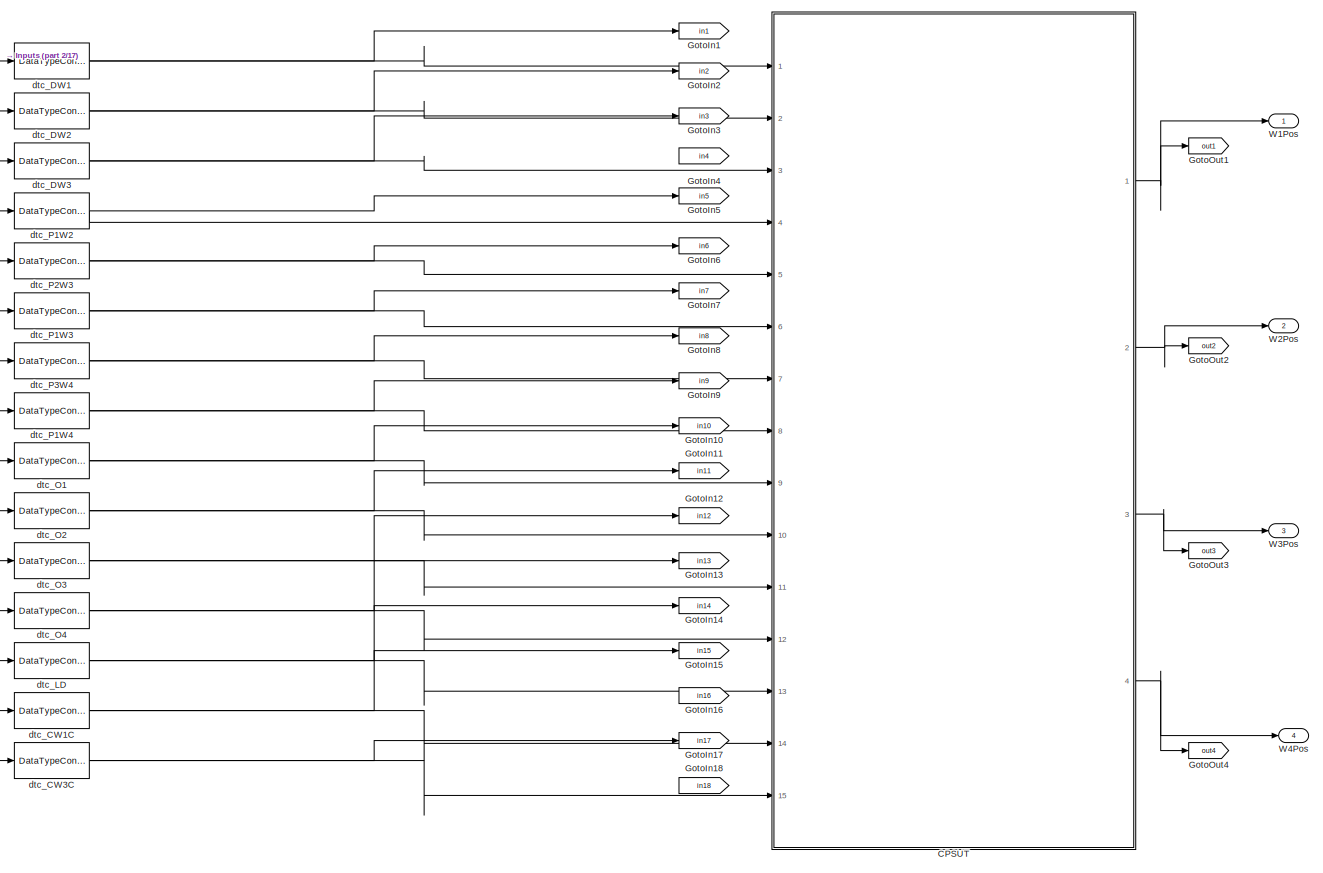
[diagram: root canvas - part 1/17, top left region]
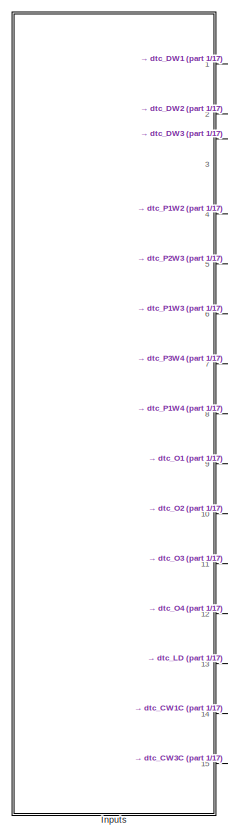
[diagram: root canvas - part 2/17, top left region]
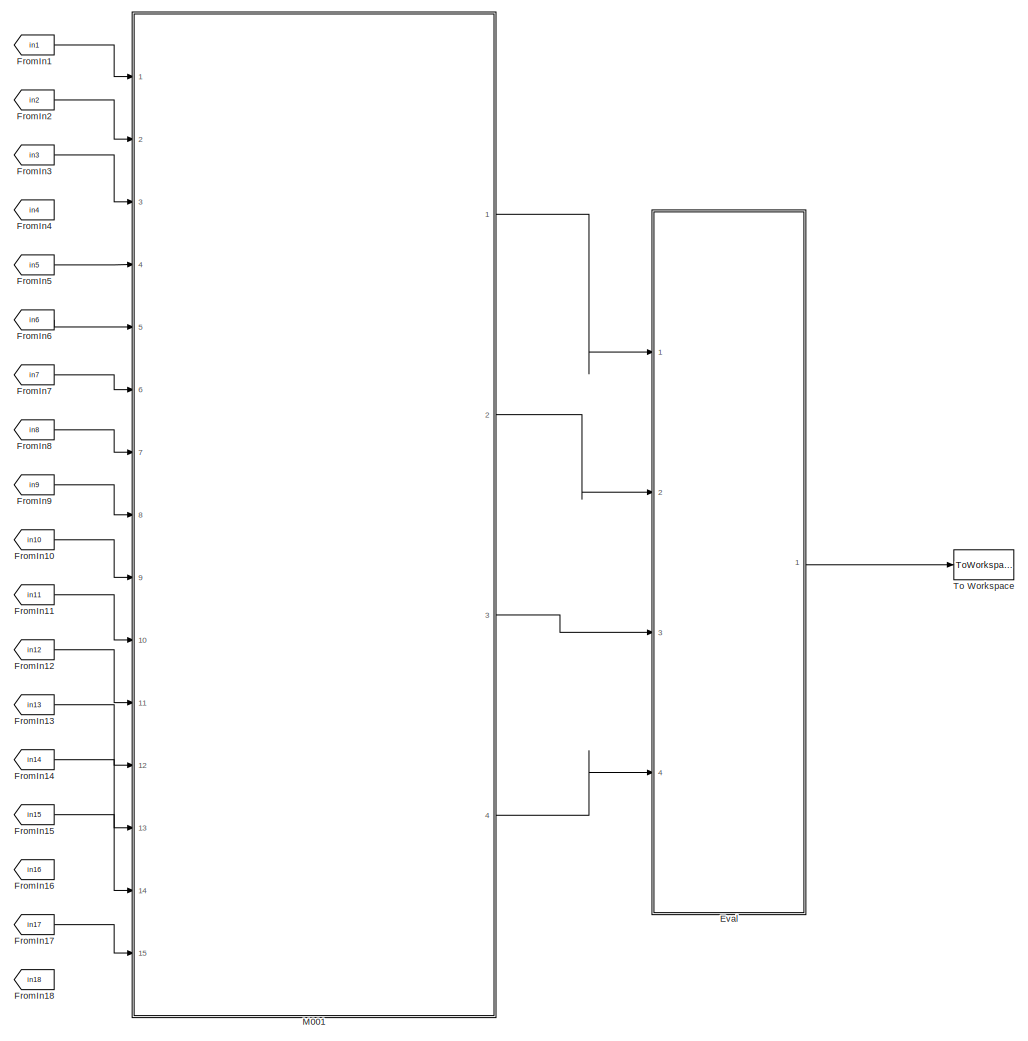
[diagram: root canvas - part 3/17, top center region]
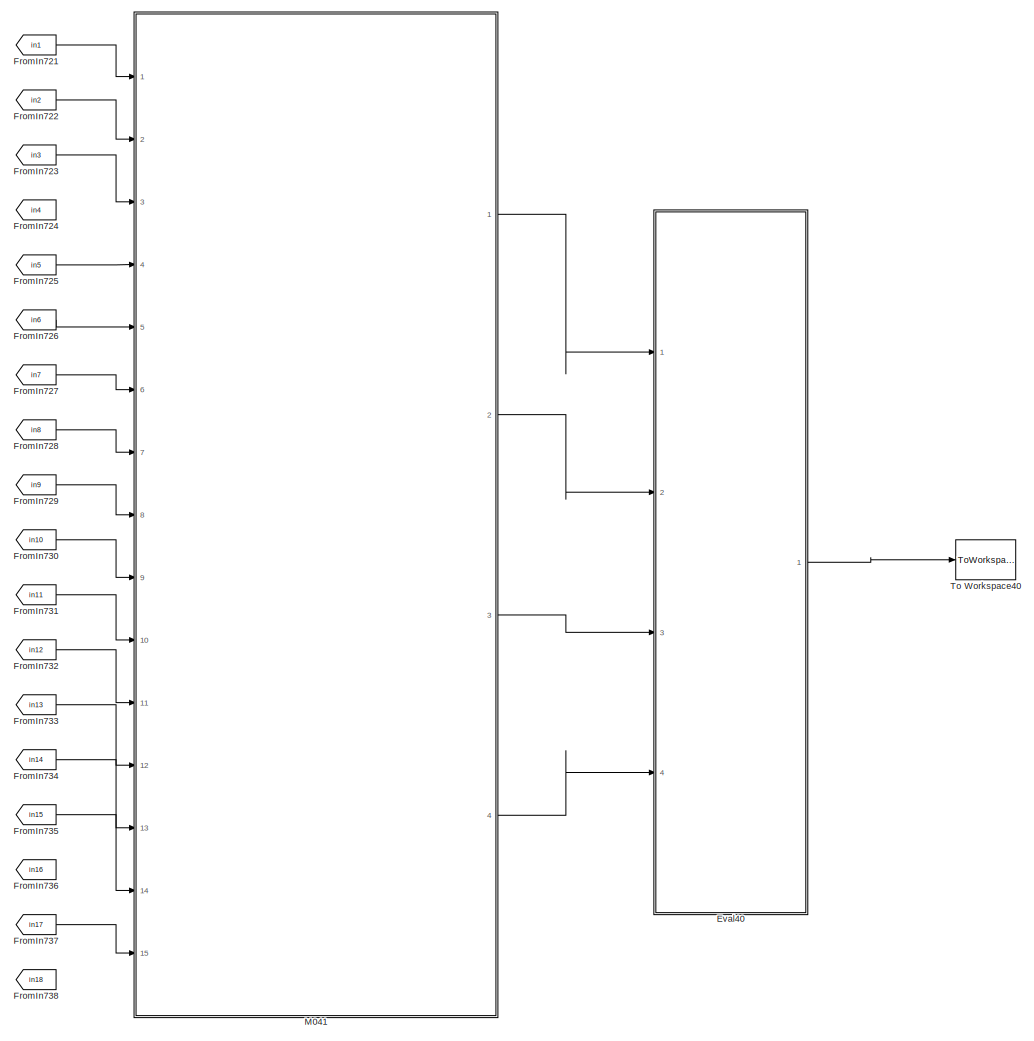
[diagram: root canvas - part 4/17, top right region]
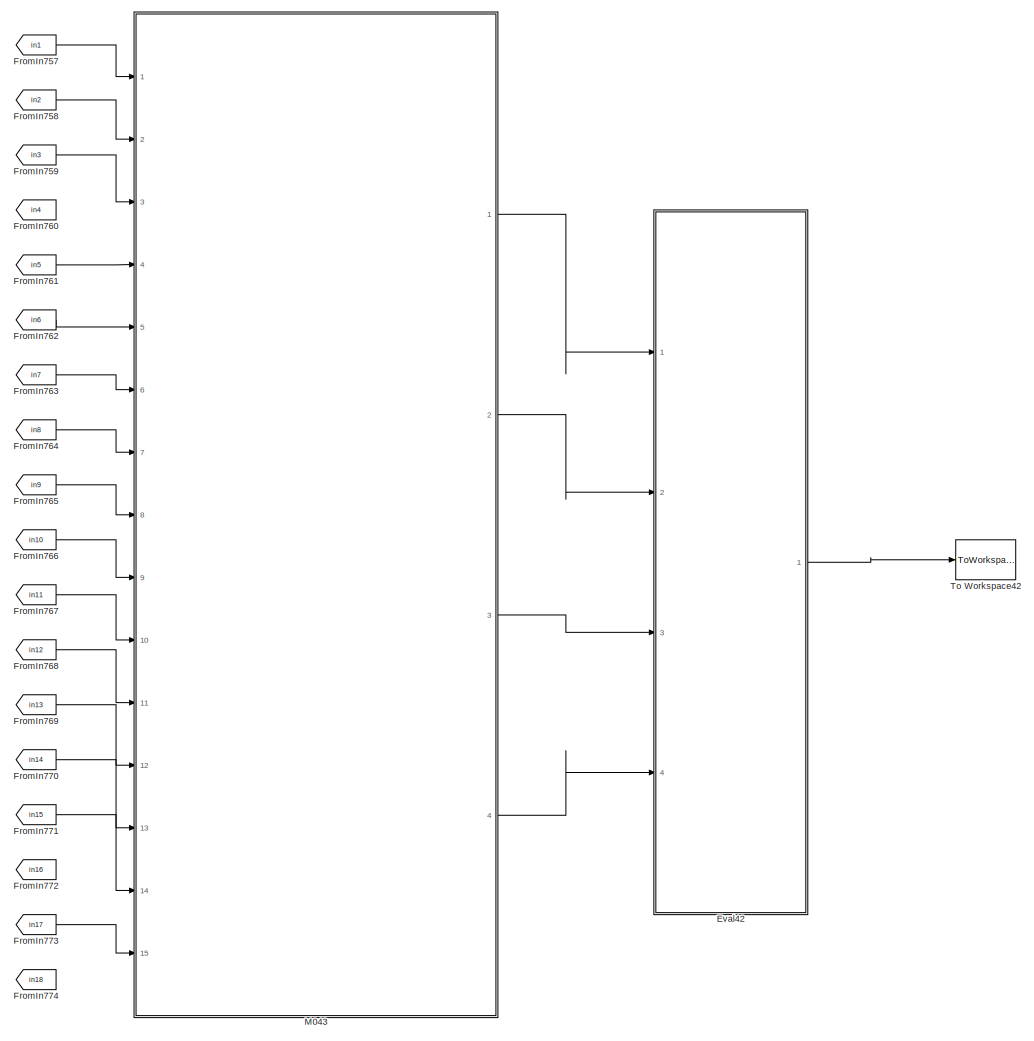
[diagram: root canvas - part 5/17, top right region]
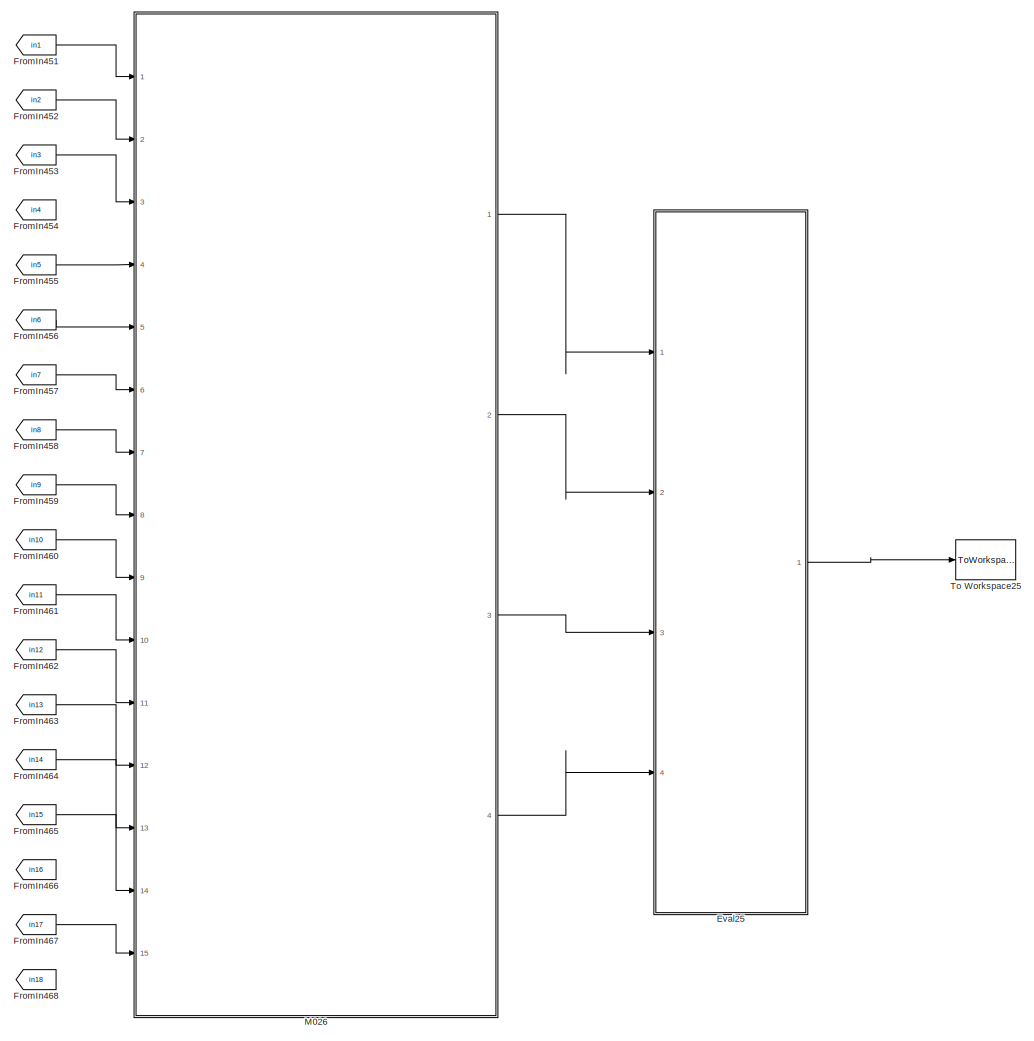
[diagram: root canvas - part 6/17, top center region]
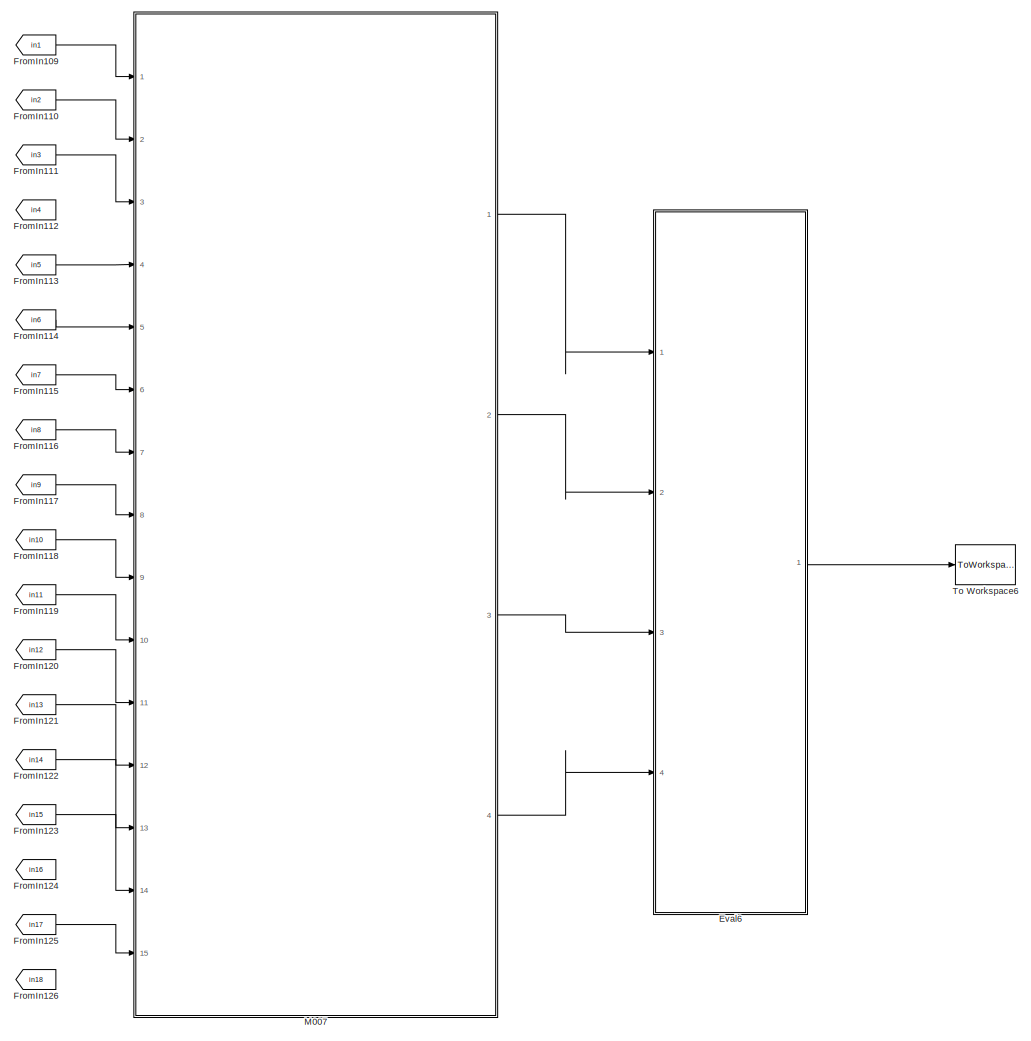
[diagram: root canvas - part 7/17, central region]
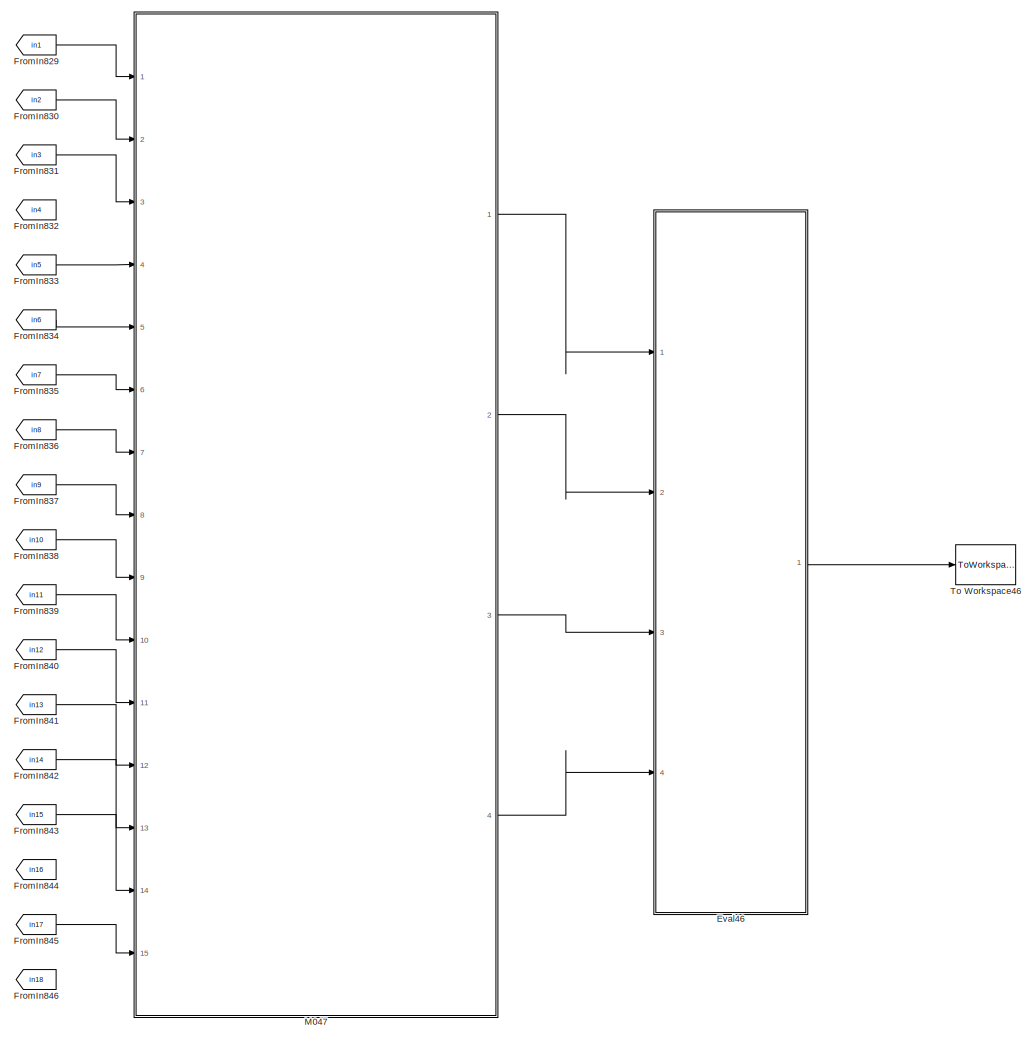
[diagram: root canvas - part 8/17, middle right region]
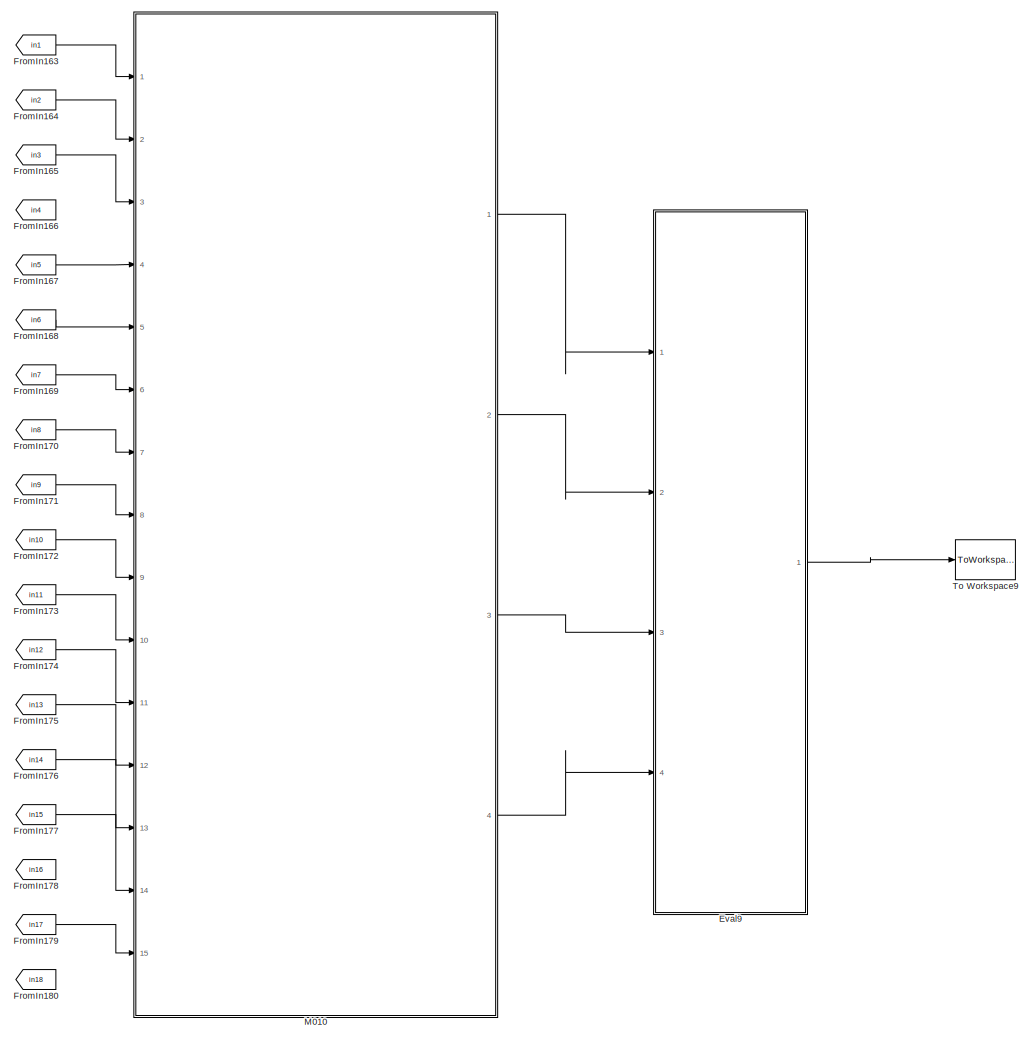
[diagram: root canvas - part 9/17, central region]
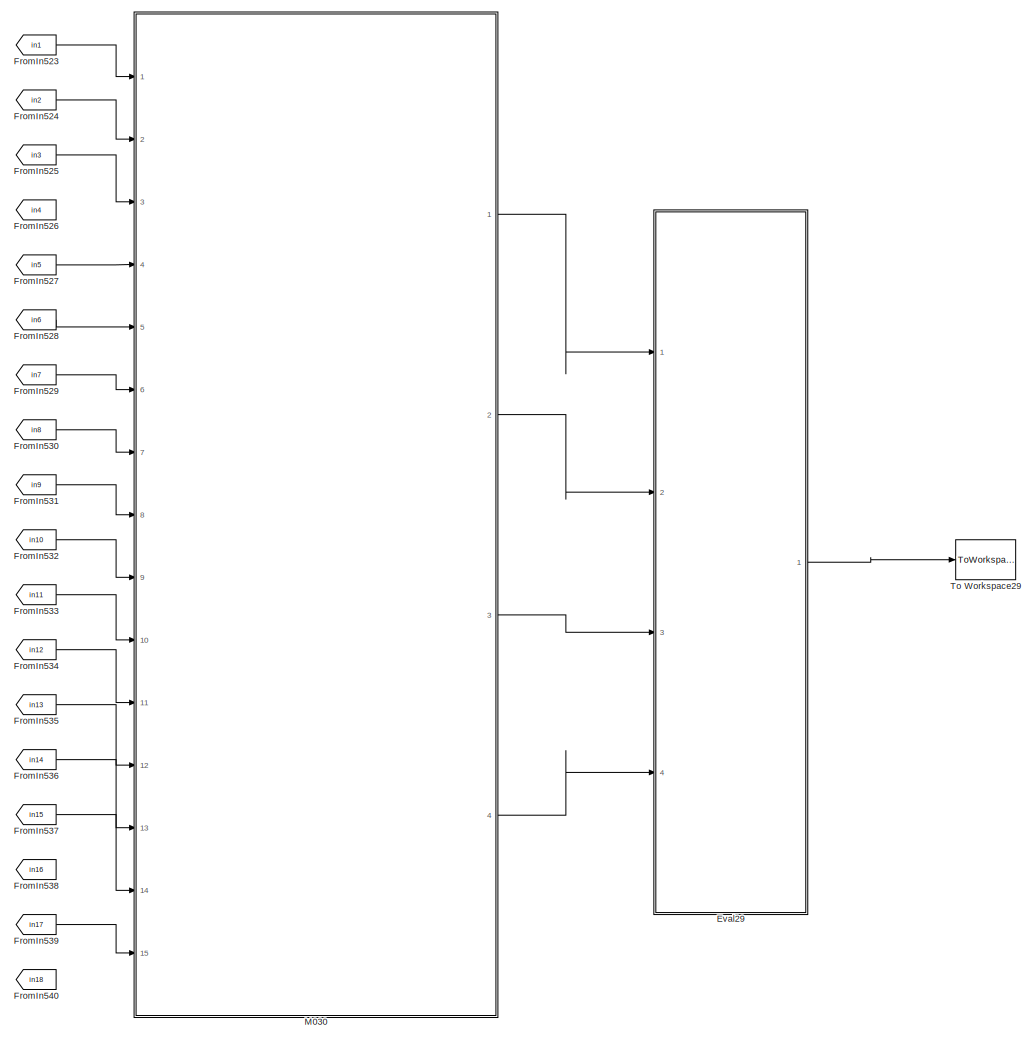
[diagram: root canvas - part 10/17, central region]
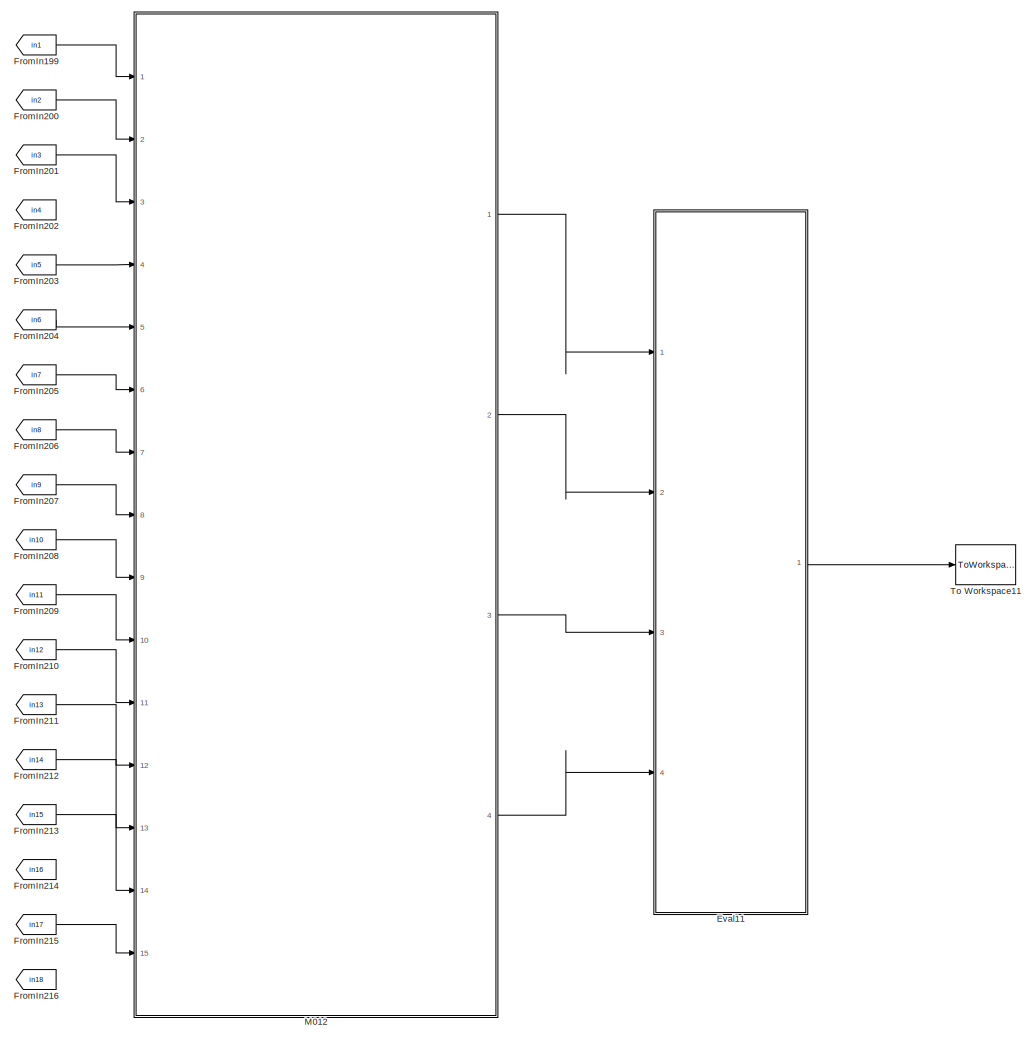
[diagram: root canvas - part 11/17, central region]
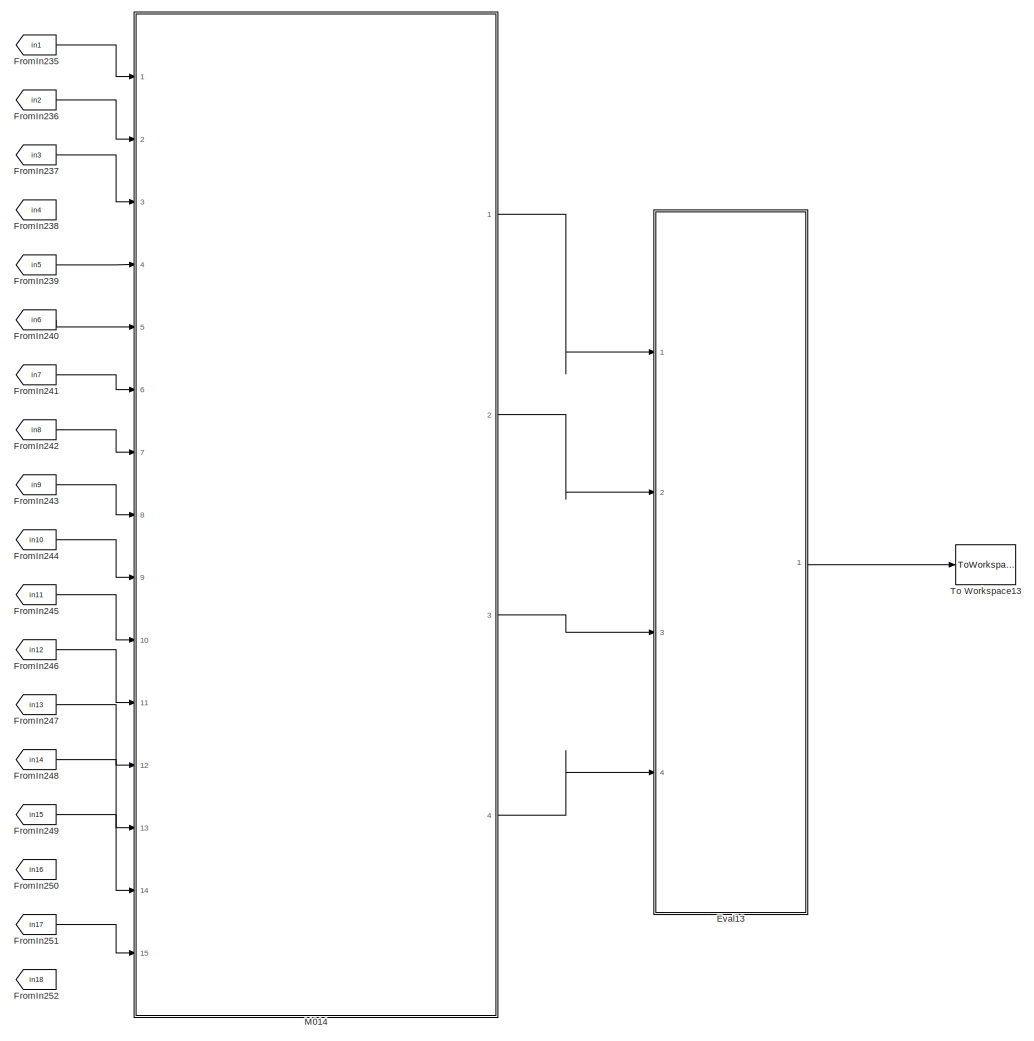
[diagram: root canvas - part 12/17, bottom center region]
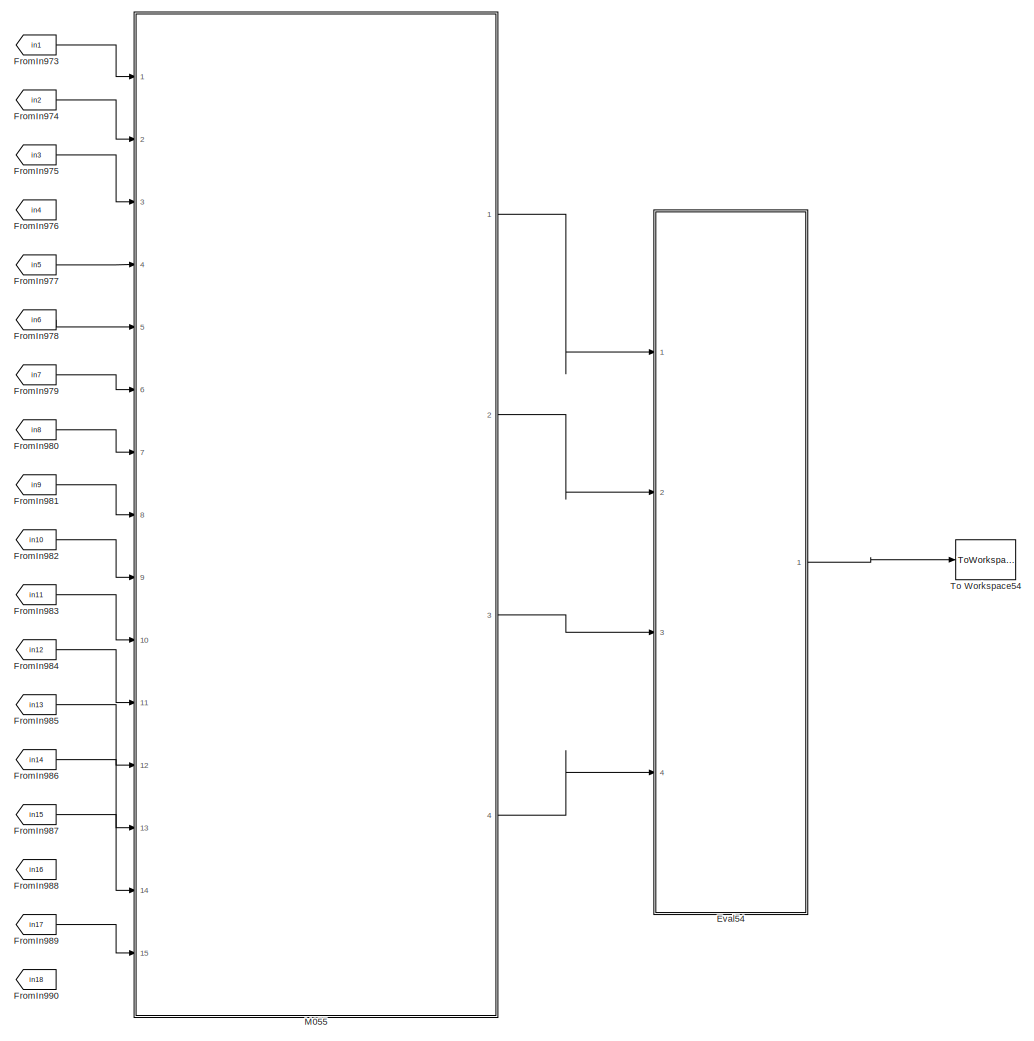
[diagram: root canvas - part 13/17, bottom right region]
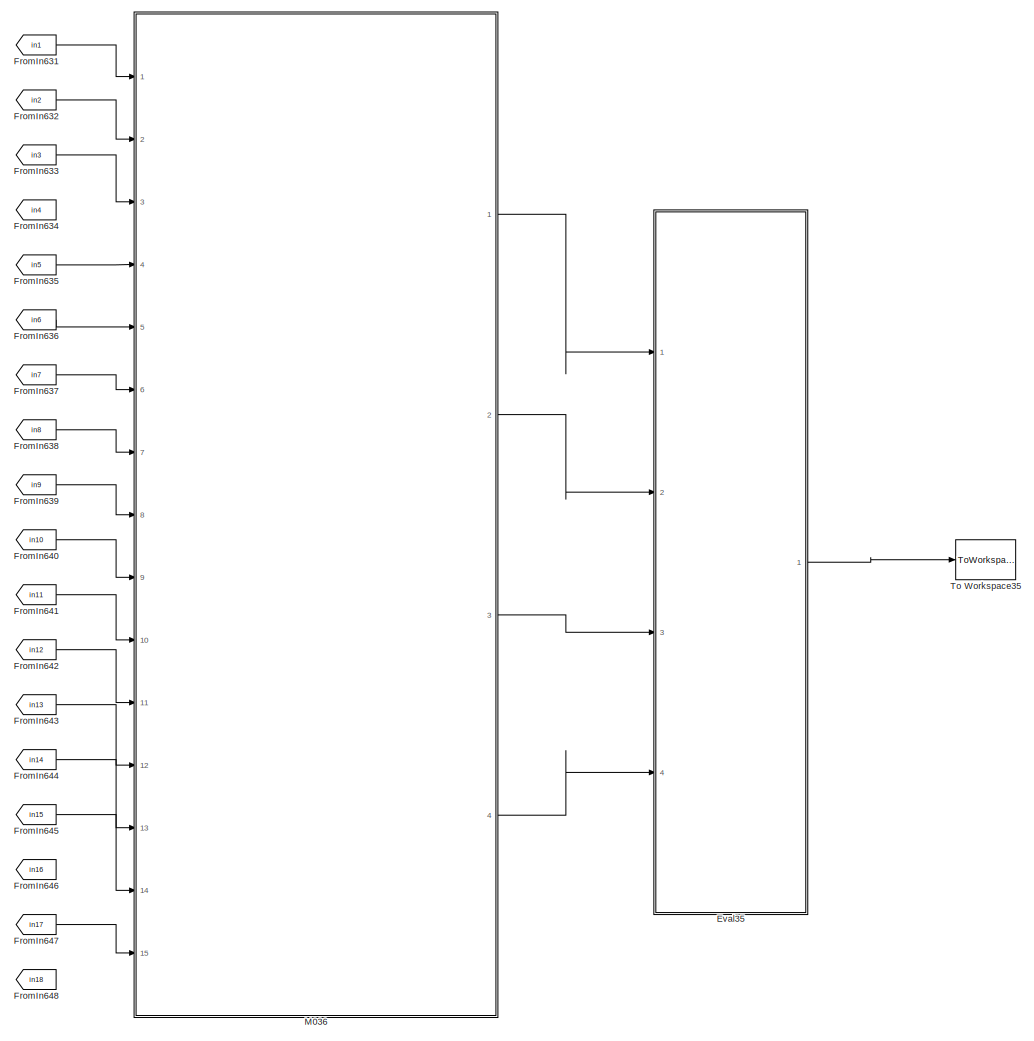
[diagram: root canvas - part 14/17, bottom center region]
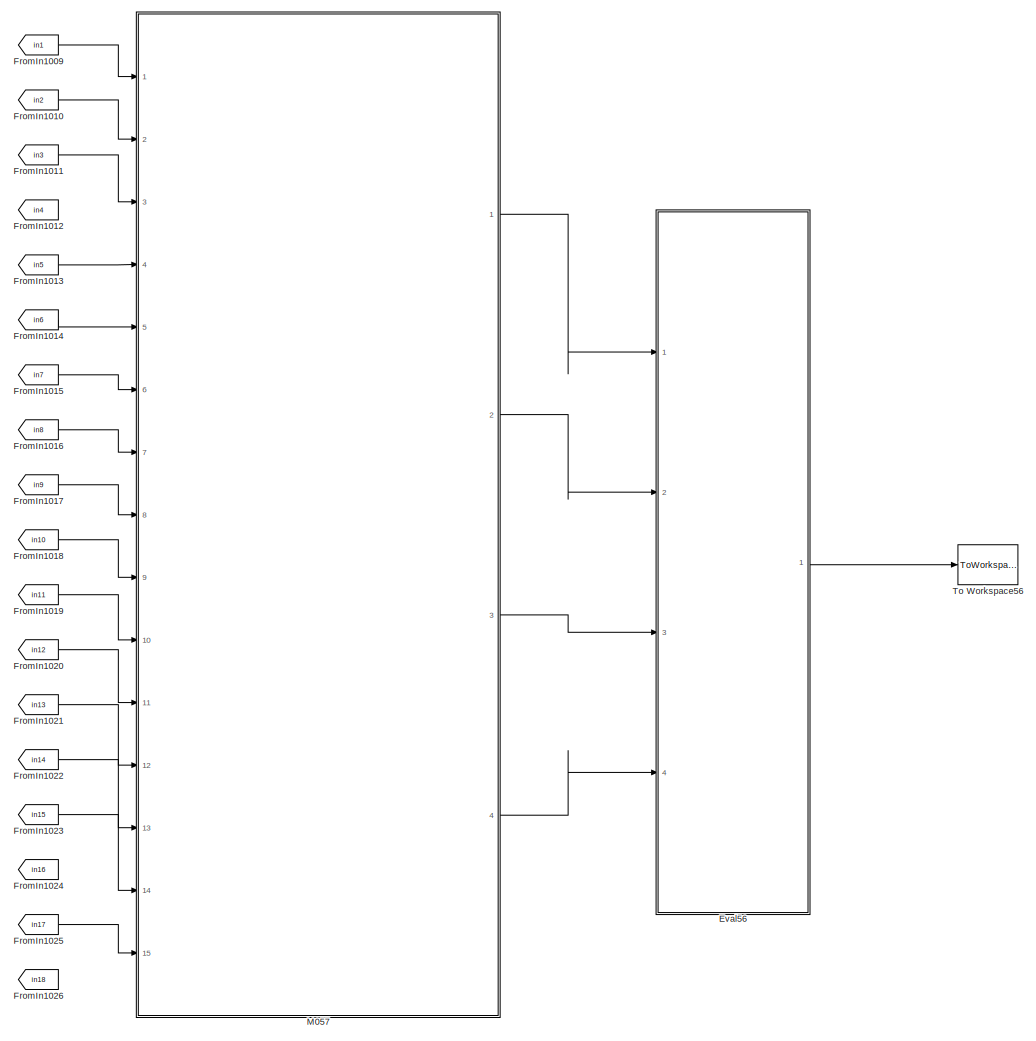
[diagram: root canvas - part 15/17, bottom right region]
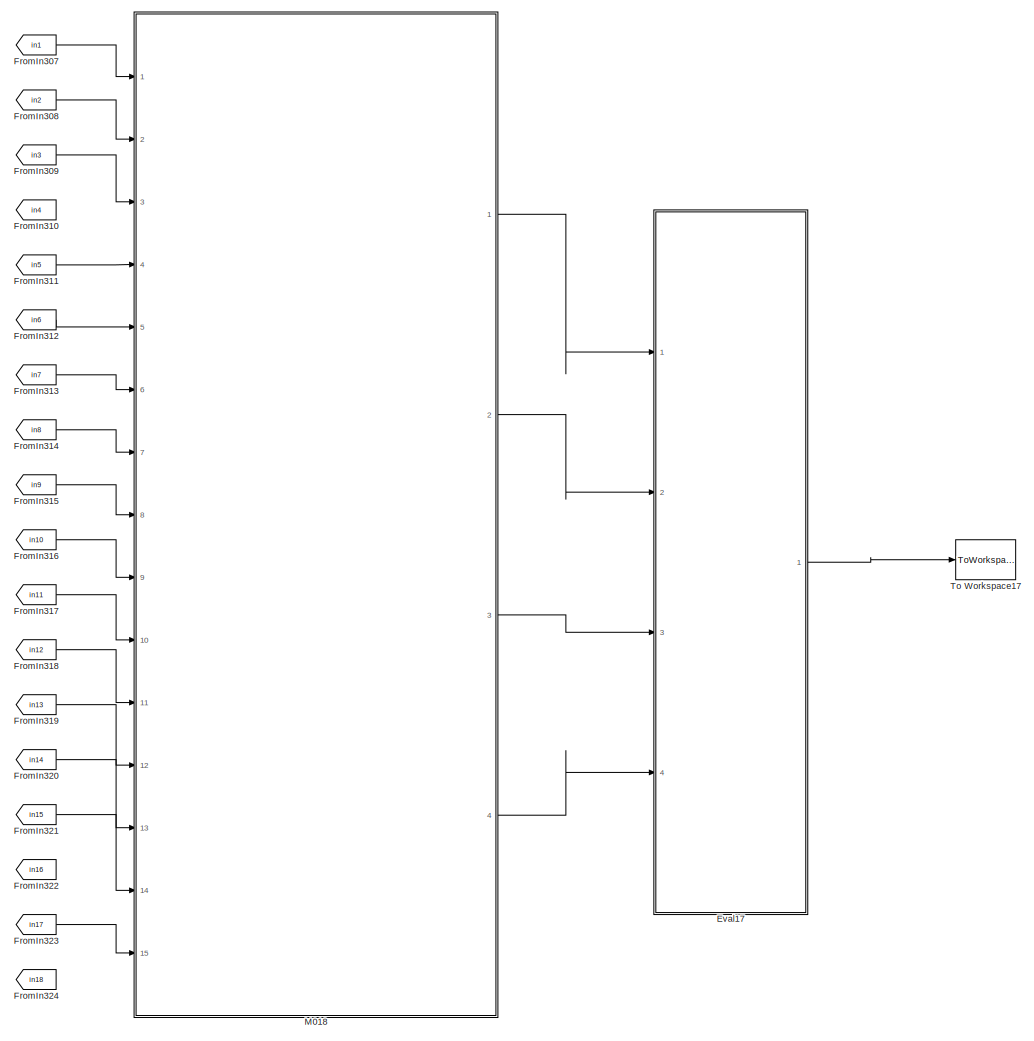
[diagram: root canvas - part 16/17, bottom center region]
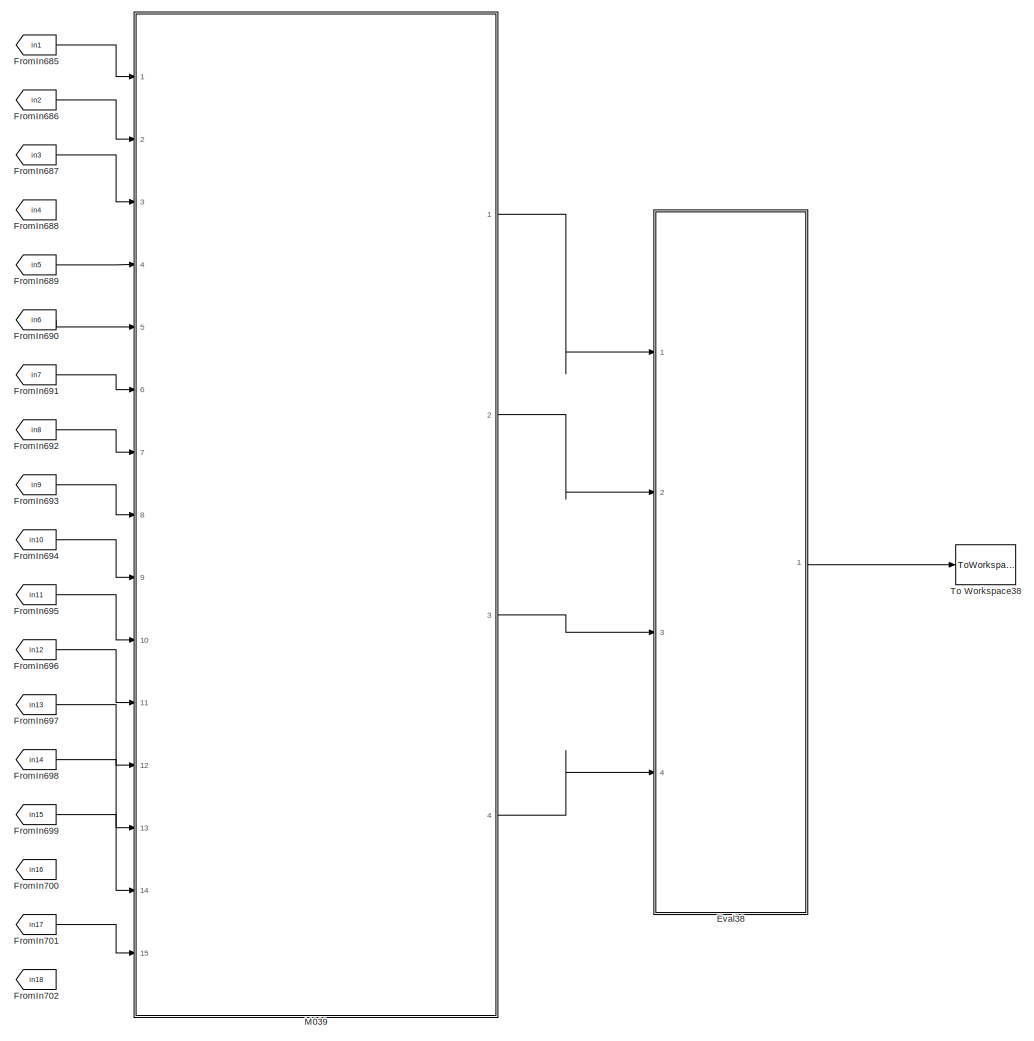
[diagram: root canvas - part 17/17, bottom center region]
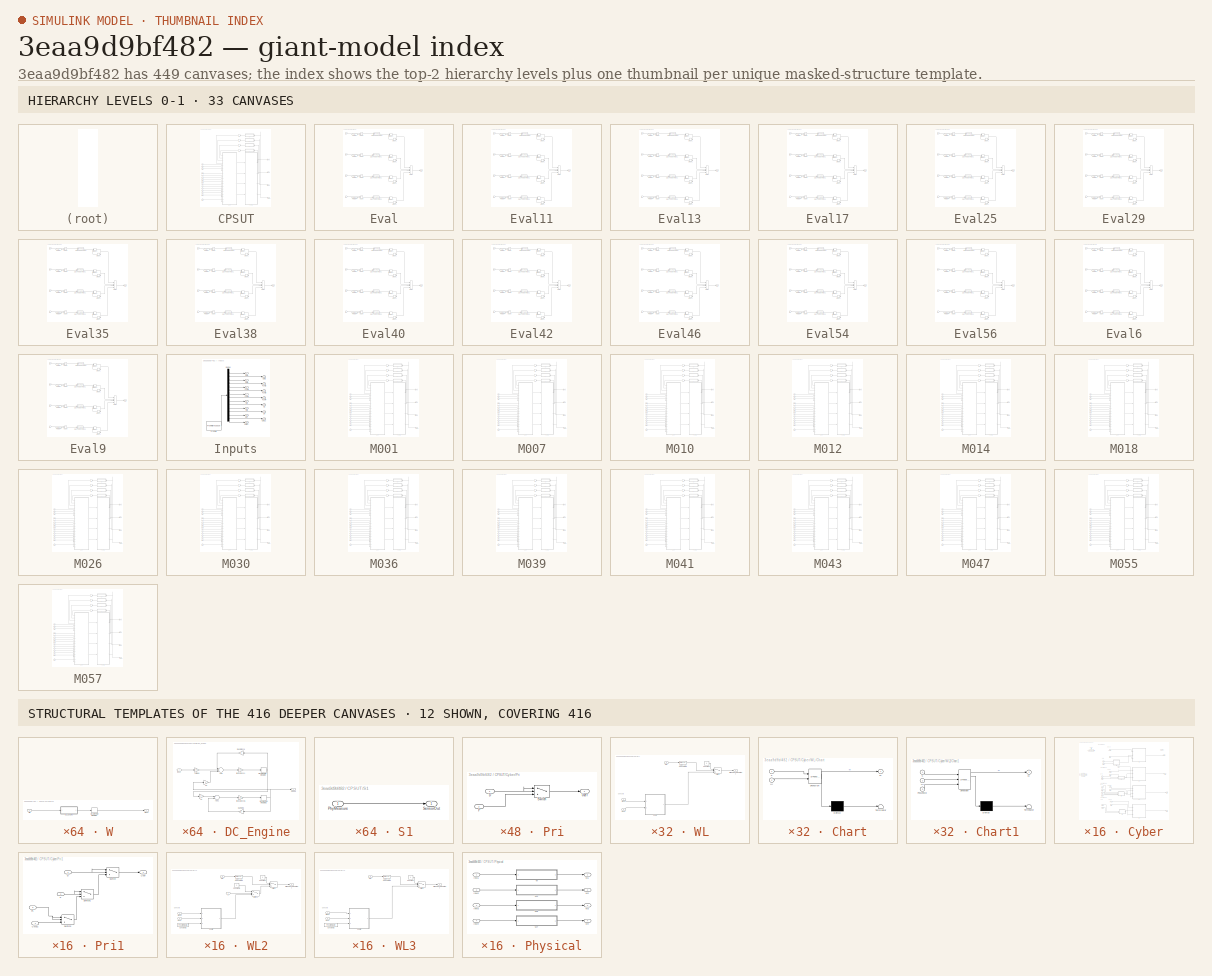
[diagram: thumbnail index - top-2 hierarchy levels (33 canvases) + 12 structural-template representatives of the remaining 416 canvases]
MODEL slx_3eaa9d9bf482
KIND model
CONFIG AbsTol = auto
CONFIG EnableMultiTasking = on
CONFIG FixedStep = auto
CONFIG MaxStep = auto
CONFIG MinStep = auto
CONFIG RelTol = 1e-3
CONFIG SampleTimeConstraint = Unconstrained
CONFIG Solver = ode3
CONFIG SolverName = ode3
CONFIG StartTime = 0.0
CONFIG StopTime = 10.0
BLOCK [SubSystem] CPSUT
  Ports = [15, 4]
  RequestExecContextInheritance = off
BLOCK [Inport] CPSUT/CW1C
  IconDisplay = Port number
  OutDataTypeStr = int8
  OutMax = 4
  OutMin = 0
  Port = 14
BLOCK [Inport] CPSUT/CW3C
  IconDisplay = Port number
  OutDataTypeStr = int8
  OutMax = 4
  OutMin = 0
  Port = 15
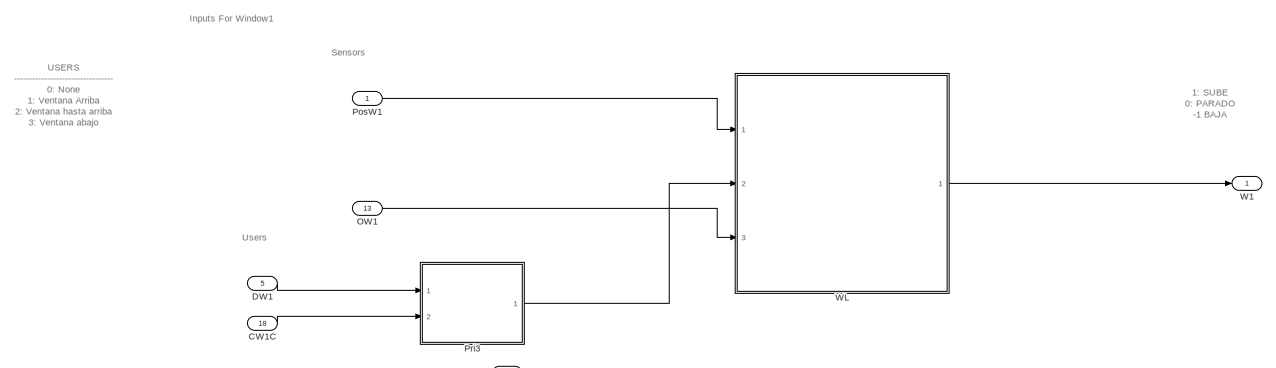
[diagram: CPSUT/Cyber - part 1/3, full width, top band]
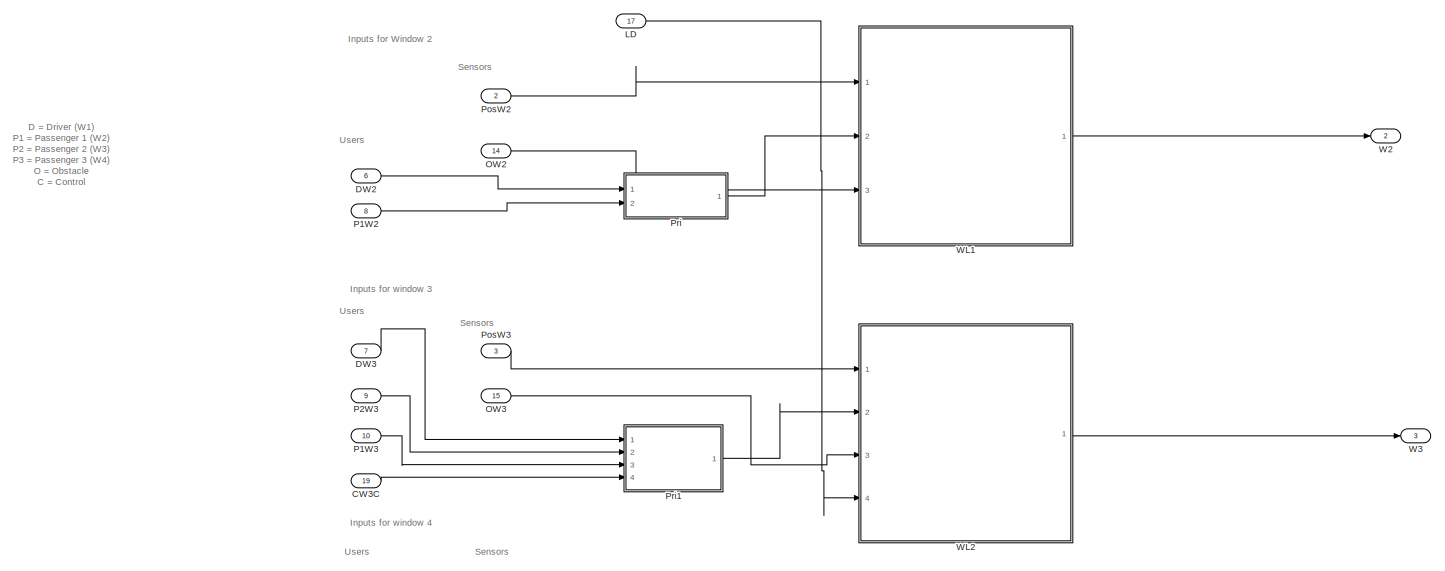
[diagram: CPSUT/Cyber - part 2/3, full width, middle band]
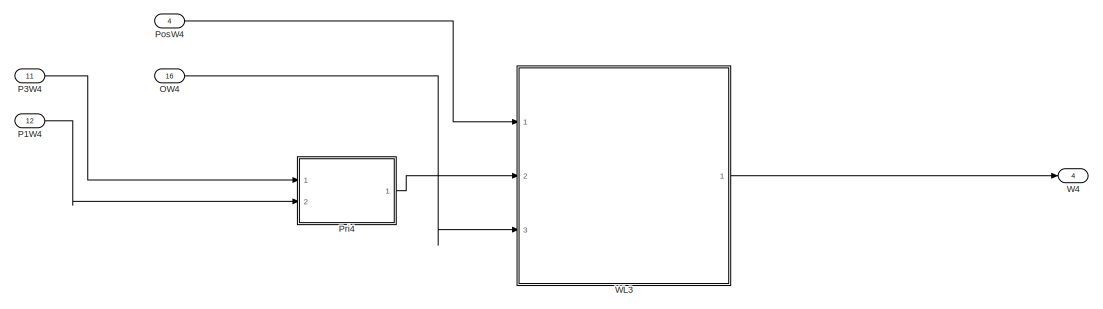
[diagram: CPSUT/Cyber - part 3/3, full width, bottom band]
BLOCK [SubSystem] CPSUT/Cyber
  Ports = [19, 4]
  RequestExecContextInheritance = off
BLOCK [Inport] CPSUT/Cyber/CW1C
  IconDisplay = Port number
  Port = 18
BLOCK [Inport] CPSUT/Cyber/CW3C
  IconDisplay = Port number
  Port = 19
BLOCK [Inport] CPSUT/Cyber/DW1
  IconDisplay = Port number
  Port = 5
BLOCK [Inport] CPSUT/Cyber/DW2
  IconDisplay = Port number
  Port = 6
BLOCK [Inport] CPSUT/Cyber/DW3
  IconDisplay = Port number
  Port = 7
BLOCK [Inport] CPSUT/Cyber/LD
  IconDisplay = Port number
  Port = 17
BLOCK [Inport] CPSUT/Cyber/OW1
  IconDisplay = Port number
  Port = 13
BLOCK [Inport] CPSUT/Cyber/OW2
  IconDisplay = Port number
  Port = 14
BLOCK [Inport] CPSUT/Cyber/OW3
  IconDisplay = Port number
  Port = 15
BLOCK [Inport] CPSUT/Cyber/OW4
  IconDisplay = Port number
  Port = 16
BLOCK [Inport] CPSUT/Cyber/P1W2
  IconDisplay = Port number
  Port = 8
BLOCK [Inport] CPSUT/Cyber/P1W3
  IconDisplay = Port number
  Port = 10
BLOCK [Inport] CPSUT/Cyber/P1W4
  IconDisplay = Port number
  Port = 12
BLOCK [Inport] CPSUT/Cyber/P2W3
  IconDisplay = Port number
  Port = 9
BLOCK [Inport] CPSUT/Cyber/P3W4
  IconDisplay = Port number
  Port = 11
BLOCK [Inport] CPSUT/Cyber/PosW1
  IconDisplay = Port number
BLOCK [Inport] CPSUT/Cyber/PosW2
  IconDisplay = Port number
  Port = 2
BLOCK [Inport] CPSUT/Cyber/PosW3
  IconDisplay = Port number
  Port = 3
BLOCK [Inport] CPSUT/Cyber/PosW4
  IconDisplay = Port number
  Port = 4
BLOCK [SubSystem] CPSUT/Cyber/Pri
  Ports = [2, 1]
  RequestExecContextInheritance = off
BLOCK [Inport] CPSUT/Cyber/Pri/D
  IconDisplay = Port number
BLOCK [Inport] CPSUT/Cyber/Pri/P
  IconDisplay = Port number
  Port = 2
BLOCK [Switch] CPSUT/Cyber/Pri/Switch
  Criteria = u2 ~= 0
  InputSameDT = off
  SaturateOnIntegerOverflow = off
BLOCK [Outport] CPSUT/Cyber/Pri/User
  IconDisplay = Port number
BLOCK [SubSystem] CPSUT/Cyber/Pri1
  Ports = [4, 1]
  RequestExecContextInheritance = off
BLOCK [Inport] CPSUT/Cyber/Pri1/CW3C
  IconDisplay = Port number
  Port = 4
BLOCK [Inport] CPSUT/Cyber/Pri1/D
  IconDisplay = Port number
BLOCK [Inport] CPSUT/Cyber/Pri1/P
  IconDisplay = Port number
  Port = 2
BLOCK [Inport] CPSUT/Cyber/Pri1/P1
  IconDisplay = Port number
  Port = 3
BLOCK [Switch] CPSUT/Cyber/Pri1/Switch
  Criteria = u2 ~= 0
  InputSameDT = off
  SaturateOnIntegerOverflow = off
BLOCK [Switch] CPSUT/Cyber/Pri1/Switch1
  Criteria = u2 ~= 0
  InputSameDT = off
  SaturateOnIntegerOverflow = off
BLOCK [Switch] CPSUT/Cyber/Pri1/Switch2
  Criteria = u2 ~= 0
  InputSameDT = off
  SaturateOnIntegerOverflow = off
BLOCK [Outport] CPSUT/Cyber/Pri1/User
  IconDisplay = Port number
BLOCK [SubSystem] CPSUT/Cyber/Pri3
  Ports = [2, 1]
  RequestExecContextInheritance = off
BLOCK [Inport] CPSUT/Cyber/Pri3/CW1C
  IconDisplay = Port number
  Port = 2
BLOCK [Inport] CPSUT/Cyber/Pri3/D
  IconDisplay = Port number
BLOCK [Switch] CPSUT/Cyber/Pri3/Switch
  Criteria = u2 ~= 0
  InputSameDT = off
  SaturateOnIntegerOverflow = off
BLOCK [Outport] CPSUT/Cyber/Pri3/User
  IconDisplay = Port number
BLOCK [SubSystem] CPSUT/Cyber/Pri4
  Ports = [2, 1]
  RequestExecContextInheritance = off
BLOCK [Inport] CPSUT/Cyber/Pri4/P
  IconDisplay = Port number
BLOCK [Inport] CPSUT/Cyber/Pri4/P1
  IconDisplay = Port number
  Port = 2
BLOCK [Switch] CPSUT/Cyber/Pri4/Switch1
  Criteria = u2 ~= 0
  InputSameDT = off
  SaturateOnIntegerOverflow = off
BLOCK [Outport] CPSUT/Cyber/Pri4/User
  IconDisplay = Port number
BLOCK [Outport] CPSUT/Cyber/W1
  IconDisplay = Port number
BLOCK [Outport] CPSUT/Cyber/W2
  IconDisplay = Port number
  Port = 2
BLOCK [Outport] CPSUT/Cyber/W3
  IconDisplay = Port number
  Port = 3
BLOCK [Outport] CPSUT/Cyber/W4
  IconDisplay = Port number
  Port = 4
BLOCK [SubSystem] CPSUT/Cyber/WL
  Ports = [3, 1]
  RequestExecContextInheritance = off
BLOCK [SubSystem] CPSUT/Cyber/WL/Chart
  ErrorFcn = Stateflow.Translate.translate
  PermitHierarchicalResolution = ExplicitOnly
  Ports = [2, 1]
  RequestExecContextInheritance = off
  SFBlockType = Chart
  TreatAsAtomicUnit = on
BLOCK [Demux] CPSUT/Cyber/WL/Chart/ Demux 
  Outputs = 1
  Ports = [1, 1]
BLOCK [S-Function] CPSUT/Cyber/WL/Chart/ SFunction 
  EnableBusSupport = off
  FunctionName = sf_sfun
  PortCounts = [2 2]
  Ports = [2, 2]
  SFcnIsStateOwnerBlock = off
  SFunctionDeploymentMode = off
  Tag = Stateflow S-Function c00008M_harness 1
BLOCK [Terminator] CPSUT/Cyber/WL/Chart/ Terminator 
BLOCK [Inport] CPSUT/Cyber/WL/Chart/S
  IconDisplay = Port number
BLOCK [Inport] CPSUT/Cyber/WL/Chart/UI
  IconDisplay = Port number
  Port = 2
BLOCK [Outport] CPSUT/Cyber/WL/Chart/W
  IconDisplay = Port number
BLOCK [Constant] CPSUT/Cyber/WL/Constant
  Value = -1
BLOCK [DataTypeConversion] CPSUT/Cyber/WL/Data Type Conversion
  RndMeth = Floor
  SaturateOnIntegerOverflow = off
BLOCK [Inport] CPSUT/Cyber/WL/OW
  IconDisplay = Port number
  Port = 3
BLOCK [Switch] CPSUT/Cyber/WL/Switch
  Criteria = u2 ~= 0
  InputSameDT = off
  SaturateOnIntegerOverflow = off
  Threshold = 1
  ZeroCross = off
BLOCK [Inport] CPSUT/Cyber/WL/User
  IconDisplay = Port number
  Port = 2
BLOCK [Inport] CPSUT/Cyber/WL/WPos
  IconDisplay = Port number
BLOCK [Outport] CPSUT/Cyber/WL/WindowLogicOutput
  IconDisplay = Port number
BLOCK [SubSystem] CPSUT/Cyber/WL1
  Ports = [3, 1]
  RequestExecContextInheritance = off
BLOCK [SubSystem] CPSUT/Cyber/WL1/Chart1
  ErrorFcn = Stateflow.Translate.translate
  PermitHierarchicalResolution = ExplicitOnly
  Ports = [2, 1]
  RequestExecContextInheritance = off
  SFBlockType = Chart
  TreatAsAtomicUnit = on
BLOCK [Demux] CPSUT/Cyber/WL1/Chart1/ Demux 
  Outputs = 1
  Ports = [1, 1]
BLOCK [S-Function] CPSUT/Cyber/WL1/Chart1/ SFunction 
  EnableBusSupport = off
  FunctionName = sf_sfun
  PortCounts = [2 2]
  Ports = [2, 2]
  SFcnIsStateOwnerBlock = off
  SFunctionDeploymentMode = off
  Tag = Stateflow S-Function c00008M_harness 3
BLOCK [Terminator] CPSUT/Cyber/WL1/Chart1/ Terminator 
BLOCK [Inport] CPSUT/Cyber/WL1/Chart1/S
  IconDisplay = Port number
BLOCK [Inport] CPSUT/Cyber/WL1/Chart1/UI
  IconDisplay = Port number
  Port = 2
BLOCK [Outport] CPSUT/Cyber/WL1/Chart1/W
  IconDisplay = Port number
BLOCK [Constant] CPSUT/Cyber/WL1/Constant
  Value = -1
BLOCK [DataTypeConversion] CPSUT/Cyber/WL1/Data Type Conversion
  RndMeth = Floor
  SaturateOnIntegerOverflow = off
BLOCK [Inport] CPSUT/Cyber/WL1/OW
  IconDisplay = Port number
  Port = 3
BLOCK [Switch] CPSUT/Cyber/WL1/Switch
  Criteria = u2 ~= 0
  InputSameDT = off
  SaturateOnIntegerOverflow = off
  Threshold = 1
  ZeroCross = off
BLOCK [Inport] CPSUT/Cyber/WL1/User
  IconDisplay = Port number
  Port = 2
BLOCK [Inport] CPSUT/Cyber/WL1/WPos
  IconDisplay = Port number
BLOCK [Outport] CPSUT/Cyber/WL1/WindowLogicOutput
  IconDisplay = Port number
BLOCK [SubSystem] CPSUT/Cyber/WL2
  Ports = [4, 1]
  RequestExecContextInheritance = off
BLOCK [SubSystem] CPSUT/Cyber/WL2/Chart1
  ErrorFcn = Stateflow.Translate.translate
  PermitHierarchicalResolution = ExplicitOnly
  Ports = [3, 1]
  RequestExecContextInheritance = off
  SFBlockType = Chart
  TreatAsAtomicUnit = on
BLOCK [Demux] CPSUT/Cyber/WL2/Chart1/ Demux 
  Outputs = 1
  Ports = [1, 1]
BLOCK [S-Function] CPSUT/Cyber/WL2/Chart1/ SFunction 
  EnableBusSupport = off
  FunctionName = sf_sfun
  PortCounts = [3 2]
  Ports = [3, 2]
  SFcnIsStateOwnerBlock = off
  SFunctionDeploymentMode = off
  Tag = Stateflow S-Function c00008M_harness 2
BLOCK [Terminator] CPSUT/Cyber/WL2/Chart1/ Terminator 
BLOCK [Inport] CPSUT/Cyber/WL2/Chart1/PosMinW3
  IconDisplay = Port number
  Port = 3
BLOCK [Inport] CPSUT/Cyber/WL2/Chart1/S
  IconDisplay = Port number
BLOCK [Inport] CPSUT/Cyber/WL2/Chart1/UI
  IconDisplay = Port number
  Port = 2
BLOCK [Outport] CPSUT/Cyber/WL2/Chart1/W
  IconDisplay = Port number
BLOCK [Constant] CPSUT/Cyber/WL2/Constant
  Value = -1
BLOCK [Constant] CPSUT/Cyber/WL2/Constant1
  Value = 0
BLOCK [Constant] CPSUT/Cyber/WL2/Constant2
  Value = PosMinimaW3
BLOCK [DataTypeConversion] CPSUT/Cyber/WL2/Data Type Conversion
  RndMeth = Floor
  SaturateOnIntegerOverflow = off
BLOCK [Inport] CPSUT/Cyber/WL2/L
  IconDisplay = Port number
  Port = 4
BLOCK [Inport] CPSUT/Cyber/WL2/OW
  IconDisplay = Port number
  Port = 3
BLOCK [Switch] CPSUT/Cyber/WL2/Switch
  Criteria = u2 ~= 0
  InputSameDT = off
  SaturateOnIntegerOverflow = off
  Threshold = 1
  ZeroCross = off
BLOCK [Switch] CPSUT/Cyber/WL2/Switch1
  Criteria = u2 ~= 0
  InputSameDT = off
  SaturateOnIntegerOverflow = off
BLOCK [Inport] CPSUT/Cyber/WL2/User
  IconDisplay = Port number
  Port = 2
BLOCK [Inport] CPSUT/Cyber/WL2/WPos
  IconDisplay = Port number
BLOCK [Outport] CPSUT/Cyber/WL2/WindowLogicOutput
  IconDisplay = Port number
BLOCK [SubSystem] CPSUT/Cyber/WL3
  Ports = [3, 1]
  RequestExecContextInheritance = off
BLOCK [SubSystem] CPSUT/Cyber/WL3/Chart2
  ErrorFcn = Stateflow.Translate.translate
  PermitHierarchicalResolution = ExplicitOnly
  Ports = [3, 1]
  RequestExecContextInheritance = off
  SFBlockType = Chart
  TreatAsAtomicUnit = on
BLOCK [Demux] CPSUT/Cyber/WL3/Chart2/ Demux 
  Outputs = 1
  Ports = [1, 1]
BLOCK [S-Function] CPSUT/Cyber/WL3/Chart2/ SFunction 
  EnableBusSupport = off
  FunctionName = sf_sfun
  PortCounts = [3 2]
  Ports = [3, 2]
  SFcnIsStateOwnerBlock = off
  SFunctionDeploymentMode = off
  Tag = Stateflow S-Function c00008M_harness 4
BLOCK [Terminator] CPSUT/Cyber/WL3/Chart2/ Terminator 
BLOCK [Inport] CPSUT/Cyber/WL3/Chart2/PosMinW4
  IconDisplay = Port number
  Port = 3
BLOCK [Inport] CPSUT/Cyber/WL3/Chart2/S
  IconDisplay = Port number
BLOCK [Inport] CPSUT/Cyber/WL3/Chart2/UI
  IconDisplay = Port number
  Port = 2
BLOCK [Outport] CPSUT/Cyber/WL3/Chart2/W
  IconDisplay = Port number
BLOCK [Constant] CPSUT/Cyber/WL3/Constant
  Value = -1
BLOCK [Constant] CPSUT/Cyber/WL3/Constant2
  Value = PosMinimaW4
BLOCK [DataTypeConversion] CPSUT/Cyber/WL3/Data Type Conversion
  RndMeth = Floor
  SaturateOnIntegerOverflow = off
BLOCK [Inport] CPSUT/Cyber/WL3/OW
  IconDisplay = Port number
  Port = 3
BLOCK [Switch] CPSUT/Cyber/WL3/Switch
  Criteria = u2 ~= 0
  InputSameDT = off
  SaturateOnIntegerOverflow = off
  Threshold = 1
  ZeroCross = off
BLOCK [Inport] CPSUT/Cyber/WL3/User
  IconDisplay = Port number
  Port = 2
BLOCK [Inport] CPSUT/Cyber/WL3/WPos
  IconDisplay = Port number
BLOCK [Outport] CPSUT/Cyber/WL3/WindowLogicOutput
  IconDisplay = Port number
BLOCK [Inport] CPSUT/DW1
  IconDisplay = Port number
  OutDataTypeStr = int8
  OutMax = 4
  OutMin = 0
BLOCK [Inport] CPSUT/DW2
  IconDisplay = Port number
  OutDataTypeStr = int8
  OutMax = 4
  OutMin = 0
  Port = 2
BLOCK [Inport] CPSUT/DW3
  IconDisplay = Port number
  OutDataTypeStr = int8
  OutMax = 4
  OutMin = 0
  Port = 3
BLOCK [Inport] CPSUT/LD
  IconDisplay = Port number
  OutDataTypeStr = boolean
  Port = 13
BLOCK [Memory] CPSUT/M
BLOCK [Memory] CPSUT/M1
BLOCK [Memory] CPSUT/M2
BLOCK [Memory] CPSUT/M3
BLOCK [Inport] CPSUT/O1
  IconDisplay = Port number
  OutDataTypeStr = boolean
  Port = 9
BLOCK [Inport] CPSUT/O2
  IconDisplay = Port number
  OutDataTypeStr = boolean
  Port = 10
BLOCK [Inport] CPSUT/O3
  IconDisplay = Port number
  OutDataTypeStr = boolean
  Port = 11
BLOCK [Inport] CPSUT/O4
  IconDisplay = Port number
  OutDataTypeStr = boolean
  Port = 12
BLOCK [Inport] CPSUT/P1W2
  IconDisplay = Port number
  OutDataTypeStr = int8
  OutMax = 4
  OutMin = 0
  Port = 4
BLOCK [Inport] CPSUT/P1W3
  IconDisplay = Port number
  OutDataTypeStr = int8
  OutMax = 4
  OutMin = 0
  Port = 6
BLOCK [Inport] CPSUT/P1W4
  IconDisplay = Port number
  OutDataTypeStr = int8
  OutMax = 4
  OutMin = 0
  Port = 8
BLOCK [Inport] CPSUT/P2W3
  IconDisplay = Port number
  OutDataTypeStr = int8
  OutMax = 4
  OutMin = 0
  Port = 5
BLOCK [Inport] CPSUT/P3W4
  IconDisplay = Port number
  OutDataTypeStr = int8
  OutMax = 4
  OutMin = 0
  Port = 7
BLOCK [SubSystem] CPSUT/Physical
  Ports = [4, 4]
  RequestExecContextInheritance = off
BLOCK [Inport] CPSUT/Physical/InW1
  IconDisplay = Port number
BLOCK [Inport] CPSUT/Physical/InW2
  IconDisplay = Port number
  Port = 2
BLOCK [Inport] CPSUT/Physical/InW3
  IconDisplay = Port number
  Port = 3
BLOCK [Inport] CPSUT/Physical/InW4
  IconDisplay = Port number
  Port = 4
BLOCK [SubSystem] CPSUT/Physical/W
  Ports = [1, 1]
  RequestExecContextInheritance = off
BLOCK [SubSystem] CPSUT/Physical/W/DC_Engine
  Ports = [1, 1]
  RequestExecContextInheritance = off
BLOCK [Gain] CPSUT/Physical/W/DC_Engine/(Inductance)
  Gain = 1/L
  OutDataTypeStr = Inherit: Inherit via internal rule
  ParamDataTypeStr = Inherit: Inherit via internal rule
  SaturateOnIntegerOverflow = off
BLOCK [Gain] CPSUT/Physical/W/DC_Engine/(Inductance)1
  Gain = 1/J
  OutDataTypeStr = Inherit: Inherit via internal rule
  ParamDataTypeStr = Inherit: Inherit via internal rule
  SaturateOnIntegerOverflow = off
BLOCK [Sum] CPSUT/Physical/W/DC_Engine/Add
  InputSameDT = off
  Inputs = -+-
  OutDataTypeStr = Inherit: Inherit via internal rule
  Ports = [3, 1]
  SaturateOnIntegerOverflow = off
BLOCK [Sum] CPSUT/Physical/W/DC_Engine/Add1
  InputSameDT = off
  Inputs = +-
  OutDataTypeStr = Inherit: Inherit via internal rule
  Ports = [2, 1]
  SaturateOnIntegerOverflow = off
BLOCK [Gain] CPSUT/Physical/W/DC_Engine/Damping
  Gain = b
  OutDataTypeStr = Inherit: Inherit via internal rule
  ParamDataTypeStr = Inherit: Inherit via internal rule
  SaturateOnIntegerOverflow = off
BLOCK [DiscreteIntegrator] CPSUT/Physical/W/DC_Engine/Discrete-Time Integrator
  ICPrevOutput = DiscIntNeverNeededParam
  ICPrevScaledInput = DiscIntNeverNeededParam
  Ports = [1, 1]
  SampleTime = -1
BLOCK [DiscreteIntegrator] CPSUT/Physical/W/DC_Engine/Discrete-Time Integrator1
  ICPrevOutput = DiscIntNeverNeededParam
  ICPrevScaledInput = DiscIntNeverNeededParam
  Ports = [1, 1]
  SampleTime = -1
BLOCK [Gain] CPSUT/Physical/W/DC_Engine/Ke
  Gain = K
  OutDataTypeStr = Inherit: Inherit via internal rule
  ParamDataTypeStr = Inherit: Inherit via internal rule
  SaturateOnIntegerOverflow = off
BLOCK [Gain] CPSUT/Physical/W/DC_Engine/Kt
  Gain = K
  OutDataTypeStr = Inherit: Inherit via internal rule
  ParamDataTypeStr = Inherit: Inherit via internal rule
  SaturateOnIntegerOverflow = off
BLOCK [Gain] CPSUT/Physical/W/DC_Engine/Resistance
  Gain = R
  OutDataTypeStr = Inherit: Inherit via internal rule
  ParamDataTypeStr = Inherit: Inherit via internal rule
  SaturateOnIntegerOverflow = off
BLOCK [Outport] CPSUT/Physical/W/DC_Engine/Speed
  IconDisplay = Port number
BLOCK [Gain] CPSUT/Physical/W/DC_Engine/Voltage
  Gain = 10
  OutDataTypeStr = Inherit: Inherit via internal rule
  ParamDataTypeStr = Inherit: Inherit via internal rule
  SaturateOnIntegerOverflow = off
BLOCK [Inport] CPSUT/Physical/W/DC_Engine/input
  IconDisplay = Port number
BLOCK [DiscreteIntegrator] CPSUT/Physical/W/Discrete-Time Integrator
  ICPrevOutput = DiscIntNeverNeededParam
  ICPrevScaledInput = DiscIntNeverNeededParam
  InitialCondition = 5
  LimitOutput = on
  LowerSaturationLimit = 0
  Ports = [1, 1]
  SampleTime = -1
  UpperSaturationLimit = 5
BLOCK [Inport] CPSUT/Physical/W/WIn
  IconDisplay = Port number
BLOCK [Outport] CPSUT/Physical/W/WPos
  IconDisplay = Port number
BLOCK [Outport] CPSUT/Physical/W1
  IconDisplay = Port number
BLOCK [Outport] CPSUT/Physical/W2
  IconDisplay = Port number
  Port = 2
BLOCK [Outport] CPSUT/Physical/W3
  IconDisplay = Port number
  Port = 3
BLOCK [Outport] CPSUT/Physical/W4
  IconDisplay = Port number
  Port = 4
BLOCK [SubSystem] CPSUT/Physical/W5
  Ports = [1, 1]
  RequestExecContextInheritance = off
BLOCK [SubSystem] CPSUT/Physical/W5/DC_Engine
  Ports = [1, 1]
  RequestExecContextInheritance = off
BLOCK [Gain] CPSUT/Physical/W5/DC_Engine/(Inductance)
  Gain = 1/L
  OutDataTypeStr = Inherit: Inherit via internal rule
  ParamDataTypeStr = Inherit: Inherit via internal rule
  SaturateOnIntegerOverflow = off
BLOCK [Gain] CPSUT/Physical/W5/DC_Engine/(Inductance)1
  Gain = 1/J
  OutDataTypeStr = Inherit: Inherit via internal rule
  ParamDataTypeStr = Inherit: Inherit via internal rule
  SaturateOnIntegerOverflow = off
BLOCK [Sum] CPSUT/Physical/W5/DC_Engine/Add
  InputSameDT = off
  Inputs = -+-
  OutDataTypeStr = Inherit: Inherit via internal rule
  Ports = [3, 1]
  SaturateOnIntegerOverflow = off
BLOCK [Sum] CPSUT/Physical/W5/DC_Engine/Add1
  InputSameDT = off
  Inputs = +-
  OutDataTypeStr = Inherit: Inherit via internal rule
  Ports = [2, 1]
  SaturateOnIntegerOverflow = off
BLOCK [Gain] CPSUT/Physical/W5/DC_Engine/Damping
  Gain = b
  OutDataTypeStr = Inherit: Inherit via internal rule
  ParamDataTypeStr = Inherit: Inherit via internal rule
  SaturateOnIntegerOverflow = off
BLOCK [DiscreteIntegrator] CPSUT/Physical/W5/DC_Engine/Discrete-Time Integrator
  ICPrevOutput = DiscIntNeverNeededParam
  ICPrevScaledInput = DiscIntNeverNeededParam
  Ports = [1, 1]
  SampleTime = -1
BLOCK [DiscreteIntegrator] CPSUT/Physical/W5/DC_Engine/Discrete-Time Integrator1
  ICPrevOutput = DiscIntNeverNeededParam
  ICPrevScaledInput = DiscIntNeverNeededParam
  Ports = [1, 1]
  SampleTime = -1
BLOCK [Gain] CPSUT/Physical/W5/DC_Engine/Ke
  Gain = K
  OutDataTypeStr = Inherit: Inherit via internal rule
  ParamDataTypeStr = Inherit: Inherit via internal rule
  SaturateOnIntegerOverflow = off
BLOCK [Gain] CPSUT/Physical/W5/DC_Engine/Kt
  Gain = K
  OutDataTypeStr = Inherit: Inherit via internal rule
  ParamDataTypeStr = Inherit: Inherit via internal rule
  SaturateOnIntegerOverflow = off
BLOCK [Gain] CPSUT/Physical/W5/DC_Engine/Resistance
  Gain = R
  OutDataTypeStr = Inherit: Inherit via internal rule
  ParamDataTypeStr = Inherit: Inherit via internal rule
  SaturateOnIntegerOverflow = off
BLOCK [Outport] CPSUT/Physical/W5/DC_Engine/Speed
  IconDisplay = Port number
BLOCK [Gain] CPSUT/Physical/W5/DC_Engine/Voltage
  Gain = 10
  OutDataTypeStr = Inherit: Inherit via internal rule
  ParamDataTypeStr = Inherit: Inherit via internal rule
  SaturateOnIntegerOverflow = off
BLOCK [Inport] CPSUT/Physical/W5/DC_Engine/input
  IconDisplay = Port number
BLOCK [DiscreteIntegrator] CPSUT/Physical/W5/Discrete-Time Integrator
  ICPrevOutput = DiscIntNeverNeededParam
  ICPrevScaledInput = DiscIntNeverNeededParam
  InitialCondition = 5
  LimitOutput = on
  LowerSaturationLimit = 0
  Ports = [1, 1]
  SampleTime = -1
  UpperSaturationLimit = 5
BLOCK [Inport] CPSUT/Physical/W5/WIn
  IconDisplay = Port number
BLOCK [Outport] CPSUT/Physical/W5/WPos
  IconDisplay = Port number
BLOCK [SubSystem] CPSUT/Physical/W6
  Ports = [1, 1]
  RequestExecContextInheritance = off
BLOCK [SubSystem] CPSUT/Physical/W6/DC_Engine
  Ports = [1, 1]
  RequestExecContextInheritance = off
BLOCK [Gain] CPSUT/Physical/W6/DC_Engine/(Inductance)
  Gain = 1/L
  OutDataTypeStr = Inherit: Inherit via internal rule
  ParamDataTypeStr = Inherit: Inherit via internal rule
  SaturateOnIntegerOverflow = off
BLOCK [Gain] CPSUT/Physical/W6/DC_Engine/(Inductance)1
  Gain = 1/J
  OutDataTypeStr = Inherit: Inherit via internal rule
  ParamDataTypeStr = Inherit: Inherit via internal rule
  SaturateOnIntegerOverflow = off
BLOCK [Sum] CPSUT/Physical/W6/DC_Engine/Add
  InputSameDT = off
  Inputs = -+-
  OutDataTypeStr = Inherit: Inherit via internal rule
  Ports = [3, 1]
  SaturateOnIntegerOverflow = off
BLOCK [Sum] CPSUT/Physical/W6/DC_Engine/Add1
  InputSameDT = off
  Inputs = +-
  OutDataTypeStr = Inherit: Inherit via internal rule
  Ports = [2, 1]
  SaturateOnIntegerOverflow = off
BLOCK [Gain] CPSUT/Physical/W6/DC_Engine/Damping
  Gain = b
  OutDataTypeStr = Inherit: Inherit via internal rule
  ParamDataTypeStr = Inherit: Inherit via internal rule
  SaturateOnIntegerOverflow = off
BLOCK [DiscreteIntegrator] CPSUT/Physical/W6/DC_Engine/Discrete-Time Integrator
  ICPrevOutput = DiscIntNeverNeededParam
  ICPrevScaledInput = DiscIntNeverNeededParam
  Ports = [1, 1]
  SampleTime = -1
BLOCK [DiscreteIntegrator] CPSUT/Physical/W6/DC_Engine/Discrete-Time Integrator1
  ICPrevOutput = DiscIntNeverNeededParam
  ICPrevScaledInput = DiscIntNeverNeededParam
  Ports = [1, 1]
  SampleTime = -1
BLOCK [Gain] CPSUT/Physical/W6/DC_Engine/Ke
  Gain = K
  OutDataTypeStr = Inherit: Inherit via internal rule
  ParamDataTypeStr = Inherit: Inherit via internal rule
  SaturateOnIntegerOverflow = off
BLOCK [Gain] CPSUT/Physical/W6/DC_Engine/Kt
  Gain = K
  OutDataTypeStr = Inherit: Inherit via internal rule
  ParamDataTypeStr = Inherit: Inherit via internal rule
  SaturateOnIntegerOverflow = off
BLOCK [Gain] CPSUT/Physical/W6/DC_Engine/Resistance
  Gain = R
  OutDataTypeStr = Inherit: Inherit via internal rule
  ParamDataTypeStr = Inherit: Inherit via internal rule
  SaturateOnIntegerOverflow = off
BLOCK [Outport] CPSUT/Physical/W6/DC_Engine/Speed
  IconDisplay = Port number
BLOCK [Gain] CPSUT/Physical/W6/DC_Engine/Voltage
  Gain = 10
  OutDataTypeStr = Inherit: Inherit via internal rule
  ParamDataTypeStr = Inherit: Inherit via internal rule
  SaturateOnIntegerOverflow = off
BLOCK [Inport] CPSUT/Physical/W6/DC_Engine/input
  IconDisplay = Port number
BLOCK [DiscreteIntegrator] CPSUT/Physical/W6/Discrete-Time Integrator
  ICPrevOutput = DiscIntNeverNeededParam
  ICPrevScaledInput = DiscIntNeverNeededParam
  InitialCondition = 5
  LimitOutput = on
  LowerSaturationLimit = PosMinimaW3
  Ports = [1, 1]
  SampleTime = -1
  UpperSaturationLimit = 5
BLOCK [Inport] CPSUT/Physical/W6/WIn
  IconDisplay = Port number
BLOCK [Outport] CPSUT/Physical/W6/WPos
  IconDisplay = Port number
BLOCK [SubSystem] CPSUT/Physical/W7
  Ports = [1, 1]
  RequestExecContextInheritance = off
BLOCK [SubSystem] CPSUT/Physical/W7/DC_Engine
  Ports = [1, 1]
  RequestExecContextInheritance = off
BLOCK [Gain] CPSUT/Physical/W7/DC_Engine/(Inductance)
  Gain = 1/L
  OutDataTypeStr = Inherit: Inherit via internal rule
  ParamDataTypeStr = Inherit: Inherit via internal rule
  SaturateOnIntegerOverflow = off
BLOCK [Gain] CPSUT/Physical/W7/DC_Engine/(Inductance)1
  Gain = 1/J
  OutDataTypeStr = Inherit: Inherit via internal rule
  ParamDataTypeStr = Inherit: Inherit via internal rule
  SaturateOnIntegerOverflow = off
BLOCK [Sum] CPSUT/Physical/W7/DC_Engine/Add
  InputSameDT = off
  Inputs = -+-
  OutDataTypeStr = Inherit: Inherit via internal rule
  Ports = [3, 1]
  SaturateOnIntegerOverflow = off
BLOCK [Sum] CPSUT/Physical/W7/DC_Engine/Add1
  InputSameDT = off
  Inputs = +-
  OutDataTypeStr = Inherit: Inherit via internal rule
  Ports = [2, 1]
  SaturateOnIntegerOverflow = off
BLOCK [Gain] CPSUT/Physical/W7/DC_Engine/Damping
  Gain = b
  OutDataTypeStr = Inherit: Inherit via internal rule
  ParamDataTypeStr = Inherit: Inherit via internal rule
  SaturateOnIntegerOverflow = off
BLOCK [DiscreteIntegrator] CPSUT/Physical/W7/DC_Engine/Discrete-Time Integrator
  ICPrevOutput = DiscIntNeverNeededParam
  ICPrevScaledInput = DiscIntNeverNeededParam
  Ports = [1, 1]
  SampleTime = -1
BLOCK [DiscreteIntegrator] CPSUT/Physical/W7/DC_Engine/Discrete-Time Integrator1
  ICPrevOutput = DiscIntNeverNeededParam
  ICPrevScaledInput = DiscIntNeverNeededParam
  Ports = [1, 1]
  SampleTime = -1
BLOCK [Gain] CPSUT/Physical/W7/DC_Engine/Ke
  Gain = K
  OutDataTypeStr = Inherit: Inherit via internal rule
  ParamDataTypeStr = Inherit: Inherit via internal rule
  SaturateOnIntegerOverflow = off
BLOCK [Gain] CPSUT/Physical/W7/DC_Engine/Kt
  Gain = K
  OutDataTypeStr = Inherit: Inherit via internal rule
  ParamDataTypeStr = Inherit: Inherit via internal rule
  SaturateOnIntegerOverflow = off
BLOCK [Gain] CPSUT/Physical/W7/DC_Engine/Resistance
  Gain = R
  OutDataTypeStr = Inherit: Inherit via internal rule
  ParamDataTypeStr = Inherit: Inherit via internal rule
  SaturateOnIntegerOverflow = off
BLOCK [Outport] CPSUT/Physical/W7/DC_Engine/Speed
  IconDisplay = Port number
BLOCK [Gain] CPSUT/Physical/W7/DC_Engine/Voltage
  Gain = 10
  OutDataTypeStr = Inherit: Inherit via internal rule
  ParamDataTypeStr = Inherit: Inherit via internal rule
  SaturateOnIntegerOverflow = off
BLOCK [Inport] CPSUT/Physical/W7/DC_Engine/input
  IconDisplay = Port number
BLOCK [DiscreteIntegrator] CPSUT/Physical/W7/Discrete-Time Integrator
  ICPrevOutput = DiscIntNeverNeededParam
  ICPrevScaledInput = DiscIntNeverNeededParam
  InitialCondition = 5
  LimitOutput = on
  LowerSaturationLimit = PosMinimaW4
  Ports = [1, 1]
  SampleTime = -1
  UpperSaturationLimit = 5
BLOCK [Inport] CPSUT/Physical/W7/WIn
  IconDisplay = Port number
BLOCK [Outport] CPSUT/Physical/W7/WPos
  IconDisplay = Port number
BLOCK [SubSystem] CPSUT/S1
  Ports = [1, 1]
  RequestExecContextInheritance = off
BLOCK [Inport] CPSUT/S1/PhyMeasure
  IconDisplay = Port number
BLOCK [Outport] CPSUT/S1/SensorOut
  IconDisplay = Port number
BLOCK [SubSystem] CPSUT/S2
  Ports = [1, 1]
  RequestExecContextInheritance = off
BLOCK [Inport] CPSUT/S2/PhyMeasure
  IconDisplay = Port number
BLOCK [Outport] CPSUT/S2/SensorOut
  IconDisplay = Port number
BLOCK [SubSystem] CPSUT/S3
  Ports = [1, 1]
  RequestExecContextInheritance = off
BLOCK [Inport] CPSUT/S3/PhyMeasure
  IconDisplay = Port number
BLOCK [Outport] CPSUT/S3/SensorOut
  IconDisplay = Port number
BLOCK [SubSystem] CPSUT/S4
  Ports = [1, 1]
  RequestExecContextInheritance = off
BLOCK [Inport] CPSUT/S4/PhyMeasure
  IconDisplay = Port number
BLOCK [Outport] CPSUT/S4/SensorOut
  IconDisplay = Port number
BLOCK [Outport] CPSUT/W1Pos
  IconDisplay = Port number
BLOCK [Outport] CPSUT/W2Pos
  IconDisplay = Port number
  Port = 2
BLOCK [Outport] CPSUT/W3Pos
  IconDisplay = Port number
  Port = 3
BLOCK [Outport] CPSUT/W4Pos
  IconDisplay = Port number
  Port = 4
BLOCK [SubSystem] Eval
  Ports = [4, 1]
  RequestExecContextInheritance = off
BLOCK [DataTypeConversion] Eval/Data Type Conversion
  RndMeth = Floor
  SaturateOnIntegerOverflow = off
BLOCK [DataTypeConversion] Eval/Data Type Conversion1
  RndMeth = Floor
  SaturateOnIntegerOverflow = off
BLOCK [DataTypeConversion] Eval/Data Type Conversion2
  RndMeth = Floor
  SaturateOnIntegerOverflow = off
BLOCK [DataTypeConversion] Eval/Data Type Conversion3
  RndMeth = Floor
  SaturateOnIntegerOverflow = off
BLOCK [From] Eval/FromOut1
  GotoTag = out1
BLOCK [From] Eval/FromOut2
  GotoTag = out2
BLOCK [From] Eval/FromOut3
  GotoTag = out3
BLOCK [From] Eval/FromOut4
  GotoTag = out4
BLOCK [Inport] Eval/In1
  IconDisplay = Port number
BLOCK [Inport] Eval/In2
  IconDisplay = Port number
  Port = 2
BLOCK [Inport] Eval/In3
  IconDisplay = Port number
  Port = 3
BLOCK [Inport] Eval/In4
  IconDisplay = Port number
  Port = 4
BLOCK [Memory] Eval/Memory1
  InitialCondition = 1
BLOCK [Memory] Eval/Memory2
  InitialCondition = 1
BLOCK [Memory] Eval/Memory3
  InitialCondition = 1
BLOCK [Memory] Eval/Memory4
  InitialCondition = 1
BLOCK [MinMax] Eval/MinMax
  InputSameDT = off
  Inputs = 4
  Ports = [4, 1]
  SaturateOnIntegerOverflow = off
BLOCK [MinMax] Eval/MinMax1
  InputSameDT = off
  Inputs = 2
  Ports = [2, 1]
  SaturateOnIntegerOverflow = off
BLOCK [MinMax] Eval/MinMax2
  InputSameDT = off
  Inputs = 2
  Ports = [2, 1]
  SaturateOnIntegerOverflow = off
BLOCK [MinMax] Eval/MinMax3
  InputSameDT = off
  Inputs = 2
  Ports = [2, 1]
  SaturateOnIntegerOverflow = off
BLOCK [MinMax] Eval/MinMax4
  InputSameDT = off
  Inputs = 2
  Ports = [2, 1]
  SaturateOnIntegerOverflow = off
BLOCK [Outport] Eval/Out1
  IconDisplay = Port number
BLOCK [RelationalOperator] Eval/ROOut1
  InputSameDT = off
  Operator = ==
  OutDataTypeStr = boolean
  Ports = [2, 1]
  RndMeth = Simplest
BLOCK [RelationalOperator] Eval/ROOut2
  InputSameDT = off
  Operator = ==
  OutDataTypeStr = boolean
  Ports = [2, 1]
  RndMeth = Simplest
BLOCK [RelationalOperator] Eval/ROOut3
  InputSameDT = off
  Operator = ==
  OutDataTypeStr = boolean
  Ports = [2, 1]
  RndMeth = Simplest
BLOCK [RelationalOperator] Eval/ROOut4
  InputSameDT = off
  Operator = ==
  OutDataTypeStr = boolean
  Ports = [2, 1]
  RndMeth = Simplest
BLOCK [SubSystem] Eval11
  Ports = [4, 1]
  RequestExecContextInheritance = off
BLOCK [DataTypeConversion] Eval11/Data Type Conversion
  RndMeth = Floor
  SaturateOnIntegerOverflow = off
BLOCK [DataTypeConversion] Eval11/Data Type Conversion1
  RndMeth = Floor
  SaturateOnIntegerOverflow = off
BLOCK [DataTypeConversion] Eval11/Data Type Conversion2
  RndMeth = Floor
  SaturateOnIntegerOverflow = off
BLOCK [DataTypeConversion] Eval11/Data Type Conversion3
  RndMeth = Floor
  SaturateOnIntegerOverflow = off
BLOCK [From] Eval11/FromOut1
  GotoTag = out1
BLOCK [From] Eval11/FromOut2
  GotoTag = out2
BLOCK [From] Eval11/FromOut3
  GotoTag = out3
BLOCK [From] Eval11/FromOut4
  GotoTag = out4
BLOCK [Inport] Eval11/In1
  IconDisplay = Port number
BLOCK [Inport] Eval11/In2
  IconDisplay = Port number
  Port = 2
BLOCK [Inport] Eval11/In3
  IconDisplay = Port number
  Port = 3
BLOCK [Inport] Eval11/In4
  IconDisplay = Port number
  Port = 4
BLOCK [Memory] Eval11/Memory1
  InitialCondition = 1
BLOCK [Memory] Eval11/Memory2
  InitialCondition = 1
BLOCK [Memory] Eval11/Memory3
  InitialCondition = 1
BLOCK [Memory] Eval11/Memory4
  InitialCondition = 1
BLOCK [MinMax] Eval11/MinMax
  InputSameDT = off
  Inputs = 4
  Ports = [4, 1]
  SaturateOnIntegerOverflow = off
BLOCK [MinMax] Eval11/MinMax1
  InputSameDT = off
  Inputs = 2
  Ports = [2, 1]
  SaturateOnIntegerOverflow = off
BLOCK [MinMax] Eval11/MinMax2
  InputSameDT = off
  Inputs = 2
  Ports = [2, 1]
  SaturateOnIntegerOverflow = off
BLOCK [MinMax] Eval11/MinMax3
  InputSameDT = off
  Inputs = 2
  Ports = [2, 1]
  SaturateOnIntegerOverflow = off
BLOCK [MinMax] Eval11/MinMax4
  InputSameDT = off
  Inputs = 2
  Ports = [2, 1]
  SaturateOnIntegerOverflow = off
BLOCK [Outport] Eval11/Out1
  IconDisplay = Port number
BLOCK [RelationalOperator] Eval11/ROOut1
  InputSameDT = off
  Operator = ==
  OutDataTypeStr = boolean
  Ports = [2, 1]
  RndMeth = Simplest
BLOCK [RelationalOperator] Eval11/ROOut2
  InputSameDT = off
  Operator = ==
  OutDataTypeStr = boolean
  Ports = [2, 1]
  RndMeth = Simplest
BLOCK [RelationalOperator] Eval11/ROOut3
  InputSameDT = off
  Operator = ==
  OutDataTypeStr = boolean
  Ports = [2, 1]
  RndMeth = Simplest
BLOCK [RelationalOperator] Eval11/ROOut4
  InputSameDT = off
  Operator = ==
  OutDataTypeStr = boolean
  Ports = [2, 1]
  RndMeth = Simplest
BLOCK [SubSystem] Eval13
  Ports = [4, 1]
  RequestExecContextInheritance = off
BLOCK [DataTypeConversion] Eval13/Data Type Conversion
  RndMeth = Floor
  SaturateOnIntegerOverflow = off
BLOCK [DataTypeConversion] Eval13/Data Type Conversion1
  RndMeth = Floor
  SaturateOnIntegerOverflow = off
BLOCK [DataTypeConversion] Eval13/Data Type Conversion2
  RndMeth = Floor
  SaturateOnIntegerOverflow = off
BLOCK [DataTypeConversion] Eval13/Data Type Conversion3
  RndMeth = Floor
  SaturateOnIntegerOverflow = off
BLOCK [From] Eval13/FromOut1
  GotoTag = out1
BLOCK [From] Eval13/FromOut2
  GotoTag = out2
BLOCK [From] Eval13/FromOut3
  GotoTag = out3
BLOCK [From] Eval13/FromOut4
  GotoTag = out4
BLOCK [Inport] Eval13/In1
  IconDisplay = Port number
BLOCK [Inport] Eval13/In2
  IconDisplay = Port number
  Port = 2
BLOCK [Inport] Eval13/In3
  IconDisplay = Port number
  Port = 3
BLOCK [Inport] Eval13/In4
  IconDisplay = Port number
  Port = 4
BLOCK [Memory] Eval13/Memory1
  InitialCondition = 1
BLOCK [Memory] Eval13/Memory2
  InitialCondition = 1
BLOCK [Memory] Eval13/Memory3
  InitialCondition = 1
BLOCK [Memory] Eval13/Memory4
  InitialCondition = 1
BLOCK [MinMax] Eval13/MinMax
  InputSameDT = off
  Inputs = 4
  Ports = [4, 1]
  SaturateOnIntegerOverflow = off
BLOCK [MinMax] Eval13/MinMax1
  InputSameDT = off
  Inputs = 2
  Ports = [2, 1]
  SaturateOnIntegerOverflow = off
BLOCK [MinMax] Eval13/MinMax2
  InputSameDT = off
  Inputs = 2
  Ports = [2, 1]
  SaturateOnIntegerOverflow = off
BLOCK [MinMax] Eval13/MinMax3
  InputSameDT = off
  Inputs = 2
  Ports = [2, 1]
  SaturateOnIntegerOverflow = off
BLOCK [MinMax] Eval13/MinMax4
  InputSameDT = off
  Inputs = 2
  Ports = [2, 1]
  SaturateOnIntegerOverflow = off
BLOCK [Outport] Eval13/Out1
  IconDisplay = Port number
BLOCK [RelationalOperator] Eval13/ROOut1
  InputSameDT = off
  Operator = ==
  OutDataTypeStr = boolean
  Ports = [2, 1]
  RndMeth = Simplest
BLOCK [RelationalOperator] Eval13/ROOut2
  InputSameDT = off
  Operator = ==
  OutDataTypeStr = boolean
  Ports = [2, 1]
  RndMeth = Simplest
BLOCK [RelationalOperator] Eval13/ROOut3
  InputSameDT = off
  Operator = ==
  OutDataTypeStr = boolean
  Ports = [2, 1]
  RndMeth = Simplest
BLOCK [RelationalOperator] Eval13/ROOut4
  InputSameDT = off
  Operator = ==
  OutDataTypeStr = boolean
  Ports = [2, 1]
  RndMeth = Simplest
BLOCK [SubSystem] Eval17
  Ports = [4, 1]
  RequestExecContextInheritance = off
BLOCK [DataTypeConversion] Eval17/Data Type Conversion
  RndMeth = Floor
  SaturateOnIntegerOverflow = off
BLOCK [DataTypeConversion] Eval17/Data Type Conversion1
  RndMeth = Floor
  SaturateOnIntegerOverflow = off
BLOCK [DataTypeConversion] Eval17/Data Type Conversion2
  RndMeth = Floor
  SaturateOnIntegerOverflow = off
BLOCK [DataTypeConversion] Eval17/Data Type Conversion3
  RndMeth = Floor
  SaturateOnIntegerOverflow = off
BLOCK [From] Eval17/FromOut1
  GotoTag = out1
BLOCK [From] Eval17/FromOut2
  GotoTag = out2
BLOCK [From] Eval17/FromOut3
  GotoTag = out3
BLOCK [From] Eval17/FromOut4
  GotoTag = out4
BLOCK [Inport] Eval17/In1
  IconDisplay = Port number
BLOCK [Inport] Eval17/In2
  IconDisplay = Port number
  Port = 2
BLOCK [Inport] Eval17/In3
  IconDisplay = Port number
  Port = 3
BLOCK [Inport] Eval17/In4
  IconDisplay = Port number
  Port = 4
BLOCK [Memory] Eval17/Memory1
  InitialCondition = 1
BLOCK [Memory] Eval17/Memory2
  InitialCondition = 1
BLOCK [Memory] Eval17/Memory3
  InitialCondition = 1
BLOCK [Memory] Eval17/Memory4
  InitialCondition = 1
BLOCK [MinMax] Eval17/MinMax
  InputSameDT = off
  Inputs = 4
  Ports = [4, 1]
  SaturateOnIntegerOverflow = off
BLOCK [MinMax] Eval17/MinMax1
  InputSameDT = off
  Inputs = 2
  Ports = [2, 1]
  SaturateOnIntegerOverflow = off
BLOCK [MinMax] Eval17/MinMax2
  InputSameDT = off
  Inputs = 2
  Ports = [2, 1]
  SaturateOnIntegerOverflow = off
BLOCK [MinMax] Eval17/MinMax3
  InputSameDT = off
  Inputs = 2
  Ports = [2, 1]
  SaturateOnIntegerOverflow = off
BLOCK [MinMax] Eval17/MinMax4
  InputSameDT = off
  Inputs = 2
  Ports = [2, 1]
  SaturateOnIntegerOverflow = off
BLOCK [Outport] Eval17/Out1
  IconDisplay = Port number
BLOCK [RelationalOperator] Eval17/ROOut1
  InputSameDT = off
  Operator = ==
  OutDataTypeStr = boolean
  Ports = [2, 1]
  RndMeth = Simplest
BLOCK [RelationalOperator] Eval17/ROOut2
  InputSameDT = off
  Operator = ==
  OutDataTypeStr = boolean
  Ports = [2, 1]
  RndMeth = Simplest
BLOCK [RelationalOperator] Eval17/ROOut3
  InputSameDT = off
  Operator = ==
  OutDataTypeStr = boolean
  Ports = [2, 1]
  RndMeth = Simplest
BLOCK [RelationalOperator] Eval17/ROOut4
  InputSameDT = off
  Operator = ==
  OutDataTypeStr = boolean
  Ports = [2, 1]
  RndMeth = Simplest
BLOCK [SubSystem] Eval25
  Ports = [4, 1]
  RequestExecContextInheritance = off
BLOCK [DataTypeConversion] Eval25/Data Type Conversion
  RndMeth = Floor
  SaturateOnIntegerOverflow = off
BLOCK [DataTypeConversion] Eval25/Data Type Conversion1
  RndMeth = Floor
  SaturateOnIntegerOverflow = off
BLOCK [DataTypeConversion] Eval25/Data Type Conversion2
  RndMeth = Floor
  SaturateOnIntegerOverflow = off
BLOCK [DataTypeConversion] Eval25/Data Type Conversion3
  RndMeth = Floor
  SaturateOnIntegerOverflow = off
BLOCK [From] Eval25/FromOut1
  GotoTag = out1
BLOCK [From] Eval25/FromOut2
  GotoTag = out2
BLOCK [From] Eval25/FromOut3
  GotoTag = out3
BLOCK [From] Eval25/FromOut4
  GotoTag = out4
BLOCK [Inport] Eval25/In1
  IconDisplay = Port number
BLOCK [Inport] Eval25/In2
  IconDisplay = Port number
  Port = 2
BLOCK [Inport] Eval25/In3
  IconDisplay = Port number
  Port = 3
BLOCK [Inport] Eval25/In4
  IconDisplay = Port number
  Port = 4
BLOCK [Memory] Eval25/Memory1
  InitialCondition = 1
BLOCK [Memory] Eval25/Memory2
  InitialCondition = 1
BLOCK [Memory] Eval25/Memory3
  InitialCondition = 1
BLOCK [Memory] Eval25/Memory4
  InitialCondition = 1
BLOCK [MinMax] Eval25/MinMax
  InputSameDT = off
  Inputs = 4
  Ports = [4, 1]
  SaturateOnIntegerOverflow = off
BLOCK [MinMax] Eval25/MinMax1
  InputSameDT = off
  Inputs = 2
  Ports = [2, 1]
  SaturateOnIntegerOverflow = off
BLOCK [MinMax] Eval25/MinMax2
  InputSameDT = off
  Inputs = 2
  Ports = [2, 1]
  SaturateOnIntegerOverflow = off
BLOCK [MinMax] Eval25/MinMax3
  InputSameDT = off
  Inputs = 2
  Ports = [2, 1]
  SaturateOnIntegerOverflow = off
BLOCK [MinMax] Eval25/MinMax4
  InputSameDT = off
  Inputs = 2
  Ports = [2, 1]
  SaturateOnIntegerOverflow = off
BLOCK [Outport] Eval25/Out1
  IconDisplay = Port number
BLOCK [RelationalOperator] Eval25/ROOut1
  InputSameDT = off
  Operator = ==
  OutDataTypeStr = boolean
  Ports = [2, 1]
  RndMeth = Simplest
BLOCK [RelationalOperator] Eval25/ROOut2
  InputSameDT = off
  Operator = ==
  OutDataTypeStr = boolean
  Ports = [2, 1]
  RndMeth = Simplest
BLOCK [RelationalOperator] Eval25/ROOut3
  InputSameDT = off
  Operator = ==
  OutDataTypeStr = boolean
  Ports = [2, 1]
  RndMeth = Simplest
BLOCK [RelationalOperator] Eval25/ROOut4
  InputSameDT = off
  Operator = ==
  OutDataTypeStr = boolean
  Ports = [2, 1]
  RndMeth = Simplest
BLOCK [SubSystem] Eval29
  Ports = [4, 1]
  RequestExecContextInheritance = off
BLOCK [DataTypeConversion] Eval29/Data Type Conversion
  RndMeth = Floor
  SaturateOnIntegerOverflow = off
BLOCK [DataTypeConversion] Eval29/Data Type Conversion1
  RndMeth = Floor
  SaturateOnIntegerOverflow = off
BLOCK [DataTypeConversion] Eval29/Data Type Conversion2
  RndMeth = Floor
  SaturateOnIntegerOverflow = off
BLOCK [DataTypeConversion] Eval29/Data Type Conversion3
  RndMeth = Floor
  SaturateOnIntegerOverflow = off
BLOCK [From] Eval29/FromOut1
  GotoTag = out1
BLOCK [From] Eval29/FromOut2
  GotoTag = out2
BLOCK [From] Eval29/FromOut3
  GotoTag = out3
BLOCK [From] Eval29/FromOut4
  GotoTag = out4
BLOCK [Inport] Eval29/In1
  IconDisplay = Port number
BLOCK [Inport] Eval29/In2
  IconDisplay = Port number
  Port = 2
BLOCK [Inport] Eval29/In3
  IconDisplay = Port number
  Port = 3
BLOCK [Inport] Eval29/In4
  IconDisplay = Port number
  Port = 4
BLOCK [Memory] Eval29/Memory1
  InitialCondition = 1
BLOCK [Memory] Eval29/Memory2
  InitialCondition = 1
BLOCK [Memory] Eval29/Memory3
  InitialCondition = 1
BLOCK [Memory] Eval29/Memory4
  InitialCondition = 1
BLOCK [MinMax] Eval29/MinMax
  InputSameDT = off
  Inputs = 4
  Ports = [4, 1]
  SaturateOnIntegerOverflow = off
BLOCK [MinMax] Eval29/MinMax1
  InputSameDT = off
  Inputs = 2
  Ports = [2, 1]
  SaturateOnIntegerOverflow = off
BLOCK [MinMax] Eval29/MinMax2
  InputSameDT = off
  Inputs = 2
  Ports = [2, 1]
  SaturateOnIntegerOverflow = off
BLOCK [MinMax] Eval29/MinMax3
  InputSameDT = off
  Inputs = 2
  Ports = [2, 1]
  SaturateOnIntegerOverflow = off
BLOCK [MinMax] Eval29/MinMax4
  InputSameDT = off
  Inputs = 2
  Ports = [2, 1]
  SaturateOnIntegerOverflow = off
BLOCK [Outport] Eval29/Out1
  IconDisplay = Port number
BLOCK [RelationalOperator] Eval29/ROOut1
  InputSameDT = off
  Operator = ==
  OutDataTypeStr = boolean
  Ports = [2, 1]
  RndMeth = Simplest
BLOCK [RelationalOperator] Eval29/ROOut2
  InputSameDT = off
  Operator = ==
  OutDataTypeStr = boolean
  Ports = [2, 1]
  RndMeth = Simplest
BLOCK [RelationalOperator] Eval29/ROOut3
  InputSameDT = off
  Operator = ==
  OutDataTypeStr = boolean
  Ports = [2, 1]
  RndMeth = Simplest
BLOCK [RelationalOperator] Eval29/ROOut4
  InputSameDT = off
  Operator = ==
  OutDataTypeStr = boolean
  Ports = [2, 1]
  RndMeth = Simplest
BLOCK [SubSystem] Eval35
  Ports = [4, 1]
  RequestExecContextInheritance = off
BLOCK [DataTypeConversion] Eval35/Data Type Conversion
  RndMeth = Floor
  SaturateOnIntegerOverflow = off
BLOCK [DataTypeConversion] Eval35/Data Type Conversion1
  RndMeth = Floor
  SaturateOnIntegerOverflow = off
BLOCK [DataTypeConversion] Eval35/Data Type Conversion2
  RndMeth = Floor
  SaturateOnIntegerOverflow = off
BLOCK [DataTypeConversion] Eval35/Data Type Conversion3
  RndMeth = Floor
  SaturateOnIntegerOverflow = off
BLOCK [From] Eval35/FromOut1
  GotoTag = out1
BLOCK [From] Eval35/FromOut2
  GotoTag = out2
BLOCK [From] Eval35/FromOut3
  GotoTag = out3
BLOCK [From] Eval35/FromOut4
  GotoTag = out4
BLOCK [Inport] Eval35/In1
  IconDisplay = Port number
BLOCK [Inport] Eval35/In2
  IconDisplay = Port number
  Port = 2
BLOCK [Inport] Eval35/In3
  IconDisplay = Port number
  Port = 3
BLOCK [Inport] Eval35/In4
  IconDisplay = Port number
  Port = 4
BLOCK [Memory] Eval35/Memory1
  InitialCondition = 1
BLOCK [Memory] Eval35/Memory2
  InitialCondition = 1
BLOCK [Memory] Eval35/Memory3
  InitialCondition = 1
BLOCK [Memory] Eval35/Memory4
  InitialCondition = 1
BLOCK [MinMax] Eval35/MinMax
  InputSameDT = off
  Inputs = 4
  Ports = [4, 1]
  SaturateOnIntegerOverflow = off
BLOCK [MinMax] Eval35/MinMax1
  InputSameDT = off
  Inputs = 2
  Ports = [2, 1]
  SaturateOnIntegerOverflow = off
BLOCK [MinMax] Eval35/MinMax2
  InputSameDT = off
  Inputs = 2
  Ports = [2, 1]
  SaturateOnIntegerOverflow = off
BLOCK [MinMax] Eval35/MinMax3
  InputSameDT = off
  Inputs = 2
  Ports = [2, 1]
  SaturateOnIntegerOverflow = off
BLOCK [MinMax] Eval35/MinMax4
  InputSameDT = off
  Inputs = 2
  Ports = [2, 1]
  SaturateOnIntegerOverflow = off
BLOCK [Outport] Eval35/Out1
  IconDisplay = Port number
BLOCK [RelationalOperator] Eval35/ROOut1
  InputSameDT = off
  Operator = ==
  OutDataTypeStr = boolean
  Ports = [2, 1]
  RndMeth = Simplest
BLOCK [RelationalOperator] Eval35/ROOut2
  InputSameDT = off
  Operator = ==
  OutDataTypeStr = boolean
  Ports = [2, 1]
  RndMeth = Simplest
BLOCK [RelationalOperator] Eval35/ROOut3
  InputSameDT = off
  Operator = ==
  OutDataTypeStr = boolean
  Ports = [2, 1]
  RndMeth = Simplest
BLOCK [RelationalOperator] Eval35/ROOut4
  InputSameDT = off
  Operator = ==
  OutDataTypeStr = boolean
  Ports = [2, 1]
  RndMeth = Simplest
BLOCK [SubSystem] Eval38
  Ports = [4, 1]
  RequestExecContextInheritance = off
BLOCK [DataTypeConversion] Eval38/Data Type Conversion
  RndMeth = Floor
  SaturateOnIntegerOverflow = off
BLOCK [DataTypeConversion] Eval38/Data Type Conversion1
  RndMeth = Floor
  SaturateOnIntegerOverflow = off
BLOCK [DataTypeConversion] Eval38/Data Type Conversion2
  RndMeth = Floor
  SaturateOnIntegerOverflow = off
BLOCK [DataTypeConversion] Eval38/Data Type Conversion3
  RndMeth = Floor
  SaturateOnIntegerOverflow = off
BLOCK [From] Eval38/FromOut1
  GotoTag = out1
BLOCK [From] Eval38/FromOut2
  GotoTag = out2
BLOCK [From] Eval38/FromOut3
  GotoTag = out3
BLOCK [From] Eval38/FromOut4
  GotoTag = out4
BLOCK [Inport] Eval38/In1
  IconDisplay = Port number
BLOCK [Inport] Eval38/In2
  IconDisplay = Port number
  Port = 2
BLOCK [Inport] Eval38/In3
  IconDisplay = Port number
  Port = 3
BLOCK [Inport] Eval38/In4
  IconDisplay = Port number
  Port = 4
BLOCK [Memory] Eval38/Memory1
  InitialCondition = 1
BLOCK [Memory] Eval38/Memory2
  InitialCondition = 1
BLOCK [Memory] Eval38/Memory3
  InitialCondition = 1
BLOCK [Memory] Eval38/Memory4
  InitialCondition = 1
BLOCK [MinMax] Eval38/MinMax
  InputSameDT = off
  Inputs = 4
  Ports = [4, 1]
  SaturateOnIntegerOverflow = off
BLOCK [MinMax] Eval38/MinMax1
  InputSameDT = off
  Inputs = 2
  Ports = [2, 1]
  SaturateOnIntegerOverflow = off
BLOCK [MinMax] Eval38/MinMax2
  InputSameDT = off
  Inputs = 2
  Ports = [2, 1]
  SaturateOnIntegerOverflow = off
BLOCK [MinMax] Eval38/MinMax3
  InputSameDT = off
  Inputs = 2
  Ports = [2, 1]
  SaturateOnIntegerOverflow = off
BLOCK [MinMax] Eval38/MinMax4
  InputSameDT = off
  Inputs = 2
  Ports = [2, 1]
  SaturateOnIntegerOverflow = off
BLOCK [Outport] Eval38/Out1
  IconDisplay = Port number
BLOCK [RelationalOperator] Eval38/ROOut1
  InputSameDT = off
  Operator = ==
  OutDataTypeStr = boolean
  Ports = [2, 1]
  RndMeth = Simplest
BLOCK [RelationalOperator] Eval38/ROOut2
  InputSameDT = off
  Operator = ==
  OutDataTypeStr = boolean
  Ports = [2, 1]
  RndMeth = Simplest
BLOCK [RelationalOperator] Eval38/ROOut3
  InputSameDT = off
  Operator = ==
  OutDataTypeStr = boolean
  Ports = [2, 1]
  RndMeth = Simplest
BLOCK [RelationalOperator] Eval38/ROOut4
  InputSameDT = off
  Operator = ==
  OutDataTypeStr = boolean
  Ports = [2, 1]
  RndMeth = Simplest
BLOCK [SubSystem] Eval40
  Ports = [4, 1]
  RequestExecContextInheritance = off
BLOCK [DataTypeConversion] Eval40/Data Type Conversion
  RndMeth = Floor
  SaturateOnIntegerOverflow = off
BLOCK [DataTypeConversion] Eval40/Data Type Conversion1
  RndMeth = Floor
  SaturateOnIntegerOverflow = off
BLOCK [DataTypeConversion] Eval40/Data Type Conversion2
  RndMeth = Floor
  SaturateOnIntegerOverflow = off
BLOCK [DataTypeConversion] Eval40/Data Type Conversion3
  RndMeth = Floor
  SaturateOnIntegerOverflow = off
BLOCK [From] Eval40/FromOut1
  GotoTag = out1
BLOCK [From] Eval40/FromOut2
  GotoTag = out2
BLOCK [From] Eval40/FromOut3
  GotoTag = out3
BLOCK [From] Eval40/FromOut4
  GotoTag = out4
BLOCK [Inport] Eval40/In1
  IconDisplay = Port number
BLOCK [Inport] Eval40/In2
  IconDisplay = Port number
  Port = 2
BLOCK [Inport] Eval40/In3
  IconDisplay = Port number
  Port = 3
BLOCK [Inport] Eval40/In4
  IconDisplay = Port number
  Port = 4
BLOCK [Memory] Eval40/Memory1
  InitialCondition = 1
BLOCK [Memory] Eval40/Memory2
  InitialCondition = 1
BLOCK [Memory] Eval40/Memory3
  InitialCondition = 1
BLOCK [Memory] Eval40/Memory4
  InitialCondition = 1
BLOCK [MinMax] Eval40/MinMax
  InputSameDT = off
  Inputs = 4
  Ports = [4, 1]
  SaturateOnIntegerOverflow = off
BLOCK [MinMax] Eval40/MinMax1
  InputSameDT = off
  Inputs = 2
  Ports = [2, 1]
  SaturateOnIntegerOverflow = off
BLOCK [MinMax] Eval40/MinMax2
  InputSameDT = off
  Inputs = 2
  Ports = [2, 1]
  SaturateOnIntegerOverflow = off
BLOCK [MinMax] Eval40/MinMax3
  InputSameDT = off
  Inputs = 2
  Ports = [2, 1]
  SaturateOnIntegerOverflow = off
BLOCK [MinMax] Eval40/MinMax4
  InputSameDT = off
  Inputs = 2
  Ports = [2, 1]
  SaturateOnIntegerOverflow = off
BLOCK [Outport] Eval40/Out1
  IconDisplay = Port number
BLOCK [RelationalOperator] Eval40/ROOut1
  InputSameDT = off
  Operator = ==
  OutDataTypeStr = boolean
  Ports = [2, 1]
  RndMeth = Simplest
BLOCK [RelationalOperator] Eval40/ROOut2
  InputSameDT = off
  Operator = ==
  OutDataTypeStr = boolean
  Ports = [2, 1]
  RndMeth = Simplest
BLOCK [RelationalOperator] Eval40/ROOut3
  InputSameDT = off
  Operator = ==
  OutDataTypeStr = boolean
  Ports = [2, 1]
  RndMeth = Simplest
BLOCK [RelationalOperator] Eval40/ROOut4
  InputSameDT = off
  Operator = ==
  OutDataTypeStr = boolean
  Ports = [2, 1]
  RndMeth = Simplest
BLOCK [SubSystem] Eval42
  Ports = [4, 1]
  RequestExecContextInheritance = off
BLOCK [DataTypeConversion] Eval42/Data Type Conversion
  RndMeth = Floor
  SaturateOnIntegerOverflow = off
BLOCK [DataTypeConversion] Eval42/Data Type Conversion1
  RndMeth = Floor
  SaturateOnIntegerOverflow = off
BLOCK [DataTypeConversion] Eval42/Data Type Conversion2
  RndMeth = Floor
  SaturateOnIntegerOverflow = off
BLOCK [DataTypeConversion] Eval42/Data Type Conversion3
  RndMeth = Floor
  SaturateOnIntegerOverflow = off
BLOCK [From] Eval42/FromOut1
  GotoTag = out1
BLOCK [From] Eval42/FromOut2
  GotoTag = out2
BLOCK [From] Eval42/FromOut3
  GotoTag = out3
BLOCK [From] Eval42/FromOut4
  GotoTag = out4
BLOCK [Inport] Eval42/In1
  IconDisplay = Port number
BLOCK [Inport] Eval42/In2
  IconDisplay = Port number
  Port = 2
BLOCK [Inport] Eval42/In3
  IconDisplay = Port number
  Port = 3
BLOCK [Inport] Eval42/In4
  IconDisplay = Port number
  Port = 4
BLOCK [Memory] Eval42/Memory1
  InitialCondition = 1
BLOCK [Memory] Eval42/Memory2
  InitialCondition = 1
BLOCK [Memory] Eval42/Memory3
  InitialCondition = 1
BLOCK [Memory] Eval42/Memory4
  InitialCondition = 1
BLOCK [MinMax] Eval42/MinMax
  InputSameDT = off
  Inputs = 4
  Ports = [4, 1]
  SaturateOnIntegerOverflow = off
BLOCK [MinMax] Eval42/MinMax1
  InputSameDT = off
  Inputs = 2
  Ports = [2, 1]
  SaturateOnIntegerOverflow = off
BLOCK [MinMax] Eval42/MinMax2
  InputSameDT = off
  Inputs = 2
  Ports = [2, 1]
  SaturateOnIntegerOverflow = off
BLOCK [MinMax] Eval42/MinMax3
  InputSameDT = off
  Inputs = 2
  Ports = [2, 1]
  SaturateOnIntegerOverflow = off
BLOCK [MinMax] Eval42/MinMax4
  InputSameDT = off
  Inputs = 2
  Ports = [2, 1]
  SaturateOnIntegerOverflow = off
BLOCK [Outport] Eval42/Out1
  IconDisplay = Port number
BLOCK [RelationalOperator] Eval42/ROOut1
  InputSameDT = off
  Operator = ==
  OutDataTypeStr = boolean
  Ports = [2, 1]
  RndMeth = Simplest
BLOCK [RelationalOperator] Eval42/ROOut2
  InputSameDT = off
  Operator = ==
  OutDataTypeStr = boolean
  Ports = [2, 1]
  RndMeth = Simplest
BLOCK [RelationalOperator] Eval42/ROOut3
  InputSameDT = off
  Operator = ==
  OutDataTypeStr = boolean
  Ports = [2, 1]
  RndMeth = Simplest
BLOCK [RelationalOperator] Eval42/ROOut4
  InputSameDT = off
  Operator = ==
  OutDataTypeStr = boolean
  Ports = [2, 1]
  RndMeth = Simplest
BLOCK [SubSystem] Eval46
  Ports = [4, 1]
  RequestExecContextInheritance = off
BLOCK [DataTypeConversion] Eval46/Data Type Conversion
  RndMeth = Floor
  SaturateOnIntegerOverflow = off
BLOCK [DataTypeConversion] Eval46/Data Type Conversion1
  RndMeth = Floor
  SaturateOnIntegerOverflow = off
BLOCK [DataTypeConversion] Eval46/Data Type Conversion2
  RndMeth = Floor
  SaturateOnIntegerOverflow = off
BLOCK [DataTypeConversion] Eval46/Data Type Conversion3
  RndMeth = Floor
  SaturateOnIntegerOverflow = off
BLOCK [From] Eval46/FromOut1
  GotoTag = out1
BLOCK [From] Eval46/FromOut2
  GotoTag = out2
BLOCK [From] Eval46/FromOut3
  GotoTag = out3
BLOCK [From] Eval46/FromOut4
  GotoTag = out4
BLOCK [Inport] Eval46/In1
  IconDisplay = Port number
BLOCK [Inport] Eval46/In2
  IconDisplay = Port number
  Port = 2
BLOCK [Inport] Eval46/In3
  IconDisplay = Port number
  Port = 3
BLOCK [Inport] Eval46/In4
  IconDisplay = Port number
  Port = 4
BLOCK [Memory] Eval46/Memory1
  InitialCondition = 1
BLOCK [Memory] Eval46/Memory2
  InitialCondition = 1
BLOCK [Memory] Eval46/Memory3
  InitialCondition = 1
BLOCK [Memory] Eval46/Memory4
  InitialCondition = 1
BLOCK [MinMax] Eval46/MinMax
  InputSameDT = off
  Inputs = 4
  Ports = [4, 1]
  SaturateOnIntegerOverflow = off
BLOCK [MinMax] Eval46/MinMax1
  InputSameDT = off
  Inputs = 2
  Ports = [2, 1]
  SaturateOnIntegerOverflow = off
BLOCK [MinMax] Eval46/MinMax2
  InputSameDT = off
  Inputs = 2
  Ports = [2, 1]
  SaturateOnIntegerOverflow = off
BLOCK [MinMax] Eval46/MinMax3
  InputSameDT = off
  Inputs = 2
  Ports = [2, 1]
  SaturateOnIntegerOverflow = off
BLOCK [MinMax] Eval46/MinMax4
  InputSameDT = off
  Inputs = 2
  Ports = [2, 1]
  SaturateOnIntegerOverflow = off
BLOCK [Outport] Eval46/Out1
  IconDisplay = Port number
BLOCK [RelationalOperator] Eval46/ROOut1
  InputSameDT = off
  Operator = ==
  OutDataTypeStr = boolean
  Ports = [2, 1]
  RndMeth = Simplest
BLOCK [RelationalOperator] Eval46/ROOut2
  InputSameDT = off
  Operator = ==
  OutDataTypeStr = boolean
  Ports = [2, 1]
  RndMeth = Simplest
BLOCK [RelationalOperator] Eval46/ROOut3
  InputSameDT = off
  Operator = ==
  OutDataTypeStr = boolean
  Ports = [2, 1]
  RndMeth = Simplest
BLOCK [RelationalOperator] Eval46/ROOut4
  InputSameDT = off
  Operator = ==
  OutDataTypeStr = boolean
  Ports = [2, 1]
  RndMeth = Simplest
BLOCK [SubSystem] Eval54
  Ports = [4, 1]
  RequestExecContextInheritance = off
BLOCK [DataTypeConversion] Eval54/Data Type Conversion
  RndMeth = Floor
  SaturateOnIntegerOverflow = off
BLOCK [DataTypeConversion] Eval54/Data Type Conversion1
  RndMeth = Floor
  SaturateOnIntegerOverflow = off
BLOCK [DataTypeConversion] Eval54/Data Type Conversion2
  RndMeth = Floor
  SaturateOnIntegerOverflow = off
BLOCK [DataTypeConversion] Eval54/Data Type Conversion3
  RndMeth = Floor
  SaturateOnIntegerOverflow = off
BLOCK [From] Eval54/FromOut1
  GotoTag = out1
BLOCK [From] Eval54/FromOut2
  GotoTag = out2
BLOCK [From] Eval54/FromOut3
  GotoTag = out3
BLOCK [From] Eval54/FromOut4
  GotoTag = out4
BLOCK [Inport] Eval54/In1
  IconDisplay = Port number
BLOCK [Inport] Eval54/In2
  IconDisplay = Port number
  Port = 2
BLOCK [Inport] Eval54/In3
  IconDisplay = Port number
  Port = 3
BLOCK [Inport] Eval54/In4
  IconDisplay = Port number
  Port = 4
BLOCK [Memory] Eval54/Memory1
  InitialCondition = 1
BLOCK [Memory] Eval54/Memory2
  InitialCondition = 1
BLOCK [Memory] Eval54/Memory3
  InitialCondition = 1
BLOCK [Memory] Eval54/Memory4
  InitialCondition = 1
BLOCK [MinMax] Eval54/MinMax
  InputSameDT = off
  Inputs = 4
  Ports = [4, 1]
  SaturateOnIntegerOverflow = off
BLOCK [MinMax] Eval54/MinMax1
  InputSameDT = off
  Inputs = 2
  Ports = [2, 1]
  SaturateOnIntegerOverflow = off
BLOCK [MinMax] Eval54/MinMax2
  InputSameDT = off
  Inputs = 2
  Ports = [2, 1]
  SaturateOnIntegerOverflow = off
BLOCK [MinMax] Eval54/MinMax3
  InputSameDT = off
  Inputs = 2
  Ports = [2, 1]
  SaturateOnIntegerOverflow = off
BLOCK [MinMax] Eval54/MinMax4
  InputSameDT = off
  Inputs = 2
  Ports = [2, 1]
  SaturateOnIntegerOverflow = off
BLOCK [Outport] Eval54/Out1
  IconDisplay = Port number
BLOCK [RelationalOperator] Eval54/ROOut1
  InputSameDT = off
  Operator = ==
  OutDataTypeStr = boolean
  Ports = [2, 1]
  RndMeth = Simplest
BLOCK [RelationalOperator] Eval54/ROOut2
  InputSameDT = off
  Operator = ==
  OutDataTypeStr = boolean
  Ports = [2, 1]
  RndMeth = Simplest
BLOCK [RelationalOperator] Eval54/ROOut3
  InputSameDT = off
  Operator = ==
  OutDataTypeStr = boolean
  Ports = [2, 1]
  RndMeth = Simplest
BLOCK [RelationalOperator] Eval54/ROOut4
  InputSameDT = off
  Operator = ==
  OutDataTypeStr = boolean
  Ports = [2, 1]
  RndMeth = Simplest
BLOCK [SubSystem] Eval56
  Ports = [4, 1]
  RequestExecContextInheritance = off
BLOCK [DataTypeConversion] Eval56/Data Type Conversion
  RndMeth = Floor
  SaturateOnIntegerOverflow = off
BLOCK [DataTypeConversion] Eval56/Data Type Conversion1
  RndMeth = Floor
  SaturateOnIntegerOverflow = off
BLOCK [DataTypeConversion] Eval56/Data Type Conversion2
  RndMeth = Floor
  SaturateOnIntegerOverflow = off
BLOCK [DataTypeConversion] Eval56/Data Type Conversion3
  RndMeth = Floor
  SaturateOnIntegerOverflow = off
BLOCK [From] Eval56/FromOut1
  GotoTag = out1
BLOCK [From] Eval56/FromOut2
  GotoTag = out2
BLOCK [From] Eval56/FromOut3
  GotoTag = out3
BLOCK [From] Eval56/FromOut4
  GotoTag = out4
BLOCK [Inport] Eval56/In1
  IconDisplay = Port number
BLOCK [Inport] Eval56/In2
  IconDisplay = Port number
  Port = 2
BLOCK [Inport] Eval56/In3
  IconDisplay = Port number
  Port = 3
BLOCK [Inport] Eval56/In4
  IconDisplay = Port number
  Port = 4
BLOCK [Memory] Eval56/Memory1
  InitialCondition = 1
BLOCK [Memory] Eval56/Memory2
  InitialCondition = 1
BLOCK [Memory] Eval56/Memory3
  InitialCondition = 1
BLOCK [Memory] Eval56/Memory4
  InitialCondition = 1
BLOCK [MinMax] Eval56/MinMax
  InputSameDT = off
  Inputs = 4
  Ports = [4, 1]
  SaturateOnIntegerOverflow = off
BLOCK [MinMax] Eval56/MinMax1
  InputSameDT = off
  Inputs = 2
  Ports = [2, 1]
  SaturateOnIntegerOverflow = off
BLOCK [MinMax] Eval56/MinMax2
  InputSameDT = off
  Inputs = 2
  Ports = [2, 1]
  SaturateOnIntegerOverflow = off
BLOCK [MinMax] Eval56/MinMax3
  InputSameDT = off
  Inputs = 2
  Ports = [2, 1]
  SaturateOnIntegerOverflow = off
BLOCK [MinMax] Eval56/MinMax4
  InputSameDT = off
  Inputs = 2
  Ports = [2, 1]
  SaturateOnIntegerOverflow = off
BLOCK [Outport] Eval56/Out1
  IconDisplay = Port number
BLOCK [RelationalOperator] Eval56/ROOut1
  InputSameDT = off
  Operator = ==
  OutDataTypeStr = boolean
  Ports = [2, 1]
  RndMeth = Simplest
BLOCK [RelationalOperator] Eval56/ROOut2
  InputSameDT = off
  Operator = ==
  OutDataTypeStr = boolean
  Ports = [2, 1]
  RndMeth = Simplest
BLOCK [RelationalOperator] Eval56/ROOut3
  InputSameDT = off
  Operator = ==
  OutDataTypeStr = boolean
  Ports = [2, 1]
  RndMeth = Simplest
BLOCK [RelationalOperator] Eval56/ROOut4
  InputSameDT = off
  Operator = ==
  OutDataTypeStr = boolean
  Ports = [2, 1]
  RndMeth = Simplest
BLOCK [SubSystem] Eval6
  Ports = [4, 1]
  RequestExecContextInheritance = off
BLOCK [DataTypeConversion] Eval6/Data Type Conversion
  RndMeth = Floor
  SaturateOnIntegerOverflow = off
BLOCK [DataTypeConversion] Eval6/Data Type Conversion1
  RndMeth = Floor
  SaturateOnIntegerOverflow = off
BLOCK [DataTypeConversion] Eval6/Data Type Conversion2
  RndMeth = Floor
  SaturateOnIntegerOverflow = off
BLOCK [DataTypeConversion] Eval6/Data Type Conversion3
  RndMeth = Floor
  SaturateOnIntegerOverflow = off
BLOCK [From] Eval6/FromOut1
  GotoTag = out1
BLOCK [From] Eval6/FromOut2
  GotoTag = out2
BLOCK [From] Eval6/FromOut3
  GotoTag = out3
BLOCK [From] Eval6/FromOut4
  GotoTag = out4
BLOCK [Inport] Eval6/In1
  IconDisplay = Port number
BLOCK [Inport] Eval6/In2
  IconDisplay = Port number
  Port = 2
BLOCK [Inport] Eval6/In3
  IconDisplay = Port number
  Port = 3
BLOCK [Inport] Eval6/In4
  IconDisplay = Port number
  Port = 4
BLOCK [Memory] Eval6/Memory1
  InitialCondition = 1
BLOCK [Memory] Eval6/Memory2
  InitialCondition = 1
BLOCK [Memory] Eval6/Memory3
  InitialCondition = 1
BLOCK [Memory] Eval6/Memory4
  InitialCondition = 1
BLOCK [MinMax] Eval6/MinMax
  InputSameDT = off
  Inputs = 4
  Ports = [4, 1]
  SaturateOnIntegerOverflow = off
BLOCK [MinMax] Eval6/MinMax1
  InputSameDT = off
  Inputs = 2
  Ports = [2, 1]
  SaturateOnIntegerOverflow = off
BLOCK [MinMax] Eval6/MinMax2
  InputSameDT = off
  Inputs = 2
  Ports = [2, 1]
  SaturateOnIntegerOverflow = off
BLOCK [MinMax] Eval6/MinMax3
  InputSameDT = off
  Inputs = 2
  Ports = [2, 1]
  SaturateOnIntegerOverflow = off
BLOCK [MinMax] Eval6/MinMax4
  InputSameDT = off
  Inputs = 2
  Ports = [2, 1]
  SaturateOnIntegerOverflow = off
BLOCK [Outport] Eval6/Out1
  IconDisplay = Port number
BLOCK [RelationalOperator] Eval6/ROOut1
  InputSameDT = off
  Operator = ==
  OutDataTypeStr = boolean
  Ports = [2, 1]
  RndMeth = Simplest
BLOCK [RelationalOperator] Eval6/ROOut2
  InputSameDT = off
  Operator = ==
  OutDataTypeStr = boolean
  Ports = [2, 1]
  RndMeth = Simplest
BLOCK [RelationalOperator] Eval6/ROOut3
  InputSameDT = off
  Operator = ==
  OutDataTypeStr = boolean
  Ports = [2, 1]
  RndMeth = Simplest
BLOCK [RelationalOperator] Eval6/ROOut4
  InputSameDT = off
  Operator = ==
  OutDataTypeStr = boolean
  Ports = [2, 1]
  RndMeth = Simplest
BLOCK [SubSystem] Eval9
  Ports = [4, 1]
  RequestExecContextInheritance = off
BLOCK [DataTypeConversion] Eval9/Data Type Conversion
  RndMeth = Floor
  SaturateOnIntegerOverflow = off
BLOCK [DataTypeConversion] Eval9/Data Type Conversion1
  RndMeth = Floor
  SaturateOnIntegerOverflow = off
BLOCK [DataTypeConversion] Eval9/Data Type Conversion2
  RndMeth = Floor
  SaturateOnIntegerOverflow = off
BLOCK [DataTypeConversion] Eval9/Data Type Conversion3
  RndMeth = Floor
  SaturateOnIntegerOverflow = off
BLOCK [From] Eval9/FromOut1
  GotoTag = out1
BLOCK [From] Eval9/FromOut2
  GotoTag = out2
BLOCK [From] Eval9/FromOut3
  GotoTag = out3
BLOCK [From] Eval9/FromOut4
  GotoTag = out4
BLOCK [Inport] Eval9/In1
  IconDisplay = Port number
BLOCK [Inport] Eval9/In2
  IconDisplay = Port number
  Port = 2
BLOCK [Inport] Eval9/In3
  IconDisplay = Port number
  Port = 3
BLOCK [Inport] Eval9/In4
  IconDisplay = Port number
  Port = 4
BLOCK [Memory] Eval9/Memory1
  InitialCondition = 1
BLOCK [Memory] Eval9/Memory2
  InitialCondition = 1
BLOCK [Memory] Eval9/Memory3
  InitialCondition = 1
BLOCK [Memory] Eval9/Memory4
  InitialCondition = 1
BLOCK [MinMax] Eval9/MinMax
  InputSameDT = off
  Inputs = 4
  Ports = [4, 1]
  SaturateOnIntegerOverflow = off
BLOCK [MinMax] Eval9/MinMax1
  InputSameDT = off
  Inputs = 2
  Ports = [2, 1]
  SaturateOnIntegerOverflow = off
BLOCK [MinMax] Eval9/MinMax2
  InputSameDT = off
  Inputs = 2
  Ports = [2, 1]
  SaturateOnIntegerOverflow = off
BLOCK [MinMax] Eval9/MinMax3
  InputSameDT = off
  Inputs = 2
  Ports = [2, 1]
  SaturateOnIntegerOverflow = off
BLOCK [MinMax] Eval9/MinMax4
  InputSameDT = off
  Inputs = 2
  Ports = [2, 1]
  SaturateOnIntegerOverflow = off
BLOCK [Outport] Eval9/Out1
  IconDisplay = Port number
BLOCK [RelationalOperator] Eval9/ROOut1
  InputSameDT = off
  Operator = ==
  OutDataTypeStr = boolean
  Ports = [2, 1]
  RndMeth = Simplest
BLOCK [RelationalOperator] Eval9/ROOut2
  InputSameDT = off
  Operator = ==
  OutDataTypeStr = boolean
  Ports = [2, 1]
  RndMeth = Simplest
BLOCK [RelationalOperator] Eval9/ROOut3
  InputSameDT = off
  Operator = ==
  OutDataTypeStr = boolean
  Ports = [2, 1]
  RndMeth = Simplest
BLOCK [RelationalOperator] Eval9/ROOut4
  InputSameDT = off
  Operator = ==
  OutDataTypeStr = boolean
  Ports = [2, 1]
  RndMeth = Simplest
BLOCK [From] FromIn1
  GotoTag = in1
BLOCK [From] FromIn10
  GotoTag = in10
BLOCK [From] FromIn1009
  GotoTag = in1
BLOCK [From] FromIn1010
  GotoTag = in2
BLOCK [From] FromIn1011
  GotoTag = in3
BLOCK [From] FromIn1012
  GotoTag = in4
BLOCK [From] FromIn1013
  GotoTag = in5
BLOCK [From] FromIn1014
  GotoTag = in6
BLOCK [From] FromIn1015
  GotoTag = in7
BLOCK [From] FromIn1016
  GotoTag = in8
BLOCK [From] FromIn1017
  GotoTag = in9
BLOCK [From] FromIn1018
  GotoTag = in10
BLOCK [From] FromIn1019
  GotoTag = in11
BLOCK [From] FromIn1020
  GotoTag = in12
BLOCK [From] FromIn1021
  GotoTag = in13
BLOCK [From] FromIn1022
  GotoTag = in14
BLOCK [From] FromIn1023
  GotoTag = in15
BLOCK [From] FromIn1024
  GotoTag = in16
BLOCK [From] FromIn1025
  GotoTag = in17
BLOCK [From] FromIn1026
  GotoTag = in18
BLOCK [From] FromIn109
  GotoTag = in1
BLOCK [From] FromIn11
  GotoTag = in11
BLOCK [From] FromIn110
  GotoTag = in2
BLOCK [From] FromIn111
  GotoTag = in3
BLOCK [From] FromIn112
  GotoTag = in4
BLOCK [From] FromIn113
  GotoTag = in5
BLOCK [From] FromIn114
  GotoTag = in6
BLOCK [From] FromIn115
  GotoTag = in7
BLOCK [From] FromIn116
  GotoTag = in8
BLOCK [From] FromIn117
  GotoTag = in9
BLOCK [From] FromIn118
  GotoTag = in10
BLOCK [From] FromIn119
  GotoTag = in11
BLOCK [From] FromIn12
  GotoTag = in12
BLOCK [From] FromIn120
  GotoTag = in12
BLOCK [From] FromIn121
  GotoTag = in13
BLOCK [From] FromIn122
  GotoTag = in14
BLOCK [From] FromIn123
  GotoTag = in15
BLOCK [From] FromIn124
  GotoTag = in16
BLOCK [From] FromIn125
  GotoTag = in17
BLOCK [From] FromIn126
  GotoTag = in18
BLOCK [From] FromIn13
  GotoTag = in13
BLOCK [From] FromIn14
  GotoTag = in14
BLOCK [From] FromIn15
  GotoTag = in15
BLOCK [From] FromIn16
  GotoTag = in16
BLOCK [From] FromIn163
  GotoTag = in1
BLOCK [From] FromIn164
  GotoTag = in2
BLOCK [From] FromIn165
  GotoTag = in3
BLOCK [From] FromIn166
  GotoTag = in4
BLOCK [From] FromIn167
  GotoTag = in5
BLOCK [From] FromIn168
  GotoTag = in6
BLOCK [From] FromIn169
  GotoTag = in7
BLOCK [From] FromIn17
  GotoTag = in17
BLOCK [From] FromIn170
  GotoTag = in8
BLOCK [From] FromIn171
  GotoTag = in9
BLOCK [From] FromIn172
  GotoTag = in10
BLOCK [From] FromIn173
  GotoTag = in11
BLOCK [From] FromIn174
  GotoTag = in12
BLOCK [From] FromIn175
  GotoTag = in13
BLOCK [From] FromIn176
  GotoTag = in14
BLOCK [From] FromIn177
  GotoTag = in15
BLOCK [From] FromIn178
  GotoTag = in16
BLOCK [From] FromIn179
  GotoTag = in17
BLOCK [From] FromIn18
  GotoTag = in18
BLOCK [From] FromIn180
  GotoTag = in18
BLOCK [From] FromIn199
  GotoTag = in1
BLOCK [From] FromIn2
  GotoTag = in2
BLOCK [From] FromIn200
  GotoTag = in2
BLOCK [From] FromIn201
  GotoTag = in3
BLOCK [From] FromIn202
  GotoTag = in4
BLOCK [From] FromIn203
  GotoTag = in5
BLOCK [From] FromIn204
  GotoTag = in6
BLOCK [From] FromIn205
  GotoTag = in7
BLOCK [From] FromIn206
  GotoTag = in8
BLOCK [From] FromIn207
  GotoTag = in9
BLOCK [From] FromIn208
  GotoTag = in10
BLOCK [From] FromIn209
  GotoTag = in11
BLOCK [From] FromIn210
  GotoTag = in12
BLOCK [From] FromIn211
  GotoTag = in13
BLOCK [From] FromIn212
  GotoTag = in14
BLOCK [From] FromIn213
  GotoTag = in15
BLOCK [From] FromIn214
  GotoTag = in16
BLOCK [From] FromIn215
  GotoTag = in17
BLOCK [From] FromIn216
  GotoTag = in18
BLOCK [From] FromIn235
  GotoTag = in1
BLOCK [From] FromIn236
  GotoTag = in2
BLOCK [From] FromIn237
  GotoTag = in3
BLOCK [From] FromIn238
  GotoTag = in4
BLOCK [From] FromIn239
  GotoTag = in5
BLOCK [From] FromIn240
  GotoTag = in6
BLOCK [From] FromIn241
  GotoTag = in7
BLOCK [From] FromIn242
  GotoTag = in8
BLOCK [From] FromIn243
  GotoTag = in9
BLOCK [From] FromIn244
  GotoTag = in10
BLOCK [From] FromIn245
  GotoTag = in11
BLOCK [From] FromIn246
  GotoTag = in12
BLOCK [From] FromIn247
  GotoTag = in13
BLOCK [From] FromIn248
  GotoTag = in14
BLOCK [From] FromIn249
  GotoTag = in15
BLOCK [From] FromIn250
  GotoTag = in16
BLOCK [From] FromIn251
  GotoTag = in17
BLOCK [From] FromIn252
  GotoTag = in18
BLOCK [From] FromIn3
  GotoTag = in3
BLOCK [From] FromIn307
  GotoTag = in1
BLOCK [From] FromIn308
  GotoTag = in2
BLOCK [From] FromIn309
  GotoTag = in3
BLOCK [From] FromIn310
  GotoTag = in4
BLOCK [From] FromIn311
  GotoTag = in5
BLOCK [From] FromIn312
  GotoTag = in6
BLOCK [From] FromIn313
  GotoTag = in7
BLOCK [From] FromIn314
  GotoTag = in8
BLOCK [From] FromIn315
  GotoTag = in9
BLOCK [From] FromIn316
  GotoTag = in10
BLOCK [From] FromIn317
  GotoTag = in11
BLOCK [From] FromIn318
  GotoTag = in12
BLOCK [From] FromIn319
  GotoTag = in13
BLOCK [From] FromIn320
  GotoTag = in14
BLOCK [From] FromIn321
  GotoTag = in15
BLOCK [From] FromIn322
  GotoTag = in16
BLOCK [From] FromIn323
  GotoTag = in17
BLOCK [From] FromIn324
  GotoTag = in18
BLOCK [From] FromIn4
  GotoTag = in4
BLOCK [From] FromIn451
  GotoTag = in1
BLOCK [From] FromIn452
  GotoTag = in2
BLOCK [From] FromIn453
  GotoTag = in3
BLOCK [From] FromIn454
  GotoTag = in4
BLOCK [From] FromIn455
  GotoTag = in5
BLOCK [From] FromIn456
  GotoTag = in6
BLOCK [From] FromIn457
  GotoTag = in7
BLOCK [From] FromIn458
  GotoTag = in8
BLOCK [From] FromIn459
  GotoTag = in9
BLOCK [From] FromIn460
  GotoTag = in10
BLOCK [From] FromIn461
  GotoTag = in11
BLOCK [From] FromIn462
  GotoTag = in12
BLOCK [From] FromIn463
  GotoTag = in13
BLOCK [From] FromIn464
  GotoTag = in14
BLOCK [From] FromIn465
  GotoTag = in15
BLOCK [From] FromIn466
  GotoTag = in16
BLOCK [From] FromIn467
  GotoTag = in17
BLOCK [From] FromIn468
  GotoTag = in18
BLOCK [From] FromIn5
  GotoTag = in5
BLOCK [From] FromIn523
  GotoTag = in1
BLOCK [From] FromIn524
  GotoTag = in2
BLOCK [From] FromIn525
  GotoTag = in3
BLOCK [From] FromIn526
  GotoTag = in4
BLOCK [From] FromIn527
  GotoTag = in5
BLOCK [From] FromIn528
  GotoTag = in6
BLOCK [From] FromIn529
  GotoTag = in7
BLOCK [From] FromIn530
  GotoTag = in8
BLOCK [From] FromIn531
  GotoTag = in9
BLOCK [From] FromIn532
  GotoTag = in10
BLOCK [From] FromIn533
  GotoTag = in11
BLOCK [From] FromIn534
  GotoTag = in12
BLOCK [From] FromIn535
  GotoTag = in13
BLOCK [From] FromIn536
  GotoTag = in14
BLOCK [From] FromIn537
  GotoTag = in15
BLOCK [From] FromIn538
  GotoTag = in16
BLOCK [From] FromIn539
  GotoTag = in17
BLOCK [From] FromIn540
  GotoTag = in18
BLOCK [From] FromIn6
  GotoTag = in6
BLOCK [From] FromIn631
  GotoTag = in1
BLOCK [From] FromIn632
  GotoTag = in2
BLOCK [From] FromIn633
  GotoTag = in3
BLOCK [From] FromIn634
  GotoTag = in4
BLOCK [From] FromIn635
  GotoTag = in5
BLOCK [From] FromIn636
  GotoTag = in6
BLOCK [From] FromIn637
  GotoTag = in7
BLOCK [From] FromIn638
  GotoTag = in8
BLOCK [From] FromIn639
  GotoTag = in9
BLOCK [From] FromIn640
  GotoTag = in10
BLOCK [From] FromIn641
  GotoTag = in11
BLOCK [From] FromIn642
  GotoTag = in12
BLOCK [From] FromIn643
  GotoTag = in13
BLOCK [From] FromIn644
  GotoTag = in14
BLOCK [From] FromIn645
  GotoTag = in15
BLOCK [From] FromIn646
  GotoTag = in16
BLOCK [From] FromIn647
  GotoTag = in17
BLOCK [From] FromIn648
  GotoTag = in18
BLOCK [From] FromIn685
  GotoTag = in1
BLOCK [From] FromIn686
  GotoTag = in2
BLOCK [From] FromIn687
  GotoTag = in3
BLOCK [From] FromIn688
  GotoTag = in4
BLOCK [From] FromIn689
  GotoTag = in5
BLOCK [From] FromIn690
  GotoTag = in6
BLOCK [From] FromIn691
  GotoTag = in7
BLOCK [From] FromIn692
  GotoTag = in8
BLOCK [From] FromIn693
  GotoTag = in9
BLOCK [From] FromIn694
  GotoTag = in10
BLOCK [From] FromIn695
  GotoTag = in11
BLOCK [From] FromIn696
  GotoTag = in12
BLOCK [From] FromIn697
  GotoTag = in13
BLOCK [From] FromIn698
  GotoTag = in14
BLOCK [From] FromIn699
  GotoTag = in15
BLOCK [From] FromIn7
  GotoTag = in7
BLOCK [From] FromIn700
  GotoTag = in16
BLOCK [From] FromIn701
  GotoTag = in17
BLOCK [From] FromIn702
  GotoTag = in18
BLOCK [From] FromIn721
  GotoTag = in1
BLOCK [From] FromIn722
  GotoTag = in2
BLOCK [From] FromIn723
  GotoTag = in3
BLOCK [From] FromIn724
  GotoTag = in4
BLOCK [From] FromIn725
  GotoTag = in5
BLOCK [From] FromIn726
  GotoTag = in6
BLOCK [From] FromIn727
  GotoTag = in7
BLOCK [From] FromIn728
  GotoTag = in8
BLOCK [From] FromIn729
  GotoTag = in9
BLOCK [From] FromIn730
  GotoTag = in10
BLOCK [From] FromIn731
  GotoTag = in11
BLOCK [From] FromIn732
  GotoTag = in12
BLOCK [From] FromIn733
  GotoTag = in13
BLOCK [From] FromIn734
  GotoTag = in14
BLOCK [From] FromIn735
  GotoTag = in15
BLOCK [From] FromIn736
  GotoTag = in16
BLOCK [From] FromIn737
  GotoTag = in17
BLOCK [From] FromIn738
  GotoTag = in18
BLOCK [From] FromIn757
  GotoTag = in1
BLOCK [From] FromIn758
  GotoTag = in2
BLOCK [From] FromIn759
  GotoTag = in3
BLOCK [From] FromIn760
  GotoTag = in4
BLOCK [From] FromIn761
  GotoTag = in5
BLOCK [From] FromIn762
  GotoTag = in6
BLOCK [From] FromIn763
  GotoTag = in7
BLOCK [From] FromIn764
  GotoTag = in8
BLOCK [From] FromIn765
  GotoTag = in9
BLOCK [From] FromIn766
  GotoTag = in10
BLOCK [From] FromIn767
  GotoTag = in11
BLOCK [From] FromIn768
  GotoTag = in12
BLOCK [From] FromIn769
  GotoTag = in13
BLOCK [From] FromIn770
  GotoTag = in14
BLOCK [From] FromIn771
  GotoTag = in15
BLOCK [From] FromIn772
  GotoTag = in16
BLOCK [From] FromIn773
  GotoTag = in17
BLOCK [From] FromIn774
  GotoTag = in18
BLOCK [From] FromIn8
  GotoTag = in8
BLOCK [From] FromIn829
  GotoTag = in1
BLOCK [From] FromIn830
  GotoTag = in2
BLOCK [From] FromIn831
  GotoTag = in3
BLOCK [From] FromIn832
  GotoTag = in4
BLOCK [From] FromIn833
  GotoTag = in5
BLOCK [From] FromIn834
  GotoTag = in6
BLOCK [From] FromIn835
  GotoTag = in7
BLOCK [From] FromIn836
  GotoTag = in8
BLOCK [From] FromIn837
  GotoTag = in9
BLOCK [From] FromIn838
  GotoTag = in10
BLOCK [From] FromIn839
  GotoTag = in11
BLOCK [From] FromIn840
  GotoTag = in12
BLOCK [From] FromIn841
  GotoTag = in13
BLOCK [From] FromIn842
  GotoTag = in14
BLOCK [From] FromIn843
  GotoTag = in15
BLOCK [From] FromIn844
  GotoTag = in16
BLOCK [From] FromIn845
  GotoTag = in17
BLOCK [From] FromIn846
  GotoTag = in18
BLOCK [From] FromIn9
  GotoTag = in9
BLOCK [From] FromIn973
  GotoTag = in1
BLOCK [From] FromIn974
  GotoTag = in2
BLOCK [From] FromIn975
  GotoTag = in3
BLOCK [From] FromIn976
  GotoTag = in4
BLOCK [From] FromIn977
  GotoTag = in5
BLOCK [From] FromIn978
  GotoTag = in6
BLOCK [From] FromIn979
  GotoTag = in7
BLOCK [From] FromIn980
  GotoTag = in8
BLOCK [From] FromIn981
  GotoTag = in9
BLOCK [From] FromIn982
  GotoTag = in10
BLOCK [From] FromIn983
  GotoTag = in11
BLOCK [From] FromIn984
  GotoTag = in12
BLOCK [From] FromIn985
  GotoTag = in13
BLOCK [From] FromIn986
  GotoTag = in14
BLOCK [From] FromIn987
  GotoTag = in15
BLOCK [From] FromIn988
  GotoTag = in16
BLOCK [From] FromIn989
  GotoTag = in17
BLOCK [From] FromIn990
  GotoTag = in18
BLOCK [Goto] GotoIn1
  GotoTag = in1
BLOCK [Goto] GotoIn10
  GotoTag = in10
BLOCK [Goto] GotoIn11
  GotoTag = in11
BLOCK [Goto] GotoIn12
  GotoTag = in12
BLOCK [Goto] GotoIn13
  GotoTag = in13
BLOCK [Goto] GotoIn14
  GotoTag = in14
BLOCK [Goto] GotoIn15
  GotoTag = in15
BLOCK [Goto] GotoIn16
  GotoTag = in16
BLOCK [Goto] GotoIn17
  GotoTag = in17
BLOCK [Goto] GotoIn18
  GotoTag = in18
BLOCK [Goto] GotoIn2
  GotoTag = in2
BLOCK [Goto] GotoIn3
  GotoTag = in3
BLOCK [Goto] GotoIn4
  GotoTag = in4
BLOCK [Goto] GotoIn5
  GotoTag = in5
BLOCK [Goto] GotoIn6
  GotoTag = in6
BLOCK [Goto] GotoIn7
  GotoTag = in7
BLOCK [Goto] GotoIn8
  GotoTag = in8
BLOCK [Goto] GotoIn9
  GotoTag = in9
BLOCK [Goto] GotoOut1
  GotoTag = out1
  TagVisibility = global
BLOCK [Goto] GotoOut2
  GotoTag = out2
  TagVisibility = global
BLOCK [Goto] GotoOut3
  GotoTag = out3
  TagVisibility = global
BLOCK [Goto] GotoOut4
  GotoTag = out4
  TagVisibility = global
BLOCK [SubSystem] Inputs
  ClipboardFcn = sigbuilder_block('clipboard');
  CloseFcn = sigbuilder_block('close');
  ContinueFcn = sigbuilder_block('continue');
  CopyFcn = sigbuilder_block('copy');
  DeleteFcn = sigbuilder_block('delete');
  LoadFcn = sigbuilder_block('load');
  MaskHideContents = on
  ModelCloseFcn = sigbuilder_block('modelClose');
  NameChangeFcn = sigbuilder_block('namechange');
  OpenFcn = sigbuilder_block('open');
  PauseFcn = sigbuilder_block('pause');
  Ports = [0, 15]
  PreSaveFcn = sigbuilder_block('preSave');
  RequestExecContextInheritance = off
  StartFcn = sigbuilder_block('start');
  StopFcn = sigbuilder_block('stop');
  Tag = STV Subsys
BLOCK [Outport] Inputs/CW1C
  IconDisplay = Port number
  Port = 14
  Tag = STV Outport
BLOCK [Outport] Inputs/CW3C
  IconDisplay = Port number
  Port = 15
  Tag = STV Outport
BLOCK [Outport] Inputs/DW1
  IconDisplay = Port number
  Tag = STV Outport
BLOCK [Outport] Inputs/DW2
  IconDisplay = Port number
  Port = 2
  Tag = STV Outport
BLOCK [Outport] Inputs/DW3
  IconDisplay = Port number
  Port = 3
  Tag = STV Outport
BLOCK [Demux] Inputs/Demux
  Outputs = 15
  Ports = [1, 15]
  Tag = STV Demux
BLOCK [FromWorkspace] Inputs/FromWs
  SampleTime = 0
  Tag = STV FromWs
  VariableName = tuvar
BLOCK [Outport] Inputs/LD
  IconDisplay = Port number
  Port = 13
  Tag = STV Outport
BLOCK [Outport] Inputs/O1
  IconDisplay = Port number
  Port = 9
  Tag = STV Outport
BLOCK [Outport] Inputs/O2
  IconDisplay = Port number
  Port = 10
  Tag = STV Outport
BLOCK [Outport] Inputs/O3
  IconDisplay = Port number
  Port = 11
  Tag = STV Outport
BLOCK [Outport] Inputs/O4
  IconDisplay = Port number
  Port = 12
  Tag = STV Outport
BLOCK [Outport] Inputs/P1W2
  IconDisplay = Port number
  Port = 4
  Tag = STV Outport
BLOCK [Outport] Inputs/P1W3
  IconDisplay = Port number
  Port = 6
  Tag = STV Outport
BLOCK [Outport] Inputs/P1W4
  IconDisplay = Port number
  Port = 8
  Tag = STV Outport
BLOCK [Outport] Inputs/P2W3
  IconDisplay = Port number
  Port = 5
  Tag = STV Outport
BLOCK [Outport] Inputs/P3W4
  IconDisplay = Port number
  Port = 7
  Tag = STV Outport
BLOCK [SubSystem] M001
  Ports = [15, 4]
  RequestExecContextInheritance = off
BLOCK [Inport] M001/CW1C
  IconDisplay = Port number
  OutDataTypeStr = int8
  OutMax = 4
  OutMin = 0
  Port = 14
BLOCK [Inport] M001/CW3C
  IconDisplay = Port number
  OutDataTypeStr = int8
  OutMax = 4
  OutMin = 0
  Port = 15
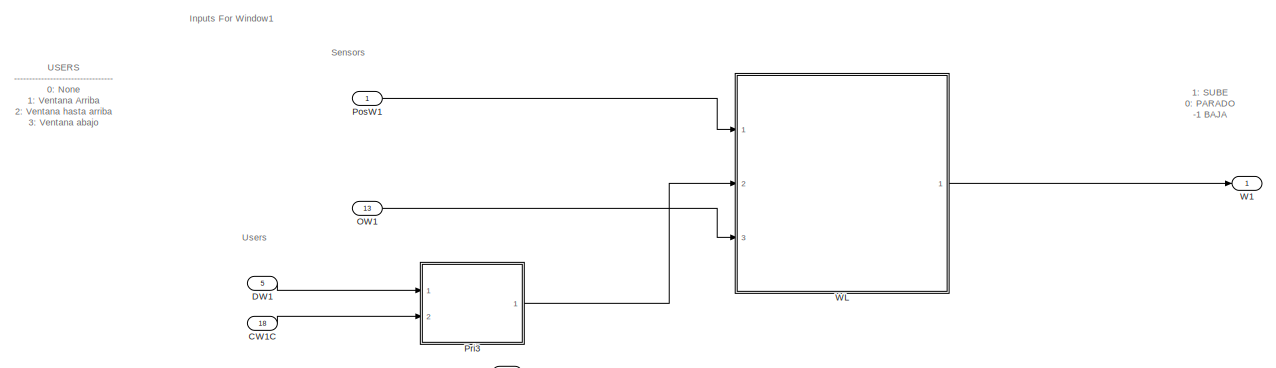
[diagram: M001/Cyber - part 1/3, full width, top band]
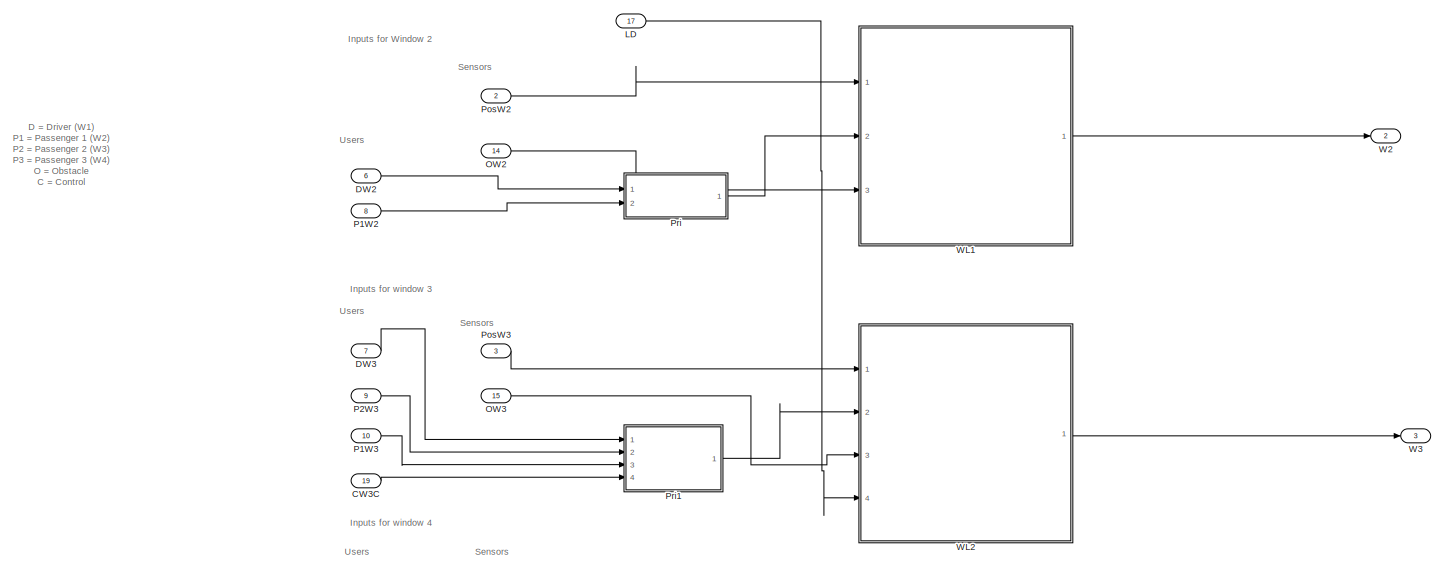
[diagram: M001/Cyber - part 2/3, full width, middle band]
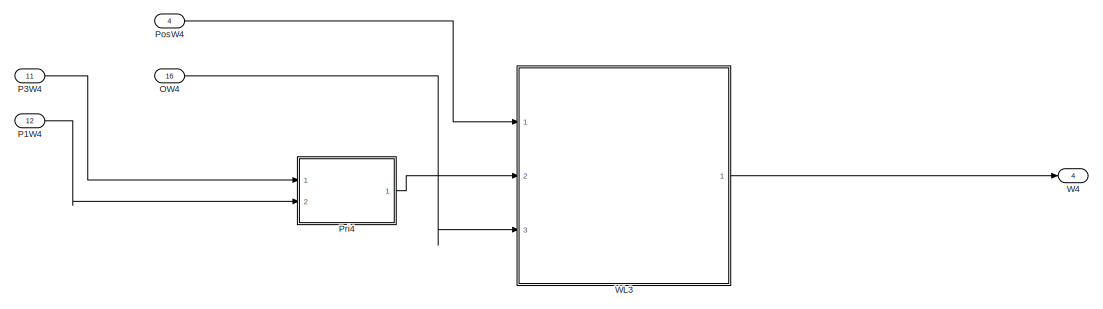
[diagram: M001/Cyber - part 3/3, full width, bottom band]
BLOCK [SubSystem] M001/Cyber
  Ports = [19, 4]
  RequestExecContextInheritance = off
BLOCK [Inport] M001/Cyber/CW1C
  IconDisplay = Port number
  Port = 18
BLOCK [Inport] M001/Cyber/CW3C
  IconDisplay = Port number
  Port = 19
BLOCK [Inport] M001/Cyber/DW1
  IconDisplay = Port number
  Port = 5
BLOCK [Inport] M001/Cyber/DW2
  IconDisplay = Port number
  Port = 6
BLOCK [Inport] M001/Cyber/DW3
  IconDisplay = Port number
  Port = 7
BLOCK [Inport] M001/Cyber/LD
  IconDisplay = Port number
  Port = 17
BLOCK [Inport] M001/Cyber/OW1
  IconDisplay = Port number
  Port = 13
BLOCK [Inport] M001/Cyber/OW2
  IconDisplay = Port number
  Port = 14
BLOCK [Inport] M001/Cyber/OW3
  IconDisplay = Port number
  Port = 15
BLOCK [Inport] M001/Cyber/OW4
  IconDisplay = Port number
  Port = 16
BLOCK [Inport] M001/Cyber/P1W2
  IconDisplay = Port number
  Port = 8
BLOCK [Inport] M001/Cyber/P1W3
  IconDisplay = Port number
  Port = 10
BLOCK [Inport] M001/Cyber/P1W4
  IconDisplay = Port number
  Port = 12
BLOCK [Inport] M001/Cyber/P2W3
  IconDisplay = Port number
  Port = 9
BLOCK [Inport] M001/Cyber/P3W4
  IconDisplay = Port number
  Port = 11
BLOCK [Inport] M001/Cyber/PosW1
  IconDisplay = Port number
BLOCK [Inport] M001/Cyber/PosW2
  IconDisplay = Port number
  Port = 2
BLOCK [Inport] M001/Cyber/PosW3
  IconDisplay = Port number
  Port = 3
BLOCK [Inport] M001/Cyber/PosW4
  IconDisplay = Port number
  Port = 4
BLOCK [SubSystem] M001/Cyber/Pri
  Ports = [2, 1]
  RequestExecContextInheritance = off
BLOCK [Inport] M001/Cyber/Pri/D
  IconDisplay = Port number
BLOCK [Inport] M001/Cyber/Pri/P
  IconDisplay = Port number
  Port = 2
BLOCK [Switch] M001/Cyber/Pri/Switch
  Criteria = u2 > Threshold
  InputSameDT = off
  SaturateOnIntegerOverflow = off
  Threshold = 4
BLOCK [Outport] M001/Cyber/Pri/User
  IconDisplay = Port number
BLOCK [SubSystem] M001/Cyber/Pri1
  Ports = [4, 1]
  RequestExecContextInheritance = off
BLOCK [Inport] M001/Cyber/Pri1/CW3C
  IconDisplay = Port number
  Port = 4
BLOCK [Inport] M001/Cyber/Pri1/D
  IconDisplay = Port number
BLOCK [Inport] M001/Cyber/Pri1/P
  IconDisplay = Port number
  Port = 2
BLOCK [Inport] M001/Cyber/Pri1/P1
  IconDisplay = Port number
  Port = 3
BLOCK [Switch] M001/Cyber/Pri1/Switch
  Criteria = u2 ~= 0
  InputSameDT = off
  SaturateOnIntegerOverflow = off
BLOCK [Switch] M001/Cyber/Pri1/Switch1
  Criteria = u2 ~= 0
  InputSameDT = off
  SaturateOnIntegerOverflow = off
BLOCK [Switch] M001/Cyber/Pri1/Switch2
  Criteria = u2 ~= 0
  InputSameDT = off
  SaturateOnIntegerOverflow = off
BLOCK [Outport] M001/Cyber/Pri1/User
  IconDisplay = Port number
BLOCK [SubSystem] M001/Cyber/Pri3
  Ports = [2, 1]
  RequestExecContextInheritance = off
BLOCK [Inport] M001/Cyber/Pri3/CW1C
  IconDisplay = Port number
  Port = 2
BLOCK [Inport] M001/Cyber/Pri3/D
  IconDisplay = Port number
BLOCK [Switch] M001/Cyber/Pri3/Switch
  Criteria = u2 ~= 0
  InputSameDT = off
  SaturateOnIntegerOverflow = off
BLOCK [Outport] M001/Cyber/Pri3/User
  IconDisplay = Port number
BLOCK [SubSystem] M001/Cyber/Pri4
  Ports = [2, 1]
  RequestExecContextInheritance = off
BLOCK [Inport] M001/Cyber/Pri4/P
  IconDisplay = Port number
BLOCK [Inport] M001/Cyber/Pri4/P1
  IconDisplay = Port number
  Port = 2
BLOCK [Switch] M001/Cyber/Pri4/Switch1
  Criteria = u2 ~= 0
  InputSameDT = off
  SaturateOnIntegerOverflow = off
BLOCK [Outport] M001/Cyber/Pri4/User
  IconDisplay = Port number
BLOCK [Outport] M001/Cyber/W1
  IconDisplay = Port number
BLOCK [Outport] M001/Cyber/W2
  IconDisplay = Port number
  Port = 2
BLOCK [Outport] M001/Cyber/W3
  IconDisplay = Port number
  Port = 3
BLOCK [Outport] M001/Cyber/W4
  IconDisplay = Port number
  Port = 4
BLOCK [SubSystem] M001/Cyber/WL
  Ports = [3, 1]
  RequestExecContextInheritance = off
BLOCK [SubSystem] M001/Cyber/WL/Chart
  ErrorFcn = Stateflow.Translate.translate
  PermitHierarchicalResolution = ExplicitOnly
  Ports = [2, 1]
  RequestExecContextInheritance = off
  SFBlockType = Chart
  TreatAsAtomicUnit = on
BLOCK [Demux] M001/Cyber/WL/Chart/ Demux 
  Outputs = 1
  Ports = [1, 1]
BLOCK [S-Function] M001/Cyber/WL/Chart/ SFunction 
  EnableBusSupport = off
  FunctionName = sf_sfun
  PortCounts = [2 2]
  Ports = [2, 2]
  SFcnIsStateOwnerBlock = off
  SFunctionDeploymentMode = off
  Tag = Stateflow S-Function c00008M_harness 5
BLOCK [Terminator] M001/Cyber/WL/Chart/ Terminator 
BLOCK [Inport] M001/Cyber/WL/Chart/S
  IconDisplay = Port number
BLOCK [Inport] M001/Cyber/WL/Chart/UI
  IconDisplay = Port number
  Port = 2
BLOCK [Outport] M001/Cyber/WL/Chart/W
  IconDisplay = Port number
BLOCK [Constant] M001/Cyber/WL/Constant
  Value = -1
BLOCK [DataTypeConversion] M001/Cyber/WL/Data Type Conversion
  RndMeth = Floor
  SaturateOnIntegerOverflow = off
BLOCK [Inport] M001/Cyber/WL/OW
  IconDisplay = Port number
  Port = 3
BLOCK [Switch] M001/Cyber/WL/Switch
  Criteria = u2 ~= 0
  InputSameDT = off
  SaturateOnIntegerOverflow = off
  Threshold = 1
  ZeroCross = off
BLOCK [Inport] M001/Cyber/WL/User
  IconDisplay = Port number
  Port = 2
BLOCK [Inport] M001/Cyber/WL/WPos
  IconDisplay = Port number
BLOCK [Outport] M001/Cyber/WL/WindowLogicOutput
  IconDisplay = Port number
BLOCK [SubSystem] M001/Cyber/WL1
  Ports = [3, 1]
  RequestExecContextInheritance = off
BLOCK [SubSystem] M001/Cyber/WL1/Chart1
  ErrorFcn = Stateflow.Translate.translate
  PermitHierarchicalResolution = ExplicitOnly
  Ports = [2, 1]
  RequestExecContextInheritance = off
  SFBlockType = Chart
  TreatAsAtomicUnit = on
BLOCK [Demux] M001/Cyber/WL1/Chart1/ Demux 
  Outputs = 1
  Ports = [1, 1]
BLOCK [S-Function] M001/Cyber/WL1/Chart1/ SFunction 
  EnableBusSupport = off
  FunctionName = sf_sfun
  PortCounts = [2 2]
  Ports = [2, 2]
  SFcnIsStateOwnerBlock = off
  SFunctionDeploymentMode = off
  Tag = Stateflow S-Function c00008M_harness 6
BLOCK [Terminator] M001/Cyber/WL1/Chart1/ Terminator 
BLOCK [Inport] M001/Cyber/WL1/Chart1/S
  IconDisplay = Port number
BLOCK [Inport] M001/Cyber/WL1/Chart1/UI
  IconDisplay = Port number
  Port = 2
BLOCK [Outport] M001/Cyber/WL1/Chart1/W
  IconDisplay = Port number
BLOCK [Constant] M001/Cyber/WL1/Constant
  Value = -1
BLOCK [DataTypeConversion] M001/Cyber/WL1/Data Type Conversion
  RndMeth = Floor
  SaturateOnIntegerOverflow = off
BLOCK [Inport] M001/Cyber/WL1/OW
  IconDisplay = Port number
  Port = 3
BLOCK [Switch] M001/Cyber/WL1/Switch
  Criteria = u2 ~= 0
  InputSameDT = off
  SaturateOnIntegerOverflow = off
  Threshold = 1
  ZeroCross = off
BLOCK [Inport] M001/Cyber/WL1/User
  IconDisplay = Port number
  Port = 2
BLOCK [Inport] M001/Cyber/WL1/WPos
  IconDisplay = Port number
BLOCK [Outport] M001/Cyber/WL1/WindowLogicOutput
  IconDisplay = Port number
BLOCK [SubSystem] M001/Cyber/WL2
  Ports = [4, 1]
  RequestExecContextInheritance = off
BLOCK [SubSystem] M001/Cyber/WL2/Chart1
  ErrorFcn = Stateflow.Translate.translate
  PermitHierarchicalResolution = ExplicitOnly
  Ports = [3, 1]
  RequestExecContextInheritance = off
  SFBlockType = Chart
  TreatAsAtomicUnit = on
BLOCK [Demux] M001/Cyber/WL2/Chart1/ Demux 
  Outputs = 1
  Ports = [1, 1]
BLOCK [S-Function] M001/Cyber/WL2/Chart1/ SFunction 
  EnableBusSupport = off
  FunctionName = sf_sfun
  PortCounts = [3 2]
  Ports = [3, 2]
  SFcnIsStateOwnerBlock = off
  SFunctionDeploymentMode = off
  Tag = Stateflow S-Function c00008M_harness 7
BLOCK [Terminator] M001/Cyber/WL2/Chart1/ Terminator 
BLOCK [Inport] M001/Cyber/WL2/Chart1/PosMinW3
  IconDisplay = Port number
  Port = 3
BLOCK [Inport] M001/Cyber/WL2/Chart1/S
  IconDisplay = Port number
BLOCK [Inport] M001/Cyber/WL2/Chart1/UI
  IconDisplay = Port number
  Port = 2
BLOCK [Outport] M001/Cyber/WL2/Chart1/W
  IconDisplay = Port number
BLOCK [Constant] M001/Cyber/WL2/Constant
  Value = -1
BLOCK [Constant] M001/Cyber/WL2/Constant1
  Value = 0
BLOCK [Constant] M001/Cyber/WL2/Constant2
  Value = PosMinimaW3
BLOCK [DataTypeConversion] M001/Cyber/WL2/Data Type Conversion
  RndMeth = Floor
  SaturateOnIntegerOverflow = off
BLOCK [Inport] M001/Cyber/WL2/L
  IconDisplay = Port number
  Port = 4
BLOCK [Inport] M001/Cyber/WL2/OW
  IconDisplay = Port number
  Port = 3
BLOCK [Switch] M001/Cyber/WL2/Switch
  Criteria = u2 ~= 0
  InputSameDT = off
  SaturateOnIntegerOverflow = off
  Threshold = 1
  ZeroCross = off
BLOCK [Switch] M001/Cyber/WL2/Switch1
  Criteria = u2 ~= 0
  InputSameDT = off
  SaturateOnIntegerOverflow = off
BLOCK [Inport] M001/Cyber/WL2/User
  IconDisplay = Port number
  Port = 2
BLOCK [Inport] M001/Cyber/WL2/WPos
  IconDisplay = Port number
BLOCK [Outport] M001/Cyber/WL2/WindowLogicOutput
  IconDisplay = Port number
BLOCK [SubSystem] M001/Cyber/WL3
  Ports = [3, 1]
  RequestExecContextInheritance = off
BLOCK [SubSystem] M001/Cyber/WL3/Chart2
  ErrorFcn = Stateflow.Translate.translate
  PermitHierarchicalResolution = ExplicitOnly
  Ports = [3, 1]
  RequestExecContextInheritance = off
  SFBlockType = Chart
  TreatAsAtomicUnit = on
BLOCK [Demux] M001/Cyber/WL3/Chart2/ Demux 
  Outputs = 1
  Ports = [1, 1]
BLOCK [S-Function] M001/Cyber/WL3/Chart2/ SFunction 
  EnableBusSupport = off
  FunctionName = sf_sfun
  PortCounts = [3 2]
  Ports = [3, 2]
  SFcnIsStateOwnerBlock = off
  SFunctionDeploymentMode = off
  Tag = Stateflow S-Function c00008M_harness 8
BLOCK [Terminator] M001/Cyber/WL3/Chart2/ Terminator 
BLOCK [Inport] M001/Cyber/WL3/Chart2/PosMinW4
  IconDisplay = Port number
  Port = 3
BLOCK [Inport] M001/Cyber/WL3/Chart2/S
  IconDisplay = Port number
BLOCK [Inport] M001/Cyber/WL3/Chart2/UI
  IconDisplay = Port number
  Port = 2
BLOCK [Outport] M001/Cyber/WL3/Chart2/W
  IconDisplay = Port number
BLOCK [Constant] M001/Cyber/WL3/Constant
  Value = -1
BLOCK [Constant] M001/Cyber/WL3/Constant2
  Value = PosMinimaW4
BLOCK [DataTypeConversion] M001/Cyber/WL3/Data Type Conversion
  RndMeth = Floor
  SaturateOnIntegerOverflow = off
BLOCK [Inport] M001/Cyber/WL3/OW
  IconDisplay = Port number
  Port = 3
BLOCK [Switch] M001/Cyber/WL3/Switch
  Criteria = u2 ~= 0
  InputSameDT = off
  SaturateOnIntegerOverflow = off
  Threshold = 1
  ZeroCross = off
BLOCK [Inport] M001/Cyber/WL3/User
  IconDisplay = Port number
  Port = 2
BLOCK [Inport] M001/Cyber/WL3/WPos
  IconDisplay = Port number
BLOCK [Outport] M001/Cyber/WL3/WindowLogicOutput
  IconDisplay = Port number
BLOCK [Inport] M001/DW1
  IconDisplay = Port number
  OutDataTypeStr = int8
  OutMax = 4
  OutMin = 0
BLOCK [Inport] M001/DW2
  IconDisplay = Port number
  OutDataTypeStr = int8
  OutMax = 4
  OutMin = 0
  Port = 2
BLOCK [Inport] M001/DW3
  IconDisplay = Port number
  OutDataTypeStr = int8
  OutMax = 4
  OutMin = 0
  Port = 3
BLOCK [Inport] M001/LD
  IconDisplay = Port number
  OutDataTypeStr = boolean
  Port = 13
BLOCK [Memory] M001/M
BLOCK [Memory] M001/M1
BLOCK [Memory] M001/M2
BLOCK [Memory] M001/M3
BLOCK [Inport] M001/O1
  IconDisplay = Port number
  OutDataTypeStr = boolean
  Port = 9
BLOCK [Inport] M001/O2
  IconDisplay = Port number
  OutDataTypeStr = boolean
  Port = 10
BLOCK [Inport] M001/O3
  IconDisplay = Port number
  OutDataTypeStr = boolean
  Port = 11
BLOCK [Inport] M001/O4
  IconDisplay = Port number
  OutDataTypeStr = boolean
  Port = 12
BLOCK [Inport] M001/P1W2
  IconDisplay = Port number
  OutDataTypeStr = int8
  OutMax = 4
  OutMin = 0
  Port = 4
BLOCK [Inport] M001/P1W3
  IconDisplay = Port number
  OutDataTypeStr = int8
  OutMax = 4
  OutMin = 0
  Port = 6
BLOCK [Inport] M001/P1W4
  IconDisplay = Port number
  OutDataTypeStr = int8
  OutMax = 4
  OutMin = 0
  Port = 8
BLOCK [Inport] M001/P2W3
  IconDisplay = Port number
  OutDataTypeStr = int8
  OutMax = 4
  OutMin = 0
  Port = 5
BLOCK [Inport] M001/P3W4
  IconDisplay = Port number
  OutDataTypeStr = int8
  OutMax = 4
  OutMin = 0
  Port = 7
BLOCK [SubSystem] M001/Physical
  Ports = [4, 4]
  RequestExecContextInheritance = off
BLOCK [Inport] M001/Physical/InW1
  IconDisplay = Port number
BLOCK [Inport] M001/Physical/InW2
  IconDisplay = Port number
  Port = 2
BLOCK [Inport] M001/Physical/InW3
  IconDisplay = Port number
  Port = 3
BLOCK [Inport] M001/Physical/InW4
  IconDisplay = Port number
  Port = 4
BLOCK [SubSystem] M001/Physical/W
  Ports = [1, 1]
  RequestExecContextInheritance = off
BLOCK [SubSystem] M001/Physical/W/DC_Engine
  Ports = [1, 1]
  RequestExecContextInheritance = off
BLOCK [Gain] M001/Physical/W/DC_Engine/(Inductance)
  Gain = 1/L
  OutDataTypeStr = Inherit: Inherit via internal rule
  ParamDataTypeStr = Inherit: Inherit via internal rule
  SaturateOnIntegerOverflow = off
BLOCK [Gain] M001/Physical/W/DC_Engine/(Inductance)1
  Gain = 1/J
  OutDataTypeStr = Inherit: Inherit via internal rule
  ParamDataTypeStr = Inherit: Inherit via internal rule
  SaturateOnIntegerOverflow = off
BLOCK [Sum] M001/Physical/W/DC_Engine/Add
  InputSameDT = off
  Inputs = -+-
  OutDataTypeStr = Inherit: Inherit via internal rule
  Ports = [3, 1]
  SaturateOnIntegerOverflow = off
BLOCK [Sum] M001/Physical/W/DC_Engine/Add1
  InputSameDT = off
  Inputs = +-
  OutDataTypeStr = Inherit: Inherit via internal rule
  Ports = [2, 1]
  SaturateOnIntegerOverflow = off
BLOCK [Gain] M001/Physical/W/DC_Engine/Damping
  Gain = b
  OutDataTypeStr = Inherit: Inherit via internal rule
  ParamDataTypeStr = Inherit: Inherit via internal rule
  SaturateOnIntegerOverflow = off
BLOCK [DiscreteIntegrator] M001/Physical/W/DC_Engine/Discrete-Time Integrator
  ICPrevOutput = DiscIntNeverNeededParam
  ICPrevScaledInput = DiscIntNeverNeededParam
  Ports = [1, 1]
  SampleTime = -1
BLOCK [DiscreteIntegrator] M001/Physical/W/DC_Engine/Discrete-Time Integrator1
  ICPrevOutput = DiscIntNeverNeededParam
  ICPrevScaledInput = DiscIntNeverNeededParam
  Ports = [1, 1]
  SampleTime = -1
BLOCK [Gain] M001/Physical/W/DC_Engine/Ke
  Gain = K
  OutDataTypeStr = Inherit: Inherit via internal rule
  ParamDataTypeStr = Inherit: Inherit via internal rule
  SaturateOnIntegerOverflow = off
BLOCK [Gain] M001/Physical/W/DC_Engine/Kt
  Gain = K
  OutDataTypeStr = Inherit: Inherit via internal rule
  ParamDataTypeStr = Inherit: Inherit via internal rule
  SaturateOnIntegerOverflow = off
BLOCK [Gain] M001/Physical/W/DC_Engine/Resistance
  Gain = R
  OutDataTypeStr = Inherit: Inherit via internal rule
  ParamDataTypeStr = Inherit: Inherit via internal rule
  SaturateOnIntegerOverflow = off
BLOCK [Outport] M001/Physical/W/DC_Engine/Speed
  IconDisplay = Port number
BLOCK [Gain] M001/Physical/W/DC_Engine/Voltage
  Gain = 10
  OutDataTypeStr = Inherit: Inherit via internal rule
  ParamDataTypeStr = Inherit: Inherit via internal rule
  SaturateOnIntegerOverflow = off
BLOCK [Inport] M001/Physical/W/DC_Engine/input
  IconDisplay = Port number
BLOCK [DiscreteIntegrator] M001/Physical/W/Discrete-Time Integrator
  ICPrevOutput = DiscIntNeverNeededParam
  ICPrevScaledInput = DiscIntNeverNeededParam
  InitialCondition = 5
  LimitOutput = on
  LowerSaturationLimit = 0
  Ports = [1, 1]
  SampleTime = -1
  UpperSaturationLimit = 5
BLOCK [Inport] M001/Physical/W/WIn
  IconDisplay = Port number
BLOCK [Outport] M001/Physical/W/WPos
  IconDisplay = Port number
BLOCK [Outport] M001/Physical/W1
  IconDisplay = Port number
BLOCK [Outport] M001/Physical/W2
  IconDisplay = Port number
  Port = 2
BLOCK [Outport] M001/Physical/W3
  IconDisplay = Port number
  Port = 3
BLOCK [Outport] M001/Physical/W4
  IconDisplay = Port number
  Port = 4
BLOCK [SubSystem] M001/Physical/W5
  Ports = [1, 1]
  RequestExecContextInheritance = off
BLOCK [SubSystem] M001/Physical/W5/DC_Engine
  Ports = [1, 1]
  RequestExecContextInheritance = off
BLOCK [Gain] M001/Physical/W5/DC_Engine/(Inductance)
  Gain = 1/L
  OutDataTypeStr = Inherit: Inherit via internal rule
  ParamDataTypeStr = Inherit: Inherit via internal rule
  SaturateOnIntegerOverflow = off
BLOCK [Gain] M001/Physical/W5/DC_Engine/(Inductance)1
  Gain = 1/J
  OutDataTypeStr = Inherit: Inherit via internal rule
  ParamDataTypeStr = Inherit: Inherit via internal rule
  SaturateOnIntegerOverflow = off
BLOCK [Sum] M001/Physical/W5/DC_Engine/Add
  InputSameDT = off
  Inputs = -+-
  OutDataTypeStr = Inherit: Inherit via internal rule
  Ports = [3, 1]
  SaturateOnIntegerOverflow = off
BLOCK [Sum] M001/Physical/W5/DC_Engine/Add1
  InputSameDT = off
  Inputs = +-
  OutDataTypeStr = Inherit: Inherit via internal rule
  Ports = [2, 1]
  SaturateOnIntegerOverflow = off
BLOCK [Gain] M001/Physical/W5/DC_Engine/Damping
  Gain = b
  OutDataTypeStr = Inherit: Inherit via internal rule
  ParamDataTypeStr = Inherit: Inherit via internal rule
  SaturateOnIntegerOverflow = off
BLOCK [DiscreteIntegrator] M001/Physical/W5/DC_Engine/Discrete-Time Integrator
  ICPrevOutput = DiscIntNeverNeededParam
  ICPrevScaledInput = DiscIntNeverNeededParam
  Ports = [1, 1]
  SampleTime = -1
BLOCK [DiscreteIntegrator] M001/Physical/W5/DC_Engine/Discrete-Time Integrator1
  ICPrevOutput = DiscIntNeverNeededParam
  ICPrevScaledInput = DiscIntNeverNeededParam
  Ports = [1, 1]
  SampleTime = -1
BLOCK [Gain] M001/Physical/W5/DC_Engine/Ke
  Gain = K
  OutDataTypeStr = Inherit: Inherit via internal rule
  ParamDataTypeStr = Inherit: Inherit via internal rule
  SaturateOnIntegerOverflow = off
BLOCK [Gain] M001/Physical/W5/DC_Engine/Kt
  Gain = K
  OutDataTypeStr = Inherit: Inherit via internal rule
  ParamDataTypeStr = Inherit: Inherit via internal rule
  SaturateOnIntegerOverflow = off
BLOCK [Gain] M001/Physical/W5/DC_Engine/Resistance
  Gain = R
  OutDataTypeStr = Inherit: Inherit via internal rule
  ParamDataTypeStr = Inherit: Inherit via internal rule
  SaturateOnIntegerOverflow = off
BLOCK [Outport] M001/Physical/W5/DC_Engine/Speed
  IconDisplay = Port number
BLOCK [Gain] M001/Physical/W5/DC_Engine/Voltage
  Gain = 10
  OutDataTypeStr = Inherit: Inherit via internal rule
  ParamDataTypeStr = Inherit: Inherit via internal rule
  SaturateOnIntegerOverflow = off
BLOCK [Inport] M001/Physical/W5/DC_Engine/input
  IconDisplay = Port number
BLOCK [DiscreteIntegrator] M001/Physical/W5/Discrete-Time Integrator
  ICPrevOutput = DiscIntNeverNeededParam
  ICPrevScaledInput = DiscIntNeverNeededParam
  InitialCondition = 5
  LimitOutput = on
  LowerSaturationLimit = 0
  Ports = [1, 1]
  SampleTime = -1
  UpperSaturationLimit = 5
BLOCK [Inport] M001/Physical/W5/WIn
  IconDisplay = Port number
BLOCK [Outport] M001/Physical/W5/WPos
  IconDisplay = Port number
BLOCK [SubSystem] M001/Physical/W6
  Ports = [1, 1]
  RequestExecContextInheritance = off
BLOCK [SubSystem] M001/Physical/W6/DC_Engine
  Ports = [1, 1]
  RequestExecContextInheritance = off
BLOCK [Gain] M001/Physical/W6/DC_Engine/(Inductance)
  Gain = 1/L
  OutDataTypeStr = Inherit: Inherit via internal rule
  ParamDataTypeStr = Inherit: Inherit via internal rule
  SaturateOnIntegerOverflow = off
BLOCK [Gain] M001/Physical/W6/DC_Engine/(Inductance)1
  Gain = 1/J
  OutDataTypeStr = Inherit: Inherit via internal rule
  ParamDataTypeStr = Inherit: Inherit via internal rule
  SaturateOnIntegerOverflow = off
BLOCK [Sum] M001/Physical/W6/DC_Engine/Add
  InputSameDT = off
  Inputs = -+-
  OutDataTypeStr = Inherit: Inherit via internal rule
  Ports = [3, 1]
  SaturateOnIntegerOverflow = off
BLOCK [Sum] M001/Physical/W6/DC_Engine/Add1
  InputSameDT = off
  Inputs = +-
  OutDataTypeStr = Inherit: Inherit via internal rule
  Ports = [2, 1]
  SaturateOnIntegerOverflow = off
BLOCK [Gain] M001/Physical/W6/DC_Engine/Damping
  Gain = b
  OutDataTypeStr = Inherit: Inherit via internal rule
  ParamDataTypeStr = Inherit: Inherit via internal rule
  SaturateOnIntegerOverflow = off
BLOCK [DiscreteIntegrator] M001/Physical/W6/DC_Engine/Discrete-Time Integrator
  ICPrevOutput = DiscIntNeverNeededParam
  ICPrevScaledInput = DiscIntNeverNeededParam
  Ports = [1, 1]
  SampleTime = -1
BLOCK [DiscreteIntegrator] M001/Physical/W6/DC_Engine/Discrete-Time Integrator1
  ICPrevOutput = DiscIntNeverNeededParam
  ICPrevScaledInput = DiscIntNeverNeededParam
  Ports = [1, 1]
  SampleTime = -1
BLOCK [Gain] M001/Physical/W6/DC_Engine/Ke
  Gain = K
  OutDataTypeStr = Inherit: Inherit via internal rule
  ParamDataTypeStr = Inherit: Inherit via internal rule
  SaturateOnIntegerOverflow = off
BLOCK [Gain] M001/Physical/W6/DC_Engine/Kt
  Gain = K
  OutDataTypeStr = Inherit: Inherit via internal rule
  ParamDataTypeStr = Inherit: Inherit via internal rule
  SaturateOnIntegerOverflow = off
BLOCK [Gain] M001/Physical/W6/DC_Engine/Resistance
  Gain = R
  OutDataTypeStr = Inherit: Inherit via internal rule
  ParamDataTypeStr = Inherit: Inherit via internal rule
  SaturateOnIntegerOverflow = off
BLOCK [Outport] M001/Physical/W6/DC_Engine/Speed
  IconDisplay = Port number
BLOCK [Gain] M001/Physical/W6/DC_Engine/Voltage
  Gain = 10
  OutDataTypeStr = Inherit: Inherit via internal rule
  ParamDataTypeStr = Inherit: Inherit via internal rule
  SaturateOnIntegerOverflow = off
BLOCK [Inport] M001/Physical/W6/DC_Engine/input
  IconDisplay = Port number
BLOCK [DiscreteIntegrator] M001/Physical/W6/Discrete-Time Integrator
  ICPrevOutput = DiscIntNeverNeededParam
  ICPrevScaledInput = DiscIntNeverNeededParam
  InitialCondition = 5
  LimitOutput = on
  LowerSaturationLimit = PosMinimaW3
  Ports = [1, 1]
  SampleTime = -1
  UpperSaturationLimit = 5
BLOCK [Inport] M001/Physical/W6/WIn
  IconDisplay = Port number
BLOCK [Outport] M001/Physical/W6/WPos
  IconDisplay = Port number
BLOCK [SubSystem] M001/Physical/W7
  Ports = [1, 1]
  RequestExecContextInheritance = off
BLOCK [SubSystem] M001/Physical/W7/DC_Engine
  Ports = [1, 1]
  RequestExecContextInheritance = off
BLOCK [Gain] M001/Physical/W7/DC_Engine/(Inductance)
  Gain = 1/L
  OutDataTypeStr = Inherit: Inherit via internal rule
  ParamDataTypeStr = Inherit: Inherit via internal rule
  SaturateOnIntegerOverflow = off
BLOCK [Gain] M001/Physical/W7/DC_Engine/(Inductance)1
  Gain = 1/J
  OutDataTypeStr = Inherit: Inherit via internal rule
  ParamDataTypeStr = Inherit: Inherit via internal rule
  SaturateOnIntegerOverflow = off
BLOCK [Sum] M001/Physical/W7/DC_Engine/Add
  InputSameDT = off
  Inputs = -+-
  OutDataTypeStr = Inherit: Inherit via internal rule
  Ports = [3, 1]
  SaturateOnIntegerOverflow = off
BLOCK [Sum] M001/Physical/W7/DC_Engine/Add1
  InputSameDT = off
  Inputs = +-
  OutDataTypeStr = Inherit: Inherit via internal rule
  Ports = [2, 1]
  SaturateOnIntegerOverflow = off
BLOCK [Gain] M001/Physical/W7/DC_Engine/Damping
  Gain = b
  OutDataTypeStr = Inherit: Inherit via internal rule
  ParamDataTypeStr = Inherit: Inherit via internal rule
  SaturateOnIntegerOverflow = off
BLOCK [DiscreteIntegrator] M001/Physical/W7/DC_Engine/Discrete-Time Integrator
  ICPrevOutput = DiscIntNeverNeededParam
  ICPrevScaledInput = DiscIntNeverNeededParam
  Ports = [1, 1]
  SampleTime = -1
BLOCK [DiscreteIntegrator] M001/Physical/W7/DC_Engine/Discrete-Time Integrator1
  ICPrevOutput = DiscIntNeverNeededParam
  ICPrevScaledInput = DiscIntNeverNeededParam
  Ports = [1, 1]
  SampleTime = -1
BLOCK [Gain] M001/Physical/W7/DC_Engine/Ke
  Gain = K
  OutDataTypeStr = Inherit: Inherit via internal rule
  ParamDataTypeStr = Inherit: Inherit via internal rule
  SaturateOnIntegerOverflow = off
BLOCK [Gain] M001/Physical/W7/DC_Engine/Kt
  Gain = K
  OutDataTypeStr = Inherit: Inherit via internal rule
  ParamDataTypeStr = Inherit: Inherit via internal rule
  SaturateOnIntegerOverflow = off
BLOCK [Gain] M001/Physical/W7/DC_Engine/Resistance
  Gain = R
  OutDataTypeStr = Inherit: Inherit via internal rule
  ParamDataTypeStr = Inherit: Inherit via internal rule
  SaturateOnIntegerOverflow = off
BLOCK [Outport] M001/Physical/W7/DC_Engine/Speed
  IconDisplay = Port number
BLOCK [Gain] M001/Physical/W7/DC_Engine/Voltage
  Gain = 10
  OutDataTypeStr = Inherit: Inherit via internal rule
  ParamDataTypeStr = Inherit: Inherit via internal rule
  SaturateOnIntegerOverflow = off
BLOCK [Inport] M001/Physical/W7/DC_Engine/input
  IconDisplay = Port number
BLOCK [DiscreteIntegrator] M001/Physical/W7/Discrete-Time Integrator
  ICPrevOutput = DiscIntNeverNeededParam
  ICPrevScaledInput = DiscIntNeverNeededParam
  InitialCondition = 5
  LimitOutput = on
  LowerSaturationLimit = PosMinimaW4
  Ports = [1, 1]
  SampleTime = -1
  UpperSaturationLimit = 5
BLOCK [Inport] M001/Physical/W7/WIn
  IconDisplay = Port number
BLOCK [Outport] M001/Physical/W7/WPos
  IconDisplay = Port number
BLOCK [SubSystem] M001/S1
  Ports = [1, 1]
  RequestExecContextInheritance = off
BLOCK [Inport] M001/S1/PhyMeasure
  IconDisplay = Port number
BLOCK [Outport] M001/S1/SensorOut
  IconDisplay = Port number
BLOCK [SubSystem] M001/S2
  Ports = [1, 1]
  RequestExecContextInheritance = off
BLOCK [Inport] M001/S2/PhyMeasure
  IconDisplay = Port number
BLOCK [Outport] M001/S2/SensorOut
  IconDisplay = Port number
BLOCK [SubSystem] M001/S3
  Ports = [1, 1]
  RequestExecContextInheritance = off
BLOCK [Inport] M001/S3/PhyMeasure
  IconDisplay = Port number
BLOCK [Outport] M001/S3/SensorOut
  IconDisplay = Port number
BLOCK [SubSystem] M001/S4
  Ports = [1, 1]
  RequestExecContextInheritance = off
BLOCK [Inport] M001/S4/PhyMeasure
  IconDisplay = Port number
BLOCK [Outport] M001/S4/SensorOut
  IconDisplay = Port number
BLOCK [Outport] M001/W1Pos
  IconDisplay = Port number
BLOCK [Outport] M001/W2Pos
  IconDisplay = Port number
  Port = 2
BLOCK [Outport] M001/W3Pos
  IconDisplay = Port number
  Port = 3
BLOCK [Outport] M001/W4Pos
  IconDisplay = Port number
  Port = 4
BLOCK [SubSystem] M007
  Ports = [15, 4]
  RequestExecContextInheritance = off
BLOCK [Inport] M007/CW1C
  IconDisplay = Port number
  OutDataTypeStr = int8
  OutMax = 4
  OutMin = 0
  Port = 14
BLOCK [Inport] M007/CW3C
  IconDisplay = Port number
  OutDataTypeStr = int8
  OutMax = 4
  OutMin = 0
  Port = 15
BLOCK [SubSystem] M007/Cyber
  Ports = [19, 4]
  RequestExecContextInheritance = off
BLOCK [Inport] M007/Cyber/CW1C
  IconDisplay = Port number
  Port = 18
BLOCK [Inport] M007/Cyber/CW3C
  IconDisplay = Port number
  Port = 19
BLOCK [Inport] M007/Cyber/DW1
  IconDisplay = Port number
  Port = 5
BLOCK [Inport] M007/Cyber/DW2
  IconDisplay = Port number
  Port = 6
BLOCK [Inport] M007/Cyber/DW3
  IconDisplay = Port number
  Port = 7
BLOCK [Inport] M007/Cyber/LD
  IconDisplay = Port number
  Port = 17
BLOCK [Inport] M007/Cyber/OW1
  IconDisplay = Port number
  Port = 13
BLOCK [Inport] M007/Cyber/OW2
  IconDisplay = Port number
  Port = 14
BLOCK [Inport] M007/Cyber/OW3
  IconDisplay = Port number
  Port = 15
BLOCK [Inport] M007/Cyber/OW4
  IconDisplay = Port number
  Port = 16
BLOCK [Inport] M007/Cyber/P1W2
  IconDisplay = Port number
  Port = 8
BLOCK [Inport] M007/Cyber/P1W3
  IconDisplay = Port number
  Port = 10
BLOCK [Inport] M007/Cyber/P1W4
  IconDisplay = Port number
  Port = 12
BLOCK [Inport] M007/Cyber/P2W3
  IconDisplay = Port number
  Port = 9
BLOCK [Inport] M007/Cyber/P3W4
  IconDisplay = Port number
  Port = 11
BLOCK [Inport] M007/Cyber/PosW1
  IconDisplay = Port number
BLOCK [Inport] M007/Cyber/PosW2
  IconDisplay = Port number
  Port = 2
BLOCK [Inport] M007/Cyber/PosW3
  IconDisplay = Port number
  Port = 3
BLOCK [Inport] M007/Cyber/PosW4
  IconDisplay = Port number
  Port = 4
BLOCK [SubSystem] M007/Cyber/Pri
  Ports = [2, 1]
  RequestExecContextInheritance = off
BLOCK [Inport] M007/Cyber/Pri/D
  IconDisplay = Port number
BLOCK [Inport] M007/Cyber/Pri/P
  IconDisplay = Port number
  Port = 2
BLOCK [Switch] M007/Cyber/Pri/Switch
  Criteria = u2 ~= 0
  InputSameDT = off
  SaturateOnIntegerOverflow = off
BLOCK [Outport] M007/Cyber/Pri/User
  IconDisplay = Port number
BLOCK [SubSystem] M007/Cyber/Pri1
  Ports = [4, 1]
  RequestExecContextInheritance = off
BLOCK [Inport] M007/Cyber/Pri1/CW3C
  IconDisplay = Port number
  Port = 4
BLOCK [Inport] M007/Cyber/Pri1/D
  IconDisplay = Port number
BLOCK [Inport] M007/Cyber/Pri1/P
  IconDisplay = Port number
  Port = 2
BLOCK [Inport] M007/Cyber/Pri1/P1
  IconDisplay = Port number
  Port = 3
BLOCK [Switch] M007/Cyber/Pri1/Switch
  Criteria = u2 > Threshold
  InputSameDT = off
  SaturateOnIntegerOverflow = off
  Threshold = 4
BLOCK [Switch] M007/Cyber/Pri1/Switch1
  Criteria = u2 ~= 0
  InputSameDT = off
  SaturateOnIntegerOverflow = off
BLOCK [Switch] M007/Cyber/Pri1/Switch2
  Criteria = u2 ~= 0
  InputSameDT = off
  SaturateOnIntegerOverflow = off
BLOCK [Outport] M007/Cyber/Pri1/User
  IconDisplay = Port number
BLOCK [SubSystem] M007/Cyber/Pri3
  Ports = [2, 1]
  RequestExecContextInheritance = off
BLOCK [Inport] M007/Cyber/Pri3/CW1C
  IconDisplay = Port number
  Port = 2
BLOCK [Inport] M007/Cyber/Pri3/D
  IconDisplay = Port number
BLOCK [Switch] M007/Cyber/Pri3/Switch
  Criteria = u2 ~= 0
  InputSameDT = off
  SaturateOnIntegerOverflow = off
BLOCK [Outport] M007/Cyber/Pri3/User
  IconDisplay = Port number
BLOCK [SubSystem] M007/Cyber/Pri4
  Ports = [2, 1]
  RequestExecContextInheritance = off
BLOCK [Inport] M007/Cyber/Pri4/P
  IconDisplay = Port number
BLOCK [Inport] M007/Cyber/Pri4/P1
  IconDisplay = Port number
  Port = 2
BLOCK [Switch] M007/Cyber/Pri4/Switch1
  Criteria = u2 ~= 0
  InputSameDT = off
  SaturateOnIntegerOverflow = off
BLOCK [Outport] M007/Cyber/Pri4/User
  IconDisplay = Port number
BLOCK [Outport] M007/Cyber/W1
  IconDisplay = Port number
BLOCK [Outport] M007/Cyber/W2
  IconDisplay = Port number
  Port = 2
BLOCK [Outport] M007/Cyber/W3
  IconDisplay = Port number
  Port = 3
BLOCK [Outport] M007/Cyber/W4
  IconDisplay = Port number
  Port = 4
BLOCK [SubSystem] M007/Cyber/WL
  Ports = [3, 1]
  RequestExecContextInheritance = off
BLOCK [SubSystem] M007/Cyber/WL/Chart
  ErrorFcn = Stateflow.Translate.translate
  PermitHierarchicalResolution = ExplicitOnly
  Ports = [2, 1]
  RequestExecContextInheritance = off
  SFBlockType = Chart
  TreatAsAtomicUnit = on
BLOCK [Demux] M007/Cyber/WL/Chart/ Demux 
  Outputs = 1
  Ports = [1, 1]
BLOCK [S-Function] M007/Cyber/WL/Chart/ SFunction 
  EnableBusSupport = off
  FunctionName = sf_sfun
  PortCounts = [2 2]
  Ports = [2, 2]
  SFcnIsStateOwnerBlock = off
  SFunctionDeploymentMode = off
  Tag = Stateflow S-Function c00008M_harness 29
BLOCK [Terminator] M007/Cyber/WL/Chart/ Terminator 
BLOCK [Inport] M007/Cyber/WL/Chart/S
  IconDisplay = Port number
BLOCK [Inport] M007/Cyber/WL/Chart/UI
  IconDisplay = Port number
  Port = 2
BLOCK [Outport] M007/Cyber/WL/Chart/W
  IconDisplay = Port number
BLOCK [Constant] M007/Cyber/WL/Constant
  Value = -1
BLOCK [DataTypeConversion] M007/Cyber/WL/Data Type Conversion
  RndMeth = Floor
  SaturateOnIntegerOverflow = off
BLOCK [Inport] M007/Cyber/WL/OW
  IconDisplay = Port number
  Port = 3
BLOCK [Switch] M007/Cyber/WL/Switch
  Criteria = u2 ~= 0
  InputSameDT = off
  SaturateOnIntegerOverflow = off
  Threshold = 1
  ZeroCross = off
BLOCK [Inport] M007/Cyber/WL/User
  IconDisplay = Port number
  Port = 2
BLOCK [Inport] M007/Cyber/WL/WPos
  IconDisplay = Port number
BLOCK [Outport] M007/Cyber/WL/WindowLogicOutput
  IconDisplay = Port number
BLOCK [SubSystem] M007/Cyber/WL1
  Ports = [3, 1]
  RequestExecContextInheritance = off
BLOCK [SubSystem] M007/Cyber/WL1/Chart1
  ErrorFcn = Stateflow.Translate.translate
  PermitHierarchicalResolution = ExplicitOnly
  Ports = [2, 1]
  RequestExecContextInheritance = off
  SFBlockType = Chart
  TreatAsAtomicUnit = on
BLOCK [Demux] M007/Cyber/WL1/Chart1/ Demux 
  Outputs = 1
  Ports = [1, 1]
BLOCK [S-Function] M007/Cyber/WL1/Chart1/ SFunction 
  EnableBusSupport = off
  FunctionName = sf_sfun
  PortCounts = [2 2]
  Ports = [2, 2]
  SFcnIsStateOwnerBlock = off
  SFunctionDeploymentMode = off
  Tag = Stateflow S-Function c00008M_harness 30
BLOCK [Terminator] M007/Cyber/WL1/Chart1/ Terminator 
BLOCK [Inport] M007/Cyber/WL1/Chart1/S
  IconDisplay = Port number
BLOCK [Inport] M007/Cyber/WL1/Chart1/UI
  IconDisplay = Port number
  Port = 2
BLOCK [Outport] M007/Cyber/WL1/Chart1/W
  IconDisplay = Port number
BLOCK [Constant] M007/Cyber/WL1/Constant
  Value = -1
BLOCK [DataTypeConversion] M007/Cyber/WL1/Data Type Conversion
  RndMeth = Floor
  SaturateOnIntegerOverflow = off
BLOCK [Inport] M007/Cyber/WL1/OW
  IconDisplay = Port number
  Port = 3
BLOCK [Switch] M007/Cyber/WL1/Switch
  Criteria = u2 ~= 0
  InputSameDT = off
  SaturateOnIntegerOverflow = off
  Threshold = 1
  ZeroCross = off
BLOCK [Inport] M007/Cyber/WL1/User
  IconDisplay = Port number
  Port = 2
BLOCK [Inport] M007/Cyber/WL1/WPos
  IconDisplay = Port number
BLOCK [Outport] M007/Cyber/WL1/WindowLogicOutput
  IconDisplay = Port number
BLOCK [SubSystem] M007/Cyber/WL2
  Ports = [4, 1]
  RequestExecContextInheritance = off
BLOCK [SubSystem] M007/Cyber/WL2/Chart1
  ErrorFcn = Stateflow.Translate.translate
  PermitHierarchicalResolution = ExplicitOnly
  Ports = [3, 1]
  RequestExecContextInheritance = off
  SFBlockType = Chart
  TreatAsAtomicUnit = on
BLOCK [Demux] M007/Cyber/WL2/Chart1/ Demux 
  Outputs = 1
  Ports = [1, 1]
BLOCK [S-Function] M007/Cyber/WL2/Chart1/ SFunction 
  EnableBusSupport = off
  FunctionName = sf_sfun
  PortCounts = [3 2]
  Ports = [3, 2]
  SFcnIsStateOwnerBlock = off
  SFunctionDeploymentMode = off
  Tag = Stateflow S-Function c00008M_harness 31
BLOCK [Terminator] M007/Cyber/WL2/Chart1/ Terminator 
BLOCK [Inport] M007/Cyber/WL2/Chart1/PosMinW3
  IconDisplay = Port number
  Port = 3
BLOCK [Inport] M007/Cyber/WL2/Chart1/S
  IconDisplay = Port number
BLOCK [Inport] M007/Cyber/WL2/Chart1/UI
  IconDisplay = Port number
  Port = 2
BLOCK [Outport] M007/Cyber/WL2/Chart1/W
  IconDisplay = Port number
BLOCK [Constant] M007/Cyber/WL2/Constant
  Value = -1
BLOCK [Constant] M007/Cyber/WL2/Constant1
  Value = 0
BLOCK [Constant] M007/Cyber/WL2/Constant2
  Value = PosMinimaW3
BLOCK [DataTypeConversion] M007/Cyber/WL2/Data Type Conversion
  RndMeth = Floor
  SaturateOnIntegerOverflow = off
BLOCK [Inport] M007/Cyber/WL2/L
  IconDisplay = Port number
  Port = 4
BLOCK [Inport] M007/Cyber/WL2/OW
  IconDisplay = Port number
  Port = 3
BLOCK [Switch] M007/Cyber/WL2/Switch
  Criteria = u2 ~= 0
  InputSameDT = off
  SaturateOnIntegerOverflow = off
  Threshold = 1
  ZeroCross = off
BLOCK [Switch] M007/Cyber/WL2/Switch1
  Criteria = u2 ~= 0
  InputSameDT = off
  SaturateOnIntegerOverflow = off
BLOCK [Inport] M007/Cyber/WL2/User
  IconDisplay = Port number
  Port = 2
BLOCK [Inport] M007/Cyber/WL2/WPos
  IconDisplay = Port number
BLOCK [Outport] M007/Cyber/WL2/WindowLogicOutput
  IconDisplay = Port number
BLOCK [SubSystem] M007/Cyber/WL3
  Ports = [3, 1]
  RequestExecContextInheritance = off
BLOCK [SubSystem] M007/Cyber/WL3/Chart2
  ErrorFcn = Stateflow.Translate.translate
  PermitHierarchicalResolution = ExplicitOnly
  Ports = [3, 1]
  RequestExecContextInheritance = off
  SFBlockType = Chart
  TreatAsAtomicUnit = on
BLOCK [Demux] M007/Cyber/WL3/Chart2/ Demux 
  Outputs = 1
  Ports = [1, 1]
BLOCK [S-Function] M007/Cyber/WL3/Chart2/ SFunction 
  EnableBusSupport = off
  FunctionName = sf_sfun
  PortCounts = [3 2]
  Ports = [3, 2]
  SFcnIsStateOwnerBlock = off
  SFunctionDeploymentMode = off
  Tag = Stateflow S-Function c00008M_harness 32
BLOCK [Terminator] M007/Cyber/WL3/Chart2/ Terminator 
BLOCK [Inport] M007/Cyber/WL3/Chart2/PosMinW4
  IconDisplay = Port number
  Port = 3
BLOCK [Inport] M007/Cyber/WL3/Chart2/S
  IconDisplay = Port number
BLOCK [Inport] M007/Cyber/WL3/Chart2/UI
  IconDisplay = Port number
  Port = 2
BLOCK [Outport] M007/Cyber/WL3/Chart2/W
  IconDisplay = Port number
BLOCK [Constant] M007/Cyber/WL3/Constant
  Value = -1
BLOCK [Constant] M007/Cyber/WL3/Constant2
  Value = PosMinimaW4
BLOCK [DataTypeConversion] M007/Cyber/WL3/Data Type Conversion
  RndMeth = Floor
  SaturateOnIntegerOverflow = off
BLOCK [Inport] M007/Cyber/WL3/OW
  IconDisplay = Port number
  Port = 3
BLOCK [Switch] M007/Cyber/WL3/Switch
  Criteria = u2 ~= 0
  InputSameDT = off
  SaturateOnIntegerOverflow = off
  Threshold = 1
  ZeroCross = off
BLOCK [Inport] M007/Cyber/WL3/User
  IconDisplay = Port number
  Port = 2
BLOCK [Inport] M007/Cyber/WL3/WPos
  IconDisplay = Port number
BLOCK [Outport] M007/Cyber/WL3/WindowLogicOutput
  IconDisplay = Port number
BLOCK [Inport] M007/DW1
  IconDisplay = Port number
  OutDataTypeStr = int8
  OutMax = 4
  OutMin = 0
BLOCK [Inport] M007/DW2
  IconDisplay = Port number
  OutDataTypeStr = int8
  OutMax = 4
  OutMin = 0
  Port = 2
BLOCK [Inport] M007/DW3
  IconDisplay = Port number
  OutDataTypeStr = int8
  OutMax = 4
  OutMin = 0
  Port = 3
BLOCK [Inport] M007/LD
  IconDisplay = Port number
  OutDataTypeStr = boolean
  Port = 13
BLOCK [Memory] M007/M
BLOCK [Memory] M007/M1
BLOCK [Memory] M007/M2
BLOCK [Memory] M007/M3
BLOCK [Inport] M007/O1
  IconDisplay = Port number
  OutDataTypeStr = boolean
  Port = 9
BLOCK [Inport] M007/O2
  IconDisplay = Port number
  OutDataTypeStr = boolean
  Port = 10
BLOCK [Inport] M007/O3
  IconDisplay = Port number
  OutDataTypeStr = boolean
  Port = 11
BLOCK [Inport] M007/O4
  IconDisplay = Port number
  OutDataTypeStr = boolean
  Port = 12
BLOCK [Inport] M007/P1W2
  IconDisplay = Port number
  OutDataTypeStr = int8
  OutMax = 4
  OutMin = 0
  Port = 4
BLOCK [Inport] M007/P1W3
  IconDisplay = Port number
  OutDataTypeStr = int8
  OutMax = 4
  OutMin = 0
  Port = 6
BLOCK [Inport] M007/P1W4
  IconDisplay = Port number
  OutDataTypeStr = int8
  OutMax = 4
  OutMin = 0
  Port = 8
BLOCK [Inport] M007/P2W3
  IconDisplay = Port number
  OutDataTypeStr = int8
  OutMax = 4
  OutMin = 0
  Port = 5
BLOCK [Inport] M007/P3W4
  IconDisplay = Port number
  OutDataTypeStr = int8
  OutMax = 4
  OutMin = 0
  Port = 7
BLOCK [SubSystem] M007/Physical
  Ports = [4, 4]
  RequestExecContextInheritance = off
BLOCK [Inport] M007/Physical/InW1
  IconDisplay = Port number
BLOCK [Inport] M007/Physical/InW2
  IconDisplay = Port number
  Port = 2
BLOCK [Inport] M007/Physical/InW3
  IconDisplay = Port number
  Port = 3
BLOCK [Inport] M007/Physical/InW4
  IconDisplay = Port number
  Port = 4
BLOCK [SubSystem] M007/Physical/W
  Ports = [1, 1]
  RequestExecContextInheritance = off
BLOCK [SubSystem] M007/Physical/W/DC_Engine
  Ports = [1, 1]
  RequestExecContextInheritance = off
BLOCK [Gain] M007/Physical/W/DC_Engine/(Inductance)
  Gain = 1/L
  OutDataTypeStr = Inherit: Inherit via internal rule
  ParamDataTypeStr = Inherit: Inherit via internal rule
  SaturateOnIntegerOverflow = off
BLOCK [Gain] M007/Physical/W/DC_Engine/(Inductance)1
  Gain = 1/J
  OutDataTypeStr = Inherit: Inherit via internal rule
  ParamDataTypeStr = Inherit: Inherit via internal rule
  SaturateOnIntegerOverflow = off
BLOCK [Sum] M007/Physical/W/DC_Engine/Add
  InputSameDT = off
  Inputs = -+-
  OutDataTypeStr = Inherit: Inherit via internal rule
  Ports = [3, 1]
  SaturateOnIntegerOverflow = off
BLOCK [Sum] M007/Physical/W/DC_Engine/Add1
  InputSameDT = off
  Inputs = +-
  OutDataTypeStr = Inherit: Inherit via internal rule
  Ports = [2, 1]
  SaturateOnIntegerOverflow = off
BLOCK [Gain] M007/Physical/W/DC_Engine/Damping
  Gain = b
  OutDataTypeStr = Inherit: Inherit via internal rule
  ParamDataTypeStr = Inherit: Inherit via internal rule
  SaturateOnIntegerOverflow = off
BLOCK [DiscreteIntegrator] M007/Physical/W/DC_Engine/Discrete-Time Integrator
  ICPrevOutput = DiscIntNeverNeededParam
  ICPrevScaledInput = DiscIntNeverNeededParam
  Ports = [1, 1]
  SampleTime = -1
BLOCK [DiscreteIntegrator] M007/Physical/W/DC_Engine/Discrete-Time Integrator1
  ICPrevOutput = DiscIntNeverNeededParam
  ICPrevScaledInput = DiscIntNeverNeededParam
  Ports = [1, 1]
  SampleTime = -1
BLOCK [Gain] M007/Physical/W/DC_Engine/Ke
  Gain = K
  OutDataTypeStr = Inherit: Inherit via internal rule
  ParamDataTypeStr = Inherit: Inherit via internal rule
  SaturateOnIntegerOverflow = off
BLOCK [Gain] M007/Physical/W/DC_Engine/Kt
  Gain = K
  OutDataTypeStr = Inherit: Inherit via internal rule
  ParamDataTypeStr = Inherit: Inherit via internal rule
  SaturateOnIntegerOverflow = off
BLOCK [Gain] M007/Physical/W/DC_Engine/Resistance
  Gain = R
  OutDataTypeStr = Inherit: Inherit via internal rule
  ParamDataTypeStr = Inherit: Inherit via internal rule
  SaturateOnIntegerOverflow = off
BLOCK [Outport] M007/Physical/W/DC_Engine/Speed
  IconDisplay = Port number
BLOCK [Gain] M007/Physical/W/DC_Engine/Voltage
  Gain = 10
  OutDataTypeStr = Inherit: Inherit via internal rule
  ParamDataTypeStr = Inherit: Inherit via internal rule
  SaturateOnIntegerOverflow = off
BLOCK [Inport] M007/Physical/W/DC_Engine/input
  IconDisplay = Port number
BLOCK [DiscreteIntegrator] M007/Physical/W/Discrete-Time Integrator
  ICPrevOutput = DiscIntNeverNeededParam
  ICPrevScaledInput = DiscIntNeverNeededParam
  InitialCondition = 5
  LimitOutput = on
  LowerSaturationLimit = 0
  Ports = [1, 1]
  SampleTime = -1
  UpperSaturationLimit = 5
BLOCK [Inport] M007/Physical/W/WIn
  IconDisplay = Port number
BLOCK [Outport] M007/Physical/W/WPos
  IconDisplay = Port number
BLOCK [Outport] M007/Physical/W1
  IconDisplay = Port number
BLOCK [Outport] M007/Physical/W2
  IconDisplay = Port number
  Port = 2
BLOCK [Outport] M007/Physical/W3
  IconDisplay = Port number
  Port = 3
BLOCK [Outport] M007/Physical/W4
  IconDisplay = Port number
  Port = 4
BLOCK [SubSystem] M007/Physical/W5
  Ports = [1, 1]
  RequestExecContextInheritance = off
BLOCK [SubSystem] M007/Physical/W5/DC_Engine
  Ports = [1, 1]
  RequestExecContextInheritance = off
BLOCK [Gain] M007/Physical/W5/DC_Engine/(Inductance)
  Gain = 1/L
  OutDataTypeStr = Inherit: Inherit via internal rule
  ParamDataTypeStr = Inherit: Inherit via internal rule
  SaturateOnIntegerOverflow = off
BLOCK [Gain] M007/Physical/W5/DC_Engine/(Inductance)1
  Gain = 1/J
  OutDataTypeStr = Inherit: Inherit via internal rule
  ParamDataTypeStr = Inherit: Inherit via internal rule
  SaturateOnIntegerOverflow = off
BLOCK [Sum] M007/Physical/W5/DC_Engine/Add
  InputSameDT = off
  Inputs = -+-
  OutDataTypeStr = Inherit: Inherit via internal rule
  Ports = [3, 1]
  SaturateOnIntegerOverflow = off
BLOCK [Sum] M007/Physical/W5/DC_Engine/Add1
  InputSameDT = off
  Inputs = +-
  OutDataTypeStr = Inherit: Inherit via internal rule
  Ports = [2, 1]
  SaturateOnIntegerOverflow = off
BLOCK [Gain] M007/Physical/W5/DC_Engine/Damping
  Gain = b
  OutDataTypeStr = Inherit: Inherit via internal rule
  ParamDataTypeStr = Inherit: Inherit via internal rule
  SaturateOnIntegerOverflow = off
BLOCK [DiscreteIntegrator] M007/Physical/W5/DC_Engine/Discrete-Time Integrator
  ICPrevOutput = DiscIntNeverNeededParam
  ICPrevScaledInput = DiscIntNeverNeededParam
  Ports = [1, 1]
  SampleTime = -1
BLOCK [DiscreteIntegrator] M007/Physical/W5/DC_Engine/Discrete-Time Integrator1
  ICPrevOutput = DiscIntNeverNeededParam
  ICPrevScaledInput = DiscIntNeverNeededParam
  Ports = [1, 1]
  SampleTime = -1
BLOCK [Gain] M007/Physical/W5/DC_Engine/Ke
  Gain = K
  OutDataTypeStr = Inherit: Inherit via internal rule
  ParamDataTypeStr = Inherit: Inherit via internal rule
  SaturateOnIntegerOverflow = off
BLOCK [Gain] M007/Physical/W5/DC_Engine/Kt
  Gain = K
  OutDataTypeStr = Inherit: Inherit via internal rule
  ParamDataTypeStr = Inherit: Inherit via internal rule
  SaturateOnIntegerOverflow = off
BLOCK [Gain] M007/Physical/W5/DC_Engine/Resistance
  Gain = R
  OutDataTypeStr = Inherit: Inherit via internal rule
  ParamDataTypeStr = Inherit: Inherit via internal rule
  SaturateOnIntegerOverflow = off
BLOCK [Outport] M007/Physical/W5/DC_Engine/Speed
  IconDisplay = Port number
BLOCK [Gain] M007/Physical/W5/DC_Engine/Voltage
  Gain = 10
  OutDataTypeStr = Inherit: Inherit via internal rule
  ParamDataTypeStr = Inherit: Inherit via internal rule
  SaturateOnIntegerOverflow = off
BLOCK [Inport] M007/Physical/W5/DC_Engine/input
  IconDisplay = Port number
BLOCK [DiscreteIntegrator] M007/Physical/W5/Discrete-Time Integrator
  ICPrevOutput = DiscIntNeverNeededParam
  ICPrevScaledInput = DiscIntNeverNeededParam
  InitialCondition = 5
  LimitOutput = on
  LowerSaturationLimit = 0
  Ports = [1, 1]
  SampleTime = -1
  UpperSaturationLimit = 5
BLOCK [Inport] M007/Physical/W5/WIn
  IconDisplay = Port number
BLOCK [Outport] M007/Physical/W5/WPos
  IconDisplay = Port number
BLOCK [SubSystem] M007/Physical/W6
  Ports = [1, 1]
  RequestExecContextInheritance = off
BLOCK [SubSystem] M007/Physical/W6/DC_Engine
  Ports = [1, 1]
  RequestExecContextInheritance = off
BLOCK [Gain] M007/Physical/W6/DC_Engine/(Inductance)
  Gain = 1/L
  OutDataTypeStr = Inherit: Inherit via internal rule
  ParamDataTypeStr = Inherit: Inherit via internal rule
  SaturateOnIntegerOverflow = off
BLOCK [Gain] M007/Physical/W6/DC_Engine/(Inductance)1
  Gain = 1/J
  OutDataTypeStr = Inherit: Inherit via internal rule
  ParamDataTypeStr = Inherit: Inherit via internal rule
  SaturateOnIntegerOverflow = off
BLOCK [Sum] M007/Physical/W6/DC_Engine/Add
  InputSameDT = off
  Inputs = -+-
  OutDataTypeStr = Inherit: Inherit via internal rule
  Ports = [3, 1]
  SaturateOnIntegerOverflow = off
BLOCK [Sum] M007/Physical/W6/DC_Engine/Add1
  InputSameDT = off
  Inputs = +-
  OutDataTypeStr = Inherit: Inherit via internal rule
  Ports = [2, 1]
  SaturateOnIntegerOverflow = off
BLOCK [Gain] M007/Physical/W6/DC_Engine/Damping
  Gain = b
  OutDataTypeStr = Inherit: Inherit via internal rule
  ParamDataTypeStr = Inherit: Inherit via internal rule
  SaturateOnIntegerOverflow = off
BLOCK [DiscreteIntegrator] M007/Physical/W6/DC_Engine/Discrete-Time Integrator
  ICPrevOutput = DiscIntNeverNeededParam
  ICPrevScaledInput = DiscIntNeverNeededParam
  Ports = [1, 1]
  SampleTime = -1
BLOCK [DiscreteIntegrator] M007/Physical/W6/DC_Engine/Discrete-Time Integrator1
  ICPrevOutput = DiscIntNeverNeededParam
  ICPrevScaledInput = DiscIntNeverNeededParam
  Ports = [1, 1]
  SampleTime = -1
BLOCK [Gain] M007/Physical/W6/DC_Engine/Ke
  Gain = K
  OutDataTypeStr = Inherit: Inherit via internal rule
  ParamDataTypeStr = Inherit: Inherit via internal rule
  SaturateOnIntegerOverflow = off
BLOCK [Gain] M007/Physical/W6/DC_Engine/Kt
  Gain = K
  OutDataTypeStr = Inherit: Inherit via internal rule
  ParamDataTypeStr = Inherit: Inherit via internal rule
  SaturateOnIntegerOverflow = off
BLOCK [Gain] M007/Physical/W6/DC_Engine/Resistance
  Gain = R
  OutDataTypeStr = Inherit: Inherit via internal rule
  ParamDataTypeStr = Inherit: Inherit via internal rule
  SaturateOnIntegerOverflow = off
BLOCK [Outport] M007/Physical/W6/DC_Engine/Speed
  IconDisplay = Port number
BLOCK [Gain] M007/Physical/W6/DC_Engine/Voltage
  Gain = 10
  OutDataTypeStr = Inherit: Inherit via internal rule
  ParamDataTypeStr = Inherit: Inherit via internal rule
  SaturateOnIntegerOverflow = off
BLOCK [Inport] M007/Physical/W6/DC_Engine/input
  IconDisplay = Port number
BLOCK [DiscreteIntegrator] M007/Physical/W6/Discrete-Time Integrator
  ICPrevOutput = DiscIntNeverNeededParam
  ICPrevScaledInput = DiscIntNeverNeededParam
  InitialCondition = 5
  LimitOutput = on
  LowerSaturationLimit = PosMinimaW3
  Ports = [1, 1]
  SampleTime = -1
  UpperSaturationLimit = 5
BLOCK [Inport] M007/Physical/W6/WIn
  IconDisplay = Port number
BLOCK [Outport] M007/Physical/W6/WPos
  IconDisplay = Port number
BLOCK [SubSystem] M007/Physical/W7
  Ports = [1, 1]
  RequestExecContextInheritance = off
BLOCK [SubSystem] M007/Physical/W7/DC_Engine
  Ports = [1, 1]
  RequestExecContextInheritance = off
BLOCK [Gain] M007/Physical/W7/DC_Engine/(Inductance)
  Gain = 1/L
  OutDataTypeStr = Inherit: Inherit via internal rule
  ParamDataTypeStr = Inherit: Inherit via internal rule
  SaturateOnIntegerOverflow = off
BLOCK [Gain] M007/Physical/W7/DC_Engine/(Inductance)1
  Gain = 1/J
  OutDataTypeStr = Inherit: Inherit via internal rule
  ParamDataTypeStr = Inherit: Inherit via internal rule
  SaturateOnIntegerOverflow = off
BLOCK [Sum] M007/Physical/W7/DC_Engine/Add
  InputSameDT = off
  Inputs = -+-
  OutDataTypeStr = Inherit: Inherit via internal rule
  Ports = [3, 1]
  SaturateOnIntegerOverflow = off
BLOCK [Sum] M007/Physical/W7/DC_Engine/Add1
  InputSameDT = off
  Inputs = +-
  OutDataTypeStr = Inherit: Inherit via internal rule
  Ports = [2, 1]
  SaturateOnIntegerOverflow = off
BLOCK [Gain] M007/Physical/W7/DC_Engine/Damping
  Gain = b
  OutDataTypeStr = Inherit: Inherit via internal rule
  ParamDataTypeStr = Inherit: Inherit via internal rule
  SaturateOnIntegerOverflow = off
BLOCK [DiscreteIntegrator] M007/Physical/W7/DC_Engine/Discrete-Time Integrator
  ICPrevOutput = DiscIntNeverNeededParam
  ICPrevScaledInput = DiscIntNeverNeededParam
  Ports = [1, 1]
  SampleTime = -1
BLOCK [DiscreteIntegrator] M007/Physical/W7/DC_Engine/Discrete-Time Integrator1
  ICPrevOutput = DiscIntNeverNeededParam
  ICPrevScaledInput = DiscIntNeverNeededParam
  Ports = [1, 1]
  SampleTime = -1
BLOCK [Gain] M007/Physical/W7/DC_Engine/Ke
  Gain = K
  OutDataTypeStr = Inherit: Inherit via internal rule
  ParamDataTypeStr = Inherit: Inherit via internal rule
  SaturateOnIntegerOverflow = off
BLOCK [Gain] M007/Physical/W7/DC_Engine/Kt
  Gain = K
  OutDataTypeStr = Inherit: Inherit via internal rule
  ParamDataTypeStr = Inherit: Inherit via internal rule
  SaturateOnIntegerOverflow = off
BLOCK [Gain] M007/Physical/W7/DC_Engine/Resistance
  Gain = R
  OutDataTypeStr = Inherit: Inherit via internal rule
  ParamDataTypeStr = Inherit: Inherit via internal rule
  SaturateOnIntegerOverflow = off
BLOCK [Outport] M007/Physical/W7/DC_Engine/Speed
  IconDisplay = Port number
BLOCK [Gain] M007/Physical/W7/DC_Engine/Voltage
  Gain = 10
  OutDataTypeStr = Inherit: Inherit via internal rule
  ParamDataTypeStr = Inherit: Inherit via internal rule
  SaturateOnIntegerOverflow = off
BLOCK [Inport] M007/Physical/W7/DC_Engine/input
  IconDisplay = Port number
BLOCK [DiscreteIntegrator] M007/Physical/W7/Discrete-Time Integrator
  ICPrevOutput = DiscIntNeverNeededParam
  ICPrevScaledInput = DiscIntNeverNeededParam
  InitialCondition = 5
  LimitOutput = on
  LowerSaturationLimit = PosMinimaW4
  Ports = [1, 1]
  SampleTime = -1
  UpperSaturationLimit = 5
BLOCK [Inport] M007/Physical/W7/WIn
  IconDisplay = Port number
BLOCK [Outport] M007/Physical/W7/WPos
  IconDisplay = Port number
BLOCK [SubSystem] M007/S1
  Ports = [1, 1]
  RequestExecContextInheritance = off
BLOCK [Inport] M007/S1/PhyMeasure
  IconDisplay = Port number
BLOCK [Outport] M007/S1/SensorOut
  IconDisplay = Port number
BLOCK [SubSystem] M007/S2
  Ports = [1, 1]
  RequestExecContextInheritance = off
BLOCK [Inport] M007/S2/PhyMeasure
  IconDisplay = Port number
BLOCK [Outport] M007/S2/SensorOut
  IconDisplay = Port number
BLOCK [SubSystem] M007/S3
  Ports = [1, 1]
  RequestExecContextInheritance = off
BLOCK [Inport] M007/S3/PhyMeasure
  IconDisplay = Port number
BLOCK [Outport] M007/S3/SensorOut
  IconDisplay = Port number
BLOCK [SubSystem] M007/S4
  Ports = [1, 1]
  RequestExecContextInheritance = off
BLOCK [Inport] M007/S4/PhyMeasure
  IconDisplay = Port number
BLOCK [Outport] M007/S4/SensorOut
  IconDisplay = Port number
BLOCK [Outport] M007/W1Pos
  IconDisplay = Port number
BLOCK [Outport] M007/W2Pos
  IconDisplay = Port number
  Port = 2
BLOCK [Outport] M007/W3Pos
  IconDisplay = Port number
  Port = 3
BLOCK [Outport] M007/W4Pos
  IconDisplay = Port number
  Port = 4
BLOCK [SubSystem] M010
  Ports = [15, 4]
  RequestExecContextInheritance = off
BLOCK [Inport] M010/CW1C
  IconDisplay = Port number
  OutDataTypeStr = int8
  OutMax = 4
  OutMin = 0
  Port = 14
BLOCK [Inport] M010/CW3C
  IconDisplay = Port number
  OutDataTypeStr = int8
  OutMax = 4
  OutMin = 0
  Port = 15
BLOCK [SubSystem] M010/Cyber
  Ports = [19, 4]
  RequestExecContextInheritance = off
BLOCK [Inport] M010/Cyber/CW1C
  IconDisplay = Port number
  Port = 18
BLOCK [Inport] M010/Cyber/CW3C
  IconDisplay = Port number
  Port = 19
BLOCK [Inport] M010/Cyber/DW1
  IconDisplay = Port number
  Port = 5
BLOCK [Inport] M010/Cyber/DW2
  IconDisplay = Port number
  Port = 6
BLOCK [Inport] M010/Cyber/DW3
  IconDisplay = Port number
  Port = 7
BLOCK [Inport] M010/Cyber/LD
  IconDisplay = Port number
  Port = 17
BLOCK [Inport] M010/Cyber/OW1
  IconDisplay = Port number
  Port = 13
BLOCK [Inport] M010/Cyber/OW2
  IconDisplay = Port number
  Port = 14
BLOCK [Inport] M010/Cyber/OW3
  IconDisplay = Port number
  Port = 15
BLOCK [Inport] M010/Cyber/OW4
  IconDisplay = Port number
  Port = 16
BLOCK [Inport] M010/Cyber/P1W2
  IconDisplay = Port number
  Port = 8
BLOCK [Inport] M010/Cyber/P1W3
  IconDisplay = Port number
  Port = 10
BLOCK [Inport] M010/Cyber/P1W4
  IconDisplay = Port number
  Port = 12
BLOCK [Inport] M010/Cyber/P2W3
  IconDisplay = Port number
  Port = 9
BLOCK [Inport] M010/Cyber/P3W4
  IconDisplay = Port number
  Port = 11
BLOCK [Inport] M010/Cyber/PosW1
  IconDisplay = Port number
BLOCK [Inport] M010/Cyber/PosW2
  IconDisplay = Port number
  Port = 2
BLOCK [Inport] M010/Cyber/PosW3
  IconDisplay = Port number
  Port = 3
BLOCK [Inport] M010/Cyber/PosW4
  IconDisplay = Port number
  Port = 4
BLOCK [SubSystem] M010/Cyber/Pri
  Ports = [2, 1]
  RequestExecContextInheritance = off
BLOCK [Inport] M010/Cyber/Pri/D
  IconDisplay = Port number
BLOCK [Inport] M010/Cyber/Pri/P
  IconDisplay = Port number
  Port = 2
BLOCK [Switch] M010/Cyber/Pri/Switch
  Criteria = u2 ~= 0
  InputSameDT = off
  SaturateOnIntegerOverflow = off
BLOCK [Outport] M010/Cyber/Pri/User
  IconDisplay = Port number
BLOCK [SubSystem] M010/Cyber/Pri1
  Ports = [4, 1]
  RequestExecContextInheritance = off
BLOCK [Inport] M010/Cyber/Pri1/CW3C
  IconDisplay = Port number
  Port = 4
BLOCK [Inport] M010/Cyber/Pri1/D
  IconDisplay = Port number
BLOCK [Inport] M010/Cyber/Pri1/P
  IconDisplay = Port number
  Port = 2
BLOCK [Inport] M010/Cyber/Pri1/P1
  IconDisplay = Port number
  Port = 3
BLOCK [Switch] M010/Cyber/Pri1/Switch
  Criteria = u2 ~= 0
  InputSameDT = off
  SaturateOnIntegerOverflow = off
BLOCK [Switch] M010/Cyber/Pri1/Switch1
  Criteria = u2 > Threshold
  InputSameDT = off
  SaturateOnIntegerOverflow = off
  Threshold = 4
BLOCK [Switch] M010/Cyber/Pri1/Switch2
  Criteria = u2 ~= 0
  InputSameDT = off
  SaturateOnIntegerOverflow = off
BLOCK [Outport] M010/Cyber/Pri1/User
  IconDisplay = Port number
BLOCK [SubSystem] M010/Cyber/Pri3
  Ports = [2, 1]
  RequestExecContextInheritance = off
BLOCK [Inport] M010/Cyber/Pri3/CW1C
  IconDisplay = Port number
  Port = 2
BLOCK [Inport] M010/Cyber/Pri3/D
  IconDisplay = Port number
BLOCK [Switch] M010/Cyber/Pri3/Switch
  Criteria = u2 ~= 0
  InputSameDT = off
  SaturateOnIntegerOverflow = off
BLOCK [Outport] M010/Cyber/Pri3/User
  IconDisplay = Port number
BLOCK [SubSystem] M010/Cyber/Pri4
  Ports = [2, 1]
  RequestExecContextInheritance = off
BLOCK [Inport] M010/Cyber/Pri4/P
  IconDisplay = Port number
BLOCK [Inport] M010/Cyber/Pri4/P1
  IconDisplay = Port number
  Port = 2
BLOCK [Switch] M010/Cyber/Pri4/Switch1
  Criteria = u2 ~= 0
  InputSameDT = off
  SaturateOnIntegerOverflow = off
BLOCK [Outport] M010/Cyber/Pri4/User
  IconDisplay = Port number
BLOCK [Outport] M010/Cyber/W1
  IconDisplay = Port number
BLOCK [Outport] M010/Cyber/W2
  IconDisplay = Port number
  Port = 2
BLOCK [Outport] M010/Cyber/W3
  IconDisplay = Port number
  Port = 3
BLOCK [Outport] M010/Cyber/W4
  IconDisplay = Port number
  Port = 4
BLOCK [SubSystem] M010/Cyber/WL
  Ports = [3, 1]
  RequestExecContextInheritance = off
BLOCK [SubSystem] M010/Cyber/WL/Chart
  ErrorFcn = Stateflow.Translate.translate
  PermitHierarchicalResolution = ExplicitOnly
  Ports = [2, 1]
  RequestExecContextInheritance = off
  SFBlockType = Chart
  TreatAsAtomicUnit = on
BLOCK [Demux] M010/Cyber/WL/Chart/ Demux 
  Outputs = 1
  Ports = [1, 1]
BLOCK [S-Function] M010/Cyber/WL/Chart/ SFunction 
  EnableBusSupport = off
  FunctionName = sf_sfun
  PortCounts = [2 2]
  Ports = [2, 2]
  SFcnIsStateOwnerBlock = off
  SFunctionDeploymentMode = off
  Tag = Stateflow S-Function c00008M_harness 41
BLOCK [Terminator] M010/Cyber/WL/Chart/ Terminator 
BLOCK [Inport] M010/Cyber/WL/Chart/S
  IconDisplay = Port number
BLOCK [Inport] M010/Cyber/WL/Chart/UI
  IconDisplay = Port number
  Port = 2
BLOCK [Outport] M010/Cyber/WL/Chart/W
  IconDisplay = Port number
BLOCK [Constant] M010/Cyber/WL/Constant
  Value = -1
BLOCK [DataTypeConversion] M010/Cyber/WL/Data Type Conversion
  RndMeth = Floor
  SaturateOnIntegerOverflow = off
BLOCK [Inport] M010/Cyber/WL/OW
  IconDisplay = Port number
  Port = 3
BLOCK [Switch] M010/Cyber/WL/Switch
  Criteria = u2 ~= 0
  InputSameDT = off
  SaturateOnIntegerOverflow = off
  Threshold = 1
  ZeroCross = off
BLOCK [Inport] M010/Cyber/WL/User
  IconDisplay = Port number
  Port = 2
BLOCK [Inport] M010/Cyber/WL/WPos
  IconDisplay = Port number
BLOCK [Outport] M010/Cyber/WL/WindowLogicOutput
  IconDisplay = Port number
BLOCK [SubSystem] M010/Cyber/WL1
  Ports = [3, 1]
  RequestExecContextInheritance = off
BLOCK [SubSystem] M010/Cyber/WL1/Chart1
  ErrorFcn = Stateflow.Translate.translate
  PermitHierarchicalResolution = ExplicitOnly
  Ports = [2, 1]
  RequestExecContextInheritance = off
  SFBlockType = Chart
  TreatAsAtomicUnit = on
BLOCK [Demux] M010/Cyber/WL1/Chart1/ Demux 
  Outputs = 1
  Ports = [1, 1]
BLOCK [S-Function] M010/Cyber/WL1/Chart1/ SFunction 
  EnableBusSupport = off
  FunctionName = sf_sfun
  PortCounts = [2 2]
  Ports = [2, 2]
  SFcnIsStateOwnerBlock = off
  SFunctionDeploymentMode = off
  Tag = Stateflow S-Function c00008M_harness 42
BLOCK [Terminator] M010/Cyber/WL1/Chart1/ Terminator 
BLOCK [Inport] M010/Cyber/WL1/Chart1/S
  IconDisplay = Port number
BLOCK [Inport] M010/Cyber/WL1/Chart1/UI
  IconDisplay = Port number
  Port = 2
BLOCK [Outport] M010/Cyber/WL1/Chart1/W
  IconDisplay = Port number
BLOCK [Constant] M010/Cyber/WL1/Constant
  Value = -1
BLOCK [DataTypeConversion] M010/Cyber/WL1/Data Type Conversion
  RndMeth = Floor
  SaturateOnIntegerOverflow = off
BLOCK [Inport] M010/Cyber/WL1/OW
  IconDisplay = Port number
  Port = 3
BLOCK [Switch] M010/Cyber/WL1/Switch
  Criteria = u2 ~= 0
  InputSameDT = off
  SaturateOnIntegerOverflow = off
  Threshold = 1
  ZeroCross = off
BLOCK [Inport] M010/Cyber/WL1/User
  IconDisplay = Port number
  Port = 2
BLOCK [Inport] M010/Cyber/WL1/WPos
  IconDisplay = Port number
BLOCK [Outport] M010/Cyber/WL1/WindowLogicOutput
  IconDisplay = Port number
BLOCK [SubSystem] M010/Cyber/WL2
  Ports = [4, 1]
  RequestExecContextInheritance = off
BLOCK [SubSystem] M010/Cyber/WL2/Chart1
  ErrorFcn = Stateflow.Translate.translate
  PermitHierarchicalResolution = ExplicitOnly
  Ports = [3, 1]
  RequestExecContextInheritance = off
  SFBlockType = Chart
  TreatAsAtomicUnit = on
BLOCK [Demux] M010/Cyber/WL2/Chart1/ Demux 
  Outputs = 1
  Ports = [1, 1]
BLOCK [S-Function] M010/Cyber/WL2/Chart1/ SFunction 
  EnableBusSupport = off
  FunctionName = sf_sfun
  PortCounts = [3 2]
  Ports = [3, 2]
  SFcnIsStateOwnerBlock = off
  SFunctionDeploymentMode = off
  Tag = Stateflow S-Function c00008M_harness 43
BLOCK [Terminator] M010/Cyber/WL2/Chart1/ Terminator 
BLOCK [Inport] M010/Cyber/WL2/Chart1/PosMinW3
  IconDisplay = Port number
  Port = 3
BLOCK [Inport] M010/Cyber/WL2/Chart1/S
  IconDisplay = Port number
BLOCK [Inport] M010/Cyber/WL2/Chart1/UI
  IconDisplay = Port number
  Port = 2
BLOCK [Outport] M010/Cyber/WL2/Chart1/W
  IconDisplay = Port number
BLOCK [Constant] M010/Cyber/WL2/Constant
  Value = -1
BLOCK [Constant] M010/Cyber/WL2/Constant1
  Value = 0
BLOCK [Constant] M010/Cyber/WL2/Constant2
  Value = PosMinimaW3
BLOCK [DataTypeConversion] M010/Cyber/WL2/Data Type Conversion
  RndMeth = Floor
  SaturateOnIntegerOverflow = off
BLOCK [Inport] M010/Cyber/WL2/L
  IconDisplay = Port number
  Port = 4
BLOCK [Inport] M010/Cyber/WL2/OW
  IconDisplay = Port number
  Port = 3
BLOCK [Switch] M010/Cyber/WL2/Switch
  Criteria = u2 ~= 0
  InputSameDT = off
  SaturateOnIntegerOverflow = off
  Threshold = 1
  ZeroCross = off
BLOCK [Switch] M010/Cyber/WL2/Switch1
  Criteria = u2 ~= 0
  InputSameDT = off
  SaturateOnIntegerOverflow = off
BLOCK [Inport] M010/Cyber/WL2/User
  IconDisplay = Port number
  Port = 2
BLOCK [Inport] M010/Cyber/WL2/WPos
  IconDisplay = Port number
BLOCK [Outport] M010/Cyber/WL2/WindowLogicOutput
  IconDisplay = Port number
BLOCK [SubSystem] M010/Cyber/WL3
  Ports = [3, 1]
  RequestExecContextInheritance = off
BLOCK [SubSystem] M010/Cyber/WL3/Chart2
  ErrorFcn = Stateflow.Translate.translate
  PermitHierarchicalResolution = ExplicitOnly
  Ports = [3, 1]
  RequestExecContextInheritance = off
  SFBlockType = Chart
  TreatAsAtomicUnit = on
BLOCK [Demux] M010/Cyber/WL3/Chart2/ Demux 
  Outputs = 1
  Ports = [1, 1]
BLOCK [S-Function] M010/Cyber/WL3/Chart2/ SFunction 
  EnableBusSupport = off
  FunctionName = sf_sfun
  PortCounts = [3 2]
  Ports = [3, 2]
  SFcnIsStateOwnerBlock = off
  SFunctionDeploymentMode = off
  Tag = Stateflow S-Function c00008M_harness 44
BLOCK [Terminator] M010/Cyber/WL3/Chart2/ Terminator 
BLOCK [Inport] M010/Cyber/WL3/Chart2/PosMinW4
  IconDisplay = Port number
  Port = 3
BLOCK [Inport] M010/Cyber/WL3/Chart2/S
  IconDisplay = Port number
BLOCK [Inport] M010/Cyber/WL3/Chart2/UI
  IconDisplay = Port number
  Port = 2
BLOCK [Outport] M010/Cyber/WL3/Chart2/W
  IconDisplay = Port number
BLOCK [Constant] M010/Cyber/WL3/Constant
  Value = -1
BLOCK [Constant] M010/Cyber/WL3/Constant2
  Value = PosMinimaW4
BLOCK [DataTypeConversion] M010/Cyber/WL3/Data Type Conversion
  RndMeth = Floor
  SaturateOnIntegerOverflow = off
BLOCK [Inport] M010/Cyber/WL3/OW
  IconDisplay = Port number
  Port = 3
BLOCK [Switch] M010/Cyber/WL3/Switch
  Criteria = u2 ~= 0
  InputSameDT = off
  SaturateOnIntegerOverflow = off
  Threshold = 1
  ZeroCross = off
BLOCK [Inport] M010/Cyber/WL3/User
  IconDisplay = Port number
  Port = 2
BLOCK [Inport] M010/Cyber/WL3/WPos
  IconDisplay = Port number
BLOCK [Outport] M010/Cyber/WL3/WindowLogicOutput
  IconDisplay = Port number
BLOCK [Inport] M010/DW1
  IconDisplay = Port number
  OutDataTypeStr = int8
  OutMax = 4
  OutMin = 0
BLOCK [Inport] M010/DW2
  IconDisplay = Port number
  OutDataTypeStr = int8
  OutMax = 4
  OutMin = 0
  Port = 2
BLOCK [Inport] M010/DW3
  IconDisplay = Port number
  OutDataTypeStr = int8
  OutMax = 4
  OutMin = 0
  Port = 3
BLOCK [Inport] M010/LD
  IconDisplay = Port number
  OutDataTypeStr = boolean
  Port = 13
BLOCK [Memory] M010/M
BLOCK [Memory] M010/M1
BLOCK [Memory] M010/M2
BLOCK [Memory] M010/M3
BLOCK [Inport] M010/O1
  IconDisplay = Port number
  OutDataTypeStr = boolean
  Port = 9
BLOCK [Inport] M010/O2
  IconDisplay = Port number
  OutDataTypeStr = boolean
  Port = 10
BLOCK [Inport] M010/O3
  IconDisplay = Port number
  OutDataTypeStr = boolean
  Port = 11
BLOCK [Inport] M010/O4
  IconDisplay = Port number
  OutDataTypeStr = boolean
  Port = 12
BLOCK [Inport] M010/P1W2
  IconDisplay = Port number
  OutDataTypeStr = int8
  OutMax = 4
  OutMin = 0
  Port = 4
BLOCK [Inport] M010/P1W3
  IconDisplay = Port number
  OutDataTypeStr = int8
  OutMax = 4
  OutMin = 0
  Port = 6
BLOCK [Inport] M010/P1W4
  IconDisplay = Port number
  OutDataTypeStr = int8
  OutMax = 4
  OutMin = 0
  Port = 8
BLOCK [Inport] M010/P2W3
  IconDisplay = Port number
  OutDataTypeStr = int8
  OutMax = 4
  OutMin = 0
  Port = 5
BLOCK [Inport] M010/P3W4
  IconDisplay = Port number
  OutDataTypeStr = int8
  OutMax = 4
  OutMin = 0
  Port = 7
BLOCK [SubSystem] M010/Physical
  Ports = [4, 4]
  RequestExecContextInheritance = off
BLOCK [Inport] M010/Physical/InW1
  IconDisplay = Port number
BLOCK [Inport] M010/Physical/InW2
  IconDisplay = Port number
  Port = 2
BLOCK [Inport] M010/Physical/InW3
  IconDisplay = Port number
  Port = 3
BLOCK [Inport] M010/Physical/InW4
  IconDisplay = Port number
  Port = 4
BLOCK [SubSystem] M010/Physical/W
  Ports = [1, 1]
  RequestExecContextInheritance = off
BLOCK [SubSystem] M010/Physical/W/DC_Engine
  Ports = [1, 1]
  RequestExecContextInheritance = off
BLOCK [Gain] M010/Physical/W/DC_Engine/(Inductance)
  Gain = 1/L
  OutDataTypeStr = Inherit: Inherit via internal rule
  ParamDataTypeStr = Inherit: Inherit via internal rule
  SaturateOnIntegerOverflow = off
BLOCK [Gain] M010/Physical/W/DC_Engine/(Inductance)1
  Gain = 1/J
  OutDataTypeStr = Inherit: Inherit via internal rule
  ParamDataTypeStr = Inherit: Inherit via internal rule
  SaturateOnIntegerOverflow = off
BLOCK [Sum] M010/Physical/W/DC_Engine/Add
  InputSameDT = off
  Inputs = -+-
  OutDataTypeStr = Inherit: Inherit via internal rule
  Ports = [3, 1]
  SaturateOnIntegerOverflow = off
BLOCK [Sum] M010/Physical/W/DC_Engine/Add1
  InputSameDT = off
  Inputs = +-
  OutDataTypeStr = Inherit: Inherit via internal rule
  Ports = [2, 1]
  SaturateOnIntegerOverflow = off
BLOCK [Gain] M010/Physical/W/DC_Engine/Damping
  Gain = b
  OutDataTypeStr = Inherit: Inherit via internal rule
  ParamDataTypeStr = Inherit: Inherit via internal rule
  SaturateOnIntegerOverflow = off
BLOCK [DiscreteIntegrator] M010/Physical/W/DC_Engine/Discrete-Time Integrator
  ICPrevOutput = DiscIntNeverNeededParam
  ICPrevScaledInput = DiscIntNeverNeededParam
  Ports = [1, 1]
  SampleTime = -1
BLOCK [DiscreteIntegrator] M010/Physical/W/DC_Engine/Discrete-Time Integrator1
  ICPrevOutput = DiscIntNeverNeededParam
  ICPrevScaledInput = DiscIntNeverNeededParam
  Ports = [1, 1]
  SampleTime = -1
BLOCK [Gain] M010/Physical/W/DC_Engine/Ke
  Gain = K
  OutDataTypeStr = Inherit: Inherit via internal rule
  ParamDataTypeStr = Inherit: Inherit via internal rule
  SaturateOnIntegerOverflow = off
BLOCK [Gain] M010/Physical/W/DC_Engine/Kt
  Gain = K
  OutDataTypeStr = Inherit: Inherit via internal rule
  ParamDataTypeStr = Inherit: Inherit via internal rule
  SaturateOnIntegerOverflow = off
BLOCK [Gain] M010/Physical/W/DC_Engine/Resistance
  Gain = R
  OutDataTypeStr = Inherit: Inherit via internal rule
  ParamDataTypeStr = Inherit: Inherit via internal rule
  SaturateOnIntegerOverflow = off
BLOCK [Outport] M010/Physical/W/DC_Engine/Speed
  IconDisplay = Port number
BLOCK [Gain] M010/Physical/W/DC_Engine/Voltage
  Gain = 10
  OutDataTypeStr = Inherit: Inherit via internal rule
  ParamDataTypeStr = Inherit: Inherit via internal rule
  SaturateOnIntegerOverflow = off
BLOCK [Inport] M010/Physical/W/DC_Engine/input
  IconDisplay = Port number
BLOCK [DiscreteIntegrator] M010/Physical/W/Discrete-Time Integrator
  ICPrevOutput = DiscIntNeverNeededParam
  ICPrevScaledInput = DiscIntNeverNeededParam
  InitialCondition = 5
  LimitOutput = on
  LowerSaturationLimit = 0
  Ports = [1, 1]
  SampleTime = -1
  UpperSaturationLimit = 5
BLOCK [Inport] M010/Physical/W/WIn
  IconDisplay = Port number
BLOCK [Outport] M010/Physical/W/WPos
  IconDisplay = Port number
BLOCK [Outport] M010/Physical/W1
  IconDisplay = Port number
BLOCK [Outport] M010/Physical/W2
  IconDisplay = Port number
  Port = 2
BLOCK [Outport] M010/Physical/W3
  IconDisplay = Port number
  Port = 3
BLOCK [Outport] M010/Physical/W4
  IconDisplay = Port number
  Port = 4
BLOCK [SubSystem] M010/Physical/W5
  Ports = [1, 1]
  RequestExecContextInheritance = off
BLOCK [SubSystem] M010/Physical/W5/DC_Engine
  Ports = [1, 1]
  RequestExecContextInheritance = off
BLOCK [Gain] M010/Physical/W5/DC_Engine/(Inductance)
  Gain = 1/L
  OutDataTypeStr = Inherit: Inherit via internal rule
  ParamDataTypeStr = Inherit: Inherit via internal rule
  SaturateOnIntegerOverflow = off
BLOCK [Gain] M010/Physical/W5/DC_Engine/(Inductance)1
  Gain = 1/J
  OutDataTypeStr = Inherit: Inherit via internal rule
  ParamDataTypeStr = Inherit: Inherit via internal rule
  SaturateOnIntegerOverflow = off
BLOCK [Sum] M010/Physical/W5/DC_Engine/Add
  InputSameDT = off
  Inputs = -+-
  OutDataTypeStr = Inherit: Inherit via internal rule
  Ports = [3, 1]
  SaturateOnIntegerOverflow = off
BLOCK [Sum] M010/Physical/W5/DC_Engine/Add1
  InputSameDT = off
  Inputs = +-
  OutDataTypeStr = Inherit: Inherit via internal rule
  Ports = [2, 1]
  SaturateOnIntegerOverflow = off
BLOCK [Gain] M010/Physical/W5/DC_Engine/Damping
  Gain = b
  OutDataTypeStr = Inherit: Inherit via internal rule
  ParamDataTypeStr = Inherit: Inherit via internal rule
  SaturateOnIntegerOverflow = off
BLOCK [DiscreteIntegrator] M010/Physical/W5/DC_Engine/Discrete-Time Integrator
  ICPrevOutput = DiscIntNeverNeededParam
  ICPrevScaledInput = DiscIntNeverNeededParam
  Ports = [1, 1]
  SampleTime = -1
BLOCK [DiscreteIntegrator] M010/Physical/W5/DC_Engine/Discrete-Time Integrator1
  ICPrevOutput = DiscIntNeverNeededParam
  ICPrevScaledInput = DiscIntNeverNeededParam
  Ports = [1, 1]
  SampleTime = -1
BLOCK [Gain] M010/Physical/W5/DC_Engine/Ke
  Gain = K
  OutDataTypeStr = Inherit: Inherit via internal rule
  ParamDataTypeStr = Inherit: Inherit via internal rule
  SaturateOnIntegerOverflow = off
BLOCK [Gain] M010/Physical/W5/DC_Engine/Kt
  Gain = K
  OutDataTypeStr = Inherit: Inherit via internal rule
  ParamDataTypeStr = Inherit: Inherit via internal rule
  SaturateOnIntegerOverflow = off
BLOCK [Gain] M010/Physical/W5/DC_Engine/Resistance
  Gain = R
  OutDataTypeStr = Inherit: Inherit via internal rule
  ParamDataTypeStr = Inherit: Inherit via internal rule
  SaturateOnIntegerOverflow = off
BLOCK [Outport] M010/Physical/W5/DC_Engine/Speed
  IconDisplay = Port number
BLOCK [Gain] M010/Physical/W5/DC_Engine/Voltage
  Gain = 10
  OutDataTypeStr = Inherit: Inherit via internal rule
  ParamDataTypeStr = Inherit: Inherit via internal rule
  SaturateOnIntegerOverflow = off
BLOCK [Inport] M010/Physical/W5/DC_Engine/input
  IconDisplay = Port number
BLOCK [DiscreteIntegrator] M010/Physical/W5/Discrete-Time Integrator
  ICPrevOutput = DiscIntNeverNeededParam
  ICPrevScaledInput = DiscIntNeverNeededParam
  InitialCondition = 5
  LimitOutput = on
  LowerSaturationLimit = 0
  Ports = [1, 1]
  SampleTime = -1
  UpperSaturationLimit = 5
BLOCK [Inport] M010/Physical/W5/WIn
  IconDisplay = Port number
BLOCK [Outport] M010/Physical/W5/WPos
  IconDisplay = Port number
BLOCK [SubSystem] M010/Physical/W6
  Ports = [1, 1]
  RequestExecContextInheritance = off
BLOCK [SubSystem] M010/Physical/W6/DC_Engine
  Ports = [1, 1]
  RequestExecContextInheritance = off
BLOCK [Gain] M010/Physical/W6/DC_Engine/(Inductance)
  Gain = 1/L
  OutDataTypeStr = Inherit: Inherit via internal rule
  ParamDataTypeStr = Inherit: Inherit via internal rule
  SaturateOnIntegerOverflow = off
BLOCK [Gain] M010/Physical/W6/DC_Engine/(Inductance)1
  Gain = 1/J
  OutDataTypeStr = Inherit: Inherit via internal rule
  ParamDataTypeStr = Inherit: Inherit via internal rule
  SaturateOnIntegerOverflow = off
BLOCK [Sum] M010/Physical/W6/DC_Engine/Add
  InputSameDT = off
  Inputs = -+-
  OutDataTypeStr = Inherit: Inherit via internal rule
  Ports = [3, 1]
  SaturateOnIntegerOverflow = off
BLOCK [Sum] M010/Physical/W6/DC_Engine/Add1
  InputSameDT = off
  Inputs = +-
  OutDataTypeStr = Inherit: Inherit via internal rule
  Ports = [2, 1]
  SaturateOnIntegerOverflow = off
BLOCK [Gain] M010/Physical/W6/DC_Engine/Damping
  Gain = b
  OutDataTypeStr = Inherit: Inherit via internal rule
  ParamDataTypeStr = Inherit: Inherit via internal rule
  SaturateOnIntegerOverflow = off
BLOCK [DiscreteIntegrator] M010/Physical/W6/DC_Engine/Discrete-Time Integrator
  ICPrevOutput = DiscIntNeverNeededParam
  ICPrevScaledInput = DiscIntNeverNeededParam
  Ports = [1, 1]
  SampleTime = -1
BLOCK [DiscreteIntegrator] M010/Physical/W6/DC_Engine/Discrete-Time Integrator1
  ICPrevOutput = DiscIntNeverNeededParam
  ICPrevScaledInput = DiscIntNeverNeededParam
  Ports = [1, 1]
  SampleTime = -1
BLOCK [Gain] M010/Physical/W6/DC_Engine/Ke
  Gain = K
  OutDataTypeStr = Inherit: Inherit via internal rule
  ParamDataTypeStr = Inherit: Inherit via internal rule
  SaturateOnIntegerOverflow = off
BLOCK [Gain] M010/Physical/W6/DC_Engine/Kt
  Gain = K
  OutDataTypeStr = Inherit: Inherit via internal rule
  ParamDataTypeStr = Inherit: Inherit via internal rule
  SaturateOnIntegerOverflow = off
BLOCK [Gain] M010/Physical/W6/DC_Engine/Resistance
  Gain = R
  OutDataTypeStr = Inherit: Inherit via internal rule
  ParamDataTypeStr = Inherit: Inherit via internal rule
  SaturateOnIntegerOverflow = off
BLOCK [Outport] M010/Physical/W6/DC_Engine/Speed
  IconDisplay = Port number
BLOCK [Gain] M010/Physical/W6/DC_Engine/Voltage
  Gain = 10
  OutDataTypeStr = Inherit: Inherit via internal rule
  ParamDataTypeStr = Inherit: Inherit via internal rule
  SaturateOnIntegerOverflow = off
BLOCK [Inport] M010/Physical/W6/DC_Engine/input
  IconDisplay = Port number
BLOCK [DiscreteIntegrator] M010/Physical/W6/Discrete-Time Integrator
  ICPrevOutput = DiscIntNeverNeededParam
  ICPrevScaledInput = DiscIntNeverNeededParam
  InitialCondition = 5
  LimitOutput = on
  LowerSaturationLimit = PosMinimaW3
  Ports = [1, 1]
  SampleTime = -1
  UpperSaturationLimit = 5
BLOCK [Inport] M010/Physical/W6/WIn
  IconDisplay = Port number
BLOCK [Outport] M010/Physical/W6/WPos
  IconDisplay = Port number
BLOCK [SubSystem] M010/Physical/W7
  Ports = [1, 1]
  RequestExecContextInheritance = off
BLOCK [SubSystem] M010/Physical/W7/DC_Engine
  Ports = [1, 1]
  RequestExecContextInheritance = off
BLOCK [Gain] M010/Physical/W7/DC_Engine/(Inductance)
  Gain = 1/L
  OutDataTypeStr = Inherit: Inherit via internal rule
  ParamDataTypeStr = Inherit: Inherit via internal rule
  SaturateOnIntegerOverflow = off
BLOCK [Gain] M010/Physical/W7/DC_Engine/(Inductance)1
  Gain = 1/J
  OutDataTypeStr = Inherit: Inherit via internal rule
  ParamDataTypeStr = Inherit: Inherit via internal rule
  SaturateOnIntegerOverflow = off
BLOCK [Sum] M010/Physical/W7/DC_Engine/Add
  InputSameDT = off
  Inputs = -+-
  OutDataTypeStr = Inherit: Inherit via internal rule
  Ports = [3, 1]
  SaturateOnIntegerOverflow = off
BLOCK [Sum] M010/Physical/W7/DC_Engine/Add1
  InputSameDT = off
  Inputs = +-
  OutDataTypeStr = Inherit: Inherit via internal rule
  Ports = [2, 1]
  SaturateOnIntegerOverflow = off
BLOCK [Gain] M010/Physical/W7/DC_Engine/Damping
  Gain = b
  OutDataTypeStr = Inherit: Inherit via internal rule
  ParamDataTypeStr = Inherit: Inherit via internal rule
  SaturateOnIntegerOverflow = off
BLOCK [DiscreteIntegrator] M010/Physical/W7/DC_Engine/Discrete-Time Integrator
  ICPrevOutput = DiscIntNeverNeededParam
  ICPrevScaledInput = DiscIntNeverNeededParam
  Ports = [1, 1]
  SampleTime = -1
BLOCK [DiscreteIntegrator] M010/Physical/W7/DC_Engine/Discrete-Time Integrator1
  ICPrevOutput = DiscIntNeverNeededParam
  ICPrevScaledInput = DiscIntNeverNeededParam
  Ports = [1, 1]
  SampleTime = -1
BLOCK [Gain] M010/Physical/W7/DC_Engine/Ke
  Gain = K
  OutDataTypeStr = Inherit: Inherit via internal rule
  ParamDataTypeStr = Inherit: Inherit via internal rule
  SaturateOnIntegerOverflow = off
BLOCK [Gain] M010/Physical/W7/DC_Engine/Kt
  Gain = K
  OutDataTypeStr = Inherit: Inherit via internal rule
  ParamDataTypeStr = Inherit: Inherit via internal rule
  SaturateOnIntegerOverflow = off
BLOCK [Gain] M010/Physical/W7/DC_Engine/Resistance
  Gain = R
  OutDataTypeStr = Inherit: Inherit via internal rule
  ParamDataTypeStr = Inherit: Inherit via internal rule
  SaturateOnIntegerOverflow = off
BLOCK [Outport] M010/Physical/W7/DC_Engine/Speed
  IconDisplay = Port number
BLOCK [Gain] M010/Physical/W7/DC_Engine/Voltage
  Gain = 10
  OutDataTypeStr = Inherit: Inherit via internal rule
  ParamDataTypeStr = Inherit: Inherit via internal rule
  SaturateOnIntegerOverflow = off
BLOCK [Inport] M010/Physical/W7/DC_Engine/input
  IconDisplay = Port number
BLOCK [DiscreteIntegrator] M010/Physical/W7/Discrete-Time Integrator
  ICPrevOutput = DiscIntNeverNeededParam
  ICPrevScaledInput = DiscIntNeverNeededParam
  InitialCondition = 5
  LimitOutput = on
  LowerSaturationLimit = PosMinimaW4
  Ports = [1, 1]
  SampleTime = -1
  UpperSaturationLimit = 5
BLOCK [Inport] M010/Physical/W7/WIn
  IconDisplay = Port number
BLOCK [Outport] M010/Physical/W7/WPos
  IconDisplay = Port number
BLOCK [SubSystem] M010/S1
  Ports = [1, 1]
  RequestExecContextInheritance = off
BLOCK [Inport] M010/S1/PhyMeasure
  IconDisplay = Port number
BLOCK [Outport] M010/S1/SensorOut
  IconDisplay = Port number
BLOCK [SubSystem] M010/S2
  Ports = [1, 1]
  RequestExecContextInheritance = off
BLOCK [Inport] M010/S2/PhyMeasure
  IconDisplay = Port number
BLOCK [Outport] M010/S2/SensorOut
  IconDisplay = Port number
BLOCK [SubSystem] M010/S3
  Ports = [1, 1]
  RequestExecContextInheritance = off
BLOCK [Inport] M010/S3/PhyMeasure
  IconDisplay = Port number
BLOCK [Outport] M010/S3/SensorOut
  IconDisplay = Port number
BLOCK [SubSystem] M010/S4
  Ports = [1, 1]
  RequestExecContextInheritance = off
BLOCK [Inport] M010/S4/PhyMeasure
  IconDisplay = Port number
BLOCK [Outport] M010/S4/SensorOut
  IconDisplay = Port number
BLOCK [Outport] M010/W1Pos
  IconDisplay = Port number
BLOCK [Outport] M010/W2Pos
  IconDisplay = Port number
  Port = 2
BLOCK [Outport] M010/W3Pos
  IconDisplay = Port number
  Port = 3
BLOCK [Outport] M010/W4Pos
  IconDisplay = Port number
  Port = 4
BLOCK [SubSystem] M012
  Ports = [15, 4]
  RequestExecContextInheritance = off
BLOCK [Inport] M012/CW1C
  IconDisplay = Port number
  OutDataTypeStr = int8
  OutMax = 4
  OutMin = 0
  Port = 14
BLOCK [Inport] M012/CW3C
  IconDisplay = Port number
  OutDataTypeStr = int8
  OutMax = 4
  OutMin = 0
  Port = 15
BLOCK [SubSystem] M012/Cyber
  Ports = [19, 4]
  RequestExecContextInheritance = off
BLOCK [Inport] M012/Cyber/CW1C
  IconDisplay = Port number
  Port = 18
BLOCK [Inport] M012/Cyber/CW3C
  IconDisplay = Port number
  Port = 19
BLOCK [Inport] M012/Cyber/DW1
  IconDisplay = Port number
  Port = 5
BLOCK [Inport] M012/Cyber/DW2
  IconDisplay = Port number
  Port = 6
BLOCK [Inport] M012/Cyber/DW3
  IconDisplay = Port number
  Port = 7
BLOCK [Inport] M012/Cyber/LD
  IconDisplay = Port number
  Port = 17
BLOCK [Inport] M012/Cyber/OW1
  IconDisplay = Port number
  Port = 13
BLOCK [Inport] M012/Cyber/OW2
  IconDisplay = Port number
  Port = 14
BLOCK [Inport] M012/Cyber/OW3
  IconDisplay = Port number
  Port = 15
BLOCK [Inport] M012/Cyber/OW4
  IconDisplay = Port number
  Port = 16
BLOCK [Inport] M012/Cyber/P1W2
  IconDisplay = Port number
  Port = 8
BLOCK [Inport] M012/Cyber/P1W3
  IconDisplay = Port number
  Port = 10
BLOCK [Inport] M012/Cyber/P1W4
  IconDisplay = Port number
  Port = 12
BLOCK [Inport] M012/Cyber/P2W3
  IconDisplay = Port number
  Port = 9
BLOCK [Inport] M012/Cyber/P3W4
  IconDisplay = Port number
  Port = 11
BLOCK [Inport] M012/Cyber/PosW1
  IconDisplay = Port number
BLOCK [Inport] M012/Cyber/PosW2
  IconDisplay = Port number
  Port = 2
BLOCK [Inport] M012/Cyber/PosW3
  IconDisplay = Port number
  Port = 3
BLOCK [Inport] M012/Cyber/PosW4
  IconDisplay = Port number
  Port = 4
BLOCK [SubSystem] M012/Cyber/Pri
  Ports = [2, 1]
  RequestExecContextInheritance = off
BLOCK [Inport] M012/Cyber/Pri/D
  IconDisplay = Port number
BLOCK [Inport] M012/Cyber/Pri/P
  IconDisplay = Port number
  Port = 2
BLOCK [Switch] M012/Cyber/Pri/Switch
  Criteria = u2 ~= 0
  InputSameDT = off
  SaturateOnIntegerOverflow = off
BLOCK [Outport] M012/Cyber/Pri/User
  IconDisplay = Port number
BLOCK [SubSystem] M012/Cyber/Pri1
  Ports = [4, 1]
  RequestExecContextInheritance = off
BLOCK [Inport] M012/Cyber/Pri1/CW3C
  IconDisplay = Port number
  Port = 4
BLOCK [Inport] M012/Cyber/Pri1/D
  IconDisplay = Port number
BLOCK [Inport] M012/Cyber/Pri1/P
  IconDisplay = Port number
  Port = 2
BLOCK [Inport] M012/Cyber/Pri1/P1
  IconDisplay = Port number
  Port = 3
BLOCK [Switch] M012/Cyber/Pri1/Switch
  Criteria = u2 ~= 0
  InputSameDT = off
  SaturateOnIntegerOverflow = off
BLOCK [Switch] M012/Cyber/Pri1/Switch1
  Criteria = u2 ~= 0
  InputSameDT = off
  SaturateOnIntegerOverflow = off
BLOCK [Switch] M012/Cyber/Pri1/Switch2
  Criteria = u2 > Threshold
  InputSameDT = off
  SaturateOnIntegerOverflow = off
  Threshold = 4
BLOCK [Outport] M012/Cyber/Pri1/User
  IconDisplay = Port number
BLOCK [SubSystem] M012/Cyber/Pri3
  Ports = [2, 1]
  RequestExecContextInheritance = off
BLOCK [Inport] M012/Cyber/Pri3/CW1C
  IconDisplay = Port number
  Port = 2
BLOCK [Inport] M012/Cyber/Pri3/D
  IconDisplay = Port number
BLOCK [Switch] M012/Cyber/Pri3/Switch
  Criteria = u2 ~= 0
  InputSameDT = off
  SaturateOnIntegerOverflow = off
BLOCK [Outport] M012/Cyber/Pri3/User
  IconDisplay = Port number
BLOCK [SubSystem] M012/Cyber/Pri4
  Ports = [2, 1]
  RequestExecContextInheritance = off
BLOCK [Inport] M012/Cyber/Pri4/P
  IconDisplay = Port number
BLOCK [Inport] M012/Cyber/Pri4/P1
  IconDisplay = Port number
  Port = 2
BLOCK [Switch] M012/Cyber/Pri4/Switch1
  Criteria = u2 ~= 0
  InputSameDT = off
  SaturateOnIntegerOverflow = off
BLOCK [Outport] M012/Cyber/Pri4/User
  IconDisplay = Port number
BLOCK [Outport] M012/Cyber/W1
  IconDisplay = Port number
BLOCK [Outport] M012/Cyber/W2
  IconDisplay = Port number
  Port = 2
BLOCK [Outport] M012/Cyber/W3
  IconDisplay = Port number
  Port = 3
BLOCK [Outport] M012/Cyber/W4
  IconDisplay = Port number
  Port = 4
BLOCK [SubSystem] M012/Cyber/WL
  Ports = [3, 1]
  RequestExecContextInheritance = off
BLOCK [SubSystem] M012/Cyber/WL/Chart
  ErrorFcn = Stateflow.Translate.translate
  PermitHierarchicalResolution = ExplicitOnly
  Ports = [2, 1]
  RequestExecContextInheritance = off
  SFBlockType = Chart
  TreatAsAtomicUnit = on
BLOCK [Demux] M012/Cyber/WL/Chart/ Demux 
  Outputs = 1
  Ports = [1, 1]
BLOCK [S-Function] M012/Cyber/WL/Chart/ SFunction 
  EnableBusSupport = off
  FunctionName = sf_sfun
  PortCounts = [2 2]
  Ports = [2, 2]
  SFcnIsStateOwnerBlock = off
  SFunctionDeploymentMode = off
  Tag = Stateflow S-Function c00008M_harness 49
BLOCK [Terminator] M012/Cyber/WL/Chart/ Terminator 
BLOCK [Inport] M012/Cyber/WL/Chart/S
  IconDisplay = Port number
BLOCK [Inport] M012/Cyber/WL/Chart/UI
  IconDisplay = Port number
  Port = 2
BLOCK [Outport] M012/Cyber/WL/Chart/W
  IconDisplay = Port number
BLOCK [Constant] M012/Cyber/WL/Constant
  Value = -1
BLOCK [DataTypeConversion] M012/Cyber/WL/Data Type Conversion
  RndMeth = Floor
  SaturateOnIntegerOverflow = off
BLOCK [Inport] M012/Cyber/WL/OW
  IconDisplay = Port number
  Port = 3
BLOCK [Switch] M012/Cyber/WL/Switch
  Criteria = u2 ~= 0
  InputSameDT = off
  SaturateOnIntegerOverflow = off
  Threshold = 1
  ZeroCross = off
BLOCK [Inport] M012/Cyber/WL/User
  IconDisplay = Port number
  Port = 2
BLOCK [Inport] M012/Cyber/WL/WPos
  IconDisplay = Port number
BLOCK [Outport] M012/Cyber/WL/WindowLogicOutput
  IconDisplay = Port number
BLOCK [SubSystem] M012/Cyber/WL1
  Ports = [3, 1]
  RequestExecContextInheritance = off
BLOCK [SubSystem] M012/Cyber/WL1/Chart1
  ErrorFcn = Stateflow.Translate.translate
  PermitHierarchicalResolution = ExplicitOnly
  Ports = [2, 1]
  RequestExecContextInheritance = off
  SFBlockType = Chart
  TreatAsAtomicUnit = on
BLOCK [Demux] M012/Cyber/WL1/Chart1/ Demux 
  Outputs = 1
  Ports = [1, 1]
BLOCK [S-Function] M012/Cyber/WL1/Chart1/ SFunction 
  EnableBusSupport = off
  FunctionName = sf_sfun
  PortCounts = [2 2]
  Ports = [2, 2]
  SFcnIsStateOwnerBlock = off
  SFunctionDeploymentMode = off
  Tag = Stateflow S-Function c00008M_harness 50
BLOCK [Terminator] M012/Cyber/WL1/Chart1/ Terminator 
BLOCK [Inport] M012/Cyber/WL1/Chart1/S
  IconDisplay = Port number
BLOCK [Inport] M012/Cyber/WL1/Chart1/UI
  IconDisplay = Port number
  Port = 2
BLOCK [Outport] M012/Cyber/WL1/Chart1/W
  IconDisplay = Port number
BLOCK [Constant] M012/Cyber/WL1/Constant
  Value = -1
BLOCK [DataTypeConversion] M012/Cyber/WL1/Data Type Conversion
  RndMeth = Floor
  SaturateOnIntegerOverflow = off
BLOCK [Inport] M012/Cyber/WL1/OW
  IconDisplay = Port number
  Port = 3
BLOCK [Switch] M012/Cyber/WL1/Switch
  Criteria = u2 ~= 0
  InputSameDT = off
  SaturateOnIntegerOverflow = off
  Threshold = 1
  ZeroCross = off
BLOCK [Inport] M012/Cyber/WL1/User
  IconDisplay = Port number
  Port = 2
BLOCK [Inport] M012/Cyber/WL1/WPos
  IconDisplay = Port number
BLOCK [Outport] M012/Cyber/WL1/WindowLogicOutput
  IconDisplay = Port number
BLOCK [SubSystem] M012/Cyber/WL2
  Ports = [4, 1]
  RequestExecContextInheritance = off
BLOCK [SubSystem] M012/Cyber/WL2/Chart1
  ErrorFcn = Stateflow.Translate.translate
  PermitHierarchicalResolution = ExplicitOnly
  Ports = [3, 1]
  RequestExecContextInheritance = off
  SFBlockType = Chart
  TreatAsAtomicUnit = on
BLOCK [Demux] M012/Cyber/WL2/Chart1/ Demux 
  Outputs = 1
  Ports = [1, 1]
BLOCK [S-Function] M012/Cyber/WL2/Chart1/ SFunction 
  EnableBusSupport = off
  FunctionName = sf_sfun
  PortCounts = [3 2]
  Ports = [3, 2]
  SFcnIsStateOwnerBlock = off
  SFunctionDeploymentMode = off
  Tag = Stateflow S-Function c00008M_harness 51
BLOCK [Terminator] M012/Cyber/WL2/Chart1/ Terminator 
BLOCK [Inport] M012/Cyber/WL2/Chart1/PosMinW3
  IconDisplay = Port number
  Port = 3
BLOCK [Inport] M012/Cyber/WL2/Chart1/S
  IconDisplay = Port number
BLOCK [Inport] M012/Cyber/WL2/Chart1/UI
  IconDisplay = Port number
  Port = 2
BLOCK [Outport] M012/Cyber/WL2/Chart1/W
  IconDisplay = Port number
BLOCK [Constant] M012/Cyber/WL2/Constant
  Value = -1
BLOCK [Constant] M012/Cyber/WL2/Constant1
  Value = 0
BLOCK [Constant] M012/Cyber/WL2/Constant2
  Value = PosMinimaW3
BLOCK [DataTypeConversion] M012/Cyber/WL2/Data Type Conversion
  RndMeth = Floor
  SaturateOnIntegerOverflow = off
BLOCK [Inport] M012/Cyber/WL2/L
  IconDisplay = Port number
  Port = 4
BLOCK [Inport] M012/Cyber/WL2/OW
  IconDisplay = Port number
  Port = 3
BLOCK [Switch] M012/Cyber/WL2/Switch
  Criteria = u2 ~= 0
  InputSameDT = off
  SaturateOnIntegerOverflow = off
  Threshold = 1
  ZeroCross = off
BLOCK [Switch] M012/Cyber/WL2/Switch1
  Criteria = u2 ~= 0
  InputSameDT = off
  SaturateOnIntegerOverflow = off
BLOCK [Inport] M012/Cyber/WL2/User
  IconDisplay = Port number
  Port = 2
BLOCK [Inport] M012/Cyber/WL2/WPos
  IconDisplay = Port number
BLOCK [Outport] M012/Cyber/WL2/WindowLogicOutput
  IconDisplay = Port number
BLOCK [SubSystem] M012/Cyber/WL3
  Ports = [3, 1]
  RequestExecContextInheritance = off
BLOCK [SubSystem] M012/Cyber/WL3/Chart2
  ErrorFcn = Stateflow.Translate.translate
  PermitHierarchicalResolution = ExplicitOnly
  Ports = [3, 1]
  RequestExecContextInheritance = off
  SFBlockType = Chart
  TreatAsAtomicUnit = on
BLOCK [Demux] M012/Cyber/WL3/Chart2/ Demux 
  Outputs = 1
  Ports = [1, 1]
BLOCK [S-Function] M012/Cyber/WL3/Chart2/ SFunction 
  EnableBusSupport = off
  FunctionName = sf_sfun
  PortCounts = [3 2]
  Ports = [3, 2]
  SFcnIsStateOwnerBlock = off
  SFunctionDeploymentMode = off
  Tag = Stateflow S-Function c00008M_harness 52
BLOCK [Terminator] M012/Cyber/WL3/Chart2/ Terminator 
BLOCK [Inport] M012/Cyber/WL3/Chart2/PosMinW4
  IconDisplay = Port number
  Port = 3
BLOCK [Inport] M012/Cyber/WL3/Chart2/S
  IconDisplay = Port number
BLOCK [Inport] M012/Cyber/WL3/Chart2/UI
  IconDisplay = Port number
  Port = 2
BLOCK [Outport] M012/Cyber/WL3/Chart2/W
  IconDisplay = Port number
BLOCK [Constant] M012/Cyber/WL3/Constant
  Value = -1
BLOCK [Constant] M012/Cyber/WL3/Constant2
  Value = PosMinimaW4
BLOCK [DataTypeConversion] M012/Cyber/WL3/Data Type Conversion
  RndMeth = Floor
  SaturateOnIntegerOverflow = off
BLOCK [Inport] M012/Cyber/WL3/OW
  IconDisplay = Port number
  Port = 3
BLOCK [Switch] M012/Cyber/WL3/Switch
  Criteria = u2 ~= 0
  InputSameDT = off
  SaturateOnIntegerOverflow = off
  Threshold = 1
  ZeroCross = off
BLOCK [Inport] M012/Cyber/WL3/User
  IconDisplay = Port number
  Port = 2
BLOCK [Inport] M012/Cyber/WL3/WPos
  IconDisplay = Port number
BLOCK [Outport] M012/Cyber/WL3/WindowLogicOutput
  IconDisplay = Port number
BLOCK [Inport] M012/DW1
  IconDisplay = Port number
  OutDataTypeStr = int8
  OutMax = 4
  OutMin = 0
BLOCK [Inport] M012/DW2
  IconDisplay = Port number
  OutDataTypeStr = int8
  OutMax = 4
  OutMin = 0
  Port = 2
BLOCK [Inport] M012/DW3
  IconDisplay = Port number
  OutDataTypeStr = int8
  OutMax = 4
  OutMin = 0
  Port = 3
BLOCK [Inport] M012/LD
  IconDisplay = Port number
  OutDataTypeStr = boolean
  Port = 13
BLOCK [Memory] M012/M
BLOCK [Memory] M012/M1
BLOCK [Memory] M012/M2
BLOCK [Memory] M012/M3
BLOCK [Inport] M012/O1
  IconDisplay = Port number
  OutDataTypeStr = boolean
  Port = 9
BLOCK [Inport] M012/O2
  IconDisplay = Port number
  OutDataTypeStr = boolean
  Port = 10
BLOCK [Inport] M012/O3
  IconDisplay = Port number
  OutDataTypeStr = boolean
  Port = 11
BLOCK [Inport] M012/O4
  IconDisplay = Port number
  OutDataTypeStr = boolean
  Port = 12
BLOCK [Inport] M012/P1W2
  IconDisplay = Port number
  OutDataTypeStr = int8
  OutMax = 4
  OutMin = 0
  Port = 4
BLOCK [Inport] M012/P1W3
  IconDisplay = Port number
  OutDataTypeStr = int8
  OutMax = 4
  OutMin = 0
  Port = 6
BLOCK [Inport] M012/P1W4
  IconDisplay = Port number
  OutDataTypeStr = int8
  OutMax = 4
  OutMin = 0
  Port = 8
BLOCK [Inport] M012/P2W3
  IconDisplay = Port number
  OutDataTypeStr = int8
  OutMax = 4
  OutMin = 0
  Port = 5
BLOCK [Inport] M012/P3W4
  IconDisplay = Port number
  OutDataTypeStr = int8
  OutMax = 4
  OutMin = 0
  Port = 7
BLOCK [SubSystem] M012/Physical
  Ports = [4, 4]
  RequestExecContextInheritance = off
BLOCK [Inport] M012/Physical/InW1
  IconDisplay = Port number
BLOCK [Inport] M012/Physical/InW2
  IconDisplay = Port number
  Port = 2
BLOCK [Inport] M012/Physical/InW3
  IconDisplay = Port number
  Port = 3
BLOCK [Inport] M012/Physical/InW4
  IconDisplay = Port number
  Port = 4
BLOCK [SubSystem] M012/Physical/W
  Ports = [1, 1]
  RequestExecContextInheritance = off
BLOCK [SubSystem] M012/Physical/W/DC_Engine
  Ports = [1, 1]
  RequestExecContextInheritance = off
BLOCK [Gain] M012/Physical/W/DC_Engine/(Inductance)
  Gain = 1/L
  OutDataTypeStr = Inherit: Inherit via internal rule
  ParamDataTypeStr = Inherit: Inherit via internal rule
  SaturateOnIntegerOverflow = off
BLOCK [Gain] M012/Physical/W/DC_Engine/(Inductance)1
  Gain = 1/J
  OutDataTypeStr = Inherit: Inherit via internal rule
  ParamDataTypeStr = Inherit: Inherit via internal rule
  SaturateOnIntegerOverflow = off
BLOCK [Sum] M012/Physical/W/DC_Engine/Add
  InputSameDT = off
  Inputs = -+-
  OutDataTypeStr = Inherit: Inherit via internal rule
  Ports = [3, 1]
  SaturateOnIntegerOverflow = off
BLOCK [Sum] M012/Physical/W/DC_Engine/Add1
  InputSameDT = off
  Inputs = +-
  OutDataTypeStr = Inherit: Inherit via internal rule
  Ports = [2, 1]
  SaturateOnIntegerOverflow = off
BLOCK [Gain] M012/Physical/W/DC_Engine/Damping
  Gain = b
  OutDataTypeStr = Inherit: Inherit via internal rule
  ParamDataTypeStr = Inherit: Inherit via internal rule
  SaturateOnIntegerOverflow = off
BLOCK [DiscreteIntegrator] M012/Physical/W/DC_Engine/Discrete-Time Integrator
  ICPrevOutput = DiscIntNeverNeededParam
  ICPrevScaledInput = DiscIntNeverNeededParam
  Ports = [1, 1]
  SampleTime = -1
BLOCK [DiscreteIntegrator] M012/Physical/W/DC_Engine/Discrete-Time Integrator1
  ICPrevOutput = DiscIntNeverNeededParam
  ICPrevScaledInput = DiscIntNeverNeededParam
  Ports = [1, 1]
  SampleTime = -1
BLOCK [Gain] M012/Physical/W/DC_Engine/Ke
  Gain = K
  OutDataTypeStr = Inherit: Inherit via internal rule
  ParamDataTypeStr = Inherit: Inherit via internal rule
  SaturateOnIntegerOverflow = off
BLOCK [Gain] M012/Physical/W/DC_Engine/Kt
  Gain = K
  OutDataTypeStr = Inherit: Inherit via internal rule
  ParamDataTypeStr = Inherit: Inherit via internal rule
  SaturateOnIntegerOverflow = off
BLOCK [Gain] M012/Physical/W/DC_Engine/Resistance
  Gain = R
  OutDataTypeStr = Inherit: Inherit via internal rule
  ParamDataTypeStr = Inherit: Inherit via internal rule
  SaturateOnIntegerOverflow = off
BLOCK [Outport] M012/Physical/W/DC_Engine/Speed
  IconDisplay = Port number
BLOCK [Gain] M012/Physical/W/DC_Engine/Voltage
  Gain = 10
  OutDataTypeStr = Inherit: Inherit via internal rule
  ParamDataTypeStr = Inherit: Inherit via internal rule
  SaturateOnIntegerOverflow = off
BLOCK [Inport] M012/Physical/W/DC_Engine/input
  IconDisplay = Port number
BLOCK [DiscreteIntegrator] M012/Physical/W/Discrete-Time Integrator
  ICPrevOutput = DiscIntNeverNeededParam
  ICPrevScaledInput = DiscIntNeverNeededParam
  InitialCondition = 5
  LimitOutput = on
  LowerSaturationLimit = 0
  Ports = [1, 1]
  SampleTime = -1
  UpperSaturationLimit = 5
BLOCK [Inport] M012/Physical/W/WIn
  IconDisplay = Port number
BLOCK [Outport] M012/Physical/W/WPos
  IconDisplay = Port number
BLOCK [Outport] M012/Physical/W1
  IconDisplay = Port number
BLOCK [Outport] M012/Physical/W2
  IconDisplay = Port number
  Port = 2
BLOCK [Outport] M012/Physical/W3
  IconDisplay = Port number
  Port = 3
BLOCK [Outport] M012/Physical/W4
  IconDisplay = Port number
  Port = 4
BLOCK [SubSystem] M012/Physical/W5
  Ports = [1, 1]
  RequestExecContextInheritance = off
BLOCK [SubSystem] M012/Physical/W5/DC_Engine
  Ports = [1, 1]
  RequestExecContextInheritance = off
BLOCK [Gain] M012/Physical/W5/DC_Engine/(Inductance)
  Gain = 1/L
  OutDataTypeStr = Inherit: Inherit via internal rule
  ParamDataTypeStr = Inherit: Inherit via internal rule
  SaturateOnIntegerOverflow = off
BLOCK [Gain] M012/Physical/W5/DC_Engine/(Inductance)1
  Gain = 1/J
  OutDataTypeStr = Inherit: Inherit via internal rule
  ParamDataTypeStr = Inherit: Inherit via internal rule
  SaturateOnIntegerOverflow = off
BLOCK [Sum] M012/Physical/W5/DC_Engine/Add
  InputSameDT = off
  Inputs = -+-
  OutDataTypeStr = Inherit: Inherit via internal rule
  Ports = [3, 1]
  SaturateOnIntegerOverflow = off
BLOCK [Sum] M012/Physical/W5/DC_Engine/Add1
  InputSameDT = off
  Inputs = +-
  OutDataTypeStr = Inherit: Inherit via internal rule
  Ports = [2, 1]
  SaturateOnIntegerOverflow = off
BLOCK [Gain] M012/Physical/W5/DC_Engine/Damping
  Gain = b
  OutDataTypeStr = Inherit: Inherit via internal rule
  ParamDataTypeStr = Inherit: Inherit via internal rule
  SaturateOnIntegerOverflow = off
BLOCK [DiscreteIntegrator] M012/Physical/W5/DC_Engine/Discrete-Time Integrator
  ICPrevOutput = DiscIntNeverNeededParam
  ICPrevScaledInput = DiscIntNeverNeededParam
  Ports = [1, 1]
  SampleTime = -1
BLOCK [DiscreteIntegrator] M012/Physical/W5/DC_Engine/Discrete-Time Integrator1
  ICPrevOutput = DiscIntNeverNeededParam
  ICPrevScaledInput = DiscIntNeverNeededParam
  Ports = [1, 1]
  SampleTime = -1
BLOCK [Gain] M012/Physical/W5/DC_Engine/Ke
  Gain = K
  OutDataTypeStr = Inherit: Inherit via internal rule
  ParamDataTypeStr = Inherit: Inherit via internal rule
  SaturateOnIntegerOverflow = off
BLOCK [Gain] M012/Physical/W5/DC_Engine/Kt
  Gain = K
  OutDataTypeStr = Inherit: Inherit via internal rule
  ParamDataTypeStr = Inherit: Inherit via internal rule
  SaturateOnIntegerOverflow = off
BLOCK [Gain] M012/Physical/W5/DC_Engine/Resistance
  Gain = R
  OutDataTypeStr = Inherit: Inherit via internal rule
  ParamDataTypeStr = Inherit: Inherit via internal rule
  SaturateOnIntegerOverflow = off
BLOCK [Outport] M012/Physical/W5/DC_Engine/Speed
  IconDisplay = Port number
BLOCK [Gain] M012/Physical/W5/DC_Engine/Voltage
  Gain = 10
  OutDataTypeStr = Inherit: Inherit via internal rule
  ParamDataTypeStr = Inherit: Inherit via internal rule
  SaturateOnIntegerOverflow = off
BLOCK [Inport] M012/Physical/W5/DC_Engine/input
  IconDisplay = Port number
BLOCK [DiscreteIntegrator] M012/Physical/W5/Discrete-Time Integrator
  ICPrevOutput = DiscIntNeverNeededParam
  ICPrevScaledInput = DiscIntNeverNeededParam
  InitialCondition = 5
  LimitOutput = on
  LowerSaturationLimit = 0
  Ports = [1, 1]
  SampleTime = -1
  UpperSaturationLimit = 5
BLOCK [Inport] M012/Physical/W5/WIn
  IconDisplay = Port number
BLOCK [Outport] M012/Physical/W5/WPos
  IconDisplay = Port number
BLOCK [SubSystem] M012/Physical/W6
  Ports = [1, 1]
  RequestExecContextInheritance = off
BLOCK [SubSystem] M012/Physical/W6/DC_Engine
  Ports = [1, 1]
  RequestExecContextInheritance = off
BLOCK [Gain] M012/Physical/W6/DC_Engine/(Inductance)
  Gain = 1/L
  OutDataTypeStr = Inherit: Inherit via internal rule
  ParamDataTypeStr = Inherit: Inherit via internal rule
  SaturateOnIntegerOverflow = off
BLOCK [Gain] M012/Physical/W6/DC_Engine/(Inductance)1
  Gain = 1/J
  OutDataTypeStr = Inherit: Inherit via internal rule
  ParamDataTypeStr = Inherit: Inherit via internal rule
  SaturateOnIntegerOverflow = off
BLOCK [Sum] M012/Physical/W6/DC_Engine/Add
  InputSameDT = off
  Inputs = -+-
  OutDataTypeStr = Inherit: Inherit via internal rule
  Ports = [3, 1]
  SaturateOnIntegerOverflow = off
BLOCK [Sum] M012/Physical/W6/DC_Engine/Add1
  InputSameDT = off
  Inputs = +-
  OutDataTypeStr = Inherit: Inherit via internal rule
  Ports = [2, 1]
  SaturateOnIntegerOverflow = off
BLOCK [Gain] M012/Physical/W6/DC_Engine/Damping
  Gain = b
  OutDataTypeStr = Inherit: Inherit via internal rule
  ParamDataTypeStr = Inherit: Inherit via internal rule
  SaturateOnIntegerOverflow = off
BLOCK [DiscreteIntegrator] M012/Physical/W6/DC_Engine/Discrete-Time Integrator
  ICPrevOutput = DiscIntNeverNeededParam
  ICPrevScaledInput = DiscIntNeverNeededParam
  Ports = [1, 1]
  SampleTime = -1
BLOCK [DiscreteIntegrator] M012/Physical/W6/DC_Engine/Discrete-Time Integrator1
  ICPrevOutput = DiscIntNeverNeededParam
  ICPrevScaledInput = DiscIntNeverNeededParam
  Ports = [1, 1]
  SampleTime = -1
BLOCK [Gain] M012/Physical/W6/DC_Engine/Ke
  Gain = K
  OutDataTypeStr = Inherit: Inherit via internal rule
  ParamDataTypeStr = Inherit: Inherit via internal rule
  SaturateOnIntegerOverflow = off
BLOCK [Gain] M012/Physical/W6/DC_Engine/Kt
  Gain = K
  OutDataTypeStr = Inherit: Inherit via internal rule
  ParamDataTypeStr = Inherit: Inherit via internal rule
  SaturateOnIntegerOverflow = off
BLOCK [Gain] M012/Physical/W6/DC_Engine/Resistance
  Gain = R
  OutDataTypeStr = Inherit: Inherit via internal rule
  ParamDataTypeStr = Inherit: Inherit via internal rule
  SaturateOnIntegerOverflow = off
BLOCK [Outport] M012/Physical/W6/DC_Engine/Speed
  IconDisplay = Port number
BLOCK [Gain] M012/Physical/W6/DC_Engine/Voltage
  Gain = 10
  OutDataTypeStr = Inherit: Inherit via internal rule
  ParamDataTypeStr = Inherit: Inherit via internal rule
  SaturateOnIntegerOverflow = off
BLOCK [Inport] M012/Physical/W6/DC_Engine/input
  IconDisplay = Port number
BLOCK [DiscreteIntegrator] M012/Physical/W6/Discrete-Time Integrator
  ICPrevOutput = DiscIntNeverNeededParam
  ICPrevScaledInput = DiscIntNeverNeededParam
  InitialCondition = 5
  LimitOutput = on
  LowerSaturationLimit = PosMinimaW3
  Ports = [1, 1]
  SampleTime = -1
  UpperSaturationLimit = 5
BLOCK [Inport] M012/Physical/W6/WIn
  IconDisplay = Port number
BLOCK [Outport] M012/Physical/W6/WPos
  IconDisplay = Port number
BLOCK [SubSystem] M012/Physical/W7
  Ports = [1, 1]
  RequestExecContextInheritance = off
BLOCK [SubSystem] M012/Physical/W7/DC_Engine
  Ports = [1, 1]
  RequestExecContextInheritance = off
BLOCK [Gain] M012/Physical/W7/DC_Engine/(Inductance)
  Gain = 1/L
  OutDataTypeStr = Inherit: Inherit via internal rule
  ParamDataTypeStr = Inherit: Inherit via internal rule
  SaturateOnIntegerOverflow = off
BLOCK [Gain] M012/Physical/W7/DC_Engine/(Inductance)1
  Gain = 1/J
  OutDataTypeStr = Inherit: Inherit via internal rule
  ParamDataTypeStr = Inherit: Inherit via internal rule
  SaturateOnIntegerOverflow = off
BLOCK [Sum] M012/Physical/W7/DC_Engine/Add
  InputSameDT = off
  Inputs = -+-
  OutDataTypeStr = Inherit: Inherit via internal rule
  Ports = [3, 1]
  SaturateOnIntegerOverflow = off
BLOCK [Sum] M012/Physical/W7/DC_Engine/Add1
  InputSameDT = off
  Inputs = +-
  OutDataTypeStr = Inherit: Inherit via internal rule
  Ports = [2, 1]
  SaturateOnIntegerOverflow = off
BLOCK [Gain] M012/Physical/W7/DC_Engine/Damping
  Gain = b
  OutDataTypeStr = Inherit: Inherit via internal rule
  ParamDataTypeStr = Inherit: Inherit via internal rule
  SaturateOnIntegerOverflow = off
BLOCK [DiscreteIntegrator] M012/Physical/W7/DC_Engine/Discrete-Time Integrator
  ICPrevOutput = DiscIntNeverNeededParam
  ICPrevScaledInput = DiscIntNeverNeededParam
  Ports = [1, 1]
  SampleTime = -1
BLOCK [DiscreteIntegrator] M012/Physical/W7/DC_Engine/Discrete-Time Integrator1
  ICPrevOutput = DiscIntNeverNeededParam
  ICPrevScaledInput = DiscIntNeverNeededParam
  Ports = [1, 1]
  SampleTime = -1
BLOCK [Gain] M012/Physical/W7/DC_Engine/Ke
  Gain = K
  OutDataTypeStr = Inherit: Inherit via internal rule
  ParamDataTypeStr = Inherit: Inherit via internal rule
  SaturateOnIntegerOverflow = off
BLOCK [Gain] M012/Physical/W7/DC_Engine/Kt
  Gain = K
  OutDataTypeStr = Inherit: Inherit via internal rule
  ParamDataTypeStr = Inherit: Inherit via internal rule
  SaturateOnIntegerOverflow = off
BLOCK [Gain] M012/Physical/W7/DC_Engine/Resistance
  Gain = R
  OutDataTypeStr = Inherit: Inherit via internal rule
  ParamDataTypeStr = Inherit: Inherit via internal rule
  SaturateOnIntegerOverflow = off
BLOCK [Outport] M012/Physical/W7/DC_Engine/Speed
  IconDisplay = Port number
BLOCK [Gain] M012/Physical/W7/DC_Engine/Voltage
  Gain = 10
  OutDataTypeStr = Inherit: Inherit via internal rule
  ParamDataTypeStr = Inherit: Inherit via internal rule
  SaturateOnIntegerOverflow = off
BLOCK [Inport] M012/Physical/W7/DC_Engine/input
  IconDisplay = Port number
BLOCK [DiscreteIntegrator] M012/Physical/W7/Discrete-Time Integrator
  ICPrevOutput = DiscIntNeverNeededParam
  ICPrevScaledInput = DiscIntNeverNeededParam
  InitialCondition = 5
  LimitOutput = on
  LowerSaturationLimit = PosMinimaW4
  Ports = [1, 1]
  SampleTime = -1
  UpperSaturationLimit = 5
BLOCK [Inport] M012/Physical/W7/WIn
  IconDisplay = Port number
BLOCK [Outport] M012/Physical/W7/WPos
  IconDisplay = Port number
BLOCK [SubSystem] M012/S1
  Ports = [1, 1]
  RequestExecContextInheritance = off
BLOCK [Inport] M012/S1/PhyMeasure
  IconDisplay = Port number
BLOCK [Outport] M012/S1/SensorOut
  IconDisplay = Port number
BLOCK [SubSystem] M012/S2
  Ports = [1, 1]
  RequestExecContextInheritance = off
BLOCK [Inport] M012/S2/PhyMeasure
  IconDisplay = Port number
BLOCK [Outport] M012/S2/SensorOut
  IconDisplay = Port number
BLOCK [SubSystem] M012/S3
  Ports = [1, 1]
  RequestExecContextInheritance = off
BLOCK [Inport] M012/S3/PhyMeasure
  IconDisplay = Port number
BLOCK [Outport] M012/S3/SensorOut
  IconDisplay = Port number
BLOCK [SubSystem] M012/S4
  Ports = [1, 1]
  RequestExecContextInheritance = off
BLOCK [Inport] M012/S4/PhyMeasure
  IconDisplay = Port number
BLOCK [Outport] M012/S4/SensorOut
  IconDisplay = Port number
BLOCK [Outport] M012/W1Pos
  IconDisplay = Port number
BLOCK [Outport] M012/W2Pos
  IconDisplay = Port number
  Port = 2
BLOCK [Outport] M012/W3Pos
  IconDisplay = Port number
  Port = 3
BLOCK [Outport] M012/W4Pos
  IconDisplay = Port number
  Port = 4
BLOCK [SubSystem] M014
  Ports = [15, 4]
  RequestExecContextInheritance = off
BLOCK [Inport] M014/CW1C
  IconDisplay = Port number
  OutDataTypeStr = int8
  OutMax = 4
  OutMin = 0
  Port = 14
BLOCK [Inport] M014/CW3C
  IconDisplay = Port number
  OutDataTypeStr = int8
  OutMax = 4
  OutMin = 0
  Port = 15
BLOCK [SubSystem] M014/Cyber
  Ports = [19, 4]
  RequestExecContextInheritance = off
BLOCK [Inport] M014/Cyber/CW1C
  IconDisplay = Port number
  Port = 18
BLOCK [Inport] M014/Cyber/CW3C
  IconDisplay = Port number
  Port = 19
BLOCK [Inport] M014/Cyber/DW1
  IconDisplay = Port number
  Port = 5
BLOCK [Inport] M014/Cyber/DW2
  IconDisplay = Port number
  Port = 6
BLOCK [Inport] M014/Cyber/DW3
  IconDisplay = Port number
  Port = 7
BLOCK [Inport] M014/Cyber/LD
  IconDisplay = Port number
  Port = 17
BLOCK [Inport] M014/Cyber/OW1
  IconDisplay = Port number
  Port = 13
BLOCK [Inport] M014/Cyber/OW2
  IconDisplay = Port number
  Port = 14
BLOCK [Inport] M014/Cyber/OW3
  IconDisplay = Port number
  Port = 15
BLOCK [Inport] M014/Cyber/OW4
  IconDisplay = Port number
  Port = 16
BLOCK [Inport] M014/Cyber/P1W2
  IconDisplay = Port number
  Port = 8
BLOCK [Inport] M014/Cyber/P1W3
  IconDisplay = Port number
  Port = 10
BLOCK [Inport] M014/Cyber/P1W4
  IconDisplay = Port number
  Port = 12
BLOCK [Inport] M014/Cyber/P2W3
  IconDisplay = Port number
  Port = 9
BLOCK [Inport] M014/Cyber/P3W4
  IconDisplay = Port number
  Port = 11
BLOCK [Inport] M014/Cyber/PosW1
  IconDisplay = Port number
BLOCK [Inport] M014/Cyber/PosW2
  IconDisplay = Port number
  Port = 2
BLOCK [Inport] M014/Cyber/PosW3
  IconDisplay = Port number
  Port = 3
BLOCK [Inport] M014/Cyber/PosW4
  IconDisplay = Port number
  Port = 4
BLOCK [SubSystem] M014/Cyber/Pri
  Ports = [2, 1]
  RequestExecContextInheritance = off
BLOCK [Inport] M014/Cyber/Pri/D
  IconDisplay = Port number
BLOCK [Inport] M014/Cyber/Pri/P
  IconDisplay = Port number
  Port = 2
BLOCK [Switch] M014/Cyber/Pri/Switch
  Criteria = u2 ~= 0
  InputSameDT = off
  SaturateOnIntegerOverflow = off
BLOCK [Outport] M014/Cyber/Pri/User
  IconDisplay = Port number
BLOCK [SubSystem] M014/Cyber/Pri1
  Ports = [4, 1]
  RequestExecContextInheritance = off
BLOCK [Inport] M014/Cyber/Pri1/CW3C
  IconDisplay = Port number
  Port = 4
BLOCK [Inport] M014/Cyber/Pri1/D
  IconDisplay = Port number
BLOCK [Inport] M014/Cyber/Pri1/P
  IconDisplay = Port number
  Port = 2
BLOCK [Inport] M014/Cyber/Pri1/P1
  IconDisplay = Port number
  Port = 3
BLOCK [Switch] M014/Cyber/Pri1/Switch
  Criteria = u2 ~= 0
  InputSameDT = off
  SaturateOnIntegerOverflow = off
BLOCK [Switch] M014/Cyber/Pri1/Switch1
  Criteria = u2 ~= 0
  InputSameDT = off
  SaturateOnIntegerOverflow = off
BLOCK [Switch] M014/Cyber/Pri1/Switch2
  Criteria = u2 ~= 0
  InputSameDT = off
  SaturateOnIntegerOverflow = off
BLOCK [Outport] M014/Cyber/Pri1/User
  IconDisplay = Port number
BLOCK [SubSystem] M014/Cyber/Pri3
  Ports = [2, 1]
  RequestExecContextInheritance = off
BLOCK [Inport] M014/Cyber/Pri3/CW1C
  IconDisplay = Port number
  Port = 2
BLOCK [Inport] M014/Cyber/Pri3/D
  IconDisplay = Port number
BLOCK [Switch] M014/Cyber/Pri3/Switch
  Criteria = u2 > Threshold
  InputSameDT = off
  SaturateOnIntegerOverflow = off
  Threshold = 4
BLOCK [Outport] M014/Cyber/Pri3/User
  IconDisplay = Port number
BLOCK [SubSystem] M014/Cyber/Pri4
  Ports = [2, 1]
  RequestExecContextInheritance = off
BLOCK [Inport] M014/Cyber/Pri4/P
  IconDisplay = Port number
BLOCK [Inport] M014/Cyber/Pri4/P1
  IconDisplay = Port number
  Port = 2
BLOCK [Switch] M014/Cyber/Pri4/Switch1
  Criteria = u2 ~= 0
  InputSameDT = off
  SaturateOnIntegerOverflow = off
BLOCK [Outport] M014/Cyber/Pri4/User
  IconDisplay = Port number
BLOCK [Outport] M014/Cyber/W1
  IconDisplay = Port number
BLOCK [Outport] M014/Cyber/W2
  IconDisplay = Port number
  Port = 2
BLOCK [Outport] M014/Cyber/W3
  IconDisplay = Port number
  Port = 3
BLOCK [Outport] M014/Cyber/W4
  IconDisplay = Port number
  Port = 4
BLOCK [SubSystem] M014/Cyber/WL
  Ports = [3, 1]
  RequestExecContextInheritance = off
BLOCK [SubSystem] M014/Cyber/WL/Chart
  ErrorFcn = Stateflow.Translate.translate
  PermitHierarchicalResolution = ExplicitOnly
  Ports = [2, 1]
  RequestExecContextInheritance = off
  SFBlockType = Chart
  TreatAsAtomicUnit = on
BLOCK [Demux] M014/Cyber/WL/Chart/ Demux 
  Outputs = 1
  Ports = [1, 1]
BLOCK [S-Function] M014/Cyber/WL/Chart/ SFunction 
  EnableBusSupport = off
  FunctionName = sf_sfun
  PortCounts = [2 2]
  Ports = [2, 2]
  SFcnIsStateOwnerBlock = off
  SFunctionDeploymentMode = off
  Tag = Stateflow S-Function c00008M_harness 57
BLOCK [Terminator] M014/Cyber/WL/Chart/ Terminator 
BLOCK [Inport] M014/Cyber/WL/Chart/S
  IconDisplay = Port number
BLOCK [Inport] M014/Cyber/WL/Chart/UI
  IconDisplay = Port number
  Port = 2
BLOCK [Outport] M014/Cyber/WL/Chart/W
  IconDisplay = Port number
BLOCK [Constant] M014/Cyber/WL/Constant
  Value = -1
BLOCK [DataTypeConversion] M014/Cyber/WL/Data Type Conversion
  RndMeth = Floor
  SaturateOnIntegerOverflow = off
BLOCK [Inport] M014/Cyber/WL/OW
  IconDisplay = Port number
  Port = 3
BLOCK [Switch] M014/Cyber/WL/Switch
  Criteria = u2 ~= 0
  InputSameDT = off
  SaturateOnIntegerOverflow = off
  Threshold = 1
  ZeroCross = off
BLOCK [Inport] M014/Cyber/WL/User
  IconDisplay = Port number
  Port = 2
BLOCK [Inport] M014/Cyber/WL/WPos
  IconDisplay = Port number
BLOCK [Outport] M014/Cyber/WL/WindowLogicOutput
  IconDisplay = Port number
BLOCK [SubSystem] M014/Cyber/WL1
  Ports = [3, 1]
  RequestExecContextInheritance = off
BLOCK [SubSystem] M014/Cyber/WL1/Chart1
  ErrorFcn = Stateflow.Translate.translate
  PermitHierarchicalResolution = ExplicitOnly
  Ports = [2, 1]
  RequestExecContextInheritance = off
  SFBlockType = Chart
  TreatAsAtomicUnit = on
BLOCK [Demux] M014/Cyber/WL1/Chart1/ Demux 
  Outputs = 1
  Ports = [1, 1]
BLOCK [S-Function] M014/Cyber/WL1/Chart1/ SFunction 
  EnableBusSupport = off
  FunctionName = sf_sfun
  PortCounts = [2 2]
  Ports = [2, 2]
  SFcnIsStateOwnerBlock = off
  SFunctionDeploymentMode = off
  Tag = Stateflow S-Function c00008M_harness 58
BLOCK [Terminator] M014/Cyber/WL1/Chart1/ Terminator 
BLOCK [Inport] M014/Cyber/WL1/Chart1/S
  IconDisplay = Port number
BLOCK [Inport] M014/Cyber/WL1/Chart1/UI
  IconDisplay = Port number
  Port = 2
BLOCK [Outport] M014/Cyber/WL1/Chart1/W
  IconDisplay = Port number
BLOCK [Constant] M014/Cyber/WL1/Constant
  Value = -1
BLOCK [DataTypeConversion] M014/Cyber/WL1/Data Type Conversion
  RndMeth = Floor
  SaturateOnIntegerOverflow = off
BLOCK [Inport] M014/Cyber/WL1/OW
  IconDisplay = Port number
  Port = 3
BLOCK [Switch] M014/Cyber/WL1/Switch
  Criteria = u2 ~= 0
  InputSameDT = off
  SaturateOnIntegerOverflow = off
  Threshold = 1
  ZeroCross = off
BLOCK [Inport] M014/Cyber/WL1/User
  IconDisplay = Port number
  Port = 2
BLOCK [Inport] M014/Cyber/WL1/WPos
  IconDisplay = Port number
BLOCK [Outport] M014/Cyber/WL1/WindowLogicOutput
  IconDisplay = Port number
BLOCK [SubSystem] M014/Cyber/WL2
  Ports = [4, 1]
  RequestExecContextInheritance = off
BLOCK [SubSystem] M014/Cyber/WL2/Chart1
  ErrorFcn = Stateflow.Translate.translate
  PermitHierarchicalResolution = ExplicitOnly
  Ports = [3, 1]
  RequestExecContextInheritance = off
  SFBlockType = Chart
  TreatAsAtomicUnit = on
BLOCK [Demux] M014/Cyber/WL2/Chart1/ Demux 
  Outputs = 1
  Ports = [1, 1]
BLOCK [S-Function] M014/Cyber/WL2/Chart1/ SFunction 
  EnableBusSupport = off
  FunctionName = sf_sfun
  PortCounts = [3 2]
  Ports = [3, 2]
  SFcnIsStateOwnerBlock = off
  SFunctionDeploymentMode = off
  Tag = Stateflow S-Function c00008M_harness 59
BLOCK [Terminator] M014/Cyber/WL2/Chart1/ Terminator 
BLOCK [Inport] M014/Cyber/WL2/Chart1/PosMinW3
  IconDisplay = Port number
  Port = 3
BLOCK [Inport] M014/Cyber/WL2/Chart1/S
  IconDisplay = Port number
BLOCK [Inport] M014/Cyber/WL2/Chart1/UI
  IconDisplay = Port number
  Port = 2
BLOCK [Outport] M014/Cyber/WL2/Chart1/W
  IconDisplay = Port number
BLOCK [Constant] M014/Cyber/WL2/Constant
  Value = -1
BLOCK [Constant] M014/Cyber/WL2/Constant1
  Value = 0
BLOCK [Constant] M014/Cyber/WL2/Constant2
  Value = PosMinimaW3
BLOCK [DataTypeConversion] M014/Cyber/WL2/Data Type Conversion
  RndMeth = Floor
  SaturateOnIntegerOverflow = off
BLOCK [Inport] M014/Cyber/WL2/L
  IconDisplay = Port number
  Port = 4
BLOCK [Inport] M014/Cyber/WL2/OW
  IconDisplay = Port number
  Port = 3
BLOCK [Switch] M014/Cyber/WL2/Switch
  Criteria = u2 ~= 0
  InputSameDT = off
  SaturateOnIntegerOverflow = off
  Threshold = 1
  ZeroCross = off
BLOCK [Switch] M014/Cyber/WL2/Switch1
  Criteria = u2 ~= 0
  InputSameDT = off
  SaturateOnIntegerOverflow = off
BLOCK [Inport] M014/Cyber/WL2/User
  IconDisplay = Port number
  Port = 2
BLOCK [Inport] M014/Cyber/WL2/WPos
  IconDisplay = Port number
BLOCK [Outport] M014/Cyber/WL2/WindowLogicOutput
  IconDisplay = Port number
BLOCK [SubSystem] M014/Cyber/WL3
  Ports = [3, 1]
  RequestExecContextInheritance = off
BLOCK [SubSystem] M014/Cyber/WL3/Chart2
  ErrorFcn = Stateflow.Translate.translate
  PermitHierarchicalResolution = ExplicitOnly
  Ports = [3, 1]
  RequestExecContextInheritance = off
  SFBlockType = Chart
  TreatAsAtomicUnit = on
BLOCK [Demux] M014/Cyber/WL3/Chart2/ Demux 
  Outputs = 1
  Ports = [1, 1]
BLOCK [S-Function] M014/Cyber/WL3/Chart2/ SFunction 
  EnableBusSupport = off
  FunctionName = sf_sfun
  PortCounts = [3 2]
  Ports = [3, 2]
  SFcnIsStateOwnerBlock = off
  SFunctionDeploymentMode = off
  Tag = Stateflow S-Function c00008M_harness 60
BLOCK [Terminator] M014/Cyber/WL3/Chart2/ Terminator 
BLOCK [Inport] M014/Cyber/WL3/Chart2/PosMinW4
  IconDisplay = Port number
  Port = 3
BLOCK [Inport] M014/Cyber/WL3/Chart2/S
  IconDisplay = Port number
BLOCK [Inport] M014/Cyber/WL3/Chart2/UI
  IconDisplay = Port number
  Port = 2
BLOCK [Outport] M014/Cyber/WL3/Chart2/W
  IconDisplay = Port number
BLOCK [Constant] M014/Cyber/WL3/Constant
  Value = -1
BLOCK [Constant] M014/Cyber/WL3/Constant2
  Value = PosMinimaW4
BLOCK [DataTypeConversion] M014/Cyber/WL3/Data Type Conversion
  RndMeth = Floor
  SaturateOnIntegerOverflow = off
BLOCK [Inport] M014/Cyber/WL3/OW
  IconDisplay = Port number
  Port = 3
BLOCK [Switch] M014/Cyber/WL3/Switch
  Criteria = u2 ~= 0
  InputSameDT = off
  SaturateOnIntegerOverflow = off
  Threshold = 1
  ZeroCross = off
BLOCK [Inport] M014/Cyber/WL3/User
  IconDisplay = Port number
  Port = 2
BLOCK [Inport] M014/Cyber/WL3/WPos
  IconDisplay = Port number
BLOCK [Outport] M014/Cyber/WL3/WindowLogicOutput
  IconDisplay = Port number
BLOCK [Inport] M014/DW1
  IconDisplay = Port number
  OutDataTypeStr = int8
  OutMax = 4
  OutMin = 0
BLOCK [Inport] M014/DW2
  IconDisplay = Port number
  OutDataTypeStr = int8
  OutMax = 4
  OutMin = 0
  Port = 2
BLOCK [Inport] M014/DW3
  IconDisplay = Port number
  OutDataTypeStr = int8
  OutMax = 4
  OutMin = 0
  Port = 3
BLOCK [Inport] M014/LD
  IconDisplay = Port number
  OutDataTypeStr = boolean
  Port = 13
BLOCK [Memory] M014/M
BLOCK [Memory] M014/M1
BLOCK [Memory] M014/M2
BLOCK [Memory] M014/M3
BLOCK [Inport] M014/O1
  IconDisplay = Port number
  OutDataTypeStr = boolean
  Port = 9
BLOCK [Inport] M014/O2
  IconDisplay = Port number
  OutDataTypeStr = boolean
  Port = 10
BLOCK [Inport] M014/O3
  IconDisplay = Port number
  OutDataTypeStr = boolean
  Port = 11
BLOCK [Inport] M014/O4
  IconDisplay = Port number
  OutDataTypeStr = boolean
  Port = 12
BLOCK [Inport] M014/P1W2
  IconDisplay = Port number
  OutDataTypeStr = int8
  OutMax = 4
  OutMin = 0
  Port = 4
BLOCK [Inport] M014/P1W3
  IconDisplay = Port number
  OutDataTypeStr = int8
  OutMax = 4
  OutMin = 0
  Port = 6
BLOCK [Inport] M014/P1W4
  IconDisplay = Port number
  OutDataTypeStr = int8
  OutMax = 4
  OutMin = 0
  Port = 8
BLOCK [Inport] M014/P2W3
  IconDisplay = Port number
  OutDataTypeStr = int8
  OutMax = 4
  OutMin = 0
  Port = 5
BLOCK [Inport] M014/P3W4
  IconDisplay = Port number
  OutDataTypeStr = int8
  OutMax = 4
  OutMin = 0
  Port = 7
BLOCK [SubSystem] M014/Physical
  Ports = [4, 4]
  RequestExecContextInheritance = off
BLOCK [Inport] M014/Physical/InW1
  IconDisplay = Port number
BLOCK [Inport] M014/Physical/InW2
  IconDisplay = Port number
  Port = 2
BLOCK [Inport] M014/Physical/InW3
  IconDisplay = Port number
  Port = 3
BLOCK [Inport] M014/Physical/InW4
  IconDisplay = Port number
  Port = 4
BLOCK [SubSystem] M014/Physical/W
  Ports = [1, 1]
  RequestExecContextInheritance = off
BLOCK [SubSystem] M014/Physical/W/DC_Engine
  Ports = [1, 1]
  RequestExecContextInheritance = off
BLOCK [Gain] M014/Physical/W/DC_Engine/(Inductance)
  Gain = 1/L
  OutDataTypeStr = Inherit: Inherit via internal rule
  ParamDataTypeStr = Inherit: Inherit via internal rule
  SaturateOnIntegerOverflow = off
BLOCK [Gain] M014/Physical/W/DC_Engine/(Inductance)1
  Gain = 1/J
  OutDataTypeStr = Inherit: Inherit via internal rule
  ParamDataTypeStr = Inherit: Inherit via internal rule
  SaturateOnIntegerOverflow = off
BLOCK [Sum] M014/Physical/W/DC_Engine/Add
  InputSameDT = off
  Inputs = -+-
  OutDataTypeStr = Inherit: Inherit via internal rule
  Ports = [3, 1]
  SaturateOnIntegerOverflow = off
BLOCK [Sum] M014/Physical/W/DC_Engine/Add1
  InputSameDT = off
  Inputs = +-
  OutDataTypeStr = Inherit: Inherit via internal rule
  Ports = [2, 1]
  SaturateOnIntegerOverflow = off
BLOCK [Gain] M014/Physical/W/DC_Engine/Damping
  Gain = b
  OutDataTypeStr = Inherit: Inherit via internal rule
  ParamDataTypeStr = Inherit: Inherit via internal rule
  SaturateOnIntegerOverflow = off
BLOCK [DiscreteIntegrator] M014/Physical/W/DC_Engine/Discrete-Time Integrator
  ICPrevOutput = DiscIntNeverNeededParam
  ICPrevScaledInput = DiscIntNeverNeededParam
  Ports = [1, 1]
  SampleTime = -1
BLOCK [DiscreteIntegrator] M014/Physical/W/DC_Engine/Discrete-Time Integrator1
  ICPrevOutput = DiscIntNeverNeededParam
  ICPrevScaledInput = DiscIntNeverNeededParam
  Ports = [1, 1]
  SampleTime = -1
BLOCK [Gain] M014/Physical/W/DC_Engine/Ke
  Gain = K
  OutDataTypeStr = Inherit: Inherit via internal rule
  ParamDataTypeStr = Inherit: Inherit via internal rule
  SaturateOnIntegerOverflow = off
BLOCK [Gain] M014/Physical/W/DC_Engine/Kt
  Gain = K
  OutDataTypeStr = Inherit: Inherit via internal rule
  ParamDataTypeStr = Inherit: Inherit via internal rule
  SaturateOnIntegerOverflow = off
BLOCK [Gain] M014/Physical/W/DC_Engine/Resistance
  Gain = R
  OutDataTypeStr = Inherit: Inherit via internal rule
  ParamDataTypeStr = Inherit: Inherit via internal rule
  SaturateOnIntegerOverflow = off
BLOCK [Outport] M014/Physical/W/DC_Engine/Speed
  IconDisplay = Port number
BLOCK [Gain] M014/Physical/W/DC_Engine/Voltage
  Gain = 10
  OutDataTypeStr = Inherit: Inherit via internal rule
  ParamDataTypeStr = Inherit: Inherit via internal rule
  SaturateOnIntegerOverflow = off
BLOCK [Inport] M014/Physical/W/DC_Engine/input
  IconDisplay = Port number
BLOCK [DiscreteIntegrator] M014/Physical/W/Discrete-Time Integrator
  ICPrevOutput = DiscIntNeverNeededParam
  ICPrevScaledInput = DiscIntNeverNeededParam
  InitialCondition = 5
  LimitOutput = on
  LowerSaturationLimit = 0
  Ports = [1, 1]
  SampleTime = -1
  UpperSaturationLimit = 5
BLOCK [Inport] M014/Physical/W/WIn
  IconDisplay = Port number
BLOCK [Outport] M014/Physical/W/WPos
  IconDisplay = Port number
BLOCK [Outport] M014/Physical/W1
  IconDisplay = Port number
BLOCK [Outport] M014/Physical/W2
  IconDisplay = Port number
  Port = 2
BLOCK [Outport] M014/Physical/W3
  IconDisplay = Port number
  Port = 3
BLOCK [Outport] M014/Physical/W4
  IconDisplay = Port number
  Port = 4
BLOCK [SubSystem] M014/Physical/W5
  Ports = [1, 1]
  RequestExecContextInheritance = off
BLOCK [SubSystem] M014/Physical/W5/DC_Engine
  Ports = [1, 1]
  RequestExecContextInheritance = off
BLOCK [Gain] M014/Physical/W5/DC_Engine/(Inductance)
  Gain = 1/L
  OutDataTypeStr = Inherit: Inherit via internal rule
  ParamDataTypeStr = Inherit: Inherit via internal rule
  SaturateOnIntegerOverflow = off
BLOCK [Gain] M014/Physical/W5/DC_Engine/(Inductance)1
  Gain = 1/J
  OutDataTypeStr = Inherit: Inherit via internal rule
  ParamDataTypeStr = Inherit: Inherit via internal rule
  SaturateOnIntegerOverflow = off
BLOCK [Sum] M014/Physical/W5/DC_Engine/Add
  InputSameDT = off
  Inputs = -+-
  OutDataTypeStr = Inherit: Inherit via internal rule
  Ports = [3, 1]
  SaturateOnIntegerOverflow = off
BLOCK [Sum] M014/Physical/W5/DC_Engine/Add1
  InputSameDT = off
  Inputs = +-
  OutDataTypeStr = Inherit: Inherit via internal rule
  Ports = [2, 1]
  SaturateOnIntegerOverflow = off
BLOCK [Gain] M014/Physical/W5/DC_Engine/Damping
  Gain = b
  OutDataTypeStr = Inherit: Inherit via internal rule
  ParamDataTypeStr = Inherit: Inherit via internal rule
  SaturateOnIntegerOverflow = off
BLOCK [DiscreteIntegrator] M014/Physical/W5/DC_Engine/Discrete-Time Integrator
  ICPrevOutput = DiscIntNeverNeededParam
  ICPrevScaledInput = DiscIntNeverNeededParam
  Ports = [1, 1]
  SampleTime = -1
BLOCK [DiscreteIntegrator] M014/Physical/W5/DC_Engine/Discrete-Time Integrator1
  ICPrevOutput = DiscIntNeverNeededParam
  ICPrevScaledInput = DiscIntNeverNeededParam
  Ports = [1, 1]
  SampleTime = -1
BLOCK [Gain] M014/Physical/W5/DC_Engine/Ke
  Gain = K
  OutDataTypeStr = Inherit: Inherit via internal rule
  ParamDataTypeStr = Inherit: Inherit via internal rule
  SaturateOnIntegerOverflow = off
BLOCK [Gain] M014/Physical/W5/DC_Engine/Kt
  Gain = K
  OutDataTypeStr = Inherit: Inherit via internal rule
  ParamDataTypeStr = Inherit: Inherit via internal rule
  SaturateOnIntegerOverflow = off
BLOCK [Gain] M014/Physical/W5/DC_Engine/Resistance
  Gain = R
  OutDataTypeStr = Inherit: Inherit via internal rule
  ParamDataTypeStr = Inherit: Inherit via internal rule
  SaturateOnIntegerOverflow = off
BLOCK [Outport] M014/Physical/W5/DC_Engine/Speed
  IconDisplay = Port number
BLOCK [Gain] M014/Physical/W5/DC_Engine/Voltage
  Gain = 10
  OutDataTypeStr = Inherit: Inherit via internal rule
  ParamDataTypeStr = Inherit: Inherit via internal rule
  SaturateOnIntegerOverflow = off
BLOCK [Inport] M014/Physical/W5/DC_Engine/input
  IconDisplay = Port number
BLOCK [DiscreteIntegrator] M014/Physical/W5/Discrete-Time Integrator
  ICPrevOutput = DiscIntNeverNeededParam
  ICPrevScaledInput = DiscIntNeverNeededParam
  InitialCondition = 5
  LimitOutput = on
  LowerSaturationLimit = 0
  Ports = [1, 1]
  SampleTime = -1
  UpperSaturationLimit = 5
BLOCK [Inport] M014/Physical/W5/WIn
  IconDisplay = Port number
BLOCK [Outport] M014/Physical/W5/WPos
  IconDisplay = Port number
BLOCK [SubSystem] M014/Physical/W6
  Ports = [1, 1]
  RequestExecContextInheritance = off
BLOCK [SubSystem] M014/Physical/W6/DC_Engine
  Ports = [1, 1]
  RequestExecContextInheritance = off
BLOCK [Gain] M014/Physical/W6/DC_Engine/(Inductance)
  Gain = 1/L
  OutDataTypeStr = Inherit: Inherit via internal rule
  ParamDataTypeStr = Inherit: Inherit via internal rule
  SaturateOnIntegerOverflow = off
BLOCK [Gain] M014/Physical/W6/DC_Engine/(Inductance)1
  Gain = 1/J
  OutDataTypeStr = Inherit: Inherit via internal rule
  ParamDataTypeStr = Inherit: Inherit via internal rule
  SaturateOnIntegerOverflow = off
BLOCK [Sum] M014/Physical/W6/DC_Engine/Add
  InputSameDT = off
  Inputs = -+-
  OutDataTypeStr = Inherit: Inherit via internal rule
  Ports = [3, 1]
  SaturateOnIntegerOverflow = off
BLOCK [Sum] M014/Physical/W6/DC_Engine/Add1
  InputSameDT = off
  Inputs = +-
  OutDataTypeStr = Inherit: Inherit via internal rule
  Ports = [2, 1]
  SaturateOnIntegerOverflow = off
BLOCK [Gain] M014/Physical/W6/DC_Engine/Damping
  Gain = b
  OutDataTypeStr = Inherit: Inherit via internal rule
  ParamDataTypeStr = Inherit: Inherit via internal rule
  SaturateOnIntegerOverflow = off
BLOCK [DiscreteIntegrator] M014/Physical/W6/DC_Engine/Discrete-Time Integrator
  ICPrevOutput = DiscIntNeverNeededParam
  ICPrevScaledInput = DiscIntNeverNeededParam
  Ports = [1, 1]
  SampleTime = -1
BLOCK [DiscreteIntegrator] M014/Physical/W6/DC_Engine/Discrete-Time Integrator1
  ICPrevOutput = DiscIntNeverNeededParam
  ICPrevScaledInput = DiscIntNeverNeededParam
  Ports = [1, 1]
  SampleTime = -1
BLOCK [Gain] M014/Physical/W6/DC_Engine/Ke
  Gain = K
  OutDataTypeStr = Inherit: Inherit via internal rule
  ParamDataTypeStr = Inherit: Inherit via internal rule
  SaturateOnIntegerOverflow = off
BLOCK [Gain] M014/Physical/W6/DC_Engine/Kt
  Gain = K
  OutDataTypeStr = Inherit: Inherit via internal rule
  ParamDataTypeStr = Inherit: Inherit via internal rule
  SaturateOnIntegerOverflow = off
BLOCK [Gain] M014/Physical/W6/DC_Engine/Resistance
  Gain = R
  OutDataTypeStr = Inherit: Inherit via internal rule
  ParamDataTypeStr = Inherit: Inherit via internal rule
  SaturateOnIntegerOverflow = off
BLOCK [Outport] M014/Physical/W6/DC_Engine/Speed
  IconDisplay = Port number
BLOCK [Gain] M014/Physical/W6/DC_Engine/Voltage
  Gain = 10
  OutDataTypeStr = Inherit: Inherit via internal rule
  ParamDataTypeStr = Inherit: Inherit via internal rule
  SaturateOnIntegerOverflow = off
BLOCK [Inport] M014/Physical/W6/DC_Engine/input
  IconDisplay = Port number
BLOCK [DiscreteIntegrator] M014/Physical/W6/Discrete-Time Integrator
  ICPrevOutput = DiscIntNeverNeededParam
  ICPrevScaledInput = DiscIntNeverNeededParam
  InitialCondition = 5
  LimitOutput = on
  LowerSaturationLimit = PosMinimaW3
  Ports = [1, 1]
  SampleTime = -1
  UpperSaturationLimit = 5
BLOCK [Inport] M014/Physical/W6/WIn
  IconDisplay = Port number
BLOCK [Outport] M014/Physical/W6/WPos
  IconDisplay = Port number
BLOCK [SubSystem] M014/Physical/W7
  Ports = [1, 1]
  RequestExecContextInheritance = off
BLOCK [SubSystem] M014/Physical/W7/DC_Engine
  Ports = [1, 1]
  RequestExecContextInheritance = off
BLOCK [Gain] M014/Physical/W7/DC_Engine/(Inductance)
  Gain = 1/L
  OutDataTypeStr = Inherit: Inherit via internal rule
  ParamDataTypeStr = Inherit: Inherit via internal rule
  SaturateOnIntegerOverflow = off
BLOCK [Gain] M014/Physical/W7/DC_Engine/(Inductance)1
  Gain = 1/J
  OutDataTypeStr = Inherit: Inherit via internal rule
  ParamDataTypeStr = Inherit: Inherit via internal rule
  SaturateOnIntegerOverflow = off
BLOCK [Sum] M014/Physical/W7/DC_Engine/Add
  InputSameDT = off
  Inputs = -+-
  OutDataTypeStr = Inherit: Inherit via internal rule
  Ports = [3, 1]
  SaturateOnIntegerOverflow = off
BLOCK [Sum] M014/Physical/W7/DC_Engine/Add1
  InputSameDT = off
  Inputs = +-
  OutDataTypeStr = Inherit: Inherit via internal rule
  Ports = [2, 1]
  SaturateOnIntegerOverflow = off
BLOCK [Gain] M014/Physical/W7/DC_Engine/Damping
  Gain = b
  OutDataTypeStr = Inherit: Inherit via internal rule
  ParamDataTypeStr = Inherit: Inherit via internal rule
  SaturateOnIntegerOverflow = off
BLOCK [DiscreteIntegrator] M014/Physical/W7/DC_Engine/Discrete-Time Integrator
  ICPrevOutput = DiscIntNeverNeededParam
  ICPrevScaledInput = DiscIntNeverNeededParam
  Ports = [1, 1]
  SampleTime = -1
BLOCK [DiscreteIntegrator] M014/Physical/W7/DC_Engine/Discrete-Time Integrator1
  ICPrevOutput = DiscIntNeverNeededParam
  ICPrevScaledInput = DiscIntNeverNeededParam
  Ports = [1, 1]
  SampleTime = -1
BLOCK [Gain] M014/Physical/W7/DC_Engine/Ke
  Gain = K
  OutDataTypeStr = Inherit: Inherit via internal rule
  ParamDataTypeStr = Inherit: Inherit via internal rule
  SaturateOnIntegerOverflow = off
BLOCK [Gain] M014/Physical/W7/DC_Engine/Kt
  Gain = K
  OutDataTypeStr = Inherit: Inherit via internal rule
  ParamDataTypeStr = Inherit: Inherit via internal rule
  SaturateOnIntegerOverflow = off
BLOCK [Gain] M014/Physical/W7/DC_Engine/Resistance
  Gain = R
  OutDataTypeStr = Inherit: Inherit via internal rule
  ParamDataTypeStr = Inherit: Inherit via internal rule
  SaturateOnIntegerOverflow = off
BLOCK [Outport] M014/Physical/W7/DC_Engine/Speed
  IconDisplay = Port number
BLOCK [Gain] M014/Physical/W7/DC_Engine/Voltage
  Gain = 10
  OutDataTypeStr = Inherit: Inherit via internal rule
  ParamDataTypeStr = Inherit: Inherit via internal rule
  SaturateOnIntegerOverflow = off
BLOCK [Inport] M014/Physical/W7/DC_Engine/input
  IconDisplay = Port number
BLOCK [DiscreteIntegrator] M014/Physical/W7/Discrete-Time Integrator
  ICPrevOutput = DiscIntNeverNeededParam
  ICPrevScaledInput = DiscIntNeverNeededParam
  InitialCondition = 5
  LimitOutput = on
  LowerSaturationLimit = PosMinimaW4
  Ports = [1, 1]
  SampleTime = -1
  UpperSaturationLimit = 5
BLOCK [Inport] M014/Physical/W7/WIn
  IconDisplay = Port number
BLOCK [Outport] M014/Physical/W7/WPos
  IconDisplay = Port number
BLOCK [SubSystem] M014/S1
  Ports = [1, 1]
  RequestExecContextInheritance = off
BLOCK [Inport] M014/S1/PhyMeasure
  IconDisplay = Port number
BLOCK [Outport] M014/S1/SensorOut
  IconDisplay = Port number
BLOCK [SubSystem] M014/S2
  Ports = [1, 1]
  RequestExecContextInheritance = off
BLOCK [Inport] M014/S2/PhyMeasure
  IconDisplay = Port number
BLOCK [Outport] M014/S2/SensorOut
  IconDisplay = Port number
BLOCK [SubSystem] M014/S3
  Ports = [1, 1]
  RequestExecContextInheritance = off
BLOCK [Inport] M014/S3/PhyMeasure
  IconDisplay = Port number
BLOCK [Outport] M014/S3/SensorOut
  IconDisplay = Port number
BLOCK [SubSystem] M014/S4
  Ports = [1, 1]
  RequestExecContextInheritance = off
BLOCK [Inport] M014/S4/PhyMeasure
  IconDisplay = Port number
BLOCK [Outport] M014/S4/SensorOut
  IconDisplay = Port number
BLOCK [Outport] M014/W1Pos
  IconDisplay = Port number
BLOCK [Outport] M014/W2Pos
  IconDisplay = Port number
  Port = 2
BLOCK [Outport] M014/W3Pos
  IconDisplay = Port number
  Port = 3
BLOCK [Outport] M014/W4Pos
  IconDisplay = Port number
  Port = 4
BLOCK [SubSystem] M018
  Ports = [15, 4]
  RequestExecContextInheritance = off
BLOCK [Inport] M018/CW1C
  IconDisplay = Port number
  OutDataTypeStr = int8
  OutMax = 4
  OutMin = 0
  Port = 14
BLOCK [Inport] M018/CW3C
  IconDisplay = Port number
  OutDataTypeStr = int8
  OutMax = 4
  OutMin = 0
  Port = 15
BLOCK [SubSystem] M018/Cyber
  Ports = [19, 4]
  RequestExecContextInheritance = off
BLOCK [Inport] M018/Cyber/CW1C
  IconDisplay = Port number
  Port = 18
BLOCK [Inport] M018/Cyber/CW3C
  IconDisplay = Port number
  Port = 19
BLOCK [Inport] M018/Cyber/DW1
  IconDisplay = Port number
  Port = 5
BLOCK [Inport] M018/Cyber/DW2
  IconDisplay = Port number
  Port = 6
BLOCK [Inport] M018/Cyber/DW3
  IconDisplay = Port number
  Port = 7
BLOCK [Inport] M018/Cyber/LD
  IconDisplay = Port number
  Port = 17
BLOCK [Inport] M018/Cyber/OW1
  IconDisplay = Port number
  Port = 13
BLOCK [Inport] M018/Cyber/OW2
  IconDisplay = Port number
  Port = 14
BLOCK [Inport] M018/Cyber/OW3
  IconDisplay = Port number
  Port = 15
BLOCK [Inport] M018/Cyber/OW4
  IconDisplay = Port number
  Port = 16
BLOCK [Inport] M018/Cyber/P1W2
  IconDisplay = Port number
  Port = 8
BLOCK [Inport] M018/Cyber/P1W3
  IconDisplay = Port number
  Port = 10
BLOCK [Inport] M018/Cyber/P1W4
  IconDisplay = Port number
  Port = 12
BLOCK [Inport] M018/Cyber/P2W3
  IconDisplay = Port number
  Port = 9
BLOCK [Inport] M018/Cyber/P3W4
  IconDisplay = Port number
  Port = 11
BLOCK [Inport] M018/Cyber/PosW1
  IconDisplay = Port number
BLOCK [Inport] M018/Cyber/PosW2
  IconDisplay = Port number
  Port = 2
BLOCK [Inport] M018/Cyber/PosW3
  IconDisplay = Port number
  Port = 3
BLOCK [Inport] M018/Cyber/PosW4
  IconDisplay = Port number
  Port = 4
BLOCK [SubSystem] M018/Cyber/Pri
  Ports = [2, 1]
  RequestExecContextInheritance = off
BLOCK [Inport] M018/Cyber/Pri/D
  IconDisplay = Port number
BLOCK [Inport] M018/Cyber/Pri/P
  IconDisplay = Port number
  Port = 2
BLOCK [Switch] M018/Cyber/Pri/Switch
  Criteria = u2 ~= 0
  InputSameDT = off
  SaturateOnIntegerOverflow = off
BLOCK [Outport] M018/Cyber/Pri/User
  IconDisplay = Port number
BLOCK [SubSystem] M018/Cyber/Pri1
  Ports = [4, 1]
  RequestExecContextInheritance = off
BLOCK [Inport] M018/Cyber/Pri1/CW3C
  IconDisplay = Port number
  Port = 4
BLOCK [Inport] M018/Cyber/Pri1/D
  IconDisplay = Port number
BLOCK [Inport] M018/Cyber/Pri1/P
  IconDisplay = Port number
  Port = 2
BLOCK [Inport] M018/Cyber/Pri1/P1
  IconDisplay = Port number
  Port = 3
BLOCK [Switch] M018/Cyber/Pri1/Switch
  Criteria = u2 ~= 0
  InputSameDT = off
  SaturateOnIntegerOverflow = off
BLOCK [Switch] M018/Cyber/Pri1/Switch1
  Criteria = u2 ~= 0
  InputSameDT = off
  SaturateOnIntegerOverflow = off
BLOCK [Switch] M018/Cyber/Pri1/Switch2
  Criteria = u2 ~= 0
  InputSameDT = off
  SaturateOnIntegerOverflow = off
BLOCK [Outport] M018/Cyber/Pri1/User
  IconDisplay = Port number
BLOCK [SubSystem] M018/Cyber/Pri3
  Ports = [2, 1]
  RequestExecContextInheritance = off
BLOCK [Inport] M018/Cyber/Pri3/CW1C
  IconDisplay = Port number
  Port = 2
BLOCK [Inport] M018/Cyber/Pri3/D
  IconDisplay = Port number
BLOCK [Switch] M018/Cyber/Pri3/Switch
  Criteria = u2 ~= 0
  InputSameDT = off
  SaturateOnIntegerOverflow = off
BLOCK [Outport] M018/Cyber/Pri3/User
  IconDisplay = Port number
BLOCK [SubSystem] M018/Cyber/Pri4
  Ports = [2, 1]
  RequestExecContextInheritance = off
BLOCK [Inport] M018/Cyber/Pri4/P
  IconDisplay = Port number
BLOCK [Inport] M018/Cyber/Pri4/P1
  IconDisplay = Port number
  Port = 2
BLOCK [Switch] M018/Cyber/Pri4/Switch1
  Criteria = u2 > Threshold
  InputSameDT = off
  SaturateOnIntegerOverflow = off
  Threshold = 4
BLOCK [Outport] M018/Cyber/Pri4/User
  IconDisplay = Port number
BLOCK [Outport] M018/Cyber/W1
  IconDisplay = Port number
BLOCK [Outport] M018/Cyber/W2
  IconDisplay = Port number
  Port = 2
BLOCK [Outport] M018/Cyber/W3
  IconDisplay = Port number
  Port = 3
BLOCK [Outport] M018/Cyber/W4
  IconDisplay = Port number
  Port = 4
BLOCK [SubSystem] M018/Cyber/WL
  Ports = [3, 1]
  RequestExecContextInheritance = off
BLOCK [SubSystem] M018/Cyber/WL/Chart
  ErrorFcn = Stateflow.Translate.translate
  PermitHierarchicalResolution = ExplicitOnly
  Ports = [2, 1]
  RequestExecContextInheritance = off
  SFBlockType = Chart
  TreatAsAtomicUnit = on
BLOCK [Demux] M018/Cyber/WL/Chart/ Demux 
  Outputs = 1
  Ports = [1, 1]
BLOCK [S-Function] M018/Cyber/WL/Chart/ SFunction 
  EnableBusSupport = off
  FunctionName = sf_sfun
  PortCounts = [2 2]
  Ports = [2, 2]
  SFcnIsStateOwnerBlock = off
  SFunctionDeploymentMode = off
  Tag = Stateflow S-Function c00008M_harness 73
BLOCK [Terminator] M018/Cyber/WL/Chart/ Terminator 
BLOCK [Inport] M018/Cyber/WL/Chart/S
  IconDisplay = Port number
BLOCK [Inport] M018/Cyber/WL/Chart/UI
  IconDisplay = Port number
  Port = 2
BLOCK [Outport] M018/Cyber/WL/Chart/W
  IconDisplay = Port number
BLOCK [Constant] M018/Cyber/WL/Constant
  Value = -1
BLOCK [DataTypeConversion] M018/Cyber/WL/Data Type Conversion
  RndMeth = Floor
  SaturateOnIntegerOverflow = off
BLOCK [Inport] M018/Cyber/WL/OW
  IconDisplay = Port number
  Port = 3
BLOCK [Switch] M018/Cyber/WL/Switch
  Criteria = u2 ~= 0
  InputSameDT = off
  SaturateOnIntegerOverflow = off
  Threshold = 1
  ZeroCross = off
BLOCK [Inport] M018/Cyber/WL/User
  IconDisplay = Port number
  Port = 2
BLOCK [Inport] M018/Cyber/WL/WPos
  IconDisplay = Port number
BLOCK [Outport] M018/Cyber/WL/WindowLogicOutput
  IconDisplay = Port number
BLOCK [SubSystem] M018/Cyber/WL1
  Ports = [3, 1]
  RequestExecContextInheritance = off
BLOCK [SubSystem] M018/Cyber/WL1/Chart1
  ErrorFcn = Stateflow.Translate.translate
  PermitHierarchicalResolution = ExplicitOnly
  Ports = [2, 1]
  RequestExecContextInheritance = off
  SFBlockType = Chart
  TreatAsAtomicUnit = on
BLOCK [Demux] M018/Cyber/WL1/Chart1/ Demux 
  Outputs = 1
  Ports = [1, 1]
BLOCK [S-Function] M018/Cyber/WL1/Chart1/ SFunction 
  EnableBusSupport = off
  FunctionName = sf_sfun
  PortCounts = [2 2]
  Ports = [2, 2]
  SFcnIsStateOwnerBlock = off
  SFunctionDeploymentMode = off
  Tag = Stateflow S-Function c00008M_harness 74
BLOCK [Terminator] M018/Cyber/WL1/Chart1/ Terminator 
BLOCK [Inport] M018/Cyber/WL1/Chart1/S
  IconDisplay = Port number
BLOCK [Inport] M018/Cyber/WL1/Chart1/UI
  IconDisplay = Port number
  Port = 2
BLOCK [Outport] M018/Cyber/WL1/Chart1/W
  IconDisplay = Port number
BLOCK [Constant] M018/Cyber/WL1/Constant
  Value = -1
BLOCK [DataTypeConversion] M018/Cyber/WL1/Data Type Conversion
  RndMeth = Floor
  SaturateOnIntegerOverflow = off
BLOCK [Inport] M018/Cyber/WL1/OW
  IconDisplay = Port number
  Port = 3
BLOCK [Switch] M018/Cyber/WL1/Switch
  Criteria = u2 ~= 0
  InputSameDT = off
  SaturateOnIntegerOverflow = off
  Threshold = 1
  ZeroCross = off
BLOCK [Inport] M018/Cyber/WL1/User
  IconDisplay = Port number
  Port = 2
BLOCK [Inport] M018/Cyber/WL1/WPos
  IconDisplay = Port number
BLOCK [Outport] M018/Cyber/WL1/WindowLogicOutput
  IconDisplay = Port number
BLOCK [SubSystem] M018/Cyber/WL2
  Ports = [4, 1]
  RequestExecContextInheritance = off
BLOCK [SubSystem] M018/Cyber/WL2/Chart1
  ErrorFcn = Stateflow.Translate.translate
  PermitHierarchicalResolution = ExplicitOnly
  Ports = [3, 1]
  RequestExecContextInheritance = off
  SFBlockType = Chart
  TreatAsAtomicUnit = on
BLOCK [Demux] M018/Cyber/WL2/Chart1/ Demux 
  Outputs = 1
  Ports = [1, 1]
BLOCK [S-Function] M018/Cyber/WL2/Chart1/ SFunction 
  EnableBusSupport = off
  FunctionName = sf_sfun
  PortCounts = [3 2]
  Ports = [3, 2]
  SFcnIsStateOwnerBlock = off
  SFunctionDeploymentMode = off
  Tag = Stateflow S-Function c00008M_harness 75
BLOCK [Terminator] M018/Cyber/WL2/Chart1/ Terminator 
BLOCK [Inport] M018/Cyber/WL2/Chart1/PosMinW3
  IconDisplay = Port number
  Port = 3
BLOCK [Inport] M018/Cyber/WL2/Chart1/S
  IconDisplay = Port number
BLOCK [Inport] M018/Cyber/WL2/Chart1/UI
  IconDisplay = Port number
  Port = 2
BLOCK [Outport] M018/Cyber/WL2/Chart1/W
  IconDisplay = Port number
BLOCK [Constant] M018/Cyber/WL2/Constant
  Value = -1
BLOCK [Constant] M018/Cyber/WL2/Constant1
  Value = 0
BLOCK [Constant] M018/Cyber/WL2/Constant2
  Value = PosMinimaW3
BLOCK [DataTypeConversion] M018/Cyber/WL2/Data Type Conversion
  RndMeth = Floor
  SaturateOnIntegerOverflow = off
BLOCK [Inport] M018/Cyber/WL2/L
  IconDisplay = Port number
  Port = 4
BLOCK [Inport] M018/Cyber/WL2/OW
  IconDisplay = Port number
  Port = 3
BLOCK [Switch] M018/Cyber/WL2/Switch
  Criteria = u2 ~= 0
  InputSameDT = off
  SaturateOnIntegerOverflow = off
  Threshold = 1
  ZeroCross = off
BLOCK [Switch] M018/Cyber/WL2/Switch1
  Criteria = u2 ~= 0
  InputSameDT = off
  SaturateOnIntegerOverflow = off
BLOCK [Inport] M018/Cyber/WL2/User
  IconDisplay = Port number
  Port = 2
BLOCK [Inport] M018/Cyber/WL2/WPos
  IconDisplay = Port number
BLOCK [Outport] M018/Cyber/WL2/WindowLogicOutput
  IconDisplay = Port number
BLOCK [SubSystem] M018/Cyber/WL3
  Ports = [3, 1]
  RequestExecContextInheritance = off
BLOCK [SubSystem] M018/Cyber/WL3/Chart2
  ErrorFcn = Stateflow.Translate.translate
  PermitHierarchicalResolution = ExplicitOnly
  Ports = [3, 1]
  RequestExecContextInheritance = off
  SFBlockType = Chart
  TreatAsAtomicUnit = on
BLOCK [Demux] M018/Cyber/WL3/Chart2/ Demux 
  Outputs = 1
  Ports = [1, 1]
BLOCK [S-Function] M018/Cyber/WL3/Chart2/ SFunction 
  EnableBusSupport = off
  FunctionName = sf_sfun
  PortCounts = [3 2]
  Ports = [3, 2]
  SFcnIsStateOwnerBlock = off
  SFunctionDeploymentMode = off
  Tag = Stateflow S-Function c00008M_harness 76
BLOCK [Terminator] M018/Cyber/WL3/Chart2/ Terminator 
BLOCK [Inport] M018/Cyber/WL3/Chart2/PosMinW4
  IconDisplay = Port number
  Port = 3
BLOCK [Inport] M018/Cyber/WL3/Chart2/S
  IconDisplay = Port number
BLOCK [Inport] M018/Cyber/WL3/Chart2/UI
  IconDisplay = Port number
  Port = 2
BLOCK [Outport] M018/Cyber/WL3/Chart2/W
  IconDisplay = Port number
BLOCK [Constant] M018/Cyber/WL3/Constant
  Value = -1
BLOCK [Constant] M018/Cyber/WL3/Constant2
  Value = PosMinimaW4
BLOCK [DataTypeConversion] M018/Cyber/WL3/Data Type Conversion
  RndMeth = Floor
  SaturateOnIntegerOverflow = off
BLOCK [Inport] M018/Cyber/WL3/OW
  IconDisplay = Port number
  Port = 3
BLOCK [Switch] M018/Cyber/WL3/Switch
  Criteria = u2 ~= 0
  InputSameDT = off
  SaturateOnIntegerOverflow = off
  Threshold = 1
  ZeroCross = off
BLOCK [Inport] M018/Cyber/WL3/User
  IconDisplay = Port number
  Port = 2
BLOCK [Inport] M018/Cyber/WL3/WPos
  IconDisplay = Port number
BLOCK [Outport] M018/Cyber/WL3/WindowLogicOutput
  IconDisplay = Port number
BLOCK [Inport] M018/DW1
  IconDisplay = Port number
  OutDataTypeStr = int8
  OutMax = 4
  OutMin = 0
BLOCK [Inport] M018/DW2
  IconDisplay = Port number
  OutDataTypeStr = int8
  OutMax = 4
  OutMin = 0
  Port = 2
BLOCK [Inport] M018/DW3
  IconDisplay = Port number
  OutDataTypeStr = int8
  OutMax = 4
  OutMin = 0
  Port = 3
BLOCK [Inport] M018/LD
  IconDisplay = Port number
  OutDataTypeStr = boolean
  Port = 13
BLOCK [Memory] M018/M
BLOCK [Memory] M018/M1
BLOCK [Memory] M018/M2
BLOCK [Memory] M018/M3
BLOCK [Inport] M018/O1
  IconDisplay = Port number
  OutDataTypeStr = boolean
  Port = 9
BLOCK [Inport] M018/O2
  IconDisplay = Port number
  OutDataTypeStr = boolean
  Port = 10
BLOCK [Inport] M018/O3
  IconDisplay = Port number
  OutDataTypeStr = boolean
  Port = 11
BLOCK [Inport] M018/O4
  IconDisplay = Port number
  OutDataTypeStr = boolean
  Port = 12
BLOCK [Inport] M018/P1W2
  IconDisplay = Port number
  OutDataTypeStr = int8
  OutMax = 4
  OutMin = 0
  Port = 4
BLOCK [Inport] M018/P1W3
  IconDisplay = Port number
  OutDataTypeStr = int8
  OutMax = 4
  OutMin = 0
  Port = 6
BLOCK [Inport] M018/P1W4
  IconDisplay = Port number
  OutDataTypeStr = int8
  OutMax = 4
  OutMin = 0
  Port = 8
BLOCK [Inport] M018/P2W3
  IconDisplay = Port number
  OutDataTypeStr = int8
  OutMax = 4
  OutMin = 0
  Port = 5
BLOCK [Inport] M018/P3W4
  IconDisplay = Port number
  OutDataTypeStr = int8
  OutMax = 4
  OutMin = 0
  Port = 7
BLOCK [SubSystem] M018/Physical
  Ports = [4, 4]
  RequestExecContextInheritance = off
BLOCK [Inport] M018/Physical/InW1
  IconDisplay = Port number
BLOCK [Inport] M018/Physical/InW2
  IconDisplay = Port number
  Port = 2
BLOCK [Inport] M018/Physical/InW3
  IconDisplay = Port number
  Port = 3
BLOCK [Inport] M018/Physical/InW4
  IconDisplay = Port number
  Port = 4
BLOCK [SubSystem] M018/Physical/W
  Ports = [1, 1]
  RequestExecContextInheritance = off
BLOCK [SubSystem] M018/Physical/W/DC_Engine
  Ports = [1, 1]
  RequestExecContextInheritance = off
BLOCK [Gain] M018/Physical/W/DC_Engine/(Inductance)
  Gain = 1/L
  OutDataTypeStr = Inherit: Inherit via internal rule
  ParamDataTypeStr = Inherit: Inherit via internal rule
  SaturateOnIntegerOverflow = off
BLOCK [Gain] M018/Physical/W/DC_Engine/(Inductance)1
  Gain = 1/J
  OutDataTypeStr = Inherit: Inherit via internal rule
  ParamDataTypeStr = Inherit: Inherit via internal rule
  SaturateOnIntegerOverflow = off
BLOCK [Sum] M018/Physical/W/DC_Engine/Add
  InputSameDT = off
  Inputs = -+-
  OutDataTypeStr = Inherit: Inherit via internal rule
  Ports = [3, 1]
  SaturateOnIntegerOverflow = off
BLOCK [Sum] M018/Physical/W/DC_Engine/Add1
  InputSameDT = off
  Inputs = +-
  OutDataTypeStr = Inherit: Inherit via internal rule
  Ports = [2, 1]
  SaturateOnIntegerOverflow = off
BLOCK [Gain] M018/Physical/W/DC_Engine/Damping
  Gain = b
  OutDataTypeStr = Inherit: Inherit via internal rule
  ParamDataTypeStr = Inherit: Inherit via internal rule
  SaturateOnIntegerOverflow = off
BLOCK [DiscreteIntegrator] M018/Physical/W/DC_Engine/Discrete-Time Integrator
  ICPrevOutput = DiscIntNeverNeededParam
  ICPrevScaledInput = DiscIntNeverNeededParam
  Ports = [1, 1]
  SampleTime = -1
BLOCK [DiscreteIntegrator] M018/Physical/W/DC_Engine/Discrete-Time Integrator1
  ICPrevOutput = DiscIntNeverNeededParam
  ICPrevScaledInput = DiscIntNeverNeededParam
  Ports = [1, 1]
  SampleTime = -1
BLOCK [Gain] M018/Physical/W/DC_Engine/Ke
  Gain = K
  OutDataTypeStr = Inherit: Inherit via internal rule
  ParamDataTypeStr = Inherit: Inherit via internal rule
  SaturateOnIntegerOverflow = off
BLOCK [Gain] M018/Physical/W/DC_Engine/Kt
  Gain = K
  OutDataTypeStr = Inherit: Inherit via internal rule
  ParamDataTypeStr = Inherit: Inherit via internal rule
  SaturateOnIntegerOverflow = off
BLOCK [Gain] M018/Physical/W/DC_Engine/Resistance
  Gain = R
  OutDataTypeStr = Inherit: Inherit via internal rule
  ParamDataTypeStr = Inherit: Inherit via internal rule
  SaturateOnIntegerOverflow = off
BLOCK [Outport] M018/Physical/W/DC_Engine/Speed
  IconDisplay = Port number
BLOCK [Gain] M018/Physical/W/DC_Engine/Voltage
  Gain = 10
  OutDataTypeStr = Inherit: Inherit via internal rule
  ParamDataTypeStr = Inherit: Inherit via internal rule
  SaturateOnIntegerOverflow = off
BLOCK [Inport] M018/Physical/W/DC_Engine/input
  IconDisplay = Port number
BLOCK [DiscreteIntegrator] M018/Physical/W/Discrete-Time Integrator
  ICPrevOutput = DiscIntNeverNeededParam
  ICPrevScaledInput = DiscIntNeverNeededParam
  InitialCondition = 5
  LimitOutput = on
  LowerSaturationLimit = 0
  Ports = [1, 1]
  SampleTime = -1
  UpperSaturationLimit = 5
BLOCK [Inport] M018/Physical/W/WIn
  IconDisplay = Port number
BLOCK [Outport] M018/Physical/W/WPos
  IconDisplay = Port number
BLOCK [Outport] M018/Physical/W1
  IconDisplay = Port number
BLOCK [Outport] M018/Physical/W2
  IconDisplay = Port number
  Port = 2
BLOCK [Outport] M018/Physical/W3
  IconDisplay = Port number
  Port = 3
BLOCK [Outport] M018/Physical/W4
  IconDisplay = Port number
  Port = 4
BLOCK [SubSystem] M018/Physical/W5
  Ports = [1, 1]
  RequestExecContextInheritance = off
BLOCK [SubSystem] M018/Physical/W5/DC_Engine
  Ports = [1, 1]
  RequestExecContextInheritance = off
BLOCK [Gain] M018/Physical/W5/DC_Engine/(Inductance)
  Gain = 1/L
  OutDataTypeStr = Inherit: Inherit via internal rule
  ParamDataTypeStr = Inherit: Inherit via internal rule
  SaturateOnIntegerOverflow = off
BLOCK [Gain] M018/Physical/W5/DC_Engine/(Inductance)1
  Gain = 1/J
  OutDataTypeStr = Inherit: Inherit via internal rule
  ParamDataTypeStr = Inherit: Inherit via internal rule
  SaturateOnIntegerOverflow = off
BLOCK [Sum] M018/Physical/W5/DC_Engine/Add
  InputSameDT = off
  Inputs = -+-
  OutDataTypeStr = Inherit: Inherit via internal rule
  Ports = [3, 1]
  SaturateOnIntegerOverflow = off
BLOCK [Sum] M018/Physical/W5/DC_Engine/Add1
  InputSameDT = off
  Inputs = +-
  OutDataTypeStr = Inherit: Inherit via internal rule
  Ports = [2, 1]
  SaturateOnIntegerOverflow = off
BLOCK [Gain] M018/Physical/W5/DC_Engine/Damping
  Gain = b
  OutDataTypeStr = Inherit: Inherit via internal rule
  ParamDataTypeStr = Inherit: Inherit via internal rule
  SaturateOnIntegerOverflow = off
BLOCK [DiscreteIntegrator] M018/Physical/W5/DC_Engine/Discrete-Time Integrator
  ICPrevOutput = DiscIntNeverNeededParam
  ICPrevScaledInput = DiscIntNeverNeededParam
  Ports = [1, 1]
  SampleTime = -1
BLOCK [DiscreteIntegrator] M018/Physical/W5/DC_Engine/Discrete-Time Integrator1
  ICPrevOutput = DiscIntNeverNeededParam
  ICPrevScaledInput = DiscIntNeverNeededParam
  Ports = [1, 1]
  SampleTime = -1
BLOCK [Gain] M018/Physical/W5/DC_Engine/Ke
  Gain = K
  OutDataTypeStr = Inherit: Inherit via internal rule
  ParamDataTypeStr = Inherit: Inherit via internal rule
  SaturateOnIntegerOverflow = off
BLOCK [Gain] M018/Physical/W5/DC_Engine/Kt
  Gain = K
  OutDataTypeStr = Inherit: Inherit via internal rule
  ParamDataTypeStr = Inherit: Inherit via internal rule
  SaturateOnIntegerOverflow = off
BLOCK [Gain] M018/Physical/W5/DC_Engine/Resistance
  Gain = R
  OutDataTypeStr = Inherit: Inherit via internal rule
  ParamDataTypeStr = Inherit: Inherit via internal rule
  SaturateOnIntegerOverflow = off
BLOCK [Outport] M018/Physical/W5/DC_Engine/Speed
  IconDisplay = Port number
BLOCK [Gain] M018/Physical/W5/DC_Engine/Voltage
  Gain = 10
  OutDataTypeStr = Inherit: Inherit via internal rule
  ParamDataTypeStr = Inherit: Inherit via internal rule
  SaturateOnIntegerOverflow = off
BLOCK [Inport] M018/Physical/W5/DC_Engine/input
  IconDisplay = Port number
BLOCK [DiscreteIntegrator] M018/Physical/W5/Discrete-Time Integrator
  ICPrevOutput = DiscIntNeverNeededParam
  ICPrevScaledInput = DiscIntNeverNeededParam
  InitialCondition = 5
  LimitOutput = on
  LowerSaturationLimit = 0
  Ports = [1, 1]
  SampleTime = -1
  UpperSaturationLimit = 5
BLOCK [Inport] M018/Physical/W5/WIn
  IconDisplay = Port number
BLOCK [Outport] M018/Physical/W5/WPos
  IconDisplay = Port number
BLOCK [SubSystem] M018/Physical/W6
  Ports = [1, 1]
  RequestExecContextInheritance = off
BLOCK [SubSystem] M018/Physical/W6/DC_Engine
  Ports = [1, 1]
  RequestExecContextInheritance = off
BLOCK [Gain] M018/Physical/W6/DC_Engine/(Inductance)
  Gain = 1/L
  OutDataTypeStr = Inherit: Inherit via internal rule
  ParamDataTypeStr = Inherit: Inherit via internal rule
  SaturateOnIntegerOverflow = off
BLOCK [Gain] M018/Physical/W6/DC_Engine/(Inductance)1
  Gain = 1/J
  OutDataTypeStr = Inherit: Inherit via internal rule
  ParamDataTypeStr = Inherit: Inherit via internal rule
  SaturateOnIntegerOverflow = off
BLOCK [Sum] M018/Physical/W6/DC_Engine/Add
  InputSameDT = off
  Inputs = -+-
  OutDataTypeStr = Inherit: Inherit via internal rule
  Ports = [3, 1]
  SaturateOnIntegerOverflow = off
BLOCK [Sum] M018/Physical/W6/DC_Engine/Add1
  InputSameDT = off
  Inputs = +-
  OutDataTypeStr = Inherit: Inherit via internal rule
  Ports = [2, 1]
  SaturateOnIntegerOverflow = off
BLOCK [Gain] M018/Physical/W6/DC_Engine/Damping
  Gain = b
  OutDataTypeStr = Inherit: Inherit via internal rule
  ParamDataTypeStr = Inherit: Inherit via internal rule
  SaturateOnIntegerOverflow = off
BLOCK [DiscreteIntegrator] M018/Physical/W6/DC_Engine/Discrete-Time Integrator
  ICPrevOutput = DiscIntNeverNeededParam
  ICPrevScaledInput = DiscIntNeverNeededParam
  Ports = [1, 1]
  SampleTime = -1
BLOCK [DiscreteIntegrator] M018/Physical/W6/DC_Engine/Discrete-Time Integrator1
  ICPrevOutput = DiscIntNeverNeededParam
  ICPrevScaledInput = DiscIntNeverNeededParam
  Ports = [1, 1]
  SampleTime = -1
BLOCK [Gain] M018/Physical/W6/DC_Engine/Ke
  Gain = K
  OutDataTypeStr = Inherit: Inherit via internal rule
  ParamDataTypeStr = Inherit: Inherit via internal rule
  SaturateOnIntegerOverflow = off
BLOCK [Gain] M018/Physical/W6/DC_Engine/Kt
  Gain = K
  OutDataTypeStr = Inherit: Inherit via internal rule
  ParamDataTypeStr = Inherit: Inherit via internal rule
  SaturateOnIntegerOverflow = off
BLOCK [Gain] M018/Physical/W6/DC_Engine/Resistance
  Gain = R
  OutDataTypeStr = Inherit: Inherit via internal rule
  ParamDataTypeStr = Inherit: Inherit via internal rule
  SaturateOnIntegerOverflow = off
BLOCK [Outport] M018/Physical/W6/DC_Engine/Speed
  IconDisplay = Port number
BLOCK [Gain] M018/Physical/W6/DC_Engine/Voltage
  Gain = 10
  OutDataTypeStr = Inherit: Inherit via internal rule
  ParamDataTypeStr = Inherit: Inherit via internal rule
  SaturateOnIntegerOverflow = off
BLOCK [Inport] M018/Physical/W6/DC_Engine/input
  IconDisplay = Port number
BLOCK [DiscreteIntegrator] M018/Physical/W6/Discrete-Time Integrator
  ICPrevOutput = DiscIntNeverNeededParam
  ICPrevScaledInput = DiscIntNeverNeededParam
  InitialCondition = 5
  LimitOutput = on
  LowerSaturationLimit = PosMinimaW3
  Ports = [1, 1]
  SampleTime = -1
  UpperSaturationLimit = 5
BLOCK [Inport] M018/Physical/W6/WIn
  IconDisplay = Port number
BLOCK [Outport] M018/Physical/W6/WPos
  IconDisplay = Port number
BLOCK [SubSystem] M018/Physical/W7
  Ports = [1, 1]
  RequestExecContextInheritance = off
BLOCK [SubSystem] M018/Physical/W7/DC_Engine
  Ports = [1, 1]
  RequestExecContextInheritance = off
BLOCK [Gain] M018/Physical/W7/DC_Engine/(Inductance)
  Gain = 1/L
  OutDataTypeStr = Inherit: Inherit via internal rule
  ParamDataTypeStr = Inherit: Inherit via internal rule
  SaturateOnIntegerOverflow = off
BLOCK [Gain] M018/Physical/W7/DC_Engine/(Inductance)1
  Gain = 1/J
  OutDataTypeStr = Inherit: Inherit via internal rule
  ParamDataTypeStr = Inherit: Inherit via internal rule
  SaturateOnIntegerOverflow = off
BLOCK [Sum] M018/Physical/W7/DC_Engine/Add
  InputSameDT = off
  Inputs = -+-
  OutDataTypeStr = Inherit: Inherit via internal rule
  Ports = [3, 1]
  SaturateOnIntegerOverflow = off
BLOCK [Sum] M018/Physical/W7/DC_Engine/Add1
  InputSameDT = off
  Inputs = +-
  OutDataTypeStr = Inherit: Inherit via internal rule
  Ports = [2, 1]
  SaturateOnIntegerOverflow = off
BLOCK [Gain] M018/Physical/W7/DC_Engine/Damping
  Gain = b
  OutDataTypeStr = Inherit: Inherit via internal rule
  ParamDataTypeStr = Inherit: Inherit via internal rule
  SaturateOnIntegerOverflow = off
BLOCK [DiscreteIntegrator] M018/Physical/W7/DC_Engine/Discrete-Time Integrator
  ICPrevOutput = DiscIntNeverNeededParam
  ICPrevScaledInput = DiscIntNeverNeededParam
  Ports = [1, 1]
  SampleTime = -1
BLOCK [DiscreteIntegrator] M018/Physical/W7/DC_Engine/Discrete-Time Integrator1
  ICPrevOutput = DiscIntNeverNeededParam
  ICPrevScaledInput = DiscIntNeverNeededParam
  Ports = [1, 1]
  SampleTime = -1
BLOCK [Gain] M018/Physical/W7/DC_Engine/Ke
  Gain = K
  OutDataTypeStr = Inherit: Inherit via internal rule
  ParamDataTypeStr = Inherit: Inherit via internal rule
  SaturateOnIntegerOverflow = off
BLOCK [Gain] M018/Physical/W7/DC_Engine/Kt
  Gain = K
  OutDataTypeStr = Inherit: Inherit via internal rule
  ParamDataTypeStr = Inherit: Inherit via internal rule
  SaturateOnIntegerOverflow = off
BLOCK [Gain] M018/Physical/W7/DC_Engine/Resistance
  Gain = R
  OutDataTypeStr = Inherit: Inherit via internal rule
  ParamDataTypeStr = Inherit: Inherit via internal rule
  SaturateOnIntegerOverflow = off
BLOCK [Outport] M018/Physical/W7/DC_Engine/Speed
  IconDisplay = Port number
BLOCK [Gain] M018/Physical/W7/DC_Engine/Voltage
  Gain = 10
  OutDataTypeStr = Inherit: Inherit via internal rule
  ParamDataTypeStr = Inherit: Inherit via internal rule
  SaturateOnIntegerOverflow = off
BLOCK [Inport] M018/Physical/W7/DC_Engine/input
  IconDisplay = Port number
BLOCK [DiscreteIntegrator] M018/Physical/W7/Discrete-Time Integrator
  ICPrevOutput = DiscIntNeverNeededParam
  ICPrevScaledInput = DiscIntNeverNeededParam
  InitialCondition = 5
  LimitOutput = on
  LowerSaturationLimit = PosMinimaW4
  Ports = [1, 1]
  SampleTime = -1
  UpperSaturationLimit = 5
BLOCK [Inport] M018/Physical/W7/WIn
  IconDisplay = Port number
BLOCK [Outport] M018/Physical/W7/WPos
  IconDisplay = Port number
BLOCK [SubSystem] M018/S1
  Ports = [1, 1]
  RequestExecContextInheritance = off
BLOCK [Inport] M018/S1/PhyMeasure
  IconDisplay = Port number
BLOCK [Outport] M018/S1/SensorOut
  IconDisplay = Port number
BLOCK [SubSystem] M018/S2
  Ports = [1, 1]
  RequestExecContextInheritance = off
BLOCK [Inport] M018/S2/PhyMeasure
  IconDisplay = Port number
BLOCK [Outport] M018/S2/SensorOut
  IconDisplay = Port number
BLOCK [SubSystem] M018/S3
  Ports = [1, 1]
  RequestExecContextInheritance = off
BLOCK [Inport] M018/S3/PhyMeasure
  IconDisplay = Port number
BLOCK [Outport] M018/S3/SensorOut
  IconDisplay = Port number
BLOCK [SubSystem] M018/S4
  Ports = [1, 1]
  RequestExecContextInheritance = off
BLOCK [Inport] M018/S4/PhyMeasure
  IconDisplay = Port number
BLOCK [Outport] M018/S4/SensorOut
  IconDisplay = Port number
BLOCK [Outport] M018/W1Pos
  IconDisplay = Port number
BLOCK [Outport] M018/W2Pos
  IconDisplay = Port number
  Port = 2
BLOCK [Outport] M018/W3Pos
  IconDisplay = Port number
  Port = 3
BLOCK [Outport] M018/W4Pos
  IconDisplay = Port number
  Port = 4
BLOCK [SubSystem] M026
  Ports = [15, 4]
  RequestExecContextInheritance = off
BLOCK [Inport] M026/CW1C
  IconDisplay = Port number
  OutDataTypeStr = int8
  OutMax = 4
  OutMin = 0
  Port = 14
BLOCK [Inport] M026/CW3C
  IconDisplay = Port number
  OutDataTypeStr = int8
  OutMax = 4
  OutMin = 0
  Port = 15
BLOCK [SubSystem] M026/Cyber
  Ports = [19, 4]
  RequestExecContextInheritance = off
BLOCK [Inport] M026/Cyber/CW1C
  IconDisplay = Port number
  Port = 18
BLOCK [Inport] M026/Cyber/CW3C
  IconDisplay = Port number
  Port = 19
BLOCK [Inport] M026/Cyber/DW1
  IconDisplay = Port number
  Port = 5
BLOCK [Inport] M026/Cyber/DW2
  IconDisplay = Port number
  Port = 6
BLOCK [Inport] M026/Cyber/DW3
  IconDisplay = Port number
  Port = 7
BLOCK [Inport] M026/Cyber/LD
  IconDisplay = Port number
  Port = 17
BLOCK [Inport] M026/Cyber/OW1
  IconDisplay = Port number
  Port = 13
BLOCK [Inport] M026/Cyber/OW2
  IconDisplay = Port number
  Port = 14
BLOCK [Inport] M026/Cyber/OW3
  IconDisplay = Port number
  Port = 15
BLOCK [Inport] M026/Cyber/OW4
  IconDisplay = Port number
  Port = 16
BLOCK [Inport] M026/Cyber/P1W2
  IconDisplay = Port number
  Port = 8
BLOCK [Inport] M026/Cyber/P1W3
  IconDisplay = Port number
  Port = 10
BLOCK [Inport] M026/Cyber/P1W4
  IconDisplay = Port number
  Port = 12
BLOCK [Inport] M026/Cyber/P2W3
  IconDisplay = Port number
  Port = 9
BLOCK [Inport] M026/Cyber/P3W4
  IconDisplay = Port number
  Port = 11
BLOCK [Inport] M026/Cyber/PosW1
  IconDisplay = Port number
BLOCK [Inport] M026/Cyber/PosW2
  IconDisplay = Port number
  Port = 2
BLOCK [Inport] M026/Cyber/PosW3
  IconDisplay = Port number
  Port = 3
BLOCK [Inport] M026/Cyber/PosW4
  IconDisplay = Port number
  Port = 4
BLOCK [SubSystem] M026/Cyber/Pri
  Ports = [2, 1]
  RequestExecContextInheritance = off
BLOCK [Inport] M026/Cyber/Pri/D
  IconDisplay = Port number
BLOCK [Inport] M026/Cyber/Pri/P
  IconDisplay = Port number
  Port = 2
BLOCK [Switch] M026/Cyber/Pri/Switch
  Criteria = u2 ~= 0
  InputSameDT = off
  SaturateOnIntegerOverflow = off
BLOCK [Outport] M026/Cyber/Pri/User
  IconDisplay = Port number
BLOCK [SubSystem] M026/Cyber/Pri1
  Ports = [4, 1]
  RequestExecContextInheritance = off
BLOCK [Inport] M026/Cyber/Pri1/CW3C
  IconDisplay = Port number
  Port = 4
BLOCK [Inport] M026/Cyber/Pri1/D
  IconDisplay = Port number
BLOCK [Inport] M026/Cyber/Pri1/P
  IconDisplay = Port number
  Port = 2
BLOCK [Inport] M026/Cyber/Pri1/P1
  IconDisplay = Port number
  Port = 3
BLOCK [Switch] M026/Cyber/Pri1/Switch
  Criteria = u2 ~= 0
  InputSameDT = off
  SaturateOnIntegerOverflow = off
BLOCK [Switch] M026/Cyber/Pri1/Switch1
  Criteria = u2 ~= 0
  InputSameDT = off
  SaturateOnIntegerOverflow = off
BLOCK [Switch] M026/Cyber/Pri1/Switch2
  Criteria = u2 ~= 0
  InputSameDT = off
  SaturateOnIntegerOverflow = off
BLOCK [Outport] M026/Cyber/Pri1/User
  IconDisplay = Port number
BLOCK [SubSystem] M026/Cyber/Pri3
  Ports = [2, 1]
  RequestExecContextInheritance = off
BLOCK [Inport] M026/Cyber/Pri3/CW1C
  IconDisplay = Port number
  Port = 2
BLOCK [Inport] M026/Cyber/Pri3/D
  IconDisplay = Port number
BLOCK [Switch] M026/Cyber/Pri3/Switch
  Criteria = u2 ~= 0
  InputSameDT = off
  SaturateOnIntegerOverflow = off
BLOCK [Outport] M026/Cyber/Pri3/User
  IconDisplay = Port number
BLOCK [SubSystem] M026/Cyber/Pri4
  Ports = [2, 1]
  RequestExecContextInheritance = off
BLOCK [Inport] M026/Cyber/Pri4/P
  IconDisplay = Port number
BLOCK [Inport] M026/Cyber/Pri4/P1
  IconDisplay = Port number
  Port = 2
BLOCK [Switch] M026/Cyber/Pri4/Switch1
  Criteria = u2 ~= 0
  InputSameDT = off
  SaturateOnIntegerOverflow = off
BLOCK [Outport] M026/Cyber/Pri4/User
  IconDisplay = Port number
BLOCK [Outport] M026/Cyber/W1
  IconDisplay = Port number
BLOCK [Outport] M026/Cyber/W2
  IconDisplay = Port number
  Port = 2
BLOCK [Outport] M026/Cyber/W3
  IconDisplay = Port number
  Port = 3
BLOCK [Outport] M026/Cyber/W4
  IconDisplay = Port number
  Port = 4
BLOCK [SubSystem] M026/Cyber/WL
  Ports = [3, 1]
  RequestExecContextInheritance = off
BLOCK [SubSystem] M026/Cyber/WL/Chart
  ErrorFcn = Stateflow.Translate.translate
  PermitHierarchicalResolution = ExplicitOnly
  Ports = [2, 1]
  RequestExecContextInheritance = off
  SFBlockType = Chart
  TreatAsAtomicUnit = on
BLOCK [Demux] M026/Cyber/WL/Chart/ Demux 
  Outputs = 1
  Ports = [1, 1]
BLOCK [S-Function] M026/Cyber/WL/Chart/ SFunction 
  EnableBusSupport = off
  FunctionName = sf_sfun
  PortCounts = [2 2]
  Ports = [2, 2]
  SFcnIsStateOwnerBlock = off
  SFunctionDeploymentMode = off
  Tag = Stateflow S-Function c00008M_harness 105
BLOCK [Terminator] M026/Cyber/WL/Chart/ Terminator 
BLOCK [Inport] M026/Cyber/WL/Chart/S
  IconDisplay = Port number
BLOCK [Inport] M026/Cyber/WL/Chart/UI
  IconDisplay = Port number
  Port = 2
BLOCK [Outport] M026/Cyber/WL/Chart/W
  IconDisplay = Port number
BLOCK [Constant] M026/Cyber/WL/Constant
  Value = -1
BLOCK [DataTypeConversion] M026/Cyber/WL/Data Type Conversion
  RndMeth = Floor
  SaturateOnIntegerOverflow = off
BLOCK [Inport] M026/Cyber/WL/OW
  IconDisplay = Port number
  Port = 3
BLOCK [Switch] M026/Cyber/WL/Switch
  Criteria = u2 ~= 0
  InputSameDT = off
  SaturateOnIntegerOverflow = off
  Threshold = 1
  ZeroCross = off
BLOCK [Inport] M026/Cyber/WL/User
  IconDisplay = Port number
  Port = 2
BLOCK [Inport] M026/Cyber/WL/WPos
  IconDisplay = Port number
BLOCK [Outport] M026/Cyber/WL/WindowLogicOutput
  IconDisplay = Port number
BLOCK [SubSystem] M026/Cyber/WL1
  Ports = [3, 1]
  RequestExecContextInheritance = off
BLOCK [SubSystem] M026/Cyber/WL1/Chart1
  ErrorFcn = Stateflow.Translate.translate
  PermitHierarchicalResolution = ExplicitOnly
  Ports = [2, 1]
  RequestExecContextInheritance = off
  SFBlockType = Chart
  TreatAsAtomicUnit = on
BLOCK [Demux] M026/Cyber/WL1/Chart1/ Demux 
  Outputs = 1
  Ports = [1, 1]
BLOCK [S-Function] M026/Cyber/WL1/Chart1/ SFunction 
  EnableBusSupport = off
  FunctionName = sf_sfun
  PortCounts = [2 2]
  Ports = [2, 2]
  SFcnIsStateOwnerBlock = off
  SFunctionDeploymentMode = off
  Tag = Stateflow S-Function c00008M_harness 106
BLOCK [Terminator] M026/Cyber/WL1/Chart1/ Terminator 
BLOCK [Inport] M026/Cyber/WL1/Chart1/S
  IconDisplay = Port number
BLOCK [Inport] M026/Cyber/WL1/Chart1/UI
  IconDisplay = Port number
  Port = 2
BLOCK [Outport] M026/Cyber/WL1/Chart1/W
  IconDisplay = Port number
BLOCK [Constant] M026/Cyber/WL1/Constant
  Value = -1
BLOCK [DataTypeConversion] M026/Cyber/WL1/Data Type Conversion
  RndMeth = Floor
  SaturateOnIntegerOverflow = off
BLOCK [Inport] M026/Cyber/WL1/OW
  IconDisplay = Port number
  Port = 3
BLOCK [Switch] M026/Cyber/WL1/Switch
  Criteria = u2 ~= 0
  InputSameDT = off
  SaturateOnIntegerOverflow = off
  Threshold = 1
  ZeroCross = off
BLOCK [Inport] M026/Cyber/WL1/User
  IconDisplay = Port number
  Port = 2
BLOCK [Inport] M026/Cyber/WL1/WPos
  IconDisplay = Port number
BLOCK [Outport] M026/Cyber/WL1/WindowLogicOutput
  IconDisplay = Port number
BLOCK [SubSystem] M026/Cyber/WL2
  Ports = [4, 1]
  RequestExecContextInheritance = off
BLOCK [SubSystem] M026/Cyber/WL2/Chart1
  ErrorFcn = Stateflow.Translate.translate
  PermitHierarchicalResolution = ExplicitOnly
  Ports = [3, 1]
  RequestExecContextInheritance = off
  SFBlockType = Chart
  TreatAsAtomicUnit = on
BLOCK [Demux] M026/Cyber/WL2/Chart1/ Demux 
  Outputs = 1
  Ports = [1, 1]
BLOCK [S-Function] M026/Cyber/WL2/Chart1/ SFunction 
  EnableBusSupport = off
  FunctionName = sf_sfun
  PortCounts = [3 2]
  Ports = [3, 2]
  SFcnIsStateOwnerBlock = off
  SFunctionDeploymentMode = off
  Tag = Stateflow S-Function c00008M_harness 107
BLOCK [Terminator] M026/Cyber/WL2/Chart1/ Terminator 
BLOCK [Inport] M026/Cyber/WL2/Chart1/PosMinW3
  IconDisplay = Port number
  Port = 3
BLOCK [Inport] M026/Cyber/WL2/Chart1/S
  IconDisplay = Port number
BLOCK [Inport] M026/Cyber/WL2/Chart1/UI
  IconDisplay = Port number
  Port = 2
BLOCK [Outport] M026/Cyber/WL2/Chart1/W
  IconDisplay = Port number
BLOCK [Constant] M026/Cyber/WL2/Constant
  Value = -1
BLOCK [Constant] M026/Cyber/WL2/Constant1
  Value = 0
BLOCK [Constant] M026/Cyber/WL2/Constant2
  Value = PosMinimaW3
BLOCK [DataTypeConversion] M026/Cyber/WL2/Data Type Conversion
  RndMeth = Floor
  SaturateOnIntegerOverflow = off
BLOCK [Inport] M026/Cyber/WL2/L
  IconDisplay = Port number
  Port = 4
BLOCK [Inport] M026/Cyber/WL2/OW
  IconDisplay = Port number
  Port = 3
BLOCK [Switch] M026/Cyber/WL2/Switch
  Criteria = u2 ~= 0
  InputSameDT = off
  SaturateOnIntegerOverflow = off
  Threshold = 1
  ZeroCross = off
BLOCK [Switch] M026/Cyber/WL2/Switch1
  Criteria = u2 > Threshold
  InputSameDT = off
  SaturateOnIntegerOverflow = off
  Threshold = 4
BLOCK [Inport] M026/Cyber/WL2/User
  IconDisplay = Port number
  Port = 2
BLOCK [Inport] M026/Cyber/WL2/WPos
  IconDisplay = Port number
BLOCK [Outport] M026/Cyber/WL2/WindowLogicOutput
  IconDisplay = Port number
BLOCK [SubSystem] M026/Cyber/WL3
  Ports = [3, 1]
  RequestExecContextInheritance = off
BLOCK [SubSystem] M026/Cyber/WL3/Chart2
  ErrorFcn = Stateflow.Translate.translate
  PermitHierarchicalResolution = ExplicitOnly
  Ports = [3, 1]
  RequestExecContextInheritance = off
  SFBlockType = Chart
  TreatAsAtomicUnit = on
BLOCK [Demux] M026/Cyber/WL3/Chart2/ Demux 
  Outputs = 1
  Ports = [1, 1]
BLOCK [S-Function] M026/Cyber/WL3/Chart2/ SFunction 
  EnableBusSupport = off
  FunctionName = sf_sfun
  PortCounts = [3 2]
  Ports = [3, 2]
  SFcnIsStateOwnerBlock = off
  SFunctionDeploymentMode = off
  Tag = Stateflow S-Function c00008M_harness 108
BLOCK [Terminator] M026/Cyber/WL3/Chart2/ Terminator 
BLOCK [Inport] M026/Cyber/WL3/Chart2/PosMinW4
  IconDisplay = Port number
  Port = 3
BLOCK [Inport] M026/Cyber/WL3/Chart2/S
  IconDisplay = Port number
BLOCK [Inport] M026/Cyber/WL3/Chart2/UI
  IconDisplay = Port number
  Port = 2
BLOCK [Outport] M026/Cyber/WL3/Chart2/W
  IconDisplay = Port number
BLOCK [Constant] M026/Cyber/WL3/Constant
  Value = -1
BLOCK [Constant] M026/Cyber/WL3/Constant2
  Value = PosMinimaW4
BLOCK [DataTypeConversion] M026/Cyber/WL3/Data Type Conversion
  RndMeth = Floor
  SaturateOnIntegerOverflow = off
BLOCK [Inport] M026/Cyber/WL3/OW
  IconDisplay = Port number
  Port = 3
BLOCK [Switch] M026/Cyber/WL3/Switch
  Criteria = u2 ~= 0
  InputSameDT = off
  SaturateOnIntegerOverflow = off
  Threshold = 1
  ZeroCross = off
BLOCK [Inport] M026/Cyber/WL3/User
  IconDisplay = Port number
  Port = 2
BLOCK [Inport] M026/Cyber/WL3/WPos
  IconDisplay = Port number
BLOCK [Outport] M026/Cyber/WL3/WindowLogicOutput
  IconDisplay = Port number
BLOCK [Inport] M026/DW1
  IconDisplay = Port number
  OutDataTypeStr = int8
  OutMax = 4
  OutMin = 0
BLOCK [Inport] M026/DW2
  IconDisplay = Port number
  OutDataTypeStr = int8
  OutMax = 4
  OutMin = 0
  Port = 2
BLOCK [Inport] M026/DW3
  IconDisplay = Port number
  OutDataTypeStr = int8
  OutMax = 4
  OutMin = 0
  Port = 3
BLOCK [Inport] M026/LD
  IconDisplay = Port number
  OutDataTypeStr = boolean
  Port = 13
BLOCK [Memory] M026/M
BLOCK [Memory] M026/M1
BLOCK [Memory] M026/M2
BLOCK [Memory] M026/M3
BLOCK [Inport] M026/O1
  IconDisplay = Port number
  OutDataTypeStr = boolean
  Port = 9
BLOCK [Inport] M026/O2
  IconDisplay = Port number
  OutDataTypeStr = boolean
  Port = 10
BLOCK [Inport] M026/O3
  IconDisplay = Port number
  OutDataTypeStr = boolean
  Port = 11
BLOCK [Inport] M026/O4
  IconDisplay = Port number
  OutDataTypeStr = boolean
  Port = 12
BLOCK [Inport] M026/P1W2
  IconDisplay = Port number
  OutDataTypeStr = int8
  OutMax = 4
  OutMin = 0
  Port = 4
BLOCK [Inport] M026/P1W3
  IconDisplay = Port number
  OutDataTypeStr = int8
  OutMax = 4
  OutMin = 0
  Port = 6
BLOCK [Inport] M026/P1W4
  IconDisplay = Port number
  OutDataTypeStr = int8
  OutMax = 4
  OutMin = 0
  Port = 8
BLOCK [Inport] M026/P2W3
  IconDisplay = Port number
  OutDataTypeStr = int8
  OutMax = 4
  OutMin = 0
  Port = 5
BLOCK [Inport] M026/P3W4
  IconDisplay = Port number
  OutDataTypeStr = int8
  OutMax = 4
  OutMin = 0
  Port = 7
BLOCK [SubSystem] M026/Physical
  Ports = [4, 4]
  RequestExecContextInheritance = off
BLOCK [Inport] M026/Physical/InW1
  IconDisplay = Port number
BLOCK [Inport] M026/Physical/InW2
  IconDisplay = Port number
  Port = 2
BLOCK [Inport] M026/Physical/InW3
  IconDisplay = Port number
  Port = 3
BLOCK [Inport] M026/Physical/InW4
  IconDisplay = Port number
  Port = 4
BLOCK [SubSystem] M026/Physical/W
  Ports = [1, 1]
  RequestExecContextInheritance = off
BLOCK [SubSystem] M026/Physical/W/DC_Engine
  Ports = [1, 1]
  RequestExecContextInheritance = off
BLOCK [Gain] M026/Physical/W/DC_Engine/(Inductance)
  Gain = 1/L
  OutDataTypeStr = Inherit: Inherit via internal rule
  ParamDataTypeStr = Inherit: Inherit via internal rule
  SaturateOnIntegerOverflow = off
BLOCK [Gain] M026/Physical/W/DC_Engine/(Inductance)1
  Gain = 1/J
  OutDataTypeStr = Inherit: Inherit via internal rule
  ParamDataTypeStr = Inherit: Inherit via internal rule
  SaturateOnIntegerOverflow = off
BLOCK [Sum] M026/Physical/W/DC_Engine/Add
  InputSameDT = off
  Inputs = -+-
  OutDataTypeStr = Inherit: Inherit via internal rule
  Ports = [3, 1]
  SaturateOnIntegerOverflow = off
BLOCK [Sum] M026/Physical/W/DC_Engine/Add1
  InputSameDT = off
  Inputs = +-
  OutDataTypeStr = Inherit: Inherit via internal rule
  Ports = [2, 1]
  SaturateOnIntegerOverflow = off
BLOCK [Gain] M026/Physical/W/DC_Engine/Damping
  Gain = b
  OutDataTypeStr = Inherit: Inherit via internal rule
  ParamDataTypeStr = Inherit: Inherit via internal rule
  SaturateOnIntegerOverflow = off
BLOCK [DiscreteIntegrator] M026/Physical/W/DC_Engine/Discrete-Time Integrator
  ICPrevOutput = DiscIntNeverNeededParam
  ICPrevScaledInput = DiscIntNeverNeededParam
  Ports = [1, 1]
  SampleTime = -1
BLOCK [DiscreteIntegrator] M026/Physical/W/DC_Engine/Discrete-Time Integrator1
  ICPrevOutput = DiscIntNeverNeededParam
  ICPrevScaledInput = DiscIntNeverNeededParam
  Ports = [1, 1]
  SampleTime = -1
BLOCK [Gain] M026/Physical/W/DC_Engine/Ke
  Gain = K
  OutDataTypeStr = Inherit: Inherit via internal rule
  ParamDataTypeStr = Inherit: Inherit via internal rule
  SaturateOnIntegerOverflow = off
BLOCK [Gain] M026/Physical/W/DC_Engine/Kt
  Gain = K
  OutDataTypeStr = Inherit: Inherit via internal rule
  ParamDataTypeStr = Inherit: Inherit via internal rule
  SaturateOnIntegerOverflow = off
BLOCK [Gain] M026/Physical/W/DC_Engine/Resistance
  Gain = R
  OutDataTypeStr = Inherit: Inherit via internal rule
  ParamDataTypeStr = Inherit: Inherit via internal rule
  SaturateOnIntegerOverflow = off
BLOCK [Outport] M026/Physical/W/DC_Engine/Speed
  IconDisplay = Port number
BLOCK [Gain] M026/Physical/W/DC_Engine/Voltage
  Gain = 10
  OutDataTypeStr = Inherit: Inherit via internal rule
  ParamDataTypeStr = Inherit: Inherit via internal rule
  SaturateOnIntegerOverflow = off
BLOCK [Inport] M026/Physical/W/DC_Engine/input
  IconDisplay = Port number
BLOCK [DiscreteIntegrator] M026/Physical/W/Discrete-Time Integrator
  ICPrevOutput = DiscIntNeverNeededParam
  ICPrevScaledInput = DiscIntNeverNeededParam
  InitialCondition = 5
  LimitOutput = on
  LowerSaturationLimit = 0
  Ports = [1, 1]
  SampleTime = -1
  UpperSaturationLimit = 5
BLOCK [Inport] M026/Physical/W/WIn
  IconDisplay = Port number
BLOCK [Outport] M026/Physical/W/WPos
  IconDisplay = Port number
BLOCK [Outport] M026/Physical/W1
  IconDisplay = Port number
BLOCK [Outport] M026/Physical/W2
  IconDisplay = Port number
  Port = 2
BLOCK [Outport] M026/Physical/W3
  IconDisplay = Port number
  Port = 3
BLOCK [Outport] M026/Physical/W4
  IconDisplay = Port number
  Port = 4
BLOCK [SubSystem] M026/Physical/W5
  Ports = [1, 1]
  RequestExecContextInheritance = off
BLOCK [SubSystem] M026/Physical/W5/DC_Engine
  Ports = [1, 1]
  RequestExecContextInheritance = off
BLOCK [Gain] M026/Physical/W5/DC_Engine/(Inductance)
  Gain = 1/L
  OutDataTypeStr = Inherit: Inherit via internal rule
  ParamDataTypeStr = Inherit: Inherit via internal rule
  SaturateOnIntegerOverflow = off
BLOCK [Gain] M026/Physical/W5/DC_Engine/(Inductance)1
  Gain = 1/J
  OutDataTypeStr = Inherit: Inherit via internal rule
  ParamDataTypeStr = Inherit: Inherit via internal rule
  SaturateOnIntegerOverflow = off
BLOCK [Sum] M026/Physical/W5/DC_Engine/Add
  InputSameDT = off
  Inputs = -+-
  OutDataTypeStr = Inherit: Inherit via internal rule
  Ports = [3, 1]
  SaturateOnIntegerOverflow = off
BLOCK [Sum] M026/Physical/W5/DC_Engine/Add1
  InputSameDT = off
  Inputs = +-
  OutDataTypeStr = Inherit: Inherit via internal rule
  Ports = [2, 1]
  SaturateOnIntegerOverflow = off
BLOCK [Gain] M026/Physical/W5/DC_Engine/Damping
  Gain = b
  OutDataTypeStr = Inherit: Inherit via internal rule
  ParamDataTypeStr = Inherit: Inherit via internal rule
  SaturateOnIntegerOverflow = off
BLOCK [DiscreteIntegrator] M026/Physical/W5/DC_Engine/Discrete-Time Integrator
  ICPrevOutput = DiscIntNeverNeededParam
  ICPrevScaledInput = DiscIntNeverNeededParam
  Ports = [1, 1]
  SampleTime = -1
BLOCK [DiscreteIntegrator] M026/Physical/W5/DC_Engine/Discrete-Time Integrator1
  ICPrevOutput = DiscIntNeverNeededParam
  ICPrevScaledInput = DiscIntNeverNeededParam
  Ports = [1, 1]
  SampleTime = -1
BLOCK [Gain] M026/Physical/W5/DC_Engine/Ke
  Gain = K
  OutDataTypeStr = Inherit: Inherit via internal rule
  ParamDataTypeStr = Inherit: Inherit via internal rule
  SaturateOnIntegerOverflow = off
BLOCK [Gain] M026/Physical/W5/DC_Engine/Kt
  Gain = K
  OutDataTypeStr = Inherit: Inherit via internal rule
  ParamDataTypeStr = Inherit: Inherit via internal rule
  SaturateOnIntegerOverflow = off
BLOCK [Gain] M026/Physical/W5/DC_Engine/Resistance
  Gain = R
  OutDataTypeStr = Inherit: Inherit via internal rule
  ParamDataTypeStr = Inherit: Inherit via internal rule
  SaturateOnIntegerOverflow = off
BLOCK [Outport] M026/Physical/W5/DC_Engine/Speed
  IconDisplay = Port number
BLOCK [Gain] M026/Physical/W5/DC_Engine/Voltage
  Gain = 10
  OutDataTypeStr = Inherit: Inherit via internal rule
  ParamDataTypeStr = Inherit: Inherit via internal rule
  SaturateOnIntegerOverflow = off
BLOCK [Inport] M026/Physical/W5/DC_Engine/input
  IconDisplay = Port number
BLOCK [DiscreteIntegrator] M026/Physical/W5/Discrete-Time Integrator
  ICPrevOutput = DiscIntNeverNeededParam
  ICPrevScaledInput = DiscIntNeverNeededParam
  InitialCondition = 5
  LimitOutput = on
  LowerSaturationLimit = 0
  Ports = [1, 1]
  SampleTime = -1
  UpperSaturationLimit = 5
BLOCK [Inport] M026/Physical/W5/WIn
  IconDisplay = Port number
BLOCK [Outport] M026/Physical/W5/WPos
  IconDisplay = Port number
BLOCK [SubSystem] M026/Physical/W6
  Ports = [1, 1]
  RequestExecContextInheritance = off
BLOCK [SubSystem] M026/Physical/W6/DC_Engine
  Ports = [1, 1]
  RequestExecContextInheritance = off
BLOCK [Gain] M026/Physical/W6/DC_Engine/(Inductance)
  Gain = 1/L
  OutDataTypeStr = Inherit: Inherit via internal rule
  ParamDataTypeStr = Inherit: Inherit via internal rule
  SaturateOnIntegerOverflow = off
BLOCK [Gain] M026/Physical/W6/DC_Engine/(Inductance)1
  Gain = 1/J
  OutDataTypeStr = Inherit: Inherit via internal rule
  ParamDataTypeStr = Inherit: Inherit via internal rule
  SaturateOnIntegerOverflow = off
BLOCK [Sum] M026/Physical/W6/DC_Engine/Add
  InputSameDT = off
  Inputs = -+-
  OutDataTypeStr = Inherit: Inherit via internal rule
  Ports = [3, 1]
  SaturateOnIntegerOverflow = off
BLOCK [Sum] M026/Physical/W6/DC_Engine/Add1
  InputSameDT = off
  Inputs = +-
  OutDataTypeStr = Inherit: Inherit via internal rule
  Ports = [2, 1]
  SaturateOnIntegerOverflow = off
BLOCK [Gain] M026/Physical/W6/DC_Engine/Damping
  Gain = b
  OutDataTypeStr = Inherit: Inherit via internal rule
  ParamDataTypeStr = Inherit: Inherit via internal rule
  SaturateOnIntegerOverflow = off
BLOCK [DiscreteIntegrator] M026/Physical/W6/DC_Engine/Discrete-Time Integrator
  ICPrevOutput = DiscIntNeverNeededParam
  ICPrevScaledInput = DiscIntNeverNeededParam
  Ports = [1, 1]
  SampleTime = -1
BLOCK [DiscreteIntegrator] M026/Physical/W6/DC_Engine/Discrete-Time Integrator1
  ICPrevOutput = DiscIntNeverNeededParam
  ICPrevScaledInput = DiscIntNeverNeededParam
  Ports = [1, 1]
  SampleTime = -1
BLOCK [Gain] M026/Physical/W6/DC_Engine/Ke
  Gain = K
  OutDataTypeStr = Inherit: Inherit via internal rule
  ParamDataTypeStr = Inherit: Inherit via internal rule
  SaturateOnIntegerOverflow = off
BLOCK [Gain] M026/Physical/W6/DC_Engine/Kt
  Gain = K
  OutDataTypeStr = Inherit: Inherit via internal rule
  ParamDataTypeStr = Inherit: Inherit via internal rule
  SaturateOnIntegerOverflow = off
BLOCK [Gain] M026/Physical/W6/DC_Engine/Resistance
  Gain = R
  OutDataTypeStr = Inherit: Inherit via internal rule
  ParamDataTypeStr = Inherit: Inherit via internal rule
  SaturateOnIntegerOverflow = off
BLOCK [Outport] M026/Physical/W6/DC_Engine/Speed
  IconDisplay = Port number
BLOCK [Gain] M026/Physical/W6/DC_Engine/Voltage
  Gain = 10
  OutDataTypeStr = Inherit: Inherit via internal rule
  ParamDataTypeStr = Inherit: Inherit via internal rule
  SaturateOnIntegerOverflow = off
BLOCK [Inport] M026/Physical/W6/DC_Engine/input
  IconDisplay = Port number
BLOCK [DiscreteIntegrator] M026/Physical/W6/Discrete-Time Integrator
  ICPrevOutput = DiscIntNeverNeededParam
  ICPrevScaledInput = DiscIntNeverNeededParam
  InitialCondition = 5
  LimitOutput = on
  LowerSaturationLimit = PosMinimaW3
  Ports = [1, 1]
  SampleTime = -1
  UpperSaturationLimit = 5
BLOCK [Inport] M026/Physical/W6/WIn
  IconDisplay = Port number
BLOCK [Outport] M026/Physical/W6/WPos
  IconDisplay = Port number
BLOCK [SubSystem] M026/Physical/W7
  Ports = [1, 1]
  RequestExecContextInheritance = off
BLOCK [SubSystem] M026/Physical/W7/DC_Engine
  Ports = [1, 1]
  RequestExecContextInheritance = off
BLOCK [Gain] M026/Physical/W7/DC_Engine/(Inductance)
  Gain = 1/L
  OutDataTypeStr = Inherit: Inherit via internal rule
  ParamDataTypeStr = Inherit: Inherit via internal rule
  SaturateOnIntegerOverflow = off
BLOCK [Gain] M026/Physical/W7/DC_Engine/(Inductance)1
  Gain = 1/J
  OutDataTypeStr = Inherit: Inherit via internal rule
  ParamDataTypeStr = Inherit: Inherit via internal rule
  SaturateOnIntegerOverflow = off
BLOCK [Sum] M026/Physical/W7/DC_Engine/Add
  InputSameDT = off
  Inputs = -+-
  OutDataTypeStr = Inherit: Inherit via internal rule
  Ports = [3, 1]
  SaturateOnIntegerOverflow = off
BLOCK [Sum] M026/Physical/W7/DC_Engine/Add1
  InputSameDT = off
  Inputs = +-
  OutDataTypeStr = Inherit: Inherit via internal rule
  Ports = [2, 1]
  SaturateOnIntegerOverflow = off
BLOCK [Gain] M026/Physical/W7/DC_Engine/Damping
  Gain = b
  OutDataTypeStr = Inherit: Inherit via internal rule
  ParamDataTypeStr = Inherit: Inherit via internal rule
  SaturateOnIntegerOverflow = off
BLOCK [DiscreteIntegrator] M026/Physical/W7/DC_Engine/Discrete-Time Integrator
  ICPrevOutput = DiscIntNeverNeededParam
  ICPrevScaledInput = DiscIntNeverNeededParam
  Ports = [1, 1]
  SampleTime = -1
BLOCK [DiscreteIntegrator] M026/Physical/W7/DC_Engine/Discrete-Time Integrator1
  ICPrevOutput = DiscIntNeverNeededParam
  ICPrevScaledInput = DiscIntNeverNeededParam
  Ports = [1, 1]
  SampleTime = -1
BLOCK [Gain] M026/Physical/W7/DC_Engine/Ke
  Gain = K
  OutDataTypeStr = Inherit: Inherit via internal rule
  ParamDataTypeStr = Inherit: Inherit via internal rule
  SaturateOnIntegerOverflow = off
BLOCK [Gain] M026/Physical/W7/DC_Engine/Kt
  Gain = K
  OutDataTypeStr = Inherit: Inherit via internal rule
  ParamDataTypeStr = Inherit: Inherit via internal rule
  SaturateOnIntegerOverflow = off
BLOCK [Gain] M026/Physical/W7/DC_Engine/Resistance
  Gain = R
  OutDataTypeStr = Inherit: Inherit via internal rule
  ParamDataTypeStr = Inherit: Inherit via internal rule
  SaturateOnIntegerOverflow = off
BLOCK [Outport] M026/Physical/W7/DC_Engine/Speed
  IconDisplay = Port number
BLOCK [Gain] M026/Physical/W7/DC_Engine/Voltage
  Gain = 10
  OutDataTypeStr = Inherit: Inherit via internal rule
  ParamDataTypeStr = Inherit: Inherit via internal rule
  SaturateOnIntegerOverflow = off
BLOCK [Inport] M026/Physical/W7/DC_Engine/input
  IconDisplay = Port number
BLOCK [DiscreteIntegrator] M026/Physical/W7/Discrete-Time Integrator
  ICPrevOutput = DiscIntNeverNeededParam
  ICPrevScaledInput = DiscIntNeverNeededParam
  InitialCondition = 5
  LimitOutput = on
  LowerSaturationLimit = PosMinimaW4
  Ports = [1, 1]
  SampleTime = -1
  UpperSaturationLimit = 5
BLOCK [Inport] M026/Physical/W7/WIn
  IconDisplay = Port number
BLOCK [Outport] M026/Physical/W7/WPos
  IconDisplay = Port number
BLOCK [SubSystem] M026/S1
  Ports = [1, 1]
  RequestExecContextInheritance = off
BLOCK [Inport] M026/S1/PhyMeasure
  IconDisplay = Port number
BLOCK [Outport] M026/S1/SensorOut
  IconDisplay = Port number
BLOCK [SubSystem] M026/S2
  Ports = [1, 1]
  RequestExecContextInheritance = off
BLOCK [Inport] M026/S2/PhyMeasure
  IconDisplay = Port number
BLOCK [Outport] M026/S2/SensorOut
  IconDisplay = Port number
BLOCK [SubSystem] M026/S3
  Ports = [1, 1]
  RequestExecContextInheritance = off
BLOCK [Inport] M026/S3/PhyMeasure
  IconDisplay = Port number
BLOCK [Outport] M026/S3/SensorOut
  IconDisplay = Port number
BLOCK [SubSystem] M026/S4
  Ports = [1, 1]
  RequestExecContextInheritance = off
BLOCK [Inport] M026/S4/PhyMeasure
  IconDisplay = Port number
BLOCK [Outport] M026/S4/SensorOut
  IconDisplay = Port number
BLOCK [Outport] M026/W1Pos
  IconDisplay = Port number
BLOCK [Outport] M026/W2Pos
  IconDisplay = Port number
  Port = 2
BLOCK [Outport] M026/W3Pos
  IconDisplay = Port number
  Port = 3
BLOCK [Outport] M026/W4Pos
  IconDisplay = Port number
  Port = 4
BLOCK [SubSystem] M030
  Ports = [15, 4]
  RequestExecContextInheritance = off
BLOCK [Inport] M030/CW1C
  IconDisplay = Port number
  OutDataTypeStr = int8
  OutMax = 4
  OutMin = 0
  Port = 14
BLOCK [Inport] M030/CW3C
  IconDisplay = Port number
  OutDataTypeStr = int8
  OutMax = 4
  OutMin = 0
  Port = 15
BLOCK [SubSystem] M030/Cyber
  Ports = [19, 4]
  RequestExecContextInheritance = off
BLOCK [Inport] M030/Cyber/CW1C
  IconDisplay = Port number
  Port = 18
BLOCK [Inport] M030/Cyber/CW3C
  IconDisplay = Port number
  Port = 19
BLOCK [Inport] M030/Cyber/DW1
  IconDisplay = Port number
  Port = 5
BLOCK [Inport] M030/Cyber/DW2
  IconDisplay = Port number
  Port = 6
BLOCK [Inport] M030/Cyber/DW3
  IconDisplay = Port number
  Port = 7
BLOCK [Inport] M030/Cyber/LD
  IconDisplay = Port number
  Port = 17
BLOCK [Inport] M030/Cyber/OW1
  IconDisplay = Port number
  Port = 13
BLOCK [Inport] M030/Cyber/OW2
  IconDisplay = Port number
  Port = 14
BLOCK [Inport] M030/Cyber/OW3
  IconDisplay = Port number
  Port = 15
BLOCK [Inport] M030/Cyber/OW4
  IconDisplay = Port number
  Port = 16
BLOCK [Inport] M030/Cyber/P1W2
  IconDisplay = Port number
  Port = 8
BLOCK [Inport] M030/Cyber/P1W3
  IconDisplay = Port number
  Port = 10
BLOCK [Inport] M030/Cyber/P1W4
  IconDisplay = Port number
  Port = 12
BLOCK [Inport] M030/Cyber/P2W3
  IconDisplay = Port number
  Port = 9
BLOCK [Inport] M030/Cyber/P3W4
  IconDisplay = Port number
  Port = 11
BLOCK [Inport] M030/Cyber/PosW1
  IconDisplay = Port number
BLOCK [Inport] M030/Cyber/PosW2
  IconDisplay = Port number
  Port = 2
BLOCK [Inport] M030/Cyber/PosW3
  IconDisplay = Port number
  Port = 3
BLOCK [Inport] M030/Cyber/PosW4
  IconDisplay = Port number
  Port = 4
BLOCK [SubSystem] M030/Cyber/Pri
  Ports = [2, 1]
  RequestExecContextInheritance = off
BLOCK [Inport] M030/Cyber/Pri/D
  IconDisplay = Port number
BLOCK [Inport] M030/Cyber/Pri/P
  IconDisplay = Port number
  Port = 2
BLOCK [Switch] M030/Cyber/Pri/Switch
  Criteria = u2 ~= 0
  InputSameDT = off
  SaturateOnIntegerOverflow = off
BLOCK [Outport] M030/Cyber/Pri/User
  IconDisplay = Port number
BLOCK [SubSystem] M030/Cyber/Pri1
  Ports = [4, 1]
  RequestExecContextInheritance = off
BLOCK [Inport] M030/Cyber/Pri1/CW3C
  IconDisplay = Port number
  Port = 4
BLOCK [Inport] M030/Cyber/Pri1/D
  IconDisplay = Port number
BLOCK [Inport] M030/Cyber/Pri1/P
  IconDisplay = Port number
  Port = 2
BLOCK [Inport] M030/Cyber/Pri1/P1
  IconDisplay = Port number
  Port = 3
BLOCK [Switch] M030/Cyber/Pri1/Switch
  Criteria = u2 ~= 0
  InputSameDT = off
  SaturateOnIntegerOverflow = off
BLOCK [Switch] M030/Cyber/Pri1/Switch1
  Criteria = u2 ~= 0
  InputSameDT = off
  SaturateOnIntegerOverflow = off
BLOCK [Switch] M030/Cyber/Pri1/Switch2
  Criteria = u2 ~= 0
  InputSameDT = off
  SaturateOnIntegerOverflow = off
BLOCK [Outport] M030/Cyber/Pri1/User
  IconDisplay = Port number
BLOCK [SubSystem] M030/Cyber/Pri3
  Ports = [2, 1]
  RequestExecContextInheritance = off
BLOCK [Inport] M030/Cyber/Pri3/CW1C
  IconDisplay = Port number
  Port = 2
BLOCK [Inport] M030/Cyber/Pri3/D
  IconDisplay = Port number
BLOCK [Switch] M030/Cyber/Pri3/Switch
  Criteria = u2 ~= 0
  InputSameDT = off
  SaturateOnIntegerOverflow = off
BLOCK [Outport] M030/Cyber/Pri3/User
  IconDisplay = Port number
BLOCK [SubSystem] M030/Cyber/Pri4
  Ports = [2, 1]
  RequestExecContextInheritance = off
BLOCK [Inport] M030/Cyber/Pri4/P
  IconDisplay = Port number
BLOCK [Inport] M030/Cyber/Pri4/P1
  IconDisplay = Port number
  Port = 2
BLOCK [Switch] M030/Cyber/Pri4/Switch1
  Criteria = u2 ~= 0
  InputSameDT = off
  SaturateOnIntegerOverflow = off
BLOCK [Outport] M030/Cyber/Pri4/User
  IconDisplay = Port number
BLOCK [Outport] M030/Cyber/W1
  IconDisplay = Port number
BLOCK [Outport] M030/Cyber/W2
  IconDisplay = Port number
  Port = 2
BLOCK [Outport] M030/Cyber/W3
  IconDisplay = Port number
  Port = 3
BLOCK [Outport] M030/Cyber/W4
  IconDisplay = Port number
  Port = 4
BLOCK [SubSystem] M030/Cyber/WL
  Ports = [3, 1]
  RequestExecContextInheritance = off
BLOCK [SubSystem] M030/Cyber/WL/Chart
  ErrorFcn = Stateflow.Translate.translate
  PermitHierarchicalResolution = ExplicitOnly
  Ports = [2, 1]
  RequestExecContextInheritance = off
  SFBlockType = Chart
  TreatAsAtomicUnit = on
BLOCK [Demux] M030/Cyber/WL/Chart/ Demux 
  Outputs = 1
  Ports = [1, 1]
BLOCK [S-Function] M030/Cyber/WL/Chart/ SFunction 
  EnableBusSupport = off
  FunctionName = sf_sfun
  PortCounts = [2 2]
  Ports = [2, 2]
  SFcnIsStateOwnerBlock = off
  SFunctionDeploymentMode = off
  Tag = Stateflow S-Function c00008M_harness 121
BLOCK [Terminator] M030/Cyber/WL/Chart/ Terminator 
BLOCK [Inport] M030/Cyber/WL/Chart/S
  IconDisplay = Port number
BLOCK [Inport] M030/Cyber/WL/Chart/UI
  IconDisplay = Port number
  Port = 2
BLOCK [Outport] M030/Cyber/WL/Chart/W
  IconDisplay = Port number
BLOCK [Constant] M030/Cyber/WL/Constant
  Value = -1
BLOCK [DataTypeConversion] M030/Cyber/WL/Data Type Conversion
  RndMeth = Floor
  SaturateOnIntegerOverflow = off
BLOCK [Inport] M030/Cyber/WL/OW
  IconDisplay = Port number
  Port = 3
BLOCK [Switch] M030/Cyber/WL/Switch
  Criteria = u2 ~= 0
  InputSameDT = off
  SaturateOnIntegerOverflow = off
  Threshold = 1
  ZeroCross = off
BLOCK [Inport] M030/Cyber/WL/User
  IconDisplay = Port number
  Port = 2
BLOCK [Inport] M030/Cyber/WL/WPos
  IconDisplay = Port number
BLOCK [Outport] M030/Cyber/WL/WindowLogicOutput
  IconDisplay = Port number
BLOCK [SubSystem] M030/Cyber/WL1
  Ports = [3, 1]
  RequestExecContextInheritance = off
BLOCK [SubSystem] M030/Cyber/WL1/Chart1
  ErrorFcn = Stateflow.Translate.translate
  PermitHierarchicalResolution = ExplicitOnly
  Ports = [2, 1]
  RequestExecContextInheritance = off
  SFBlockType = Chart
  TreatAsAtomicUnit = on
BLOCK [Demux] M030/Cyber/WL1/Chart1/ Demux 
  Outputs = 1
  Ports = [1, 1]
BLOCK [S-Function] M030/Cyber/WL1/Chart1/ SFunction 
  EnableBusSupport = off
  FunctionName = sf_sfun
  PortCounts = [2 2]
  Ports = [2, 2]
  SFcnIsStateOwnerBlock = off
  SFunctionDeploymentMode = off
  Tag = Stateflow S-Function c00008M_harness 122
BLOCK [Terminator] M030/Cyber/WL1/Chart1/ Terminator 
BLOCK [Inport] M030/Cyber/WL1/Chart1/S
  IconDisplay = Port number
BLOCK [Inport] M030/Cyber/WL1/Chart1/UI
  IconDisplay = Port number
  Port = 2
BLOCK [Outport] M030/Cyber/WL1/Chart1/W
  IconDisplay = Port number
BLOCK [Constant] M030/Cyber/WL1/Constant
  Value = -1
BLOCK [DataTypeConversion] M030/Cyber/WL1/Data Type Conversion
  RndMeth = Floor
  SaturateOnIntegerOverflow = off
BLOCK [Inport] M030/Cyber/WL1/OW
  IconDisplay = Port number
  Port = 3
BLOCK [Switch] M030/Cyber/WL1/Switch
  Criteria = u2 ~= 0
  InputSameDT = off
  SaturateOnIntegerOverflow = off
  Threshold = 1
  ZeroCross = off
BLOCK [Inport] M030/Cyber/WL1/User
  IconDisplay = Port number
  Port = 2
BLOCK [Inport] M030/Cyber/WL1/WPos
  IconDisplay = Port number
BLOCK [Outport] M030/Cyber/WL1/WindowLogicOutput
  IconDisplay = Port number
BLOCK [SubSystem] M030/Cyber/WL2
  Ports = [4, 1]
  RequestExecContextInheritance = off
BLOCK [SubSystem] M030/Cyber/WL2/Chart1
  ErrorFcn = Stateflow.Translate.translate
  PermitHierarchicalResolution = ExplicitOnly
  Ports = [3, 1]
  RequestExecContextInheritance = off
  SFBlockType = Chart
  TreatAsAtomicUnit = on
BLOCK [Demux] M030/Cyber/WL2/Chart1/ Demux 
  Outputs = 1
  Ports = [1, 1]
BLOCK [S-Function] M030/Cyber/WL2/Chart1/ SFunction 
  EnableBusSupport = off
  FunctionName = sf_sfun
  PortCounts = [3 2]
  Ports = [3, 2]
  SFcnIsStateOwnerBlock = off
  SFunctionDeploymentMode = off
  Tag = Stateflow S-Function c00008M_harness 123
BLOCK [Terminator] M030/Cyber/WL2/Chart1/ Terminator 
BLOCK [Inport] M030/Cyber/WL2/Chart1/PosMinW3
  IconDisplay = Port number
  Port = 3
BLOCK [Inport] M030/Cyber/WL2/Chart1/S
  IconDisplay = Port number
BLOCK [Inport] M030/Cyber/WL2/Chart1/UI
  IconDisplay = Port number
  Port = 2
BLOCK [Outport] M030/Cyber/WL2/Chart1/W
  IconDisplay = Port number
BLOCK [Constant] M030/Cyber/WL2/Constant
  Value = -1
BLOCK [Constant] M030/Cyber/WL2/Constant1
  Value = 0
BLOCK [Constant] M030/Cyber/WL2/Constant2
  Value = PosMinimaW3
BLOCK [DataTypeConversion] M030/Cyber/WL2/Data Type Conversion
  RndMeth = Floor
  SaturateOnIntegerOverflow = off
BLOCK [Inport] M030/Cyber/WL2/L
  IconDisplay = Port number
  Port = 4
BLOCK [Inport] M030/Cyber/WL2/OW
  IconDisplay = Port number
  Port = 3
BLOCK [Switch] M030/Cyber/WL2/Switch
  Criteria = u2 ~= 0
  InputSameDT = off
  SaturateOnIntegerOverflow = off
  Threshold = 1
  ZeroCross = off
BLOCK [Switch] M030/Cyber/WL2/Switch1
  Criteria = u2 ~= 0
  InputSameDT = off
  SaturateOnIntegerOverflow = off
BLOCK [Inport] M030/Cyber/WL2/User
  IconDisplay = Port number
  Port = 2
BLOCK [Inport] M030/Cyber/WL2/WPos
  IconDisplay = Port number
BLOCK [Outport] M030/Cyber/WL2/WindowLogicOutput
  IconDisplay = Port number
BLOCK [SubSystem] M030/Cyber/WL3
  Ports = [3, 1]
  RequestExecContextInheritance = off
BLOCK [SubSystem] M030/Cyber/WL3/Chart2
  ErrorFcn = Stateflow.Translate.translate
  PermitHierarchicalResolution = ExplicitOnly
  Ports = [3, 1]
  RequestExecContextInheritance = off
  SFBlockType = Chart
  TreatAsAtomicUnit = on
BLOCK [Demux] M030/Cyber/WL3/Chart2/ Demux 
  Outputs = 1
  Ports = [1, 1]
BLOCK [S-Function] M030/Cyber/WL3/Chart2/ SFunction 
  EnableBusSupport = off
  FunctionName = sf_sfun
  PortCounts = [3 2]
  Ports = [3, 2]
  SFcnIsStateOwnerBlock = off
  SFunctionDeploymentMode = off
  Tag = Stateflow S-Function c00008M_harness 124
BLOCK [Terminator] M030/Cyber/WL3/Chart2/ Terminator 
BLOCK [Inport] M030/Cyber/WL3/Chart2/PosMinW4
  IconDisplay = Port number
  Port = 3
BLOCK [Inport] M030/Cyber/WL3/Chart2/S
  IconDisplay = Port number
BLOCK [Inport] M030/Cyber/WL3/Chart2/UI
  IconDisplay = Port number
  Port = 2
BLOCK [Outport] M030/Cyber/WL3/Chart2/W
  IconDisplay = Port number
BLOCK [Constant] M030/Cyber/WL3/Constant
  Value = -1
BLOCK [Constant] M030/Cyber/WL3/Constant2
  Value = PosMinimaW4
BLOCK [DataTypeConversion] M030/Cyber/WL3/Data Type Conversion
  RndMeth = Floor
  SaturateOnIntegerOverflow = off
BLOCK [Inport] M030/Cyber/WL3/OW
  IconDisplay = Port number
  Port = 3
BLOCK [Switch] M030/Cyber/WL3/Switch
  Criteria = u2 ~= 0
  InputSameDT = off
  SaturateOnIntegerOverflow = off
  Threshold = 1
  ZeroCross = off
BLOCK [Inport] M030/Cyber/WL3/User
  IconDisplay = Port number
  Port = 2
BLOCK [Inport] M030/Cyber/WL3/WPos
  IconDisplay = Port number
BLOCK [Outport] M030/Cyber/WL3/WindowLogicOutput
  IconDisplay = Port number
BLOCK [Inport] M030/DW1
  IconDisplay = Port number
  OutDataTypeStr = int8
  OutMax = 4
  OutMin = 0
BLOCK [Inport] M030/DW2
  IconDisplay = Port number
  OutDataTypeStr = int8
  OutMax = 4
  OutMin = 0
  Port = 2
BLOCK [Inport] M030/DW3
  IconDisplay = Port number
  OutDataTypeStr = int8
  OutMax = 4
  OutMin = 0
  Port = 3
BLOCK [Inport] M030/LD
  IconDisplay = Port number
  OutDataTypeStr = boolean
  Port = 13
BLOCK [Memory] M030/M
BLOCK [Memory] M030/M1
BLOCK [Memory] M030/M2
BLOCK [Memory] M030/M3
BLOCK [Inport] M030/O1
  IconDisplay = Port number
  OutDataTypeStr = boolean
  Port = 9
BLOCK [Inport] M030/O2
  IconDisplay = Port number
  OutDataTypeStr = boolean
  Port = 10
BLOCK [Inport] M030/O3
  IconDisplay = Port number
  OutDataTypeStr = boolean
  Port = 11
BLOCK [Inport] M030/O4
  IconDisplay = Port number
  OutDataTypeStr = boolean
  Port = 12
BLOCK [Inport] M030/P1W2
  IconDisplay = Port number
  OutDataTypeStr = int8
  OutMax = 4
  OutMin = 0
  Port = 4
BLOCK [Inport] M030/P1W3
  IconDisplay = Port number
  OutDataTypeStr = int8
  OutMax = 4
  OutMin = 0
  Port = 6
BLOCK [Inport] M030/P1W4
  IconDisplay = Port number
  OutDataTypeStr = int8
  OutMax = 4
  OutMin = 0
  Port = 8
BLOCK [Inport] M030/P2W3
  IconDisplay = Port number
  OutDataTypeStr = int8
  OutMax = 4
  OutMin = 0
  Port = 5
BLOCK [Inport] M030/P3W4
  IconDisplay = Port number
  OutDataTypeStr = int8
  OutMax = 4
  OutMin = 0
  Port = 7
BLOCK [SubSystem] M030/Physical
  Ports = [4, 4]
  RequestExecContextInheritance = off
BLOCK [Inport] M030/Physical/InW1
  IconDisplay = Port number
BLOCK [Inport] M030/Physical/InW2
  IconDisplay = Port number
  Port = 2
BLOCK [Inport] M030/Physical/InW3
  IconDisplay = Port number
  Port = 3
BLOCK [Inport] M030/Physical/InW4
  IconDisplay = Port number
  Port = 4
BLOCK [SubSystem] M030/Physical/W
  Ports = [1, 1]
  RequestExecContextInheritance = off
BLOCK [SubSystem] M030/Physical/W/DC_Engine
  Ports = [1, 1]
  RequestExecContextInheritance = off
BLOCK [Gain] M030/Physical/W/DC_Engine/(Inductance)
  Gain = 1/L
  OutDataTypeStr = Inherit: Inherit via internal rule
  ParamDataTypeStr = Inherit: Inherit via internal rule
  SaturateOnIntegerOverflow = off
BLOCK [Gain] M030/Physical/W/DC_Engine/(Inductance)1
  Gain = 1/J
  OutDataTypeStr = Inherit: Inherit via internal rule
  ParamDataTypeStr = Inherit: Inherit via internal rule
  SaturateOnIntegerOverflow = off
BLOCK [Sum] M030/Physical/W/DC_Engine/Add
  InputSameDT = off
  Inputs = -+-
  OutDataTypeStr = Inherit: Inherit via internal rule
  Ports = [3, 1]
  SaturateOnIntegerOverflow = off
BLOCK [Sum] M030/Physical/W/DC_Engine/Add1
  InputSameDT = off
  Inputs = +-
  OutDataTypeStr = Inherit: Inherit via internal rule
  Ports = [2, 1]
  SaturateOnIntegerOverflow = off
BLOCK [Gain] M030/Physical/W/DC_Engine/Damping
  Gain = b
  OutDataTypeStr = Inherit: Inherit via internal rule
  ParamDataTypeStr = Inherit: Inherit via internal rule
  SaturateOnIntegerOverflow = off
BLOCK [DiscreteIntegrator] M030/Physical/W/DC_Engine/Discrete-Time Integrator
  ICPrevOutput = DiscIntNeverNeededParam
  ICPrevScaledInput = DiscIntNeverNeededParam
  Ports = [1, 1]
  SampleTime = -1
BLOCK [DiscreteIntegrator] M030/Physical/W/DC_Engine/Discrete-Time Integrator1
  ICPrevOutput = DiscIntNeverNeededParam
  ICPrevScaledInput = DiscIntNeverNeededParam
  Ports = [1, 1]
  SampleTime = -1
BLOCK [Gain] M030/Physical/W/DC_Engine/Ke
  Gain = K
  OutDataTypeStr = Inherit: Inherit via internal rule
  ParamDataTypeStr = Inherit: Inherit via internal rule
  SaturateOnIntegerOverflow = off
BLOCK [Gain] M030/Physical/W/DC_Engine/Kt
  Gain = K
  OutDataTypeStr = Inherit: Inherit via internal rule
  ParamDataTypeStr = Inherit: Inherit via internal rule
  SaturateOnIntegerOverflow = off
BLOCK [Gain] M030/Physical/W/DC_Engine/Resistance
  Gain = R
  OutDataTypeStr = Inherit: Inherit via internal rule
  ParamDataTypeStr = Inherit: Inherit via internal rule
  SaturateOnIntegerOverflow = off
BLOCK [Outport] M030/Physical/W/DC_Engine/Speed
  IconDisplay = Port number
BLOCK [Gain] M030/Physical/W/DC_Engine/Voltage
  Gain = 10
  OutDataTypeStr = Inherit: Inherit via internal rule
  ParamDataTypeStr = Inherit: Inherit via internal rule
  SaturateOnIntegerOverflow = off
BLOCK [Inport] M030/Physical/W/DC_Engine/input
  IconDisplay = Port number
BLOCK [DiscreteIntegrator] M030/Physical/W/Discrete-Time Integrator
  ICPrevOutput = DiscIntNeverNeededParam
  ICPrevScaledInput = DiscIntNeverNeededParam
  InitialCondition = 5
  LimitOutput = on
  LowerSaturationLimit = 0
  Ports = [1, 1]
  SampleTime = -1
  UpperSaturationLimit = 5
BLOCK [Inport] M030/Physical/W/WIn
  IconDisplay = Port number
BLOCK [Outport] M030/Physical/W/WPos
  IconDisplay = Port number
BLOCK [Outport] M030/Physical/W1
  IconDisplay = Port number
BLOCK [Outport] M030/Physical/W2
  IconDisplay = Port number
  Port = 2
BLOCK [Outport] M030/Physical/W3
  IconDisplay = Port number
  Port = 3
BLOCK [Outport] M030/Physical/W4
  IconDisplay = Port number
  Port = 4
BLOCK [SubSystem] M030/Physical/W5
  Ports = [1, 1]
  RequestExecContextInheritance = off
BLOCK [SubSystem] M030/Physical/W5/DC_Engine
  Ports = [1, 1]
  RequestExecContextInheritance = off
BLOCK [Gain] M030/Physical/W5/DC_Engine/(Inductance)
  Gain = 1/L
  OutDataTypeStr = Inherit: Inherit via internal rule
  ParamDataTypeStr = Inherit: Inherit via internal rule
  SaturateOnIntegerOverflow = off
BLOCK [Gain] M030/Physical/W5/DC_Engine/(Inductance)1
  Gain = 1/J
  OutDataTypeStr = Inherit: Inherit via internal rule
  ParamDataTypeStr = Inherit: Inherit via internal rule
  SaturateOnIntegerOverflow = off
BLOCK [Sum] M030/Physical/W5/DC_Engine/Add
  InputSameDT = off
  Inputs = -+-
  OutDataTypeStr = Inherit: Inherit via internal rule
  Ports = [3, 1]
  SaturateOnIntegerOverflow = off
BLOCK [Sum] M030/Physical/W5/DC_Engine/Add1
  InputSameDT = off
  Inputs = +-
  OutDataTypeStr = Inherit: Inherit via internal rule
  Ports = [2, 1]
  SaturateOnIntegerOverflow = off
BLOCK [Gain] M030/Physical/W5/DC_Engine/Damping
  Gain = b
  OutDataTypeStr = Inherit: Inherit via internal rule
  ParamDataTypeStr = Inherit: Inherit via internal rule
  SaturateOnIntegerOverflow = off
BLOCK [DiscreteIntegrator] M030/Physical/W5/DC_Engine/Discrete-Time Integrator
  ICPrevOutput = DiscIntNeverNeededParam
  ICPrevScaledInput = DiscIntNeverNeededParam
  Ports = [1, 1]
  SampleTime = -1
BLOCK [DiscreteIntegrator] M030/Physical/W5/DC_Engine/Discrete-Time Integrator1
  ICPrevOutput = DiscIntNeverNeededParam
  ICPrevScaledInput = DiscIntNeverNeededParam
  Ports = [1, 1]
  SampleTime = -1
BLOCK [Gain] M030/Physical/W5/DC_Engine/Ke
  Gain = K
  OutDataTypeStr = Inherit: Inherit via internal rule
  ParamDataTypeStr = Inherit: Inherit via internal rule
  SaturateOnIntegerOverflow = off
BLOCK [Gain] M030/Physical/W5/DC_Engine/Kt
  Gain = K
  OutDataTypeStr = Inherit: Inherit via internal rule
  ParamDataTypeStr = Inherit: Inherit via internal rule
  SaturateOnIntegerOverflow = off
BLOCK [Gain] M030/Physical/W5/DC_Engine/Resistance
  Gain = R
  OutDataTypeStr = Inherit: Inherit via internal rule
  ParamDataTypeStr = Inherit: Inherit via internal rule
  SaturateOnIntegerOverflow = off
BLOCK [Outport] M030/Physical/W5/DC_Engine/Speed
  IconDisplay = Port number
BLOCK [Gain] M030/Physical/W5/DC_Engine/Voltage
  Gain = 10
  OutDataTypeStr = Inherit: Inherit via internal rule
  ParamDataTypeStr = Inherit: Inherit via internal rule
  SaturateOnIntegerOverflow = off
BLOCK [Inport] M030/Physical/W5/DC_Engine/input
  IconDisplay = Port number
BLOCK [DiscreteIntegrator] M030/Physical/W5/Discrete-Time Integrator
  ICPrevOutput = DiscIntNeverNeededParam
  ICPrevScaledInput = DiscIntNeverNeededParam
  InitialCondition = 5
  LimitOutput = on
  LowerSaturationLimit = 0
  Ports = [1, 1]
  SampleTime = -1
  UpperSaturationLimit = 5
BLOCK [Inport] M030/Physical/W5/WIn
  IconDisplay = Port number
BLOCK [Outport] M030/Physical/W5/WPos
  IconDisplay = Port number
BLOCK [SubSystem] M030/Physical/W6
  Ports = [1, 1]
  RequestExecContextInheritance = off
BLOCK [SubSystem] M030/Physical/W6/DC_Engine
  Ports = [1, 1]
  RequestExecContextInheritance = off
BLOCK [Gain] M030/Physical/W6/DC_Engine/(Inductance)
  Gain = 1/L
  OutDataTypeStr = Inherit: Inherit via internal rule
  ParamDataTypeStr = Inherit: Inherit via internal rule
  SaturateOnIntegerOverflow = off
BLOCK [Gain] M030/Physical/W6/DC_Engine/(Inductance)1
  Gain = 1/J
  OutDataTypeStr = Inherit: Inherit via internal rule
  ParamDataTypeStr = Inherit: Inherit via internal rule
  SaturateOnIntegerOverflow = off
BLOCK [Sum] M030/Physical/W6/DC_Engine/Add
  InputSameDT = off
  Inputs = -+-
  OutDataTypeStr = Inherit: Inherit via internal rule
  Ports = [3, 1]
  SaturateOnIntegerOverflow = off
BLOCK [Sum] M030/Physical/W6/DC_Engine/Add1
  InputSameDT = off
  Inputs = +-
  OutDataTypeStr = Inherit: Inherit via internal rule
  Ports = [2, 1]
  SaturateOnIntegerOverflow = off
BLOCK [Gain] M030/Physical/W6/DC_Engine/Damping
  Gain = b
  OutDataTypeStr = Inherit: Inherit via internal rule
  ParamDataTypeStr = Inherit: Inherit via internal rule
  SaturateOnIntegerOverflow = off
BLOCK [DiscreteIntegrator] M030/Physical/W6/DC_Engine/Discrete-Time Integrator
  ICPrevOutput = DiscIntNeverNeededParam
  ICPrevScaledInput = DiscIntNeverNeededParam
  Ports = [1, 1]
  SampleTime = -1
BLOCK [DiscreteIntegrator] M030/Physical/W6/DC_Engine/Discrete-Time Integrator1
  ICPrevOutput = DiscIntNeverNeededParam
  ICPrevScaledInput = DiscIntNeverNeededParam
  Ports = [1, 1]
  SampleTime = -1
BLOCK [Gain] M030/Physical/W6/DC_Engine/Ke
  Gain = K
  OutDataTypeStr = Inherit: Inherit via internal rule
  ParamDataTypeStr = Inherit: Inherit via internal rule
  SaturateOnIntegerOverflow = off
BLOCK [Gain] M030/Physical/W6/DC_Engine/Kt
  Gain = K
  OutDataTypeStr = Inherit: Inherit via internal rule
  ParamDataTypeStr = Inherit: Inherit via internal rule
  SaturateOnIntegerOverflow = off
BLOCK [Gain] M030/Physical/W6/DC_Engine/Resistance
  Gain = R
  OutDataTypeStr = Inherit: Inherit via internal rule
  ParamDataTypeStr = Inherit: Inherit via internal rule
  SaturateOnIntegerOverflow = off
BLOCK [Outport] M030/Physical/W6/DC_Engine/Speed
  IconDisplay = Port number
BLOCK [Gain] M030/Physical/W6/DC_Engine/Voltage
  Gain = 10
  OutDataTypeStr = Inherit: Inherit via internal rule
  ParamDataTypeStr = Inherit: Inherit via internal rule
  SaturateOnIntegerOverflow = off
BLOCK [Inport] M030/Physical/W6/DC_Engine/input
  IconDisplay = Port number
BLOCK [DiscreteIntegrator] M030/Physical/W6/Discrete-Time Integrator
  ICPrevOutput = DiscIntNeverNeededParam
  ICPrevScaledInput = DiscIntNeverNeededParam
  InitialCondition = 5
  LimitOutput = on
  LowerSaturationLimit = PosMinimaW3
  Ports = [1, 1]
  SampleTime = -1
  UpperSaturationLimit = 5
BLOCK [Inport] M030/Physical/W6/WIn
  IconDisplay = Port number
BLOCK [Outport] M030/Physical/W6/WPos
  IconDisplay = Port number
BLOCK [SubSystem] M030/Physical/W7
  Ports = [1, 1]
  RequestExecContextInheritance = off
BLOCK [SubSystem] M030/Physical/W7/DC_Engine
  Ports = [1, 1]
  RequestExecContextInheritance = off
BLOCK [Gain] M030/Physical/W7/DC_Engine/(Inductance)
  Gain = 1/L
  OutDataTypeStr = Inherit: Inherit via internal rule
  ParamDataTypeStr = Inherit: Inherit via internal rule
  SaturateOnIntegerOverflow = off
BLOCK [Gain] M030/Physical/W7/DC_Engine/(Inductance)1
  Gain = 1/J
  OutDataTypeStr = Inherit: Inherit via internal rule
  ParamDataTypeStr = Inherit: Inherit via internal rule
  SaturateOnIntegerOverflow = off
BLOCK [Sum] M030/Physical/W7/DC_Engine/Add
  InputSameDT = off
  Inputs = -+-
  OutDataTypeStr = Inherit: Inherit via internal rule
  Ports = [3, 1]
  SaturateOnIntegerOverflow = off
BLOCK [Sum] M030/Physical/W7/DC_Engine/Add1
  InputSameDT = off
  Inputs = +-
  OutDataTypeStr = Inherit: Inherit via internal rule
  Ports = [2, 1]
  SaturateOnIntegerOverflow = off
BLOCK [Gain] M030/Physical/W7/DC_Engine/Damping
  Gain = b
  OutDataTypeStr = Inherit: Inherit via internal rule
  ParamDataTypeStr = Inherit: Inherit via internal rule
  SaturateOnIntegerOverflow = off
BLOCK [DiscreteIntegrator] M030/Physical/W7/DC_Engine/Discrete-Time Integrator
  ICPrevOutput = DiscIntNeverNeededParam
  ICPrevScaledInput = DiscIntNeverNeededParam
  Ports = [1, 1]
  SampleTime = -1
BLOCK [DiscreteIntegrator] M030/Physical/W7/DC_Engine/Discrete-Time Integrator1
  ICPrevOutput = DiscIntNeverNeededParam
  ICPrevScaledInput = DiscIntNeverNeededParam
  Ports = [1, 1]
  SampleTime = -1
BLOCK [Gain] M030/Physical/W7/DC_Engine/Ke
  Gain = K
  OutDataTypeStr = Inherit: Inherit via internal rule
  ParamDataTypeStr = Inherit: Inherit via internal rule
  SaturateOnIntegerOverflow = off
BLOCK [Gain] M030/Physical/W7/DC_Engine/Kt
  Gain = K
  OutDataTypeStr = Inherit: Inherit via internal rule
  ParamDataTypeStr = Inherit: Inherit via internal rule
  SaturateOnIntegerOverflow = off
BLOCK [Gain] M030/Physical/W7/DC_Engine/Resistance
  Gain = R
  OutDataTypeStr = Inherit: Inherit via internal rule
  ParamDataTypeStr = Inherit: Inherit via internal rule
  SaturateOnIntegerOverflow = off
BLOCK [Outport] M030/Physical/W7/DC_Engine/Speed
  IconDisplay = Port number
BLOCK [Gain] M030/Physical/W7/DC_Engine/Voltage
  Gain = 10
  OutDataTypeStr = Inherit: Inherit via internal rule
  ParamDataTypeStr = Inherit: Inherit via internal rule
  SaturateOnIntegerOverflow = off
BLOCK [Inport] M030/Physical/W7/DC_Engine/input
  IconDisplay = Port number
BLOCK [DiscreteIntegrator] M030/Physical/W7/Discrete-Time Integrator
  ICPrevOutput = DiscIntNeverNeededParam
  ICPrevScaledInput = DiscIntNeverNeededParam
  InitialCondition = 5
  LimitOutput = on
  LowerSaturationLimit = PosMinimaW4
  Ports = [1, 1]
  SampleTime = -1
  UpperSaturationLimit = 5
BLOCK [Inport] M030/Physical/W7/WIn
  IconDisplay = Port number
BLOCK [Outport] M030/Physical/W7/WPos
  IconDisplay = Port number
BLOCK [SubSystem] M030/S1
  Ports = [1, 1]
  RequestExecContextInheritance = off
BLOCK [Inport] M030/S1/PhyMeasure
  IconDisplay = Port number
BLOCK [Outport] M030/S1/SensorOut
  IconDisplay = Port number
BLOCK [SubSystem] M030/S2
  Ports = [1, 1]
  RequestExecContextInheritance = off
BLOCK [Inport] M030/S2/PhyMeasure
  IconDisplay = Port number
BLOCK [Outport] M030/S2/SensorOut
  IconDisplay = Port number
BLOCK [SubSystem] M030/S3
  Ports = [1, 1]
  RequestExecContextInheritance = off
BLOCK [Inport] M030/S3/PhyMeasure
  IconDisplay = Port number
BLOCK [Outport] M030/S3/SensorOut
  IconDisplay = Port number
BLOCK [SubSystem] M030/S4
  Ports = [1, 1]
  RequestExecContextInheritance = off
BLOCK [Inport] M030/S4/PhyMeasure
  IconDisplay = Port number
BLOCK [Outport] M030/S4/SensorOut
  IconDisplay = Port number
BLOCK [Outport] M030/W1Pos
  IconDisplay = Port number
BLOCK [Outport] M030/W2Pos
  IconDisplay = Port number
  Port = 2
BLOCK [Outport] M030/W3Pos
  IconDisplay = Port number
  Port = 3
BLOCK [Outport] M030/W4Pos
  IconDisplay = Port number
  Port = 4
BLOCK [SubSystem] M036
  Ports = [15, 4]
  RequestExecContextInheritance = off
BLOCK [Inport] M036/CW1C
  IconDisplay = Port number
  OutDataTypeStr = int8
  OutMax = 4
  OutMin = 0
  Port = 14
BLOCK [Inport] M036/CW3C
  IconDisplay = Port number
  OutDataTypeStr = int8
  OutMax = 4
  OutMin = 0
  Port = 15
BLOCK [SubSystem] M036/Cyber
  Ports = [19, 4]
  RequestExecContextInheritance = off
BLOCK [Inport] M036/Cyber/CW1C
  IconDisplay = Port number
  Port = 18
BLOCK [Inport] M036/Cyber/CW3C
  IconDisplay = Port number
  Port = 19
BLOCK [Inport] M036/Cyber/DW1
  IconDisplay = Port number
  Port = 5
BLOCK [Inport] M036/Cyber/DW2
  IconDisplay = Port number
  Port = 6
BLOCK [Inport] M036/Cyber/DW3
  IconDisplay = Port number
  Port = 7
BLOCK [Inport] M036/Cyber/LD
  IconDisplay = Port number
  Port = 17
BLOCK [Inport] M036/Cyber/OW1
  IconDisplay = Port number
  Port = 13
BLOCK [Inport] M036/Cyber/OW2
  IconDisplay = Port number
  Port = 14
BLOCK [Inport] M036/Cyber/OW3
  IconDisplay = Port number
  Port = 15
BLOCK [Inport] M036/Cyber/OW4
  IconDisplay = Port number
  Port = 16
BLOCK [Inport] M036/Cyber/P1W2
  IconDisplay = Port number
  Port = 8
BLOCK [Inport] M036/Cyber/P1W3
  IconDisplay = Port number
  Port = 10
BLOCK [Inport] M036/Cyber/P1W4
  IconDisplay = Port number
  Port = 12
BLOCK [Inport] M036/Cyber/P2W3
  IconDisplay = Port number
  Port = 9
BLOCK [Inport] M036/Cyber/P3W4
  IconDisplay = Port number
  Port = 11
BLOCK [Inport] M036/Cyber/PosW1
  IconDisplay = Port number
BLOCK [Inport] M036/Cyber/PosW2
  IconDisplay = Port number
  Port = 2
BLOCK [Inport] M036/Cyber/PosW3
  IconDisplay = Port number
  Port = 3
BLOCK [Inport] M036/Cyber/PosW4
  IconDisplay = Port number
  Port = 4
BLOCK [SubSystem] M036/Cyber/Pri
  Ports = [2, 1]
  RequestExecContextInheritance = off
BLOCK [Inport] M036/Cyber/Pri/D
  IconDisplay = Port number
BLOCK [Inport] M036/Cyber/Pri/P
  IconDisplay = Port number
  Port = 2
BLOCK [Switch] M036/Cyber/Pri/Switch
  Criteria = u2 ~= 0
  InputSameDT = off
  SaturateOnIntegerOverflow = off
BLOCK [Outport] M036/Cyber/Pri/User
  IconDisplay = Port number
BLOCK [SubSystem] M036/Cyber/Pri1
  Ports = [4, 1]
  RequestExecContextInheritance = off
BLOCK [Inport] M036/Cyber/Pri1/CW3C
  IconDisplay = Port number
  Port = 4
BLOCK [Inport] M036/Cyber/Pri1/D
  IconDisplay = Port number
BLOCK [Inport] M036/Cyber/Pri1/P
  IconDisplay = Port number
  Port = 2
BLOCK [Inport] M036/Cyber/Pri1/P1
  IconDisplay = Port number
  Port = 3
BLOCK [Switch] M036/Cyber/Pri1/Switch
  Criteria = u2 ~= 0
  InputSameDT = off
  SaturateOnIntegerOverflow = off
BLOCK [Switch] M036/Cyber/Pri1/Switch1
  Criteria = u2 ~= 0
  InputSameDT = off
  SaturateOnIntegerOverflow = off
BLOCK [Switch] M036/Cyber/Pri1/Switch2
  Criteria = u2 ~= 0
  InputSameDT = off
  SaturateOnIntegerOverflow = off
BLOCK [Outport] M036/Cyber/Pri1/User
  IconDisplay = Port number
BLOCK [SubSystem] M036/Cyber/Pri3
  Ports = [2, 1]
  RequestExecContextInheritance = off
BLOCK [Inport] M036/Cyber/Pri3/CW1C
  IconDisplay = Port number
  Port = 2
BLOCK [Inport] M036/Cyber/Pri3/D
  IconDisplay = Port number
BLOCK [Switch] M036/Cyber/Pri3/Switch
  Criteria = u2 ~= 0
  InputSameDT = off
  SaturateOnIntegerOverflow = off
BLOCK [Outport] M036/Cyber/Pri3/User
  IconDisplay = Port number
BLOCK [SubSystem] M036/Cyber/Pri4
  Ports = [2, 1]
  RequestExecContextInheritance = off
BLOCK [Inport] M036/Cyber/Pri4/P
  IconDisplay = Port number
BLOCK [Inport] M036/Cyber/Pri4/P1
  IconDisplay = Port number
  Port = 2
BLOCK [Switch] M036/Cyber/Pri4/Switch1
  Criteria = u2 ~= 0
  InputSameDT = off
  SaturateOnIntegerOverflow = off
BLOCK [Outport] M036/Cyber/Pri4/User
  IconDisplay = Port number
BLOCK [Outport] M036/Cyber/W1
  IconDisplay = Port number
BLOCK [Outport] M036/Cyber/W2
  IconDisplay = Port number
  Port = 2
BLOCK [Outport] M036/Cyber/W3
  IconDisplay = Port number
  Port = 3
BLOCK [Outport] M036/Cyber/W4
  IconDisplay = Port number
  Port = 4
BLOCK [SubSystem] M036/Cyber/WL
  Ports = [3, 1]
  RequestExecContextInheritance = off
BLOCK [SubSystem] M036/Cyber/WL/Chart
  ErrorFcn = Stateflow.Translate.translate
  PermitHierarchicalResolution = ExplicitOnly
  Ports = [2, 1]
  RequestExecContextInheritance = off
  SFBlockType = Chart
  TreatAsAtomicUnit = on
BLOCK [Demux] M036/Cyber/WL/Chart/ Demux 
  Outputs = 1
  Ports = [1, 1]
BLOCK [S-Function] M036/Cyber/WL/Chart/ SFunction 
  EnableBusSupport = off
  FunctionName = sf_sfun
  PortCounts = [2 2]
  Ports = [2, 2]
  SFcnIsStateOwnerBlock = off
  SFunctionDeploymentMode = off
  Tag = Stateflow S-Function c00008M_harness 145
BLOCK [Terminator] M036/Cyber/WL/Chart/ Terminator 
BLOCK [Inport] M036/Cyber/WL/Chart/S
  IconDisplay = Port number
BLOCK [Inport] M036/Cyber/WL/Chart/UI
  IconDisplay = Port number
  Port = 2
BLOCK [Outport] M036/Cyber/WL/Chart/W
  IconDisplay = Port number
BLOCK [Constant] M036/Cyber/WL/Constant
  Value = -1
BLOCK [DataTypeConversion] M036/Cyber/WL/Data Type Conversion
  RndMeth = Floor
  SaturateOnIntegerOverflow = off
BLOCK [Inport] M036/Cyber/WL/OW
  IconDisplay = Port number
  Port = 3
BLOCK [Switch] M036/Cyber/WL/Switch
  Criteria = u2 ~= 0
  InputSameDT = off
  SaturateOnIntegerOverflow = off
  Threshold = 1
  ZeroCross = off
BLOCK [Inport] M036/Cyber/WL/User
  IconDisplay = Port number
  Port = 2
BLOCK [Inport] M036/Cyber/WL/WPos
  IconDisplay = Port number
BLOCK [Outport] M036/Cyber/WL/WindowLogicOutput
  IconDisplay = Port number
BLOCK [SubSystem] M036/Cyber/WL1
  Ports = [3, 1]
  RequestExecContextInheritance = off
BLOCK [SubSystem] M036/Cyber/WL1/Chart1
  ErrorFcn = Stateflow.Translate.translate
  PermitHierarchicalResolution = ExplicitOnly
  Ports = [2, 1]
  RequestExecContextInheritance = off
  SFBlockType = Chart
  TreatAsAtomicUnit = on
BLOCK [Demux] M036/Cyber/WL1/Chart1/ Demux 
  Outputs = 1
  Ports = [1, 1]
BLOCK [S-Function] M036/Cyber/WL1/Chart1/ SFunction 
  EnableBusSupport = off
  FunctionName = sf_sfun
  PortCounts = [2 2]
  Ports = [2, 2]
  SFcnIsStateOwnerBlock = off
  SFunctionDeploymentMode = off
  Tag = Stateflow S-Function c00008M_harness 146
BLOCK [Terminator] M036/Cyber/WL1/Chart1/ Terminator 
BLOCK [Inport] M036/Cyber/WL1/Chart1/S
  IconDisplay = Port number
BLOCK [Inport] M036/Cyber/WL1/Chart1/UI
  IconDisplay = Port number
  Port = 2
BLOCK [Outport] M036/Cyber/WL1/Chart1/W
  IconDisplay = Port number
BLOCK [Constant] M036/Cyber/WL1/Constant
  Value = -1
BLOCK [DataTypeConversion] M036/Cyber/WL1/Data Type Conversion
  RndMeth = Floor
  SaturateOnIntegerOverflow = off
BLOCK [Inport] M036/Cyber/WL1/OW
  IconDisplay = Port number
  Port = 3
BLOCK [Switch] M036/Cyber/WL1/Switch
  Criteria = u2 ~= 0
  InputSameDT = off
  SaturateOnIntegerOverflow = off
  Threshold = 1
  ZeroCross = off
BLOCK [Inport] M036/Cyber/WL1/User
  IconDisplay = Port number
  Port = 2
BLOCK [Inport] M036/Cyber/WL1/WPos
  IconDisplay = Port number
BLOCK [Outport] M036/Cyber/WL1/WindowLogicOutput
  IconDisplay = Port number
BLOCK [SubSystem] M036/Cyber/WL2
  Ports = [4, 1]
  RequestExecContextInheritance = off
BLOCK [SubSystem] M036/Cyber/WL2/Chart1
  ErrorFcn = Stateflow.Translate.translate
  PermitHierarchicalResolution = ExplicitOnly
  Ports = [3, 1]
  RequestExecContextInheritance = off
  SFBlockType = Chart
  TreatAsAtomicUnit = on
BLOCK [Demux] M036/Cyber/WL2/Chart1/ Demux 
  Outputs = 1
  Ports = [1, 1]
BLOCK [S-Function] M036/Cyber/WL2/Chart1/ SFunction 
  EnableBusSupport = off
  FunctionName = sf_sfun
  PortCounts = [3 2]
  Ports = [3, 2]
  SFcnIsStateOwnerBlock = off
  SFunctionDeploymentMode = off
  Tag = Stateflow S-Function c00008M_harness 147
BLOCK [Terminator] M036/Cyber/WL2/Chart1/ Terminator 
BLOCK [Inport] M036/Cyber/WL2/Chart1/PosMinW3
  IconDisplay = Port number
  Port = 3
BLOCK [Inport] M036/Cyber/WL2/Chart1/S
  IconDisplay = Port number
BLOCK [Inport] M036/Cyber/WL2/Chart1/UI
  IconDisplay = Port number
  Port = 2
BLOCK [Outport] M036/Cyber/WL2/Chart1/W
  IconDisplay = Port number
BLOCK [Constant] M036/Cyber/WL2/Constant
  Value = -1
BLOCK [Constant] M036/Cyber/WL2/Constant1
  Value = 0
BLOCK [Constant] M036/Cyber/WL2/Constant2
  Value = PosMinimaW3
BLOCK [DataTypeConversion] M036/Cyber/WL2/Data Type Conversion
  RndMeth = Floor
  SaturateOnIntegerOverflow = off
BLOCK [Inport] M036/Cyber/WL2/L
  IconDisplay = Port number
  Port = 4
BLOCK [Inport] M036/Cyber/WL2/OW
  IconDisplay = Port number
  Port = 3
BLOCK [Switch] M036/Cyber/WL2/Switch
  Criteria = u2 ~= 0
  InputSameDT = off
  SaturateOnIntegerOverflow = off
  Threshold = 1
  ZeroCross = off
BLOCK [Switch] M036/Cyber/WL2/Switch1
  Criteria = u2 ~= 0
  InputSameDT = off
  SaturateOnIntegerOverflow = off
BLOCK [Inport] M036/Cyber/WL2/User
  IconDisplay = Port number
  Port = 2
BLOCK [Inport] M036/Cyber/WL2/WPos
  IconDisplay = Port number
BLOCK [Outport] M036/Cyber/WL2/WindowLogicOutput
  IconDisplay = Port number
BLOCK [SubSystem] M036/Cyber/WL3
  Ports = [3, 1]
  RequestExecContextInheritance = off
BLOCK [SubSystem] M036/Cyber/WL3/Chart2
  ErrorFcn = Stateflow.Translate.translate
  PermitHierarchicalResolution = ExplicitOnly
  Ports = [3, 1]
  RequestExecContextInheritance = off
  SFBlockType = Chart
  TreatAsAtomicUnit = on
BLOCK [Demux] M036/Cyber/WL3/Chart2/ Demux 
  Outputs = 1
  Ports = [1, 1]
BLOCK [S-Function] M036/Cyber/WL3/Chart2/ SFunction 
  EnableBusSupport = off
  FunctionName = sf_sfun
  PortCounts = [3 2]
  Ports = [3, 2]
  SFcnIsStateOwnerBlock = off
  SFunctionDeploymentMode = off
  Tag = Stateflow S-Function c00008M_harness 148
BLOCK [Terminator] M036/Cyber/WL3/Chart2/ Terminator 
BLOCK [Inport] M036/Cyber/WL3/Chart2/PosMinW4
  IconDisplay = Port number
  Port = 3
BLOCK [Inport] M036/Cyber/WL3/Chart2/S
  IconDisplay = Port number
BLOCK [Inport] M036/Cyber/WL3/Chart2/UI
  IconDisplay = Port number
  Port = 2
BLOCK [Outport] M036/Cyber/WL3/Chart2/W
  IconDisplay = Port number
BLOCK [Constant] M036/Cyber/WL3/Constant
  Value = -1
BLOCK [Constant] M036/Cyber/WL3/Constant2
  Value = PosMinimaW4
BLOCK [DataTypeConversion] M036/Cyber/WL3/Data Type Conversion
  RndMeth = Floor
  SaturateOnIntegerOverflow = off
BLOCK [Inport] M036/Cyber/WL3/OW
  IconDisplay = Port number
  Port = 3
BLOCK [Switch] M036/Cyber/WL3/Switch
  Criteria = u2 ~= 0
  InputSameDT = off
  SaturateOnIntegerOverflow = off
  Threshold = 1
  ZeroCross = off
BLOCK [Inport] M036/Cyber/WL3/User
  IconDisplay = Port number
  Port = 2
BLOCK [Inport] M036/Cyber/WL3/WPos
  IconDisplay = Port number
BLOCK [Outport] M036/Cyber/WL3/WindowLogicOutput
  IconDisplay = Port number
BLOCK [Inport] M036/DW1
  IconDisplay = Port number
  OutDataTypeStr = int8
  OutMax = 4
  OutMin = 0
BLOCK [Inport] M036/DW2
  IconDisplay = Port number
  OutDataTypeStr = int8
  OutMax = 4
  OutMin = 0
  Port = 2
BLOCK [Inport] M036/DW3
  IconDisplay = Port number
  OutDataTypeStr = int8
  OutMax = 4
  OutMin = 0
  Port = 3
BLOCK [Inport] M036/LD
  IconDisplay = Port number
  OutDataTypeStr = boolean
  Port = 13
BLOCK [Memory] M036/M
BLOCK [Memory] M036/M1
BLOCK [Memory] M036/M2
BLOCK [Memory] M036/M3
BLOCK [Inport] M036/O1
  IconDisplay = Port number
  OutDataTypeStr = boolean
  Port = 9
BLOCK [Inport] M036/O2
  IconDisplay = Port number
  OutDataTypeStr = boolean
  Port = 10
BLOCK [Inport] M036/O3
  IconDisplay = Port number
  OutDataTypeStr = boolean
  Port = 11
BLOCK [Inport] M036/O4
  IconDisplay = Port number
  OutDataTypeStr = boolean
  Port = 12
BLOCK [Inport] M036/P1W2
  IconDisplay = Port number
  OutDataTypeStr = int8
  OutMax = 4
  OutMin = 0
  Port = 4
BLOCK [Inport] M036/P1W3
  IconDisplay = Port number
  OutDataTypeStr = int8
  OutMax = 4
  OutMin = 0
  Port = 6
BLOCK [Inport] M036/P1W4
  IconDisplay = Port number
  OutDataTypeStr = int8
  OutMax = 4
  OutMin = 0
  Port = 8
BLOCK [Inport] M036/P2W3
  IconDisplay = Port number
  OutDataTypeStr = int8
  OutMax = 4
  OutMin = 0
  Port = 5
BLOCK [Inport] M036/P3W4
  IconDisplay = Port number
  OutDataTypeStr = int8
  OutMax = 4
  OutMin = 0
  Port = 7
BLOCK [SubSystem] M036/Physical
  Ports = [4, 4]
  RequestExecContextInheritance = off
BLOCK [Inport] M036/Physical/InW1
  IconDisplay = Port number
BLOCK [Inport] M036/Physical/InW2
  IconDisplay = Port number
  Port = 2
BLOCK [Inport] M036/Physical/InW3
  IconDisplay = Port number
  Port = 3
BLOCK [Inport] M036/Physical/InW4
  IconDisplay = Port number
  Port = 4
BLOCK [SubSystem] M036/Physical/W
  Ports = [1, 1]
  RequestExecContextInheritance = off
BLOCK [SubSystem] M036/Physical/W/DC_Engine
  Ports = [1, 1]
  RequestExecContextInheritance = off
BLOCK [Gain] M036/Physical/W/DC_Engine/(Inductance)
  Gain = 1/L
  OutDataTypeStr = Inherit: Inherit via internal rule
  ParamDataTypeStr = Inherit: Inherit via internal rule
  SaturateOnIntegerOverflow = off
BLOCK [Gain] M036/Physical/W/DC_Engine/(Inductance)1
  Gain = 1/J
  OutDataTypeStr = Inherit: Inherit via internal rule
  ParamDataTypeStr = Inherit: Inherit via internal rule
  SaturateOnIntegerOverflow = off
BLOCK [Sum] M036/Physical/W/DC_Engine/Add
  InputSameDT = off
  Inputs = -+-
  OutDataTypeStr = Inherit: Inherit via internal rule
  Ports = [3, 1]
  SaturateOnIntegerOverflow = off
BLOCK [Sum] M036/Physical/W/DC_Engine/Add1
  InputSameDT = off
  Inputs = +-
  OutDataTypeStr = Inherit: Inherit via internal rule
  Ports = [2, 1]
  SaturateOnIntegerOverflow = off
BLOCK [Gain] M036/Physical/W/DC_Engine/Damping
  Gain = b
  OutDataTypeStr = Inherit: Inherit via internal rule
  ParamDataTypeStr = Inherit: Inherit via internal rule
  SaturateOnIntegerOverflow = off
BLOCK [DiscreteIntegrator] M036/Physical/W/DC_Engine/Discrete-Time Integrator
  ICPrevOutput = DiscIntNeverNeededParam
  ICPrevScaledInput = DiscIntNeverNeededParam
  Ports = [1, 1]
  SampleTime = -1
BLOCK [DiscreteIntegrator] M036/Physical/W/DC_Engine/Discrete-Time Integrator1
  ICPrevOutput = DiscIntNeverNeededParam
  ICPrevScaledInput = DiscIntNeverNeededParam
  Ports = [1, 1]
  SampleTime = -1
BLOCK [Gain] M036/Physical/W/DC_Engine/Ke
  Gain = K
  OutDataTypeStr = Inherit: Inherit via internal rule
  ParamDataTypeStr = Inherit: Inherit via internal rule
  SaturateOnIntegerOverflow = off
BLOCK [Gain] M036/Physical/W/DC_Engine/Kt
  Gain = K
  OutDataTypeStr = Inherit: Inherit via internal rule
  ParamDataTypeStr = Inherit: Inherit via internal rule
  SaturateOnIntegerOverflow = off
BLOCK [Gain] M036/Physical/W/DC_Engine/Resistance
  Gain = R
  OutDataTypeStr = Inherit: Inherit via internal rule
  ParamDataTypeStr = Inherit: Inherit via internal rule
  SaturateOnIntegerOverflow = off
BLOCK [Outport] M036/Physical/W/DC_Engine/Speed
  IconDisplay = Port number
BLOCK [Gain] M036/Physical/W/DC_Engine/Voltage
  Gain = 10
  OutDataTypeStr = Inherit: Inherit via internal rule
  ParamDataTypeStr = Inherit: Inherit via internal rule
  SaturateOnIntegerOverflow = off
BLOCK [Inport] M036/Physical/W/DC_Engine/input
  IconDisplay = Port number
BLOCK [DiscreteIntegrator] M036/Physical/W/Discrete-Time Integrator
  ICPrevOutput = DiscIntNeverNeededParam
  ICPrevScaledInput = DiscIntNeverNeededParam
  InitialCondition = 5
  LimitOutput = on
  LowerSaturationLimit = 0
  Ports = [1, 1]
  SampleTime = -1
  UpperSaturationLimit = 5
BLOCK [Inport] M036/Physical/W/WIn
  IconDisplay = Port number
BLOCK [Outport] M036/Physical/W/WPos
  IconDisplay = Port number
BLOCK [Outport] M036/Physical/W1
  IconDisplay = Port number
BLOCK [Outport] M036/Physical/W2
  IconDisplay = Port number
  Port = 2
BLOCK [Outport] M036/Physical/W3
  IconDisplay = Port number
  Port = 3
BLOCK [Outport] M036/Physical/W4
  IconDisplay = Port number
  Port = 4
BLOCK [SubSystem] M036/Physical/W5
  Ports = [1, 1]
  RequestExecContextInheritance = off
BLOCK [SubSystem] M036/Physical/W5/DC_Engine
  Ports = [1, 1]
  RequestExecContextInheritance = off
BLOCK [Gain] M036/Physical/W5/DC_Engine/(Inductance)
  Gain = 1/L
  OutDataTypeStr = Inherit: Inherit via internal rule
  ParamDataTypeStr = Inherit: Inherit via internal rule
  SaturateOnIntegerOverflow = off
BLOCK [Gain] M036/Physical/W5/DC_Engine/(Inductance)1
  Gain = 1/J
  OutDataTypeStr = Inherit: Inherit via internal rule
  ParamDataTypeStr = Inherit: Inherit via internal rule
  SaturateOnIntegerOverflow = off
BLOCK [Sum] M036/Physical/W5/DC_Engine/Add
  InputSameDT = off
  Inputs = -+-
  OutDataTypeStr = Inherit: Inherit via internal rule
  Ports = [3, 1]
  SaturateOnIntegerOverflow = off
BLOCK [Sum] M036/Physical/W5/DC_Engine/Add1
  InputSameDT = off
  Inputs = +-
  OutDataTypeStr = Inherit: Inherit via internal rule
  Ports = [2, 1]
  SaturateOnIntegerOverflow = off
BLOCK [Gain] M036/Physical/W5/DC_Engine/Damping
  Gain = b
  OutDataTypeStr = Inherit: Inherit via internal rule
  ParamDataTypeStr = Inherit: Inherit via internal rule
  SaturateOnIntegerOverflow = off
BLOCK [DiscreteIntegrator] M036/Physical/W5/DC_Engine/Discrete-Time Integrator
  ICPrevOutput = DiscIntNeverNeededParam
  ICPrevScaledInput = DiscIntNeverNeededParam
  Ports = [1, 1]
  SampleTime = -1
BLOCK [DiscreteIntegrator] M036/Physical/W5/DC_Engine/Discrete-Time Integrator1
  ICPrevOutput = DiscIntNeverNeededParam
  ICPrevScaledInput = DiscIntNeverNeededParam
  Ports = [1, 1]
  SampleTime = -1
BLOCK [Gain] M036/Physical/W5/DC_Engine/Ke
  Gain = K
  OutDataTypeStr = Inherit: Inherit via internal rule
  ParamDataTypeStr = Inherit: Inherit via internal rule
  SaturateOnIntegerOverflow = off
BLOCK [Gain] M036/Physical/W5/DC_Engine/Kt
  Gain = K
  OutDataTypeStr = Inherit: Inherit via internal rule
  ParamDataTypeStr = Inherit: Inherit via internal rule
  SaturateOnIntegerOverflow = off
BLOCK [Gain] M036/Physical/W5/DC_Engine/Resistance
  Gain = R
  OutDataTypeStr = Inherit: Inherit via internal rule
  ParamDataTypeStr = Inherit: Inherit via internal rule
  SaturateOnIntegerOverflow = off
BLOCK [Outport] M036/Physical/W5/DC_Engine/Speed
  IconDisplay = Port number
BLOCK [Gain] M036/Physical/W5/DC_Engine/Voltage
  Gain = 10
  OutDataTypeStr = Inherit: Inherit via internal rule
  ParamDataTypeStr = Inherit: Inherit via internal rule
  SaturateOnIntegerOverflow = off
BLOCK [Inport] M036/Physical/W5/DC_Engine/input
  IconDisplay = Port number
BLOCK [DiscreteIntegrator] M036/Physical/W5/Discrete-Time Integrator
  ICPrevOutput = DiscIntNeverNeededParam
  ICPrevScaledInput = DiscIntNeverNeededParam
  InitialCondition = 5
  LimitOutput = on
  LowerSaturationLimit = 0
  Ports = [1, 1]
  SampleTime = -1
  UpperSaturationLimit = 5
BLOCK [Inport] M036/Physical/W5/WIn
  IconDisplay = Port number
BLOCK [Outport] M036/Physical/W5/WPos
  IconDisplay = Port number
BLOCK [SubSystem] M036/Physical/W6
  Ports = [1, 1]
  RequestExecContextInheritance = off
BLOCK [SubSystem] M036/Physical/W6/DC_Engine
  Ports = [1, 1]
  RequestExecContextInheritance = off
BLOCK [Gain] M036/Physical/W6/DC_Engine/(Inductance)
  Gain = 1/L
  OutDataTypeStr = Inherit: Inherit via internal rule
  ParamDataTypeStr = Inherit: Inherit via internal rule
  SaturateOnIntegerOverflow = off
BLOCK [Gain] M036/Physical/W6/DC_Engine/(Inductance)1
  Gain = 1/J
  OutDataTypeStr = Inherit: Inherit via internal rule
  ParamDataTypeStr = Inherit: Inherit via internal rule
  SaturateOnIntegerOverflow = off
BLOCK [Sum] M036/Physical/W6/DC_Engine/Add
  InputSameDT = off
  Inputs = -+-
  OutDataTypeStr = Inherit: Inherit via internal rule
  Ports = [3, 1]
  SaturateOnIntegerOverflow = off
BLOCK [Sum] M036/Physical/W6/DC_Engine/Add1
  InputSameDT = off
  Inputs = +-
  OutDataTypeStr = Inherit: Inherit via internal rule
  Ports = [2, 1]
  SaturateOnIntegerOverflow = off
BLOCK [Gain] M036/Physical/W6/DC_Engine/Damping
  Gain = b
  OutDataTypeStr = Inherit: Inherit via internal rule
  ParamDataTypeStr = Inherit: Inherit via internal rule
  SaturateOnIntegerOverflow = off
BLOCK [DiscreteIntegrator] M036/Physical/W6/DC_Engine/Discrete-Time Integrator
  ICPrevOutput = DiscIntNeverNeededParam
  ICPrevScaledInput = DiscIntNeverNeededParam
  Ports = [1, 1]
  SampleTime = -1
BLOCK [DiscreteIntegrator] M036/Physical/W6/DC_Engine/Discrete-Time Integrator1
  ICPrevOutput = DiscIntNeverNeededParam
  ICPrevScaledInput = DiscIntNeverNeededParam
  Ports = [1, 1]
  SampleTime = -1
BLOCK [Gain] M036/Physical/W6/DC_Engine/Ke
  Gain = K
  OutDataTypeStr = Inherit: Inherit via internal rule
  ParamDataTypeStr = Inherit: Inherit via internal rule
  SaturateOnIntegerOverflow = off
BLOCK [Gain] M036/Physical/W6/DC_Engine/Kt
  Gain = K
  OutDataTypeStr = Inherit: Inherit via internal rule
  ParamDataTypeStr = Inherit: Inherit via internal rule
  SaturateOnIntegerOverflow = off
BLOCK [Gain] M036/Physical/W6/DC_Engine/Resistance
  Gain = R
  OutDataTypeStr = Inherit: Inherit via internal rule
  ParamDataTypeStr = Inherit: Inherit via internal rule
  SaturateOnIntegerOverflow = off
BLOCK [Outport] M036/Physical/W6/DC_Engine/Speed
  IconDisplay = Port number
BLOCK [Gain] M036/Physical/W6/DC_Engine/Voltage
  Gain = 10
  OutDataTypeStr = Inherit: Inherit via internal rule
  ParamDataTypeStr = Inherit: Inherit via internal rule
  SaturateOnIntegerOverflow = off
BLOCK [Inport] M036/Physical/W6/DC_Engine/input
  IconDisplay = Port number
BLOCK [DiscreteIntegrator] M036/Physical/W6/Discrete-Time Integrator
  ICPrevOutput = DiscIntNeverNeededParam
  ICPrevScaledInput = DiscIntNeverNeededParam
  InitialCondition = 5
  LimitOutput = on
  LowerSaturationLimit = PosMinimaW3
  Ports = [1, 1]
  SampleTime = -1
  UpperSaturationLimit = 5
BLOCK [Inport] M036/Physical/W6/WIn
  IconDisplay = Port number
BLOCK [Outport] M036/Physical/W6/WPos
  IconDisplay = Port number
BLOCK [SubSystem] M036/Physical/W7
  Ports = [1, 1]
  RequestExecContextInheritance = off
BLOCK [SubSystem] M036/Physical/W7/DC_Engine
  Ports = [1, 1]
  RequestExecContextInheritance = off
BLOCK [Gain] M036/Physical/W7/DC_Engine/(Inductance)
  Gain = 1/L
  OutDataTypeStr = Inherit: Inherit via internal rule
  ParamDataTypeStr = Inherit: Inherit via internal rule
  SaturateOnIntegerOverflow = off
BLOCK [Gain] M036/Physical/W7/DC_Engine/(Inductance)1
  Gain = 1/J
  OutDataTypeStr = Inherit: Inherit via internal rule
  ParamDataTypeStr = Inherit: Inherit via internal rule
  SaturateOnIntegerOverflow = off
BLOCK [Sum] M036/Physical/W7/DC_Engine/Add
  InputSameDT = off
  Inputs = -+-
  OutDataTypeStr = Inherit: Inherit via internal rule
  Ports = [3, 1]
  SaturateOnIntegerOverflow = off
BLOCK [Sum] M036/Physical/W7/DC_Engine/Add1
  InputSameDT = off
  Inputs = +-
  OutDataTypeStr = Inherit: Inherit via internal rule
  Ports = [2, 1]
  SaturateOnIntegerOverflow = off
BLOCK [Gain] M036/Physical/W7/DC_Engine/Damping
  Gain = b
  OutDataTypeStr = Inherit: Inherit via internal rule
  ParamDataTypeStr = Inherit: Inherit via internal rule
  SaturateOnIntegerOverflow = off
BLOCK [DiscreteIntegrator] M036/Physical/W7/DC_Engine/Discrete-Time Integrator
  ICPrevOutput = DiscIntNeverNeededParam
  ICPrevScaledInput = DiscIntNeverNeededParam
  Ports = [1, 1]
  SampleTime = -1
BLOCK [DiscreteIntegrator] M036/Physical/W7/DC_Engine/Discrete-Time Integrator1
  ICPrevOutput = DiscIntNeverNeededParam
  ICPrevScaledInput = DiscIntNeverNeededParam
  Ports = [1, 1]
  SampleTime = -1
BLOCK [Gain] M036/Physical/W7/DC_Engine/Ke
  Gain = K
  OutDataTypeStr = Inherit: Inherit via internal rule
  ParamDataTypeStr = Inherit: Inherit via internal rule
  SaturateOnIntegerOverflow = off
BLOCK [Gain] M036/Physical/W7/DC_Engine/Kt
  Gain = K
  OutDataTypeStr = Inherit: Inherit via internal rule
  ParamDataTypeStr = Inherit: Inherit via internal rule
  SaturateOnIntegerOverflow = off
BLOCK [Gain] M036/Physical/W7/DC_Engine/Resistance
  Gain = R
  OutDataTypeStr = Inherit: Inherit via internal rule
  ParamDataTypeStr = Inherit: Inherit via internal rule
  SaturateOnIntegerOverflow = off
BLOCK [Outport] M036/Physical/W7/DC_Engine/Speed
  IconDisplay = Port number
BLOCK [Gain] M036/Physical/W7/DC_Engine/Voltage
  Gain = 10
  OutDataTypeStr = Inherit: Inherit via internal rule
  ParamDataTypeStr = Inherit: Inherit via internal rule
  SaturateOnIntegerOverflow = off
BLOCK [Inport] M036/Physical/W7/DC_Engine/input
  IconDisplay = Port number
BLOCK [DiscreteIntegrator] M036/Physical/W7/Discrete-Time Integrator
  ICPrevOutput = DiscIntNeverNeededParam
  ICPrevScaledInput = DiscIntNeverNeededParam
  InitialCondition = 5
  LimitOutput = on
  LowerSaturationLimit = PosMinimaW4
  Ports = [1, 1]
  SampleTime = -1
  UpperSaturationLimit = 5
BLOCK [Inport] M036/Physical/W7/WIn
  IconDisplay = Port number
BLOCK [Outport] M036/Physical/W7/WPos
  IconDisplay = Port number
BLOCK [SubSystem] M036/S1
  Ports = [1, 1]
  RequestExecContextInheritance = off
BLOCK [Inport] M036/S1/PhyMeasure
  IconDisplay = Port number
BLOCK [Outport] M036/S1/SensorOut
  IconDisplay = Port number
BLOCK [SubSystem] M036/S2
  Ports = [1, 1]
  RequestExecContextInheritance = off
BLOCK [Inport] M036/S2/PhyMeasure
  IconDisplay = Port number
BLOCK [Outport] M036/S2/SensorOut
  IconDisplay = Port number
BLOCK [SubSystem] M036/S3
  Ports = [1, 1]
  RequestExecContextInheritance = off
BLOCK [Inport] M036/S3/PhyMeasure
  IconDisplay = Port number
BLOCK [Outport] M036/S3/SensorOut
  IconDisplay = Port number
BLOCK [SubSystem] M036/S4
  Ports = [1, 1]
  RequestExecContextInheritance = off
BLOCK [Inport] M036/S4/PhyMeasure
  IconDisplay = Port number
BLOCK [Outport] M036/S4/SensorOut
  IconDisplay = Port number
BLOCK [Outport] M036/W1Pos
  IconDisplay = Port number
BLOCK [Outport] M036/W2Pos
  IconDisplay = Port number
  Port = 2
BLOCK [Outport] M036/W3Pos
  IconDisplay = Port number
  Port = 3
BLOCK [Outport] M036/W4Pos
  IconDisplay = Port number
  Port = 4
BLOCK [SubSystem] M039
  Ports = [15, 4]
  RequestExecContextInheritance = off
BLOCK [Inport] M039/CW1C
  IconDisplay = Port number
  OutDataTypeStr = int8
  OutMax = 4
  OutMin = 0
  Port = 14
BLOCK [Inport] M039/CW3C
  IconDisplay = Port number
  OutDataTypeStr = int8
  OutMax = 4
  OutMin = 0
  Port = 15
BLOCK [SubSystem] M039/Cyber
  Ports = [19, 4]
  RequestExecContextInheritance = off
BLOCK [Inport] M039/Cyber/CW1C
  IconDisplay = Port number
  Port = 18
BLOCK [Inport] M039/Cyber/CW3C
  IconDisplay = Port number
  Port = 19
BLOCK [Inport] M039/Cyber/DW1
  IconDisplay = Port number
  Port = 5
BLOCK [Inport] M039/Cyber/DW2
  IconDisplay = Port number
  Port = 6
BLOCK [Inport] M039/Cyber/DW3
  IconDisplay = Port number
  Port = 7
BLOCK [Inport] M039/Cyber/LD
  IconDisplay = Port number
  Port = 17
BLOCK [Inport] M039/Cyber/OW1
  IconDisplay = Port number
  Port = 13
BLOCK [Inport] M039/Cyber/OW2
  IconDisplay = Port number
  Port = 14
BLOCK [Inport] M039/Cyber/OW3
  IconDisplay = Port number
  Port = 15
BLOCK [Inport] M039/Cyber/OW4
  IconDisplay = Port number
  Port = 16
BLOCK [Inport] M039/Cyber/P1W2
  IconDisplay = Port number
  Port = 8
BLOCK [Inport] M039/Cyber/P1W3
  IconDisplay = Port number
  Port = 10
BLOCK [Inport] M039/Cyber/P1W4
  IconDisplay = Port number
  Port = 12
BLOCK [Inport] M039/Cyber/P2W3
  IconDisplay = Port number
  Port = 9
BLOCK [Inport] M039/Cyber/P3W4
  IconDisplay = Port number
  Port = 11
BLOCK [Inport] M039/Cyber/PosW1
  IconDisplay = Port number
BLOCK [Inport] M039/Cyber/PosW2
  IconDisplay = Port number
  Port = 2
BLOCK [Inport] M039/Cyber/PosW3
  IconDisplay = Port number
  Port = 3
BLOCK [Inport] M039/Cyber/PosW4
  IconDisplay = Port number
  Port = 4
BLOCK [SubSystem] M039/Cyber/Pri
  Ports = [2, 1]
  RequestExecContextInheritance = off
BLOCK [Inport] M039/Cyber/Pri/D
  IconDisplay = Port number
BLOCK [Inport] M039/Cyber/Pri/P
  IconDisplay = Port number
  Port = 2
BLOCK [Switch] M039/Cyber/Pri/Switch
  Criteria = u2 ~= 0
  InputSameDT = off
  SaturateOnIntegerOverflow = off
BLOCK [Outport] M039/Cyber/Pri/User
  IconDisplay = Port number
BLOCK [SubSystem] M039/Cyber/Pri1
  Ports = [4, 1]
  RequestExecContextInheritance = off
BLOCK [Inport] M039/Cyber/Pri1/CW3C
  IconDisplay = Port number
  Port = 4
BLOCK [Inport] M039/Cyber/Pri1/D
  IconDisplay = Port number
BLOCK [Inport] M039/Cyber/Pri1/P
  IconDisplay = Port number
  Port = 2
BLOCK [Inport] M039/Cyber/Pri1/P1
  IconDisplay = Port number
  Port = 3
BLOCK [Switch] M039/Cyber/Pri1/Switch
  Criteria = u2 ~= 0
  InputSameDT = off
  SaturateOnIntegerOverflow = off
BLOCK [Switch] M039/Cyber/Pri1/Switch1
  Criteria = u2 ~= 0
  InputSameDT = off
  SaturateOnIntegerOverflow = off
BLOCK [Switch] M039/Cyber/Pri1/Switch2
  Criteria = u2 ~= 0
  InputSameDT = off
  SaturateOnIntegerOverflow = off
BLOCK [Outport] M039/Cyber/Pri1/User
  IconDisplay = Port number
BLOCK [SubSystem] M039/Cyber/Pri3
  Ports = [2, 1]
  RequestExecContextInheritance = off
BLOCK [Inport] M039/Cyber/Pri3/CW1C
  IconDisplay = Port number
  Port = 2
BLOCK [Inport] M039/Cyber/Pri3/D
  IconDisplay = Port number
BLOCK [Switch] M039/Cyber/Pri3/Switch
  Criteria = u2 ~= 0
  InputSameDT = off
  SaturateOnIntegerOverflow = off
BLOCK [Outport] M039/Cyber/Pri3/User
  IconDisplay = Port number
BLOCK [SubSystem] M039/Cyber/Pri4
  Ports = [2, 1]
  RequestExecContextInheritance = off
BLOCK [Inport] M039/Cyber/Pri4/P
  IconDisplay = Port number
BLOCK [Inport] M039/Cyber/Pri4/P1
  IconDisplay = Port number
  Port = 2
BLOCK [Switch] M039/Cyber/Pri4/Switch1
  Criteria = u2 ~= 0
  InputSameDT = off
  SaturateOnIntegerOverflow = off
BLOCK [Outport] M039/Cyber/Pri4/User
  IconDisplay = Port number
BLOCK [Outport] M039/Cyber/W1
  IconDisplay = Port number
BLOCK [Outport] M039/Cyber/W2
  IconDisplay = Port number
  Port = 2
BLOCK [Outport] M039/Cyber/W3
  IconDisplay = Port number
  Port = 3
BLOCK [Outport] M039/Cyber/W4
  IconDisplay = Port number
  Port = 4
BLOCK [SubSystem] M039/Cyber/WL
  Ports = [3, 1]
  RequestExecContextInheritance = off
BLOCK [SubSystem] M039/Cyber/WL/Chart
  ErrorFcn = Stateflow.Translate.translate
  PermitHierarchicalResolution = ExplicitOnly
  Ports = [2, 1]
  RequestExecContextInheritance = off
  SFBlockType = Chart
  TreatAsAtomicUnit = on
BLOCK [Demux] M039/Cyber/WL/Chart/ Demux 
  Outputs = 1
  Ports = [1, 1]
BLOCK [S-Function] M039/Cyber/WL/Chart/ SFunction 
  EnableBusSupport = off
  FunctionName = sf_sfun
  PortCounts = [2 2]
  Ports = [2, 2]
  SFcnIsStateOwnerBlock = off
  SFunctionDeploymentMode = off
  Tag = Stateflow S-Function c00008M_harness 157
BLOCK [Terminator] M039/Cyber/WL/Chart/ Terminator 
BLOCK [Inport] M039/Cyber/WL/Chart/S
  IconDisplay = Port number
BLOCK [Inport] M039/Cyber/WL/Chart/UI
  IconDisplay = Port number
  Port = 2
BLOCK [Outport] M039/Cyber/WL/Chart/W
  IconDisplay = Port number
BLOCK [Constant] M039/Cyber/WL/Constant
  Value = -1
BLOCK [DataTypeConversion] M039/Cyber/WL/Data Type Conversion
  RndMeth = Floor
  SaturateOnIntegerOverflow = off
BLOCK [Inport] M039/Cyber/WL/OW
  IconDisplay = Port number
  Port = 3
BLOCK [Switch] M039/Cyber/WL/Switch
  Criteria = u2 ~= 0
  InputSameDT = off
  SaturateOnIntegerOverflow = off
  Threshold = 1
  ZeroCross = off
BLOCK [Inport] M039/Cyber/WL/User
  IconDisplay = Port number
  Port = 2
BLOCK [Inport] M039/Cyber/WL/WPos
  IconDisplay = Port number
BLOCK [Outport] M039/Cyber/WL/WindowLogicOutput
  IconDisplay = Port number
BLOCK [SubSystem] M039/Cyber/WL1
  Ports = [3, 1]
  RequestExecContextInheritance = off
BLOCK [SubSystem] M039/Cyber/WL1/Chart1
  ErrorFcn = Stateflow.Translate.translate
  PermitHierarchicalResolution = ExplicitOnly
  Ports = [2, 1]
  RequestExecContextInheritance = off
  SFBlockType = Chart
  TreatAsAtomicUnit = on
BLOCK [Demux] M039/Cyber/WL1/Chart1/ Demux 
  Outputs = 1
  Ports = [1, 1]
BLOCK [S-Function] M039/Cyber/WL1/Chart1/ SFunction 
  EnableBusSupport = off
  FunctionName = sf_sfun
  PortCounts = [2 2]
  Ports = [2, 2]
  SFcnIsStateOwnerBlock = off
  SFunctionDeploymentMode = off
  Tag = Stateflow S-Function c00008M_harness 158
BLOCK [Terminator] M039/Cyber/WL1/Chart1/ Terminator 
BLOCK [Inport] M039/Cyber/WL1/Chart1/S
  IconDisplay = Port number
BLOCK [Inport] M039/Cyber/WL1/Chart1/UI
  IconDisplay = Port number
  Port = 2
BLOCK [Outport] M039/Cyber/WL1/Chart1/W
  IconDisplay = Port number
BLOCK [Constant] M039/Cyber/WL1/Constant
  Value = -1
BLOCK [DataTypeConversion] M039/Cyber/WL1/Data Type Conversion
  RndMeth = Floor
  SaturateOnIntegerOverflow = off
BLOCK [Inport] M039/Cyber/WL1/OW
  IconDisplay = Port number
  Port = 3
BLOCK [Switch] M039/Cyber/WL1/Switch
  Criteria = u2 ~= 0
  InputSameDT = off
  SaturateOnIntegerOverflow = off
  Threshold = 1
  ZeroCross = off
BLOCK [Inport] M039/Cyber/WL1/User
  IconDisplay = Port number
  Port = 2
BLOCK [Inport] M039/Cyber/WL1/WPos
  IconDisplay = Port number
BLOCK [Outport] M039/Cyber/WL1/WindowLogicOutput
  IconDisplay = Port number
BLOCK [SubSystem] M039/Cyber/WL2
  Ports = [4, 1]
  RequestExecContextInheritance = off
BLOCK [SubSystem] M039/Cyber/WL2/Chart1
  ErrorFcn = Stateflow.Translate.translate
  PermitHierarchicalResolution = ExplicitOnly
  Ports = [3, 1]
  RequestExecContextInheritance = off
  SFBlockType = Chart
  TreatAsAtomicUnit = on
BLOCK [Demux] M039/Cyber/WL2/Chart1/ Demux 
  Outputs = 1
  Ports = [1, 1]
BLOCK [S-Function] M039/Cyber/WL2/Chart1/ SFunction 
  EnableBusSupport = off
  FunctionName = sf_sfun
  PortCounts = [3 2]
  Ports = [3, 2]
  SFcnIsStateOwnerBlock = off
  SFunctionDeploymentMode = off
  Tag = Stateflow S-Function c00008M_harness 159
BLOCK [Terminator] M039/Cyber/WL2/Chart1/ Terminator 
BLOCK [Inport] M039/Cyber/WL2/Chart1/PosMinW3
  IconDisplay = Port number
  Port = 3
BLOCK [Inport] M039/Cyber/WL2/Chart1/S
  IconDisplay = Port number
BLOCK [Inport] M039/Cyber/WL2/Chart1/UI
  IconDisplay = Port number
  Port = 2
BLOCK [Outport] M039/Cyber/WL2/Chart1/W
  IconDisplay = Port number
BLOCK [Constant] M039/Cyber/WL2/Constant
  Value = -1
BLOCK [Constant] M039/Cyber/WL2/Constant1
  Value = 0
BLOCK [Constant] M039/Cyber/WL2/Constant2
  Value = PosMinimaW3
BLOCK [DataTypeConversion] M039/Cyber/WL2/Data Type Conversion
  RndMeth = Floor
  SaturateOnIntegerOverflow = off
BLOCK [Inport] M039/Cyber/WL2/L
  IconDisplay = Port number
  Port = 4
BLOCK [Inport] M039/Cyber/WL2/OW
  IconDisplay = Port number
  Port = 3
BLOCK [Switch] M039/Cyber/WL2/Switch
  Criteria = u2 ~= 0
  InputSameDT = off
  SaturateOnIntegerOverflow = off
  Threshold = 1
  ZeroCross = off
BLOCK [Switch] M039/Cyber/WL2/Switch1
  Criteria = u2 ~= 0
  InputSameDT = off
  SaturateOnIntegerOverflow = off
BLOCK [Inport] M039/Cyber/WL2/User
  IconDisplay = Port number
  Port = 2
BLOCK [Inport] M039/Cyber/WL2/WPos
  IconDisplay = Port number
BLOCK [Outport] M039/Cyber/WL2/WindowLogicOutput
  IconDisplay = Port number
BLOCK [SubSystem] M039/Cyber/WL3
  Ports = [3, 1]
  RequestExecContextInheritance = off
BLOCK [SubSystem] M039/Cyber/WL3/Chart2
  ErrorFcn = Stateflow.Translate.translate
  PermitHierarchicalResolution = ExplicitOnly
  Ports = [3, 1]
  RequestExecContextInheritance = off
  SFBlockType = Chart
  TreatAsAtomicUnit = on
BLOCK [Demux] M039/Cyber/WL3/Chart2/ Demux 
  Outputs = 1
  Ports = [1, 1]
BLOCK [S-Function] M039/Cyber/WL3/Chart2/ SFunction 
  EnableBusSupport = off
  FunctionName = sf_sfun
  PortCounts = [3 2]
  Ports = [3, 2]
  SFcnIsStateOwnerBlock = off
  SFunctionDeploymentMode = off
  Tag = Stateflow S-Function c00008M_harness 160
BLOCK [Terminator] M039/Cyber/WL3/Chart2/ Terminator 
BLOCK [Inport] M039/Cyber/WL3/Chart2/PosMinW4
  IconDisplay = Port number
  Port = 3
BLOCK [Inport] M039/Cyber/WL3/Chart2/S
  IconDisplay = Port number
BLOCK [Inport] M039/Cyber/WL3/Chart2/UI
  IconDisplay = Port number
  Port = 2
BLOCK [Outport] M039/Cyber/WL3/Chart2/W
  IconDisplay = Port number
BLOCK [Constant] M039/Cyber/WL3/Constant
  Value = -1
BLOCK [Constant] M039/Cyber/WL3/Constant2
  Value = PosMinimaW4
BLOCK [DataTypeConversion] M039/Cyber/WL3/Data Type Conversion
  RndMeth = Floor
  SaturateOnIntegerOverflow = off
BLOCK [Inport] M039/Cyber/WL3/OW
  IconDisplay = Port number
  Port = 3
BLOCK [Switch] M039/Cyber/WL3/Switch
  Criteria = u2 ~= 0
  InputSameDT = off
  SaturateOnIntegerOverflow = off
  Threshold = 1
  ZeroCross = off
BLOCK [Inport] M039/Cyber/WL3/User
  IconDisplay = Port number
  Port = 2
BLOCK [Inport] M039/Cyber/WL3/WPos
  IconDisplay = Port number
BLOCK [Outport] M039/Cyber/WL3/WindowLogicOutput
  IconDisplay = Port number
BLOCK [Inport] M039/DW1
  IconDisplay = Port number
  OutDataTypeStr = int8
  OutMax = 4
  OutMin = 0
BLOCK [Inport] M039/DW2
  IconDisplay = Port number
  OutDataTypeStr = int8
  OutMax = 4
  OutMin = 0
  Port = 2
BLOCK [Inport] M039/DW3
  IconDisplay = Port number
  OutDataTypeStr = int8
  OutMax = 4
  OutMin = 0
  Port = 3
BLOCK [Inport] M039/LD
  IconDisplay = Port number
  OutDataTypeStr = boolean
  Port = 13
BLOCK [Memory] M039/M
BLOCK [Memory] M039/M1
BLOCK [Memory] M039/M2
BLOCK [Memory] M039/M3
BLOCK [Inport] M039/O1
  IconDisplay = Port number
  OutDataTypeStr = boolean
  Port = 9
BLOCK [Inport] M039/O2
  IconDisplay = Port number
  OutDataTypeStr = boolean
  Port = 10
BLOCK [Inport] M039/O3
  IconDisplay = Port number
  OutDataTypeStr = boolean
  Port = 11
BLOCK [Inport] M039/O4
  IconDisplay = Port number
  OutDataTypeStr = boolean
  Port = 12
BLOCK [Inport] M039/P1W2
  IconDisplay = Port number
  OutDataTypeStr = int8
  OutMax = 4
  OutMin = 0
  Port = 4
BLOCK [Inport] M039/P1W3
  IconDisplay = Port number
  OutDataTypeStr = int8
  OutMax = 4
  OutMin = 0
  Port = 6
BLOCK [Inport] M039/P1W4
  IconDisplay = Port number
  OutDataTypeStr = int8
  OutMax = 4
  OutMin = 0
  Port = 8
BLOCK [Inport] M039/P2W3
  IconDisplay = Port number
  OutDataTypeStr = int8
  OutMax = 4
  OutMin = 0
  Port = 5
BLOCK [Inport] M039/P3W4
  IconDisplay = Port number
  OutDataTypeStr = int8
  OutMax = 4
  OutMin = 0
  Port = 7
BLOCK [SubSystem] M039/Physical
  Ports = [4, 4]
  RequestExecContextInheritance = off
BLOCK [Inport] M039/Physical/InW1
  IconDisplay = Port number
BLOCK [Inport] M039/Physical/InW2
  IconDisplay = Port number
  Port = 2
BLOCK [Inport] M039/Physical/InW3
  IconDisplay = Port number
  Port = 3
BLOCK [Inport] M039/Physical/InW4
  IconDisplay = Port number
  Port = 4
BLOCK [SubSystem] M039/Physical/W
  Ports = [1, 1]
  RequestExecContextInheritance = off
BLOCK [SubSystem] M039/Physical/W/DC_Engine
  Ports = [1, 1]
  RequestExecContextInheritance = off
BLOCK [Gain] M039/Physical/W/DC_Engine/(Inductance)
  Gain = 1/L
  OutDataTypeStr = Inherit: Inherit via internal rule
  ParamDataTypeStr = Inherit: Inherit via internal rule
  SaturateOnIntegerOverflow = off
BLOCK [Gain] M039/Physical/W/DC_Engine/(Inductance)1
  Gain = 1/J
  OutDataTypeStr = Inherit: Inherit via internal rule
  ParamDataTypeStr = Inherit: Inherit via internal rule
  SaturateOnIntegerOverflow = off
BLOCK [Sum] M039/Physical/W/DC_Engine/Add
  InputSameDT = off
  Inputs = -+-
  OutDataTypeStr = Inherit: Inherit via internal rule
  Ports = [3, 1]
  SaturateOnIntegerOverflow = off
BLOCK [Sum] M039/Physical/W/DC_Engine/Add1
  InputSameDT = off
  Inputs = +-
  OutDataTypeStr = Inherit: Inherit via internal rule
  Ports = [2, 1]
  SaturateOnIntegerOverflow = off
BLOCK [Gain] M039/Physical/W/DC_Engine/Damping
  Gain = b
  OutDataTypeStr = Inherit: Inherit via internal rule
  ParamDataTypeStr = Inherit: Inherit via internal rule
  SaturateOnIntegerOverflow = off
BLOCK [DiscreteIntegrator] M039/Physical/W/DC_Engine/Discrete-Time Integrator
  ICPrevOutput = DiscIntNeverNeededParam
  ICPrevScaledInput = DiscIntNeverNeededParam
  Ports = [1, 1]
  SampleTime = -1
BLOCK [DiscreteIntegrator] M039/Physical/W/DC_Engine/Discrete-Time Integrator1
  ICPrevOutput = DiscIntNeverNeededParam
  ICPrevScaledInput = DiscIntNeverNeededParam
  Ports = [1, 1]
  SampleTime = -1
BLOCK [Gain] M039/Physical/W/DC_Engine/Ke
  Gain = K
  OutDataTypeStr = Inherit: Inherit via internal rule
  ParamDataTypeStr = Inherit: Inherit via internal rule
  SaturateOnIntegerOverflow = off
BLOCK [Gain] M039/Physical/W/DC_Engine/Kt
  Gain = K
  OutDataTypeStr = Inherit: Inherit via internal rule
  ParamDataTypeStr = Inherit: Inherit via internal rule
  SaturateOnIntegerOverflow = off
BLOCK [Gain] M039/Physical/W/DC_Engine/Resistance
  Gain = R
  OutDataTypeStr = Inherit: Inherit via internal rule
  ParamDataTypeStr = Inherit: Inherit via internal rule
  SaturateOnIntegerOverflow = off
BLOCK [Outport] M039/Physical/W/DC_Engine/Speed
  IconDisplay = Port number
BLOCK [Gain] M039/Physical/W/DC_Engine/Voltage
  Gain = 10
  OutDataTypeStr = Inherit: Inherit via internal rule
  ParamDataTypeStr = Inherit: Inherit via internal rule
  SaturateOnIntegerOverflow = off
BLOCK [Inport] M039/Physical/W/DC_Engine/input
  IconDisplay = Port number
BLOCK [DiscreteIntegrator] M039/Physical/W/Discrete-Time Integrator
  ICPrevOutput = DiscIntNeverNeededParam
  ICPrevScaledInput = DiscIntNeverNeededParam
  InitialCondition = 5
  LimitOutput = on
  LowerSaturationLimit = 0
  Ports = [1, 1]
  SampleTime = -1
  UpperSaturationLimit = 5
BLOCK [Inport] M039/Physical/W/WIn
  IconDisplay = Port number
BLOCK [Outport] M039/Physical/W/WPos
  IconDisplay = Port number
BLOCK [Outport] M039/Physical/W1
  IconDisplay = Port number
BLOCK [Outport] M039/Physical/W2
  IconDisplay = Port number
  Port = 2
BLOCK [Outport] M039/Physical/W3
  IconDisplay = Port number
  Port = 3
BLOCK [Outport] M039/Physical/W4
  IconDisplay = Port number
  Port = 4
BLOCK [SubSystem] M039/Physical/W5
  Ports = [1, 1]
  RequestExecContextInheritance = off
BLOCK [SubSystem] M039/Physical/W5/DC_Engine
  Ports = [1, 1]
  RequestExecContextInheritance = off
BLOCK [Gain] M039/Physical/W5/DC_Engine/(Inductance)
  Gain = 1/L
  OutDataTypeStr = Inherit: Inherit via internal rule
  ParamDataTypeStr = Inherit: Inherit via internal rule
  SaturateOnIntegerOverflow = off
BLOCK [Gain] M039/Physical/W5/DC_Engine/(Inductance)1
  Gain = 1/J
  OutDataTypeStr = Inherit: Inherit via internal rule
  ParamDataTypeStr = Inherit: Inherit via internal rule
  SaturateOnIntegerOverflow = off
BLOCK [Sum] M039/Physical/W5/DC_Engine/Add
  InputSameDT = off
  Inputs = -+-
  OutDataTypeStr = Inherit: Inherit via internal rule
  Ports = [3, 1]
  SaturateOnIntegerOverflow = off
BLOCK [Sum] M039/Physical/W5/DC_Engine/Add1
  InputSameDT = off
  Inputs = +-
  OutDataTypeStr = Inherit: Inherit via internal rule
  Ports = [2, 1]
  SaturateOnIntegerOverflow = off
BLOCK [Gain] M039/Physical/W5/DC_Engine/Damping
  Gain = b
  OutDataTypeStr = Inherit: Inherit via internal rule
  ParamDataTypeStr = Inherit: Inherit via internal rule
  SaturateOnIntegerOverflow = off
BLOCK [DiscreteIntegrator] M039/Physical/W5/DC_Engine/Discrete-Time Integrator
  ICPrevOutput = DiscIntNeverNeededParam
  ICPrevScaledInput = DiscIntNeverNeededParam
  Ports = [1, 1]
  SampleTime = -1
BLOCK [DiscreteIntegrator] M039/Physical/W5/DC_Engine/Discrete-Time Integrator1
  ICPrevOutput = DiscIntNeverNeededParam
  ICPrevScaledInput = DiscIntNeverNeededParam
  Ports = [1, 1]
  SampleTime = -1
BLOCK [Gain] M039/Physical/W5/DC_Engine/Ke
  Gain = K
  OutDataTypeStr = Inherit: Inherit via internal rule
  ParamDataTypeStr = Inherit: Inherit via internal rule
  SaturateOnIntegerOverflow = off
BLOCK [Gain] M039/Physical/W5/DC_Engine/Kt
  Gain = K
  OutDataTypeStr = Inherit: Inherit via internal rule
  ParamDataTypeStr = Inherit: Inherit via internal rule
  SaturateOnIntegerOverflow = off
BLOCK [Gain] M039/Physical/W5/DC_Engine/Resistance
  Gain = R
  OutDataTypeStr = Inherit: Inherit via internal rule
  ParamDataTypeStr = Inherit: Inherit via internal rule
  SaturateOnIntegerOverflow = off
BLOCK [Outport] M039/Physical/W5/DC_Engine/Speed
  IconDisplay = Port number
BLOCK [Gain] M039/Physical/W5/DC_Engine/Voltage
  Gain = 10
  OutDataTypeStr = Inherit: Inherit via internal rule
  ParamDataTypeStr = Inherit: Inherit via internal rule
  SaturateOnIntegerOverflow = off
BLOCK [Inport] M039/Physical/W5/DC_Engine/input
  IconDisplay = Port number
BLOCK [DiscreteIntegrator] M039/Physical/W5/Discrete-Time Integrator
  ICPrevOutput = DiscIntNeverNeededParam
  ICPrevScaledInput = DiscIntNeverNeededParam
  InitialCondition = 5
  LimitOutput = on
  LowerSaturationLimit = 0
  Ports = [1, 1]
  SampleTime = -1
  UpperSaturationLimit = 5
BLOCK [Inport] M039/Physical/W5/WIn
  IconDisplay = Port number
BLOCK [Outport] M039/Physical/W5/WPos
  IconDisplay = Port number
BLOCK [SubSystem] M039/Physical/W6
  Ports = [1, 1]
  RequestExecContextInheritance = off
BLOCK [SubSystem] M039/Physical/W6/DC_Engine
  Ports = [1, 1]
  RequestExecContextInheritance = off
BLOCK [Gain] M039/Physical/W6/DC_Engine/(Inductance)
  Gain = 1/L
  OutDataTypeStr = Inherit: Inherit via internal rule
  ParamDataTypeStr = Inherit: Inherit via internal rule
  SaturateOnIntegerOverflow = off
BLOCK [Gain] M039/Physical/W6/DC_Engine/(Inductance)1
  Gain = 1/J
  OutDataTypeStr = Inherit: Inherit via internal rule
  ParamDataTypeStr = Inherit: Inherit via internal rule
  SaturateOnIntegerOverflow = off
BLOCK [Sum] M039/Physical/W6/DC_Engine/Add
  InputSameDT = off
  Inputs = -+-
  OutDataTypeStr = Inherit: Inherit via internal rule
  Ports = [3, 1]
  SaturateOnIntegerOverflow = off
BLOCK [Sum] M039/Physical/W6/DC_Engine/Add1
  InputSameDT = off
  Inputs = +-
  OutDataTypeStr = Inherit: Inherit via internal rule
  Ports = [2, 1]
  SaturateOnIntegerOverflow = off
BLOCK [Gain] M039/Physical/W6/DC_Engine/Damping
  Gain = b
  OutDataTypeStr = Inherit: Inherit via internal rule
  ParamDataTypeStr = Inherit: Inherit via internal rule
  SaturateOnIntegerOverflow = off
BLOCK [DiscreteIntegrator] M039/Physical/W6/DC_Engine/Discrete-Time Integrator
  ICPrevOutput = DiscIntNeverNeededParam
  ICPrevScaledInput = DiscIntNeverNeededParam
  Ports = [1, 1]
  SampleTime = -1
BLOCK [DiscreteIntegrator] M039/Physical/W6/DC_Engine/Discrete-Time Integrator1
  ICPrevOutput = DiscIntNeverNeededParam
  ICPrevScaledInput = DiscIntNeverNeededParam
  Ports = [1, 1]
  SampleTime = -1
BLOCK [Gain] M039/Physical/W6/DC_Engine/Ke
  Gain = K
  OutDataTypeStr = Inherit: Inherit via internal rule
  ParamDataTypeStr = Inherit: Inherit via internal rule
  SaturateOnIntegerOverflow = off
BLOCK [Gain] M039/Physical/W6/DC_Engine/Kt
  Gain = K
  OutDataTypeStr = Inherit: Inherit via internal rule
  ParamDataTypeStr = Inherit: Inherit via internal rule
  SaturateOnIntegerOverflow = off
BLOCK [Gain] M039/Physical/W6/DC_Engine/Resistance
  Gain = R
  OutDataTypeStr = Inherit: Inherit via internal rule
  ParamDataTypeStr = Inherit: Inherit via internal rule
  SaturateOnIntegerOverflow = off
BLOCK [Outport] M039/Physical/W6/DC_Engine/Speed
  IconDisplay = Port number
BLOCK [Gain] M039/Physical/W6/DC_Engine/Voltage
  Gain = 10
  OutDataTypeStr = Inherit: Inherit via internal rule
  ParamDataTypeStr = Inherit: Inherit via internal rule
  SaturateOnIntegerOverflow = off
BLOCK [Inport] M039/Physical/W6/DC_Engine/input
  IconDisplay = Port number
BLOCK [DiscreteIntegrator] M039/Physical/W6/Discrete-Time Integrator
  ICPrevOutput = DiscIntNeverNeededParam
  ICPrevScaledInput = DiscIntNeverNeededParam
  InitialCondition = 5
  LimitOutput = on
  LowerSaturationLimit = PosMinimaW3
  Ports = [1, 1]
  SampleTime = -1
  UpperSaturationLimit = 5
BLOCK [Inport] M039/Physical/W6/WIn
  IconDisplay = Port number
BLOCK [Outport] M039/Physical/W6/WPos
  IconDisplay = Port number
BLOCK [SubSystem] M039/Physical/W7
  Ports = [1, 1]
  RequestExecContextInheritance = off
BLOCK [SubSystem] M039/Physical/W7/DC_Engine
  Ports = [1, 1]
  RequestExecContextInheritance = off
BLOCK [Gain] M039/Physical/W7/DC_Engine/(Inductance)
  Gain = 1/L
  OutDataTypeStr = Inherit: Inherit via internal rule
  ParamDataTypeStr = Inherit: Inherit via internal rule
  SaturateOnIntegerOverflow = off
BLOCK [Gain] M039/Physical/W7/DC_Engine/(Inductance)1
  Gain = 1/J
  OutDataTypeStr = Inherit: Inherit via internal rule
  ParamDataTypeStr = Inherit: Inherit via internal rule
  SaturateOnIntegerOverflow = off
BLOCK [Sum] M039/Physical/W7/DC_Engine/Add
  InputSameDT = off
  Inputs = -+-
  OutDataTypeStr = Inherit: Inherit via internal rule
  Ports = [3, 1]
  SaturateOnIntegerOverflow = off
BLOCK [Sum] M039/Physical/W7/DC_Engine/Add1
  InputSameDT = off
  Inputs = +-
  OutDataTypeStr = Inherit: Inherit via internal rule
  Ports = [2, 1]
  SaturateOnIntegerOverflow = off
BLOCK [Gain] M039/Physical/W7/DC_Engine/Damping
  Gain = b
  OutDataTypeStr = Inherit: Inherit via internal rule
  ParamDataTypeStr = Inherit: Inherit via internal rule
  SaturateOnIntegerOverflow = off
BLOCK [DiscreteIntegrator] M039/Physical/W7/DC_Engine/Discrete-Time Integrator
  ICPrevOutput = DiscIntNeverNeededParam
  ICPrevScaledInput = DiscIntNeverNeededParam
  Ports = [1, 1]
  SampleTime = -1
BLOCK [DiscreteIntegrator] M039/Physical/W7/DC_Engine/Discrete-Time Integrator1
  ICPrevOutput = DiscIntNeverNeededParam
  ICPrevScaledInput = DiscIntNeverNeededParam
  Ports = [1, 1]
  SampleTime = -1
BLOCK [Gain] M039/Physical/W7/DC_Engine/Ke
  Gain = K
  OutDataTypeStr = Inherit: Inherit via internal rule
  ParamDataTypeStr = Inherit: Inherit via internal rule
  SaturateOnIntegerOverflow = off
BLOCK [Gain] M039/Physical/W7/DC_Engine/Kt
  Gain = K
  OutDataTypeStr = Inherit: Inherit via internal rule
  ParamDataTypeStr = Inherit: Inherit via internal rule
  SaturateOnIntegerOverflow = off
BLOCK [Gain] M039/Physical/W7/DC_Engine/Resistance
  Gain = R
  OutDataTypeStr = Inherit: Inherit via internal rule
  ParamDataTypeStr = Inherit: Inherit via internal rule
  SaturateOnIntegerOverflow = off
BLOCK [Outport] M039/Physical/W7/DC_Engine/Speed
  IconDisplay = Port number
BLOCK [Gain] M039/Physical/W7/DC_Engine/Voltage
  Gain = 10
  OutDataTypeStr = Inherit: Inherit via internal rule
  ParamDataTypeStr = Inherit: Inherit via internal rule
  SaturateOnIntegerOverflow = off
BLOCK [Inport] M039/Physical/W7/DC_Engine/input
  IconDisplay = Port number
BLOCK [DiscreteIntegrator] M039/Physical/W7/Discrete-Time Integrator
  ICPrevOutput = DiscIntNeverNeededParam
  ICPrevScaledInput = DiscIntNeverNeededParam
  InitialCondition = 5
  LimitOutput = on
  LowerSaturationLimit = PosMinimaW4
  Ports = [1, 1]
  SampleTime = -1
  UpperSaturationLimit = 5
BLOCK [Inport] M039/Physical/W7/WIn
  IconDisplay = Port number
BLOCK [Outport] M039/Physical/W7/WPos
  IconDisplay = Port number
BLOCK [SubSystem] M039/S1
  Ports = [1, 1]
  RequestExecContextInheritance = off
BLOCK [Inport] M039/S1/PhyMeasure
  IconDisplay = Port number
BLOCK [Outport] M039/S1/SensorOut
  IconDisplay = Port number
BLOCK [SubSystem] M039/S2
  Ports = [1, 1]
  RequestExecContextInheritance = off
BLOCK [Inport] M039/S2/PhyMeasure
  IconDisplay = Port number
BLOCK [Outport] M039/S2/SensorOut
  IconDisplay = Port number
BLOCK [SubSystem] M039/S3
  Ports = [1, 1]
  RequestExecContextInheritance = off
BLOCK [Inport] M039/S3/PhyMeasure
  IconDisplay = Port number
BLOCK [Outport] M039/S3/SensorOut
  IconDisplay = Port number
BLOCK [SubSystem] M039/S4
  Ports = [1, 1]
  RequestExecContextInheritance = off
BLOCK [Inport] M039/S4/PhyMeasure
  IconDisplay = Port number
BLOCK [Outport] M039/S4/SensorOut
  IconDisplay = Port number
BLOCK [Outport] M039/W1Pos
  IconDisplay = Port number
BLOCK [Outport] M039/W2Pos
  IconDisplay = Port number
  Port = 2
BLOCK [Outport] M039/W3Pos
  IconDisplay = Port number
  Port = 3
BLOCK [Outport] M039/W4Pos
  IconDisplay = Port number
  Port = 4
BLOCK [SubSystem] M041
  Ports = [15, 4]
  RequestExecContextInheritance = off
BLOCK [Inport] M041/CW1C
  IconDisplay = Port number
  OutDataTypeStr = int8
  OutMax = 4
  OutMin = 0
  Port = 14
BLOCK [Inport] M041/CW3C
  IconDisplay = Port number
  OutDataTypeStr = int8
  OutMax = 4
  OutMin = 0
  Port = 15
BLOCK [SubSystem] M041/Cyber
  Ports = [19, 4]
  RequestExecContextInheritance = off
BLOCK [Inport] M041/Cyber/CW1C
  IconDisplay = Port number
  Port = 18
BLOCK [Inport] M041/Cyber/CW3C
  IconDisplay = Port number
  Port = 19
BLOCK [Inport] M041/Cyber/DW1
  IconDisplay = Port number
  Port = 5
BLOCK [Inport] M041/Cyber/DW2
  IconDisplay = Port number
  Port = 6
BLOCK [Inport] M041/Cyber/DW3
  IconDisplay = Port number
  Port = 7
BLOCK [Inport] M041/Cyber/LD
  IconDisplay = Port number
  Port = 17
BLOCK [Inport] M041/Cyber/OW1
  IconDisplay = Port number
  Port = 13
BLOCK [Inport] M041/Cyber/OW2
  IconDisplay = Port number
  Port = 14
BLOCK [Inport] M041/Cyber/OW3
  IconDisplay = Port number
  Port = 15
BLOCK [Inport] M041/Cyber/OW4
  IconDisplay = Port number
  Port = 16
BLOCK [Inport] M041/Cyber/P1W2
  IconDisplay = Port number
  Port = 8
BLOCK [Inport] M041/Cyber/P1W3
  IconDisplay = Port number
  Port = 10
BLOCK [Inport] M041/Cyber/P1W4
  IconDisplay = Port number
  Port = 12
BLOCK [Inport] M041/Cyber/P2W3
  IconDisplay = Port number
  Port = 9
BLOCK [Inport] M041/Cyber/P3W4
  IconDisplay = Port number
  Port = 11
BLOCK [Inport] M041/Cyber/PosW1
  IconDisplay = Port number
BLOCK [Inport] M041/Cyber/PosW2
  IconDisplay = Port number
  Port = 2
BLOCK [Inport] M041/Cyber/PosW3
  IconDisplay = Port number
  Port = 3
BLOCK [Inport] M041/Cyber/PosW4
  IconDisplay = Port number
  Port = 4
BLOCK [SubSystem] M041/Cyber/Pri
  Ports = [2, 1]
  RequestExecContextInheritance = off
BLOCK [Inport] M041/Cyber/Pri/D
  IconDisplay = Port number
BLOCK [Inport] M041/Cyber/Pri/P
  IconDisplay = Port number
  Port = 2
BLOCK [Switch] M041/Cyber/Pri/Switch
  Criteria = u2 ~= 0
  InputSameDT = off
  SaturateOnIntegerOverflow = off
BLOCK [Outport] M041/Cyber/Pri/User
  IconDisplay = Port number
BLOCK [SubSystem] M041/Cyber/Pri1
  Ports = [4, 1]
  RequestExecContextInheritance = off
BLOCK [Inport] M041/Cyber/Pri1/CW3C
  IconDisplay = Port number
  Port = 4
BLOCK [Inport] M041/Cyber/Pri1/D
  IconDisplay = Port number
BLOCK [Inport] M041/Cyber/Pri1/P
  IconDisplay = Port number
  Port = 2
BLOCK [Inport] M041/Cyber/Pri1/P1
  IconDisplay = Port number
  Port = 3
BLOCK [Switch] M041/Cyber/Pri1/Switch
  Criteria = u2 ~= 0
  InputSameDT = off
  SaturateOnIntegerOverflow = off
BLOCK [Switch] M041/Cyber/Pri1/Switch1
  Criteria = u2 ~= 0
  InputSameDT = off
  SaturateOnIntegerOverflow = off
BLOCK [Switch] M041/Cyber/Pri1/Switch2
  Criteria = u2 ~= 0
  InputSameDT = off
  SaturateOnIntegerOverflow = off
BLOCK [Outport] M041/Cyber/Pri1/User
  IconDisplay = Port number
BLOCK [SubSystem] M041/Cyber/Pri3
  Ports = [2, 1]
  RequestExecContextInheritance = off
BLOCK [Inport] M041/Cyber/Pri3/CW1C
  IconDisplay = Port number
  Port = 2
BLOCK [Inport] M041/Cyber/Pri3/D
  IconDisplay = Port number
BLOCK [Switch] M041/Cyber/Pri3/Switch
  Criteria = u2 ~= 0
  InputSameDT = off
  SaturateOnIntegerOverflow = off
BLOCK [Outport] M041/Cyber/Pri3/User
  IconDisplay = Port number
BLOCK [SubSystem] M041/Cyber/Pri4
  Ports = [2, 1]
  RequestExecContextInheritance = off
BLOCK [Inport] M041/Cyber/Pri4/P
  IconDisplay = Port number
BLOCK [Inport] M041/Cyber/Pri4/P1
  IconDisplay = Port number
  Port = 2
BLOCK [Switch] M041/Cyber/Pri4/Switch1
  Criteria = u2 ~= 0
  InputSameDT = off
  SaturateOnIntegerOverflow = off
BLOCK [Outport] M041/Cyber/Pri4/User
  IconDisplay = Port number
BLOCK [Outport] M041/Cyber/W1
  IconDisplay = Port number
BLOCK [Outport] M041/Cyber/W2
  IconDisplay = Port number
  Port = 2
BLOCK [Outport] M041/Cyber/W3
  IconDisplay = Port number
  Port = 3
BLOCK [Outport] M041/Cyber/W4
  IconDisplay = Port number
  Port = 4
BLOCK [SubSystem] M041/Cyber/WL
  Ports = [3, 1]
  RequestExecContextInheritance = off
BLOCK [SubSystem] M041/Cyber/WL/Chart
  ErrorFcn = Stateflow.Translate.translate
  PermitHierarchicalResolution = ExplicitOnly
  Ports = [2, 1]
  RequestExecContextInheritance = off
  SFBlockType = Chart
  TreatAsAtomicUnit = on
BLOCK [Demux] M041/Cyber/WL/Chart/ Demux 
  Outputs = 1
  Ports = [1, 1]
BLOCK [S-Function] M041/Cyber/WL/Chart/ SFunction 
  EnableBusSupport = off
  FunctionName = sf_sfun
  PortCounts = [2 2]
  Ports = [2, 2]
  SFcnIsStateOwnerBlock = off
  SFunctionDeploymentMode = off
  Tag = Stateflow S-Function c00008M_harness 165
BLOCK [Terminator] M041/Cyber/WL/Chart/ Terminator 
BLOCK [Inport] M041/Cyber/WL/Chart/S
  IconDisplay = Port number
BLOCK [Inport] M041/Cyber/WL/Chart/UI
  IconDisplay = Port number
  Port = 2
BLOCK [Outport] M041/Cyber/WL/Chart/W
  IconDisplay = Port number
BLOCK [Constant] M041/Cyber/WL/Constant
  Value = -1
BLOCK [DataTypeConversion] M041/Cyber/WL/Data Type Conversion
  RndMeth = Floor
  SaturateOnIntegerOverflow = off
BLOCK [Inport] M041/Cyber/WL/OW
  IconDisplay = Port number
  Port = 3
BLOCK [Switch] M041/Cyber/WL/Switch
  Criteria = u2 ~= 0
  InputSameDT = off
  SaturateOnIntegerOverflow = off
  Threshold = 1
  ZeroCross = off
BLOCK [Inport] M041/Cyber/WL/User
  IconDisplay = Port number
  Port = 2
BLOCK [Inport] M041/Cyber/WL/WPos
  IconDisplay = Port number
BLOCK [Outport] M041/Cyber/WL/WindowLogicOutput
  IconDisplay = Port number
BLOCK [SubSystem] M041/Cyber/WL1
  Ports = [3, 1]
  RequestExecContextInheritance = off
BLOCK [SubSystem] M041/Cyber/WL1/Chart1
  ErrorFcn = Stateflow.Translate.translate
  PermitHierarchicalResolution = ExplicitOnly
  Ports = [2, 1]
  RequestExecContextInheritance = off
  SFBlockType = Chart
  TreatAsAtomicUnit = on
BLOCK [Demux] M041/Cyber/WL1/Chart1/ Demux 
  Outputs = 1
  Ports = [1, 1]
BLOCK [S-Function] M041/Cyber/WL1/Chart1/ SFunction 
  EnableBusSupport = off
  FunctionName = sf_sfun
  PortCounts = [2 2]
  Ports = [2, 2]
  SFcnIsStateOwnerBlock = off
  SFunctionDeploymentMode = off
  Tag = Stateflow S-Function c00008M_harness 166
BLOCK [Terminator] M041/Cyber/WL1/Chart1/ Terminator 
BLOCK [Inport] M041/Cyber/WL1/Chart1/S
  IconDisplay = Port number
BLOCK [Inport] M041/Cyber/WL1/Chart1/UI
  IconDisplay = Port number
  Port = 2
BLOCK [Outport] M041/Cyber/WL1/Chart1/W
  IconDisplay = Port number
BLOCK [Constant] M041/Cyber/WL1/Constant
  Value = -1
BLOCK [DataTypeConversion] M041/Cyber/WL1/Data Type Conversion
  RndMeth = Floor
  SaturateOnIntegerOverflow = off
BLOCK [Inport] M041/Cyber/WL1/OW
  IconDisplay = Port number
  Port = 3
BLOCK [Switch] M041/Cyber/WL1/Switch
  Criteria = u2 ~= 0
  InputSameDT = off
  SaturateOnIntegerOverflow = off
  Threshold = 1
  ZeroCross = off
BLOCK [Inport] M041/Cyber/WL1/User
  IconDisplay = Port number
  Port = 2
BLOCK [Inport] M041/Cyber/WL1/WPos
  IconDisplay = Port number
BLOCK [Outport] M041/Cyber/WL1/WindowLogicOutput
  IconDisplay = Port number
BLOCK [SubSystem] M041/Cyber/WL2
  Ports = [4, 1]
  RequestExecContextInheritance = off
BLOCK [SubSystem] M041/Cyber/WL2/Chart1
  ErrorFcn = Stateflow.Translate.translate
  PermitHierarchicalResolution = ExplicitOnly
  Ports = [3, 1]
  RequestExecContextInheritance = off
  SFBlockType = Chart
  TreatAsAtomicUnit = on
BLOCK [Demux] M041/Cyber/WL2/Chart1/ Demux 
  Outputs = 1
  Ports = [1, 1]
BLOCK [S-Function] M041/Cyber/WL2/Chart1/ SFunction 
  EnableBusSupport = off
  FunctionName = sf_sfun
  PortCounts = [3 2]
  Ports = [3, 2]
  SFcnIsStateOwnerBlock = off
  SFunctionDeploymentMode = off
  Tag = Stateflow S-Function c00008M_harness 167
BLOCK [Terminator] M041/Cyber/WL2/Chart1/ Terminator 
BLOCK [Inport] M041/Cyber/WL2/Chart1/PosMinW3
  IconDisplay = Port number
  Port = 3
BLOCK [Inport] M041/Cyber/WL2/Chart1/S
  IconDisplay = Port number
BLOCK [Inport] M041/Cyber/WL2/Chart1/UI
  IconDisplay = Port number
  Port = 2
BLOCK [Outport] M041/Cyber/WL2/Chart1/W
  IconDisplay = Port number
BLOCK [Constant] M041/Cyber/WL2/Constant
  Value = -1
BLOCK [Constant] M041/Cyber/WL2/Constant1
  Value = 0
BLOCK [Constant] M041/Cyber/WL2/Constant2
  Value = PosMinimaW3
BLOCK [DataTypeConversion] M041/Cyber/WL2/Data Type Conversion
  RndMeth = Floor
  SaturateOnIntegerOverflow = off
BLOCK [Inport] M041/Cyber/WL2/L
  IconDisplay = Port number
  Port = 4
BLOCK [Inport] M041/Cyber/WL2/OW
  IconDisplay = Port number
  Port = 3
BLOCK [Switch] M041/Cyber/WL2/Switch
  Criteria = u2 ~= 0
  InputSameDT = off
  SaturateOnIntegerOverflow = off
  Threshold = 1
  ZeroCross = off
BLOCK [Switch] M041/Cyber/WL2/Switch1
  Criteria = u2 ~= 0
  InputSameDT = off
  SaturateOnIntegerOverflow = off
BLOCK [Inport] M041/Cyber/WL2/User
  IconDisplay = Port number
  Port = 2
BLOCK [Inport] M041/Cyber/WL2/WPos
  IconDisplay = Port number
BLOCK [Outport] M041/Cyber/WL2/WindowLogicOutput
  IconDisplay = Port number
BLOCK [SubSystem] M041/Cyber/WL3
  Ports = [3, 1]
  RequestExecContextInheritance = off
BLOCK [SubSystem] M041/Cyber/WL3/Chart2
  ErrorFcn = Stateflow.Translate.translate
  PermitHierarchicalResolution = ExplicitOnly
  Ports = [3, 1]
  RequestExecContextInheritance = off
  SFBlockType = Chart
  TreatAsAtomicUnit = on
BLOCK [Demux] M041/Cyber/WL3/Chart2/ Demux 
  Outputs = 1
  Ports = [1, 1]
BLOCK [S-Function] M041/Cyber/WL3/Chart2/ SFunction 
  EnableBusSupport = off
  FunctionName = sf_sfun
  PortCounts = [3 2]
  Ports = [3, 2]
  SFcnIsStateOwnerBlock = off
  SFunctionDeploymentMode = off
  Tag = Stateflow S-Function c00008M_harness 168
BLOCK [Terminator] M041/Cyber/WL3/Chart2/ Terminator 
BLOCK [Inport] M041/Cyber/WL3/Chart2/PosMinW4
  IconDisplay = Port number
  Port = 3
BLOCK [Inport] M041/Cyber/WL3/Chart2/S
  IconDisplay = Port number
BLOCK [Inport] M041/Cyber/WL3/Chart2/UI
  IconDisplay = Port number
  Port = 2
BLOCK [Outport] M041/Cyber/WL3/Chart2/W
  IconDisplay = Port number
BLOCK [Constant] M041/Cyber/WL3/Constant
  Value = -1
BLOCK [Constant] M041/Cyber/WL3/Constant2
  Value = PosMinimaW4
BLOCK [DataTypeConversion] M041/Cyber/WL3/Data Type Conversion
  RndMeth = Floor
  SaturateOnIntegerOverflow = off
BLOCK [Inport] M041/Cyber/WL3/OW
  IconDisplay = Port number
  Port = 3
BLOCK [Switch] M041/Cyber/WL3/Switch
  Criteria = u2 ~= 0
  InputSameDT = off
  SaturateOnIntegerOverflow = off
  Threshold = 1
  ZeroCross = off
BLOCK [Inport] M041/Cyber/WL3/User
  IconDisplay = Port number
  Port = 2
BLOCK [Inport] M041/Cyber/WL3/WPos
  IconDisplay = Port number
BLOCK [Outport] M041/Cyber/WL3/WindowLogicOutput
  IconDisplay = Port number
BLOCK [Inport] M041/DW1
  IconDisplay = Port number
  OutDataTypeStr = int8
  OutMax = 4
  OutMin = 0
BLOCK [Inport] M041/DW2
  IconDisplay = Port number
  OutDataTypeStr = int8
  OutMax = 4
  OutMin = 0
  Port = 2
BLOCK [Inport] M041/DW3
  IconDisplay = Port number
  OutDataTypeStr = int8
  OutMax = 4
  OutMin = 0
  Port = 3
BLOCK [Inport] M041/LD
  IconDisplay = Port number
  OutDataTypeStr = boolean
  Port = 13
BLOCK [Memory] M041/M
BLOCK [Memory] M041/M1
BLOCK [Memory] M041/M2
BLOCK [Memory] M041/M3
BLOCK [Inport] M041/O1
  IconDisplay = Port number
  OutDataTypeStr = boolean
  Port = 9
BLOCK [Inport] M041/O2
  IconDisplay = Port number
  OutDataTypeStr = boolean
  Port = 10
BLOCK [Inport] M041/O3
  IconDisplay = Port number
  OutDataTypeStr = boolean
  Port = 11
BLOCK [Inport] M041/O4
  IconDisplay = Port number
  OutDataTypeStr = boolean
  Port = 12
BLOCK [Inport] M041/P1W2
  IconDisplay = Port number
  OutDataTypeStr = int8
  OutMax = 4
  OutMin = 0
  Port = 4
BLOCK [Inport] M041/P1W3
  IconDisplay = Port number
  OutDataTypeStr = int8
  OutMax = 4
  OutMin = 0
  Port = 6
BLOCK [Inport] M041/P1W4
  IconDisplay = Port number
  OutDataTypeStr = int8
  OutMax = 4
  OutMin = 0
  Port = 8
BLOCK [Inport] M041/P2W3
  IconDisplay = Port number
  OutDataTypeStr = int8
  OutMax = 4
  OutMin = 0
  Port = 5
BLOCK [Inport] M041/P3W4
  IconDisplay = Port number
  OutDataTypeStr = int8
  OutMax = 4
  OutMin = 0
  Port = 7
BLOCK [SubSystem] M041/Physical
  Ports = [4, 4]
  RequestExecContextInheritance = off
BLOCK [Inport] M041/Physical/InW1
  IconDisplay = Port number
BLOCK [Inport] M041/Physical/InW2
  IconDisplay = Port number
  Port = 2
BLOCK [Inport] M041/Physical/InW3
  IconDisplay = Port number
  Port = 3
BLOCK [Inport] M041/Physical/InW4
  IconDisplay = Port number
  Port = 4
BLOCK [SubSystem] M041/Physical/W
  Ports = [1, 1]
  RequestExecContextInheritance = off
BLOCK [SubSystem] M041/Physical/W/DC_Engine
  Ports = [1, 1]
  RequestExecContextInheritance = off
BLOCK [Gain] M041/Physical/W/DC_Engine/(Inductance)
  Gain = 1/L
  OutDataTypeStr = Inherit: Inherit via internal rule
  ParamDataTypeStr = Inherit: Inherit via internal rule
  SaturateOnIntegerOverflow = off
BLOCK [Gain] M041/Physical/W/DC_Engine/(Inductance)1
  Gain = 1/J
  OutDataTypeStr = Inherit: Inherit via internal rule
  ParamDataTypeStr = Inherit: Inherit via internal rule
  SaturateOnIntegerOverflow = off
BLOCK [Sum] M041/Physical/W/DC_Engine/Add
  InputSameDT = off
  Inputs = -+-
  OutDataTypeStr = Inherit: Inherit via internal rule
  Ports = [3, 1]
  SaturateOnIntegerOverflow = off
BLOCK [Sum] M041/Physical/W/DC_Engine/Add1
  InputSameDT = off
  Inputs = +-
  OutDataTypeStr = Inherit: Inherit via internal rule
  Ports = [2, 1]
  SaturateOnIntegerOverflow = off
BLOCK [Gain] M041/Physical/W/DC_Engine/Damping
  Gain = b
  OutDataTypeStr = Inherit: Inherit via internal rule
  ParamDataTypeStr = Inherit: Inherit via internal rule
  SaturateOnIntegerOverflow = off
BLOCK [DiscreteIntegrator] M041/Physical/W/DC_Engine/Discrete-Time Integrator
  ICPrevOutput = DiscIntNeverNeededParam
  ICPrevScaledInput = DiscIntNeverNeededParam
  Ports = [1, 1]
  SampleTime = -1
BLOCK [DiscreteIntegrator] M041/Physical/W/DC_Engine/Discrete-Time Integrator1
  ICPrevOutput = DiscIntNeverNeededParam
  ICPrevScaledInput = DiscIntNeverNeededParam
  Ports = [1, 1]
  SampleTime = -1
BLOCK [Gain] M041/Physical/W/DC_Engine/Ke
  Gain = K
  OutDataTypeStr = Inherit: Inherit via internal rule
  ParamDataTypeStr = Inherit: Inherit via internal rule
  SaturateOnIntegerOverflow = off
BLOCK [Gain] M041/Physical/W/DC_Engine/Kt
  Gain = K
  OutDataTypeStr = Inherit: Inherit via internal rule
  ParamDataTypeStr = Inherit: Inherit via internal rule
  SaturateOnIntegerOverflow = off
BLOCK [Gain] M041/Physical/W/DC_Engine/Resistance
  Gain = R
  OutDataTypeStr = Inherit: Inherit via internal rule
  ParamDataTypeStr = Inherit: Inherit via internal rule
  SaturateOnIntegerOverflow = off
BLOCK [Outport] M041/Physical/W/DC_Engine/Speed
  IconDisplay = Port number
BLOCK [Gain] M041/Physical/W/DC_Engine/Voltage
  Gain = 10
  OutDataTypeStr = Inherit: Inherit via internal rule
  ParamDataTypeStr = Inherit: Inherit via internal rule
  SaturateOnIntegerOverflow = off
BLOCK [Inport] M041/Physical/W/DC_Engine/input
  IconDisplay = Port number
BLOCK [DiscreteIntegrator] M041/Physical/W/Discrete-Time Integrator
  ICPrevOutput = DiscIntNeverNeededParam
  ICPrevScaledInput = DiscIntNeverNeededParam
  InitialCondition = 5
  LimitOutput = on
  LowerSaturationLimit = 0
  Ports = [1, 1]
  SampleTime = -1
  UpperSaturationLimit = 5
BLOCK [Inport] M041/Physical/W/WIn
  IconDisplay = Port number
BLOCK [Outport] M041/Physical/W/WPos
  IconDisplay = Port number
BLOCK [Outport] M041/Physical/W1
  IconDisplay = Port number
BLOCK [Outport] M041/Physical/W2
  IconDisplay = Port number
  Port = 2
BLOCK [Outport] M041/Physical/W3
  IconDisplay = Port number
  Port = 3
BLOCK [Outport] M041/Physical/W4
  IconDisplay = Port number
  Port = 4
BLOCK [SubSystem] M041/Physical/W5
  Ports = [1, 1]
  RequestExecContextInheritance = off
BLOCK [SubSystem] M041/Physical/W5/DC_Engine
  Ports = [1, 1]
  RequestExecContextInheritance = off
BLOCK [Gain] M041/Physical/W5/DC_Engine/(Inductance)
  Gain = 1/L
  OutDataTypeStr = Inherit: Inherit via internal rule
  ParamDataTypeStr = Inherit: Inherit via internal rule
  SaturateOnIntegerOverflow = off
BLOCK [Gain] M041/Physical/W5/DC_Engine/(Inductance)1
  Gain = 1/J
  OutDataTypeStr = Inherit: Inherit via internal rule
  ParamDataTypeStr = Inherit: Inherit via internal rule
  SaturateOnIntegerOverflow = off
BLOCK [Sum] M041/Physical/W5/DC_Engine/Add
  InputSameDT = off
  Inputs = -+-
  OutDataTypeStr = Inherit: Inherit via internal rule
  Ports = [3, 1]
  SaturateOnIntegerOverflow = off
BLOCK [Sum] M041/Physical/W5/DC_Engine/Add1
  InputSameDT = off
  Inputs = +-
  OutDataTypeStr = Inherit: Inherit via internal rule
  Ports = [2, 1]
  SaturateOnIntegerOverflow = off
BLOCK [Gain] M041/Physical/W5/DC_Engine/Damping
  Gain = b
  OutDataTypeStr = Inherit: Inherit via internal rule
  ParamDataTypeStr = Inherit: Inherit via internal rule
  SaturateOnIntegerOverflow = off
BLOCK [DiscreteIntegrator] M041/Physical/W5/DC_Engine/Discrete-Time Integrator
  ICPrevOutput = DiscIntNeverNeededParam
  ICPrevScaledInput = DiscIntNeverNeededParam
  Ports = [1, 1]
  SampleTime = -1
BLOCK [DiscreteIntegrator] M041/Physical/W5/DC_Engine/Discrete-Time Integrator1
  ICPrevOutput = DiscIntNeverNeededParam
  ICPrevScaledInput = DiscIntNeverNeededParam
  Ports = [1, 1]
  SampleTime = -1
BLOCK [Gain] M041/Physical/W5/DC_Engine/Ke
  Gain = K
  OutDataTypeStr = Inherit: Inherit via internal rule
  ParamDataTypeStr = Inherit: Inherit via internal rule
  SaturateOnIntegerOverflow = off
BLOCK [Gain] M041/Physical/W5/DC_Engine/Kt
  Gain = K
  OutDataTypeStr = Inherit: Inherit via internal rule
  ParamDataTypeStr = Inherit: Inherit via internal rule
  SaturateOnIntegerOverflow = off
BLOCK [Gain] M041/Physical/W5/DC_Engine/Resistance
  Gain = R
  OutDataTypeStr = Inherit: Inherit via internal rule
  ParamDataTypeStr = Inherit: Inherit via internal rule
  SaturateOnIntegerOverflow = off
BLOCK [Outport] M041/Physical/W5/DC_Engine/Speed
  IconDisplay = Port number
BLOCK [Gain] M041/Physical/W5/DC_Engine/Voltage
  Gain = 10
  OutDataTypeStr = Inherit: Inherit via internal rule
  ParamDataTypeStr = Inherit: Inherit via internal rule
  SaturateOnIntegerOverflow = off
BLOCK [Inport] M041/Physical/W5/DC_Engine/input
  IconDisplay = Port number
BLOCK [DiscreteIntegrator] M041/Physical/W5/Discrete-Time Integrator
  ICPrevOutput = DiscIntNeverNeededParam
  ICPrevScaledInput = DiscIntNeverNeededParam
  InitialCondition = 5
  LimitOutput = on
  LowerSaturationLimit = 0
  Ports = [1, 1]
  SampleTime = -1
  UpperSaturationLimit = 5
BLOCK [Inport] M041/Physical/W5/WIn
  IconDisplay = Port number
BLOCK [Outport] M041/Physical/W5/WPos
  IconDisplay = Port number
BLOCK [SubSystem] M041/Physical/W6
  Ports = [1, 1]
  RequestExecContextInheritance = off
BLOCK [SubSystem] M041/Physical/W6/DC_Engine
  Ports = [1, 1]
  RequestExecContextInheritance = off
BLOCK [Gain] M041/Physical/W6/DC_Engine/(Inductance)
  Gain = 1/L
  OutDataTypeStr = Inherit: Inherit via internal rule
  ParamDataTypeStr = Inherit: Inherit via internal rule
  SaturateOnIntegerOverflow = off
BLOCK [Gain] M041/Physical/W6/DC_Engine/(Inductance)1
  Gain = 1/J
  OutDataTypeStr = Inherit: Inherit via internal rule
  ParamDataTypeStr = Inherit: Inherit via internal rule
  SaturateOnIntegerOverflow = off
BLOCK [Sum] M041/Physical/W6/DC_Engine/Add
  InputSameDT = off
  Inputs = -+-
  OutDataTypeStr = Inherit: Inherit via internal rule
  Ports = [3, 1]
  SaturateOnIntegerOverflow = off
BLOCK [Sum] M041/Physical/W6/DC_Engine/Add1
  InputSameDT = off
  Inputs = +-
  OutDataTypeStr = Inherit: Inherit via internal rule
  Ports = [2, 1]
  SaturateOnIntegerOverflow = off
BLOCK [Gain] M041/Physical/W6/DC_Engine/Damping
  Gain = b
  OutDataTypeStr = Inherit: Inherit via internal rule
  ParamDataTypeStr = Inherit: Inherit via internal rule
  SaturateOnIntegerOverflow = off
BLOCK [DiscreteIntegrator] M041/Physical/W6/DC_Engine/Discrete-Time Integrator
  ICPrevOutput = DiscIntNeverNeededParam
  ICPrevScaledInput = DiscIntNeverNeededParam
  Ports = [1, 1]
  SampleTime = -1
BLOCK [DiscreteIntegrator] M041/Physical/W6/DC_Engine/Discrete-Time Integrator1
  ICPrevOutput = DiscIntNeverNeededParam
  ICPrevScaledInput = DiscIntNeverNeededParam
  Ports = [1, 1]
  SampleTime = -1
BLOCK [Gain] M041/Physical/W6/DC_Engine/Ke
  Gain = K
  OutDataTypeStr = Inherit: Inherit via internal rule
  ParamDataTypeStr = Inherit: Inherit via internal rule
  SaturateOnIntegerOverflow = off
BLOCK [Gain] M041/Physical/W6/DC_Engine/Kt
  Gain = K
  OutDataTypeStr = Inherit: Inherit via internal rule
  ParamDataTypeStr = Inherit: Inherit via internal rule
  SaturateOnIntegerOverflow = off
BLOCK [Gain] M041/Physical/W6/DC_Engine/Resistance
  Gain = R
  OutDataTypeStr = Inherit: Inherit via internal rule
  ParamDataTypeStr = Inherit: Inherit via internal rule
  SaturateOnIntegerOverflow = off
BLOCK [Outport] M041/Physical/W6/DC_Engine/Speed
  IconDisplay = Port number
BLOCK [Gain] M041/Physical/W6/DC_Engine/Voltage
  Gain = 10
  OutDataTypeStr = Inherit: Inherit via internal rule
  ParamDataTypeStr = Inherit: Inherit via internal rule
  SaturateOnIntegerOverflow = off
BLOCK [Inport] M041/Physical/W6/DC_Engine/input
  IconDisplay = Port number
BLOCK [DiscreteIntegrator] M041/Physical/W6/Discrete-Time Integrator
  ICPrevOutput = DiscIntNeverNeededParam
  ICPrevScaledInput = DiscIntNeverNeededParam
  InitialCondition = 5
  LimitOutput = on
  LowerSaturationLimit = PosMinimaW3
  Ports = [1, 1]
  SampleTime = -1
  UpperSaturationLimit = 5
BLOCK [Inport] M041/Physical/W6/WIn
  IconDisplay = Port number
BLOCK [Outport] M041/Physical/W6/WPos
  IconDisplay = Port number
BLOCK [SubSystem] M041/Physical/W7
  Ports = [1, 1]
  RequestExecContextInheritance = off
BLOCK [SubSystem] M041/Physical/W7/DC_Engine
  Ports = [1, 1]
  RequestExecContextInheritance = off
BLOCK [Gain] M041/Physical/W7/DC_Engine/(Inductance)
  Gain = 1/L
  OutDataTypeStr = Inherit: Inherit via internal rule
  ParamDataTypeStr = Inherit: Inherit via internal rule
  SaturateOnIntegerOverflow = off
BLOCK [Gain] M041/Physical/W7/DC_Engine/(Inductance)1
  Gain = 1/J
  OutDataTypeStr = Inherit: Inherit via internal rule
  ParamDataTypeStr = Inherit: Inherit via internal rule
  SaturateOnIntegerOverflow = off
BLOCK [Sum] M041/Physical/W7/DC_Engine/Add
  InputSameDT = off
  Inputs = -+-
  OutDataTypeStr = Inherit: Inherit via internal rule
  Ports = [3, 1]
  SaturateOnIntegerOverflow = off
BLOCK [Sum] M041/Physical/W7/DC_Engine/Add1
  InputSameDT = off
  Inputs = +-
  OutDataTypeStr = Inherit: Inherit via internal rule
  Ports = [2, 1]
  SaturateOnIntegerOverflow = off
BLOCK [Gain] M041/Physical/W7/DC_Engine/Damping
  Gain = b
  OutDataTypeStr = Inherit: Inherit via internal rule
  ParamDataTypeStr = Inherit: Inherit via internal rule
  SaturateOnIntegerOverflow = off
BLOCK [DiscreteIntegrator] M041/Physical/W7/DC_Engine/Discrete-Time Integrator
  ICPrevOutput = DiscIntNeverNeededParam
  ICPrevScaledInput = DiscIntNeverNeededParam
  Ports = [1, 1]
  SampleTime = -1
BLOCK [DiscreteIntegrator] M041/Physical/W7/DC_Engine/Discrete-Time Integrator1
  ICPrevOutput = DiscIntNeverNeededParam
  ICPrevScaledInput = DiscIntNeverNeededParam
  Ports = [1, 1]
  SampleTime = -1
BLOCK [Gain] M041/Physical/W7/DC_Engine/Ke
  Gain = K
  OutDataTypeStr = Inherit: Inherit via internal rule
  ParamDataTypeStr = Inherit: Inherit via internal rule
  SaturateOnIntegerOverflow = off
BLOCK [Gain] M041/Physical/W7/DC_Engine/Kt
  Gain = K
  OutDataTypeStr = Inherit: Inherit via internal rule
  ParamDataTypeStr = Inherit: Inherit via internal rule
  SaturateOnIntegerOverflow = off
BLOCK [Gain] M041/Physical/W7/DC_Engine/Resistance
  Gain = R
  OutDataTypeStr = Inherit: Inherit via internal rule
  ParamDataTypeStr = Inherit: Inherit via internal rule
  SaturateOnIntegerOverflow = off
BLOCK [Outport] M041/Physical/W7/DC_Engine/Speed
  IconDisplay = Port number
BLOCK [Gain] M041/Physical/W7/DC_Engine/Voltage
  Gain = 10
  OutDataTypeStr = Inherit: Inherit via internal rule
  ParamDataTypeStr = Inherit: Inherit via internal rule
  SaturateOnIntegerOverflow = off
BLOCK [Inport] M041/Physical/W7/DC_Engine/input
  IconDisplay = Port number
BLOCK [DiscreteIntegrator] M041/Physical/W7/Discrete-Time Integrator
  ICPrevOutput = DiscIntNeverNeededParam
  ICPrevScaledInput = DiscIntNeverNeededParam
  InitialCondition = 5
  LimitOutput = on
  LowerSaturationLimit = PosMinimaW4
  Ports = [1, 1]
  SampleTime = -1
  UpperSaturationLimit = 5
BLOCK [Inport] M041/Physical/W7/WIn
  IconDisplay = Port number
BLOCK [Outport] M041/Physical/W7/WPos
  IconDisplay = Port number
BLOCK [SubSystem] M041/S1
  Ports = [1, 1]
  RequestExecContextInheritance = off
BLOCK [Inport] M041/S1/PhyMeasure
  IconDisplay = Port number
BLOCK [Outport] M041/S1/SensorOut
  IconDisplay = Port number
BLOCK [SubSystem] M041/S2
  Ports = [1, 1]
  RequestExecContextInheritance = off
BLOCK [Inport] M041/S2/PhyMeasure
  IconDisplay = Port number
BLOCK [Outport] M041/S2/SensorOut
  IconDisplay = Port number
BLOCK [SubSystem] M041/S3
  Ports = [1, 1]
  RequestExecContextInheritance = off
BLOCK [Inport] M041/S3/PhyMeasure
  IconDisplay = Port number
BLOCK [Outport] M041/S3/SensorOut
  IconDisplay = Port number
BLOCK [SubSystem] M041/S4
  Ports = [1, 1]
  RequestExecContextInheritance = off
BLOCK [Inport] M041/S4/PhyMeasure
  IconDisplay = Port number
BLOCK [Outport] M041/S4/SensorOut
  IconDisplay = Port number
BLOCK [Outport] M041/W1Pos
  IconDisplay = Port number
BLOCK [Outport] M041/W2Pos
  IconDisplay = Port number
  Port = 2
BLOCK [Outport] M041/W3Pos
  IconDisplay = Port number
  Port = 3
BLOCK [Outport] M041/W4Pos
  IconDisplay = Port number
  Port = 4
BLOCK [SubSystem] M043
  Ports = [15, 4]
  RequestExecContextInheritance = off
BLOCK [Inport] M043/CW1C
  IconDisplay = Port number
  OutDataTypeStr = int8
  OutMax = 4
  OutMin = 0
  Port = 14
BLOCK [Inport] M043/CW3C
  IconDisplay = Port number
  OutDataTypeStr = int8
  OutMax = 4
  OutMin = 0
  Port = 15
BLOCK [SubSystem] M043/Cyber
  Ports = [19, 4]
  RequestExecContextInheritance = off
BLOCK [Inport] M043/Cyber/CW1C
  IconDisplay = Port number
  Port = 18
BLOCK [Inport] M043/Cyber/CW3C
  IconDisplay = Port number
  Port = 19
BLOCK [Inport] M043/Cyber/DW1
  IconDisplay = Port number
  Port = 5
BLOCK [Inport] M043/Cyber/DW2
  IconDisplay = Port number
  Port = 6
BLOCK [Inport] M043/Cyber/DW3
  IconDisplay = Port number
  Port = 7
BLOCK [Inport] M043/Cyber/LD
  IconDisplay = Port number
  Port = 17
BLOCK [Inport] M043/Cyber/OW1
  IconDisplay = Port number
  Port = 13
BLOCK [Inport] M043/Cyber/OW2
  IconDisplay = Port number
  Port = 14
BLOCK [Inport] M043/Cyber/OW3
  IconDisplay = Port number
  Port = 15
BLOCK [Inport] M043/Cyber/OW4
  IconDisplay = Port number
  Port = 16
BLOCK [Inport] M043/Cyber/P1W2
  IconDisplay = Port number
  Port = 8
BLOCK [Inport] M043/Cyber/P1W3
  IconDisplay = Port number
  Port = 10
BLOCK [Inport] M043/Cyber/P1W4
  IconDisplay = Port number
  Port = 12
BLOCK [Inport] M043/Cyber/P2W3
  IconDisplay = Port number
  Port = 9
BLOCK [Inport] M043/Cyber/P3W4
  IconDisplay = Port number
  Port = 11
BLOCK [Inport] M043/Cyber/PosW1
  IconDisplay = Port number
BLOCK [Inport] M043/Cyber/PosW2
  IconDisplay = Port number
  Port = 2
BLOCK [Inport] M043/Cyber/PosW3
  IconDisplay = Port number
  Port = 3
BLOCK [Inport] M043/Cyber/PosW4
  IconDisplay = Port number
  Port = 4
BLOCK [SubSystem] M043/Cyber/Pri
  Ports = [2, 1]
  RequestExecContextInheritance = off
BLOCK [Inport] M043/Cyber/Pri/D
  IconDisplay = Port number
BLOCK [Inport] M043/Cyber/Pri/P
  IconDisplay = Port number
  Port = 2
BLOCK [Switch] M043/Cyber/Pri/Switch
  Criteria = u2 ~= 0
  InputSameDT = off
  SaturateOnIntegerOverflow = off
BLOCK [Outport] M043/Cyber/Pri/User
  IconDisplay = Port number
BLOCK [SubSystem] M043/Cyber/Pri1
  Ports = [4, 1]
  RequestExecContextInheritance = off
BLOCK [Inport] M043/Cyber/Pri1/CW3C
  IconDisplay = Port number
  Port = 4
BLOCK [Inport] M043/Cyber/Pri1/D
  IconDisplay = Port number
BLOCK [Inport] M043/Cyber/Pri1/P
  IconDisplay = Port number
  Port = 2
BLOCK [Inport] M043/Cyber/Pri1/P1
  IconDisplay = Port number
  Port = 3
BLOCK [Switch] M043/Cyber/Pri1/Switch
  Criteria = u2 ~= 0
  InputSameDT = off
  SaturateOnIntegerOverflow = off
BLOCK [Switch] M043/Cyber/Pri1/Switch1
  Criteria = u2 ~= 0
  InputSameDT = off
  SaturateOnIntegerOverflow = off
BLOCK [Switch] M043/Cyber/Pri1/Switch2
  Criteria = u2 ~= 0
  InputSameDT = off
  SaturateOnIntegerOverflow = off
BLOCK [Outport] M043/Cyber/Pri1/User
  IconDisplay = Port number
BLOCK [SubSystem] M043/Cyber/Pri3
  Ports = [2, 1]
  RequestExecContextInheritance = off
BLOCK [Inport] M043/Cyber/Pri3/CW1C
  IconDisplay = Port number
  Port = 2
BLOCK [Inport] M043/Cyber/Pri3/D
  IconDisplay = Port number
BLOCK [Switch] M043/Cyber/Pri3/Switch
  Criteria = u2 ~= 0
  InputSameDT = off
  SaturateOnIntegerOverflow = off
BLOCK [Outport] M043/Cyber/Pri3/User
  IconDisplay = Port number
BLOCK [SubSystem] M043/Cyber/Pri4
  Ports = [2, 1]
  RequestExecContextInheritance = off
BLOCK [Inport] M043/Cyber/Pri4/P
  IconDisplay = Port number
BLOCK [Inport] M043/Cyber/Pri4/P1
  IconDisplay = Port number
  Port = 2
BLOCK [Switch] M043/Cyber/Pri4/Switch1
  Criteria = u2 ~= 0
  InputSameDT = off
  SaturateOnIntegerOverflow = off
BLOCK [Outport] M043/Cyber/Pri4/User
  IconDisplay = Port number
BLOCK [Outport] M043/Cyber/W1
  IconDisplay = Port number
BLOCK [Outport] M043/Cyber/W2
  IconDisplay = Port number
  Port = 2
BLOCK [Outport] M043/Cyber/W3
  IconDisplay = Port number
  Port = 3
BLOCK [Outport] M043/Cyber/W4
  IconDisplay = Port number
  Port = 4
BLOCK [SubSystem] M043/Cyber/WL
  Ports = [3, 1]
  RequestExecContextInheritance = off
BLOCK [SubSystem] M043/Cyber/WL/Chart
  ErrorFcn = Stateflow.Translate.translate
  PermitHierarchicalResolution = ExplicitOnly
  Ports = [2, 1]
  RequestExecContextInheritance = off
  SFBlockType = Chart
  TreatAsAtomicUnit = on
BLOCK [Demux] M043/Cyber/WL/Chart/ Demux 
  Outputs = 1
  Ports = [1, 1]
BLOCK [S-Function] M043/Cyber/WL/Chart/ SFunction 
  EnableBusSupport = off
  FunctionName = sf_sfun
  PortCounts = [2 2]
  Ports = [2, 2]
  SFcnIsStateOwnerBlock = off
  SFunctionDeploymentMode = off
  Tag = Stateflow S-Function c00008M_harness 173
BLOCK [Terminator] M043/Cyber/WL/Chart/ Terminator 
BLOCK [Inport] M043/Cyber/WL/Chart/S
  IconDisplay = Port number
BLOCK [Inport] M043/Cyber/WL/Chart/UI
  IconDisplay = Port number
  Port = 2
BLOCK [Outport] M043/Cyber/WL/Chart/W
  IconDisplay = Port number
BLOCK [Constant] M043/Cyber/WL/Constant
  Value = -1
BLOCK [DataTypeConversion] M043/Cyber/WL/Data Type Conversion
  RndMeth = Floor
  SaturateOnIntegerOverflow = off
BLOCK [Inport] M043/Cyber/WL/OW
  IconDisplay = Port number
  Port = 3
BLOCK [Switch] M043/Cyber/WL/Switch
  Criteria = u2 ~= 0
  InputSameDT = off
  SaturateOnIntegerOverflow = off
  Threshold = 1
  ZeroCross = off
BLOCK [Inport] M043/Cyber/WL/User
  IconDisplay = Port number
  Port = 2
BLOCK [Inport] M043/Cyber/WL/WPos
  IconDisplay = Port number
BLOCK [Outport] M043/Cyber/WL/WindowLogicOutput
  IconDisplay = Port number
BLOCK [SubSystem] M043/Cyber/WL1
  Ports = [3, 1]
  RequestExecContextInheritance = off
BLOCK [SubSystem] M043/Cyber/WL1/Chart1
  ErrorFcn = Stateflow.Translate.translate
  PermitHierarchicalResolution = ExplicitOnly
  Ports = [2, 1]
  RequestExecContextInheritance = off
  SFBlockType = Chart
  TreatAsAtomicUnit = on
BLOCK [Demux] M043/Cyber/WL1/Chart1/ Demux 
  Outputs = 1
  Ports = [1, 1]
BLOCK [S-Function] M043/Cyber/WL1/Chart1/ SFunction 
  EnableBusSupport = off
  FunctionName = sf_sfun
  PortCounts = [2 2]
  Ports = [2, 2]
  SFcnIsStateOwnerBlock = off
  SFunctionDeploymentMode = off
  Tag = Stateflow S-Function c00008M_harness 174
BLOCK [Terminator] M043/Cyber/WL1/Chart1/ Terminator 
BLOCK [Inport] M043/Cyber/WL1/Chart1/S
  IconDisplay = Port number
BLOCK [Inport] M043/Cyber/WL1/Chart1/UI
  IconDisplay = Port number
  Port = 2
BLOCK [Outport] M043/Cyber/WL1/Chart1/W
  IconDisplay = Port number
BLOCK [Constant] M043/Cyber/WL1/Constant
  Value = -1
BLOCK [DataTypeConversion] M043/Cyber/WL1/Data Type Conversion
  RndMeth = Floor
  SaturateOnIntegerOverflow = off
BLOCK [Inport] M043/Cyber/WL1/OW
  IconDisplay = Port number
  Port = 3
BLOCK [Switch] M043/Cyber/WL1/Switch
  Criteria = u2 ~= 0
  InputSameDT = off
  SaturateOnIntegerOverflow = off
  Threshold = 1
  ZeroCross = off
BLOCK [Inport] M043/Cyber/WL1/User
  IconDisplay = Port number
  Port = 2
BLOCK [Inport] M043/Cyber/WL1/WPos
  IconDisplay = Port number
BLOCK [Outport] M043/Cyber/WL1/WindowLogicOutput
  IconDisplay = Port number
BLOCK [SubSystem] M043/Cyber/WL2
  Ports = [4, 1]
  RequestExecContextInheritance = off
BLOCK [SubSystem] M043/Cyber/WL2/Chart1
  ErrorFcn = Stateflow.Translate.translate
  PermitHierarchicalResolution = ExplicitOnly
  Ports = [3, 1]
  RequestExecContextInheritance = off
  SFBlockType = Chart
  TreatAsAtomicUnit = on
BLOCK [Demux] M043/Cyber/WL2/Chart1/ Demux 
  Outputs = 1
  Ports = [1, 1]
BLOCK [S-Function] M043/Cyber/WL2/Chart1/ SFunction 
  EnableBusSupport = off
  FunctionName = sf_sfun
  PortCounts = [3 2]
  Ports = [3, 2]
  SFcnIsStateOwnerBlock = off
  SFunctionDeploymentMode = off
  Tag = Stateflow S-Function c00008M_harness 175
BLOCK [Terminator] M043/Cyber/WL2/Chart1/ Terminator 
BLOCK [Inport] M043/Cyber/WL2/Chart1/PosMinW3
  IconDisplay = Port number
  Port = 3
BLOCK [Inport] M043/Cyber/WL2/Chart1/S
  IconDisplay = Port number
BLOCK [Inport] M043/Cyber/WL2/Chart1/UI
  IconDisplay = Port number
  Port = 2
BLOCK [Outport] M043/Cyber/WL2/Chart1/W
  IconDisplay = Port number
BLOCK [Constant] M043/Cyber/WL2/Constant
  Value = -1
BLOCK [Constant] M043/Cyber/WL2/Constant1
  Value = 0
BLOCK [Constant] M043/Cyber/WL2/Constant2
  Value = PosMinimaW3
BLOCK [DataTypeConversion] M043/Cyber/WL2/Data Type Conversion
  RndMeth = Floor
  SaturateOnIntegerOverflow = off
BLOCK [Inport] M043/Cyber/WL2/L
  IconDisplay = Port number
  Port = 4
BLOCK [Inport] M043/Cyber/WL2/OW
  IconDisplay = Port number
  Port = 3
BLOCK [Switch] M043/Cyber/WL2/Switch
  Criteria = u2 ~= 0
  InputSameDT = off
  SaturateOnIntegerOverflow = off
  Threshold = 1
  ZeroCross = off
BLOCK [Switch] M043/Cyber/WL2/Switch1
  Criteria = u2 ~= 0
  InputSameDT = off
  SaturateOnIntegerOverflow = off
BLOCK [Inport] M043/Cyber/WL2/User
  IconDisplay = Port number
  Port = 2
BLOCK [Inport] M043/Cyber/WL2/WPos
  IconDisplay = Port number
BLOCK [Outport] M043/Cyber/WL2/WindowLogicOutput
  IconDisplay = Port number
BLOCK [SubSystem] M043/Cyber/WL3
  Ports = [3, 1]
  RequestExecContextInheritance = off
BLOCK [SubSystem] M043/Cyber/WL3/Chart2
  ErrorFcn = Stateflow.Translate.translate
  PermitHierarchicalResolution = ExplicitOnly
  Ports = [3, 1]
  RequestExecContextInheritance = off
  SFBlockType = Chart
  TreatAsAtomicUnit = on
BLOCK [Demux] M043/Cyber/WL3/Chart2/ Demux 
  Outputs = 1
  Ports = [1, 1]
BLOCK [S-Function] M043/Cyber/WL3/Chart2/ SFunction 
  EnableBusSupport = off
  FunctionName = sf_sfun
  PortCounts = [3 2]
  Ports = [3, 2]
  SFcnIsStateOwnerBlock = off
  SFunctionDeploymentMode = off
  Tag = Stateflow S-Function c00008M_harness 176
BLOCK [Terminator] M043/Cyber/WL3/Chart2/ Terminator 
BLOCK [Inport] M043/Cyber/WL3/Chart2/PosMinW4
  IconDisplay = Port number
  Port = 3
BLOCK [Inport] M043/Cyber/WL3/Chart2/S
  IconDisplay = Port number
BLOCK [Inport] M043/Cyber/WL3/Chart2/UI
  IconDisplay = Port number
  Port = 2
BLOCK [Outport] M043/Cyber/WL3/Chart2/W
  IconDisplay = Port number
BLOCK [Constant] M043/Cyber/WL3/Constant
  Value = -1
BLOCK [Constant] M043/Cyber/WL3/Constant2
  Value = PosMinimaW4
BLOCK [DataTypeConversion] M043/Cyber/WL3/Data Type Conversion
  RndMeth = Floor
  SaturateOnIntegerOverflow = off
BLOCK [Inport] M043/Cyber/WL3/OW
  IconDisplay = Port number
  Port = 3
BLOCK [Switch] M043/Cyber/WL3/Switch
  Criteria = u2 ~= 0
  InputSameDT = off
  SaturateOnIntegerOverflow = off
  Threshold = 1
  ZeroCross = off
BLOCK [Inport] M043/Cyber/WL3/User
  IconDisplay = Port number
  Port = 2
BLOCK [Inport] M043/Cyber/WL3/WPos
  IconDisplay = Port number
BLOCK [Outport] M043/Cyber/WL3/WindowLogicOutput
  IconDisplay = Port number
BLOCK [Inport] M043/DW1
  IconDisplay = Port number
  OutDataTypeStr = int8
  OutMax = 4
  OutMin = 0
BLOCK [Inport] M043/DW2
  IconDisplay = Port number
  OutDataTypeStr = int8
  OutMax = 4
  OutMin = 0
  Port = 2
BLOCK [Inport] M043/DW3
  IconDisplay = Port number
  OutDataTypeStr = int8
  OutMax = 4
  OutMin = 0
  Port = 3
BLOCK [Inport] M043/LD
  IconDisplay = Port number
  OutDataTypeStr = boolean
  Port = 13
BLOCK [Memory] M043/M
BLOCK [Memory] M043/M1
BLOCK [Memory] M043/M2
BLOCK [Memory] M043/M3
BLOCK [Inport] M043/O1
  IconDisplay = Port number
  OutDataTypeStr = boolean
  Port = 9
BLOCK [Inport] M043/O2
  IconDisplay = Port number
  OutDataTypeStr = boolean
  Port = 10
BLOCK [Inport] M043/O3
  IconDisplay = Port number
  OutDataTypeStr = boolean
  Port = 11
BLOCK [Inport] M043/O4
  IconDisplay = Port number
  OutDataTypeStr = boolean
  Port = 12
BLOCK [Inport] M043/P1W2
  IconDisplay = Port number
  OutDataTypeStr = int8
  OutMax = 4
  OutMin = 0
  Port = 4
BLOCK [Inport] M043/P1W3
  IconDisplay = Port number
  OutDataTypeStr = int8
  OutMax = 4
  OutMin = 0
  Port = 6
BLOCK [Inport] M043/P1W4
  IconDisplay = Port number
  OutDataTypeStr = int8
  OutMax = 4
  OutMin = 0
  Port = 8
BLOCK [Inport] M043/P2W3
  IconDisplay = Port number
  OutDataTypeStr = int8
  OutMax = 4
  OutMin = 0
  Port = 5
BLOCK [Inport] M043/P3W4
  IconDisplay = Port number
  OutDataTypeStr = int8
  OutMax = 4
  OutMin = 0
  Port = 7
BLOCK [SubSystem] M043/Physical
  Ports = [4, 4]
  RequestExecContextInheritance = off
BLOCK [Inport] M043/Physical/InW1
  IconDisplay = Port number
BLOCK [Inport] M043/Physical/InW2
  IconDisplay = Port number
  Port = 2
BLOCK [Inport] M043/Physical/InW3
  IconDisplay = Port number
  Port = 3
BLOCK [Inport] M043/Physical/InW4
  IconDisplay = Port number
  Port = 4
BLOCK [SubSystem] M043/Physical/W
  Ports = [1, 1]
  RequestExecContextInheritance = off
BLOCK [SubSystem] M043/Physical/W/DC_Engine
  Ports = [1, 1]
  RequestExecContextInheritance = off
BLOCK [Gain] M043/Physical/W/DC_Engine/(Inductance)
  Gain = 1/L
  OutDataTypeStr = Inherit: Inherit via internal rule
  ParamDataTypeStr = Inherit: Inherit via internal rule
  SaturateOnIntegerOverflow = off
BLOCK [Gain] M043/Physical/W/DC_Engine/(Inductance)1
  Gain = 1/J
  OutDataTypeStr = Inherit: Inherit via internal rule
  ParamDataTypeStr = Inherit: Inherit via internal rule
  SaturateOnIntegerOverflow = off
BLOCK [Sum] M043/Physical/W/DC_Engine/Add
  InputSameDT = off
  Inputs = -+-
  OutDataTypeStr = Inherit: Inherit via internal rule
  Ports = [3, 1]
  SaturateOnIntegerOverflow = off
BLOCK [Sum] M043/Physical/W/DC_Engine/Add1
  InputSameDT = off
  Inputs = +-
  OutDataTypeStr = Inherit: Inherit via internal rule
  Ports = [2, 1]
  SaturateOnIntegerOverflow = off
BLOCK [Gain] M043/Physical/W/DC_Engine/Damping
  Gain = b
  OutDataTypeStr = Inherit: Inherit via internal rule
  ParamDataTypeStr = Inherit: Inherit via internal rule
  SaturateOnIntegerOverflow = off
BLOCK [DiscreteIntegrator] M043/Physical/W/DC_Engine/Discrete-Time Integrator
  ICPrevOutput = DiscIntNeverNeededParam
  ICPrevScaledInput = DiscIntNeverNeededParam
  Ports = [1, 1]
  SampleTime = -1
BLOCK [DiscreteIntegrator] M043/Physical/W/DC_Engine/Discrete-Time Integrator1
  ICPrevOutput = DiscIntNeverNeededParam
  ICPrevScaledInput = DiscIntNeverNeededParam
  Ports = [1, 1]
  SampleTime = -1
BLOCK [Gain] M043/Physical/W/DC_Engine/Ke
  Gain = K
  OutDataTypeStr = Inherit: Inherit via internal rule
  ParamDataTypeStr = Inherit: Inherit via internal rule
  SaturateOnIntegerOverflow = off
BLOCK [Gain] M043/Physical/W/DC_Engine/Kt
  Gain = K
  OutDataTypeStr = Inherit: Inherit via internal rule
  ParamDataTypeStr = Inherit: Inherit via internal rule
  SaturateOnIntegerOverflow = off
BLOCK [Gain] M043/Physical/W/DC_Engine/Resistance
  Gain = R
  OutDataTypeStr = Inherit: Inherit via internal rule
  ParamDataTypeStr = Inherit: Inherit via internal rule
  SaturateOnIntegerOverflow = off
BLOCK [Outport] M043/Physical/W/DC_Engine/Speed
  IconDisplay = Port number
BLOCK [Gain] M043/Physical/W/DC_Engine/Voltage
  Gain = 10
  OutDataTypeStr = Inherit: Inherit via internal rule
  ParamDataTypeStr = Inherit: Inherit via internal rule
  SaturateOnIntegerOverflow = off
BLOCK [Inport] M043/Physical/W/DC_Engine/input
  IconDisplay = Port number
BLOCK [DiscreteIntegrator] M043/Physical/W/Discrete-Time Integrator
  ICPrevOutput = DiscIntNeverNeededParam
  ICPrevScaledInput = DiscIntNeverNeededParam
  InitialCondition = 5
  LimitOutput = on
  LowerSaturationLimit = 0
  Ports = [1, 1]
  SampleTime = -1
  UpperSaturationLimit = 5
BLOCK [Inport] M043/Physical/W/WIn
  IconDisplay = Port number
BLOCK [Outport] M043/Physical/W/WPos
  IconDisplay = Port number
BLOCK [Outport] M043/Physical/W1
  IconDisplay = Port number
BLOCK [Outport] M043/Physical/W2
  IconDisplay = Port number
  Port = 2
BLOCK [Outport] M043/Physical/W3
  IconDisplay = Port number
  Port = 3
BLOCK [Outport] M043/Physical/W4
  IconDisplay = Port number
  Port = 4
BLOCK [SubSystem] M043/Physical/W5
  Ports = [1, 1]
  RequestExecContextInheritance = off
BLOCK [SubSystem] M043/Physical/W5/DC_Engine
  Ports = [1, 1]
  RequestExecContextInheritance = off
BLOCK [Gain] M043/Physical/W5/DC_Engine/(Inductance)
  Gain = 1/L
  OutDataTypeStr = Inherit: Inherit via internal rule
  ParamDataTypeStr = Inherit: Inherit via internal rule
  SaturateOnIntegerOverflow = off
BLOCK [Gain] M043/Physical/W5/DC_Engine/(Inductance)1
  Gain = 1/J
  OutDataTypeStr = Inherit: Inherit via internal rule
  ParamDataTypeStr = Inherit: Inherit via internal rule
  SaturateOnIntegerOverflow = off
BLOCK [Sum] M043/Physical/W5/DC_Engine/Add
  InputSameDT = off
  Inputs = -+-
  OutDataTypeStr = Inherit: Inherit via internal rule
  Ports = [3, 1]
  SaturateOnIntegerOverflow = off
BLOCK [Sum] M043/Physical/W5/DC_Engine/Add1
  InputSameDT = off
  Inputs = +-
  OutDataTypeStr = Inherit: Inherit via internal rule
  Ports = [2, 1]
  SaturateOnIntegerOverflow = off
BLOCK [Gain] M043/Physical/W5/DC_Engine/Damping
  Gain = b
  OutDataTypeStr = Inherit: Inherit via internal rule
  ParamDataTypeStr = Inherit: Inherit via internal rule
  SaturateOnIntegerOverflow = off
BLOCK [DiscreteIntegrator] M043/Physical/W5/DC_Engine/Discrete-Time Integrator
  ICPrevOutput = DiscIntNeverNeededParam
  ICPrevScaledInput = DiscIntNeverNeededParam
  Ports = [1, 1]
  SampleTime = -1
BLOCK [DiscreteIntegrator] M043/Physical/W5/DC_Engine/Discrete-Time Integrator1
  ICPrevOutput = DiscIntNeverNeededParam
  ICPrevScaledInput = DiscIntNeverNeededParam
  Ports = [1, 1]
  SampleTime = -1
BLOCK [Gain] M043/Physical/W5/DC_Engine/Ke
  Gain = K
  OutDataTypeStr = Inherit: Inherit via internal rule
  ParamDataTypeStr = Inherit: Inherit via internal rule
  SaturateOnIntegerOverflow = off
BLOCK [Gain] M043/Physical/W5/DC_Engine/Kt
  Gain = K
  OutDataTypeStr = Inherit: Inherit via internal rule
  ParamDataTypeStr = Inherit: Inherit via internal rule
  SaturateOnIntegerOverflow = off
BLOCK [Gain] M043/Physical/W5/DC_Engine/Resistance
  Gain = R
  OutDataTypeStr = Inherit: Inherit via internal rule
  ParamDataTypeStr = Inherit: Inherit via internal rule
  SaturateOnIntegerOverflow = off
BLOCK [Outport] M043/Physical/W5/DC_Engine/Speed
  IconDisplay = Port number
BLOCK [Gain] M043/Physical/W5/DC_Engine/Voltage
  Gain = 10
  OutDataTypeStr = Inherit: Inherit via internal rule
  ParamDataTypeStr = Inherit: Inherit via internal rule
  SaturateOnIntegerOverflow = off
BLOCK [Inport] M043/Physical/W5/DC_Engine/input
  IconDisplay = Port number
BLOCK [DiscreteIntegrator] M043/Physical/W5/Discrete-Time Integrator
  ICPrevOutput = DiscIntNeverNeededParam
  ICPrevScaledInput = DiscIntNeverNeededParam
  InitialCondition = 5
  LimitOutput = on
  LowerSaturationLimit = 0
  Ports = [1, 1]
  SampleTime = -1
  UpperSaturationLimit = 5
BLOCK [Inport] M043/Physical/W5/WIn
  IconDisplay = Port number
BLOCK [Outport] M043/Physical/W5/WPos
  IconDisplay = Port number
BLOCK [SubSystem] M043/Physical/W6
  Ports = [1, 1]
  RequestExecContextInheritance = off
BLOCK [SubSystem] M043/Physical/W6/DC_Engine
  Ports = [1, 1]
  RequestExecContextInheritance = off
BLOCK [Gain] M043/Physical/W6/DC_Engine/(Inductance)
  Gain = 1/L
  OutDataTypeStr = Inherit: Inherit via internal rule
  ParamDataTypeStr = Inherit: Inherit via internal rule
  SaturateOnIntegerOverflow = off
BLOCK [Gain] M043/Physical/W6/DC_Engine/(Inductance)1
  Gain = 1/J
  OutDataTypeStr = Inherit: Inherit via internal rule
  ParamDataTypeStr = Inherit: Inherit via internal rule
  SaturateOnIntegerOverflow = off
BLOCK [Sum] M043/Physical/W6/DC_Engine/Add
  InputSameDT = off
  Inputs = -+-
  OutDataTypeStr = Inherit: Inherit via internal rule
  Ports = [3, 1]
  SaturateOnIntegerOverflow = off
BLOCK [Sum] M043/Physical/W6/DC_Engine/Add1
  InputSameDT = off
  Inputs = +-
  OutDataTypeStr = Inherit: Inherit via internal rule
  Ports = [2, 1]
  SaturateOnIntegerOverflow = off
BLOCK [Gain] M043/Physical/W6/DC_Engine/Damping
  Gain = b
  OutDataTypeStr = Inherit: Inherit via internal rule
  ParamDataTypeStr = Inherit: Inherit via internal rule
  SaturateOnIntegerOverflow = off
BLOCK [DiscreteIntegrator] M043/Physical/W6/DC_Engine/Discrete-Time Integrator
  ICPrevOutput = DiscIntNeverNeededParam
  ICPrevScaledInput = DiscIntNeverNeededParam
  Ports = [1, 1]
  SampleTime = -1
BLOCK [DiscreteIntegrator] M043/Physical/W6/DC_Engine/Discrete-Time Integrator1
  ICPrevOutput = DiscIntNeverNeededParam
  ICPrevScaledInput = DiscIntNeverNeededParam
  Ports = [1, 1]
  SampleTime = -1
BLOCK [Gain] M043/Physical/W6/DC_Engine/Ke
  Gain = K
  OutDataTypeStr = Inherit: Inherit via internal rule
  ParamDataTypeStr = Inherit: Inherit via internal rule
  SaturateOnIntegerOverflow = off
BLOCK [Gain] M043/Physical/W6/DC_Engine/Kt
  Gain = K
  OutDataTypeStr = Inherit: Inherit via internal rule
  ParamDataTypeStr = Inherit: Inherit via internal rule
  SaturateOnIntegerOverflow = off
BLOCK [Gain] M043/Physical/W6/DC_Engine/Resistance
  Gain = R
  OutDataTypeStr = Inherit: Inherit via internal rule
  ParamDataTypeStr = Inherit: Inherit via internal rule
  SaturateOnIntegerOverflow = off
BLOCK [Outport] M043/Physical/W6/DC_Engine/Speed
  IconDisplay = Port number
BLOCK [Gain] M043/Physical/W6/DC_Engine/Voltage
  Gain = 10
  OutDataTypeStr = Inherit: Inherit via internal rule
  ParamDataTypeStr = Inherit: Inherit via internal rule
  SaturateOnIntegerOverflow = off
BLOCK [Inport] M043/Physical/W6/DC_Engine/input
  IconDisplay = Port number
BLOCK [DiscreteIntegrator] M043/Physical/W6/Discrete-Time Integrator
  ICPrevOutput = DiscIntNeverNeededParam
  ICPrevScaledInput = DiscIntNeverNeededParam
  InitialCondition = 5
  LimitOutput = on
  LowerSaturationLimit = PosMinimaW3
  Ports = [1, 1]
  SampleTime = -1
  UpperSaturationLimit = 5
BLOCK [Inport] M043/Physical/W6/WIn
  IconDisplay = Port number
BLOCK [Outport] M043/Physical/W6/WPos
  IconDisplay = Port number
BLOCK [SubSystem] M043/Physical/W7
  Ports = [1, 1]
  RequestExecContextInheritance = off
BLOCK [SubSystem] M043/Physical/W7/DC_Engine
  Ports = [1, 1]
  RequestExecContextInheritance = off
BLOCK [Gain] M043/Physical/W7/DC_Engine/(Inductance)
  Gain = 1/L
  OutDataTypeStr = Inherit: Inherit via internal rule
  ParamDataTypeStr = Inherit: Inherit via internal rule
  SaturateOnIntegerOverflow = off
BLOCK [Gain] M043/Physical/W7/DC_Engine/(Inductance)1
  Gain = 1/J
  OutDataTypeStr = Inherit: Inherit via internal rule
  ParamDataTypeStr = Inherit: Inherit via internal rule
  SaturateOnIntegerOverflow = off
BLOCK [Sum] M043/Physical/W7/DC_Engine/Add
  InputSameDT = off
  Inputs = -+-
  OutDataTypeStr = Inherit: Inherit via internal rule
  Ports = [3, 1]
  SaturateOnIntegerOverflow = off
BLOCK [Sum] M043/Physical/W7/DC_Engine/Add1
  InputSameDT = off
  Inputs = +-
  OutDataTypeStr = Inherit: Inherit via internal rule
  Ports = [2, 1]
  SaturateOnIntegerOverflow = off
BLOCK [Gain] M043/Physical/W7/DC_Engine/Damping
  Gain = b
  OutDataTypeStr = Inherit: Inherit via internal rule
  ParamDataTypeStr = Inherit: Inherit via internal rule
  SaturateOnIntegerOverflow = off
BLOCK [DiscreteIntegrator] M043/Physical/W7/DC_Engine/Discrete-Time Integrator
  ICPrevOutput = DiscIntNeverNeededParam
  ICPrevScaledInput = DiscIntNeverNeededParam
  Ports = [1, 1]
  SampleTime = -1
BLOCK [DiscreteIntegrator] M043/Physical/W7/DC_Engine/Discrete-Time Integrator1
  ICPrevOutput = DiscIntNeverNeededParam
  ICPrevScaledInput = DiscIntNeverNeededParam
  Ports = [1, 1]
  SampleTime = -1
BLOCK [Gain] M043/Physical/W7/DC_Engine/Ke
  Gain = K
  OutDataTypeStr = Inherit: Inherit via internal rule
  ParamDataTypeStr = Inherit: Inherit via internal rule
  SaturateOnIntegerOverflow = off
BLOCK [Gain] M043/Physical/W7/DC_Engine/Kt
  Gain = K
  OutDataTypeStr = Inherit: Inherit via internal rule
  ParamDataTypeStr = Inherit: Inherit via internal rule
  SaturateOnIntegerOverflow = off
BLOCK [Gain] M043/Physical/W7/DC_Engine/Resistance
  Gain = R
  OutDataTypeStr = Inherit: Inherit via internal rule
  ParamDataTypeStr = Inherit: Inherit via internal rule
  SaturateOnIntegerOverflow = off
BLOCK [Outport] M043/Physical/W7/DC_Engine/Speed
  IconDisplay = Port number
BLOCK [Gain] M043/Physical/W7/DC_Engine/Voltage
  Gain = 10
  OutDataTypeStr = Inherit: Inherit via internal rule
  ParamDataTypeStr = Inherit: Inherit via internal rule
  SaturateOnIntegerOverflow = off
BLOCK [Inport] M043/Physical/W7/DC_Engine/input
  IconDisplay = Port number
BLOCK [DiscreteIntegrator] M043/Physical/W7/Discrete-Time Integrator
  ICPrevOutput = DiscIntNeverNeededParam
  ICPrevScaledInput = DiscIntNeverNeededParam
  InitialCondition = 5
  LimitOutput = on
  LowerSaturationLimit = PosMinimaW4
  Ports = [1, 1]
  SampleTime = -1
  UpperSaturationLimit = 5
BLOCK [Inport] M043/Physical/W7/WIn
  IconDisplay = Port number
BLOCK [Outport] M043/Physical/W7/WPos
  IconDisplay = Port number
BLOCK [SubSystem] M043/S1
  Ports = [1, 1]
  RequestExecContextInheritance = off
BLOCK [Inport] M043/S1/PhyMeasure
  IconDisplay = Port number
BLOCK [Outport] M043/S1/SensorOut
  IconDisplay = Port number
BLOCK [SubSystem] M043/S2
  Ports = [1, 1]
  RequestExecContextInheritance = off
BLOCK [Inport] M043/S2/PhyMeasure
  IconDisplay = Port number
BLOCK [Outport] M043/S2/SensorOut
  IconDisplay = Port number
BLOCK [SubSystem] M043/S3
  Ports = [1, 1]
  RequestExecContextInheritance = off
BLOCK [Inport] M043/S3/PhyMeasure
  IconDisplay = Port number
BLOCK [Outport] M043/S3/SensorOut
  IconDisplay = Port number
BLOCK [SubSystem] M043/S4
  Ports = [1, 1]
  RequestExecContextInheritance = off
BLOCK [Inport] M043/S4/PhyMeasure
  IconDisplay = Port number
BLOCK [Outport] M043/S4/SensorOut
  IconDisplay = Port number
BLOCK [Outport] M043/W1Pos
  IconDisplay = Port number
BLOCK [Outport] M043/W2Pos
  IconDisplay = Port number
  Port = 2
BLOCK [Outport] M043/W3Pos
  IconDisplay = Port number
  Port = 3
BLOCK [Outport] M043/W4Pos
  IconDisplay = Port number
  Port = 4
BLOCK [SubSystem] M047
  Ports = [15, 4]
  RequestExecContextInheritance = off
BLOCK [Inport] M047/CW1C
  IconDisplay = Port number
  OutDataTypeStr = int8
  OutMax = 4
  OutMin = 0
  Port = 14
BLOCK [Inport] M047/CW3C
  IconDisplay = Port number
  OutDataTypeStr = int8
  OutMax = 4
  OutMin = 0
  Port = 15
BLOCK [SubSystem] M047/Cyber
  Ports = [19, 4]
  RequestExecContextInheritance = off
BLOCK [Inport] M047/Cyber/CW1C
  IconDisplay = Port number
  Port = 18
BLOCK [Inport] M047/Cyber/CW3C
  IconDisplay = Port number
  Port = 19
BLOCK [Inport] M047/Cyber/DW1
  IconDisplay = Port number
  Port = 5
BLOCK [Inport] M047/Cyber/DW2
  IconDisplay = Port number
  Port = 6
BLOCK [Inport] M047/Cyber/DW3
  IconDisplay = Port number
  Port = 7
BLOCK [Inport] M047/Cyber/LD
  IconDisplay = Port number
  Port = 17
BLOCK [Inport] M047/Cyber/OW1
  IconDisplay = Port number
  Port = 13
BLOCK [Inport] M047/Cyber/OW2
  IconDisplay = Port number
  Port = 14
BLOCK [Inport] M047/Cyber/OW3
  IconDisplay = Port number
  Port = 15
BLOCK [Inport] M047/Cyber/OW4
  IconDisplay = Port number
  Port = 16
BLOCK [Inport] M047/Cyber/P1W2
  IconDisplay = Port number
  Port = 8
BLOCK [Inport] M047/Cyber/P1W3
  IconDisplay = Port number
  Port = 10
BLOCK [Inport] M047/Cyber/P1W4
  IconDisplay = Port number
  Port = 12
BLOCK [Inport] M047/Cyber/P2W3
  IconDisplay = Port number
  Port = 9
BLOCK [Inport] M047/Cyber/P3W4
  IconDisplay = Port number
  Port = 11
BLOCK [Inport] M047/Cyber/PosW1
  IconDisplay = Port number
BLOCK [Inport] M047/Cyber/PosW2
  IconDisplay = Port number
  Port = 2
BLOCK [Inport] M047/Cyber/PosW3
  IconDisplay = Port number
  Port = 3
BLOCK [Inport] M047/Cyber/PosW4
  IconDisplay = Port number
  Port = 4
BLOCK [SubSystem] M047/Cyber/Pri
  Ports = [2, 1]
  RequestExecContextInheritance = off
BLOCK [Inport] M047/Cyber/Pri/D
  IconDisplay = Port number
BLOCK [Inport] M047/Cyber/Pri/P
  IconDisplay = Port number
  Port = 2
BLOCK [Switch] M047/Cyber/Pri/Switch
  Criteria = u2 ~= 0
  InputSameDT = off
  SaturateOnIntegerOverflow = off
BLOCK [Outport] M047/Cyber/Pri/User
  IconDisplay = Port number
BLOCK [SubSystem] M047/Cyber/Pri1
  Ports = [4, 1]
  RequestExecContextInheritance = off
BLOCK [Inport] M047/Cyber/Pri1/CW3C
  IconDisplay = Port number
  Port = 4
BLOCK [Inport] M047/Cyber/Pri1/D
  IconDisplay = Port number
BLOCK [Inport] M047/Cyber/Pri1/P
  IconDisplay = Port number
  Port = 2
BLOCK [Inport] M047/Cyber/Pri1/P1
  IconDisplay = Port number
  Port = 3
BLOCK [Switch] M047/Cyber/Pri1/Switch
  Criteria = u2 ~= 0
  InputSameDT = off
  SaturateOnIntegerOverflow = off
BLOCK [Switch] M047/Cyber/Pri1/Switch1
  Criteria = u2 ~= 0
  InputSameDT = off
  SaturateOnIntegerOverflow = off
BLOCK [Switch] M047/Cyber/Pri1/Switch2
  Criteria = u2 ~= 0
  InputSameDT = off
  SaturateOnIntegerOverflow = off
BLOCK [Outport] M047/Cyber/Pri1/User
  IconDisplay = Port number
BLOCK [SubSystem] M047/Cyber/Pri3
  Ports = [2, 1]
  RequestExecContextInheritance = off
BLOCK [Inport] M047/Cyber/Pri3/CW1C
  IconDisplay = Port number
  Port = 2
BLOCK [Inport] M047/Cyber/Pri3/D
  IconDisplay = Port number
BLOCK [Switch] M047/Cyber/Pri3/Switch
  Criteria = u2 ~= 0
  InputSameDT = off
  SaturateOnIntegerOverflow = off
BLOCK [Outport] M047/Cyber/Pri3/User
  IconDisplay = Port number
BLOCK [SubSystem] M047/Cyber/Pri4
  Ports = [2, 1]
  RequestExecContextInheritance = off
BLOCK [Inport] M047/Cyber/Pri4/P
  IconDisplay = Port number
BLOCK [Inport] M047/Cyber/Pri4/P1
  IconDisplay = Port number
  Port = 2
BLOCK [Switch] M047/Cyber/Pri4/Switch1
  Criteria = u2 ~= 0
  InputSameDT = off
  SaturateOnIntegerOverflow = off
BLOCK [Outport] M047/Cyber/Pri4/User
  IconDisplay = Port number
BLOCK [Outport] M047/Cyber/W1
  IconDisplay = Port number
BLOCK [Outport] M047/Cyber/W2
  IconDisplay = Port number
  Port = 2
BLOCK [Outport] M047/Cyber/W3
  IconDisplay = Port number
  Port = 3
BLOCK [Outport] M047/Cyber/W4
  IconDisplay = Port number
  Port = 4
BLOCK [SubSystem] M047/Cyber/WL
  Ports = [3, 1]
  RequestExecContextInheritance = off
BLOCK [SubSystem] M047/Cyber/WL/Chart
  ErrorFcn = Stateflow.Translate.translate
  PermitHierarchicalResolution = ExplicitOnly
  Ports = [2, 1]
  RequestExecContextInheritance = off
  SFBlockType = Chart
  TreatAsAtomicUnit = on
BLOCK [Demux] M047/Cyber/WL/Chart/ Demux 
  Outputs = 1
  Ports = [1, 1]
BLOCK [S-Function] M047/Cyber/WL/Chart/ SFunction 
  EnableBusSupport = off
  FunctionName = sf_sfun
  PortCounts = [2 2]
  Ports = [2, 2]
  SFcnIsStateOwnerBlock = off
  SFunctionDeploymentMode = off
  Tag = Stateflow S-Function c00008M_harness 189
BLOCK [Terminator] M047/Cyber/WL/Chart/ Terminator 
BLOCK [Inport] M047/Cyber/WL/Chart/S
  IconDisplay = Port number
BLOCK [Inport] M047/Cyber/WL/Chart/UI
  IconDisplay = Port number
  Port = 2
BLOCK [Outport] M047/Cyber/WL/Chart/W
  IconDisplay = Port number
BLOCK [Constant] M047/Cyber/WL/Constant
  Value = -1
BLOCK [DataTypeConversion] M047/Cyber/WL/Data Type Conversion
  RndMeth = Floor
  SaturateOnIntegerOverflow = off
BLOCK [Inport] M047/Cyber/WL/OW
  IconDisplay = Port number
  Port = 3
BLOCK [Switch] M047/Cyber/WL/Switch
  Criteria = u2 ~= 0
  InputSameDT = off
  SaturateOnIntegerOverflow = off
  Threshold = 1
  ZeroCross = off
BLOCK [Inport] M047/Cyber/WL/User
  IconDisplay = Port number
  Port = 2
BLOCK [Inport] M047/Cyber/WL/WPos
  IconDisplay = Port number
BLOCK [Outport] M047/Cyber/WL/WindowLogicOutput
  IconDisplay = Port number
BLOCK [SubSystem] M047/Cyber/WL1
  Ports = [3, 1]
  RequestExecContextInheritance = off
BLOCK [SubSystem] M047/Cyber/WL1/Chart1
  ErrorFcn = Stateflow.Translate.translate
  PermitHierarchicalResolution = ExplicitOnly
  Ports = [2, 1]
  RequestExecContextInheritance = off
  SFBlockType = Chart
  TreatAsAtomicUnit = on
BLOCK [Demux] M047/Cyber/WL1/Chart1/ Demux 
  Outputs = 1
  Ports = [1, 1]
BLOCK [S-Function] M047/Cyber/WL1/Chart1/ SFunction 
  EnableBusSupport = off
  FunctionName = sf_sfun
  PortCounts = [2 2]
  Ports = [2, 2]
  SFcnIsStateOwnerBlock = off
  SFunctionDeploymentMode = off
  Tag = Stateflow S-Function c00008M_harness 190
BLOCK [Terminator] M047/Cyber/WL1/Chart1/ Terminator 
BLOCK [Inport] M047/Cyber/WL1/Chart1/S
  IconDisplay = Port number
BLOCK [Inport] M047/Cyber/WL1/Chart1/UI
  IconDisplay = Port number
  Port = 2
BLOCK [Outport] M047/Cyber/WL1/Chart1/W
  IconDisplay = Port number
BLOCK [Constant] M047/Cyber/WL1/Constant
  Value = -1
BLOCK [DataTypeConversion] M047/Cyber/WL1/Data Type Conversion
  RndMeth = Floor
  SaturateOnIntegerOverflow = off
BLOCK [Inport] M047/Cyber/WL1/OW
  IconDisplay = Port number
  Port = 3
BLOCK [Switch] M047/Cyber/WL1/Switch
  Criteria = u2 ~= 0
  InputSameDT = off
  SaturateOnIntegerOverflow = off
  Threshold = 1
  ZeroCross = off
BLOCK [Inport] M047/Cyber/WL1/User
  IconDisplay = Port number
  Port = 2
BLOCK [Inport] M047/Cyber/WL1/WPos
  IconDisplay = Port number
BLOCK [Outport] M047/Cyber/WL1/WindowLogicOutput
  IconDisplay = Port number
BLOCK [SubSystem] M047/Cyber/WL2
  Ports = [4, 1]
  RequestExecContextInheritance = off
BLOCK [SubSystem] M047/Cyber/WL2/Chart1
  ErrorFcn = Stateflow.Translate.translate
  PermitHierarchicalResolution = ExplicitOnly
  Ports = [3, 1]
  RequestExecContextInheritance = off
  SFBlockType = Chart
  TreatAsAtomicUnit = on
BLOCK [Demux] M047/Cyber/WL2/Chart1/ Demux 
  Outputs = 1
  Ports = [1, 1]
BLOCK [S-Function] M047/Cyber/WL2/Chart1/ SFunction 
  EnableBusSupport = off
  FunctionName = sf_sfun
  PortCounts = [3 2]
  Ports = [3, 2]
  SFcnIsStateOwnerBlock = off
  SFunctionDeploymentMode = off
  Tag = Stateflow S-Function c00008M_harness 191
BLOCK [Terminator] M047/Cyber/WL2/Chart1/ Terminator 
BLOCK [Inport] M047/Cyber/WL2/Chart1/PosMinW3
  IconDisplay = Port number
  Port = 3
BLOCK [Inport] M047/Cyber/WL2/Chart1/S
  IconDisplay = Port number
BLOCK [Inport] M047/Cyber/WL2/Chart1/UI
  IconDisplay = Port number
  Port = 2
BLOCK [Outport] M047/Cyber/WL2/Chart1/W
  IconDisplay = Port number
BLOCK [Constant] M047/Cyber/WL2/Constant
  Value = -1
BLOCK [Constant] M047/Cyber/WL2/Constant1
  Value = 0
BLOCK [Constant] M047/Cyber/WL2/Constant2
  Value = PosMinimaW3
BLOCK [DataTypeConversion] M047/Cyber/WL2/Data Type Conversion
  RndMeth = Floor
  SaturateOnIntegerOverflow = off
BLOCK [Inport] M047/Cyber/WL2/L
  IconDisplay = Port number
  Port = 4
BLOCK [Inport] M047/Cyber/WL2/OW
  IconDisplay = Port number
  Port = 3
BLOCK [Switch] M047/Cyber/WL2/Switch
  Criteria = u2 ~= 0
  InputSameDT = off
  SaturateOnIntegerOverflow = off
  Threshold = 1
  ZeroCross = off
BLOCK [Switch] M047/Cyber/WL2/Switch1
  Criteria = u2 ~= 0
  InputSameDT = off
  SaturateOnIntegerOverflow = off
BLOCK [Inport] M047/Cyber/WL2/User
  IconDisplay = Port number
  Port = 2
BLOCK [Inport] M047/Cyber/WL2/WPos
  IconDisplay = Port number
BLOCK [Outport] M047/Cyber/WL2/WindowLogicOutput
  IconDisplay = Port number
BLOCK [SubSystem] M047/Cyber/WL3
  Ports = [3, 1]
  RequestExecContextInheritance = off
BLOCK [SubSystem] M047/Cyber/WL3/Chart2
  ErrorFcn = Stateflow.Translate.translate
  PermitHierarchicalResolution = ExplicitOnly
  Ports = [3, 1]
  RequestExecContextInheritance = off
  SFBlockType = Chart
  TreatAsAtomicUnit = on
BLOCK [Demux] M047/Cyber/WL3/Chart2/ Demux 
  Outputs = 1
  Ports = [1, 1]
BLOCK [S-Function] M047/Cyber/WL3/Chart2/ SFunction 
  EnableBusSupport = off
  FunctionName = sf_sfun
  PortCounts = [3 2]
  Ports = [3, 2]
  SFcnIsStateOwnerBlock = off
  SFunctionDeploymentMode = off
  Tag = Stateflow S-Function c00008M_harness 192
BLOCK [Terminator] M047/Cyber/WL3/Chart2/ Terminator 
BLOCK [Inport] M047/Cyber/WL3/Chart2/PosMinW4
  IconDisplay = Port number
  Port = 3
BLOCK [Inport] M047/Cyber/WL3/Chart2/S
  IconDisplay = Port number
BLOCK [Inport] M047/Cyber/WL3/Chart2/UI
  IconDisplay = Port number
  Port = 2
BLOCK [Outport] M047/Cyber/WL3/Chart2/W
  IconDisplay = Port number
BLOCK [Constant] M047/Cyber/WL3/Constant
  Value = -1
BLOCK [Constant] M047/Cyber/WL3/Constant2
  Value = PosMinimaW4
BLOCK [DataTypeConversion] M047/Cyber/WL3/Data Type Conversion
  RndMeth = Floor
  SaturateOnIntegerOverflow = off
BLOCK [Inport] M047/Cyber/WL3/OW
  IconDisplay = Port number
  Port = 3
BLOCK [Switch] M047/Cyber/WL3/Switch
  Criteria = u2 ~= 0
  InputSameDT = off
  SaturateOnIntegerOverflow = off
  Threshold = 1
  ZeroCross = off
BLOCK [Inport] M047/Cyber/WL3/User
  IconDisplay = Port number
  Port = 2
BLOCK [Inport] M047/Cyber/WL3/WPos
  IconDisplay = Port number
BLOCK [Outport] M047/Cyber/WL3/WindowLogicOutput
  IconDisplay = Port number
BLOCK [Inport] M047/DW1
  IconDisplay = Port number
  OutDataTypeStr = int8
  OutMax = 4
  OutMin = 0
BLOCK [Inport] M047/DW2
  IconDisplay = Port number
  OutDataTypeStr = int8
  OutMax = 4
  OutMin = 0
  Port = 2
BLOCK [Inport] M047/DW3
  IconDisplay = Port number
  OutDataTypeStr = int8
  OutMax = 4
  OutMin = 0
  Port = 3
BLOCK [Inport] M047/LD
  IconDisplay = Port number
  OutDataTypeStr = boolean
  Port = 13
BLOCK [Memory] M047/M
BLOCK [Memory] M047/M1
BLOCK [Memory] M047/M2
BLOCK [Memory] M047/M3
BLOCK [Inport] M047/O1
  IconDisplay = Port number
  OutDataTypeStr = boolean
  Port = 9
BLOCK [Inport] M047/O2
  IconDisplay = Port number
  OutDataTypeStr = boolean
  Port = 10
BLOCK [Inport] M047/O3
  IconDisplay = Port number
  OutDataTypeStr = boolean
  Port = 11
BLOCK [Inport] M047/O4
  IconDisplay = Port number
  OutDataTypeStr = boolean
  Port = 12
BLOCK [Inport] M047/P1W2
  IconDisplay = Port number
  OutDataTypeStr = int8
  OutMax = 4
  OutMin = 0
  Port = 4
BLOCK [Inport] M047/P1W3
  IconDisplay = Port number
  OutDataTypeStr = int8
  OutMax = 4
  OutMin = 0
  Port = 6
BLOCK [Inport] M047/P1W4
  IconDisplay = Port number
  OutDataTypeStr = int8
  OutMax = 4
  OutMin = 0
  Port = 8
BLOCK [Inport] M047/P2W3
  IconDisplay = Port number
  OutDataTypeStr = int8
  OutMax = 4
  OutMin = 0
  Port = 5
BLOCK [Inport] M047/P3W4
  IconDisplay = Port number
  OutDataTypeStr = int8
  OutMax = 4
  OutMin = 0
  Port = 7
BLOCK [SubSystem] M047/Physical
  Ports = [4, 4]
  RequestExecContextInheritance = off
BLOCK [Inport] M047/Physical/InW1
  IconDisplay = Port number
BLOCK [Inport] M047/Physical/InW2
  IconDisplay = Port number
  Port = 2
BLOCK [Inport] M047/Physical/InW3
  IconDisplay = Port number
  Port = 3
BLOCK [Inport] M047/Physical/InW4
  IconDisplay = Port number
  Port = 4
BLOCK [SubSystem] M047/Physical/W
  Ports = [1, 1]
  RequestExecContextInheritance = off
BLOCK [SubSystem] M047/Physical/W/DC_Engine
  Ports = [1, 1]
  RequestExecContextInheritance = off
BLOCK [Gain] M047/Physical/W/DC_Engine/(Inductance)
  Gain = 1/L
  OutDataTypeStr = Inherit: Inherit via internal rule
  ParamDataTypeStr = Inherit: Inherit via internal rule
  SaturateOnIntegerOverflow = off
BLOCK [Gain] M047/Physical/W/DC_Engine/(Inductance)1
  Gain = 1/J
  OutDataTypeStr = Inherit: Inherit via internal rule
  ParamDataTypeStr = Inherit: Inherit via internal rule
  SaturateOnIntegerOverflow = off
BLOCK [Sum] M047/Physical/W/DC_Engine/Add
  InputSameDT = off
  Inputs = -+-
  OutDataTypeStr = Inherit: Inherit via internal rule
  Ports = [3, 1]
  SaturateOnIntegerOverflow = off
BLOCK [Sum] M047/Physical/W/DC_Engine/Add1
  InputSameDT = off
  Inputs = +-
  OutDataTypeStr = Inherit: Inherit via internal rule
  Ports = [2, 1]
  SaturateOnIntegerOverflow = off
BLOCK [Gain] M047/Physical/W/DC_Engine/Damping
  Gain = b
  OutDataTypeStr = Inherit: Inherit via internal rule
  ParamDataTypeStr = Inherit: Inherit via internal rule
  SaturateOnIntegerOverflow = off
BLOCK [DiscreteIntegrator] M047/Physical/W/DC_Engine/Discrete-Time Integrator
  ICPrevOutput = DiscIntNeverNeededParam
  ICPrevScaledInput = DiscIntNeverNeededParam
  Ports = [1, 1]
  SampleTime = -1
BLOCK [DiscreteIntegrator] M047/Physical/W/DC_Engine/Discrete-Time Integrator1
  ICPrevOutput = DiscIntNeverNeededParam
  ICPrevScaledInput = DiscIntNeverNeededParam
  Ports = [1, 1]
  SampleTime = -1
BLOCK [Gain] M047/Physical/W/DC_Engine/Ke
  Gain = K
  OutDataTypeStr = Inherit: Inherit via internal rule
  ParamDataTypeStr = Inherit: Inherit via internal rule
  SaturateOnIntegerOverflow = off
BLOCK [Gain] M047/Physical/W/DC_Engine/Kt
  Gain = K
  OutDataTypeStr = Inherit: Inherit via internal rule
  ParamDataTypeStr = Inherit: Inherit via internal rule
  SaturateOnIntegerOverflow = off
BLOCK [Gain] M047/Physical/W/DC_Engine/Resistance
  Gain = R
  OutDataTypeStr = Inherit: Inherit via internal rule
  ParamDataTypeStr = Inherit: Inherit via internal rule
  SaturateOnIntegerOverflow = off
BLOCK [Outport] M047/Physical/W/DC_Engine/Speed
  IconDisplay = Port number
BLOCK [Gain] M047/Physical/W/DC_Engine/Voltage
  Gain = 10
  OutDataTypeStr = Inherit: Inherit via internal rule
  ParamDataTypeStr = Inherit: Inherit via internal rule
  SaturateOnIntegerOverflow = off
BLOCK [Inport] M047/Physical/W/DC_Engine/input
  IconDisplay = Port number
BLOCK [DiscreteIntegrator] M047/Physical/W/Discrete-Time Integrator
  ICPrevOutput = DiscIntNeverNeededParam
  ICPrevScaledInput = DiscIntNeverNeededParam
  InitialCondition = 5
  LimitOutput = on
  LowerSaturationLimit = 0
  Ports = [1, 1]
  SampleTime = -1
  UpperSaturationLimit = 5
BLOCK [Inport] M047/Physical/W/WIn
  IconDisplay = Port number
BLOCK [Outport] M047/Physical/W/WPos
  IconDisplay = Port number
BLOCK [Outport] M047/Physical/W1
  IconDisplay = Port number
BLOCK [Outport] M047/Physical/W2
  IconDisplay = Port number
  Port = 2
BLOCK [Outport] M047/Physical/W3
  IconDisplay = Port number
  Port = 3
BLOCK [Outport] M047/Physical/W4
  IconDisplay = Port number
  Port = 4
BLOCK [SubSystem] M047/Physical/W5
  Ports = [1, 1]
  RequestExecContextInheritance = off
BLOCK [SubSystem] M047/Physical/W5/DC_Engine
  Ports = [1, 1]
  RequestExecContextInheritance = off
BLOCK [Gain] M047/Physical/W5/DC_Engine/(Inductance)
  Gain = 1/L
  OutDataTypeStr = Inherit: Inherit via internal rule
  ParamDataTypeStr = Inherit: Inherit via internal rule
  SaturateOnIntegerOverflow = off
BLOCK [Gain] M047/Physical/W5/DC_Engine/(Inductance)1
  Gain = 1/J
  OutDataTypeStr = Inherit: Inherit via internal rule
  ParamDataTypeStr = Inherit: Inherit via internal rule
  SaturateOnIntegerOverflow = off
BLOCK [Sum] M047/Physical/W5/DC_Engine/Add
  InputSameDT = off
  Inputs = -+-
  OutDataTypeStr = Inherit: Inherit via internal rule
  Ports = [3, 1]
  SaturateOnIntegerOverflow = off
BLOCK [Sum] M047/Physical/W5/DC_Engine/Add1
  InputSameDT = off
  Inputs = +-
  OutDataTypeStr = Inherit: Inherit via internal rule
  Ports = [2, 1]
  SaturateOnIntegerOverflow = off
BLOCK [Gain] M047/Physical/W5/DC_Engine/Damping
  Gain = b
  OutDataTypeStr = Inherit: Inherit via internal rule
  ParamDataTypeStr = Inherit: Inherit via internal rule
  SaturateOnIntegerOverflow = off
BLOCK [DiscreteIntegrator] M047/Physical/W5/DC_Engine/Discrete-Time Integrator
  ICPrevOutput = DiscIntNeverNeededParam
  ICPrevScaledInput = DiscIntNeverNeededParam
  Ports = [1, 1]
  SampleTime = -1
BLOCK [DiscreteIntegrator] M047/Physical/W5/DC_Engine/Discrete-Time Integrator1
  ICPrevOutput = DiscIntNeverNeededParam
  ICPrevScaledInput = DiscIntNeverNeededParam
  Ports = [1, 1]
  SampleTime = -1
BLOCK [Gain] M047/Physical/W5/DC_Engine/Ke
  Gain = K
  OutDataTypeStr = Inherit: Inherit via internal rule
  ParamDataTypeStr = Inherit: Inherit via internal rule
  SaturateOnIntegerOverflow = off
BLOCK [Gain] M047/Physical/W5/DC_Engine/Kt
  Gain = K
  OutDataTypeStr = Inherit: Inherit via internal rule
  ParamDataTypeStr = Inherit: Inherit via internal rule
  SaturateOnIntegerOverflow = off
BLOCK [Gain] M047/Physical/W5/DC_Engine/Resistance
  Gain = R
  OutDataTypeStr = Inherit: Inherit via internal rule
  ParamDataTypeStr = Inherit: Inherit via internal rule
  SaturateOnIntegerOverflow = off
BLOCK [Outport] M047/Physical/W5/DC_Engine/Speed
  IconDisplay = Port number
BLOCK [Gain] M047/Physical/W5/DC_Engine/Voltage
  Gain = 10
  OutDataTypeStr = Inherit: Inherit via internal rule
  ParamDataTypeStr = Inherit: Inherit via internal rule
  SaturateOnIntegerOverflow = off
BLOCK [Inport] M047/Physical/W5/DC_Engine/input
  IconDisplay = Port number
BLOCK [DiscreteIntegrator] M047/Physical/W5/Discrete-Time Integrator
  ICPrevOutput = DiscIntNeverNeededParam
  ICPrevScaledInput = DiscIntNeverNeededParam
  InitialCondition = 5
  LimitOutput = on
  LowerSaturationLimit = 0
  Ports = [1, 1]
  SampleTime = -1
  UpperSaturationLimit = 5
BLOCK [Inport] M047/Physical/W5/WIn
  IconDisplay = Port number
BLOCK [Outport] M047/Physical/W5/WPos
  IconDisplay = Port number
BLOCK [SubSystem] M047/Physical/W6
  Ports = [1, 1]
  RequestExecContextInheritance = off
BLOCK [SubSystem] M047/Physical/W6/DC_Engine
  Ports = [1, 1]
  RequestExecContextInheritance = off
BLOCK [Gain] M047/Physical/W6/DC_Engine/(Inductance)
  Gain = 1/L
  OutDataTypeStr = Inherit: Inherit via internal rule
  ParamDataTypeStr = Inherit: Inherit via internal rule
  SaturateOnIntegerOverflow = off
BLOCK [Gain] M047/Physical/W6/DC_Engine/(Inductance)1
  Gain = 1/J
  OutDataTypeStr = Inherit: Inherit via internal rule
  ParamDataTypeStr = Inherit: Inherit via internal rule
  SaturateOnIntegerOverflow = off
BLOCK [Sum] M047/Physical/W6/DC_Engine/Add
  InputSameDT = off
  Inputs = -+-
  OutDataTypeStr = Inherit: Inherit via internal rule
  Ports = [3, 1]
  SaturateOnIntegerOverflow = off
BLOCK [Sum] M047/Physical/W6/DC_Engine/Add1
  InputSameDT = off
  Inputs = +-
  OutDataTypeStr = Inherit: Inherit via internal rule
  Ports = [2, 1]
  SaturateOnIntegerOverflow = off
BLOCK [Gain] M047/Physical/W6/DC_Engine/Damping
  Gain = b
  OutDataTypeStr = Inherit: Inherit via internal rule
  ParamDataTypeStr = Inherit: Inherit via internal rule
  SaturateOnIntegerOverflow = off
BLOCK [DiscreteIntegrator] M047/Physical/W6/DC_Engine/Discrete-Time Integrator
  ICPrevOutput = DiscIntNeverNeededParam
  ICPrevScaledInput = DiscIntNeverNeededParam
  Ports = [1, 1]
  SampleTime = -1
BLOCK [DiscreteIntegrator] M047/Physical/W6/DC_Engine/Discrete-Time Integrator1
  ICPrevOutput = DiscIntNeverNeededParam
  ICPrevScaledInput = DiscIntNeverNeededParam
  Ports = [1, 1]
  SampleTime = -1
BLOCK [Gain] M047/Physical/W6/DC_Engine/Ke
  Gain = K
  OutDataTypeStr = Inherit: Inherit via internal rule
  ParamDataTypeStr = Inherit: Inherit via internal rule
  SaturateOnIntegerOverflow = off
BLOCK [Gain] M047/Physical/W6/DC_Engine/Kt
  Gain = K
  OutDataTypeStr = Inherit: Inherit via internal rule
  ParamDataTypeStr = Inherit: Inherit via internal rule
  SaturateOnIntegerOverflow = off
BLOCK [Gain] M047/Physical/W6/DC_Engine/Resistance
  Gain = R
  OutDataTypeStr = Inherit: Inherit via internal rule
  ParamDataTypeStr = Inherit: Inherit via internal rule
  SaturateOnIntegerOverflow = off
BLOCK [Outport] M047/Physical/W6/DC_Engine/Speed
  IconDisplay = Port number
BLOCK [Gain] M047/Physical/W6/DC_Engine/Voltage
  Gain = 10
  OutDataTypeStr = Inherit: Inherit via internal rule
  ParamDataTypeStr = Inherit: Inherit via internal rule
  SaturateOnIntegerOverflow = off
BLOCK [Inport] M047/Physical/W6/DC_Engine/input
  IconDisplay = Port number
BLOCK [DiscreteIntegrator] M047/Physical/W6/Discrete-Time Integrator
  ICPrevOutput = DiscIntNeverNeededParam
  ICPrevScaledInput = DiscIntNeverNeededParam
  InitialCondition = 5
  LimitOutput = on
  LowerSaturationLimit = PosMinimaW3
  Ports = [1, 1]
  SampleTime = -1
  UpperSaturationLimit = 5
BLOCK [Inport] M047/Physical/W6/WIn
  IconDisplay = Port number
BLOCK [Outport] M047/Physical/W6/WPos
  IconDisplay = Port number
BLOCK [SubSystem] M047/Physical/W7
  Ports = [1, 1]
  RequestExecContextInheritance = off
BLOCK [SubSystem] M047/Physical/W7/DC_Engine
  Ports = [1, 1]
  RequestExecContextInheritance = off
BLOCK [Gain] M047/Physical/W7/DC_Engine/(Inductance)
  Gain = 1/L
  OutDataTypeStr = Inherit: Inherit via internal rule
  ParamDataTypeStr = Inherit: Inherit via internal rule
  SaturateOnIntegerOverflow = off
BLOCK [Gain] M047/Physical/W7/DC_Engine/(Inductance)1
  Gain = 1/J
  OutDataTypeStr = Inherit: Inherit via internal rule
  ParamDataTypeStr = Inherit: Inherit via internal rule
  SaturateOnIntegerOverflow = off
BLOCK [Sum] M047/Physical/W7/DC_Engine/Add
  InputSameDT = off
  Inputs = -+-
  OutDataTypeStr = Inherit: Inherit via internal rule
  Ports = [3, 1]
  SaturateOnIntegerOverflow = off
BLOCK [Sum] M047/Physical/W7/DC_Engine/Add1
  InputSameDT = off
  Inputs = +-
  OutDataTypeStr = Inherit: Inherit via internal rule
  Ports = [2, 1]
  SaturateOnIntegerOverflow = off
BLOCK [Gain] M047/Physical/W7/DC_Engine/Damping
  Gain = b
  OutDataTypeStr = Inherit: Inherit via internal rule
  ParamDataTypeStr = Inherit: Inherit via internal rule
  SaturateOnIntegerOverflow = off
BLOCK [DiscreteIntegrator] M047/Physical/W7/DC_Engine/Discrete-Time Integrator
  ICPrevOutput = DiscIntNeverNeededParam
  ICPrevScaledInput = DiscIntNeverNeededParam
  Ports = [1, 1]
  SampleTime = -1
BLOCK [DiscreteIntegrator] M047/Physical/W7/DC_Engine/Discrete-Time Integrator1
  ICPrevOutput = DiscIntNeverNeededParam
  ICPrevScaledInput = DiscIntNeverNeededParam
  Ports = [1, 1]
  SampleTime = -1
BLOCK [Gain] M047/Physical/W7/DC_Engine/Ke
  Gain = K
  OutDataTypeStr = Inherit: Inherit via internal rule
  ParamDataTypeStr = Inherit: Inherit via internal rule
  SaturateOnIntegerOverflow = off
BLOCK [Gain] M047/Physical/W7/DC_Engine/Kt
  Gain = K
  OutDataTypeStr = Inherit: Inherit via internal rule
  ParamDataTypeStr = Inherit: Inherit via internal rule
  SaturateOnIntegerOverflow = off
BLOCK [Gain] M047/Physical/W7/DC_Engine/Resistance
  Gain = R
  OutDataTypeStr = Inherit: Inherit via internal rule
  ParamDataTypeStr = Inherit: Inherit via internal rule
  SaturateOnIntegerOverflow = off
BLOCK [Outport] M047/Physical/W7/DC_Engine/Speed
  IconDisplay = Port number
BLOCK [Gain] M047/Physical/W7/DC_Engine/Voltage
  Gain = 10
  OutDataTypeStr = Inherit: Inherit via internal rule
  ParamDataTypeStr = Inherit: Inherit via internal rule
  SaturateOnIntegerOverflow = off
BLOCK [Inport] M047/Physical/W7/DC_Engine/input
  IconDisplay = Port number
BLOCK [DiscreteIntegrator] M047/Physical/W7/Discrete-Time Integrator
  ICPrevOutput = DiscIntNeverNeededParam
  ICPrevScaledInput = DiscIntNeverNeededParam
  InitialCondition = 5
  LimitOutput = on
  LowerSaturationLimit = PosMinimaW4
  Ports = [1, 1]
  SampleTime = -1
  UpperSaturationLimit = 5
BLOCK [Inport] M047/Physical/W7/WIn
  IconDisplay = Port number
BLOCK [Outport] M047/Physical/W7/WPos
  IconDisplay = Port number
BLOCK [SubSystem] M047/S1
  Ports = [1, 1]
  RequestExecContextInheritance = off
BLOCK [Inport] M047/S1/PhyMeasure
  IconDisplay = Port number
BLOCK [Outport] M047/S1/SensorOut
  IconDisplay = Port number
BLOCK [SubSystem] M047/S2
  Ports = [1, 1]
  RequestExecContextInheritance = off
BLOCK [Inport] M047/S2/PhyMeasure
  IconDisplay = Port number
BLOCK [Outport] M047/S2/SensorOut
  IconDisplay = Port number
BLOCK [SubSystem] M047/S3
  Ports = [1, 1]
  RequestExecContextInheritance = off
BLOCK [Inport] M047/S3/PhyMeasure
  IconDisplay = Port number
BLOCK [Outport] M047/S3/SensorOut
  IconDisplay = Port number
BLOCK [SubSystem] M047/S4
  Ports = [1, 1]
  RequestExecContextInheritance = off
BLOCK [Inport] M047/S4/PhyMeasure
  IconDisplay = Port number
BLOCK [Outport] M047/S4/SensorOut
  IconDisplay = Port number
BLOCK [Outport] M047/W1Pos
  IconDisplay = Port number
BLOCK [Outport] M047/W2Pos
  IconDisplay = Port number
  Port = 2
BLOCK [Outport] M047/W3Pos
  IconDisplay = Port number
  Port = 3
BLOCK [Outport] M047/W4Pos
  IconDisplay = Port number
  Port = 4
BLOCK [SubSystem] M055
  Ports = [15, 4]
  RequestExecContextInheritance = off
BLOCK [Inport] M055/CW1C
  IconDisplay = Port number
  OutDataTypeStr = int8
  OutMax = 4
  OutMin = 0
  Port = 14
BLOCK [Inport] M055/CW3C
  IconDisplay = Port number
  OutDataTypeStr = int8
  OutMax = 4
  OutMin = 0
  Port = 15
BLOCK [SubSystem] M055/Cyber
  Ports = [19, 4]
  RequestExecContextInheritance = off
BLOCK [Inport] M055/Cyber/CW1C
  IconDisplay = Port number
  Port = 18
BLOCK [Inport] M055/Cyber/CW3C
  IconDisplay = Port number
  Port = 19
BLOCK [Inport] M055/Cyber/DW1
  IconDisplay = Port number
  Port = 5
BLOCK [Inport] M055/Cyber/DW2
  IconDisplay = Port number
  Port = 6
BLOCK [Inport] M055/Cyber/DW3
  IconDisplay = Port number
  Port = 7
BLOCK [Inport] M055/Cyber/LD
  IconDisplay = Port number
  Port = 17
BLOCK [Inport] M055/Cyber/OW1
  IconDisplay = Port number
  Port = 13
BLOCK [Inport] M055/Cyber/OW2
  IconDisplay = Port number
  Port = 14
BLOCK [Inport] M055/Cyber/OW3
  IconDisplay = Port number
  Port = 15
BLOCK [Inport] M055/Cyber/OW4
  IconDisplay = Port number
  Port = 16
BLOCK [Inport] M055/Cyber/P1W2
  IconDisplay = Port number
  Port = 8
BLOCK [Inport] M055/Cyber/P1W3
  IconDisplay = Port number
  Port = 10
BLOCK [Inport] M055/Cyber/P1W4
  IconDisplay = Port number
  Port = 12
BLOCK [Inport] M055/Cyber/P2W3
  IconDisplay = Port number
  Port = 9
BLOCK [Inport] M055/Cyber/P3W4
  IconDisplay = Port number
  Port = 11
BLOCK [Inport] M055/Cyber/PosW1
  IconDisplay = Port number
BLOCK [Inport] M055/Cyber/PosW2
  IconDisplay = Port number
  Port = 2
BLOCK [Inport] M055/Cyber/PosW3
  IconDisplay = Port number
  Port = 3
BLOCK [Inport] M055/Cyber/PosW4
  IconDisplay = Port number
  Port = 4
BLOCK [SubSystem] M055/Cyber/Pri
  Ports = [2, 1]
  RequestExecContextInheritance = off
BLOCK [Inport] M055/Cyber/Pri/D
  IconDisplay = Port number
BLOCK [Inport] M055/Cyber/Pri/P
  IconDisplay = Port number
  Port = 2
BLOCK [Switch] M055/Cyber/Pri/Switch
  Criteria = u2 ~= 0
  InputSameDT = off
  SaturateOnIntegerOverflow = off
BLOCK [Outport] M055/Cyber/Pri/User
  IconDisplay = Port number
BLOCK [SubSystem] M055/Cyber/Pri1
  Ports = [4, 1]
  RequestExecContextInheritance = off
BLOCK [Inport] M055/Cyber/Pri1/CW3C
  IconDisplay = Port number
  Port = 4
BLOCK [Inport] M055/Cyber/Pri1/D
  IconDisplay = Port number
BLOCK [Inport] M055/Cyber/Pri1/P
  IconDisplay = Port number
  Port = 2
BLOCK [Inport] M055/Cyber/Pri1/P1
  IconDisplay = Port number
  Port = 3
BLOCK [Switch] M055/Cyber/Pri1/Switch
  Criteria = u2 ~= 0
  InputSameDT = off
  SaturateOnIntegerOverflow = off
BLOCK [Switch] M055/Cyber/Pri1/Switch1
  Criteria = u2 ~= 0
  InputSameDT = off
  SaturateOnIntegerOverflow = off
BLOCK [Switch] M055/Cyber/Pri1/Switch2
  Criteria = u2 ~= 0
  InputSameDT = off
  SaturateOnIntegerOverflow = off
BLOCK [Outport] M055/Cyber/Pri1/User
  IconDisplay = Port number
BLOCK [SubSystem] M055/Cyber/Pri3
  Ports = [2, 1]
  RequestExecContextInheritance = off
BLOCK [Inport] M055/Cyber/Pri3/CW1C
  IconDisplay = Port number
  Port = 2
BLOCK [Inport] M055/Cyber/Pri3/D
  IconDisplay = Port number
BLOCK [Switch] M055/Cyber/Pri3/Switch
  Criteria = u2 ~= 0
  InputSameDT = off
  SaturateOnIntegerOverflow = off
BLOCK [Outport] M055/Cyber/Pri3/User
  IconDisplay = Port number
BLOCK [SubSystem] M055/Cyber/Pri4
  Ports = [2, 1]
  RequestExecContextInheritance = off
BLOCK [Inport] M055/Cyber/Pri4/P
  IconDisplay = Port number
BLOCK [Inport] M055/Cyber/Pri4/P1
  IconDisplay = Port number
  Port = 2
BLOCK [Switch] M055/Cyber/Pri4/Switch1
  Criteria = u2 ~= 0
  InputSameDT = off
  SaturateOnIntegerOverflow = off
BLOCK [Outport] M055/Cyber/Pri4/User
  IconDisplay = Port number
BLOCK [Outport] M055/Cyber/W1
  IconDisplay = Port number
BLOCK [Outport] M055/Cyber/W2
  IconDisplay = Port number
  Port = 2
BLOCK [Outport] M055/Cyber/W3
  IconDisplay = Port number
  Port = 3
BLOCK [Outport] M055/Cyber/W4
  IconDisplay = Port number
  Port = 4
BLOCK [SubSystem] M055/Cyber/WL
  Ports = [3, 1]
  RequestExecContextInheritance = off
BLOCK [SubSystem] M055/Cyber/WL/Chart
  ErrorFcn = Stateflow.Translate.translate
  PermitHierarchicalResolution = ExplicitOnly
  Ports = [2, 1]
  RequestExecContextInheritance = off
  SFBlockType = Chart
  TreatAsAtomicUnit = on
BLOCK [Demux] M055/Cyber/WL/Chart/ Demux 
  Outputs = 1
  Ports = [1, 1]
BLOCK [S-Function] M055/Cyber/WL/Chart/ SFunction 
  EnableBusSupport = off
  FunctionName = sf_sfun
  PortCounts = [2 2]
  Ports = [2, 2]
  SFcnIsStateOwnerBlock = off
  SFunctionDeploymentMode = off
  Tag = Stateflow S-Function c00008M_harness 221
BLOCK [Terminator] M055/Cyber/WL/Chart/ Terminator 
BLOCK [Inport] M055/Cyber/WL/Chart/S
  IconDisplay = Port number
BLOCK [Inport] M055/Cyber/WL/Chart/UI
  IconDisplay = Port number
  Port = 2
BLOCK [Outport] M055/Cyber/WL/Chart/W
  IconDisplay = Port number
BLOCK [Constant] M055/Cyber/WL/Constant
  Value = -1
BLOCK [DataTypeConversion] M055/Cyber/WL/Data Type Conversion
  RndMeth = Floor
  SaturateOnIntegerOverflow = off
BLOCK [Inport] M055/Cyber/WL/OW
  IconDisplay = Port number
  Port = 3
BLOCK [Switch] M055/Cyber/WL/Switch
  Criteria = u2 ~= 0
  InputSameDT = off
  SaturateOnIntegerOverflow = off
  Threshold = 1
  ZeroCross = off
BLOCK [Inport] M055/Cyber/WL/User
  IconDisplay = Port number
  Port = 2
BLOCK [Inport] M055/Cyber/WL/WPos
  IconDisplay = Port number
BLOCK [Outport] M055/Cyber/WL/WindowLogicOutput
  IconDisplay = Port number
BLOCK [SubSystem] M055/Cyber/WL1
  Ports = [3, 1]
  RequestExecContextInheritance = off
BLOCK [SubSystem] M055/Cyber/WL1/Chart1
  ErrorFcn = Stateflow.Translate.translate
  PermitHierarchicalResolution = ExplicitOnly
  Ports = [2, 1]
  RequestExecContextInheritance = off
  SFBlockType = Chart
  TreatAsAtomicUnit = on
BLOCK [Demux] M055/Cyber/WL1/Chart1/ Demux 
  Outputs = 1
  Ports = [1, 1]
BLOCK [S-Function] M055/Cyber/WL1/Chart1/ SFunction 
  EnableBusSupport = off
  FunctionName = sf_sfun
  PortCounts = [2 2]
  Ports = [2, 2]
  SFcnIsStateOwnerBlock = off
  SFunctionDeploymentMode = off
  Tag = Stateflow S-Function c00008M_harness 222
BLOCK [Terminator] M055/Cyber/WL1/Chart1/ Terminator 
BLOCK [Inport] M055/Cyber/WL1/Chart1/S
  IconDisplay = Port number
BLOCK [Inport] M055/Cyber/WL1/Chart1/UI
  IconDisplay = Port number
  Port = 2
BLOCK [Outport] M055/Cyber/WL1/Chart1/W
  IconDisplay = Port number
BLOCK [Constant] M055/Cyber/WL1/Constant
  Value = -1
BLOCK [DataTypeConversion] M055/Cyber/WL1/Data Type Conversion
  RndMeth = Floor
  SaturateOnIntegerOverflow = off
BLOCK [Inport] M055/Cyber/WL1/OW
  IconDisplay = Port number
  Port = 3
BLOCK [Switch] M055/Cyber/WL1/Switch
  Criteria = u2 ~= 0
  InputSameDT = off
  SaturateOnIntegerOverflow = off
  Threshold = 1
  ZeroCross = off
BLOCK [Inport] M055/Cyber/WL1/User
  IconDisplay = Port number
  Port = 2
BLOCK [Inport] M055/Cyber/WL1/WPos
  IconDisplay = Port number
BLOCK [Outport] M055/Cyber/WL1/WindowLogicOutput
  IconDisplay = Port number
BLOCK [SubSystem] M055/Cyber/WL2
  Ports = [4, 1]
  RequestExecContextInheritance = off
BLOCK [SubSystem] M055/Cyber/WL2/Chart1
  ErrorFcn = Stateflow.Translate.translate
  PermitHierarchicalResolution = ExplicitOnly
  Ports = [3, 1]
  RequestExecContextInheritance = off
  SFBlockType = Chart
  TreatAsAtomicUnit = on
BLOCK [Demux] M055/Cyber/WL2/Chart1/ Demux 
  Outputs = 1
  Ports = [1, 1]
BLOCK [S-Function] M055/Cyber/WL2/Chart1/ SFunction 
  EnableBusSupport = off
  FunctionName = sf_sfun
  PortCounts = [3 2]
  Ports = [3, 2]
  SFcnIsStateOwnerBlock = off
  SFunctionDeploymentMode = off
  Tag = Stateflow S-Function c00008M_harness 223
BLOCK [Terminator] M055/Cyber/WL2/Chart1/ Terminator 
BLOCK [Inport] M055/Cyber/WL2/Chart1/PosMinW3
  IconDisplay = Port number
  Port = 3
BLOCK [Inport] M055/Cyber/WL2/Chart1/S
  IconDisplay = Port number
BLOCK [Inport] M055/Cyber/WL2/Chart1/UI
  IconDisplay = Port number
  Port = 2
BLOCK [Outport] M055/Cyber/WL2/Chart1/W
  IconDisplay = Port number
BLOCK [Constant] M055/Cyber/WL2/Constant
  Value = -1
BLOCK [Constant] M055/Cyber/WL2/Constant1
  Value = 0
BLOCK [Constant] M055/Cyber/WL2/Constant2
  Value = PosMinimaW3
BLOCK [DataTypeConversion] M055/Cyber/WL2/Data Type Conversion
  RndMeth = Floor
  SaturateOnIntegerOverflow = off
BLOCK [Inport] M055/Cyber/WL2/L
  IconDisplay = Port number
  Port = 4
BLOCK [Inport] M055/Cyber/WL2/OW
  IconDisplay = Port number
  Port = 3
BLOCK [Switch] M055/Cyber/WL2/Switch
  Criteria = u2 ~= 0
  InputSameDT = off
  SaturateOnIntegerOverflow = off
  Threshold = 1
  ZeroCross = off
BLOCK [Switch] M055/Cyber/WL2/Switch1
  Criteria = u2 ~= 0
  InputSameDT = off
  SaturateOnIntegerOverflow = off
BLOCK [Inport] M055/Cyber/WL2/User
  IconDisplay = Port number
  Port = 2
BLOCK [Inport] M055/Cyber/WL2/WPos
  IconDisplay = Port number
BLOCK [Outport] M055/Cyber/WL2/WindowLogicOutput
  IconDisplay = Port number
BLOCK [SubSystem] M055/Cyber/WL3
  Ports = [3, 1]
  RequestExecContextInheritance = off
BLOCK [SubSystem] M055/Cyber/WL3/Chart2
  ErrorFcn = Stateflow.Translate.translate
  PermitHierarchicalResolution = ExplicitOnly
  Ports = [3, 1]
  RequestExecContextInheritance = off
  SFBlockType = Chart
  TreatAsAtomicUnit = on
BLOCK [Demux] M055/Cyber/WL3/Chart2/ Demux 
  Outputs = 1
  Ports = [1, 1]
BLOCK [S-Function] M055/Cyber/WL3/Chart2/ SFunction 
  EnableBusSupport = off
  FunctionName = sf_sfun
  PortCounts = [3 2]
  Ports = [3, 2]
  SFcnIsStateOwnerBlock = off
  SFunctionDeploymentMode = off
  Tag = Stateflow S-Function c00008M_harness 224
BLOCK [Terminator] M055/Cyber/WL3/Chart2/ Terminator 
BLOCK [Inport] M055/Cyber/WL3/Chart2/PosMinW4
  IconDisplay = Port number
  Port = 3
BLOCK [Inport] M055/Cyber/WL3/Chart2/S
  IconDisplay = Port number
BLOCK [Inport] M055/Cyber/WL3/Chart2/UI
  IconDisplay = Port number
  Port = 2
BLOCK [Outport] M055/Cyber/WL3/Chart2/W
  IconDisplay = Port number
BLOCK [Constant] M055/Cyber/WL3/Constant
  Value = -1
BLOCK [Constant] M055/Cyber/WL3/Constant2
  Value = PosMinimaW4
BLOCK [DataTypeConversion] M055/Cyber/WL3/Data Type Conversion
  RndMeth = Floor
  SaturateOnIntegerOverflow = off
BLOCK [Inport] M055/Cyber/WL3/OW
  IconDisplay = Port number
  Port = 3
BLOCK [Switch] M055/Cyber/WL3/Switch
  Criteria = u2 ~= 0
  InputSameDT = off
  SaturateOnIntegerOverflow = off
  Threshold = 1
  ZeroCross = off
BLOCK [Inport] M055/Cyber/WL3/User
  IconDisplay = Port number
  Port = 2
BLOCK [Inport] M055/Cyber/WL3/WPos
  IconDisplay = Port number
BLOCK [Outport] M055/Cyber/WL3/WindowLogicOutput
  IconDisplay = Port number
BLOCK [Inport] M055/DW1
  IconDisplay = Port number
  OutDataTypeStr = int8
  OutMax = 4
  OutMin = 0
BLOCK [Inport] M055/DW2
  IconDisplay = Port number
  OutDataTypeStr = int8
  OutMax = 4
  OutMin = 0
  Port = 2
BLOCK [Inport] M055/DW3
  IconDisplay = Port number
  OutDataTypeStr = int8
  OutMax = 4
  OutMin = 0
  Port = 3
BLOCK [Inport] M055/LD
  IconDisplay = Port number
  OutDataTypeStr = boolean
  Port = 13
BLOCK [Memory] M055/M
BLOCK [Memory] M055/M1
BLOCK [Memory] M055/M2
BLOCK [Memory] M055/M3
BLOCK [Inport] M055/O1
  IconDisplay = Port number
  OutDataTypeStr = boolean
  Port = 9
BLOCK [Inport] M055/O2
  IconDisplay = Port number
  OutDataTypeStr = boolean
  Port = 10
BLOCK [Inport] M055/O3
  IconDisplay = Port number
  OutDataTypeStr = boolean
  Port = 11
BLOCK [Inport] M055/O4
  IconDisplay = Port number
  OutDataTypeStr = boolean
  Port = 12
BLOCK [Inport] M055/P1W2
  IconDisplay = Port number
  OutDataTypeStr = int8
  OutMax = 4
  OutMin = 0
  Port = 4
BLOCK [Inport] M055/P1W3
  IconDisplay = Port number
  OutDataTypeStr = int8
  OutMax = 4
  OutMin = 0
  Port = 6
BLOCK [Inport] M055/P1W4
  IconDisplay = Port number
  OutDataTypeStr = int8
  OutMax = 4
  OutMin = 0
  Port = 8
BLOCK [Inport] M055/P2W3
  IconDisplay = Port number
  OutDataTypeStr = int8
  OutMax = 4
  OutMin = 0
  Port = 5
BLOCK [Inport] M055/P3W4
  IconDisplay = Port number
  OutDataTypeStr = int8
  OutMax = 4
  OutMin = 0
  Port = 7
BLOCK [SubSystem] M055/Physical
  Ports = [4, 4]
  RequestExecContextInheritance = off
BLOCK [Inport] M055/Physical/InW1
  IconDisplay = Port number
BLOCK [Inport] M055/Physical/InW2
  IconDisplay = Port number
  Port = 2
BLOCK [Inport] M055/Physical/InW3
  IconDisplay = Port number
  Port = 3
BLOCK [Inport] M055/Physical/InW4
  IconDisplay = Port number
  Port = 4
BLOCK [SubSystem] M055/Physical/W
  Ports = [1, 1]
  RequestExecContextInheritance = off
BLOCK [SubSystem] M055/Physical/W/DC_Engine
  Ports = [1, 1]
  RequestExecContextInheritance = off
BLOCK [Gain] M055/Physical/W/DC_Engine/(Inductance)
  Gain = 1/L
  OutDataTypeStr = Inherit: Inherit via internal rule
  ParamDataTypeStr = Inherit: Inherit via internal rule
  SaturateOnIntegerOverflow = off
BLOCK [Gain] M055/Physical/W/DC_Engine/(Inductance)1
  Gain = 1/J
  OutDataTypeStr = Inherit: Inherit via internal rule
  ParamDataTypeStr = Inherit: Inherit via internal rule
  SaturateOnIntegerOverflow = off
BLOCK [Sum] M055/Physical/W/DC_Engine/Add
  InputSameDT = off
  Inputs = -+-
  OutDataTypeStr = Inherit: Inherit via internal rule
  Ports = [3, 1]
  SaturateOnIntegerOverflow = off
BLOCK [Sum] M055/Physical/W/DC_Engine/Add1
  InputSameDT = off
  Inputs = +-
  OutDataTypeStr = Inherit: Inherit via internal rule
  Ports = [2, 1]
  SaturateOnIntegerOverflow = off
BLOCK [Gain] M055/Physical/W/DC_Engine/Damping
  Gain = b
  OutDataTypeStr = Inherit: Inherit via internal rule
  ParamDataTypeStr = Inherit: Inherit via internal rule
  SaturateOnIntegerOverflow = off
BLOCK [DiscreteIntegrator] M055/Physical/W/DC_Engine/Discrete-Time Integrator
  ICPrevOutput = DiscIntNeverNeededParam
  ICPrevScaledInput = DiscIntNeverNeededParam
  Ports = [1, 1]
  SampleTime = -1
BLOCK [DiscreteIntegrator] M055/Physical/W/DC_Engine/Discrete-Time Integrator1
  ICPrevOutput = DiscIntNeverNeededParam
  ICPrevScaledInput = DiscIntNeverNeededParam
  Ports = [1, 1]
  SampleTime = -1
BLOCK [Gain] M055/Physical/W/DC_Engine/Ke
  Gain = K
  OutDataTypeStr = Inherit: Inherit via internal rule
  ParamDataTypeStr = Inherit: Inherit via internal rule
  SaturateOnIntegerOverflow = off
BLOCK [Gain] M055/Physical/W/DC_Engine/Kt
  Gain = K
  OutDataTypeStr = Inherit: Inherit via internal rule
  ParamDataTypeStr = Inherit: Inherit via internal rule
  SaturateOnIntegerOverflow = off
BLOCK [Gain] M055/Physical/W/DC_Engine/Resistance
  Gain = R
  OutDataTypeStr = Inherit: Inherit via internal rule
  ParamDataTypeStr = Inherit: Inherit via internal rule
  SaturateOnIntegerOverflow = off
BLOCK [Outport] M055/Physical/W/DC_Engine/Speed
  IconDisplay = Port number
BLOCK [Gain] M055/Physical/W/DC_Engine/Voltage
  Gain = 10
  OutDataTypeStr = Inherit: Inherit via internal rule
  ParamDataTypeStr = Inherit: Inherit via internal rule
  SaturateOnIntegerOverflow = off
BLOCK [Inport] M055/Physical/W/DC_Engine/input
  IconDisplay = Port number
BLOCK [DiscreteIntegrator] M055/Physical/W/Discrete-Time Integrator
  ICPrevOutput = DiscIntNeverNeededParam
  ICPrevScaledInput = DiscIntNeverNeededParam
  InitialCondition = 5
  LimitOutput = on
  LowerSaturationLimit = 0
  Ports = [1, 1]
  SampleTime = -1
  UpperSaturationLimit = 5
BLOCK [Inport] M055/Physical/W/WIn
  IconDisplay = Port number
BLOCK [Outport] M055/Physical/W/WPos
  IconDisplay = Port number
BLOCK [Outport] M055/Physical/W1
  IconDisplay = Port number
BLOCK [Outport] M055/Physical/W2
  IconDisplay = Port number
  Port = 2
BLOCK [Outport] M055/Physical/W3
  IconDisplay = Port number
  Port = 3
BLOCK [Outport] M055/Physical/W4
  IconDisplay = Port number
  Port = 4
BLOCK [SubSystem] M055/Physical/W5
  Ports = [1, 1]
  RequestExecContextInheritance = off
BLOCK [SubSystem] M055/Physical/W5/DC_Engine
  Ports = [1, 1]
  RequestExecContextInheritance = off
BLOCK [Gain] M055/Physical/W5/DC_Engine/(Inductance)
  Gain = 1/L
  OutDataTypeStr = Inherit: Inherit via internal rule
  ParamDataTypeStr = Inherit: Inherit via internal rule
  SaturateOnIntegerOverflow = off
BLOCK [Gain] M055/Physical/W5/DC_Engine/(Inductance)1
  Gain = 1/J
  OutDataTypeStr = Inherit: Inherit via internal rule
  ParamDataTypeStr = Inherit: Inherit via internal rule
  SaturateOnIntegerOverflow = off
BLOCK [Sum] M055/Physical/W5/DC_Engine/Add
  InputSameDT = off
  Inputs = -+-
  OutDataTypeStr = Inherit: Inherit via internal rule
  Ports = [3, 1]
  SaturateOnIntegerOverflow = off
BLOCK [Sum] M055/Physical/W5/DC_Engine/Add1
  InputSameDT = off
  Inputs = +-
  OutDataTypeStr = Inherit: Inherit via internal rule
  Ports = [2, 1]
  SaturateOnIntegerOverflow = off
BLOCK [Gain] M055/Physical/W5/DC_Engine/Damping
  Gain = b
  OutDataTypeStr = Inherit: Inherit via internal rule
  ParamDataTypeStr = Inherit: Inherit via internal rule
  SaturateOnIntegerOverflow = off
BLOCK [DiscreteIntegrator] M055/Physical/W5/DC_Engine/Discrete-Time Integrator
  ICPrevOutput = DiscIntNeverNeededParam
  ICPrevScaledInput = DiscIntNeverNeededParam
  Ports = [1, 1]
  SampleTime = -1
BLOCK [DiscreteIntegrator] M055/Physical/W5/DC_Engine/Discrete-Time Integrator1
  ICPrevOutput = DiscIntNeverNeededParam
  ICPrevScaledInput = DiscIntNeverNeededParam
  Ports = [1, 1]
  SampleTime = -1
BLOCK [Gain] M055/Physical/W5/DC_Engine/Ke
  Gain = K
  OutDataTypeStr = Inherit: Inherit via internal rule
  ParamDataTypeStr = Inherit: Inherit via internal rule
  SaturateOnIntegerOverflow = off
BLOCK [Gain] M055/Physical/W5/DC_Engine/Kt
  Gain = K
  OutDataTypeStr = Inherit: Inherit via internal rule
  ParamDataTypeStr = Inherit: Inherit via internal rule
  SaturateOnIntegerOverflow = off
BLOCK [Gain] M055/Physical/W5/DC_Engine/Resistance
  Gain = R
  OutDataTypeStr = Inherit: Inherit via internal rule
  ParamDataTypeStr = Inherit: Inherit via internal rule
  SaturateOnIntegerOverflow = off
BLOCK [Outport] M055/Physical/W5/DC_Engine/Speed
  IconDisplay = Port number
BLOCK [Gain] M055/Physical/W5/DC_Engine/Voltage
  Gain = 10
  OutDataTypeStr = Inherit: Inherit via internal rule
  ParamDataTypeStr = Inherit: Inherit via internal rule
  SaturateOnIntegerOverflow = off
BLOCK [Inport] M055/Physical/W5/DC_Engine/input
  IconDisplay = Port number
BLOCK [DiscreteIntegrator] M055/Physical/W5/Discrete-Time Integrator
  ICPrevOutput = DiscIntNeverNeededParam
  ICPrevScaledInput = DiscIntNeverNeededParam
  InitialCondition = 5
  LimitOutput = on
  LowerSaturationLimit = 0
  Ports = [1, 1]
  SampleTime = -1
  UpperSaturationLimit = 5
BLOCK [Inport] M055/Physical/W5/WIn
  IconDisplay = Port number
BLOCK [Outport] M055/Physical/W5/WPos
  IconDisplay = Port number
BLOCK [SubSystem] M055/Physical/W6
  Ports = [1, 1]
  RequestExecContextInheritance = off
BLOCK [SubSystem] M055/Physical/W6/DC_Engine
  Ports = [1, 1]
  RequestExecContextInheritance = off
BLOCK [Gain] M055/Physical/W6/DC_Engine/(Inductance)
  Gain = 1/L
  OutDataTypeStr = Inherit: Inherit via internal rule
  ParamDataTypeStr = Inherit: Inherit via internal rule
  SaturateOnIntegerOverflow = off
BLOCK [Gain] M055/Physical/W6/DC_Engine/(Inductance)1
  Gain = 1/J
  OutDataTypeStr = Inherit: Inherit via internal rule
  ParamDataTypeStr = Inherit: Inherit via internal rule
  SaturateOnIntegerOverflow = off
BLOCK [Sum] M055/Physical/W6/DC_Engine/Add
  InputSameDT = off
  Inputs = -+-
  OutDataTypeStr = Inherit: Inherit via internal rule
  Ports = [3, 1]
  SaturateOnIntegerOverflow = off
BLOCK [Sum] M055/Physical/W6/DC_Engine/Add1
  InputSameDT = off
  Inputs = +-
  OutDataTypeStr = Inherit: Inherit via internal rule
  Ports = [2, 1]
  SaturateOnIntegerOverflow = off
BLOCK [Gain] M055/Physical/W6/DC_Engine/Damping
  Gain = b
  OutDataTypeStr = Inherit: Inherit via internal rule
  ParamDataTypeStr = Inherit: Inherit via internal rule
  SaturateOnIntegerOverflow = off
BLOCK [DiscreteIntegrator] M055/Physical/W6/DC_Engine/Discrete-Time Integrator
  ICPrevOutput = DiscIntNeverNeededParam
  ICPrevScaledInput = DiscIntNeverNeededParam
  Ports = [1, 1]
  SampleTime = -1
BLOCK [DiscreteIntegrator] M055/Physical/W6/DC_Engine/Discrete-Time Integrator1
  ICPrevOutput = DiscIntNeverNeededParam
  ICPrevScaledInput = DiscIntNeverNeededParam
  Ports = [1, 1]
  SampleTime = -1
BLOCK [Gain] M055/Physical/W6/DC_Engine/Ke
  Gain = K
  OutDataTypeStr = Inherit: Inherit via internal rule
  ParamDataTypeStr = Inherit: Inherit via internal rule
  SaturateOnIntegerOverflow = off
BLOCK [Gain] M055/Physical/W6/DC_Engine/Kt
  Gain = K
  OutDataTypeStr = Inherit: Inherit via internal rule
  ParamDataTypeStr = Inherit: Inherit via internal rule
  SaturateOnIntegerOverflow = off
BLOCK [Gain] M055/Physical/W6/DC_Engine/Resistance
  Gain = R
  OutDataTypeStr = Inherit: Inherit via internal rule
  ParamDataTypeStr = Inherit: Inherit via internal rule
  SaturateOnIntegerOverflow = off
BLOCK [Outport] M055/Physical/W6/DC_Engine/Speed
  IconDisplay = Port number
BLOCK [Gain] M055/Physical/W6/DC_Engine/Voltage
  Gain = 10
  OutDataTypeStr = Inherit: Inherit via internal rule
  ParamDataTypeStr = Inherit: Inherit via internal rule
  SaturateOnIntegerOverflow = off
BLOCK [Inport] M055/Physical/W6/DC_Engine/input
  IconDisplay = Port number
BLOCK [DiscreteIntegrator] M055/Physical/W6/Discrete-Time Integrator
  ICPrevOutput = DiscIntNeverNeededParam
  ICPrevScaledInput = DiscIntNeverNeededParam
  InitialCondition = 5
  LimitOutput = on
  LowerSaturationLimit = PosMinimaW3
  Ports = [1, 1]
  SampleTime = -1
  UpperSaturationLimit = 5
BLOCK [Inport] M055/Physical/W6/WIn
  IconDisplay = Port number
BLOCK [Outport] M055/Physical/W6/WPos
  IconDisplay = Port number
BLOCK [SubSystem] M055/Physical/W7
  Ports = [1, 1]
  RequestExecContextInheritance = off
BLOCK [SubSystem] M055/Physical/W7/DC_Engine
  Ports = [1, 1]
  RequestExecContextInheritance = off
BLOCK [Gain] M055/Physical/W7/DC_Engine/(Inductance)
  Gain = 1/L
  OutDataTypeStr = Inherit: Inherit via internal rule
  ParamDataTypeStr = Inherit: Inherit via internal rule
  SaturateOnIntegerOverflow = off
BLOCK [Gain] M055/Physical/W7/DC_Engine/(Inductance)1
  Gain = 1/J
  OutDataTypeStr = Inherit: Inherit via internal rule
  ParamDataTypeStr = Inherit: Inherit via internal rule
  SaturateOnIntegerOverflow = off
BLOCK [Sum] M055/Physical/W7/DC_Engine/Add
  InputSameDT = off
  Inputs = -+-
  OutDataTypeStr = Inherit: Inherit via internal rule
  Ports = [3, 1]
  SaturateOnIntegerOverflow = off
BLOCK [Sum] M055/Physical/W7/DC_Engine/Add1
  InputSameDT = off
  Inputs = +-
  OutDataTypeStr = Inherit: Inherit via internal rule
  Ports = [2, 1]
  SaturateOnIntegerOverflow = off
BLOCK [Gain] M055/Physical/W7/DC_Engine/Damping
  Gain = b
  OutDataTypeStr = Inherit: Inherit via internal rule
  ParamDataTypeStr = Inherit: Inherit via internal rule
  SaturateOnIntegerOverflow = off
BLOCK [DiscreteIntegrator] M055/Physical/W7/DC_Engine/Discrete-Time Integrator
  ICPrevOutput = DiscIntNeverNeededParam
  ICPrevScaledInput = DiscIntNeverNeededParam
  Ports = [1, 1]
  SampleTime = -1
BLOCK [DiscreteIntegrator] M055/Physical/W7/DC_Engine/Discrete-Time Integrator1
  ICPrevOutput = DiscIntNeverNeededParam
  ICPrevScaledInput = DiscIntNeverNeededParam
  Ports = [1, 1]
  SampleTime = -1
BLOCK [Gain] M055/Physical/W7/DC_Engine/Ke
  Gain = K
  OutDataTypeStr = Inherit: Inherit via internal rule
  ParamDataTypeStr = Inherit: Inherit via internal rule
  SaturateOnIntegerOverflow = off
BLOCK [Gain] M055/Physical/W7/DC_Engine/Kt
  Gain = K
  OutDataTypeStr = Inherit: Inherit via internal rule
  ParamDataTypeStr = Inherit: Inherit via internal rule
  SaturateOnIntegerOverflow = off
BLOCK [Gain] M055/Physical/W7/DC_Engine/Resistance
  Gain = R
  OutDataTypeStr = Inherit: Inherit via internal rule
  ParamDataTypeStr = Inherit: Inherit via internal rule
  SaturateOnIntegerOverflow = off
BLOCK [Outport] M055/Physical/W7/DC_Engine/Speed
  IconDisplay = Port number
BLOCK [Gain] M055/Physical/W7/DC_Engine/Voltage
  Gain = 10
  OutDataTypeStr = Inherit: Inherit via internal rule
  ParamDataTypeStr = Inherit: Inherit via internal rule
  SaturateOnIntegerOverflow = off
BLOCK [Inport] M055/Physical/W7/DC_Engine/input
  IconDisplay = Port number
BLOCK [DiscreteIntegrator] M055/Physical/W7/Discrete-Time Integrator
  ICPrevOutput = DiscIntNeverNeededParam
  ICPrevScaledInput = DiscIntNeverNeededParam
  InitialCondition = 5
  LimitOutput = on
  LowerSaturationLimit = PosMinimaW4
  Ports = [1, 1]
  SampleTime = -1
  UpperSaturationLimit = 5
BLOCK [Inport] M055/Physical/W7/WIn
  IconDisplay = Port number
BLOCK [Outport] M055/Physical/W7/WPos
  IconDisplay = Port number
BLOCK [SubSystem] M055/S1
  Ports = [1, 1]
  RequestExecContextInheritance = off
BLOCK [Inport] M055/S1/PhyMeasure
  IconDisplay = Port number
BLOCK [Outport] M055/S1/SensorOut
  IconDisplay = Port number
BLOCK [SubSystem] M055/S2
  Ports = [1, 1]
  RequestExecContextInheritance = off
BLOCK [Inport] M055/S2/PhyMeasure
  IconDisplay = Port number
BLOCK [Outport] M055/S2/SensorOut
  IconDisplay = Port number
BLOCK [SubSystem] M055/S3
  Ports = [1, 1]
  RequestExecContextInheritance = off
BLOCK [Inport] M055/S3/PhyMeasure
  IconDisplay = Port number
BLOCK [Outport] M055/S3/SensorOut
  IconDisplay = Port number
BLOCK [SubSystem] M055/S4
  Ports = [1, 1]
  RequestExecContextInheritance = off
BLOCK [Inport] M055/S4/PhyMeasure
  IconDisplay = Port number
BLOCK [Outport] M055/S4/SensorOut
  IconDisplay = Port number
BLOCK [Outport] M055/W1Pos
  IconDisplay = Port number
BLOCK [Outport] M055/W2Pos
  IconDisplay = Port number
  Port = 2
BLOCK [Outport] M055/W3Pos
  IconDisplay = Port number
  Port = 3
BLOCK [Outport] M055/W4Pos
  IconDisplay = Port number
  Port = 4
BLOCK [SubSystem] M057
  Ports = [15, 4]
  RequestExecContextInheritance = off
BLOCK [Inport] M057/CW1C
  IconDisplay = Port number
  OutDataTypeStr = int8
  OutMax = 4
  OutMin = 0
  Port = 14
BLOCK [Inport] M057/CW3C
  IconDisplay = Port number
  OutDataTypeStr = int8
  OutMax = 4
  OutMin = 0
  Port = 15
BLOCK [SubSystem] M057/Cyber
  Ports = [19, 4]
  RequestExecContextInheritance = off
BLOCK [Inport] M057/Cyber/CW1C
  IconDisplay = Port number
  Port = 18
BLOCK [Inport] M057/Cyber/CW3C
  IconDisplay = Port number
  Port = 19
BLOCK [Inport] M057/Cyber/DW1
  IconDisplay = Port number
  Port = 5
BLOCK [Inport] M057/Cyber/DW2
  IconDisplay = Port number
  Port = 6
BLOCK [Inport] M057/Cyber/DW3
  IconDisplay = Port number
  Port = 7
BLOCK [Inport] M057/Cyber/LD
  IconDisplay = Port number
  Port = 17
BLOCK [Inport] M057/Cyber/OW1
  IconDisplay = Port number
  Port = 13
BLOCK [Inport] M057/Cyber/OW2
  IconDisplay = Port number
  Port = 14
BLOCK [Inport] M057/Cyber/OW3
  IconDisplay = Port number
  Port = 15
BLOCK [Inport] M057/Cyber/OW4
  IconDisplay = Port number
  Port = 16
BLOCK [Inport] M057/Cyber/P1W2
  IconDisplay = Port number
  Port = 8
BLOCK [Inport] M057/Cyber/P1W3
  IconDisplay = Port number
  Port = 10
BLOCK [Inport] M057/Cyber/P1W4
  IconDisplay = Port number
  Port = 12
BLOCK [Inport] M057/Cyber/P2W3
  IconDisplay = Port number
  Port = 9
BLOCK [Inport] M057/Cyber/P3W4
  IconDisplay = Port number
  Port = 11
BLOCK [Inport] M057/Cyber/PosW1
  IconDisplay = Port number
BLOCK [Inport] M057/Cyber/PosW2
  IconDisplay = Port number
  Port = 2
BLOCK [Inport] M057/Cyber/PosW3
  IconDisplay = Port number
  Port = 3
BLOCK [Inport] M057/Cyber/PosW4
  IconDisplay = Port number
  Port = 4
BLOCK [SubSystem] M057/Cyber/Pri
  Ports = [2, 1]
  RequestExecContextInheritance = off
BLOCK [Inport] M057/Cyber/Pri/D
  IconDisplay = Port number
BLOCK [Inport] M057/Cyber/Pri/P
  IconDisplay = Port number
  Port = 2
BLOCK [Switch] M057/Cyber/Pri/Switch
  Criteria = u2 ~= 0
  InputSameDT = off
  SaturateOnIntegerOverflow = off
BLOCK [Outport] M057/Cyber/Pri/User
  IconDisplay = Port number
BLOCK [SubSystem] M057/Cyber/Pri1
  Ports = [4, 1]
  RequestExecContextInheritance = off
BLOCK [Inport] M057/Cyber/Pri1/CW3C
  IconDisplay = Port number
  Port = 4
BLOCK [Inport] M057/Cyber/Pri1/D
  IconDisplay = Port number
BLOCK [Inport] M057/Cyber/Pri1/P
  IconDisplay = Port number
  Port = 2
BLOCK [Inport] M057/Cyber/Pri1/P1
  IconDisplay = Port number
  Port = 3
BLOCK [Switch] M057/Cyber/Pri1/Switch
  Criteria = u2 ~= 0
  InputSameDT = off
  SaturateOnIntegerOverflow = off
BLOCK [Switch] M057/Cyber/Pri1/Switch1
  Criteria = u2 ~= 0
  InputSameDT = off
  SaturateOnIntegerOverflow = off
BLOCK [Switch] M057/Cyber/Pri1/Switch2
  Criteria = u2 ~= 0
  InputSameDT = off
  SaturateOnIntegerOverflow = off
BLOCK [Outport] M057/Cyber/Pri1/User
  IconDisplay = Port number
BLOCK [SubSystem] M057/Cyber/Pri3
  Ports = [2, 1]
  RequestExecContextInheritance = off
BLOCK [Inport] M057/Cyber/Pri3/CW1C
  IconDisplay = Port number
  Port = 2
BLOCK [Inport] M057/Cyber/Pri3/D
  IconDisplay = Port number
BLOCK [Switch] M057/Cyber/Pri3/Switch
  Criteria = u2 ~= 0
  InputSameDT = off
  SaturateOnIntegerOverflow = off
BLOCK [Outport] M057/Cyber/Pri3/User
  IconDisplay = Port number
BLOCK [SubSystem] M057/Cyber/Pri4
  Ports = [2, 1]
  RequestExecContextInheritance = off
BLOCK [Inport] M057/Cyber/Pri4/P
  IconDisplay = Port number
BLOCK [Inport] M057/Cyber/Pri4/P1
  IconDisplay = Port number
  Port = 2
BLOCK [Switch] M057/Cyber/Pri4/Switch1
  Criteria = u2 ~= 0
  InputSameDT = off
  SaturateOnIntegerOverflow = off
BLOCK [Outport] M057/Cyber/Pri4/User
  IconDisplay = Port number
BLOCK [Outport] M057/Cyber/W1
  IconDisplay = Port number
BLOCK [Outport] M057/Cyber/W2
  IconDisplay = Port number
  Port = 2
BLOCK [Outport] M057/Cyber/W3
  IconDisplay = Port number
  Port = 3
BLOCK [Outport] M057/Cyber/W4
  IconDisplay = Port number
  Port = 4
BLOCK [SubSystem] M057/Cyber/WL
  Ports = [3, 1]
  RequestExecContextInheritance = off
BLOCK [SubSystem] M057/Cyber/WL/Chart
  ErrorFcn = Stateflow.Translate.translate
  PermitHierarchicalResolution = ExplicitOnly
  Ports = [2, 1]
  RequestExecContextInheritance = off
  SFBlockType = Chart
  TreatAsAtomicUnit = on
BLOCK [Demux] M057/Cyber/WL/Chart/ Demux 
  Outputs = 1
  Ports = [1, 1]
BLOCK [S-Function] M057/Cyber/WL/Chart/ SFunction 
  EnableBusSupport = off
  FunctionName = sf_sfun
  PortCounts = [2 2]
  Ports = [2, 2]
  SFcnIsStateOwnerBlock = off
  SFunctionDeploymentMode = off
  Tag = Stateflow S-Function c00008M_harness 229
BLOCK [Terminator] M057/Cyber/WL/Chart/ Terminator 
BLOCK [Inport] M057/Cyber/WL/Chart/S
  IconDisplay = Port number
BLOCK [Inport] M057/Cyber/WL/Chart/UI
  IconDisplay = Port number
  Port = 2
BLOCK [Outport] M057/Cyber/WL/Chart/W
  IconDisplay = Port number
BLOCK [Constant] M057/Cyber/WL/Constant
  Value = -1
BLOCK [DataTypeConversion] M057/Cyber/WL/Data Type Conversion
  RndMeth = Floor
  SaturateOnIntegerOverflow = off
BLOCK [Inport] M057/Cyber/WL/OW
  IconDisplay = Port number
  Port = 3
BLOCK [Switch] M057/Cyber/WL/Switch
  Criteria = u2 ~= 0
  InputSameDT = off
  SaturateOnIntegerOverflow = off
  Threshold = 1
  ZeroCross = off
BLOCK [Inport] M057/Cyber/WL/User
  IconDisplay = Port number
  Port = 2
BLOCK [Inport] M057/Cyber/WL/WPos
  IconDisplay = Port number
BLOCK [Outport] M057/Cyber/WL/WindowLogicOutput
  IconDisplay = Port number
BLOCK [SubSystem] M057/Cyber/WL1
  Ports = [3, 1]
  RequestExecContextInheritance = off
BLOCK [SubSystem] M057/Cyber/WL1/Chart1
  ErrorFcn = Stateflow.Translate.translate
  PermitHierarchicalResolution = ExplicitOnly
  Ports = [2, 1]
  RequestExecContextInheritance = off
  SFBlockType = Chart
  TreatAsAtomicUnit = on
BLOCK [Demux] M057/Cyber/WL1/Chart1/ Demux 
  Outputs = 1
  Ports = [1, 1]
BLOCK [S-Function] M057/Cyber/WL1/Chart1/ SFunction 
  EnableBusSupport = off
  FunctionName = sf_sfun
  PortCounts = [2 2]
  Ports = [2, 2]
  SFcnIsStateOwnerBlock = off
  SFunctionDeploymentMode = off
  Tag = Stateflow S-Function c00008M_harness 230
BLOCK [Terminator] M057/Cyber/WL1/Chart1/ Terminator 
BLOCK [Inport] M057/Cyber/WL1/Chart1/S
  IconDisplay = Port number
BLOCK [Inport] M057/Cyber/WL1/Chart1/UI
  IconDisplay = Port number
  Port = 2
BLOCK [Outport] M057/Cyber/WL1/Chart1/W
  IconDisplay = Port number
BLOCK [Constant] M057/Cyber/WL1/Constant
  Value = -1
BLOCK [DataTypeConversion] M057/Cyber/WL1/Data Type Conversion
  RndMeth = Floor
  SaturateOnIntegerOverflow = off
BLOCK [Inport] M057/Cyber/WL1/OW
  IconDisplay = Port number
  Port = 3
BLOCK [Switch] M057/Cyber/WL1/Switch
  Criteria = u2 ~= 0
  InputSameDT = off
  SaturateOnIntegerOverflow = off
  Threshold = 1
  ZeroCross = off
BLOCK [Inport] M057/Cyber/WL1/User
  IconDisplay = Port number
  Port = 2
BLOCK [Inport] M057/Cyber/WL1/WPos
  IconDisplay = Port number
BLOCK [Outport] M057/Cyber/WL1/WindowLogicOutput
  IconDisplay = Port number
BLOCK [SubSystem] M057/Cyber/WL2
  Ports = [4, 1]
  RequestExecContextInheritance = off
BLOCK [SubSystem] M057/Cyber/WL2/Chart1
  ErrorFcn = Stateflow.Translate.translate
  PermitHierarchicalResolution = ExplicitOnly
  Ports = [3, 1]
  RequestExecContextInheritance = off
  SFBlockType = Chart
  TreatAsAtomicUnit = on
BLOCK [Demux] M057/Cyber/WL2/Chart1/ Demux 
  Outputs = 1
  Ports = [1, 1]
BLOCK [S-Function] M057/Cyber/WL2/Chart1/ SFunction 
  EnableBusSupport = off
  FunctionName = sf_sfun
  PortCounts = [3 2]
  Ports = [3, 2]
  SFcnIsStateOwnerBlock = off
  SFunctionDeploymentMode = off
  Tag = Stateflow S-Function c00008M_harness 231
BLOCK [Terminator] M057/Cyber/WL2/Chart1/ Terminator 
BLOCK [Inport] M057/Cyber/WL2/Chart1/PosMinW3
  IconDisplay = Port number
  Port = 3
BLOCK [Inport] M057/Cyber/WL2/Chart1/S
  IconDisplay = Port number
BLOCK [Inport] M057/Cyber/WL2/Chart1/UI
  IconDisplay = Port number
  Port = 2
BLOCK [Outport] M057/Cyber/WL2/Chart1/W
  IconDisplay = Port number
BLOCK [Constant] M057/Cyber/WL2/Constant
  Value = -1
BLOCK [Constant] M057/Cyber/WL2/Constant1
  Value = 0
BLOCK [Constant] M057/Cyber/WL2/Constant2
  Value = PosMinimaW3
BLOCK [DataTypeConversion] M057/Cyber/WL2/Data Type Conversion
  RndMeth = Floor
  SaturateOnIntegerOverflow = off
BLOCK [Inport] M057/Cyber/WL2/L
  IconDisplay = Port number
  Port = 4
BLOCK [Inport] M057/Cyber/WL2/OW
  IconDisplay = Port number
  Port = 3
BLOCK [Switch] M057/Cyber/WL2/Switch
  Criteria = u2 ~= 0
  InputSameDT = off
  SaturateOnIntegerOverflow = off
  Threshold = 1
  ZeroCross = off
BLOCK [Switch] M057/Cyber/WL2/Switch1
  Criteria = u2 ~= 0
  InputSameDT = off
  SaturateOnIntegerOverflow = off
BLOCK [Inport] M057/Cyber/WL2/User
  IconDisplay = Port number
  Port = 2
BLOCK [Inport] M057/Cyber/WL2/WPos
  IconDisplay = Port number
BLOCK [Outport] M057/Cyber/WL2/WindowLogicOutput
  IconDisplay = Port number
BLOCK [SubSystem] M057/Cyber/WL3
  Ports = [3, 1]
  RequestExecContextInheritance = off
BLOCK [SubSystem] M057/Cyber/WL3/Chart2
  ErrorFcn = Stateflow.Translate.translate
  PermitHierarchicalResolution = ExplicitOnly
  Ports = [3, 1]
  RequestExecContextInheritance = off
  SFBlockType = Chart
  TreatAsAtomicUnit = on
BLOCK [Demux] M057/Cyber/WL3/Chart2/ Demux 
  Outputs = 1
  Ports = [1, 1]
BLOCK [S-Function] M057/Cyber/WL3/Chart2/ SFunction 
  EnableBusSupport = off
  FunctionName = sf_sfun
  PortCounts = [3 2]
  Ports = [3, 2]
  SFcnIsStateOwnerBlock = off
  SFunctionDeploymentMode = off
  Tag = Stateflow S-Function c00008M_harness 232
BLOCK [Terminator] M057/Cyber/WL3/Chart2/ Terminator 
BLOCK [Inport] M057/Cyber/WL3/Chart2/PosMinW4
  IconDisplay = Port number
  Port = 3
BLOCK [Inport] M057/Cyber/WL3/Chart2/S
  IconDisplay = Port number
BLOCK [Inport] M057/Cyber/WL3/Chart2/UI
  IconDisplay = Port number
  Port = 2
BLOCK [Outport] M057/Cyber/WL3/Chart2/W
  IconDisplay = Port number
BLOCK [Constant] M057/Cyber/WL3/Constant
  Value = -1
BLOCK [Constant] M057/Cyber/WL3/Constant2
  Value = PosMinimaW4
BLOCK [DataTypeConversion] M057/Cyber/WL3/Data Type Conversion
  RndMeth = Floor
  SaturateOnIntegerOverflow = off
BLOCK [Inport] M057/Cyber/WL3/OW
  IconDisplay = Port number
  Port = 3
BLOCK [Switch] M057/Cyber/WL3/Switch
  Criteria = u2 ~= 0
  InputSameDT = off
  SaturateOnIntegerOverflow = off
  Threshold = 1
  ZeroCross = off
BLOCK [Inport] M057/Cyber/WL3/User
  IconDisplay = Port number
  Port = 2
BLOCK [Inport] M057/Cyber/WL3/WPos
  IconDisplay = Port number
BLOCK [Outport] M057/Cyber/WL3/WindowLogicOutput
  IconDisplay = Port number
BLOCK [Inport] M057/DW1
  IconDisplay = Port number
  OutDataTypeStr = int8
  OutMax = 4
  OutMin = 0
BLOCK [Inport] M057/DW2
  IconDisplay = Port number
  OutDataTypeStr = int8
  OutMax = 4
  OutMin = 0
  Port = 2
BLOCK [Inport] M057/DW3
  IconDisplay = Port number
  OutDataTypeStr = int8
  OutMax = 4
  OutMin = 0
  Port = 3
BLOCK [Inport] M057/LD
  IconDisplay = Port number
  OutDataTypeStr = boolean
  Port = 13
BLOCK [Memory] M057/M
BLOCK [Memory] M057/M1
BLOCK [Memory] M057/M2
BLOCK [Memory] M057/M3
BLOCK [Inport] M057/O1
  IconDisplay = Port number
  OutDataTypeStr = boolean
  Port = 9
BLOCK [Inport] M057/O2
  IconDisplay = Port number
  OutDataTypeStr = boolean
  Port = 10
BLOCK [Inport] M057/O3
  IconDisplay = Port number
  OutDataTypeStr = boolean
  Port = 11
BLOCK [Inport] M057/O4
  IconDisplay = Port number
  OutDataTypeStr = boolean
  Port = 12
BLOCK [Inport] M057/P1W2
  IconDisplay = Port number
  OutDataTypeStr = int8
  OutMax = 4
  OutMin = 0
  Port = 4
BLOCK [Inport] M057/P1W3
  IconDisplay = Port number
  OutDataTypeStr = int8
  OutMax = 4
  OutMin = 0
  Port = 6
BLOCK [Inport] M057/P1W4
  IconDisplay = Port number
  OutDataTypeStr = int8
  OutMax = 4
  OutMin = 0
  Port = 8
BLOCK [Inport] M057/P2W3
  IconDisplay = Port number
  OutDataTypeStr = int8
  OutMax = 4
  OutMin = 0
  Port = 5
BLOCK [Inport] M057/P3W4
  IconDisplay = Port number
  OutDataTypeStr = int8
  OutMax = 4
  OutMin = 0
  Port = 7
BLOCK [SubSystem] M057/Physical
  Ports = [4, 4]
  RequestExecContextInheritance = off
BLOCK [Inport] M057/Physical/InW1
  IconDisplay = Port number
BLOCK [Inport] M057/Physical/InW2
  IconDisplay = Port number
  Port = 2
BLOCK [Inport] M057/Physical/InW3
  IconDisplay = Port number
  Port = 3
BLOCK [Inport] M057/Physical/InW4
  IconDisplay = Port number
  Port = 4
BLOCK [SubSystem] M057/Physical/W
  Ports = [1, 1]
  RequestExecContextInheritance = off
BLOCK [SubSystem] M057/Physical/W/DC_Engine
  Ports = [1, 1]
  RequestExecContextInheritance = off
BLOCK [Gain] M057/Physical/W/DC_Engine/(Inductance)
  Gain = 1/L
  OutDataTypeStr = Inherit: Inherit via internal rule
  ParamDataTypeStr = Inherit: Inherit via internal rule
  SaturateOnIntegerOverflow = off
BLOCK [Gain] M057/Physical/W/DC_Engine/(Inductance)1
  Gain = 1/J
  OutDataTypeStr = Inherit: Inherit via internal rule
  ParamDataTypeStr = Inherit: Inherit via internal rule
  SaturateOnIntegerOverflow = off
BLOCK [Sum] M057/Physical/W/DC_Engine/Add
  InputSameDT = off
  Inputs = -+-
  OutDataTypeStr = Inherit: Inherit via internal rule
  Ports = [3, 1]
  SaturateOnIntegerOverflow = off
BLOCK [Sum] M057/Physical/W/DC_Engine/Add1
  InputSameDT = off
  Inputs = +-
  OutDataTypeStr = Inherit: Inherit via internal rule
  Ports = [2, 1]
  SaturateOnIntegerOverflow = off
BLOCK [Gain] M057/Physical/W/DC_Engine/Damping
  Gain = b
  OutDataTypeStr = Inherit: Inherit via internal rule
  ParamDataTypeStr = Inherit: Inherit via internal rule
  SaturateOnIntegerOverflow = off
BLOCK [DiscreteIntegrator] M057/Physical/W/DC_Engine/Discrete-Time Integrator
  ICPrevOutput = DiscIntNeverNeededParam
  ICPrevScaledInput = DiscIntNeverNeededParam
  Ports = [1, 1]
  SampleTime = -1
BLOCK [DiscreteIntegrator] M057/Physical/W/DC_Engine/Discrete-Time Integrator1
  ICPrevOutput = DiscIntNeverNeededParam
  ICPrevScaledInput = DiscIntNeverNeededParam
  Ports = [1, 1]
  SampleTime = -1
BLOCK [Gain] M057/Physical/W/DC_Engine/Ke
  Gain = K
  OutDataTypeStr = Inherit: Inherit via internal rule
  ParamDataTypeStr = Inherit: Inherit via internal rule
  SaturateOnIntegerOverflow = off
BLOCK [Gain] M057/Physical/W/DC_Engine/Kt
  Gain = K
  OutDataTypeStr = Inherit: Inherit via internal rule
  ParamDataTypeStr = Inherit: Inherit via internal rule
  SaturateOnIntegerOverflow = off
BLOCK [Gain] M057/Physical/W/DC_Engine/Resistance
  Gain = R
  OutDataTypeStr = Inherit: Inherit via internal rule
  ParamDataTypeStr = Inherit: Inherit via internal rule
  SaturateOnIntegerOverflow = off
BLOCK [Outport] M057/Physical/W/DC_Engine/Speed
  IconDisplay = Port number
BLOCK [Gain] M057/Physical/W/DC_Engine/Voltage
  Gain = 10
  OutDataTypeStr = Inherit: Inherit via internal rule
  ParamDataTypeStr = Inherit: Inherit via internal rule
  SaturateOnIntegerOverflow = off
BLOCK [Inport] M057/Physical/W/DC_Engine/input
  IconDisplay = Port number
BLOCK [DiscreteIntegrator] M057/Physical/W/Discrete-Time Integrator
  ICPrevOutput = DiscIntNeverNeededParam
  ICPrevScaledInput = DiscIntNeverNeededParam
  InitialCondition = 5
  LimitOutput = on
  LowerSaturationLimit = 0
  Ports = [1, 1]
  SampleTime = -1
  UpperSaturationLimit = 5
BLOCK [Inport] M057/Physical/W/WIn
  IconDisplay = Port number
BLOCK [Outport] M057/Physical/W/WPos
  IconDisplay = Port number
BLOCK [Outport] M057/Physical/W1
  IconDisplay = Port number
BLOCK [Outport] M057/Physical/W2
  IconDisplay = Port number
  Port = 2
BLOCK [Outport] M057/Physical/W3
  IconDisplay = Port number
  Port = 3
BLOCK [Outport] M057/Physical/W4
  IconDisplay = Port number
  Port = 4
BLOCK [SubSystem] M057/Physical/W5
  Ports = [1, 1]
  RequestExecContextInheritance = off
BLOCK [SubSystem] M057/Physical/W5/DC_Engine
  Ports = [1, 1]
  RequestExecContextInheritance = off
BLOCK [Gain] M057/Physical/W5/DC_Engine/(Inductance)
  Gain = 1/L
  OutDataTypeStr = Inherit: Inherit via internal rule
  ParamDataTypeStr = Inherit: Inherit via internal rule
  SaturateOnIntegerOverflow = off
BLOCK [Gain] M057/Physical/W5/DC_Engine/(Inductance)1
  Gain = 1/J
  OutDataTypeStr = Inherit: Inherit via internal rule
  ParamDataTypeStr = Inherit: Inherit via internal rule
  SaturateOnIntegerOverflow = off
BLOCK [Sum] M057/Physical/W5/DC_Engine/Add
  InputSameDT = off
  Inputs = -+-
  OutDataTypeStr = Inherit: Inherit via internal rule
  Ports = [3, 1]
  SaturateOnIntegerOverflow = off
BLOCK [Sum] M057/Physical/W5/DC_Engine/Add1
  InputSameDT = off
  Inputs = +-
  OutDataTypeStr = Inherit: Inherit via internal rule
  Ports = [2, 1]
  SaturateOnIntegerOverflow = off
BLOCK [Gain] M057/Physical/W5/DC_Engine/Damping
  Gain = b
  OutDataTypeStr = Inherit: Inherit via internal rule
  ParamDataTypeStr = Inherit: Inherit via internal rule
  SaturateOnIntegerOverflow = off
BLOCK [DiscreteIntegrator] M057/Physical/W5/DC_Engine/Discrete-Time Integrator
  ICPrevOutput = DiscIntNeverNeededParam
  ICPrevScaledInput = DiscIntNeverNeededParam
  Ports = [1, 1]
  SampleTime = -1
BLOCK [DiscreteIntegrator] M057/Physical/W5/DC_Engine/Discrete-Time Integrator1
  ICPrevOutput = DiscIntNeverNeededParam
  ICPrevScaledInput = DiscIntNeverNeededParam
  Ports = [1, 1]
  SampleTime = -1
BLOCK [Gain] M057/Physical/W5/DC_Engine/Ke
  Gain = K
  OutDataTypeStr = Inherit: Inherit via internal rule
  ParamDataTypeStr = Inherit: Inherit via internal rule
  SaturateOnIntegerOverflow = off
BLOCK [Gain] M057/Physical/W5/DC_Engine/Kt
  Gain = K
  OutDataTypeStr = Inherit: Inherit via internal rule
  ParamDataTypeStr = Inherit: Inherit via internal rule
  SaturateOnIntegerOverflow = off
BLOCK [Gain] M057/Physical/W5/DC_Engine/Resistance
  Gain = R
  OutDataTypeStr = Inherit: Inherit via internal rule
  ParamDataTypeStr = Inherit: Inherit via internal rule
  SaturateOnIntegerOverflow = off
BLOCK [Outport] M057/Physical/W5/DC_Engine/Speed
  IconDisplay = Port number
BLOCK [Gain] M057/Physical/W5/DC_Engine/Voltage
  Gain = 10
  OutDataTypeStr = Inherit: Inherit via internal rule
  ParamDataTypeStr = Inherit: Inherit via internal rule
  SaturateOnIntegerOverflow = off
BLOCK [Inport] M057/Physical/W5/DC_Engine/input
  IconDisplay = Port number
BLOCK [DiscreteIntegrator] M057/Physical/W5/Discrete-Time Integrator
  ICPrevOutput = DiscIntNeverNeededParam
  ICPrevScaledInput = DiscIntNeverNeededParam
  InitialCondition = 5
  LimitOutput = on
  LowerSaturationLimit = 0
  Ports = [1, 1]
  SampleTime = -1
  UpperSaturationLimit = 5
BLOCK [Inport] M057/Physical/W5/WIn
  IconDisplay = Port number
BLOCK [Outport] M057/Physical/W5/WPos
  IconDisplay = Port number
BLOCK [SubSystem] M057/Physical/W6
  Ports = [1, 1]
  RequestExecContextInheritance = off
BLOCK [SubSystem] M057/Physical/W6/DC_Engine
  Ports = [1, 1]
  RequestExecContextInheritance = off
BLOCK [Gain] M057/Physical/W6/DC_Engine/(Inductance)
  Gain = 1/L
  OutDataTypeStr = Inherit: Inherit via internal rule
  ParamDataTypeStr = Inherit: Inherit via internal rule
  SaturateOnIntegerOverflow = off
BLOCK [Gain] M057/Physical/W6/DC_Engine/(Inductance)1
  Gain = 1/J
  OutDataTypeStr = Inherit: Inherit via internal rule
  ParamDataTypeStr = Inherit: Inherit via internal rule
  SaturateOnIntegerOverflow = off
BLOCK [Sum] M057/Physical/W6/DC_Engine/Add
  InputSameDT = off
  Inputs = -+-
  OutDataTypeStr = Inherit: Inherit via internal rule
  Ports = [3, 1]
  SaturateOnIntegerOverflow = off
BLOCK [Sum] M057/Physical/W6/DC_Engine/Add1
  InputSameDT = off
  Inputs = +-
  OutDataTypeStr = Inherit: Inherit via internal rule
  Ports = [2, 1]
  SaturateOnIntegerOverflow = off
BLOCK [Gain] M057/Physical/W6/DC_Engine/Damping
  Gain = b
  OutDataTypeStr = Inherit: Inherit via internal rule
  ParamDataTypeStr = Inherit: Inherit via internal rule
  SaturateOnIntegerOverflow = off
BLOCK [DiscreteIntegrator] M057/Physical/W6/DC_Engine/Discrete-Time Integrator
  ICPrevOutput = DiscIntNeverNeededParam
  ICPrevScaledInput = DiscIntNeverNeededParam
  Ports = [1, 1]
  SampleTime = -1
BLOCK [DiscreteIntegrator] M057/Physical/W6/DC_Engine/Discrete-Time Integrator1
  ICPrevOutput = DiscIntNeverNeededParam
  ICPrevScaledInput = DiscIntNeverNeededParam
  Ports = [1, 1]
  SampleTime = -1
BLOCK [Gain] M057/Physical/W6/DC_Engine/Ke
  Gain = K
  OutDataTypeStr = Inherit: Inherit via internal rule
  ParamDataTypeStr = Inherit: Inherit via internal rule
  SaturateOnIntegerOverflow = off
BLOCK [Gain] M057/Physical/W6/DC_Engine/Kt
  Gain = K
  OutDataTypeStr = Inherit: Inherit via internal rule
  ParamDataTypeStr = Inherit: Inherit via internal rule
  SaturateOnIntegerOverflow = off
BLOCK [Gain] M057/Physical/W6/DC_Engine/Resistance
  Gain = R
  OutDataTypeStr = Inherit: Inherit via internal rule
  ParamDataTypeStr = Inherit: Inherit via internal rule
  SaturateOnIntegerOverflow = off
BLOCK [Outport] M057/Physical/W6/DC_Engine/Speed
  IconDisplay = Port number
BLOCK [Gain] M057/Physical/W6/DC_Engine/Voltage
  Gain = 10
  OutDataTypeStr = Inherit: Inherit via internal rule
  ParamDataTypeStr = Inherit: Inherit via internal rule
  SaturateOnIntegerOverflow = off
BLOCK [Inport] M057/Physical/W6/DC_Engine/input
  IconDisplay = Port number
BLOCK [DiscreteIntegrator] M057/Physical/W6/Discrete-Time Integrator
  ICPrevOutput = DiscIntNeverNeededParam
  ICPrevScaledInput = DiscIntNeverNeededParam
  InitialCondition = 5
  LimitOutput = on
  LowerSaturationLimit = PosMinimaW3
  Ports = [1, 1]
  SampleTime = -1
  UpperSaturationLimit = 5
BLOCK [Inport] M057/Physical/W6/WIn
  IconDisplay = Port number
BLOCK [Outport] M057/Physical/W6/WPos
  IconDisplay = Port number
BLOCK [SubSystem] M057/Physical/W7
  Ports = [1, 1]
  RequestExecContextInheritance = off
BLOCK [SubSystem] M057/Physical/W7/DC_Engine
  Ports = [1, 1]
  RequestExecContextInheritance = off
BLOCK [Gain] M057/Physical/W7/DC_Engine/(Inductance)
  Gain = 1/L
  OutDataTypeStr = Inherit: Inherit via internal rule
  ParamDataTypeStr = Inherit: Inherit via internal rule
  SaturateOnIntegerOverflow = off
BLOCK [Gain] M057/Physical/W7/DC_Engine/(Inductance)1
  Gain = 1/J
  OutDataTypeStr = Inherit: Inherit via internal rule
  ParamDataTypeStr = Inherit: Inherit via internal rule
  SaturateOnIntegerOverflow = off
BLOCK [Sum] M057/Physical/W7/DC_Engine/Add
  InputSameDT = off
  Inputs = -+-
  OutDataTypeStr = Inherit: Inherit via internal rule
  Ports = [3, 1]
  SaturateOnIntegerOverflow = off
BLOCK [Sum] M057/Physical/W7/DC_Engine/Add1
  InputSameDT = off
  Inputs = +-
  OutDataTypeStr = Inherit: Inherit via internal rule
  Ports = [2, 1]
  SaturateOnIntegerOverflow = off
BLOCK [Gain] M057/Physical/W7/DC_Engine/Damping
  Gain = b
  OutDataTypeStr = Inherit: Inherit via internal rule
  ParamDataTypeStr = Inherit: Inherit via internal rule
  SaturateOnIntegerOverflow = off
BLOCK [DiscreteIntegrator] M057/Physical/W7/DC_Engine/Discrete-Time Integrator
  ICPrevOutput = DiscIntNeverNeededParam
  ICPrevScaledInput = DiscIntNeverNeededParam
  Ports = [1, 1]
  SampleTime = -1
BLOCK [DiscreteIntegrator] M057/Physical/W7/DC_Engine/Discrete-Time Integrator1
  ICPrevOutput = DiscIntNeverNeededParam
  ICPrevScaledInput = DiscIntNeverNeededParam
  Ports = [1, 1]
  SampleTime = -1
BLOCK [Gain] M057/Physical/W7/DC_Engine/Ke
  Gain = K
  OutDataTypeStr = Inherit: Inherit via internal rule
  ParamDataTypeStr = Inherit: Inherit via internal rule
  SaturateOnIntegerOverflow = off
BLOCK [Gain] M057/Physical/W7/DC_Engine/Kt
  Gain = K
  OutDataTypeStr = Inherit: Inherit via internal rule
  ParamDataTypeStr = Inherit: Inherit via internal rule
  SaturateOnIntegerOverflow = off
BLOCK [Gain] M057/Physical/W7/DC_Engine/Resistance
  Gain = R
  OutDataTypeStr = Inherit: Inherit via internal rule
  ParamDataTypeStr = Inherit: Inherit via internal rule
  SaturateOnIntegerOverflow = off
BLOCK [Outport] M057/Physical/W7/DC_Engine/Speed
  IconDisplay = Port number
BLOCK [Gain] M057/Physical/W7/DC_Engine/Voltage
  Gain = 10
  OutDataTypeStr = Inherit: Inherit via internal rule
  ParamDataTypeStr = Inherit: Inherit via internal rule
  SaturateOnIntegerOverflow = off
BLOCK [Inport] M057/Physical/W7/DC_Engine/input
  IconDisplay = Port number
BLOCK [DiscreteIntegrator] M057/Physical/W7/Discrete-Time Integrator
  ICPrevOutput = DiscIntNeverNeededParam
  ICPrevScaledInput = DiscIntNeverNeededParam
  InitialCondition = 5
  LimitOutput = on
  LowerSaturationLimit = PosMinimaW4
  Ports = [1, 1]
  SampleTime = -1
  UpperSaturationLimit = 5
BLOCK [Inport] M057/Physical/W7/WIn
  IconDisplay = Port number
BLOCK [Outport] M057/Physical/W7/WPos
  IconDisplay = Port number
BLOCK [SubSystem] M057/S1
  Ports = [1, 1]
  RequestExecContextInheritance = off
BLOCK [Inport] M057/S1/PhyMeasure
  IconDisplay = Port number
BLOCK [Outport] M057/S1/SensorOut
  IconDisplay = Port number
BLOCK [SubSystem] M057/S2
  Ports = [1, 1]
  RequestExecContextInheritance = off
BLOCK [Inport] M057/S2/PhyMeasure
  IconDisplay = Port number
BLOCK [Outport] M057/S2/SensorOut
  IconDisplay = Port number
BLOCK [SubSystem] M057/S3
  Ports = [1, 1]
  RequestExecContextInheritance = off
BLOCK [Inport] M057/S3/PhyMeasure
  IconDisplay = Port number
BLOCK [Outport] M057/S3/SensorOut
  IconDisplay = Port number
BLOCK [SubSystem] M057/S4
  Ports = [1, 1]
  RequestExecContextInheritance = off
BLOCK [Inport] M057/S4/PhyMeasure
  IconDisplay = Port number
BLOCK [Outport] M057/S4/SensorOut
  IconDisplay = Port number
BLOCK [Outport] M057/W1Pos
  IconDisplay = Port number
BLOCK [Outport] M057/W2Pos
  IconDisplay = Port number
  Port = 2
BLOCK [Outport] M057/W3Pos
  IconDisplay = Port number
  Port = 3
BLOCK [Outport] M057/W4Pos
  IconDisplay = Port number
  Port = 4
BLOCK [ToWorkspace] To Workspace
  FixptAsFi = on
  MaxDataPoints = inf
  Ports = [1]
  SampleTime = -1
  Save2DSignal = 3-D array (concatenate along third dimension)
  VariableName = mutant001
BLOCK [ToWorkspace] To Workspace11
  FixptAsFi = on
  MaxDataPoints = inf
  Ports = [1]
  SampleTime = -1
  Save2DSignal = 3-D array (concatenate along third dimension)
  VariableName = mutant012
BLOCK [ToWorkspace] To Workspace13
  FixptAsFi = on
  MaxDataPoints = inf
  Ports = [1]
  SampleTime = -1
  Save2DSignal = 3-D array (concatenate along third dimension)
  VariableName = mutant014
BLOCK [ToWorkspace] To Workspace17
  FixptAsFi = on
  MaxDataPoints = inf
  Ports = [1]
  SampleTime = -1
  Save2DSignal = 3-D array (concatenate along third dimension)
  VariableName = mutant018
BLOCK [ToWorkspace] To Workspace25
  FixptAsFi = on
  MaxDataPoints = inf
  Ports = [1]
  SampleTime = -1
  Save2DSignal = 3-D array (concatenate along third dimension)
  VariableName = mutant026
BLOCK [ToWorkspace] To Workspace29
  FixptAsFi = on
  MaxDataPoints = inf
  Ports = [1]
  SampleTime = -1
  Save2DSignal = 3-D array (concatenate along third dimension)
  VariableName = mutant030
BLOCK [ToWorkspace] To Workspace35
  FixptAsFi = on
  MaxDataPoints = inf
  Ports = [1]
  SampleTime = -1
  Save2DSignal = 3-D array (concatenate along third dimension)
  VariableName = mutant036
BLOCK [ToWorkspace] To Workspace38
  FixptAsFi = on
  MaxDataPoints = inf
  Ports = [1]
  SampleTime = -1
  Save2DSignal = 3-D array (concatenate along third dimension)
  VariableName = mutant039
BLOCK [ToWorkspace] To Workspace40
  FixptAsFi = on
  MaxDataPoints = inf
  Ports = [1]
  SampleTime = -1
  Save2DSignal = 3-D array (concatenate along third dimension)
  VariableName = mutant041
BLOCK [ToWorkspace] To Workspace42
  FixptAsFi = on
  MaxDataPoints = inf
  Ports = [1]
  SampleTime = -1
  Save2DSignal = 3-D array (concatenate along third dimension)
  VariableName = mutant043
BLOCK [ToWorkspace] To Workspace46
  FixptAsFi = on
  MaxDataPoints = inf
  Ports = [1]
  SampleTime = -1
  Save2DSignal = 3-D array (concatenate along third dimension)
  VariableName = mutant047
BLOCK [ToWorkspace] To Workspace54
  FixptAsFi = on
  MaxDataPoints = inf
  Ports = [1]
  SampleTime = -1
  Save2DSignal = 3-D array (concatenate along third dimension)
  VariableName = mutant055
BLOCK [ToWorkspace] To Workspace56
  FixptAsFi = on
  MaxDataPoints = inf
  Ports = [1]
  SampleTime = -1
  Save2DSignal = 3-D array (concatenate along third dimension)
  VariableName = mutant057
BLOCK [ToWorkspace] To Workspace6
  FixptAsFi = on
  MaxDataPoints = inf
  Ports = [1]
  SampleTime = -1
  Save2DSignal = 3-D array (concatenate along third dimension)
  VariableName = mutant007
BLOCK [ToWorkspace] To Workspace9
  FixptAsFi = on
  MaxDataPoints = inf
  Ports = [1]
  SampleTime = -1
  Save2DSignal = 3-D array (concatenate along third dimension)
  VariableName = mutant010
BLOCK [Outport] W1Pos
  IconDisplay = Port number
BLOCK [Outport] W2Pos
  IconDisplay = Port number
  Port = 2
BLOCK [Outport] W3Pos
  IconDisplay = Port number
  Port = 3
BLOCK [Outport] W4Pos
  IconDisplay = Port number
  Port = 4
BLOCK [DataTypeConversion] dtc_CW1C
  RndMeth = Floor
  SaturateOnIntegerOverflow = off
BLOCK [DataTypeConversion] dtc_CW3C
  RndMeth = Floor
  SaturateOnIntegerOverflow = off
BLOCK [DataTypeConversion] dtc_DW1
  RndMeth = Floor
  SaturateOnIntegerOverflow = off
BLOCK [DataTypeConversion] dtc_DW2
  RndMeth = Floor
  SaturateOnIntegerOverflow = off
BLOCK [DataTypeConversion] dtc_DW3
  RndMeth = Floor
  SaturateOnIntegerOverflow = off
BLOCK [DataTypeConversion] dtc_LD
  RndMeth = Floor
  SaturateOnIntegerOverflow = off
BLOCK [DataTypeConversion] dtc_O1
  RndMeth = Floor
  SaturateOnIntegerOverflow = off
BLOCK [DataTypeConversion] dtc_O2
  RndMeth = Floor
  SaturateOnIntegerOverflow = off
BLOCK [DataTypeConversion] dtc_O3
  RndMeth = Floor
  SaturateOnIntegerOverflow = off
BLOCK [DataTypeConversion] dtc_O4
  RndMeth = Floor
  SaturateOnIntegerOverflow = off
BLOCK [DataTypeConversion] dtc_P1W2
  RndMeth = Floor
  SaturateOnIntegerOverflow = off
BLOCK [DataTypeConversion] dtc_P1W3
  RndMeth = Floor
  SaturateOnIntegerOverflow = off
BLOCK [DataTypeConversion] dtc_P1W4
  RndMeth = Floor
  SaturateOnIntegerOverflow = off
BLOCK [DataTypeConversion] dtc_P2W3
  RndMeth = Floor
  SaturateOnIntegerOverflow = off
BLOCK [DataTypeConversion] dtc_P3W4
  RndMeth = Floor
  SaturateOnIntegerOverflow = off
ANNOTATION CPSUT/Cyber: 1: SUBE 0: PARADO -1 BAJA
ANNOTATION CPSUT/Cyber: Inputs For Window1
ANNOTATION CPSUT/Cyber: Inputs for Window 2
ANNOTATION CPSUT/Cyber: Inputs for window 3
ANNOTATION CPSUT/Cyber: Inputs for window 4
ANNOTATION CPSUT/Cyber: Sensors
ANNOTATION CPSUT/Cyber: USERS --------------------------------- 0: None 1: Ventana Arriba 2: Ventana hasta arriba 3: Ventana abajo 4: Ventana hasta abajo
ANNOTATION CPSUT/Cyber: Users
ANNOTATION CPSUT/Cyber: D = Driver (W1) P1 = Passenger 1 (W2) P2 = Passenger 2 (W3) P3 = Passenger 3 (W4) O = Obstacle C = Control Pri = Prioritizer LD = LockDriver PosW = PositionWindow WL = WindowLogic OW = ObstacleWindow CWXC = ControlWindowXCentralized S = Sensor L = Lock WPos = WindowPosition M = Memory InW = InputWindow WIn = WindowInput
ANNOTATION CPSUT/Cyber/WL: Sensors
ANNOTATION CPSUT/Cyber/WL1: Sensors
ANNOTATION CPSUT/Cyber/WL2: Sensors
ANNOTATION CPSUT/Cyber/WL3: Sensors
ANNOTATION M001/Cyber: 1: SUBE 0: PARADO -1 BAJA
ANNOTATION M001/Cyber: Inputs For Window1
ANNOTATION M001/Cyber: Inputs for Window 2
ANNOTATION M001/Cyber: Inputs for window 3
ANNOTATION M001/Cyber: Inputs for window 4
ANNOTATION M001/Cyber: Sensors
ANNOTATION M001/Cyber: USERS --------------------------------- 0: None 1: Ventana Arriba 2: Ventana hasta arriba 3: Ventana abajo 4: Ventana hasta abajo
ANNOTATION M001/Cyber: Users
ANNOTATION M001/Cyber: D = Driver (W1) P1 = Passenger 1 (W2) P2 = Passenger 2 (W3) P3 = Passenger 3 (W4) O = Obstacle C = Control Pri = Prioritizer LD = LockDriver PosW = PositionWindow WL = WindowLogic OW = ObstacleWindow CWXC = ControlWindowXCentralized S = Sensor L = Lock WPos = WindowPosition M = Memory InW = InputWindow WIn = WindowInput
ANNOTATION M001/Cyber/WL: Sensors
ANNOTATION M001/Cyber/WL1: Sensors
ANNOTATION M001/Cyber/WL2: Sensors
ANNOTATION M001/Cyber/WL3: Sensors
ANNOTATION M007/Cyber: 1: SUBE 0: PARADO -1 BAJA
ANNOTATION M007/Cyber: Inputs For Window1
ANNOTATION M007/Cyber: Inputs for Window 2
ANNOTATION M007/Cyber: Inputs for window 3
ANNOTATION M007/Cyber: Inputs for window 4
ANNOTATION M007/Cyber: Sensors
ANNOTATION M007/Cyber: USERS --------------------------------- 0: None 1: Ventana Arriba 2: Ventana hasta arriba 3: Ventana abajo 4: Ventana hasta abajo
ANNOTATION M007/Cyber: Users
ANNOTATION M007/Cyber: D = Driver (W1) P1 = Passenger 1 (W2) P2 = Passenger 2 (W3) P3 = Passenger 3 (W4) O = Obstacle C = Control Pri = Prioritizer LD = LockDriver PosW = PositionWindow WL = WindowLogic OW = ObstacleWindow CWXC = ControlWindowXCentralized S = Sensor L = Lock WPos = WindowPosition M = Memory InW = InputWindow WIn = WindowInput
ANNOTATION M007/Cyber/WL: Sensors
ANNOTATION M007/Cyber/WL1: Sensors
ANNOTATION M007/Cyber/WL2: Sensors
ANNOTATION M007/Cyber/WL3: Sensors
ANNOTATION M010/Cyber: 1: SUBE 0: PARADO -1 BAJA
ANNOTATION M010/Cyber: Inputs For Window1
ANNOTATION M010/Cyber: Inputs for Window 2
ANNOTATION M010/Cyber: Inputs for window 3
ANNOTATION M010/Cyber: Inputs for window 4
ANNOTATION M010/Cyber: Sensors
ANNOTATION M010/Cyber: USERS --------------------------------- 0: None 1: Ventana Arriba 2: Ventana hasta arriba 3: Ventana abajo 4: Ventana hasta abajo
ANNOTATION M010/Cyber: Users
ANNOTATION M010/Cyber: D = Driver (W1) P1 = Passenger 1 (W2) P2 = Passenger 2 (W3) P3 = Passenger 3 (W4) O = Obstacle C = Control Pri = Prioritizer LD = LockDriver PosW = PositionWindow WL = WindowLogic OW = ObstacleWindow CWXC = ControlWindowXCentralized S = Sensor L = Lock WPos = WindowPosition M = Memory InW = InputWindow WIn = WindowInput
ANNOTATION M010/Cyber/WL: Sensors
ANNOTATION M010/Cyber/WL1: Sensors
ANNOTATION M010/Cyber/WL2: Sensors
ANNOTATION M010/Cyber/WL3: Sensors
ANNOTATION M012/Cyber: 1: SUBE 0: PARADO -1 BAJA
ANNOTATION M012/Cyber: Inputs For Window1
ANNOTATION M012/Cyber: Inputs for Window 2
ANNOTATION M012/Cyber: Inputs for window 3
ANNOTATION M012/Cyber: Inputs for window 4
ANNOTATION M012/Cyber: Sensors
ANNOTATION M012/Cyber: USERS --------------------------------- 0: None 1: Ventana Arriba 2: Ventana hasta arriba 3: Ventana abajo 4: Ventana hasta abajo
ANNOTATION M012/Cyber: Users
ANNOTATION M012/Cyber: D = Driver (W1) P1 = Passenger 1 (W2) P2 = Passenger 2 (W3) P3 = Passenger 3 (W4) O = Obstacle C = Control Pri = Prioritizer LD = LockDriver PosW = PositionWindow WL = WindowLogic OW = ObstacleWindow CWXC = ControlWindowXCentralized S = Sensor L = Lock WPos = WindowPosition M = Memory InW = InputWindow WIn = WindowInput
ANNOTATION M012/Cyber/WL: Sensors
ANNOTATION M012/Cyber/WL1: Sensors
ANNOTATION M012/Cyber/WL2: Sensors
ANNOTATION M012/Cyber/WL3: Sensors
ANNOTATION M014/Cyber: 1: SUBE 0: PARADO -1 BAJA
ANNOTATION M014/Cyber: Inputs For Window1
ANNOTATION M014/Cyber: Inputs for Window 2
ANNOTATION M014/Cyber: Inputs for window 3
ANNOTATION M014/Cyber: Inputs for window 4
ANNOTATION M014/Cyber: Sensors
ANNOTATION M014/Cyber: USERS --------------------------------- 0: None 1: Ventana Arriba 2: Ventana hasta arriba 3: Ventana abajo 4: Ventana hasta abajo
ANNOTATION M014/Cyber: Users
ANNOTATION M014/Cyber: D = Driver (W1) P1 = Passenger 1 (W2) P2 = Passenger 2 (W3) P3 = Passenger 3 (W4) O = Obstacle C = Control Pri = Prioritizer LD = LockDriver PosW = PositionWindow WL = WindowLogic OW = ObstacleWindow CWXC = ControlWindowXCentralized S = Sensor L = Lock WPos = WindowPosition M = Memory InW = InputWindow WIn = WindowInput
ANNOTATION M014/Cyber/WL: Sensors
ANNOTATION M014/Cyber/WL1: Sensors
ANNOTATION M014/Cyber/WL2: Sensors
ANNOTATION M014/Cyber/WL3: Sensors
ANNOTATION M018/Cyber: 1: SUBE 0: PARADO -1 BAJA
ANNOTATION M018/Cyber: Inputs For Window1
ANNOTATION M018/Cyber: Inputs for Window 2
ANNOTATION M018/Cyber: Inputs for window 3
ANNOTATION M018/Cyber: Inputs for window 4
ANNOTATION M018/Cyber: Sensors
ANNOTATION M018/Cyber: USERS --------------------------------- 0: None 1: Ventana Arriba 2: Ventana hasta arriba 3: Ventana abajo 4: Ventana hasta abajo
ANNOTATION M018/Cyber: Users
ANNOTATION M018/Cyber: D = Driver (W1) P1 = Passenger 1 (W2) P2 = Passenger 2 (W3) P3 = Passenger 3 (W4) O = Obstacle C = Control Pri = Prioritizer LD = LockDriver PosW = PositionWindow WL = WindowLogic OW = ObstacleWindow CWXC = ControlWindowXCentralized S = Sensor L = Lock WPos = WindowPosition M = Memory InW = InputWindow WIn = WindowInput
ANNOTATION M018/Cyber/WL: Sensors
ANNOTATION M018/Cyber/WL1: Sensors
ANNOTATION M018/Cyber/WL2: Sensors
ANNOTATION M018/Cyber/WL3: Sensors
ANNOTATION M026/Cyber: 1: SUBE 0: PARADO -1 BAJA
ANNOTATION M026/Cyber: Inputs For Window1
ANNOTATION M026/Cyber: Inputs for Window 2
ANNOTATION M026/Cyber: Inputs for window 3
ANNOTATION M026/Cyber: Inputs for window 4
ANNOTATION M026/Cyber: Sensors
ANNOTATION M026/Cyber: USERS --------------------------------- 0: None 1: Ventana Arriba 2: Ventana hasta arriba 3: Ventana abajo 4: Ventana hasta abajo
ANNOTATION M026/Cyber: Users
ANNOTATION M026/Cyber: D = Driver (W1) P1 = Passenger 1 (W2) P2 = Passenger 2 (W3) P3 = Passenger 3 (W4) O = Obstacle C = Control Pri = Prioritizer LD = LockDriver PosW = PositionWindow WL = WindowLogic OW = ObstacleWindow CWXC = ControlWindowXCentralized S = Sensor L = Lock WPos = WindowPosition M = Memory InW = InputWindow WIn = WindowInput
ANNOTATION M026/Cyber/WL: Sensors
ANNOTATION M026/Cyber/WL1: Sensors
ANNOTATION M026/Cyber/WL2: Sensors
ANNOTATION M026/Cyber/WL3: Sensors
ANNOTATION M030/Cyber: 1: SUBE 0: PARADO -1 BAJA
ANNOTATION M030/Cyber: Inputs For Window1
ANNOTATION M030/Cyber: Inputs for Window 2
ANNOTATION M030/Cyber: Inputs for window 3
ANNOTATION M030/Cyber: Inputs for window 4
ANNOTATION M030/Cyber: Sensors
ANNOTATION M030/Cyber: USERS --------------------------------- 0: None 1: Ventana Arriba 2: Ventana hasta arriba 3: Ventana abajo 4: Ventana hasta abajo
ANNOTATION M030/Cyber: Users
ANNOTATION M030/Cyber: D = Driver (W1) P1 = Passenger 1 (W2) P2 = Passenger 2 (W3) P3 = Passenger 3 (W4) O = Obstacle C = Control Pri = Prioritizer LD = LockDriver PosW = PositionWindow WL = WindowLogic OW = ObstacleWindow CWXC = ControlWindowXCentralized S = Sensor L = Lock WPos = WindowPosition M = Memory InW = InputWindow WIn = WindowInput
ANNOTATION M030/Cyber/WL: Sensors
ANNOTATION M030/Cyber/WL1: Sensors
ANNOTATION M030/Cyber/WL2: Sensors
ANNOTATION M030/Cyber/WL3: Sensors
ANNOTATION M036/Cyber: 1: SUBE 0: PARADO -1 BAJA
ANNOTATION M036/Cyber: Inputs For Window1
ANNOTATION M036/Cyber: Inputs for Window 2
ANNOTATION M036/Cyber: Inputs for window 3
ANNOTATION M036/Cyber: Inputs for window 4
ANNOTATION M036/Cyber: Sensors
ANNOTATION M036/Cyber: USERS --------------------------------- 0: None 1: Ventana Arriba 2: Ventana hasta arriba 3: Ventana abajo 4: Ventana hasta abajo
ANNOTATION M036/Cyber: Users
ANNOTATION M036/Cyber: D = Driver (W1) P1 = Passenger 1 (W2) P2 = Passenger 2 (W3) P3 = Passenger 3 (W4) O = Obstacle C = Control Pri = Prioritizer LD = LockDriver PosW = PositionWindow WL = WindowLogic OW = ObstacleWindow CWXC = ControlWindowXCentralized S = Sensor L = Lock WPos = WindowPosition M = Memory InW = InputWindow WIn = WindowInput
ANNOTATION M036/Cyber/WL: Sensors
ANNOTATION M036/Cyber/WL1: Sensors
ANNOTATION M036/Cyber/WL2: Sensors
ANNOTATION M036/Cyber/WL3: Sensors
ANNOTATION M039/Cyber: 1: SUBE 0: PARADO -1 BAJA
ANNOTATION M039/Cyber: Inputs For Window1
ANNOTATION M039/Cyber: Inputs for Window 2
ANNOTATION M039/Cyber: Inputs for window 3
ANNOTATION M039/Cyber: Inputs for window 4
ANNOTATION M039/Cyber: Sensors
ANNOTATION M039/Cyber: USERS --------------------------------- 0: None 1: Ventana Arriba 2: Ventana hasta arriba 3: Ventana abajo 4: Ventana hasta abajo
ANNOTATION M039/Cyber: Users
ANNOTATION M039/Cyber: D = Driver (W1) P1 = Passenger 1 (W2) P2 = Passenger 2 (W3) P3 = Passenger 3 (W4) O = Obstacle C = Control Pri = Prioritizer LD = LockDriver PosW = PositionWindow WL = WindowLogic OW = ObstacleWindow CWXC = ControlWindowXCentralized S = Sensor L = Lock WPos = WindowPosition M = Memory InW = InputWindow WIn = WindowInput
ANNOTATION M039/Cyber/WL: Sensors
ANNOTATION M039/Cyber/WL1: Sensors
ANNOTATION M039/Cyber/WL2: Sensors
ANNOTATION M039/Cyber/WL3: Sensors
ANNOTATION M041/Cyber: 1: SUBE 0: PARADO -1 BAJA
ANNOTATION M041/Cyber: Inputs For Window1
ANNOTATION M041/Cyber: Inputs for Window 2
ANNOTATION M041/Cyber: Inputs for window 3
ANNOTATION M041/Cyber: Inputs for window 4
ANNOTATION M041/Cyber: Sensors
ANNOTATION M041/Cyber: USERS --------------------------------- 0: None 1: Ventana Arriba 2: Ventana hasta arriba 3: Ventana abajo 4: Ventana hasta abajo
ANNOTATION M041/Cyber: Users
ANNOTATION M041/Cyber: D = Driver (W1) P1 = Passenger 1 (W2) P2 = Passenger 2 (W3) P3 = Passenger 3 (W4) O = Obstacle C = Control Pri = Prioritizer LD = LockDriver PosW = PositionWindow WL = WindowLogic OW = ObstacleWindow CWXC = ControlWindowXCentralized S = Sensor L = Lock WPos = WindowPosition M = Memory InW = InputWindow WIn = WindowInput
ANNOTATION M041/Cyber/WL: Sensors
ANNOTATION M041/Cyber/WL1: Sensors
ANNOTATION M041/Cyber/WL2: Sensors
ANNOTATION M041/Cyber/WL3: Sensors
ANNOTATION M043/Cyber: 1: SUBE 0: PARADO -1 BAJA
ANNOTATION M043/Cyber: Inputs For Window1
ANNOTATION M043/Cyber: Inputs for Window 2
ANNOTATION M043/Cyber: Inputs for window 3
ANNOTATION M043/Cyber: Inputs for window 4
ANNOTATION M043/Cyber: Sensors
ANNOTATION M043/Cyber: USERS --------------------------------- 0: None 1: Ventana Arriba 2: Ventana hasta arriba 3: Ventana abajo 4: Ventana hasta abajo
ANNOTATION M043/Cyber: Users
ANNOTATION M043/Cyber: D = Driver (W1) P1 = Passenger 1 (W2) P2 = Passenger 2 (W3) P3 = Passenger 3 (W4) O = Obstacle C = Control Pri = Prioritizer LD = LockDriver PosW = PositionWindow WL = WindowLogic OW = ObstacleWindow CWXC = ControlWindowXCentralized S = Sensor L = Lock WPos = WindowPosition M = Memory InW = InputWindow WIn = WindowInput
ANNOTATION M043/Cyber/WL: Sensors
ANNOTATION M043/Cyber/WL1: Sensors
ANNOTATION M043/Cyber/WL2: Sensors
ANNOTATION M043/Cyber/WL3: Sensors
ANNOTATION M047/Cyber: 1: SUBE 0: PARADO -1 BAJA
ANNOTATION M047/Cyber: Inputs For Window1
ANNOTATION M047/Cyber: Inputs for Window 2
ANNOTATION M047/Cyber: Inputs for window 3
ANNOTATION M047/Cyber: Inputs for window 4
ANNOTATION M047/Cyber: Sensors
ANNOTATION M047/Cyber: USERS --------------------------------- 0: None 1: Ventana Arriba 2: Ventana hasta arriba 3: Ventana abajo 4: Ventana hasta abajo
ANNOTATION M047/Cyber: Users
ANNOTATION M047/Cyber: D = Driver (W1) P1 = Passenger 1 (W2) P2 = Passenger 2 (W3) P3 = Passenger 3 (W4) O = Obstacle C = Control Pri = Prioritizer LD = LockDriver PosW = PositionWindow WL = WindowLogic OW = ObstacleWindow CWXC = ControlWindowXCentralized S = Sensor L = Lock WPos = WindowPosition M = Memory InW = InputWindow WIn = WindowInput
ANNOTATION M047/Cyber/WL: Sensors
ANNOTATION M047/Cyber/WL1: Sensors
ANNOTATION M047/Cyber/WL2: Sensors
ANNOTATION M047/Cyber/WL3: Sensors
ANNOTATION M055/Cyber: 1: SUBE 0: PARADO -1 BAJA
ANNOTATION M055/Cyber: Inputs For Window1
ANNOTATION M055/Cyber: Inputs for Window 2
ANNOTATION M055/Cyber: Inputs for window 3
ANNOTATION M055/Cyber: Inputs for window 4
ANNOTATION M055/Cyber: Sensors
ANNOTATION M055/Cyber: USERS --------------------------------- 0: None 1: Ventana Arriba 2: Ventana hasta arriba 3: Ventana abajo 4: Ventana hasta abajo
ANNOTATION M055/Cyber: Users
ANNOTATION M055/Cyber: D = Driver (W1) P1 = Passenger 1 (W2) P2 = Passenger 2 (W3) P3 = Passenger 3 (W4) O = Obstacle C = Control Pri = Prioritizer LD = LockDriver PosW = PositionWindow WL = WindowLogic OW = ObstacleWindow CWXC = ControlWindowXCentralized S = Sensor L = Lock WPos = WindowPosition M = Memory InW = InputWindow WIn = WindowInput
ANNOTATION M055/Cyber/WL: Sensors
ANNOTATION M055/Cyber/WL1: Sensors
ANNOTATION M055/Cyber/WL2: Sensors
ANNOTATION M055/Cyber/WL3: Sensors
ANNOTATION M057/Cyber: 1: SUBE 0: PARADO -1 BAJA
ANNOTATION M057/Cyber: Inputs For Window1
ANNOTATION M057/Cyber: Inputs for Window 2
ANNOTATION M057/Cyber: Inputs for window 3
ANNOTATION M057/Cyber: Inputs for window 4
ANNOTATION M057/Cyber: Sensors
ANNOTATION M057/Cyber: USERS --------------------------------- 0: None 1: Ventana Arriba 2: Ventana hasta arriba 3: Ventana abajo 4: Ventana hasta abajo
ANNOTATION M057/Cyber: Users
ANNOTATION M057/Cyber: D = Driver (W1) P1 = Passenger 1 (W2) P2 = Passenger 2 (W3) P3 = Passenger 3 (W4) O = Obstacle C = Control Pri = Prioritizer LD = LockDriver PosW = PositionWindow WL = WindowLogic OW = ObstacleWindow CWXC = ControlWindowXCentralized S = Sensor L = Lock WPos = WindowPosition M = Memory InW = InputWindow WIn = WindowInput
ANNOTATION M057/Cyber/WL: Sensors
ANNOTATION M057/Cyber/WL1: Sensors
ANNOTATION M057/Cyber/WL2: Sensors
ANNOTATION M057/Cyber/WL3: Sensors
LINE CPSUT/CW1C:1 -> CPSUT/Cyber:18
LINE CPSUT/CW3C:1 -> CPSUT/Cyber:19
LINE CPSUT/Cyber/CW1C:1 -> CPSUT/Cyber/Pri3:2
LINE CPSUT/Cyber/CW3C:1 -> CPSUT/Cyber/Pri1:4
LINE CPSUT/Cyber/DW1:1 -> CPSUT/Cyber/Pri3:1
LINE CPSUT/Cyber/DW2:1 -> CPSUT/Cyber/Pri:1
LINE CPSUT/Cyber/DW3:1 -> CPSUT/Cyber/Pri1:1
LINE CPSUT/Cyber/LD:1 -> CPSUT/Cyber/WL2:4
LINE CPSUT/Cyber/OW1:1 -> CPSUT/Cyber/WL:3
LINE CPSUT/Cyber/OW2:1 -> CPSUT/Cyber/WL1:3
LINE CPSUT/Cyber/OW3:1 -> CPSUT/Cyber/WL2:3
LINE CPSUT/Cyber/OW4:1 -> CPSUT/Cyber/WL3:3
LINE CPSUT/Cyber/P1W2:1 -> CPSUT/Cyber/Pri:2
LINE CPSUT/Cyber/P1W3:1 -> CPSUT/Cyber/Pri1:3
LINE CPSUT/Cyber/P1W4:1 -> CPSUT/Cyber/Pri4:2
LINE CPSUT/Cyber/P2W3:1 -> CPSUT/Cyber/Pri1:2
LINE CPSUT/Cyber/P3W4:1 -> CPSUT/Cyber/Pri4:1
LINE CPSUT/Cyber/PosW1:1 -> CPSUT/Cyber/WL:1
LINE CPSUT/Cyber/PosW2:1 -> CPSUT/Cyber/WL1:1
LINE CPSUT/Cyber/PosW3:1 -> CPSUT/Cyber/WL2:1
LINE CPSUT/Cyber/PosW4:1 -> CPSUT/Cyber/WL3:1
NET CPSUT/Cyber/Pri/D:1 -> CPSUT/Cyber/Pri/Switch:1, CPSUT/Cyber/Pri/Switch:2
LINE CPSUT/Cyber/Pri/P:1 -> CPSUT/Cyber/Pri/Switch:3
LINE CPSUT/Cyber/Pri/Switch:1 -> CPSUT/Cyber/Pri/User:1
LINE CPSUT/Cyber/Pri1/CW3C:1 -> CPSUT/Cyber/Pri1/Switch2:3
NET CPSUT/Cyber/Pri1/D:1 -> CPSUT/Cyber/Pri1/Switch:1, CPSUT/Cyber/Pri1/Switch:2
NET CPSUT/Cyber/Pri1/P1:1 -> CPSUT/Cyber/Pri1/Switch2:1, CPSUT/Cyber/Pri1/Switch2:2
NET CPSUT/Cyber/Pri1/P:1 -> CPSUT/Cyber/Pri1/Switch1:1, CPSUT/Cyber/Pri1/Switch1:2
LINE CPSUT/Cyber/Pri1/Switch1:1 -> CPSUT/Cyber/Pri1/Switch:3
LINE CPSUT/Cyber/Pri1/Switch2:1 -> CPSUT/Cyber/Pri1/Switch1:3
LINE CPSUT/Cyber/Pri1/Switch:1 -> CPSUT/Cyber/Pri1/User:1
LINE CPSUT/Cyber/Pri1:1 -> CPSUT/Cyber/WL2:2
LINE CPSUT/Cyber/Pri3/CW1C:1 -> CPSUT/Cyber/Pri3/Switch:3
NET CPSUT/Cyber/Pri3/D:1 -> CPSUT/Cyber/Pri3/Switch:1, CPSUT/Cyber/Pri3/Switch:2
LINE CPSUT/Cyber/Pri3/Switch:1 -> CPSUT/Cyber/Pri3/User:1
LINE CPSUT/Cyber/Pri3:1 -> CPSUT/Cyber/WL:2
LINE CPSUT/Cyber/Pri4/P1:1 -> CPSUT/Cyber/Pri4/Switch1:3
NET CPSUT/Cyber/Pri4/P:1 -> CPSUT/Cyber/Pri4/Switch1:1, CPSUT/Cyber/Pri4/Switch1:2
LINE CPSUT/Cyber/Pri4/Switch1:1 -> CPSUT/Cyber/Pri4/User:1
LINE CPSUT/Cyber/Pri4:1 -> CPSUT/Cyber/WL3:2
LINE CPSUT/Cyber/Pri:1 -> CPSUT/Cyber/WL1:2
LINE CPSUT/Cyber/WL/Chart:1 -> CPSUT/Cyber/WL/Switch:3
LINE CPSUT/Cyber/WL/Constant:1 -> CPSUT/Cyber/WL/Switch:1
LINE CPSUT/Cyber/WL/Data Type Conversion:1 -> CPSUT/Cyber/WL/Switch:2
LINE CPSUT/Cyber/WL/OW:1 -> CPSUT/Cyber/WL/Data Type Conversion:1
LINE CPSUT/Cyber/WL/Switch:1 -> CPSUT/Cyber/WL/WindowLogicOutput:1
LINE CPSUT/Cyber/WL/User:1 -> CPSUT/Cyber/WL/Chart:2
LINE CPSUT/Cyber/WL/WPos:1 -> CPSUT/Cyber/WL/Chart:1
LINE CPSUT/Cyber/WL1/Chart1:1 -> CPSUT/Cyber/WL1/Switch:3
LINE CPSUT/Cyber/WL1/Constant:1 -> CPSUT/Cyber/WL1/Switch:1
LINE CPSUT/Cyber/WL1/Data Type Conversion:1 -> CPSUT/Cyber/WL1/Switch:2
LINE CPSUT/Cyber/WL1/OW:1 -> CPSUT/Cyber/WL1/Data Type Conversion:1
LINE CPSUT/Cyber/WL1/Switch:1 -> CPSUT/Cyber/WL1/WindowLogicOutput:1
LINE CPSUT/Cyber/WL1/User:1 -> CPSUT/Cyber/WL1/Chart1:2
LINE CPSUT/Cyber/WL1/WPos:1 -> CPSUT/Cyber/WL1/Chart1:1
LINE CPSUT/Cyber/WL1:1 -> CPSUT/Cyber/W2:1
LINE CPSUT/Cyber/WL2/Chart1:1 -> CPSUT/Cyber/WL2/Switch1:3
LINE CPSUT/Cyber/WL2/Constant1:1 -> CPSUT/Cyber/WL2/Switch1:1
LINE CPSUT/Cyber/WL2/Constant2:1 -> CPSUT/Cyber/WL2/Chart1:3
LINE CPSUT/Cyber/WL2/Constant:1 -> CPSUT/Cyber/WL2/Switch:1
LINE CPSUT/Cyber/WL2/Data Type Conversion:1 -> CPSUT/Cyber/WL2/Switch:2
LINE CPSUT/Cyber/WL2/L:1 -> CPSUT/Cyber/WL2/Switch1:2
LINE CPSUT/Cyber/WL2/OW:1 -> CPSUT/Cyber/WL2/Data Type Conversion:1
LINE CPSUT/Cyber/WL2/Switch1:1 -> CPSUT/Cyber/WL2/Switch:3
LINE CPSUT/Cyber/WL2/Switch:1 -> CPSUT/Cyber/WL2/WindowLogicOutput:1
LINE CPSUT/Cyber/WL2/User:1 -> CPSUT/Cyber/WL2/Chart1:2
LINE CPSUT/Cyber/WL2/WPos:1 -> CPSUT/Cyber/WL2/Chart1:1
LINE CPSUT/Cyber/WL2:1 -> CPSUT/Cyber/W3:1
LINE CPSUT/Cyber/WL3/Chart2:1 -> CPSUT/Cyber/WL3/Switch:3
LINE CPSUT/Cyber/WL3/Constant2:1 -> CPSUT/Cyber/WL3/Chart2:3
LINE CPSUT/Cyber/WL3/Constant:1 -> CPSUT/Cyber/WL3/Switch:1
LINE CPSUT/Cyber/WL3/Data Type Conversion:1 -> CPSUT/Cyber/WL3/Switch:2
LINE CPSUT/Cyber/WL3/OW:1 -> CPSUT/Cyber/WL3/Data Type Conversion:1
LINE CPSUT/Cyber/WL3/Switch:1 -> CPSUT/Cyber/WL3/WindowLogicOutput:1
LINE CPSUT/Cyber/WL3/User:1 -> CPSUT/Cyber/WL3/Chart2:2
LINE CPSUT/Cyber/WL3/WPos:1 -> CPSUT/Cyber/WL3/Chart2:1
LINE CPSUT/Cyber/WL3:1 -> CPSUT/Cyber/W4:1
LINE CPSUT/Cyber/WL:1 -> CPSUT/Cyber/W1:1
LINE CPSUT/Cyber:1 -> CPSUT/Physical:1
LINE CPSUT/Cyber:2 -> CPSUT/Physical:2
LINE CPSUT/Cyber:3 -> CPSUT/Physical:3
LINE CPSUT/Cyber:4 -> CPSUT/Physical:4
LINE CPSUT/DW1:1 -> CPSUT/Cyber:5
LINE CPSUT/DW2:1 -> CPSUT/Cyber:6
LINE CPSUT/DW3:1 -> CPSUT/Cyber:7
LINE CPSUT/LD:1 -> CPSUT/Cyber:17
LINE CPSUT/M1:1 -> CPSUT/Cyber:2
LINE CPSUT/M2:1 -> CPSUT/Cyber:3
LINE CPSUT/M3:1 -> CPSUT/Cyber:4
LINE CPSUT/M:1 -> CPSUT/Cyber:1
LINE CPSUT/O1:1 -> CPSUT/Cyber:13
LINE CPSUT/O2:1 -> CPSUT/Cyber:14
LINE CPSUT/O3:1 -> CPSUT/Cyber:15
LINE CPSUT/O4:1 -> CPSUT/Cyber:16
LINE CPSUT/P1W2:1 -> CPSUT/Cyber:8
LINE CPSUT/P1W3:1 -> CPSUT/Cyber:10
LINE CPSUT/P1W4:1 -> CPSUT/Cyber:12
LINE CPSUT/P2W3:1 -> CPSUT/Cyber:9
LINE CPSUT/P3W4:1 -> CPSUT/Cyber:11
LINE CPSUT/Physical/InW1:1 -> CPSUT/Physical/W:1
LINE CPSUT/Physical/InW2:1 -> CPSUT/Physical/W5:1
LINE CPSUT/Physical/InW3:1 -> CPSUT/Physical/W6:1
LINE CPSUT/Physical/InW4:1 -> CPSUT/Physical/W7:1
LINE CPSUT/Physical/W/DC_Engine/(Inductance)1:1 -> CPSUT/Physical/W/DC_Engine/Discrete-Time Integrator1:1
LINE CPSUT/Physical/W/DC_Engine/(Inductance):1 -> CPSUT/Physical/W/DC_Engine/Discrete-Time Integrator:1
LINE CPSUT/Physical/W/DC_Engine/Add1:1 -> CPSUT/Physical/W/DC_Engine/(Inductance)1:1
LINE CPSUT/Physical/W/DC_Engine/Add:1 -> CPSUT/Physical/W/DC_Engine/(Inductance):1
LINE CPSUT/Physical/W/DC_Engine/Damping:1 -> CPSUT/Physical/W/DC_Engine/Add1:2
NET CPSUT/Physical/W/DC_Engine/Discrete-Time Integrator1:1 -> CPSUT/Physical/W/DC_Engine/Damping:1, CPSUT/Physical/W/DC_Engine/Ke:1, CPSUT/Physical/W/DC_Engine/Speed:1
NET CPSUT/Physical/W/DC_Engine/Discrete-Time Integrator:1 -> CPSUT/Physical/W/DC_Engine/Kt:1, CPSUT/Physical/W/DC_Engine/Resistance:1
LINE CPSUT/Physical/W/DC_Engine/Ke:1 -> CPSUT/Physical/W/DC_Engine/Add:3
LINE CPSUT/Physical/W/DC_Engine/Kt:1 -> CPSUT/Physical/W/DC_Engine/Add1:1
LINE CPSUT/Physical/W/DC_Engine/Resistance:1 -> CPSUT/Physical/W/DC_Engine/Add:1
LINE CPSUT/Physical/W/DC_Engine/Voltage:1 -> CPSUT/Physical/W/DC_Engine/Add:2
LINE CPSUT/Physical/W/DC_Engine/input:1 -> CPSUT/Physical/W/DC_Engine/Voltage:1
LINE CPSUT/Physical/W/DC_Engine:1 -> CPSUT/Physical/W/Discrete-Time Integrator:1
LINE CPSUT/Physical/W/Discrete-Time Integrator:1 -> CPSUT/Physical/W/WPos:1
LINE CPSUT/Physical/W/WIn:1 -> CPSUT/Physical/W/DC_Engine:1
LINE CPSUT/Physical/W5/DC_Engine/(Inductance)1:1 -> CPSUT/Physical/W5/DC_Engine/Discrete-Time Integrator1:1
LINE CPSUT/Physical/W5/DC_Engine/(Inductance):1 -> CPSUT/Physical/W5/DC_Engine/Discrete-Time Integrator:1
LINE CPSUT/Physical/W5/DC_Engine/Add1:1 -> CPSUT/Physical/W5/DC_Engine/(Inductance)1:1
LINE CPSUT/Physical/W5/DC_Engine/Add:1 -> CPSUT/Physical/W5/DC_Engine/(Inductance):1
LINE CPSUT/Physical/W5/DC_Engine/Damping:1 -> CPSUT/Physical/W5/DC_Engine/Add1:2
NET CPSUT/Physical/W5/DC_Engine/Discrete-Time Integrator1:1 -> CPSUT/Physical/W5/DC_Engine/Damping:1, CPSUT/Physical/W5/DC_Engine/Ke:1, CPSUT/Physical/W5/DC_Engine/Speed:1
NET CPSUT/Physical/W5/DC_Engine/Discrete-Time Integrator:1 -> CPSUT/Physical/W5/DC_Engine/Kt:1, CPSUT/Physical/W5/DC_Engine/Resistance:1
LINE CPSUT/Physical/W5/DC_Engine/Ke:1 -> CPSUT/Physical/W5/DC_Engine/Add:3
LINE CPSUT/Physical/W5/DC_Engine/Kt:1 -> CPSUT/Physical/W5/DC_Engine/Add1:1
LINE CPSUT/Physical/W5/DC_Engine/Resistance:1 -> CPSUT/Physical/W5/DC_Engine/Add:1
LINE CPSUT/Physical/W5/DC_Engine/Voltage:1 -> CPSUT/Physical/W5/DC_Engine/Add:2
LINE CPSUT/Physical/W5/DC_Engine/input:1 -> CPSUT/Physical/W5/DC_Engine/Voltage:1
LINE CPSUT/Physical/W5/DC_Engine:1 -> CPSUT/Physical/W5/Discrete-Time Integrator:1
LINE CPSUT/Physical/W5/Discrete-Time Integrator:1 -> CPSUT/Physical/W5/WPos:1
LINE CPSUT/Physical/W5/WIn:1 -> CPSUT/Physical/W5/DC_Engine:1
LINE CPSUT/Physical/W5:1 -> CPSUT/Physical/W2:1
LINE CPSUT/Physical/W6/DC_Engine/(Inductance)1:1 -> CPSUT/Physical/W6/DC_Engine/Discrete-Time Integrator1:1
LINE CPSUT/Physical/W6/DC_Engine/(Inductance):1 -> CPSUT/Physical/W6/DC_Engine/Discrete-Time Integrator:1
LINE CPSUT/Physical/W6/DC_Engine/Add1:1 -> CPSUT/Physical/W6/DC_Engine/(Inductance)1:1
LINE CPSUT/Physical/W6/DC_Engine/Add:1 -> CPSUT/Physical/W6/DC_Engine/(Inductance):1
LINE CPSUT/Physical/W6/DC_Engine/Damping:1 -> CPSUT/Physical/W6/DC_Engine/Add1:2
NET CPSUT/Physical/W6/DC_Engine/Discrete-Time Integrator1:1 -> CPSUT/Physical/W6/DC_Engine/Damping:1, CPSUT/Physical/W6/DC_Engine/Ke:1, CPSUT/Physical/W6/DC_Engine/Speed:1
NET CPSUT/Physical/W6/DC_Engine/Discrete-Time Integrator:1 -> CPSUT/Physical/W6/DC_Engine/Kt:1, CPSUT/Physical/W6/DC_Engine/Resistance:1
LINE CPSUT/Physical/W6/DC_Engine/Ke:1 -> CPSUT/Physical/W6/DC_Engine/Add:3
LINE CPSUT/Physical/W6/DC_Engine/Kt:1 -> CPSUT/Physical/W6/DC_Engine/Add1:1
LINE CPSUT/Physical/W6/DC_Engine/Resistance:1 -> CPSUT/Physical/W6/DC_Engine/Add:1
LINE CPSUT/Physical/W6/DC_Engine/Voltage:1 -> CPSUT/Physical/W6/DC_Engine/Add:2
LINE CPSUT/Physical/W6/DC_Engine/input:1 -> CPSUT/Physical/W6/DC_Engine/Voltage:1
LINE CPSUT/Physical/W6/DC_Engine:1 -> CPSUT/Physical/W6/Discrete-Time Integrator:1
LINE CPSUT/Physical/W6/Discrete-Time Integrator:1 -> CPSUT/Physical/W6/WPos:1
LINE CPSUT/Physical/W6/WIn:1 -> CPSUT/Physical/W6/DC_Engine:1
LINE CPSUT/Physical/W6:1 -> CPSUT/Physical/W3:1
LINE CPSUT/Physical/W7/DC_Engine/(Inductance)1:1 -> CPSUT/Physical/W7/DC_Engine/Discrete-Time Integrator1:1
LINE CPSUT/Physical/W7/DC_Engine/(Inductance):1 -> CPSUT/Physical/W7/DC_Engine/Discrete-Time Integrator:1
LINE CPSUT/Physical/W7/DC_Engine/Add1:1 -> CPSUT/Physical/W7/DC_Engine/(Inductance)1:1
LINE CPSUT/Physical/W7/DC_Engine/Add:1 -> CPSUT/Physical/W7/DC_Engine/(Inductance):1
LINE CPSUT/Physical/W7/DC_Engine/Damping:1 -> CPSUT/Physical/W7/DC_Engine/Add1:2
NET CPSUT/Physical/W7/DC_Engine/Discrete-Time Integrator1:1 -> CPSUT/Physical/W7/DC_Engine/Damping:1, CPSUT/Physical/W7/DC_Engine/Ke:1, CPSUT/Physical/W7/DC_Engine/Speed:1
NET CPSUT/Physical/W7/DC_Engine/Discrete-Time Integrator:1 -> CPSUT/Physical/W7/DC_Engine/Kt:1, CPSUT/Physical/W7/DC_Engine/Resistance:1
LINE CPSUT/Physical/W7/DC_Engine/Ke:1 -> CPSUT/Physical/W7/DC_Engine/Add:3
LINE CPSUT/Physical/W7/DC_Engine/Kt:1 -> CPSUT/Physical/W7/DC_Engine/Add1:1
LINE CPSUT/Physical/W7/DC_Engine/Resistance:1 -> CPSUT/Physical/W7/DC_Engine/Add:1
LINE CPSUT/Physical/W7/DC_Engine/Voltage:1 -> CPSUT/Physical/W7/DC_Engine/Add:2
LINE CPSUT/Physical/W7/DC_Engine/input:1 -> CPSUT/Physical/W7/DC_Engine/Voltage:1
LINE CPSUT/Physical/W7/DC_Engine:1 -> CPSUT/Physical/W7/Discrete-Time Integrator:1
LINE CPSUT/Physical/W7/Discrete-Time Integrator:1 -> CPSUT/Physical/W7/WPos:1
LINE CPSUT/Physical/W7/WIn:1 -> CPSUT/Physical/W7/DC_Engine:1
LINE CPSUT/Physical/W7:1 -> CPSUT/Physical/W4:1
LINE CPSUT/Physical/W:1 -> CPSUT/Physical/W1:1
NET CPSUT/Physical:1 -> CPSUT/S1:1, CPSUT/W1Pos:1
NET CPSUT/Physical:2 -> CPSUT/S2:1, CPSUT/W2Pos:1
NET CPSUT/Physical:3 -> CPSUT/S3:1, CPSUT/W3Pos:1
NET CPSUT/Physical:4 -> CPSUT/S4:1, CPSUT/W4Pos:1
LINE CPSUT/S1/PhyMeasure:1 -> CPSUT/S1/SensorOut:1
LINE CPSUT/S1:1 -> CPSUT/M:1
LINE CPSUT/S2/PhyMeasure:1 -> CPSUT/S2/SensorOut:1
LINE CPSUT/S2:1 -> CPSUT/M1:1
LINE CPSUT/S3/PhyMeasure:1 -> CPSUT/S3/SensorOut:1
LINE CPSUT/S3:1 -> CPSUT/M2:1
LINE CPSUT/S4/PhyMeasure:1 -> CPSUT/S4/SensorOut:1
LINE CPSUT/S4:1 -> CPSUT/M3:1
NET CPSUT:1 -> GotoOut1:1, W1Pos:1
NET CPSUT:2 -> GotoOut2:1, W2Pos:1
NET CPSUT:3 -> GotoOut3:1, W3Pos:1
NET CPSUT:4 -> GotoOut4:1, W4Pos:1
LINE Eval/Data Type Conversion1:1 -> Eval/MinMax2:1
LINE Eval/Data Type Conversion2:1 -> Eval/MinMax3:1
LINE Eval/Data Type Conversion3:1 -> Eval/MinMax4:1
LINE Eval/Data Type Conversion:1 -> Eval/MinMax1:1
LINE Eval/FromOut1:1 -> Eval/ROOut1:2
LINE Eval/FromOut2:1 -> Eval/ROOut2:2
LINE Eval/FromOut3:1 -> Eval/ROOut3:2
LINE Eval/FromOut4:1 -> Eval/ROOut4:2
LINE Eval/In1:1 -> Eval/ROOut1:1
LINE Eval/In2:1 -> Eval/ROOut2:1
LINE Eval/In3:1 -> Eval/ROOut3:1
LINE Eval/In4:1 -> Eval/ROOut4:1
LINE Eval/Memory1:1 -> Eval/MinMax1:2
LINE Eval/Memory2:1 -> Eval/MinMax2:2
LINE Eval/Memory3:1 -> Eval/MinMax3:2
LINE Eval/Memory4:1 -> Eval/MinMax4:2
NET Eval/MinMax1:1 -> Eval/Memory1:1, Eval/MinMax:1
NET Eval/MinMax2:1 -> Eval/Memory2:1, Eval/MinMax:2
NET Eval/MinMax3:1 -> Eval/Memory3:1, Eval/MinMax:3
NET Eval/MinMax4:1 -> Eval/Memory4:1, Eval/MinMax:4
LINE Eval/MinMax:1 -> Eval/Out1:1
LINE Eval/ROOut1:1 -> Eval/Data Type Conversion:1
LINE Eval/ROOut2:1 -> Eval/Data Type Conversion1:1
LINE Eval/ROOut3:1 -> Eval/Data Type Conversion2:1
LINE Eval/ROOut4:1 -> Eval/Data Type Conversion3:1
LINE Eval11/Data Type Conversion1:1 -> Eval11/MinMax2:1
LINE Eval11/Data Type Conversion2:1 -> Eval11/MinMax3:1
LINE Eval11/Data Type Conversion3:1 -> Eval11/MinMax4:1
LINE Eval11/Data Type Conversion:1 -> Eval11/MinMax1:1
LINE Eval11/FromOut1:1 -> Eval11/ROOut1:2
LINE Eval11/FromOut2:1 -> Eval11/ROOut2:2
LINE Eval11/FromOut3:1 -> Eval11/ROOut3:2
LINE Eval11/FromOut4:1 -> Eval11/ROOut4:2
LINE Eval11/In1:1 -> Eval11/ROOut1:1
LINE Eval11/In2:1 -> Eval11/ROOut2:1
LINE Eval11/In3:1 -> Eval11/ROOut3:1
LINE Eval11/In4:1 -> Eval11/ROOut4:1
LINE Eval11/Memory1:1 -> Eval11/MinMax1:2
LINE Eval11/Memory2:1 -> Eval11/MinMax2:2
LINE Eval11/Memory3:1 -> Eval11/MinMax3:2
LINE Eval11/Memory4:1 -> Eval11/MinMax4:2
NET Eval11/MinMax1:1 -> Eval11/Memory1:1, Eval11/MinMax:1
NET Eval11/MinMax2:1 -> Eval11/Memory2:1, Eval11/MinMax:2
NET Eval11/MinMax3:1 -> Eval11/Memory3:1, Eval11/MinMax:3
NET Eval11/MinMax4:1 -> Eval11/Memory4:1, Eval11/MinMax:4
LINE Eval11/MinMax:1 -> Eval11/Out1:1
LINE Eval11/ROOut1:1 -> Eval11/Data Type Conversion:1
LINE Eval11/ROOut2:1 -> Eval11/Data Type Conversion1:1
LINE Eval11/ROOut3:1 -> Eval11/Data Type Conversion2:1
LINE Eval11/ROOut4:1 -> Eval11/Data Type Conversion3:1
LINE Eval11:1 -> To Workspace11:1
LINE Eval13/Data Type Conversion1:1 -> Eval13/MinMax2:1
LINE Eval13/Data Type Conversion2:1 -> Eval13/MinMax3:1
LINE Eval13/Data Type Conversion3:1 -> Eval13/MinMax4:1
LINE Eval13/Data Type Conversion:1 -> Eval13/MinMax1:1
LINE Eval13/FromOut1:1 -> Eval13/ROOut1:2
LINE Eval13/FromOut2:1 -> Eval13/ROOut2:2
LINE Eval13/FromOut3:1 -> Eval13/ROOut3:2
LINE Eval13/FromOut4:1 -> Eval13/ROOut4:2
LINE Eval13/In1:1 -> Eval13/ROOut1:1
LINE Eval13/In2:1 -> Eval13/ROOut2:1
LINE Eval13/In3:1 -> Eval13/ROOut3:1
LINE Eval13/In4:1 -> Eval13/ROOut4:1
LINE Eval13/Memory1:1 -> Eval13/MinMax1:2
LINE Eval13/Memory2:1 -> Eval13/MinMax2:2
LINE Eval13/Memory3:1 -> Eval13/MinMax3:2
LINE Eval13/Memory4:1 -> Eval13/MinMax4:2
NET Eval13/MinMax1:1 -> Eval13/Memory1:1, Eval13/MinMax:1
NET Eval13/MinMax2:1 -> Eval13/Memory2:1, Eval13/MinMax:2
NET Eval13/MinMax3:1 -> Eval13/Memory3:1, Eval13/MinMax:3
NET Eval13/MinMax4:1 -> Eval13/Memory4:1, Eval13/MinMax:4
LINE Eval13/MinMax:1 -> Eval13/Out1:1
LINE Eval13/ROOut1:1 -> Eval13/Data Type Conversion:1
LINE Eval13/ROOut2:1 -> Eval13/Data Type Conversion1:1
LINE Eval13/ROOut3:1 -> Eval13/Data Type Conversion2:1
LINE Eval13/ROOut4:1 -> Eval13/Data Type Conversion3:1
LINE Eval13:1 -> To Workspace13:1
LINE Eval17/Data Type Conversion1:1 -> Eval17/MinMax2:1
LINE Eval17/Data Type Conversion2:1 -> Eval17/MinMax3:1
LINE Eval17/Data Type Conversion3:1 -> Eval17/MinMax4:1
LINE Eval17/Data Type Conversion:1 -> Eval17/MinMax1:1
LINE Eval17/FromOut1:1 -> Eval17/ROOut1:2
LINE Eval17/FromOut2:1 -> Eval17/ROOut2:2
LINE Eval17/FromOut3:1 -> Eval17/ROOut3:2
LINE Eval17/FromOut4:1 -> Eval17/ROOut4:2
LINE Eval17/In1:1 -> Eval17/ROOut1:1
LINE Eval17/In2:1 -> Eval17/ROOut2:1
LINE Eval17/In3:1 -> Eval17/ROOut3:1
LINE Eval17/In4:1 -> Eval17/ROOut4:1
LINE Eval17/Memory1:1 -> Eval17/MinMax1:2
LINE Eval17/Memory2:1 -> Eval17/MinMax2:2
LINE Eval17/Memory3:1 -> Eval17/MinMax3:2
LINE Eval17/Memory4:1 -> Eval17/MinMax4:2
NET Eval17/MinMax1:1 -> Eval17/Memory1:1, Eval17/MinMax:1
NET Eval17/MinMax2:1 -> Eval17/Memory2:1, Eval17/MinMax:2
NET Eval17/MinMax3:1 -> Eval17/Memory3:1, Eval17/MinMax:3
NET Eval17/MinMax4:1 -> Eval17/Memory4:1, Eval17/MinMax:4
LINE Eval17/MinMax:1 -> Eval17/Out1:1
LINE Eval17/ROOut1:1 -> Eval17/Data Type Conversion:1
LINE Eval17/ROOut2:1 -> Eval17/Data Type Conversion1:1
LINE Eval17/ROOut3:1 -> Eval17/Data Type Conversion2:1
LINE Eval17/ROOut4:1 -> Eval17/Data Type Conversion3:1
LINE Eval17:1 -> To Workspace17:1
LINE Eval25/Data Type Conversion1:1 -> Eval25/MinMax2:1
LINE Eval25/Data Type Conversion2:1 -> Eval25/MinMax3:1
LINE Eval25/Data Type Conversion3:1 -> Eval25/MinMax4:1
LINE Eval25/Data Type Conversion:1 -> Eval25/MinMax1:1
LINE Eval25/FromOut1:1 -> Eval25/ROOut1:2
LINE Eval25/FromOut2:1 -> Eval25/ROOut2:2
LINE Eval25/FromOut3:1 -> Eval25/ROOut3:2
LINE Eval25/FromOut4:1 -> Eval25/ROOut4:2
LINE Eval25/In1:1 -> Eval25/ROOut1:1
LINE Eval25/In2:1 -> Eval25/ROOut2:1
LINE Eval25/In3:1 -> Eval25/ROOut3:1
LINE Eval25/In4:1 -> Eval25/ROOut4:1
LINE Eval25/Memory1:1 -> Eval25/MinMax1:2
LINE Eval25/Memory2:1 -> Eval25/MinMax2:2
LINE Eval25/Memory3:1 -> Eval25/MinMax3:2
LINE Eval25/Memory4:1 -> Eval25/MinMax4:2
NET Eval25/MinMax1:1 -> Eval25/Memory1:1, Eval25/MinMax:1
NET Eval25/MinMax2:1 -> Eval25/Memory2:1, Eval25/MinMax:2
NET Eval25/MinMax3:1 -> Eval25/Memory3:1, Eval25/MinMax:3
NET Eval25/MinMax4:1 -> Eval25/Memory4:1, Eval25/MinMax:4
LINE Eval25/MinMax:1 -> Eval25/Out1:1
LINE Eval25/ROOut1:1 -> Eval25/Data Type Conversion:1
LINE Eval25/ROOut2:1 -> Eval25/Data Type Conversion1:1
LINE Eval25/ROOut3:1 -> Eval25/Data Type Conversion2:1
LINE Eval25/ROOut4:1 -> Eval25/Data Type Conversion3:1
LINE Eval25:1 -> To Workspace25:1
LINE Eval29/Data Type Conversion1:1 -> Eval29/MinMax2:1
LINE Eval29/Data Type Conversion2:1 -> Eval29/MinMax3:1
LINE Eval29/Data Type Conversion3:1 -> Eval29/MinMax4:1
LINE Eval29/Data Type Conversion:1 -> Eval29/MinMax1:1
LINE Eval29/FromOut1:1 -> Eval29/ROOut1:2
LINE Eval29/FromOut2:1 -> Eval29/ROOut2:2
LINE Eval29/FromOut3:1 -> Eval29/ROOut3:2
LINE Eval29/FromOut4:1 -> Eval29/ROOut4:2
LINE Eval29/In1:1 -> Eval29/ROOut1:1
LINE Eval29/In2:1 -> Eval29/ROOut2:1
LINE Eval29/In3:1 -> Eval29/ROOut3:1
LINE Eval29/In4:1 -> Eval29/ROOut4:1
LINE Eval29/Memory1:1 -> Eval29/MinMax1:2
LINE Eval29/Memory2:1 -> Eval29/MinMax2:2
LINE Eval29/Memory3:1 -> Eval29/MinMax3:2
LINE Eval29/Memory4:1 -> Eval29/MinMax4:2
NET Eval29/MinMax1:1 -> Eval29/Memory1:1, Eval29/MinMax:1
NET Eval29/MinMax2:1 -> Eval29/Memory2:1, Eval29/MinMax:2
NET Eval29/MinMax3:1 -> Eval29/Memory3:1, Eval29/MinMax:3
NET Eval29/MinMax4:1 -> Eval29/Memory4:1, Eval29/MinMax:4
LINE Eval29/MinMax:1 -> Eval29/Out1:1
LINE Eval29/ROOut1:1 -> Eval29/Data Type Conversion:1
LINE Eval29/ROOut2:1 -> Eval29/Data Type Conversion1:1
LINE Eval29/ROOut3:1 -> Eval29/Data Type Conversion2:1
LINE Eval29/ROOut4:1 -> Eval29/Data Type Conversion3:1
LINE Eval29:1 -> To Workspace29:1
LINE Eval35/Data Type Conversion1:1 -> Eval35/MinMax2:1
LINE Eval35/Data Type Conversion2:1 -> Eval35/MinMax3:1
LINE Eval35/Data Type Conversion3:1 -> Eval35/MinMax4:1
LINE Eval35/Data Type Conversion:1 -> Eval35/MinMax1:1
LINE Eval35/FromOut1:1 -> Eval35/ROOut1:2
LINE Eval35/FromOut2:1 -> Eval35/ROOut2:2
LINE Eval35/FromOut3:1 -> Eval35/ROOut3:2
LINE Eval35/FromOut4:1 -> Eval35/ROOut4:2
LINE Eval35/In1:1 -> Eval35/ROOut1:1
LINE Eval35/In2:1 -> Eval35/ROOut2:1
LINE Eval35/In3:1 -> Eval35/ROOut3:1
LINE Eval35/In4:1 -> Eval35/ROOut4:1
LINE Eval35/Memory1:1 -> Eval35/MinMax1:2
LINE Eval35/Memory2:1 -> Eval35/MinMax2:2
LINE Eval35/Memory3:1 -> Eval35/MinMax3:2
LINE Eval35/Memory4:1 -> Eval35/MinMax4:2
NET Eval35/MinMax1:1 -> Eval35/Memory1:1, Eval35/MinMax:1
NET Eval35/MinMax2:1 -> Eval35/Memory2:1, Eval35/MinMax:2
NET Eval35/MinMax3:1 -> Eval35/Memory3:1, Eval35/MinMax:3
NET Eval35/MinMax4:1 -> Eval35/Memory4:1, Eval35/MinMax:4
LINE Eval35/MinMax:1 -> Eval35/Out1:1
LINE Eval35/ROOut1:1 -> Eval35/Data Type Conversion:1
LINE Eval35/ROOut2:1 -> Eval35/Data Type Conversion1:1
LINE Eval35/ROOut3:1 -> Eval35/Data Type Conversion2:1
LINE Eval35/ROOut4:1 -> Eval35/Data Type Conversion3:1
LINE Eval35:1 -> To Workspace35:1
LINE Eval38/Data Type Conversion1:1 -> Eval38/MinMax2:1
LINE Eval38/Data Type Conversion2:1 -> Eval38/MinMax3:1
LINE Eval38/Data Type Conversion3:1 -> Eval38/MinMax4:1
LINE Eval38/Data Type Conversion:1 -> Eval38/MinMax1:1
LINE Eval38/FromOut1:1 -> Eval38/ROOut1:2
LINE Eval38/FromOut2:1 -> Eval38/ROOut2:2
LINE Eval38/FromOut3:1 -> Eval38/ROOut3:2
LINE Eval38/FromOut4:1 -> Eval38/ROOut4:2
LINE Eval38/In1:1 -> Eval38/ROOut1:1
LINE Eval38/In2:1 -> Eval38/ROOut2:1
LINE Eval38/In3:1 -> Eval38/ROOut3:1
LINE Eval38/In4:1 -> Eval38/ROOut4:1
LINE Eval38/Memory1:1 -> Eval38/MinMax1:2
LINE Eval38/Memory2:1 -> Eval38/MinMax2:2
LINE Eval38/Memory3:1 -> Eval38/MinMax3:2
LINE Eval38/Memory4:1 -> Eval38/MinMax4:2
NET Eval38/MinMax1:1 -> Eval38/Memory1:1, Eval38/MinMax:1
NET Eval38/MinMax2:1 -> Eval38/Memory2:1, Eval38/MinMax:2
NET Eval38/MinMax3:1 -> Eval38/Memory3:1, Eval38/MinMax:3
NET Eval38/MinMax4:1 -> Eval38/Memory4:1, Eval38/MinMax:4
LINE Eval38/MinMax:1 -> Eval38/Out1:1
LINE Eval38/ROOut1:1 -> Eval38/Data Type Conversion:1
LINE Eval38/ROOut2:1 -> Eval38/Data Type Conversion1:1
LINE Eval38/ROOut3:1 -> Eval38/Data Type Conversion2:1
LINE Eval38/ROOut4:1 -> Eval38/Data Type Conversion3:1
LINE Eval38:1 -> To Workspace38:1
LINE Eval40/Data Type Conversion1:1 -> Eval40/MinMax2:1
LINE Eval40/Data Type Conversion2:1 -> Eval40/MinMax3:1
LINE Eval40/Data Type Conversion3:1 -> Eval40/MinMax4:1
LINE Eval40/Data Type Conversion:1 -> Eval40/MinMax1:1
LINE Eval40/FromOut1:1 -> Eval40/ROOut1:2
LINE Eval40/FromOut2:1 -> Eval40/ROOut2:2
LINE Eval40/FromOut3:1 -> Eval40/ROOut3:2
LINE Eval40/FromOut4:1 -> Eval40/ROOut4:2
LINE Eval40/In1:1 -> Eval40/ROOut1:1
LINE Eval40/In2:1 -> Eval40/ROOut2:1
LINE Eval40/In3:1 -> Eval40/ROOut3:1
LINE Eval40/In4:1 -> Eval40/ROOut4:1
LINE Eval40/Memory1:1 -> Eval40/MinMax1:2
LINE Eval40/Memory2:1 -> Eval40/MinMax2:2
LINE Eval40/Memory3:1 -> Eval40/MinMax3:2
LINE Eval40/Memory4:1 -> Eval40/MinMax4:2
NET Eval40/MinMax1:1 -> Eval40/Memory1:1, Eval40/MinMax:1
NET Eval40/MinMax2:1 -> Eval40/Memory2:1, Eval40/MinMax:2
NET Eval40/MinMax3:1 -> Eval40/Memory3:1, Eval40/MinMax:3
NET Eval40/MinMax4:1 -> Eval40/Memory4:1, Eval40/MinMax:4
LINE Eval40/MinMax:1 -> Eval40/Out1:1
LINE Eval40/ROOut1:1 -> Eval40/Data Type Conversion:1
LINE Eval40/ROOut2:1 -> Eval40/Data Type Conversion1:1
LINE Eval40/ROOut3:1 -> Eval40/Data Type Conversion2:1
LINE Eval40/ROOut4:1 -> Eval40/Data Type Conversion3:1
LINE Eval40:1 -> To Workspace40:1
LINE Eval42/Data Type Conversion1:1 -> Eval42/MinMax2:1
LINE Eval42/Data Type Conversion2:1 -> Eval42/MinMax3:1
LINE Eval42/Data Type Conversion3:1 -> Eval42/MinMax4:1
LINE Eval42/Data Type Conversion:1 -> Eval42/MinMax1:1
LINE Eval42/FromOut1:1 -> Eval42/ROOut1:2
LINE Eval42/FromOut2:1 -> Eval42/ROOut2:2
LINE Eval42/FromOut3:1 -> Eval42/ROOut3:2
LINE Eval42/FromOut4:1 -> Eval42/ROOut4:2
LINE Eval42/In1:1 -> Eval42/ROOut1:1
LINE Eval42/In2:1 -> Eval42/ROOut2:1
LINE Eval42/In3:1 -> Eval42/ROOut3:1
LINE Eval42/In4:1 -> Eval42/ROOut4:1
LINE Eval42/Memory1:1 -> Eval42/MinMax1:2
LINE Eval42/Memory2:1 -> Eval42/MinMax2:2
LINE Eval42/Memory3:1 -> Eval42/MinMax3:2
LINE Eval42/Memory4:1 -> Eval42/MinMax4:2
NET Eval42/MinMax1:1 -> Eval42/Memory1:1, Eval42/MinMax:1
NET Eval42/MinMax2:1 -> Eval42/Memory2:1, Eval42/MinMax:2
NET Eval42/MinMax3:1 -> Eval42/Memory3:1, Eval42/MinMax:3
NET Eval42/MinMax4:1 -> Eval42/Memory4:1, Eval42/MinMax:4
LINE Eval42/MinMax:1 -> Eval42/Out1:1
LINE Eval42/ROOut1:1 -> Eval42/Data Type Conversion:1
LINE Eval42/ROOut2:1 -> Eval42/Data Type Conversion1:1
LINE Eval42/ROOut3:1 -> Eval42/Data Type Conversion2:1
LINE Eval42/ROOut4:1 -> Eval42/Data Type Conversion3:1
LINE Eval42:1 -> To Workspace42:1
LINE Eval46/Data Type Conversion1:1 -> Eval46/MinMax2:1
LINE Eval46/Data Type Conversion2:1 -> Eval46/MinMax3:1
LINE Eval46/Data Type Conversion3:1 -> Eval46/MinMax4:1
LINE Eval46/Data Type Conversion:1 -> Eval46/MinMax1:1
LINE Eval46/FromOut1:1 -> Eval46/ROOut1:2
LINE Eval46/FromOut2:1 -> Eval46/ROOut2:2
LINE Eval46/FromOut3:1 -> Eval46/ROOut3:2
LINE Eval46/FromOut4:1 -> Eval46/ROOut4:2
LINE Eval46/In1:1 -> Eval46/ROOut1:1
LINE Eval46/In2:1 -> Eval46/ROOut2:1
LINE Eval46/In3:1 -> Eval46/ROOut3:1
LINE Eval46/In4:1 -> Eval46/ROOut4:1
LINE Eval46/Memory1:1 -> Eval46/MinMax1:2
LINE Eval46/Memory2:1 -> Eval46/MinMax2:2
LINE Eval46/Memory3:1 -> Eval46/MinMax3:2
LINE Eval46/Memory4:1 -> Eval46/MinMax4:2
NET Eval46/MinMax1:1 -> Eval46/Memory1:1, Eval46/MinMax:1
NET Eval46/MinMax2:1 -> Eval46/Memory2:1, Eval46/MinMax:2
NET Eval46/MinMax3:1 -> Eval46/Memory3:1, Eval46/MinMax:3
NET Eval46/MinMax4:1 -> Eval46/Memory4:1, Eval46/MinMax:4
LINE Eval46/MinMax:1 -> Eval46/Out1:1
LINE Eval46/ROOut1:1 -> Eval46/Data Type Conversion:1
LINE Eval46/ROOut2:1 -> Eval46/Data Type Conversion1:1
LINE Eval46/ROOut3:1 -> Eval46/Data Type Conversion2:1
LINE Eval46/ROOut4:1 -> Eval46/Data Type Conversion3:1
LINE Eval46:1 -> To Workspace46:1
LINE Eval54/Data Type Conversion1:1 -> Eval54/MinMax2:1
LINE Eval54/Data Type Conversion2:1 -> Eval54/MinMax3:1
LINE Eval54/Data Type Conversion3:1 -> Eval54/MinMax4:1
LINE Eval54/Data Type Conversion:1 -> Eval54/MinMax1:1
LINE Eval54/FromOut1:1 -> Eval54/ROOut1:2
LINE Eval54/FromOut2:1 -> Eval54/ROOut2:2
LINE Eval54/FromOut3:1 -> Eval54/ROOut3:2
LINE Eval54/FromOut4:1 -> Eval54/ROOut4:2
LINE Eval54/In1:1 -> Eval54/ROOut1:1
LINE Eval54/In2:1 -> Eval54/ROOut2:1
LINE Eval54/In3:1 -> Eval54/ROOut3:1
LINE Eval54/In4:1 -> Eval54/ROOut4:1
LINE Eval54/Memory1:1 -> Eval54/MinMax1:2
LINE Eval54/Memory2:1 -> Eval54/MinMax2:2
LINE Eval54/Memory3:1 -> Eval54/MinMax3:2
LINE Eval54/Memory4:1 -> Eval54/MinMax4:2
NET Eval54/MinMax1:1 -> Eval54/Memory1:1, Eval54/MinMax:1
NET Eval54/MinMax2:1 -> Eval54/Memory2:1, Eval54/MinMax:2
NET Eval54/MinMax3:1 -> Eval54/Memory3:1, Eval54/MinMax:3
NET Eval54/MinMax4:1 -> Eval54/Memory4:1, Eval54/MinMax:4
LINE Eval54/MinMax:1 -> Eval54/Out1:1
LINE Eval54/ROOut1:1 -> Eval54/Data Type Conversion:1
LINE Eval54/ROOut2:1 -> Eval54/Data Type Conversion1:1
LINE Eval54/ROOut3:1 -> Eval54/Data Type Conversion2:1
LINE Eval54/ROOut4:1 -> Eval54/Data Type Conversion3:1
LINE Eval54:1 -> To Workspace54:1
LINE Eval56/Data Type Conversion1:1 -> Eval56/MinMax2:1
LINE Eval56/Data Type Conversion2:1 -> Eval56/MinMax3:1
LINE Eval56/Data Type Conversion3:1 -> Eval56/MinMax4:1
LINE Eval56/Data Type Conversion:1 -> Eval56/MinMax1:1
LINE Eval56/FromOut1:1 -> Eval56/ROOut1:2
LINE Eval56/FromOut2:1 -> Eval56/ROOut2:2
LINE Eval56/FromOut3:1 -> Eval56/ROOut3:2
LINE Eval56/FromOut4:1 -> Eval56/ROOut4:2
LINE Eval56/In1:1 -> Eval56/ROOut1:1
LINE Eval56/In2:1 -> Eval56/ROOut2:1
LINE Eval56/In3:1 -> Eval56/ROOut3:1
LINE Eval56/In4:1 -> Eval56/ROOut4:1
LINE Eval56/Memory1:1 -> Eval56/MinMax1:2
LINE Eval56/Memory2:1 -> Eval56/MinMax2:2
LINE Eval56/Memory3:1 -> Eval56/MinMax3:2
LINE Eval56/Memory4:1 -> Eval56/MinMax4:2
NET Eval56/MinMax1:1 -> Eval56/Memory1:1, Eval56/MinMax:1
NET Eval56/MinMax2:1 -> Eval56/Memory2:1, Eval56/MinMax:2
NET Eval56/MinMax3:1 -> Eval56/Memory3:1, Eval56/MinMax:3
NET Eval56/MinMax4:1 -> Eval56/Memory4:1, Eval56/MinMax:4
LINE Eval56/MinMax:1 -> Eval56/Out1:1
LINE Eval56/ROOut1:1 -> Eval56/Data Type Conversion:1
LINE Eval56/ROOut2:1 -> Eval56/Data Type Conversion1:1
LINE Eval56/ROOut3:1 -> Eval56/Data Type Conversion2:1
LINE Eval56/ROOut4:1 -> Eval56/Data Type Conversion3:1
LINE Eval56:1 -> To Workspace56:1
LINE Eval6/Data Type Conversion1:1 -> Eval6/MinMax2:1
LINE Eval6/Data Type Conversion2:1 -> Eval6/MinMax3:1
LINE Eval6/Data Type Conversion3:1 -> Eval6/MinMax4:1
LINE Eval6/Data Type Conversion:1 -> Eval6/MinMax1:1
LINE Eval6/FromOut1:1 -> Eval6/ROOut1:2
LINE Eval6/FromOut2:1 -> Eval6/ROOut2:2
LINE Eval6/FromOut3:1 -> Eval6/ROOut3:2
LINE Eval6/FromOut4:1 -> Eval6/ROOut4:2
LINE Eval6/In1:1 -> Eval6/ROOut1:1
LINE Eval6/In2:1 -> Eval6/ROOut2:1
LINE Eval6/In3:1 -> Eval6/ROOut3:1
LINE Eval6/In4:1 -> Eval6/ROOut4:1
LINE Eval6/Memory1:1 -> Eval6/MinMax1:2
LINE Eval6/Memory2:1 -> Eval6/MinMax2:2
LINE Eval6/Memory3:1 -> Eval6/MinMax3:2
LINE Eval6/Memory4:1 -> Eval6/MinMax4:2
NET Eval6/MinMax1:1 -> Eval6/Memory1:1, Eval6/MinMax:1
NET Eval6/MinMax2:1 -> Eval6/Memory2:1, Eval6/MinMax:2
NET Eval6/MinMax3:1 -> Eval6/Memory3:1, Eval6/MinMax:3
NET Eval6/MinMax4:1 -> Eval6/Memory4:1, Eval6/MinMax:4
LINE Eval6/MinMax:1 -> Eval6/Out1:1
LINE Eval6/ROOut1:1 -> Eval6/Data Type Conversion:1
LINE Eval6/ROOut2:1 -> Eval6/Data Type Conversion1:1
LINE Eval6/ROOut3:1 -> Eval6/Data Type Conversion2:1
LINE Eval6/ROOut4:1 -> Eval6/Data Type Conversion3:1
LINE Eval6:1 -> To Workspace6:1
LINE Eval9/Data Type Conversion1:1 -> Eval9/MinMax2:1
LINE Eval9/Data Type Conversion2:1 -> Eval9/MinMax3:1
LINE Eval9/Data Type Conversion3:1 -> Eval9/MinMax4:1
LINE Eval9/Data Type Conversion:1 -> Eval9/MinMax1:1
LINE Eval9/FromOut1:1 -> Eval9/ROOut1:2
LINE Eval9/FromOut2:1 -> Eval9/ROOut2:2
LINE Eval9/FromOut3:1 -> Eval9/ROOut3:2
LINE Eval9/FromOut4:1 -> Eval9/ROOut4:2
LINE Eval9/In1:1 -> Eval9/ROOut1:1
LINE Eval9/In2:1 -> Eval9/ROOut2:1
LINE Eval9/In3:1 -> Eval9/ROOut3:1
LINE Eval9/In4:1 -> Eval9/ROOut4:1
LINE Eval9/Memory1:1 -> Eval9/MinMax1:2
LINE Eval9/Memory2:1 -> Eval9/MinMax2:2
LINE Eval9/Memory3:1 -> Eval9/MinMax3:2
LINE Eval9/Memory4:1 -> Eval9/MinMax4:2
NET Eval9/MinMax1:1 -> Eval9/Memory1:1, Eval9/MinMax:1
NET Eval9/MinMax2:1 -> Eval9/Memory2:1, Eval9/MinMax:2
NET Eval9/MinMax3:1 -> Eval9/Memory3:1, Eval9/MinMax:3
NET Eval9/MinMax4:1 -> Eval9/Memory4:1, Eval9/MinMax:4
LINE Eval9/MinMax:1 -> Eval9/Out1:1
LINE Eval9/ROOut1:1 -> Eval9/Data Type Conversion:1
LINE Eval9/ROOut2:1 -> Eval9/Data Type Conversion1:1
LINE Eval9/ROOut3:1 -> Eval9/Data Type Conversion2:1
LINE Eval9/ROOut4:1 -> Eval9/Data Type Conversion3:1
LINE Eval9:1 -> To Workspace9:1
LINE Eval:1 -> To Workspace:1
LINE FromIn1009:1 -> M057:1
LINE FromIn1010:1 -> M057:2
LINE FromIn1011:1 -> M057:3
LINE FromIn1013:1 -> M057:4
LINE FromIn1014:1 -> M057:5
LINE FromIn1015:1 -> M057:6
LINE FromIn1016:1 -> M057:7
LINE FromIn1017:1 -> M057:8
LINE FromIn1018:1 -> M057:9
LINE FromIn1019:1 -> M057:10
LINE FromIn1020:1 -> M057:11
LINE FromIn1021:1 -> M057:12
LINE FromIn1022:1 -> M057:13
LINE FromIn1023:1 -> M057:14
LINE FromIn1025:1 -> M057:15
LINE FromIn109:1 -> M007:1
LINE FromIn10:1 -> M001:9
LINE FromIn110:1 -> M007:2
LINE FromIn111:1 -> M007:3
LINE FromIn113:1 -> M007:4
LINE FromIn114:1 -> M007:5
LINE FromIn115:1 -> M007:6
LINE FromIn116:1 -> M007:7
LINE FromIn117:1 -> M007:8
LINE FromIn118:1 -> M007:9
LINE FromIn119:1 -> M007:10
LINE FromIn11:1 -> M001:10
LINE FromIn120:1 -> M007:11
LINE FromIn121:1 -> M007:12
LINE FromIn122:1 -> M007:13
LINE FromIn123:1 -> M007:14
LINE FromIn125:1 -> M007:15
LINE FromIn12:1 -> M001:11
LINE FromIn13:1 -> M001:12
LINE FromIn14:1 -> M001:13
LINE FromIn15:1 -> M001:14
LINE FromIn163:1 -> M010:1
LINE FromIn164:1 -> M010:2
LINE FromIn165:1 -> M010:3
LINE FromIn167:1 -> M010:4
LINE FromIn168:1 -> M010:5
LINE FromIn169:1 -> M010:6
LINE FromIn170:1 -> M010:7
LINE FromIn171:1 -> M010:8
LINE FromIn172:1 -> M010:9
LINE FromIn173:1 -> M010:10
LINE FromIn174:1 -> M010:11
LINE FromIn175:1 -> M010:12
LINE FromIn176:1 -> M010:13
LINE FromIn177:1 -> M010:14
LINE FromIn179:1 -> M010:15
LINE FromIn17:1 -> M001:15
LINE FromIn199:1 -> M012:1
LINE FromIn1:1 -> M001:1
LINE FromIn200:1 -> M012:2
LINE FromIn201:1 -> M012:3
LINE FromIn203:1 -> M012:4
LINE FromIn204:1 -> M012:5
LINE FromIn205:1 -> M012:6
LINE FromIn206:1 -> M012:7
LINE FromIn207:1 -> M012:8
LINE FromIn208:1 -> M012:9
LINE FromIn209:1 -> M012:10
LINE FromIn210:1 -> M012:11
LINE FromIn211:1 -> M012:12
LINE FromIn212:1 -> M012:13
LINE FromIn213:1 -> M012:14
LINE FromIn215:1 -> M012:15
LINE FromIn235:1 -> M014:1
LINE FromIn236:1 -> M014:2
LINE FromIn237:1 -> M014:3
LINE FromIn239:1 -> M014:4
LINE FromIn240:1 -> M014:5
LINE FromIn241:1 -> M014:6
LINE FromIn242:1 -> M014:7
LINE FromIn243:1 -> M014:8
LINE FromIn244:1 -> M014:9
LINE FromIn245:1 -> M014:10
LINE FromIn246:1 -> M014:11
LINE FromIn247:1 -> M014:12
LINE FromIn248:1 -> M014:13
LINE FromIn249:1 -> M014:14
LINE FromIn251:1 -> M014:15
LINE FromIn2:1 -> M001:2
LINE FromIn307:1 -> M018:1
LINE FromIn308:1 -> M018:2
LINE FromIn309:1 -> M018:3
LINE FromIn311:1 -> M018:4
LINE FromIn312:1 -> M018:5
LINE FromIn313:1 -> M018:6
LINE FromIn314:1 -> M018:7
LINE FromIn315:1 -> M018:8
LINE FromIn316:1 -> M018:9
LINE FromIn317:1 -> M018:10
LINE FromIn318:1 -> M018:11
LINE FromIn319:1 -> M018:12
LINE FromIn320:1 -> M018:13
LINE FromIn321:1 -> M018:14
LINE FromIn323:1 -> M018:15
LINE FromIn3:1 -> M001:3
LINE FromIn451:1 -> M026:1
LINE FromIn452:1 -> M026:2
LINE FromIn453:1 -> M026:3
LINE FromIn455:1 -> M026:4
LINE FromIn456:1 -> M026:5
LINE FromIn457:1 -> M026:6
LINE FromIn458:1 -> M026:7
LINE FromIn459:1 -> M026:8
LINE FromIn460:1 -> M026:9
LINE FromIn461:1 -> M026:10
LINE FromIn462:1 -> M026:11
LINE FromIn463:1 -> M026:12
LINE FromIn464:1 -> M026:13
LINE FromIn465:1 -> M026:14
LINE FromIn467:1 -> M026:15
LINE FromIn523:1 -> M030:1
LINE FromIn524:1 -> M030:2
LINE FromIn525:1 -> M030:3
LINE FromIn527:1 -> M030:4
LINE FromIn528:1 -> M030:5
LINE FromIn529:1 -> M030:6
LINE FromIn530:1 -> M030:7
LINE FromIn531:1 -> M030:8
LINE FromIn532:1 -> M030:9
LINE FromIn533:1 -> M030:10
LINE FromIn534:1 -> M030:11
LINE FromIn535:1 -> M030:12
LINE FromIn536:1 -> M030:13
LINE FromIn537:1 -> M030:14
LINE FromIn539:1 -> M030:15
LINE FromIn5:1 -> M001:4
LINE FromIn631:1 -> M036:1
LINE FromIn632:1 -> M036:2
LINE FromIn633:1 -> M036:3
LINE FromIn635:1 -> M036:4
LINE FromIn636:1 -> M036:5
LINE FromIn637:1 -> M036:6
LINE FromIn638:1 -> M036:7
LINE FromIn639:1 -> M036:8
LINE FromIn640:1 -> M036:9
LINE FromIn641:1 -> M036:10
LINE FromIn642:1 -> M036:11
LINE FromIn643:1 -> M036:12
LINE FromIn644:1 -> M036:13
LINE FromIn645:1 -> M036:14
LINE FromIn647:1 -> M036:15
LINE FromIn685:1 -> M039:1
LINE FromIn686:1 -> M039:2
LINE FromIn687:1 -> M039:3
LINE FromIn689:1 -> M039:4
LINE FromIn690:1 -> M039:5
LINE FromIn691:1 -> M039:6
LINE FromIn692:1 -> M039:7
LINE FromIn693:1 -> M039:8
LINE FromIn694:1 -> M039:9
LINE FromIn695:1 -> M039:10
LINE FromIn696:1 -> M039:11
LINE FromIn697:1 -> M039:12
LINE FromIn698:1 -> M039:13
LINE FromIn699:1 -> M039:14
LINE FromIn6:1 -> M001:5
LINE FromIn701:1 -> M039:15
LINE FromIn721:1 -> M041:1
LINE FromIn722:1 -> M041:2
LINE FromIn723:1 -> M041:3
LINE FromIn725:1 -> M041:4
LINE FromIn726:1 -> M041:5
LINE FromIn727:1 -> M041:6
LINE FromIn728:1 -> M041:7
LINE FromIn729:1 -> M041:8
LINE FromIn730:1 -> M041:9
LINE FromIn731:1 -> M041:10
LINE FromIn732:1 -> M041:11
LINE FromIn733:1 -> M041:12
LINE FromIn734:1 -> M041:13
LINE FromIn735:1 -> M041:14
LINE FromIn737:1 -> M041:15
LINE FromIn757:1 -> M043:1
LINE FromIn758:1 -> M043:2
LINE FromIn759:1 -> M043:3
LINE FromIn761:1 -> M043:4
LINE FromIn762:1 -> M043:5
LINE FromIn763:1 -> M043:6
LINE FromIn764:1 -> M043:7
LINE FromIn765:1 -> M043:8
LINE FromIn766:1 -> M043:9
LINE FromIn767:1 -> M043:10
LINE FromIn768:1 -> M043:11
LINE FromIn769:1 -> M043:12
LINE FromIn770:1 -> M043:13
LINE FromIn771:1 -> M043:14
LINE FromIn773:1 -> M043:15
LINE FromIn7:1 -> M001:6
LINE FromIn829:1 -> M047:1
LINE FromIn830:1 -> M047:2
LINE FromIn831:1 -> M047:3
LINE FromIn833:1 -> M047:4
LINE FromIn834:1 -> M047:5
LINE FromIn835:1 -> M047:6
LINE FromIn836:1 -> M047:7
LINE FromIn837:1 -> M047:8
LINE FromIn838:1 -> M047:9
LINE FromIn839:1 -> M047:10
LINE FromIn840:1 -> M047:11
LINE FromIn841:1 -> M047:12
LINE FromIn842:1 -> M047:13
LINE FromIn843:1 -> M047:14
LINE FromIn845:1 -> M047:15
LINE FromIn8:1 -> M001:7
LINE FromIn973:1 -> M055:1
LINE FromIn974:1 -> M055:2
LINE FromIn975:1 -> M055:3
LINE FromIn977:1 -> M055:4
LINE FromIn978:1 -> M055:5
LINE FromIn979:1 -> M055:6
LINE FromIn980:1 -> M055:7
LINE FromIn981:1 -> M055:8
LINE FromIn982:1 -> M055:9
LINE FromIn983:1 -> M055:10
LINE FromIn984:1 -> M055:11
LINE FromIn985:1 -> M055:12
LINE FromIn986:1 -> M055:13
LINE FromIn987:1 -> M055:14
LINE FromIn989:1 -> M055:15
LINE FromIn9:1 -> M001:8
LINE Inputs/Demux:1 -> Inputs/DW1:1
LINE Inputs/Demux:10 -> Inputs/O2:1
LINE Inputs/Demux:11 -> Inputs/O3:1
LINE Inputs/Demux:12 -> Inputs/O4:1
LINE Inputs/Demux:13 -> Inputs/LD:1
LINE Inputs/Demux:14 -> Inputs/CW1C:1
LINE Inputs/Demux:15 -> Inputs/CW3C:1
LINE Inputs/Demux:2 -> Inputs/DW2:1
LINE Inputs/Demux:3 -> Inputs/DW3:1
LINE Inputs/Demux:4 -> Inputs/P1W2:1
LINE Inputs/Demux:5 -> Inputs/P2W3:1
LINE Inputs/Demux:6 -> Inputs/P1W3:1
LINE Inputs/Demux:7 -> Inputs/P3W4:1
LINE Inputs/Demux:8 -> Inputs/P1W4:1
LINE Inputs/Demux:9 -> Inputs/O1:1
LINE Inputs/FromWs:1 -> Inputs/Demux:1
LINE Inputs:1 -> dtc_DW1:1
LINE Inputs:10 -> dtc_O2:1
LINE Inputs:11 -> dtc_O3:1
LINE Inputs:12 -> dtc_O4:1
LINE Inputs:13 -> dtc_LD:1
LINE Inputs:14 -> dtc_CW1C:1
LINE Inputs:15 -> dtc_CW3C:1
LINE Inputs:2 -> dtc_DW2:1
LINE Inputs:3 -> dtc_DW3:1
LINE Inputs:4 -> dtc_P1W2:1
LINE Inputs:5 -> dtc_P2W3:1
LINE Inputs:6 -> dtc_P1W3:1
LINE Inputs:7 -> dtc_P3W4:1
LINE Inputs:8 -> dtc_P1W4:1
LINE Inputs:9 -> dtc_O1:1
LINE M001/CW1C:1 -> M001/Cyber:18
LINE M001/CW3C:1 -> M001/Cyber:19
LINE M001/Cyber/CW1C:1 -> M001/Cyber/Pri3:2
LINE M001/Cyber/CW3C:1 -> M001/Cyber/Pri1:4
LINE M001/Cyber/DW1:1 -> M001/Cyber/Pri3:1
LINE M001/Cyber/DW2:1 -> M001/Cyber/Pri:1
LINE M001/Cyber/DW3:1 -> M001/Cyber/Pri1:1
LINE M001/Cyber/LD:1 -> M001/Cyber/WL2:4
LINE M001/Cyber/OW1:1 -> M001/Cyber/WL:3
LINE M001/Cyber/OW2:1 -> M001/Cyber/WL1:3
LINE M001/Cyber/OW3:1 -> M001/Cyber/WL2:3
LINE M001/Cyber/OW4:1 -> M001/Cyber/WL3:3
LINE M001/Cyber/P1W2:1 -> M001/Cyber/Pri:2
LINE M001/Cyber/P1W3:1 -> M001/Cyber/Pri1:3
LINE M001/Cyber/P1W4:1 -> M001/Cyber/Pri4:2
LINE M001/Cyber/P2W3:1 -> M001/Cyber/Pri1:2
LINE M001/Cyber/P3W4:1 -> M001/Cyber/Pri4:1
LINE M001/Cyber/PosW1:1 -> M001/Cyber/WL:1
LINE M001/Cyber/PosW2:1 -> M001/Cyber/WL1:1
LINE M001/Cyber/PosW3:1 -> M001/Cyber/WL2:1
LINE M001/Cyber/PosW4:1 -> M001/Cyber/WL3:1
NET M001/Cyber/Pri/D:1 -> M001/Cyber/Pri/Switch:1, M001/Cyber/Pri/Switch:2
LINE M001/Cyber/Pri/P:1 -> M001/Cyber/Pri/Switch:3
LINE M001/Cyber/Pri/Switch:1 -> M001/Cyber/Pri/User:1
LINE M001/Cyber/Pri1/CW3C:1 -> M001/Cyber/Pri1/Switch2:3
NET M001/Cyber/Pri1/D:1 -> M001/Cyber/Pri1/Switch:1, M001/Cyber/Pri1/Switch:2
NET M001/Cyber/Pri1/P1:1 -> M001/Cyber/Pri1/Switch2:1, M001/Cyber/Pri1/Switch2:2
NET M001/Cyber/Pri1/P:1 -> M001/Cyber/Pri1/Switch1:1, M001/Cyber/Pri1/Switch1:2
LINE M001/Cyber/Pri1/Switch1:1 -> M001/Cyber/Pri1/Switch:3
LINE M001/Cyber/Pri1/Switch2:1 -> M001/Cyber/Pri1/Switch1:3
LINE M001/Cyber/Pri1/Switch:1 -> M001/Cyber/Pri1/User:1
LINE M001/Cyber/Pri1:1 -> M001/Cyber/WL2:2
LINE M001/Cyber/Pri3/CW1C:1 -> M001/Cyber/Pri3/Switch:3
NET M001/Cyber/Pri3/D:1 -> M001/Cyber/Pri3/Switch:1, M001/Cyber/Pri3/Switch:2
LINE M001/Cyber/Pri3/Switch:1 -> M001/Cyber/Pri3/User:1
LINE M001/Cyber/Pri3:1 -> M001/Cyber/WL:2
LINE M001/Cyber/Pri4/P1:1 -> M001/Cyber/Pri4/Switch1:3
NET M001/Cyber/Pri4/P:1 -> M001/Cyber/Pri4/Switch1:1, M001/Cyber/Pri4/Switch1:2
LINE M001/Cyber/Pri4/Switch1:1 -> M001/Cyber/Pri4/User:1
LINE M001/Cyber/Pri4:1 -> M001/Cyber/WL3:2
LINE M001/Cyber/Pri:1 -> M001/Cyber/WL1:2
LINE M001/Cyber/WL/Chart:1 -> M001/Cyber/WL/Switch:3
LINE M001/Cyber/WL/Constant:1 -> M001/Cyber/WL/Switch:1
LINE M001/Cyber/WL/Data Type Conversion:1 -> M001/Cyber/WL/Switch:2
LINE M001/Cyber/WL/OW:1 -> M001/Cyber/WL/Data Type Conversion:1
LINE M001/Cyber/WL/Switch:1 -> M001/Cyber/WL/WindowLogicOutput:1
LINE M001/Cyber/WL/User:1 -> M001/Cyber/WL/Chart:2
LINE M001/Cyber/WL/WPos:1 -> M001/Cyber/WL/Chart:1
LINE M001/Cyber/WL1/Chart1:1 -> M001/Cyber/WL1/Switch:3
LINE M001/Cyber/WL1/Constant:1 -> M001/Cyber/WL1/Switch:1
LINE M001/Cyber/WL1/Data Type Conversion:1 -> M001/Cyber/WL1/Switch:2
LINE M001/Cyber/WL1/OW:1 -> M001/Cyber/WL1/Data Type Conversion:1
LINE M001/Cyber/WL1/Switch:1 -> M001/Cyber/WL1/WindowLogicOutput:1
LINE M001/Cyber/WL1/User:1 -> M001/Cyber/WL1/Chart1:2
LINE M001/Cyber/WL1/WPos:1 -> M001/Cyber/WL1/Chart1:1
LINE M001/Cyber/WL1:1 -> M001/Cyber/W2:1
LINE M001/Cyber/WL2/Chart1:1 -> M001/Cyber/WL2/Switch1:3
LINE M001/Cyber/WL2/Constant1:1 -> M001/Cyber/WL2/Switch1:1
LINE M001/Cyber/WL2/Constant2:1 -> M001/Cyber/WL2/Chart1:3
LINE M001/Cyber/WL2/Constant:1 -> M001/Cyber/WL2/Switch:1
LINE M001/Cyber/WL2/Data Type Conversion:1 -> M001/Cyber/WL2/Switch:2
LINE M001/Cyber/WL2/L:1 -> M001/Cyber/WL2/Switch1:2
LINE M001/Cyber/WL2/OW:1 -> M001/Cyber/WL2/Data Type Conversion:1
LINE M001/Cyber/WL2/Switch1:1 -> M001/Cyber/WL2/Switch:3
LINE M001/Cyber/WL2/Switch:1 -> M001/Cyber/WL2/WindowLogicOutput:1
LINE M001/Cyber/WL2/User:1 -> M001/Cyber/WL2/Chart1:2
LINE M001/Cyber/WL2/WPos:1 -> M001/Cyber/WL2/Chart1:1
LINE M001/Cyber/WL2:1 -> M001/Cyber/W3:1
LINE M001/Cyber/WL3/Chart2:1 -> M001/Cyber/WL3/Switch:3
LINE M001/Cyber/WL3/Constant2:1 -> M001/Cyber/WL3/Chart2:3
LINE M001/Cyber/WL3/Constant:1 -> M001/Cyber/WL3/Switch:1
LINE M001/Cyber/WL3/Data Type Conversion:1 -> M001/Cyber/WL3/Switch:2
LINE M001/Cyber/WL3/OW:1 -> M001/Cyber/WL3/Data Type Conversion:1
LINE M001/Cyber/WL3/Switch:1 -> M001/Cyber/WL3/WindowLogicOutput:1
LINE M001/Cyber/WL3/User:1 -> M001/Cyber/WL3/Chart2:2
LINE M001/Cyber/WL3/WPos:1 -> M001/Cyber/WL3/Chart2:1
LINE M001/Cyber/WL3:1 -> M001/Cyber/W4:1
LINE M001/Cyber/WL:1 -> M001/Cyber/W1:1
LINE M001/Cyber:1 -> M001/Physical:1
LINE M001/Cyber:2 -> M001/Physical:2
LINE M001/Cyber:3 -> M001/Physical:3
LINE M001/Cyber:4 -> M001/Physical:4
LINE M001/DW1:1 -> M001/Cyber:5
LINE M001/DW2:1 -> M001/Cyber:6
LINE M001/DW3:1 -> M001/Cyber:7
LINE M001/LD:1 -> M001/Cyber:17
LINE M001/M1:1 -> M001/Cyber:2
LINE M001/M2:1 -> M001/Cyber:3
LINE M001/M3:1 -> M001/Cyber:4
LINE M001/M:1 -> M001/Cyber:1
LINE M001/O1:1 -> M001/Cyber:13
LINE M001/O2:1 -> M001/Cyber:14
LINE M001/O3:1 -> M001/Cyber:15
LINE M001/O4:1 -> M001/Cyber:16
LINE M001/P1W2:1 -> M001/Cyber:8
LINE M001/P1W3:1 -> M001/Cyber:10
LINE M001/P1W4:1 -> M001/Cyber:12
LINE M001/P2W3:1 -> M001/Cyber:9
LINE M001/P3W4:1 -> M001/Cyber:11
LINE M001/Physical/InW1:1 -> M001/Physical/W:1
LINE M001/Physical/InW2:1 -> M001/Physical/W5:1
LINE M001/Physical/InW3:1 -> M001/Physical/W6:1
LINE M001/Physical/InW4:1 -> M001/Physical/W7:1
LINE M001/Physical/W/DC_Engine/(Inductance)1:1 -> M001/Physical/W/DC_Engine/Discrete-Time Integrator1:1
LINE M001/Physical/W/DC_Engine/(Inductance):1 -> M001/Physical/W/DC_Engine/Discrete-Time Integrator:1
LINE M001/Physical/W/DC_Engine/Add1:1 -> M001/Physical/W/DC_Engine/(Inductance)1:1
LINE M001/Physical/W/DC_Engine/Add:1 -> M001/Physical/W/DC_Engine/(Inductance):1
LINE M001/Physical/W/DC_Engine/Damping:1 -> M001/Physical/W/DC_Engine/Add1:2
NET M001/Physical/W/DC_Engine/Discrete-Time Integrator1:1 -> M001/Physical/W/DC_Engine/Damping:1, M001/Physical/W/DC_Engine/Ke:1, M001/Physical/W/DC_Engine/Speed:1
NET M001/Physical/W/DC_Engine/Discrete-Time Integrator:1 -> M001/Physical/W/DC_Engine/Kt:1, M001/Physical/W/DC_Engine/Resistance:1
LINE M001/Physical/W/DC_Engine/Ke:1 -> M001/Physical/W/DC_Engine/Add:3
LINE M001/Physical/W/DC_Engine/Kt:1 -> M001/Physical/W/DC_Engine/Add1:1
LINE M001/Physical/W/DC_Engine/Resistance:1 -> M001/Physical/W/DC_Engine/Add:1
LINE M001/Physical/W/DC_Engine/Voltage:1 -> M001/Physical/W/DC_Engine/Add:2
LINE M001/Physical/W/DC_Engine/input:1 -> M001/Physical/W/DC_Engine/Voltage:1
LINE M001/Physical/W/DC_Engine:1 -> M001/Physical/W/Discrete-Time Integrator:1
LINE M001/Physical/W/Discrete-Time Integrator:1 -> M001/Physical/W/WPos:1
LINE M001/Physical/W/WIn:1 -> M001/Physical/W/DC_Engine:1
LINE M001/Physical/W5/DC_Engine/(Inductance)1:1 -> M001/Physical/W5/DC_Engine/Discrete-Time Integrator1:1
LINE M001/Physical/W5/DC_Engine/(Inductance):1 -> M001/Physical/W5/DC_Engine/Discrete-Time Integrator:1
LINE M001/Physical/W5/DC_Engine/Add1:1 -> M001/Physical/W5/DC_Engine/(Inductance)1:1
LINE M001/Physical/W5/DC_Engine/Add:1 -> M001/Physical/W5/DC_Engine/(Inductance):1
LINE M001/Physical/W5/DC_Engine/Damping:1 -> M001/Physical/W5/DC_Engine/Add1:2
NET M001/Physical/W5/DC_Engine/Discrete-Time Integrator1:1 -> M001/Physical/W5/DC_Engine/Damping:1, M001/Physical/W5/DC_Engine/Ke:1, M001/Physical/W5/DC_Engine/Speed:1
NET M001/Physical/W5/DC_Engine/Discrete-Time Integrator:1 -> M001/Physical/W5/DC_Engine/Kt:1, M001/Physical/W5/DC_Engine/Resistance:1
LINE M001/Physical/W5/DC_Engine/Ke:1 -> M001/Physical/W5/DC_Engine/Add:3
LINE M001/Physical/W5/DC_Engine/Kt:1 -> M001/Physical/W5/DC_Engine/Add1:1
LINE M001/Physical/W5/DC_Engine/Resistance:1 -> M001/Physical/W5/DC_Engine/Add:1
LINE M001/Physical/W5/DC_Engine/Voltage:1 -> M001/Physical/W5/DC_Engine/Add:2
LINE M001/Physical/W5/DC_Engine/input:1 -> M001/Physical/W5/DC_Engine/Voltage:1
LINE M001/Physical/W5/DC_Engine:1 -> M001/Physical/W5/Discrete-Time Integrator:1
LINE M001/Physical/W5/Discrete-Time Integrator:1 -> M001/Physical/W5/WPos:1
LINE M001/Physical/W5/WIn:1 -> M001/Physical/W5/DC_Engine:1
LINE M001/Physical/W5:1 -> M001/Physical/W2:1
LINE M001/Physical/W6/DC_Engine/(Inductance)1:1 -> M001/Physical/W6/DC_Engine/Discrete-Time Integrator1:1
LINE M001/Physical/W6/DC_Engine/(Inductance):1 -> M001/Physical/W6/DC_Engine/Discrete-Time Integrator:1
LINE M001/Physical/W6/DC_Engine/Add1:1 -> M001/Physical/W6/DC_Engine/(Inductance)1:1
LINE M001/Physical/W6/DC_Engine/Add:1 -> M001/Physical/W6/DC_Engine/(Inductance):1
LINE M001/Physical/W6/DC_Engine/Damping:1 -> M001/Physical/W6/DC_Engine/Add1:2
NET M001/Physical/W6/DC_Engine/Discrete-Time Integrator1:1 -> M001/Physical/W6/DC_Engine/Damping:1, M001/Physical/W6/DC_Engine/Ke:1, M001/Physical/W6/DC_Engine/Speed:1
NET M001/Physical/W6/DC_Engine/Discrete-Time Integrator:1 -> M001/Physical/W6/DC_Engine/Kt:1, M001/Physical/W6/DC_Engine/Resistance:1
LINE M001/Physical/W6/DC_Engine/Ke:1 -> M001/Physical/W6/DC_Engine/Add:3
LINE M001/Physical/W6/DC_Engine/Kt:1 -> M001/Physical/W6/DC_Engine/Add1:1
LINE M001/Physical/W6/DC_Engine/Resistance:1 -> M001/Physical/W6/DC_Engine/Add:1
LINE M001/Physical/W6/DC_Engine/Voltage:1 -> M001/Physical/W6/DC_Engine/Add:2
LINE M001/Physical/W6/DC_Engine/input:1 -> M001/Physical/W6/DC_Engine/Voltage:1
LINE M001/Physical/W6/DC_Engine:1 -> M001/Physical/W6/Discrete-Time Integrator:1
LINE M001/Physical/W6/Discrete-Time Integrator:1 -> M001/Physical/W6/WPos:1
LINE M001/Physical/W6/WIn:1 -> M001/Physical/W6/DC_Engine:1
LINE M001/Physical/W6:1 -> M001/Physical/W3:1
LINE M001/Physical/W7/DC_Engine/(Inductance)1:1 -> M001/Physical/W7/DC_Engine/Discrete-Time Integrator1:1
LINE M001/Physical/W7/DC_Engine/(Inductance):1 -> M001/Physical/W7/DC_Engine/Discrete-Time Integrator:1
LINE M001/Physical/W7/DC_Engine/Add1:1 -> M001/Physical/W7/DC_Engine/(Inductance)1:1
LINE M001/Physical/W7/DC_Engine/Add:1 -> M001/Physical/W7/DC_Engine/(Inductance):1
LINE M001/Physical/W7/DC_Engine/Damping:1 -> M001/Physical/W7/DC_Engine/Add1:2
NET M001/Physical/W7/DC_Engine/Discrete-Time Integrator1:1 -> M001/Physical/W7/DC_Engine/Damping:1, M001/Physical/W7/DC_Engine/Ke:1, M001/Physical/W7/DC_Engine/Speed:1
NET M001/Physical/W7/DC_Engine/Discrete-Time Integrator:1 -> M001/Physical/W7/DC_Engine/Kt:1, M001/Physical/W7/DC_Engine/Resistance:1
LINE M001/Physical/W7/DC_Engine/Ke:1 -> M001/Physical/W7/DC_Engine/Add:3
LINE M001/Physical/W7/DC_Engine/Kt:1 -> M001/Physical/W7/DC_Engine/Add1:1
LINE M001/Physical/W7/DC_Engine/Resistance:1 -> M001/Physical/W7/DC_Engine/Add:1
LINE M001/Physical/W7/DC_Engine/Voltage:1 -> M001/Physical/W7/DC_Engine/Add:2
LINE M001/Physical/W7/DC_Engine/input:1 -> M001/Physical/W7/DC_Engine/Voltage:1
LINE M001/Physical/W7/DC_Engine:1 -> M001/Physical/W7/Discrete-Time Integrator:1
LINE M001/Physical/W7/Discrete-Time Integrator:1 -> M001/Physical/W7/WPos:1
LINE M001/Physical/W7/WIn:1 -> M001/Physical/W7/DC_Engine:1
LINE M001/Physical/W7:1 -> M001/Physical/W4:1
LINE M001/Physical/W:1 -> M001/Physical/W1:1
NET M001/Physical:1 -> M001/S1:1, M001/W1Pos:1
NET M001/Physical:2 -> M001/S2:1, M001/W2Pos:1
NET M001/Physical:3 -> M001/S3:1, M001/W3Pos:1
NET M001/Physical:4 -> M001/S4:1, M001/W4Pos:1
LINE M001/S1/PhyMeasure:1 -> M001/S1/SensorOut:1
LINE M001/S1:1 -> M001/M:1
LINE M001/S2/PhyMeasure:1 -> M001/S2/SensorOut:1
LINE M001/S2:1 -> M001/M1:1
LINE M001/S3/PhyMeasure:1 -> M001/S3/SensorOut:1
LINE M001/S3:1 -> M001/M2:1
LINE M001/S4/PhyMeasure:1 -> M001/S4/SensorOut:1
LINE M001/S4:1 -> M001/M3:1
LINE M001:1 -> Eval:1
LINE M001:2 -> Eval:2
LINE M001:3 -> Eval:3
LINE M001:4 -> Eval:4
LINE M007/CW1C:1 -> M007/Cyber:18
LINE M007/CW3C:1 -> M007/Cyber:19
LINE M007/Cyber/CW1C:1 -> M007/Cyber/Pri3:2
LINE M007/Cyber/CW3C:1 -> M007/Cyber/Pri1:4
LINE M007/Cyber/DW1:1 -> M007/Cyber/Pri3:1
LINE M007/Cyber/DW2:1 -> M007/Cyber/Pri:1
LINE M007/Cyber/DW3:1 -> M007/Cyber/Pri1:1
LINE M007/Cyber/LD:1 -> M007/Cyber/WL2:4
LINE M007/Cyber/OW1:1 -> M007/Cyber/WL:3
LINE M007/Cyber/OW2:1 -> M007/Cyber/WL1:3
LINE M007/Cyber/OW3:1 -> M007/Cyber/WL2:3
LINE M007/Cyber/OW4:1 -> M007/Cyber/WL3:3
LINE M007/Cyber/P1W2:1 -> M007/Cyber/Pri:2
LINE M007/Cyber/P1W3:1 -> M007/Cyber/Pri1:3
LINE M007/Cyber/P1W4:1 -> M007/Cyber/Pri4:2
LINE M007/Cyber/P2W3:1 -> M007/Cyber/Pri1:2
LINE M007/Cyber/P3W4:1 -> M007/Cyber/Pri4:1
LINE M007/Cyber/PosW1:1 -> M007/Cyber/WL:1
LINE M007/Cyber/PosW2:1 -> M007/Cyber/WL1:1
LINE M007/Cyber/PosW3:1 -> M007/Cyber/WL2:1
LINE M007/Cyber/PosW4:1 -> M007/Cyber/WL3:1
NET M007/Cyber/Pri/D:1 -> M007/Cyber/Pri/Switch:1, M007/Cyber/Pri/Switch:2
LINE M007/Cyber/Pri/P:1 -> M007/Cyber/Pri/Switch:3
LINE M007/Cyber/Pri/Switch:1 -> M007/Cyber/Pri/User:1
LINE M007/Cyber/Pri1/CW3C:1 -> M007/Cyber/Pri1/Switch2:3
NET M007/Cyber/Pri1/D:1 -> M007/Cyber/Pri1/Switch:1, M007/Cyber/Pri1/Switch:2
NET M007/Cyber/Pri1/P1:1 -> M007/Cyber/Pri1/Switch2:1, M007/Cyber/Pri1/Switch2:2
NET M007/Cyber/Pri1/P:1 -> M007/Cyber/Pri1/Switch1:1, M007/Cyber/Pri1/Switch1:2
LINE M007/Cyber/Pri1/Switch1:1 -> M007/Cyber/Pri1/Switch:3
LINE M007/Cyber/Pri1/Switch2:1 -> M007/Cyber/Pri1/Switch1:3
LINE M007/Cyber/Pri1/Switch:1 -> M007/Cyber/Pri1/User:1
LINE M007/Cyber/Pri1:1 -> M007/Cyber/WL2:2
LINE M007/Cyber/Pri3/CW1C:1 -> M007/Cyber/Pri3/Switch:3
NET M007/Cyber/Pri3/D:1 -> M007/Cyber/Pri3/Switch:1, M007/Cyber/Pri3/Switch:2
LINE M007/Cyber/Pri3/Switch:1 -> M007/Cyber/Pri3/User:1
LINE M007/Cyber/Pri3:1 -> M007/Cyber/WL:2
LINE M007/Cyber/Pri4/P1:1 -> M007/Cyber/Pri4/Switch1:3
NET M007/Cyber/Pri4/P:1 -> M007/Cyber/Pri4/Switch1:1, M007/Cyber/Pri4/Switch1:2
LINE M007/Cyber/Pri4/Switch1:1 -> M007/Cyber/Pri4/User:1
LINE M007/Cyber/Pri4:1 -> M007/Cyber/WL3:2
LINE M007/Cyber/Pri:1 -> M007/Cyber/WL1:2
LINE M007/Cyber/WL/Chart:1 -> M007/Cyber/WL/Switch:3
LINE M007/Cyber/WL/Constant:1 -> M007/Cyber/WL/Switch:1
LINE M007/Cyber/WL/Data Type Conversion:1 -> M007/Cyber/WL/Switch:2
LINE M007/Cyber/WL/OW:1 -> M007/Cyber/WL/Data Type Conversion:1
LINE M007/Cyber/WL/Switch:1 -> M007/Cyber/WL/WindowLogicOutput:1
LINE M007/Cyber/WL/User:1 -> M007/Cyber/WL/Chart:2
LINE M007/Cyber/WL/WPos:1 -> M007/Cyber/WL/Chart:1
LINE M007/Cyber/WL1/Chart1:1 -> M007/Cyber/WL1/Switch:3
LINE M007/Cyber/WL1/Constant:1 -> M007/Cyber/WL1/Switch:1
LINE M007/Cyber/WL1/Data Type Conversion:1 -> M007/Cyber/WL1/Switch:2
LINE M007/Cyber/WL1/OW:1 -> M007/Cyber/WL1/Data Type Conversion:1
LINE M007/Cyber/WL1/Switch:1 -> M007/Cyber/WL1/WindowLogicOutput:1
LINE M007/Cyber/WL1/User:1 -> M007/Cyber/WL1/Chart1:2
LINE M007/Cyber/WL1/WPos:1 -> M007/Cyber/WL1/Chart1:1
LINE M007/Cyber/WL1:1 -> M007/Cyber/W2:1
LINE M007/Cyber/WL2/Chart1:1 -> M007/Cyber/WL2/Switch1:3
LINE M007/Cyber/WL2/Constant1:1 -> M007/Cyber/WL2/Switch1:1
LINE M007/Cyber/WL2/Constant2:1 -> M007/Cyber/WL2/Chart1:3
LINE M007/Cyber/WL2/Constant:1 -> M007/Cyber/WL2/Switch:1
LINE M007/Cyber/WL2/Data Type Conversion:1 -> M007/Cyber/WL2/Switch:2
LINE M007/Cyber/WL2/L:1 -> M007/Cyber/WL2/Switch1:2
LINE M007/Cyber/WL2/OW:1 -> M007/Cyber/WL2/Data Type Conversion:1
LINE M007/Cyber/WL2/Switch1:1 -> M007/Cyber/WL2/Switch:3
LINE M007/Cyber/WL2/Switch:1 -> M007/Cyber/WL2/WindowLogicOutput:1
LINE M007/Cyber/WL2/User:1 -> M007/Cyber/WL2/Chart1:2
LINE M007/Cyber/WL2/WPos:1 -> M007/Cyber/WL2/Chart1:1
LINE M007/Cyber/WL2:1 -> M007/Cyber/W3:1
LINE M007/Cyber/WL3/Chart2:1 -> M007/Cyber/WL3/Switch:3
LINE M007/Cyber/WL3/Constant2:1 -> M007/Cyber/WL3/Chart2:3
LINE M007/Cyber/WL3/Constant:1 -> M007/Cyber/WL3/Switch:1
LINE M007/Cyber/WL3/Data Type Conversion:1 -> M007/Cyber/WL3/Switch:2
LINE M007/Cyber/WL3/OW:1 -> M007/Cyber/WL3/Data Type Conversion:1
LINE M007/Cyber/WL3/Switch:1 -> M007/Cyber/WL3/WindowLogicOutput:1
LINE M007/Cyber/WL3/User:1 -> M007/Cyber/WL3/Chart2:2
LINE M007/Cyber/WL3/WPos:1 -> M007/Cyber/WL3/Chart2:1
LINE M007/Cyber/WL3:1 -> M007/Cyber/W4:1
LINE M007/Cyber/WL:1 -> M007/Cyber/W1:1
LINE M007/Cyber:1 -> M007/Physical:1
LINE M007/Cyber:2 -> M007/Physical:2
LINE M007/Cyber:3 -> M007/Physical:3
LINE M007/Cyber:4 -> M007/Physical:4
LINE M007/DW1:1 -> M007/Cyber:5
LINE M007/DW2:1 -> M007/Cyber:6
LINE M007/DW3:1 -> M007/Cyber:7
LINE M007/LD:1 -> M007/Cyber:17
LINE M007/M1:1 -> M007/Cyber:2
LINE M007/M2:1 -> M007/Cyber:3
LINE M007/M3:1 -> M007/Cyber:4
LINE M007/M:1 -> M007/Cyber:1
LINE M007/O1:1 -> M007/Cyber:13
LINE M007/O2:1 -> M007/Cyber:14
LINE M007/O3:1 -> M007/Cyber:15
LINE M007/O4:1 -> M007/Cyber:16
LINE M007/P1W2:1 -> M007/Cyber:8
LINE M007/P1W3:1 -> M007/Cyber:10
LINE M007/P1W4:1 -> M007/Cyber:12
LINE M007/P2W3:1 -> M007/Cyber:9
LINE M007/P3W4:1 -> M007/Cyber:11
LINE M007/Physical/InW1:1 -> M007/Physical/W:1
LINE M007/Physical/InW2:1 -> M007/Physical/W5:1
LINE M007/Physical/InW3:1 -> M007/Physical/W6:1
LINE M007/Physical/InW4:1 -> M007/Physical/W7:1
LINE M007/Physical/W/DC_Engine/(Inductance)1:1 -> M007/Physical/W/DC_Engine/Discrete-Time Integrator1:1
LINE M007/Physical/W/DC_Engine/(Inductance):1 -> M007/Physical/W/DC_Engine/Discrete-Time Integrator:1
LINE M007/Physical/W/DC_Engine/Add1:1 -> M007/Physical/W/DC_Engine/(Inductance)1:1
LINE M007/Physical/W/DC_Engine/Add:1 -> M007/Physical/W/DC_Engine/(Inductance):1
LINE M007/Physical/W/DC_Engine/Damping:1 -> M007/Physical/W/DC_Engine/Add1:2
NET M007/Physical/W/DC_Engine/Discrete-Time Integrator1:1 -> M007/Physical/W/DC_Engine/Damping:1, M007/Physical/W/DC_Engine/Ke:1, M007/Physical/W/DC_Engine/Speed:1
NET M007/Physical/W/DC_Engine/Discrete-Time Integrator:1 -> M007/Physical/W/DC_Engine/Kt:1, M007/Physical/W/DC_Engine/Resistance:1
LINE M007/Physical/W/DC_Engine/Ke:1 -> M007/Physical/W/DC_Engine/Add:3
LINE M007/Physical/W/DC_Engine/Kt:1 -> M007/Physical/W/DC_Engine/Add1:1
LINE M007/Physical/W/DC_Engine/Resistance:1 -> M007/Physical/W/DC_Engine/Add:1
LINE M007/Physical/W/DC_Engine/Voltage:1 -> M007/Physical/W/DC_Engine/Add:2
LINE M007/Physical/W/DC_Engine/input:1 -> M007/Physical/W/DC_Engine/Voltage:1
LINE M007/Physical/W/DC_Engine:1 -> M007/Physical/W/Discrete-Time Integrator:1
LINE M007/Physical/W/Discrete-Time Integrator:1 -> M007/Physical/W/WPos:1
LINE M007/Physical/W/WIn:1 -> M007/Physical/W/DC_Engine:1
LINE M007/Physical/W5/DC_Engine/(Inductance)1:1 -> M007/Physical/W5/DC_Engine/Discrete-Time Integrator1:1
LINE M007/Physical/W5/DC_Engine/(Inductance):1 -> M007/Physical/W5/DC_Engine/Discrete-Time Integrator:1
LINE M007/Physical/W5/DC_Engine/Add1:1 -> M007/Physical/W5/DC_Engine/(Inductance)1:1
LINE M007/Physical/W5/DC_Engine/Add:1 -> M007/Physical/W5/DC_Engine/(Inductance):1
LINE M007/Physical/W5/DC_Engine/Damping:1 -> M007/Physical/W5/DC_Engine/Add1:2
NET M007/Physical/W5/DC_Engine/Discrete-Time Integrator1:1 -> M007/Physical/W5/DC_Engine/Damping:1, M007/Physical/W5/DC_Engine/Ke:1, M007/Physical/W5/DC_Engine/Speed:1
NET M007/Physical/W5/DC_Engine/Discrete-Time Integrator:1 -> M007/Physical/W5/DC_Engine/Kt:1, M007/Physical/W5/DC_Engine/Resistance:1
LINE M007/Physical/W5/DC_Engine/Ke:1 -> M007/Physical/W5/DC_Engine/Add:3
LINE M007/Physical/W5/DC_Engine/Kt:1 -> M007/Physical/W5/DC_Engine/Add1:1
LINE M007/Physical/W5/DC_Engine/Resistance:1 -> M007/Physical/W5/DC_Engine/Add:1
LINE M007/Physical/W5/DC_Engine/Voltage:1 -> M007/Physical/W5/DC_Engine/Add:2
LINE M007/Physical/W5/DC_Engine/input:1 -> M007/Physical/W5/DC_Engine/Voltage:1
LINE M007/Physical/W5/DC_Engine:1 -> M007/Physical/W5/Discrete-Time Integrator:1
LINE M007/Physical/W5/Discrete-Time Integrator:1 -> M007/Physical/W5/WPos:1
LINE M007/Physical/W5/WIn:1 -> M007/Physical/W5/DC_Engine:1
LINE M007/Physical/W5:1 -> M007/Physical/W2:1
LINE M007/Physical/W6/DC_Engine/(Inductance)1:1 -> M007/Physical/W6/DC_Engine/Discrete-Time Integrator1:1
LINE M007/Physical/W6/DC_Engine/(Inductance):1 -> M007/Physical/W6/DC_Engine/Discrete-Time Integrator:1
LINE M007/Physical/W6/DC_Engine/Add1:1 -> M007/Physical/W6/DC_Engine/(Inductance)1:1
LINE M007/Physical/W6/DC_Engine/Add:1 -> M007/Physical/W6/DC_Engine/(Inductance):1
LINE M007/Physical/W6/DC_Engine/Damping:1 -> M007/Physical/W6/DC_Engine/Add1:2
NET M007/Physical/W6/DC_Engine/Discrete-Time Integrator1:1 -> M007/Physical/W6/DC_Engine/Damping:1, M007/Physical/W6/DC_Engine/Ke:1, M007/Physical/W6/DC_Engine/Speed:1
NET M007/Physical/W6/DC_Engine/Discrete-Time Integrator:1 -> M007/Physical/W6/DC_Engine/Kt:1, M007/Physical/W6/DC_Engine/Resistance:1
LINE M007/Physical/W6/DC_Engine/Ke:1 -> M007/Physical/W6/DC_Engine/Add:3
LINE M007/Physical/W6/DC_Engine/Kt:1 -> M007/Physical/W6/DC_Engine/Add1:1
LINE M007/Physical/W6/DC_Engine/Resistance:1 -> M007/Physical/W6/DC_Engine/Add:1
LINE M007/Physical/W6/DC_Engine/Voltage:1 -> M007/Physical/W6/DC_Engine/Add:2
LINE M007/Physical/W6/DC_Engine/input:1 -> M007/Physical/W6/DC_Engine/Voltage:1
LINE M007/Physical/W6/DC_Engine:1 -> M007/Physical/W6/Discrete-Time Integrator:1
LINE M007/Physical/W6/Discrete-Time Integrator:1 -> M007/Physical/W6/WPos:1
LINE M007/Physical/W6/WIn:1 -> M007/Physical/W6/DC_Engine:1
LINE M007/Physical/W6:1 -> M007/Physical/W3:1
LINE M007/Physical/W7/DC_Engine/(Inductance)1:1 -> M007/Physical/W7/DC_Engine/Discrete-Time Integrator1:1
LINE M007/Physical/W7/DC_Engine/(Inductance):1 -> M007/Physical/W7/DC_Engine/Discrete-Time Integrator:1
LINE M007/Physical/W7/DC_Engine/Add1:1 -> M007/Physical/W7/DC_Engine/(Inductance)1:1
LINE M007/Physical/W7/DC_Engine/Add:1 -> M007/Physical/W7/DC_Engine/(Inductance):1
LINE M007/Physical/W7/DC_Engine/Damping:1 -> M007/Physical/W7/DC_Engine/Add1:2
NET M007/Physical/W7/DC_Engine/Discrete-Time Integrator1:1 -> M007/Physical/W7/DC_Engine/Damping:1, M007/Physical/W7/DC_Engine/Ke:1, M007/Physical/W7/DC_Engine/Speed:1
NET M007/Physical/W7/DC_Engine/Discrete-Time Integrator:1 -> M007/Physical/W7/DC_Engine/Kt:1, M007/Physical/W7/DC_Engine/Resistance:1
LINE M007/Physical/W7/DC_Engine/Ke:1 -> M007/Physical/W7/DC_Engine/Add:3
LINE M007/Physical/W7/DC_Engine/Kt:1 -> M007/Physical/W7/DC_Engine/Add1:1
LINE M007/Physical/W7/DC_Engine/Resistance:1 -> M007/Physical/W7/DC_Engine/Add:1
LINE M007/Physical/W7/DC_Engine/Voltage:1 -> M007/Physical/W7/DC_Engine/Add:2
LINE M007/Physical/W7/DC_Engine/input:1 -> M007/Physical/W7/DC_Engine/Voltage:1
LINE M007/Physical/W7/DC_Engine:1 -> M007/Physical/W7/Discrete-Time Integrator:1
LINE M007/Physical/W7/Discrete-Time Integrator:1 -> M007/Physical/W7/WPos:1
LINE M007/Physical/W7/WIn:1 -> M007/Physical/W7/DC_Engine:1
LINE M007/Physical/W7:1 -> M007/Physical/W4:1
LINE M007/Physical/W:1 -> M007/Physical/W1:1
NET M007/Physical:1 -> M007/S1:1, M007/W1Pos:1
NET M007/Physical:2 -> M007/S2:1, M007/W2Pos:1
NET M007/Physical:3 -> M007/S3:1, M007/W3Pos:1
NET M007/Physical:4 -> M007/S4:1, M007/W4Pos:1
LINE M007/S1/PhyMeasure:1 -> M007/S1/SensorOut:1
LINE M007/S1:1 -> M007/M:1
LINE M007/S2/PhyMeasure:1 -> M007/S2/SensorOut:1
LINE M007/S2:1 -> M007/M1:1
LINE M007/S3/PhyMeasure:1 -> M007/S3/SensorOut:1
LINE M007/S3:1 -> M007/M2:1
LINE M007/S4/PhyMeasure:1 -> M007/S4/SensorOut:1
LINE M007/S4:1 -> M007/M3:1
LINE M007:1 -> Eval6:1
LINE M007:2 -> Eval6:2
LINE M007:3 -> Eval6:3
LINE M007:4 -> Eval6:4
LINE M010/CW1C:1 -> M010/Cyber:18
LINE M010/CW3C:1 -> M010/Cyber:19
LINE M010/Cyber/CW1C:1 -> M010/Cyber/Pri3:2
LINE M010/Cyber/CW3C:1 -> M010/Cyber/Pri1:4
LINE M010/Cyber/DW1:1 -> M010/Cyber/Pri3:1
LINE M010/Cyber/DW2:1 -> M010/Cyber/Pri:1
LINE M010/Cyber/DW3:1 -> M010/Cyber/Pri1:1
LINE M010/Cyber/LD:1 -> M010/Cyber/WL2:4
LINE M010/Cyber/OW1:1 -> M010/Cyber/WL:3
LINE M010/Cyber/OW2:1 -> M010/Cyber/WL1:3
LINE M010/Cyber/OW3:1 -> M010/Cyber/WL2:3
LINE M010/Cyber/OW4:1 -> M010/Cyber/WL3:3
LINE M010/Cyber/P1W2:1 -> M010/Cyber/Pri:2
LINE M010/Cyber/P1W3:1 -> M010/Cyber/Pri1:3
LINE M010/Cyber/P1W4:1 -> M010/Cyber/Pri4:2
LINE M010/Cyber/P2W3:1 -> M010/Cyber/Pri1:2
LINE M010/Cyber/P3W4:1 -> M010/Cyber/Pri4:1
LINE M010/Cyber/PosW1:1 -> M010/Cyber/WL:1
LINE M010/Cyber/PosW2:1 -> M010/Cyber/WL1:1
LINE M010/Cyber/PosW3:1 -> M010/Cyber/WL2:1
LINE M010/Cyber/PosW4:1 -> M010/Cyber/WL3:1
NET M010/Cyber/Pri/D:1 -> M010/Cyber/Pri/Switch:1, M010/Cyber/Pri/Switch:2
LINE M010/Cyber/Pri/P:1 -> M010/Cyber/Pri/Switch:3
LINE M010/Cyber/Pri/Switch:1 -> M010/Cyber/Pri/User:1
LINE M010/Cyber/Pri1/CW3C:1 -> M010/Cyber/Pri1/Switch2:3
NET M010/Cyber/Pri1/D:1 -> M010/Cyber/Pri1/Switch:1, M010/Cyber/Pri1/Switch:2
NET M010/Cyber/Pri1/P1:1 -> M010/Cyber/Pri1/Switch2:1, M010/Cyber/Pri1/Switch2:2
NET M010/Cyber/Pri1/P:1 -> M010/Cyber/Pri1/Switch1:1, M010/Cyber/Pri1/Switch1:2
LINE M010/Cyber/Pri1/Switch1:1 -> M010/Cyber/Pri1/Switch:3
LINE M010/Cyber/Pri1/Switch2:1 -> M010/Cyber/Pri1/Switch1:3
LINE M010/Cyber/Pri1/Switch:1 -> M010/Cyber/Pri1/User:1
LINE M010/Cyber/Pri1:1 -> M010/Cyber/WL2:2
LINE M010/Cyber/Pri3/CW1C:1 -> M010/Cyber/Pri3/Switch:3
NET M010/Cyber/Pri3/D:1 -> M010/Cyber/Pri3/Switch:1, M010/Cyber/Pri3/Switch:2
LINE M010/Cyber/Pri3/Switch:1 -> M010/Cyber/Pri3/User:1
LINE M010/Cyber/Pri3:1 -> M010/Cyber/WL:2
LINE M010/Cyber/Pri4/P1:1 -> M010/Cyber/Pri4/Switch1:3
NET M010/Cyber/Pri4/P:1 -> M010/Cyber/Pri4/Switch1:1, M010/Cyber/Pri4/Switch1:2
LINE M010/Cyber/Pri4/Switch1:1 -> M010/Cyber/Pri4/User:1
LINE M010/Cyber/Pri4:1 -> M010/Cyber/WL3:2
LINE M010/Cyber/Pri:1 -> M010/Cyber/WL1:2
LINE M010/Cyber/WL/Chart:1 -> M010/Cyber/WL/Switch:3
LINE M010/Cyber/WL/Constant:1 -> M010/Cyber/WL/Switch:1
LINE M010/Cyber/WL/Data Type Conversion:1 -> M010/Cyber/WL/Switch:2
LINE M010/Cyber/WL/OW:1 -> M010/Cyber/WL/Data Type Conversion:1
LINE M010/Cyber/WL/Switch:1 -> M010/Cyber/WL/WindowLogicOutput:1
LINE M010/Cyber/WL/User:1 -> M010/Cyber/WL/Chart:2
LINE M010/Cyber/WL/WPos:1 -> M010/Cyber/WL/Chart:1
LINE M010/Cyber/WL1/Chart1:1 -> M010/Cyber/WL1/Switch:3
LINE M010/Cyber/WL1/Constant:1 -> M010/Cyber/WL1/Switch:1
LINE M010/Cyber/WL1/Data Type Conversion:1 -> M010/Cyber/WL1/Switch:2
LINE M010/Cyber/WL1/OW:1 -> M010/Cyber/WL1/Data Type Conversion:1
LINE M010/Cyber/WL1/Switch:1 -> M010/Cyber/WL1/WindowLogicOutput:1
LINE M010/Cyber/WL1/User:1 -> M010/Cyber/WL1/Chart1:2
LINE M010/Cyber/WL1/WPos:1 -> M010/Cyber/WL1/Chart1:1
LINE M010/Cyber/WL1:1 -> M010/Cyber/W2:1
LINE M010/Cyber/WL2/Chart1:1 -> M010/Cyber/WL2/Switch1:3
LINE M010/Cyber/WL2/Constant1:1 -> M010/Cyber/WL2/Switch1:1
LINE M010/Cyber/WL2/Constant2:1 -> M010/Cyber/WL2/Chart1:3
LINE M010/Cyber/WL2/Constant:1 -> M010/Cyber/WL2/Switch:1
LINE M010/Cyber/WL2/Data Type Conversion:1 -> M010/Cyber/WL2/Switch:2
LINE M010/Cyber/WL2/L:1 -> M010/Cyber/WL2/Switch1:2
LINE M010/Cyber/WL2/OW:1 -> M010/Cyber/WL2/Data Type Conversion:1
LINE M010/Cyber/WL2/Switch1:1 -> M010/Cyber/WL2/Switch:3
LINE M010/Cyber/WL2/Switch:1 -> M010/Cyber/WL2/WindowLogicOutput:1
LINE M010/Cyber/WL2/User:1 -> M010/Cyber/WL2/Chart1:2
LINE M010/Cyber/WL2/WPos:1 -> M010/Cyber/WL2/Chart1:1
LINE M010/Cyber/WL2:1 -> M010/Cyber/W3:1
LINE M010/Cyber/WL3/Chart2:1 -> M010/Cyber/WL3/Switch:3
LINE M010/Cyber/WL3/Constant2:1 -> M010/Cyber/WL3/Chart2:3
LINE M010/Cyber/WL3/Constant:1 -> M010/Cyber/WL3/Switch:1
LINE M010/Cyber/WL3/Data Type Conversion:1 -> M010/Cyber/WL3/Switch:2
LINE M010/Cyber/WL3/OW:1 -> M010/Cyber/WL3/Data Type Conversion:1
LINE M010/Cyber/WL3/Switch:1 -> M010/Cyber/WL3/WindowLogicOutput:1
LINE M010/Cyber/WL3/User:1 -> M010/Cyber/WL3/Chart2:2
LINE M010/Cyber/WL3/WPos:1 -> M010/Cyber/WL3/Chart2:1
LINE M010/Cyber/WL3:1 -> M010/Cyber/W4:1
LINE M010/Cyber/WL:1 -> M010/Cyber/W1:1
LINE M010/Cyber:1 -> M010/Physical:1
LINE M010/Cyber:2 -> M010/Physical:2
LINE M010/Cyber:3 -> M010/Physical:3
LINE M010/Cyber:4 -> M010/Physical:4
LINE M010/DW1:1 -> M010/Cyber:5
LINE M010/DW2:1 -> M010/Cyber:6
LINE M010/DW3:1 -> M010/Cyber:7
LINE M010/LD:1 -> M010/Cyber:17
LINE M010/M1:1 -> M010/Cyber:2
LINE M010/M2:1 -> M010/Cyber:3
LINE M010/M3:1 -> M010/Cyber:4
LINE M010/M:1 -> M010/Cyber:1
LINE M010/O1:1 -> M010/Cyber:13
LINE M010/O2:1 -> M010/Cyber:14
LINE M010/O3:1 -> M010/Cyber:15
LINE M010/O4:1 -> M010/Cyber:16
LINE M010/P1W2:1 -> M010/Cyber:8
LINE M010/P1W3:1 -> M010/Cyber:10
LINE M010/P1W4:1 -> M010/Cyber:12
LINE M010/P2W3:1 -> M010/Cyber:9
LINE M010/P3W4:1 -> M010/Cyber:11
LINE M010/Physical/InW1:1 -> M010/Physical/W:1
LINE M010/Physical/InW2:1 -> M010/Physical/W5:1
LINE M010/Physical/InW3:1 -> M010/Physical/W6:1
LINE M010/Physical/InW4:1 -> M010/Physical/W7:1
LINE M010/Physical/W/DC_Engine/(Inductance)1:1 -> M010/Physical/W/DC_Engine/Discrete-Time Integrator1:1
LINE M010/Physical/W/DC_Engine/(Inductance):1 -> M010/Physical/W/DC_Engine/Discrete-Time Integrator:1
LINE M010/Physical/W/DC_Engine/Add1:1 -> M010/Physical/W/DC_Engine/(Inductance)1:1
LINE M010/Physical/W/DC_Engine/Add:1 -> M010/Physical/W/DC_Engine/(Inductance):1
LINE M010/Physical/W/DC_Engine/Damping:1 -> M010/Physical/W/DC_Engine/Add1:2
NET M010/Physical/W/DC_Engine/Discrete-Time Integrator1:1 -> M010/Physical/W/DC_Engine/Damping:1, M010/Physical/W/DC_Engine/Ke:1, M010/Physical/W/DC_Engine/Speed:1
NET M010/Physical/W/DC_Engine/Discrete-Time Integrator:1 -> M010/Physical/W/DC_Engine/Kt:1, M010/Physical/W/DC_Engine/Resistance:1
LINE M010/Physical/W/DC_Engine/Ke:1 -> M010/Physical/W/DC_Engine/Add:3
LINE M010/Physical/W/DC_Engine/Kt:1 -> M010/Physical/W/DC_Engine/Add1:1
LINE M010/Physical/W/DC_Engine/Resistance:1 -> M010/Physical/W/DC_Engine/Add:1
LINE M010/Physical/W/DC_Engine/Voltage:1 -> M010/Physical/W/DC_Engine/Add:2
LINE M010/Physical/W/DC_Engine/input:1 -> M010/Physical/W/DC_Engine/Voltage:1
LINE M010/Physical/W/DC_Engine:1 -> M010/Physical/W/Discrete-Time Integrator:1
LINE M010/Physical/W/Discrete-Time Integrator:1 -> M010/Physical/W/WPos:1
LINE M010/Physical/W/WIn:1 -> M010/Physical/W/DC_Engine:1
LINE M010/Physical/W5/DC_Engine/(Inductance)1:1 -> M010/Physical/W5/DC_Engine/Discrete-Time Integrator1:1
LINE M010/Physical/W5/DC_Engine/(Inductance):1 -> M010/Physical/W5/DC_Engine/Discrete-Time Integrator:1
LINE M010/Physical/W5/DC_Engine/Add1:1 -> M010/Physical/W5/DC_Engine/(Inductance)1:1
LINE M010/Physical/W5/DC_Engine/Add:1 -> M010/Physical/W5/DC_Engine/(Inductance):1
LINE M010/Physical/W5/DC_Engine/Damping:1 -> M010/Physical/W5/DC_Engine/Add1:2
NET M010/Physical/W5/DC_Engine/Discrete-Time Integrator1:1 -> M010/Physical/W5/DC_Engine/Damping:1, M010/Physical/W5/DC_Engine/Ke:1, M010/Physical/W5/DC_Engine/Speed:1
NET M010/Physical/W5/DC_Engine/Discrete-Time Integrator:1 -> M010/Physical/W5/DC_Engine/Kt:1, M010/Physical/W5/DC_Engine/Resistance:1
LINE M010/Physical/W5/DC_Engine/Ke:1 -> M010/Physical/W5/DC_Engine/Add:3
LINE M010/Physical/W5/DC_Engine/Kt:1 -> M010/Physical/W5/DC_Engine/Add1:1
LINE M010/Physical/W5/DC_Engine/Resistance:1 -> M010/Physical/W5/DC_Engine/Add:1
LINE M010/Physical/W5/DC_Engine/Voltage:1 -> M010/Physical/W5/DC_Engine/Add:2
LINE M010/Physical/W5/DC_Engine/input:1 -> M010/Physical/W5/DC_Engine/Voltage:1
LINE M010/Physical/W5/DC_Engine:1 -> M010/Physical/W5/Discrete-Time Integrator:1
LINE M010/Physical/W5/Discrete-Time Integrator:1 -> M010/Physical/W5/WPos:1
LINE M010/Physical/W5/WIn:1 -> M010/Physical/W5/DC_Engine:1
LINE M010/Physical/W5:1 -> M010/Physical/W2:1
LINE M010/Physical/W6/DC_Engine/(Inductance)1:1 -> M010/Physical/W6/DC_Engine/Discrete-Time Integrator1:1
LINE M010/Physical/W6/DC_Engine/(Inductance):1 -> M010/Physical/W6/DC_Engine/Discrete-Time Integrator:1
LINE M010/Physical/W6/DC_Engine/Add1:1 -> M010/Physical/W6/DC_Engine/(Inductance)1:1
LINE M010/Physical/W6/DC_Engine/Add:1 -> M010/Physical/W6/DC_Engine/(Inductance):1
LINE M010/Physical/W6/DC_Engine/Damping:1 -> M010/Physical/W6/DC_Engine/Add1:2
NET M010/Physical/W6/DC_Engine/Discrete-Time Integrator1:1 -> M010/Physical/W6/DC_Engine/Damping:1, M010/Physical/W6/DC_Engine/Ke:1, M010/Physical/W6/DC_Engine/Speed:1
NET M010/Physical/W6/DC_Engine/Discrete-Time Integrator:1 -> M010/Physical/W6/DC_Engine/Kt:1, M010/Physical/W6/DC_Engine/Resistance:1
LINE M010/Physical/W6/DC_Engine/Ke:1 -> M010/Physical/W6/DC_Engine/Add:3
LINE M010/Physical/W6/DC_Engine/Kt:1 -> M010/Physical/W6/DC_Engine/Add1:1
LINE M010/Physical/W6/DC_Engine/Resistance:1 -> M010/Physical/W6/DC_Engine/Add:1
LINE M010/Physical/W6/DC_Engine/Voltage:1 -> M010/Physical/W6/DC_Engine/Add:2
LINE M010/Physical/W6/DC_Engine/input:1 -> M010/Physical/W6/DC_Engine/Voltage:1
LINE M010/Physical/W6/DC_Engine:1 -> M010/Physical/W6/Discrete-Time Integrator:1
LINE M010/Physical/W6/Discrete-Time Integrator:1 -> M010/Physical/W6/WPos:1
LINE M010/Physical/W6/WIn:1 -> M010/Physical/W6/DC_Engine:1
LINE M010/Physical/W6:1 -> M010/Physical/W3:1
LINE M010/Physical/W7/DC_Engine/(Inductance)1:1 -> M010/Physical/W7/DC_Engine/Discrete-Time Integrator1:1
LINE M010/Physical/W7/DC_Engine/(Inductance):1 -> M010/Physical/W7/DC_Engine/Discrete-Time Integrator:1
LINE M010/Physical/W7/DC_Engine/Add1:1 -> M010/Physical/W7/DC_Engine/(Inductance)1:1
LINE M010/Physical/W7/DC_Engine/Add:1 -> M010/Physical/W7/DC_Engine/(Inductance):1
LINE M010/Physical/W7/DC_Engine/Damping:1 -> M010/Physical/W7/DC_Engine/Add1:2
NET M010/Physical/W7/DC_Engine/Discrete-Time Integrator1:1 -> M010/Physical/W7/DC_Engine/Damping:1, M010/Physical/W7/DC_Engine/Ke:1, M010/Physical/W7/DC_Engine/Speed:1
NET M010/Physical/W7/DC_Engine/Discrete-Time Integrator:1 -> M010/Physical/W7/DC_Engine/Kt:1, M010/Physical/W7/DC_Engine/Resistance:1
LINE M010/Physical/W7/DC_Engine/Ke:1 -> M010/Physical/W7/DC_Engine/Add:3
LINE M010/Physical/W7/DC_Engine/Kt:1 -> M010/Physical/W7/DC_Engine/Add1:1
LINE M010/Physical/W7/DC_Engine/Resistance:1 -> M010/Physical/W7/DC_Engine/Add:1
LINE M010/Physical/W7/DC_Engine/Voltage:1 -> M010/Physical/W7/DC_Engine/Add:2
LINE M010/Physical/W7/DC_Engine/input:1 -> M010/Physical/W7/DC_Engine/Voltage:1
LINE M010/Physical/W7/DC_Engine:1 -> M010/Physical/W7/Discrete-Time Integrator:1
LINE M010/Physical/W7/Discrete-Time Integrator:1 -> M010/Physical/W7/WPos:1
LINE M010/Physical/W7/WIn:1 -> M010/Physical/W7/DC_Engine:1
LINE M010/Physical/W7:1 -> M010/Physical/W4:1
LINE M010/Physical/W:1 -> M010/Physical/W1:1
NET M010/Physical:1 -> M010/S1:1, M010/W1Pos:1
NET M010/Physical:2 -> M010/S2:1, M010/W2Pos:1
NET M010/Physical:3 -> M010/S3:1, M010/W3Pos:1
NET M010/Physical:4 -> M010/S4:1, M010/W4Pos:1
LINE M010/S1/PhyMeasure:1 -> M010/S1/SensorOut:1
LINE M010/S1:1 -> M010/M:1
LINE M010/S2/PhyMeasure:1 -> M010/S2/SensorOut:1
LINE M010/S2:1 -> M010/M1:1
LINE M010/S3/PhyMeasure:1 -> M010/S3/SensorOut:1
LINE M010/S3:1 -> M010/M2:1
LINE M010/S4/PhyMeasure:1 -> M010/S4/SensorOut:1
LINE M010/S4:1 -> M010/M3:1
LINE M010:1 -> Eval9:1
LINE M010:2 -> Eval9:2
LINE M010:3 -> Eval9:3
LINE M010:4 -> Eval9:4
LINE M012/CW1C:1 -> M012/Cyber:18
LINE M012/CW3C:1 -> M012/Cyber:19
LINE M012/Cyber/CW1C:1 -> M012/Cyber/Pri3:2
LINE M012/Cyber/CW3C:1 -> M012/Cyber/Pri1:4
LINE M012/Cyber/DW1:1 -> M012/Cyber/Pri3:1
LINE M012/Cyber/DW2:1 -> M012/Cyber/Pri:1
LINE M012/Cyber/DW3:1 -> M012/Cyber/Pri1:1
LINE M012/Cyber/LD:1 -> M012/Cyber/WL2:4
LINE M012/Cyber/OW1:1 -> M012/Cyber/WL:3
LINE M012/Cyber/OW2:1 -> M012/Cyber/WL1:3
LINE M012/Cyber/OW3:1 -> M012/Cyber/WL2:3
LINE M012/Cyber/OW4:1 -> M012/Cyber/WL3:3
LINE M012/Cyber/P1W2:1 -> M012/Cyber/Pri:2
LINE M012/Cyber/P1W3:1 -> M012/Cyber/Pri1:3
LINE M012/Cyber/P1W4:1 -> M012/Cyber/Pri4:2
LINE M012/Cyber/P2W3:1 -> M012/Cyber/Pri1:2
LINE M012/Cyber/P3W4:1 -> M012/Cyber/Pri4:1
LINE M012/Cyber/PosW1:1 -> M012/Cyber/WL:1
LINE M012/Cyber/PosW2:1 -> M012/Cyber/WL1:1
LINE M012/Cyber/PosW3:1 -> M012/Cyber/WL2:1
LINE M012/Cyber/PosW4:1 -> M012/Cyber/WL3:1
NET M012/Cyber/Pri/D:1 -> M012/Cyber/Pri/Switch:1, M012/Cyber/Pri/Switch:2
LINE M012/Cyber/Pri/P:1 -> M012/Cyber/Pri/Switch:3
LINE M012/Cyber/Pri/Switch:1 -> M012/Cyber/Pri/User:1
LINE M012/Cyber/Pri1/CW3C:1 -> M012/Cyber/Pri1/Switch2:3
NET M012/Cyber/Pri1/D:1 -> M012/Cyber/Pri1/Switch:1, M012/Cyber/Pri1/Switch:2
NET M012/Cyber/Pri1/P1:1 -> M012/Cyber/Pri1/Switch2:1, M012/Cyber/Pri1/Switch2:2
NET M012/Cyber/Pri1/P:1 -> M012/Cyber/Pri1/Switch1:1, M012/Cyber/Pri1/Switch1:2
LINE M012/Cyber/Pri1/Switch1:1 -> M012/Cyber/Pri1/Switch:3
LINE M012/Cyber/Pri1/Switch2:1 -> M012/Cyber/Pri1/Switch1:3
LINE M012/Cyber/Pri1/Switch:1 -> M012/Cyber/Pri1/User:1
LINE M012/Cyber/Pri1:1 -> M012/Cyber/WL2:2
LINE M012/Cyber/Pri3/CW1C:1 -> M012/Cyber/Pri3/Switch:3
NET M012/Cyber/Pri3/D:1 -> M012/Cyber/Pri3/Switch:1, M012/Cyber/Pri3/Switch:2
LINE M012/Cyber/Pri3/Switch:1 -> M012/Cyber/Pri3/User:1
LINE M012/Cyber/Pri3:1 -> M012/Cyber/WL:2
LINE M012/Cyber/Pri4/P1:1 -> M012/Cyber/Pri4/Switch1:3
NET M012/Cyber/Pri4/P:1 -> M012/Cyber/Pri4/Switch1:1, M012/Cyber/Pri4/Switch1:2
LINE M012/Cyber/Pri4/Switch1:1 -> M012/Cyber/Pri4/User:1
LINE M012/Cyber/Pri4:1 -> M012/Cyber/WL3:2
LINE M012/Cyber/Pri:1 -> M012/Cyber/WL1:2
LINE M012/Cyber/WL/Chart:1 -> M012/Cyber/WL/Switch:3
LINE M012/Cyber/WL/Constant:1 -> M012/Cyber/WL/Switch:1
LINE M012/Cyber/WL/Data Type Conversion:1 -> M012/Cyber/WL/Switch:2
LINE M012/Cyber/WL/OW:1 -> M012/Cyber/WL/Data Type Conversion:1
LINE M012/Cyber/WL/Switch:1 -> M012/Cyber/WL/WindowLogicOutput:1
LINE M012/Cyber/WL/User:1 -> M012/Cyber/WL/Chart:2
LINE M012/Cyber/WL/WPos:1 -> M012/Cyber/WL/Chart:1
LINE M012/Cyber/WL1/Chart1:1 -> M012/Cyber/WL1/Switch:3
LINE M012/Cyber/WL1/Constant:1 -> M012/Cyber/WL1/Switch:1
LINE M012/Cyber/WL1/Data Type Conversion:1 -> M012/Cyber/WL1/Switch:2
LINE M012/Cyber/WL1/OW:1 -> M012/Cyber/WL1/Data Type Conversion:1
LINE M012/Cyber/WL1/Switch:1 -> M012/Cyber/WL1/WindowLogicOutput:1
LINE M012/Cyber/WL1/User:1 -> M012/Cyber/WL1/Chart1:2
LINE M012/Cyber/WL1/WPos:1 -> M012/Cyber/WL1/Chart1:1
LINE M012/Cyber/WL1:1 -> M012/Cyber/W2:1
LINE M012/Cyber/WL2/Chart1:1 -> M012/Cyber/WL2/Switch1:3
LINE M012/Cyber/WL2/Constant1:1 -> M012/Cyber/WL2/Switch1:1
LINE M012/Cyber/WL2/Constant2:1 -> M012/Cyber/WL2/Chart1:3
LINE M012/Cyber/WL2/Constant:1 -> M012/Cyber/WL2/Switch:1
LINE M012/Cyber/WL2/Data Type Conversion:1 -> M012/Cyber/WL2/Switch:2
LINE M012/Cyber/WL2/L:1 -> M012/Cyber/WL2/Switch1:2
LINE M012/Cyber/WL2/OW:1 -> M012/Cyber/WL2/Data Type Conversion:1
LINE M012/Cyber/WL2/Switch1:1 -> M012/Cyber/WL2/Switch:3
LINE M012/Cyber/WL2/Switch:1 -> M012/Cyber/WL2/WindowLogicOutput:1
LINE M012/Cyber/WL2/User:1 -> M012/Cyber/WL2/Chart1:2
LINE M012/Cyber/WL2/WPos:1 -> M012/Cyber/WL2/Chart1:1
LINE M012/Cyber/WL2:1 -> M012/Cyber/W3:1
LINE M012/Cyber/WL3/Chart2:1 -> M012/Cyber/WL3/Switch:3
LINE M012/Cyber/WL3/Constant2:1 -> M012/Cyber/WL3/Chart2:3
LINE M012/Cyber/WL3/Constant:1 -> M012/Cyber/WL3/Switch:1
LINE M012/Cyber/WL3/Data Type Conversion:1 -> M012/Cyber/WL3/Switch:2
LINE M012/Cyber/WL3/OW:1 -> M012/Cyber/WL3/Data Type Conversion:1
LINE M012/Cyber/WL3/Switch:1 -> M012/Cyber/WL3/WindowLogicOutput:1
LINE M012/Cyber/WL3/User:1 -> M012/Cyber/WL3/Chart2:2
LINE M012/Cyber/WL3/WPos:1 -> M012/Cyber/WL3/Chart2:1
LINE M012/Cyber/WL3:1 -> M012/Cyber/W4:1
LINE M012/Cyber/WL:1 -> M012/Cyber/W1:1
LINE M012/Cyber:1 -> M012/Physical:1
LINE M012/Cyber:2 -> M012/Physical:2
LINE M012/Cyber:3 -> M012/Physical:3
LINE M012/Cyber:4 -> M012/Physical:4
LINE M012/DW1:1 -> M012/Cyber:5
LINE M012/DW2:1 -> M012/Cyber:6
LINE M012/DW3:1 -> M012/Cyber:7
LINE M012/LD:1 -> M012/Cyber:17
LINE M012/M1:1 -> M012/Cyber:2
LINE M012/M2:1 -> M012/Cyber:3
LINE M012/M3:1 -> M012/Cyber:4
LINE M012/M:1 -> M012/Cyber:1
LINE M012/O1:1 -> M012/Cyber:13
LINE M012/O2:1 -> M012/Cyber:14
LINE M012/O3:1 -> M012/Cyber:15
LINE M012/O4:1 -> M012/Cyber:16
LINE M012/P1W2:1 -> M012/Cyber:8
LINE M012/P1W3:1 -> M012/Cyber:10
LINE M012/P1W4:1 -> M012/Cyber:12
LINE M012/P2W3:1 -> M012/Cyber:9
LINE M012/P3W4:1 -> M012/Cyber:11
LINE M012/Physical/InW1:1 -> M012/Physical/W:1
LINE M012/Physical/InW2:1 -> M012/Physical/W5:1
LINE M012/Physical/InW3:1 -> M012/Physical/W6:1
LINE M012/Physical/InW4:1 -> M012/Physical/W7:1
LINE M012/Physical/W/DC_Engine/(Inductance)1:1 -> M012/Physical/W/DC_Engine/Discrete-Time Integrator1:1
LINE M012/Physical/W/DC_Engine/(Inductance):1 -> M012/Physical/W/DC_Engine/Discrete-Time Integrator:1
LINE M012/Physical/W/DC_Engine/Add1:1 -> M012/Physical/W/DC_Engine/(Inductance)1:1
LINE M012/Physical/W/DC_Engine/Add:1 -> M012/Physical/W/DC_Engine/(Inductance):1
LINE M012/Physical/W/DC_Engine/Damping:1 -> M012/Physical/W/DC_Engine/Add1:2
NET M012/Physical/W/DC_Engine/Discrete-Time Integrator1:1 -> M012/Physical/W/DC_Engine/Damping:1, M012/Physical/W/DC_Engine/Ke:1, M012/Physical/W/DC_Engine/Speed:1
NET M012/Physical/W/DC_Engine/Discrete-Time Integrator:1 -> M012/Physical/W/DC_Engine/Kt:1, M012/Physical/W/DC_Engine/Resistance:1
LINE M012/Physical/W/DC_Engine/Ke:1 -> M012/Physical/W/DC_Engine/Add:3
LINE M012/Physical/W/DC_Engine/Kt:1 -> M012/Physical/W/DC_Engine/Add1:1
LINE M012/Physical/W/DC_Engine/Resistance:1 -> M012/Physical/W/DC_Engine/Add:1
LINE M012/Physical/W/DC_Engine/Voltage:1 -> M012/Physical/W/DC_Engine/Add:2
LINE M012/Physical/W/DC_Engine/input:1 -> M012/Physical/W/DC_Engine/Voltage:1
LINE M012/Physical/W/DC_Engine:1 -> M012/Physical/W/Discrete-Time Integrator:1
LINE M012/Physical/W/Discrete-Time Integrator:1 -> M012/Physical/W/WPos:1
LINE M012/Physical/W/WIn:1 -> M012/Physical/W/DC_Engine:1
LINE M012/Physical/W5/DC_Engine/(Inductance)1:1 -> M012/Physical/W5/DC_Engine/Discrete-Time Integrator1:1
LINE M012/Physical/W5/DC_Engine/(Inductance):1 -> M012/Physical/W5/DC_Engine/Discrete-Time Integrator:1
LINE M012/Physical/W5/DC_Engine/Add1:1 -> M012/Physical/W5/DC_Engine/(Inductance)1:1
LINE M012/Physical/W5/DC_Engine/Add:1 -> M012/Physical/W5/DC_Engine/(Inductance):1
LINE M012/Physical/W5/DC_Engine/Damping:1 -> M012/Physical/W5/DC_Engine/Add1:2
NET M012/Physical/W5/DC_Engine/Discrete-Time Integrator1:1 -> M012/Physical/W5/DC_Engine/Damping:1, M012/Physical/W5/DC_Engine/Ke:1, M012/Physical/W5/DC_Engine/Speed:1
NET M012/Physical/W5/DC_Engine/Discrete-Time Integrator:1 -> M012/Physical/W5/DC_Engine/Kt:1, M012/Physical/W5/DC_Engine/Resistance:1
LINE M012/Physical/W5/DC_Engine/Ke:1 -> M012/Physical/W5/DC_Engine/Add:3
LINE M012/Physical/W5/DC_Engine/Kt:1 -> M012/Physical/W5/DC_Engine/Add1:1
LINE M012/Physical/W5/DC_Engine/Resistance:1 -> M012/Physical/W5/DC_Engine/Add:1
LINE M012/Physical/W5/DC_Engine/Voltage:1 -> M012/Physical/W5/DC_Engine/Add:2
LINE M012/Physical/W5/DC_Engine/input:1 -> M012/Physical/W5/DC_Engine/Voltage:1
LINE M012/Physical/W5/DC_Engine:1 -> M012/Physical/W5/Discrete-Time Integrator:1
LINE M012/Physical/W5/Discrete-Time Integrator:1 -> M012/Physical/W5/WPos:1
LINE M012/Physical/W5/WIn:1 -> M012/Physical/W5/DC_Engine:1
LINE M012/Physical/W5:1 -> M012/Physical/W2:1
LINE M012/Physical/W6/DC_Engine/(Inductance)1:1 -> M012/Physical/W6/DC_Engine/Discrete-Time Integrator1:1
LINE M012/Physical/W6/DC_Engine/(Inductance):1 -> M012/Physical/W6/DC_Engine/Discrete-Time Integrator:1
LINE M012/Physical/W6/DC_Engine/Add1:1 -> M012/Physical/W6/DC_Engine/(Inductance)1:1
LINE M012/Physical/W6/DC_Engine/Add:1 -> M012/Physical/W6/DC_Engine/(Inductance):1
LINE M012/Physical/W6/DC_Engine/Damping:1 -> M012/Physical/W6/DC_Engine/Add1:2
NET M012/Physical/W6/DC_Engine/Discrete-Time Integrator1:1 -> M012/Physical/W6/DC_Engine/Damping:1, M012/Physical/W6/DC_Engine/Ke:1, M012/Physical/W6/DC_Engine/Speed:1
NET M012/Physical/W6/DC_Engine/Discrete-Time Integrator:1 -> M012/Physical/W6/DC_Engine/Kt:1, M012/Physical/W6/DC_Engine/Resistance:1
LINE M012/Physical/W6/DC_Engine/Ke:1 -> M012/Physical/W6/DC_Engine/Add:3
LINE M012/Physical/W6/DC_Engine/Kt:1 -> M012/Physical/W6/DC_Engine/Add1:1
LINE M012/Physical/W6/DC_Engine/Resistance:1 -> M012/Physical/W6/DC_Engine/Add:1
LINE M012/Physical/W6/DC_Engine/Voltage:1 -> M012/Physical/W6/DC_Engine/Add:2
LINE M012/Physical/W6/DC_Engine/input:1 -> M012/Physical/W6/DC_Engine/Voltage:1
LINE M012/Physical/W6/DC_Engine:1 -> M012/Physical/W6/Discrete-Time Integrator:1
LINE M012/Physical/W6/Discrete-Time Integrator:1 -> M012/Physical/W6/WPos:1
LINE M012/Physical/W6/WIn:1 -> M012/Physical/W6/DC_Engine:1
LINE M012/Physical/W6:1 -> M012/Physical/W3:1
LINE M012/Physical/W7/DC_Engine/(Inductance)1:1 -> M012/Physical/W7/DC_Engine/Discrete-Time Integrator1:1
LINE M012/Physical/W7/DC_Engine/(Inductance):1 -> M012/Physical/W7/DC_Engine/Discrete-Time Integrator:1
LINE M012/Physical/W7/DC_Engine/Add1:1 -> M012/Physical/W7/DC_Engine/(Inductance)1:1
LINE M012/Physical/W7/DC_Engine/Add:1 -> M012/Physical/W7/DC_Engine/(Inductance):1
LINE M012/Physical/W7/DC_Engine/Damping:1 -> M012/Physical/W7/DC_Engine/Add1:2
NET M012/Physical/W7/DC_Engine/Discrete-Time Integrator1:1 -> M012/Physical/W7/DC_Engine/Damping:1, M012/Physical/W7/DC_Engine/Ke:1, M012/Physical/W7/DC_Engine/Speed:1
NET M012/Physical/W7/DC_Engine/Discrete-Time Integrator:1 -> M012/Physical/W7/DC_Engine/Kt:1, M012/Physical/W7/DC_Engine/Resistance:1
LINE M012/Physical/W7/DC_Engine/Ke:1 -> M012/Physical/W7/DC_Engine/Add:3
LINE M012/Physical/W7/DC_Engine/Kt:1 -> M012/Physical/W7/DC_Engine/Add1:1
LINE M012/Physical/W7/DC_Engine/Resistance:1 -> M012/Physical/W7/DC_Engine/Add:1
LINE M012/Physical/W7/DC_Engine/Voltage:1 -> M012/Physical/W7/DC_Engine/Add:2
LINE M012/Physical/W7/DC_Engine/input:1 -> M012/Physical/W7/DC_Engine/Voltage:1
LINE M012/Physical/W7/DC_Engine:1 -> M012/Physical/W7/Discrete-Time Integrator:1
LINE M012/Physical/W7/Discrete-Time Integrator:1 -> M012/Physical/W7/WPos:1
LINE M012/Physical/W7/WIn:1 -> M012/Physical/W7/DC_Engine:1
LINE M012/Physical/W7:1 -> M012/Physical/W4:1
LINE M012/Physical/W:1 -> M012/Physical/W1:1
NET M012/Physical:1 -> M012/S1:1, M012/W1Pos:1
NET M012/Physical:2 -> M012/S2:1, M012/W2Pos:1
NET M012/Physical:3 -> M012/S3:1, M012/W3Pos:1
NET M012/Physical:4 -> M012/S4:1, M012/W4Pos:1
LINE M012/S1/PhyMeasure:1 -> M012/S1/SensorOut:1
LINE M012/S1:1 -> M012/M:1
LINE M012/S2/PhyMeasure:1 -> M012/S2/SensorOut:1
LINE M012/S2:1 -> M012/M1:1
LINE M012/S3/PhyMeasure:1 -> M012/S3/SensorOut:1
LINE M012/S3:1 -> M012/M2:1
LINE M012/S4/PhyMeasure:1 -> M012/S4/SensorOut:1
LINE M012/S4:1 -> M012/M3:1
LINE M012:1 -> Eval11:1
LINE M012:2 -> Eval11:2
LINE M012:3 -> Eval11:3
LINE M012:4 -> Eval11:4
LINE M014/CW1C:1 -> M014/Cyber:18
LINE M014/CW3C:1 -> M014/Cyber:19
LINE M014/Cyber/CW1C:1 -> M014/Cyber/Pri3:2
LINE M014/Cyber/CW3C:1 -> M014/Cyber/Pri1:4
LINE M014/Cyber/DW1:1 -> M014/Cyber/Pri3:1
LINE M014/Cyber/DW2:1 -> M014/Cyber/Pri:1
LINE M014/Cyber/DW3:1 -> M014/Cyber/Pri1:1
LINE M014/Cyber/LD:1 -> M014/Cyber/WL2:4
LINE M014/Cyber/OW1:1 -> M014/Cyber/WL:3
LINE M014/Cyber/OW2:1 -> M014/Cyber/WL1:3
LINE M014/Cyber/OW3:1 -> M014/Cyber/WL2:3
LINE M014/Cyber/OW4:1 -> M014/Cyber/WL3:3
LINE M014/Cyber/P1W2:1 -> M014/Cyber/Pri:2
LINE M014/Cyber/P1W3:1 -> M014/Cyber/Pri1:3
LINE M014/Cyber/P1W4:1 -> M014/Cyber/Pri4:2
LINE M014/Cyber/P2W3:1 -> M014/Cyber/Pri1:2
LINE M014/Cyber/P3W4:1 -> M014/Cyber/Pri4:1
LINE M014/Cyber/PosW1:1 -> M014/Cyber/WL:1
LINE M014/Cyber/PosW2:1 -> M014/Cyber/WL1:1
LINE M014/Cyber/PosW3:1 -> M014/Cyber/WL2:1
LINE M014/Cyber/PosW4:1 -> M014/Cyber/WL3:1
NET M014/Cyber/Pri/D:1 -> M014/Cyber/Pri/Switch:1, M014/Cyber/Pri/Switch:2
LINE M014/Cyber/Pri/P:1 -> M014/Cyber/Pri/Switch:3
LINE M014/Cyber/Pri/Switch:1 -> M014/Cyber/Pri/User:1
LINE M014/Cyber/Pri1/CW3C:1 -> M014/Cyber/Pri1/Switch2:3
NET M014/Cyber/Pri1/D:1 -> M014/Cyber/Pri1/Switch:1, M014/Cyber/Pri1/Switch:2
NET M014/Cyber/Pri1/P1:1 -> M014/Cyber/Pri1/Switch2:1, M014/Cyber/Pri1/Switch2:2
NET M014/Cyber/Pri1/P:1 -> M014/Cyber/Pri1/Switch1:1, M014/Cyber/Pri1/Switch1:2
LINE M014/Cyber/Pri1/Switch1:1 -> M014/Cyber/Pri1/Switch:3
LINE M014/Cyber/Pri1/Switch2:1 -> M014/Cyber/Pri1/Switch1:3
LINE M014/Cyber/Pri1/Switch:1 -> M014/Cyber/Pri1/User:1
LINE M014/Cyber/Pri1:1 -> M014/Cyber/WL2:2
LINE M014/Cyber/Pri3/CW1C:1 -> M014/Cyber/Pri3/Switch:3
NET M014/Cyber/Pri3/D:1 -> M014/Cyber/Pri3/Switch:1, M014/Cyber/Pri3/Switch:2
LINE M014/Cyber/Pri3/Switch:1 -> M014/Cyber/Pri3/User:1
LINE M014/Cyber/Pri3:1 -> M014/Cyber/WL:2
LINE M014/Cyber/Pri4/P1:1 -> M014/Cyber/Pri4/Switch1:3
NET M014/Cyber/Pri4/P:1 -> M014/Cyber/Pri4/Switch1:1, M014/Cyber/Pri4/Switch1:2
LINE M014/Cyber/Pri4/Switch1:1 -> M014/Cyber/Pri4/User:1
LINE M014/Cyber/Pri4:1 -> M014/Cyber/WL3:2
LINE M014/Cyber/Pri:1 -> M014/Cyber/WL1:2
LINE M014/Cyber/WL/Chart:1 -> M014/Cyber/WL/Switch:3
LINE M014/Cyber/WL/Constant:1 -> M014/Cyber/WL/Switch:1
LINE M014/Cyber/WL/Data Type Conversion:1 -> M014/Cyber/WL/Switch:2
LINE M014/Cyber/WL/OW:1 -> M014/Cyber/WL/Data Type Conversion:1
LINE M014/Cyber/WL/Switch:1 -> M014/Cyber/WL/WindowLogicOutput:1
LINE M014/Cyber/WL/User:1 -> M014/Cyber/WL/Chart:2
LINE M014/Cyber/WL/WPos:1 -> M014/Cyber/WL/Chart:1
LINE M014/Cyber/WL1/Chart1:1 -> M014/Cyber/WL1/Switch:3
LINE M014/Cyber/WL1/Constant:1 -> M014/Cyber/WL1/Switch:1
LINE M014/Cyber/WL1/Data Type Conversion:1 -> M014/Cyber/WL1/Switch:2
LINE M014/Cyber/WL1/OW:1 -> M014/Cyber/WL1/Data Type Conversion:1
LINE M014/Cyber/WL1/Switch:1 -> M014/Cyber/WL1/WindowLogicOutput:1
LINE M014/Cyber/WL1/User:1 -> M014/Cyber/WL1/Chart1:2
LINE M014/Cyber/WL1/WPos:1 -> M014/Cyber/WL1/Chart1:1
LINE M014/Cyber/WL1:1 -> M014/Cyber/W2:1
LINE M014/Cyber/WL2/Chart1:1 -> M014/Cyber/WL2/Switch1:3
LINE M014/Cyber/WL2/Constant1:1 -> M014/Cyber/WL2/Switch1:1
LINE M014/Cyber/WL2/Constant2:1 -> M014/Cyber/WL2/Chart1:3
LINE M014/Cyber/WL2/Constant:1 -> M014/Cyber/WL2/Switch:1
LINE M014/Cyber/WL2/Data Type Conversion:1 -> M014/Cyber/WL2/Switch:2
LINE M014/Cyber/WL2/L:1 -> M014/Cyber/WL2/Switch1:2
LINE M014/Cyber/WL2/OW:1 -> M014/Cyber/WL2/Data Type Conversion:1
LINE M014/Cyber/WL2/Switch1:1 -> M014/Cyber/WL2/Switch:3
LINE M014/Cyber/WL2/Switch:1 -> M014/Cyber/WL2/WindowLogicOutput:1
LINE M014/Cyber/WL2/User:1 -> M014/Cyber/WL2/Chart1:2
LINE M014/Cyber/WL2/WPos:1 -> M014/Cyber/WL2/Chart1:1
LINE M014/Cyber/WL2:1 -> M014/Cyber/W3:1
LINE M014/Cyber/WL3/Chart2:1 -> M014/Cyber/WL3/Switch:3
LINE M014/Cyber/WL3/Constant2:1 -> M014/Cyber/WL3/Chart2:3
LINE M014/Cyber/WL3/Constant:1 -> M014/Cyber/WL3/Switch:1
LINE M014/Cyber/WL3/Data Type Conversion:1 -> M014/Cyber/WL3/Switch:2
LINE M014/Cyber/WL3/OW:1 -> M014/Cyber/WL3/Data Type Conversion:1
LINE M014/Cyber/WL3/Switch:1 -> M014/Cyber/WL3/WindowLogicOutput:1
LINE M014/Cyber/WL3/User:1 -> M014/Cyber/WL3/Chart2:2
LINE M014/Cyber/WL3/WPos:1 -> M014/Cyber/WL3/Chart2:1
LINE M014/Cyber/WL3:1 -> M014/Cyber/W4:1
LINE M014/Cyber/WL:1 -> M014/Cyber/W1:1
LINE M014/Cyber:1 -> M014/Physical:1
LINE M014/Cyber:2 -> M014/Physical:2
LINE M014/Cyber:3 -> M014/Physical:3
LINE M014/Cyber:4 -> M014/Physical:4
LINE M014/DW1:1 -> M014/Cyber:5
LINE M014/DW2:1 -> M014/Cyber:6
LINE M014/DW3:1 -> M014/Cyber:7
LINE M014/LD:1 -> M014/Cyber:17
LINE M014/M1:1 -> M014/Cyber:2
LINE M014/M2:1 -> M014/Cyber:3
LINE M014/M3:1 -> M014/Cyber:4
LINE M014/M:1 -> M014/Cyber:1
LINE M014/O1:1 -> M014/Cyber:13
LINE M014/O2:1 -> M014/Cyber:14
LINE M014/O3:1 -> M014/Cyber:15
LINE M014/O4:1 -> M014/Cyber:16
LINE M014/P1W2:1 -> M014/Cyber:8
LINE M014/P1W3:1 -> M014/Cyber:10
LINE M014/P1W4:1 -> M014/Cyber:12
LINE M014/P2W3:1 -> M014/Cyber:9
LINE M014/P3W4:1 -> M014/Cyber:11
LINE M014/Physical/InW1:1 -> M014/Physical/W:1
LINE M014/Physical/InW2:1 -> M014/Physical/W5:1
LINE M014/Physical/InW3:1 -> M014/Physical/W6:1
LINE M014/Physical/InW4:1 -> M014/Physical/W7:1
LINE M014/Physical/W/DC_Engine/(Inductance)1:1 -> M014/Physical/W/DC_Engine/Discrete-Time Integrator1:1
LINE M014/Physical/W/DC_Engine/(Inductance):1 -> M014/Physical/W/DC_Engine/Discrete-Time Integrator:1
LINE M014/Physical/W/DC_Engine/Add1:1 -> M014/Physical/W/DC_Engine/(Inductance)1:1
LINE M014/Physical/W/DC_Engine/Add:1 -> M014/Physical/W/DC_Engine/(Inductance):1
LINE M014/Physical/W/DC_Engine/Damping:1 -> M014/Physical/W/DC_Engine/Add1:2
NET M014/Physical/W/DC_Engine/Discrete-Time Integrator1:1 -> M014/Physical/W/DC_Engine/Damping:1, M014/Physical/W/DC_Engine/Ke:1, M014/Physical/W/DC_Engine/Speed:1
NET M014/Physical/W/DC_Engine/Discrete-Time Integrator:1 -> M014/Physical/W/DC_Engine/Kt:1, M014/Physical/W/DC_Engine/Resistance:1
LINE M014/Physical/W/DC_Engine/Ke:1 -> M014/Physical/W/DC_Engine/Add:3
LINE M014/Physical/W/DC_Engine/Kt:1 -> M014/Physical/W/DC_Engine/Add1:1
LINE M014/Physical/W/DC_Engine/Resistance:1 -> M014/Physical/W/DC_Engine/Add:1
LINE M014/Physical/W/DC_Engine/Voltage:1 -> M014/Physical/W/DC_Engine/Add:2
LINE M014/Physical/W/DC_Engine/input:1 -> M014/Physical/W/DC_Engine/Voltage:1
LINE M014/Physical/W/DC_Engine:1 -> M014/Physical/W/Discrete-Time Integrator:1
LINE M014/Physical/W/Discrete-Time Integrator:1 -> M014/Physical/W/WPos:1
LINE M014/Physical/W/WIn:1 -> M014/Physical/W/DC_Engine:1
LINE M014/Physical/W5/DC_Engine/(Inductance)1:1 -> M014/Physical/W5/DC_Engine/Discrete-Time Integrator1:1
LINE M014/Physical/W5/DC_Engine/(Inductance):1 -> M014/Physical/W5/DC_Engine/Discrete-Time Integrator:1
LINE M014/Physical/W5/DC_Engine/Add1:1 -> M014/Physical/W5/DC_Engine/(Inductance)1:1
LINE M014/Physical/W5/DC_Engine/Add:1 -> M014/Physical/W5/DC_Engine/(Inductance):1
LINE M014/Physical/W5/DC_Engine/Damping:1 -> M014/Physical/W5/DC_Engine/Add1:2
NET M014/Physical/W5/DC_Engine/Discrete-Time Integrator1:1 -> M014/Physical/W5/DC_Engine/Damping:1, M014/Physical/W5/DC_Engine/Ke:1, M014/Physical/W5/DC_Engine/Speed:1
NET M014/Physical/W5/DC_Engine/Discrete-Time Integrator:1 -> M014/Physical/W5/DC_Engine/Kt:1, M014/Physical/W5/DC_Engine/Resistance:1
LINE M014/Physical/W5/DC_Engine/Ke:1 -> M014/Physical/W5/DC_Engine/Add:3
LINE M014/Physical/W5/DC_Engine/Kt:1 -> M014/Physical/W5/DC_Engine/Add1:1
LINE M014/Physical/W5/DC_Engine/Resistance:1 -> M014/Physical/W5/DC_Engine/Add:1
LINE M014/Physical/W5/DC_Engine/Voltage:1 -> M014/Physical/W5/DC_Engine/Add:2
LINE M014/Physical/W5/DC_Engine/input:1 -> M014/Physical/W5/DC_Engine/Voltage:1
LINE M014/Physical/W5/DC_Engine:1 -> M014/Physical/W5/Discrete-Time Integrator:1
LINE M014/Physical/W5/Discrete-Time Integrator:1 -> M014/Physical/W5/WPos:1
LINE M014/Physical/W5/WIn:1 -> M014/Physical/W5/DC_Engine:1
LINE M014/Physical/W5:1 -> M014/Physical/W2:1
LINE M014/Physical/W6/DC_Engine/(Inductance)1:1 -> M014/Physical/W6/DC_Engine/Discrete-Time Integrator1:1
LINE M014/Physical/W6/DC_Engine/(Inductance):1 -> M014/Physical/W6/DC_Engine/Discrete-Time Integrator:1
LINE M014/Physical/W6/DC_Engine/Add1:1 -> M014/Physical/W6/DC_Engine/(Inductance)1:1
LINE M014/Physical/W6/DC_Engine/Add:1 -> M014/Physical/W6/DC_Engine/(Inductance):1
LINE M014/Physical/W6/DC_Engine/Damping:1 -> M014/Physical/W6/DC_Engine/Add1:2
NET M014/Physical/W6/DC_Engine/Discrete-Time Integrator1:1 -> M014/Physical/W6/DC_Engine/Damping:1, M014/Physical/W6/DC_Engine/Ke:1, M014/Physical/W6/DC_Engine/Speed:1
NET M014/Physical/W6/DC_Engine/Discrete-Time Integrator:1 -> M014/Physical/W6/DC_Engine/Kt:1, M014/Physical/W6/DC_Engine/Resistance:1
LINE M014/Physical/W6/DC_Engine/Ke:1 -> M014/Physical/W6/DC_Engine/Add:3
LINE M014/Physical/W6/DC_Engine/Kt:1 -> M014/Physical/W6/DC_Engine/Add1:1
LINE M014/Physical/W6/DC_Engine/Resistance:1 -> M014/Physical/W6/DC_Engine/Add:1
LINE M014/Physical/W6/DC_Engine/Voltage:1 -> M014/Physical/W6/DC_Engine/Add:2
LINE M014/Physical/W6/DC_Engine/input:1 -> M014/Physical/W6/DC_Engine/Voltage:1
LINE M014/Physical/W6/DC_Engine:1 -> M014/Physical/W6/Discrete-Time Integrator:1
LINE M014/Physical/W6/Discrete-Time Integrator:1 -> M014/Physical/W6/WPos:1
LINE M014/Physical/W6/WIn:1 -> M014/Physical/W6/DC_Engine:1
LINE M014/Physical/W6:1 -> M014/Physical/W3:1
LINE M014/Physical/W7/DC_Engine/(Inductance)1:1 -> M014/Physical/W7/DC_Engine/Discrete-Time Integrator1:1
LINE M014/Physical/W7/DC_Engine/(Inductance):1 -> M014/Physical/W7/DC_Engine/Discrete-Time Integrator:1
LINE M014/Physical/W7/DC_Engine/Add1:1 -> M014/Physical/W7/DC_Engine/(Inductance)1:1
LINE M014/Physical/W7/DC_Engine/Add:1 -> M014/Physical/W7/DC_Engine/(Inductance):1
LINE M014/Physical/W7/DC_Engine/Damping:1 -> M014/Physical/W7/DC_Engine/Add1:2
NET M014/Physical/W7/DC_Engine/Discrete-Time Integrator1:1 -> M014/Physical/W7/DC_Engine/Damping:1, M014/Physical/W7/DC_Engine/Ke:1, M014/Physical/W7/DC_Engine/Speed:1
NET M014/Physical/W7/DC_Engine/Discrete-Time Integrator:1 -> M014/Physical/W7/DC_Engine/Kt:1, M014/Physical/W7/DC_Engine/Resistance:1
LINE M014/Physical/W7/DC_Engine/Ke:1 -> M014/Physical/W7/DC_Engine/Add:3
LINE M014/Physical/W7/DC_Engine/Kt:1 -> M014/Physical/W7/DC_Engine/Add1:1
LINE M014/Physical/W7/DC_Engine/Resistance:1 -> M014/Physical/W7/DC_Engine/Add:1
LINE M014/Physical/W7/DC_Engine/Voltage:1 -> M014/Physical/W7/DC_Engine/Add:2
LINE M014/Physical/W7/DC_Engine/input:1 -> M014/Physical/W7/DC_Engine/Voltage:1
LINE M014/Physical/W7/DC_Engine:1 -> M014/Physical/W7/Discrete-Time Integrator:1
LINE M014/Physical/W7/Discrete-Time Integrator:1 -> M014/Physical/W7/WPos:1
LINE M014/Physical/W7/WIn:1 -> M014/Physical/W7/DC_Engine:1
LINE M014/Physical/W7:1 -> M014/Physical/W4:1
LINE M014/Physical/W:1 -> M014/Physical/W1:1
NET M014/Physical:1 -> M014/S1:1, M014/W1Pos:1
NET M014/Physical:2 -> M014/S2:1, M014/W2Pos:1
NET M014/Physical:3 -> M014/S3:1, M014/W3Pos:1
NET M014/Physical:4 -> M014/S4:1, M014/W4Pos:1
LINE M014/S1/PhyMeasure:1 -> M014/S1/SensorOut:1
LINE M014/S1:1 -> M014/M:1
LINE M014/S2/PhyMeasure:1 -> M014/S2/SensorOut:1
LINE M014/S2:1 -> M014/M1:1
LINE M014/S3/PhyMeasure:1 -> M014/S3/SensorOut:1
LINE M014/S3:1 -> M014/M2:1
LINE M014/S4/PhyMeasure:1 -> M014/S4/SensorOut:1
LINE M014/S4:1 -> M014/M3:1
LINE M014:1 -> Eval13:1
LINE M014:2 -> Eval13:2
LINE M014:3 -> Eval13:3
LINE M014:4 -> Eval13:4
LINE M018/CW1C:1 -> M018/Cyber:18
LINE M018/CW3C:1 -> M018/Cyber:19
LINE M018/Cyber/CW1C:1 -> M018/Cyber/Pri3:2
LINE M018/Cyber/CW3C:1 -> M018/Cyber/Pri1:4
LINE M018/Cyber/DW1:1 -> M018/Cyber/Pri3:1
LINE M018/Cyber/DW2:1 -> M018/Cyber/Pri:1
LINE M018/Cyber/DW3:1 -> M018/Cyber/Pri1:1
LINE M018/Cyber/LD:1 -> M018/Cyber/WL2:4
LINE M018/Cyber/OW1:1 -> M018/Cyber/WL:3
LINE M018/Cyber/OW2:1 -> M018/Cyber/WL1:3
LINE M018/Cyber/OW3:1 -> M018/Cyber/WL2:3
LINE M018/Cyber/OW4:1 -> M018/Cyber/WL3:3
LINE M018/Cyber/P1W2:1 -> M018/Cyber/Pri:2
LINE M018/Cyber/P1W3:1 -> M018/Cyber/Pri1:3
LINE M018/Cyber/P1W4:1 -> M018/Cyber/Pri4:2
LINE M018/Cyber/P2W3:1 -> M018/Cyber/Pri1:2
LINE M018/Cyber/P3W4:1 -> M018/Cyber/Pri4:1
LINE M018/Cyber/PosW1:1 -> M018/Cyber/WL:1
LINE M018/Cyber/PosW2:1 -> M018/Cyber/WL1:1
LINE M018/Cyber/PosW3:1 -> M018/Cyber/WL2:1
LINE M018/Cyber/PosW4:1 -> M018/Cyber/WL3:1
NET M018/Cyber/Pri/D:1 -> M018/Cyber/Pri/Switch:1, M018/Cyber/Pri/Switch:2
LINE M018/Cyber/Pri/P:1 -> M018/Cyber/Pri/Switch:3
LINE M018/Cyber/Pri/Switch:1 -> M018/Cyber/Pri/User:1
LINE M018/Cyber/Pri1/CW3C:1 -> M018/Cyber/Pri1/Switch2:3
NET M018/Cyber/Pri1/D:1 -> M018/Cyber/Pri1/Switch:1, M018/Cyber/Pri1/Switch:2
NET M018/Cyber/Pri1/P1:1 -> M018/Cyber/Pri1/Switch2:1, M018/Cyber/Pri1/Switch2:2
NET M018/Cyber/Pri1/P:1 -> M018/Cyber/Pri1/Switch1:1, M018/Cyber/Pri1/Switch1:2
LINE M018/Cyber/Pri1/Switch1:1 -> M018/Cyber/Pri1/Switch:3
LINE M018/Cyber/Pri1/Switch2:1 -> M018/Cyber/Pri1/Switch1:3
LINE M018/Cyber/Pri1/Switch:1 -> M018/Cyber/Pri1/User:1
LINE M018/Cyber/Pri1:1 -> M018/Cyber/WL2:2
LINE M018/Cyber/Pri3/CW1C:1 -> M018/Cyber/Pri3/Switch:3
NET M018/Cyber/Pri3/D:1 -> M018/Cyber/Pri3/Switch:1, M018/Cyber/Pri3/Switch:2
LINE M018/Cyber/Pri3/Switch:1 -> M018/Cyber/Pri3/User:1
LINE M018/Cyber/Pri3:1 -> M018/Cyber/WL:2
LINE M018/Cyber/Pri4/P1:1 -> M018/Cyber/Pri4/Switch1:3
NET M018/Cyber/Pri4/P:1 -> M018/Cyber/Pri4/Switch1:1, M018/Cyber/Pri4/Switch1:2
LINE M018/Cyber/Pri4/Switch1:1 -> M018/Cyber/Pri4/User:1
LINE M018/Cyber/Pri4:1 -> M018/Cyber/WL3:2
LINE M018/Cyber/Pri:1 -> M018/Cyber/WL1:2
LINE M018/Cyber/WL/Chart:1 -> M018/Cyber/WL/Switch:3
LINE M018/Cyber/WL/Constant:1 -> M018/Cyber/WL/Switch:1
LINE M018/Cyber/WL/Data Type Conversion:1 -> M018/Cyber/WL/Switch:2
LINE M018/Cyber/WL/OW:1 -> M018/Cyber/WL/Data Type Conversion:1
LINE M018/Cyber/WL/Switch:1 -> M018/Cyber/WL/WindowLogicOutput:1
LINE M018/Cyber/WL/User:1 -> M018/Cyber/WL/Chart:2
LINE M018/Cyber/WL/WPos:1 -> M018/Cyber/WL/Chart:1
LINE M018/Cyber/WL1/Chart1:1 -> M018/Cyber/WL1/Switch:3
LINE M018/Cyber/WL1/Constant:1 -> M018/Cyber/WL1/Switch:1
LINE M018/Cyber/WL1/Data Type Conversion:1 -> M018/Cyber/WL1/Switch:2
LINE M018/Cyber/WL1/OW:1 -> M018/Cyber/WL1/Data Type Conversion:1
LINE M018/Cyber/WL1/Switch:1 -> M018/Cyber/WL1/WindowLogicOutput:1
LINE M018/Cyber/WL1/User:1 -> M018/Cyber/WL1/Chart1:2
LINE M018/Cyber/WL1/WPos:1 -> M018/Cyber/WL1/Chart1:1
LINE M018/Cyber/WL1:1 -> M018/Cyber/W2:1
LINE M018/Cyber/WL2/Chart1:1 -> M018/Cyber/WL2/Switch1:3
LINE M018/Cyber/WL2/Constant1:1 -> M018/Cyber/WL2/Switch1:1
LINE M018/Cyber/WL2/Constant2:1 -> M018/Cyber/WL2/Chart1:3
LINE M018/Cyber/WL2/Constant:1 -> M018/Cyber/WL2/Switch:1
LINE M018/Cyber/WL2/Data Type Conversion:1 -> M018/Cyber/WL2/Switch:2
LINE M018/Cyber/WL2/L:1 -> M018/Cyber/WL2/Switch1:2
LINE M018/Cyber/WL2/OW:1 -> M018/Cyber/WL2/Data Type Conversion:1
LINE M018/Cyber/WL2/Switch1:1 -> M018/Cyber/WL2/Switch:3
LINE M018/Cyber/WL2/Switch:1 -> M018/Cyber/WL2/WindowLogicOutput:1
LINE M018/Cyber/WL2/User:1 -> M018/Cyber/WL2/Chart1:2
LINE M018/Cyber/WL2/WPos:1 -> M018/Cyber/WL2/Chart1:1
LINE M018/Cyber/WL2:1 -> M018/Cyber/W3:1
LINE M018/Cyber/WL3/Chart2:1 -> M018/Cyber/WL3/Switch:3
LINE M018/Cyber/WL3/Constant2:1 -> M018/Cyber/WL3/Chart2:3
LINE M018/Cyber/WL3/Constant:1 -> M018/Cyber/WL3/Switch:1
LINE M018/Cyber/WL3/Data Type Conversion:1 -> M018/Cyber/WL3/Switch:2
LINE M018/Cyber/WL3/OW:1 -> M018/Cyber/WL3/Data Type Conversion:1
LINE M018/Cyber/WL3/Switch:1 -> M018/Cyber/WL3/WindowLogicOutput:1
LINE M018/Cyber/WL3/User:1 -> M018/Cyber/WL3/Chart2:2
LINE M018/Cyber/WL3/WPos:1 -> M018/Cyber/WL3/Chart2:1
LINE M018/Cyber/WL3:1 -> M018/Cyber/W4:1
LINE M018/Cyber/WL:1 -> M018/Cyber/W1:1
LINE M018/Cyber:1 -> M018/Physical:1
LINE M018/Cyber:2 -> M018/Physical:2
LINE M018/Cyber:3 -> M018/Physical:3
LINE M018/Cyber:4 -> M018/Physical:4
LINE M018/DW1:1 -> M018/Cyber:5
LINE M018/DW2:1 -> M018/Cyber:6
LINE M018/DW3:1 -> M018/Cyber:7
LINE M018/LD:1 -> M018/Cyber:17
LINE M018/M1:1 -> M018/Cyber:2
LINE M018/M2:1 -> M018/Cyber:3
LINE M018/M3:1 -> M018/Cyber:4
LINE M018/M:1 -> M018/Cyber:1
LINE M018/O1:1 -> M018/Cyber:13
LINE M018/O2:1 -> M018/Cyber:14
LINE M018/O3:1 -> M018/Cyber:15
LINE M018/O4:1 -> M018/Cyber:16
LINE M018/P1W2:1 -> M018/Cyber:8
LINE M018/P1W3:1 -> M018/Cyber:10
LINE M018/P1W4:1 -> M018/Cyber:12
LINE M018/P2W3:1 -> M018/Cyber:9
LINE M018/P3W4:1 -> M018/Cyber:11
LINE M018/Physical/InW1:1 -> M018/Physical/W:1
LINE M018/Physical/InW2:1 -> M018/Physical/W5:1
LINE M018/Physical/InW3:1 -> M018/Physical/W6:1
LINE M018/Physical/InW4:1 -> M018/Physical/W7:1
LINE M018/Physical/W/DC_Engine/(Inductance)1:1 -> M018/Physical/W/DC_Engine/Discrete-Time Integrator1:1
LINE M018/Physical/W/DC_Engine/(Inductance):1 -> M018/Physical/W/DC_Engine/Discrete-Time Integrator:1
LINE M018/Physical/W/DC_Engine/Add1:1 -> M018/Physical/W/DC_Engine/(Inductance)1:1
LINE M018/Physical/W/DC_Engine/Add:1 -> M018/Physical/W/DC_Engine/(Inductance):1
LINE M018/Physical/W/DC_Engine/Damping:1 -> M018/Physical/W/DC_Engine/Add1:2
NET M018/Physical/W/DC_Engine/Discrete-Time Integrator1:1 -> M018/Physical/W/DC_Engine/Damping:1, M018/Physical/W/DC_Engine/Ke:1, M018/Physical/W/DC_Engine/Speed:1
NET M018/Physical/W/DC_Engine/Discrete-Time Integrator:1 -> M018/Physical/W/DC_Engine/Kt:1, M018/Physical/W/DC_Engine/Resistance:1
LINE M018/Physical/W/DC_Engine/Ke:1 -> M018/Physical/W/DC_Engine/Add:3
LINE M018/Physical/W/DC_Engine/Kt:1 -> M018/Physical/W/DC_Engine/Add1:1
LINE M018/Physical/W/DC_Engine/Resistance:1 -> M018/Physical/W/DC_Engine/Add:1
LINE M018/Physical/W/DC_Engine/Voltage:1 -> M018/Physical/W/DC_Engine/Add:2
LINE M018/Physical/W/DC_Engine/input:1 -> M018/Physical/W/DC_Engine/Voltage:1
LINE M018/Physical/W/DC_Engine:1 -> M018/Physical/W/Discrete-Time Integrator:1
LINE M018/Physical/W/Discrete-Time Integrator:1 -> M018/Physical/W/WPos:1
LINE M018/Physical/W/WIn:1 -> M018/Physical/W/DC_Engine:1
LINE M018/Physical/W5/DC_Engine/(Inductance)1:1 -> M018/Physical/W5/DC_Engine/Discrete-Time Integrator1:1
LINE M018/Physical/W5/DC_Engine/(Inductance):1 -> M018/Physical/W5/DC_Engine/Discrete-Time Integrator:1
LINE M018/Physical/W5/DC_Engine/Add1:1 -> M018/Physical/W5/DC_Engine/(Inductance)1:1
LINE M018/Physical/W5/DC_Engine/Add:1 -> M018/Physical/W5/DC_Engine/(Inductance):1
LINE M018/Physical/W5/DC_Engine/Damping:1 -> M018/Physical/W5/DC_Engine/Add1:2
NET M018/Physical/W5/DC_Engine/Discrete-Time Integrator1:1 -> M018/Physical/W5/DC_Engine/Damping:1, M018/Physical/W5/DC_Engine/Ke:1, M018/Physical/W5/DC_Engine/Speed:1
NET M018/Physical/W5/DC_Engine/Discrete-Time Integrator:1 -> M018/Physical/W5/DC_Engine/Kt:1, M018/Physical/W5/DC_Engine/Resistance:1
LINE M018/Physical/W5/DC_Engine/Ke:1 -> M018/Physical/W5/DC_Engine/Add:3
LINE M018/Physical/W5/DC_Engine/Kt:1 -> M018/Physical/W5/DC_Engine/Add1:1
LINE M018/Physical/W5/DC_Engine/Resistance:1 -> M018/Physical/W5/DC_Engine/Add:1
LINE M018/Physical/W5/DC_Engine/Voltage:1 -> M018/Physical/W5/DC_Engine/Add:2
LINE M018/Physical/W5/DC_Engine/input:1 -> M018/Physical/W5/DC_Engine/Voltage:1
LINE M018/Physical/W5/DC_Engine:1 -> M018/Physical/W5/Discrete-Time Integrator:1
LINE M018/Physical/W5/Discrete-Time Integrator:1 -> M018/Physical/W5/WPos:1
LINE M018/Physical/W5/WIn:1 -> M018/Physical/W5/DC_Engine:1
LINE M018/Physical/W5:1 -> M018/Physical/W2:1
LINE M018/Physical/W6/DC_Engine/(Inductance)1:1 -> M018/Physical/W6/DC_Engine/Discrete-Time Integrator1:1
LINE M018/Physical/W6/DC_Engine/(Inductance):1 -> M018/Physical/W6/DC_Engine/Discrete-Time Integrator:1
LINE M018/Physical/W6/DC_Engine/Add1:1 -> M018/Physical/W6/DC_Engine/(Inductance)1:1
LINE M018/Physical/W6/DC_Engine/Add:1 -> M018/Physical/W6/DC_Engine/(Inductance):1
LINE M018/Physical/W6/DC_Engine/Damping:1 -> M018/Physical/W6/DC_Engine/Add1:2
NET M018/Physical/W6/DC_Engine/Discrete-Time Integrator1:1 -> M018/Physical/W6/DC_Engine/Damping:1, M018/Physical/W6/DC_Engine/Ke:1, M018/Physical/W6/DC_Engine/Speed:1
NET M018/Physical/W6/DC_Engine/Discrete-Time Integrator:1 -> M018/Physical/W6/DC_Engine/Kt:1, M018/Physical/W6/DC_Engine/Resistance:1
LINE M018/Physical/W6/DC_Engine/Ke:1 -> M018/Physical/W6/DC_Engine/Add:3
LINE M018/Physical/W6/DC_Engine/Kt:1 -> M018/Physical/W6/DC_Engine/Add1:1
LINE M018/Physical/W6/DC_Engine/Resistance:1 -> M018/Physical/W6/DC_Engine/Add:1
LINE M018/Physical/W6/DC_Engine/Voltage:1 -> M018/Physical/W6/DC_Engine/Add:2
LINE M018/Physical/W6/DC_Engine/input:1 -> M018/Physical/W6/DC_Engine/Voltage:1
LINE M018/Physical/W6/DC_Engine:1 -> M018/Physical/W6/Discrete-Time Integrator:1
LINE M018/Physical/W6/Discrete-Time Integrator:1 -> M018/Physical/W6/WPos:1
LINE M018/Physical/W6/WIn:1 -> M018/Physical/W6/DC_Engine:1
LINE M018/Physical/W6:1 -> M018/Physical/W3:1
LINE M018/Physical/W7/DC_Engine/(Inductance)1:1 -> M018/Physical/W7/DC_Engine/Discrete-Time Integrator1:1
LINE M018/Physical/W7/DC_Engine/(Inductance):1 -> M018/Physical/W7/DC_Engine/Discrete-Time Integrator:1
LINE M018/Physical/W7/DC_Engine/Add1:1 -> M018/Physical/W7/DC_Engine/(Inductance)1:1
LINE M018/Physical/W7/DC_Engine/Add:1 -> M018/Physical/W7/DC_Engine/(Inductance):1
LINE M018/Physical/W7/DC_Engine/Damping:1 -> M018/Physical/W7/DC_Engine/Add1:2
NET M018/Physical/W7/DC_Engine/Discrete-Time Integrator1:1 -> M018/Physical/W7/DC_Engine/Damping:1, M018/Physical/W7/DC_Engine/Ke:1, M018/Physical/W7/DC_Engine/Speed:1
NET M018/Physical/W7/DC_Engine/Discrete-Time Integrator:1 -> M018/Physical/W7/DC_Engine/Kt:1, M018/Physical/W7/DC_Engine/Resistance:1
LINE M018/Physical/W7/DC_Engine/Ke:1 -> M018/Physical/W7/DC_Engine/Add:3
LINE M018/Physical/W7/DC_Engine/Kt:1 -> M018/Physical/W7/DC_Engine/Add1:1
LINE M018/Physical/W7/DC_Engine/Resistance:1 -> M018/Physical/W7/DC_Engine/Add:1
LINE M018/Physical/W7/DC_Engine/Voltage:1 -> M018/Physical/W7/DC_Engine/Add:2
LINE M018/Physical/W7/DC_Engine/input:1 -> M018/Physical/W7/DC_Engine/Voltage:1
LINE M018/Physical/W7/DC_Engine:1 -> M018/Physical/W7/Discrete-Time Integrator:1
LINE M018/Physical/W7/Discrete-Time Integrator:1 -> M018/Physical/W7/WPos:1
LINE M018/Physical/W7/WIn:1 -> M018/Physical/W7/DC_Engine:1
LINE M018/Physical/W7:1 -> M018/Physical/W4:1
LINE M018/Physical/W:1 -> M018/Physical/W1:1
NET M018/Physical:1 -> M018/S1:1, M018/W1Pos:1
NET M018/Physical:2 -> M018/S2:1, M018/W2Pos:1
NET M018/Physical:3 -> M018/S3:1, M018/W3Pos:1
NET M018/Physical:4 -> M018/S4:1, M018/W4Pos:1
LINE M018/S1/PhyMeasure:1 -> M018/S1/SensorOut:1
LINE M018/S1:1 -> M018/M:1
LINE M018/S2/PhyMeasure:1 -> M018/S2/SensorOut:1
LINE M018/S2:1 -> M018/M1:1
LINE M018/S3/PhyMeasure:1 -> M018/S3/SensorOut:1
LINE M018/S3:1 -> M018/M2:1
LINE M018/S4/PhyMeasure:1 -> M018/S4/SensorOut:1
LINE M018/S4:1 -> M018/M3:1
LINE M018:1 -> Eval17:1
LINE M018:2 -> Eval17:2
LINE M018:3 -> Eval17:3
LINE M018:4 -> Eval17:4
LINE M026/CW1C:1 -> M026/Cyber:18
LINE M026/CW3C:1 -> M026/Cyber:19
LINE M026/Cyber/CW1C:1 -> M026/Cyber/Pri3:2
LINE M026/Cyber/CW3C:1 -> M026/Cyber/Pri1:4
LINE M026/Cyber/DW1:1 -> M026/Cyber/Pri3:1
LINE M026/Cyber/DW2:1 -> M026/Cyber/Pri:1
LINE M026/Cyber/DW3:1 -> M026/Cyber/Pri1:1
LINE M026/Cyber/LD:1 -> M026/Cyber/WL2:4
LINE M026/Cyber/OW1:1 -> M026/Cyber/WL:3
LINE M026/Cyber/OW2:1 -> M026/Cyber/WL1:3
LINE M026/Cyber/OW3:1 -> M026/Cyber/WL2:3
LINE M026/Cyber/OW4:1 -> M026/Cyber/WL3:3
LINE M026/Cyber/P1W2:1 -> M026/Cyber/Pri:2
LINE M026/Cyber/P1W3:1 -> M026/Cyber/Pri1:3
LINE M026/Cyber/P1W4:1 -> M026/Cyber/Pri4:2
LINE M026/Cyber/P2W3:1 -> M026/Cyber/Pri1:2
LINE M026/Cyber/P3W4:1 -> M026/Cyber/Pri4:1
LINE M026/Cyber/PosW1:1 -> M026/Cyber/WL:1
LINE M026/Cyber/PosW2:1 -> M026/Cyber/WL1:1
LINE M026/Cyber/PosW3:1 -> M026/Cyber/WL2:1
LINE M026/Cyber/PosW4:1 -> M026/Cyber/WL3:1
NET M026/Cyber/Pri/D:1 -> M026/Cyber/Pri/Switch:1, M026/Cyber/Pri/Switch:2
LINE M026/Cyber/Pri/P:1 -> M026/Cyber/Pri/Switch:3
LINE M026/Cyber/Pri/Switch:1 -> M026/Cyber/Pri/User:1
LINE M026/Cyber/Pri1/CW3C:1 -> M026/Cyber/Pri1/Switch2:3
NET M026/Cyber/Pri1/D:1 -> M026/Cyber/Pri1/Switch:1, M026/Cyber/Pri1/Switch:2
NET M026/Cyber/Pri1/P1:1 -> M026/Cyber/Pri1/Switch2:1, M026/Cyber/Pri1/Switch2:2
NET M026/Cyber/Pri1/P:1 -> M026/Cyber/Pri1/Switch1:1, M026/Cyber/Pri1/Switch1:2
LINE M026/Cyber/Pri1/Switch1:1 -> M026/Cyber/Pri1/Switch:3
LINE M026/Cyber/Pri1/Switch2:1 -> M026/Cyber/Pri1/Switch1:3
LINE M026/Cyber/Pri1/Switch:1 -> M026/Cyber/Pri1/User:1
LINE M026/Cyber/Pri1:1 -> M026/Cyber/WL2:2
LINE M026/Cyber/Pri3/CW1C:1 -> M026/Cyber/Pri3/Switch:3
NET M026/Cyber/Pri3/D:1 -> M026/Cyber/Pri3/Switch:1, M026/Cyber/Pri3/Switch:2
LINE M026/Cyber/Pri3/Switch:1 -> M026/Cyber/Pri3/User:1
LINE M026/Cyber/Pri3:1 -> M026/Cyber/WL:2
LINE M026/Cyber/Pri4/P1:1 -> M026/Cyber/Pri4/Switch1:3
NET M026/Cyber/Pri4/P:1 -> M026/Cyber/Pri4/Switch1:1, M026/Cyber/Pri4/Switch1:2
LINE M026/Cyber/Pri4/Switch1:1 -> M026/Cyber/Pri4/User:1
LINE M026/Cyber/Pri4:1 -> M026/Cyber/WL3:2
LINE M026/Cyber/Pri:1 -> M026/Cyber/WL1:2
LINE M026/Cyber/WL/Chart:1 -> M026/Cyber/WL/Switch:3
LINE M026/Cyber/WL/Constant:1 -> M026/Cyber/WL/Switch:1
LINE M026/Cyber/WL/Data Type Conversion:1 -> M026/Cyber/WL/Switch:2
LINE M026/Cyber/WL/OW:1 -> M026/Cyber/WL/Data Type Conversion:1
LINE M026/Cyber/WL/Switch:1 -> M026/Cyber/WL/WindowLogicOutput:1
LINE M026/Cyber/WL/User:1 -> M026/Cyber/WL/Chart:2
LINE M026/Cyber/WL/WPos:1 -> M026/Cyber/WL/Chart:1
LINE M026/Cyber/WL1/Chart1:1 -> M026/Cyber/WL1/Switch:3
LINE M026/Cyber/WL1/Constant:1 -> M026/Cyber/WL1/Switch:1
LINE M026/Cyber/WL1/Data Type Conversion:1 -> M026/Cyber/WL1/Switch:2
LINE M026/Cyber/WL1/OW:1 -> M026/Cyber/WL1/Data Type Conversion:1
LINE M026/Cyber/WL1/Switch:1 -> M026/Cyber/WL1/WindowLogicOutput:1
LINE M026/Cyber/WL1/User:1 -> M026/Cyber/WL1/Chart1:2
LINE M026/Cyber/WL1/WPos:1 -> M026/Cyber/WL1/Chart1:1
LINE M026/Cyber/WL1:1 -> M026/Cyber/W2:1
LINE M026/Cyber/WL2/Chart1:1 -> M026/Cyber/WL2/Switch1:3
LINE M026/Cyber/WL2/Constant1:1 -> M026/Cyber/WL2/Switch1:1
LINE M026/Cyber/WL2/Constant2:1 -> M026/Cyber/WL2/Chart1:3
LINE M026/Cyber/WL2/Constant:1 -> M026/Cyber/WL2/Switch:1
LINE M026/Cyber/WL2/Data Type Conversion:1 -> M026/Cyber/WL2/Switch:2
LINE M026/Cyber/WL2/L:1 -> M026/Cyber/WL2/Switch1:2
LINE M026/Cyber/WL2/OW:1 -> M026/Cyber/WL2/Data Type Conversion:1
LINE M026/Cyber/WL2/Switch1:1 -> M026/Cyber/WL2/Switch:3
LINE M026/Cyber/WL2/Switch:1 -> M026/Cyber/WL2/WindowLogicOutput:1
LINE M026/Cyber/WL2/User:1 -> M026/Cyber/WL2/Chart1:2
LINE M026/Cyber/WL2/WPos:1 -> M026/Cyber/WL2/Chart1:1
LINE M026/Cyber/WL2:1 -> M026/Cyber/W3:1
LINE M026/Cyber/WL3/Chart2:1 -> M026/Cyber/WL3/Switch:3
LINE M026/Cyber/WL3/Constant2:1 -> M026/Cyber/WL3/Chart2:3
LINE M026/Cyber/WL3/Constant:1 -> M026/Cyber/WL3/Switch:1
LINE M026/Cyber/WL3/Data Type Conversion:1 -> M026/Cyber/WL3/Switch:2
LINE M026/Cyber/WL3/OW:1 -> M026/Cyber/WL3/Data Type Conversion:1
LINE M026/Cyber/WL3/Switch:1 -> M026/Cyber/WL3/WindowLogicOutput:1
LINE M026/Cyber/WL3/User:1 -> M026/Cyber/WL3/Chart2:2
LINE M026/Cyber/WL3/WPos:1 -> M026/Cyber/WL3/Chart2:1
LINE M026/Cyber/WL3:1 -> M026/Cyber/W4:1
LINE M026/Cyber/WL:1 -> M026/Cyber/W1:1
LINE M026/Cyber:1 -> M026/Physical:1
LINE M026/Cyber:2 -> M026/Physical:2
LINE M026/Cyber:3 -> M026/Physical:3
LINE M026/Cyber:4 -> M026/Physical:4
LINE M026/DW1:1 -> M026/Cyber:5
LINE M026/DW2:1 -> M026/Cyber:6
LINE M026/DW3:1 -> M026/Cyber:7
LINE M026/LD:1 -> M026/Cyber:17
LINE M026/M1:1 -> M026/Cyber:2
LINE M026/M2:1 -> M026/Cyber:3
LINE M026/M3:1 -> M026/Cyber:4
LINE M026/M:1 -> M026/Cyber:1
LINE M026/O1:1 -> M026/Cyber:13
LINE M026/O2:1 -> M026/Cyber:14
LINE M026/O3:1 -> M026/Cyber:15
LINE M026/O4:1 -> M026/Cyber:16
LINE M026/P1W2:1 -> M026/Cyber:8
LINE M026/P1W3:1 -> M026/Cyber:10
LINE M026/P1W4:1 -> M026/Cyber:12
LINE M026/P2W3:1 -> M026/Cyber:9
LINE M026/P3W4:1 -> M026/Cyber:11
LINE M026/Physical/InW1:1 -> M026/Physical/W:1
LINE M026/Physical/InW2:1 -> M026/Physical/W5:1
LINE M026/Physical/InW3:1 -> M026/Physical/W6:1
LINE M026/Physical/InW4:1 -> M026/Physical/W7:1
LINE M026/Physical/W/DC_Engine/(Inductance)1:1 -> M026/Physical/W/DC_Engine/Discrete-Time Integrator1:1
LINE M026/Physical/W/DC_Engine/(Inductance):1 -> M026/Physical/W/DC_Engine/Discrete-Time Integrator:1
LINE M026/Physical/W/DC_Engine/Add1:1 -> M026/Physical/W/DC_Engine/(Inductance)1:1
LINE M026/Physical/W/DC_Engine/Add:1 -> M026/Physical/W/DC_Engine/(Inductance):1
LINE M026/Physical/W/DC_Engine/Damping:1 -> M026/Physical/W/DC_Engine/Add1:2
NET M026/Physical/W/DC_Engine/Discrete-Time Integrator1:1 -> M026/Physical/W/DC_Engine/Damping:1, M026/Physical/W/DC_Engine/Ke:1, M026/Physical/W/DC_Engine/Speed:1
NET M026/Physical/W/DC_Engine/Discrete-Time Integrator:1 -> M026/Physical/W/DC_Engine/Kt:1, M026/Physical/W/DC_Engine/Resistance:1
LINE M026/Physical/W/DC_Engine/Ke:1 -> M026/Physical/W/DC_Engine/Add:3
LINE M026/Physical/W/DC_Engine/Kt:1 -> M026/Physical/W/DC_Engine/Add1:1
LINE M026/Physical/W/DC_Engine/Resistance:1 -> M026/Physical/W/DC_Engine/Add:1
LINE M026/Physical/W/DC_Engine/Voltage:1 -> M026/Physical/W/DC_Engine/Add:2
LINE M026/Physical/W/DC_Engine/input:1 -> M026/Physical/W/DC_Engine/Voltage:1
LINE M026/Physical/W/DC_Engine:1 -> M026/Physical/W/Discrete-Time Integrator:1
LINE M026/Physical/W/Discrete-Time Integrator:1 -> M026/Physical/W/WPos:1
LINE M026/Physical/W/WIn:1 -> M026/Physical/W/DC_Engine:1
LINE M026/Physical/W5/DC_Engine/(Inductance)1:1 -> M026/Physical/W5/DC_Engine/Discrete-Time Integrator1:1
LINE M026/Physical/W5/DC_Engine/(Inductance):1 -> M026/Physical/W5/DC_Engine/Discrete-Time Integrator:1
LINE M026/Physical/W5/DC_Engine/Add1:1 -> M026/Physical/W5/DC_Engine/(Inductance)1:1
LINE M026/Physical/W5/DC_Engine/Add:1 -> M026/Physical/W5/DC_Engine/(Inductance):1
LINE M026/Physical/W5/DC_Engine/Damping:1 -> M026/Physical/W5/DC_Engine/Add1:2
NET M026/Physical/W5/DC_Engine/Discrete-Time Integrator1:1 -> M026/Physical/W5/DC_Engine/Damping:1, M026/Physical/W5/DC_Engine/Ke:1, M026/Physical/W5/DC_Engine/Speed:1
NET M026/Physical/W5/DC_Engine/Discrete-Time Integrator:1 -> M026/Physical/W5/DC_Engine/Kt:1, M026/Physical/W5/DC_Engine/Resistance:1
LINE M026/Physical/W5/DC_Engine/Ke:1 -> M026/Physical/W5/DC_Engine/Add:3
LINE M026/Physical/W5/DC_Engine/Kt:1 -> M026/Physical/W5/DC_Engine/Add1:1
LINE M026/Physical/W5/DC_Engine/Resistance:1 -> M026/Physical/W5/DC_Engine/Add:1
LINE M026/Physical/W5/DC_Engine/Voltage:1 -> M026/Physical/W5/DC_Engine/Add:2
LINE M026/Physical/W5/DC_Engine/input:1 -> M026/Physical/W5/DC_Engine/Voltage:1
LINE M026/Physical/W5/DC_Engine:1 -> M026/Physical/W5/Discrete-Time Integrator:1
LINE M026/Physical/W5/Discrete-Time Integrator:1 -> M026/Physical/W5/WPos:1
LINE M026/Physical/W5/WIn:1 -> M026/Physical/W5/DC_Engine:1
LINE M026/Physical/W5:1 -> M026/Physical/W2:1
LINE M026/Physical/W6/DC_Engine/(Inductance)1:1 -> M026/Physical/W6/DC_Engine/Discrete-Time Integrator1:1
LINE M026/Physical/W6/DC_Engine/(Inductance):1 -> M026/Physical/W6/DC_Engine/Discrete-Time Integrator:1
LINE M026/Physical/W6/DC_Engine/Add1:1 -> M026/Physical/W6/DC_Engine/(Inductance)1:1
LINE M026/Physical/W6/DC_Engine/Add:1 -> M026/Physical/W6/DC_Engine/(Inductance):1
LINE M026/Physical/W6/DC_Engine/Damping:1 -> M026/Physical/W6/DC_Engine/Add1:2
NET M026/Physical/W6/DC_Engine/Discrete-Time Integrator1:1 -> M026/Physical/W6/DC_Engine/Damping:1, M026/Physical/W6/DC_Engine/Ke:1, M026/Physical/W6/DC_Engine/Speed:1
NET M026/Physical/W6/DC_Engine/Discrete-Time Integrator:1 -> M026/Physical/W6/DC_Engine/Kt:1, M026/Physical/W6/DC_Engine/Resistance:1
LINE M026/Physical/W6/DC_Engine/Ke:1 -> M026/Physical/W6/DC_Engine/Add:3
LINE M026/Physical/W6/DC_Engine/Kt:1 -> M026/Physical/W6/DC_Engine/Add1:1
LINE M026/Physical/W6/DC_Engine/Resistance:1 -> M026/Physical/W6/DC_Engine/Add:1
LINE M026/Physical/W6/DC_Engine/Voltage:1 -> M026/Physical/W6/DC_Engine/Add:2
LINE M026/Physical/W6/DC_Engine/input:1 -> M026/Physical/W6/DC_Engine/Voltage:1
LINE M026/Physical/W6/DC_Engine:1 -> M026/Physical/W6/Discrete-Time Integrator:1
LINE M026/Physical/W6/Discrete-Time Integrator:1 -> M026/Physical/W6/WPos:1
LINE M026/Physical/W6/WIn:1 -> M026/Physical/W6/DC_Engine:1
LINE M026/Physical/W6:1 -> M026/Physical/W3:1
LINE M026/Physical/W7/DC_Engine/(Inductance)1:1 -> M026/Physical/W7/DC_Engine/Discrete-Time Integrator1:1
LINE M026/Physical/W7/DC_Engine/(Inductance):1 -> M026/Physical/W7/DC_Engine/Discrete-Time Integrator:1
LINE M026/Physical/W7/DC_Engine/Add1:1 -> M026/Physical/W7/DC_Engine/(Inductance)1:1
LINE M026/Physical/W7/DC_Engine/Add:1 -> M026/Physical/W7/DC_Engine/(Inductance):1
LINE M026/Physical/W7/DC_Engine/Damping:1 -> M026/Physical/W7/DC_Engine/Add1:2
NET M026/Physical/W7/DC_Engine/Discrete-Time Integrator1:1 -> M026/Physical/W7/DC_Engine/Damping:1, M026/Physical/W7/DC_Engine/Ke:1, M026/Physical/W7/DC_Engine/Speed:1
NET M026/Physical/W7/DC_Engine/Discrete-Time Integrator:1 -> M026/Physical/W7/DC_Engine/Kt:1, M026/Physical/W7/DC_Engine/Resistance:1
LINE M026/Physical/W7/DC_Engine/Ke:1 -> M026/Physical/W7/DC_Engine/Add:3
LINE M026/Physical/W7/DC_Engine/Kt:1 -> M026/Physical/W7/DC_Engine/Add1:1
LINE M026/Physical/W7/DC_Engine/Resistance:1 -> M026/Physical/W7/DC_Engine/Add:1
LINE M026/Physical/W7/DC_Engine/Voltage:1 -> M026/Physical/W7/DC_Engine/Add:2
LINE M026/Physical/W7/DC_Engine/input:1 -> M026/Physical/W7/DC_Engine/Voltage:1
LINE M026/Physical/W7/DC_Engine:1 -> M026/Physical/W7/Discrete-Time Integrator:1
LINE M026/Physical/W7/Discrete-Time Integrator:1 -> M026/Physical/W7/WPos:1
LINE M026/Physical/W7/WIn:1 -> M026/Physical/W7/DC_Engine:1
LINE M026/Physical/W7:1 -> M026/Physical/W4:1
LINE M026/Physical/W:1 -> M026/Physical/W1:1
NET M026/Physical:1 -> M026/S1:1, M026/W1Pos:1
NET M026/Physical:2 -> M026/S2:1, M026/W2Pos:1
NET M026/Physical:3 -> M026/S3:1, M026/W3Pos:1
NET M026/Physical:4 -> M026/S4:1, M026/W4Pos:1
LINE M026/S1/PhyMeasure:1 -> M026/S1/SensorOut:1
LINE M026/S1:1 -> M026/M:1
LINE M026/S2/PhyMeasure:1 -> M026/S2/SensorOut:1
LINE M026/S2:1 -> M026/M1:1
LINE M026/S3/PhyMeasure:1 -> M026/S3/SensorOut:1
LINE M026/S3:1 -> M026/M2:1
LINE M026/S4/PhyMeasure:1 -> M026/S4/SensorOut:1
LINE M026/S4:1 -> M026/M3:1
LINE M026:1 -> Eval25:1
LINE M026:2 -> Eval25:2
LINE M026:3 -> Eval25:3
LINE M026:4 -> Eval25:4
LINE M030/CW1C:1 -> M030/Cyber:18
LINE M030/CW3C:1 -> M030/Cyber:19
LINE M030/Cyber/CW1C:1 -> M030/Cyber/Pri3:2
LINE M030/Cyber/CW3C:1 -> M030/Cyber/Pri1:4
LINE M030/Cyber/DW1:1 -> M030/Cyber/Pri3:1
LINE M030/Cyber/DW2:1 -> M030/Cyber/Pri:1
LINE M030/Cyber/DW3:1 -> M030/Cyber/Pri1:1
LINE M030/Cyber/LD:1 -> M030/Cyber/WL2:4
LINE M030/Cyber/OW1:1 -> M030/Cyber/WL:3
LINE M030/Cyber/OW2:1 -> M030/Cyber/WL1:3
LINE M030/Cyber/OW3:1 -> M030/Cyber/WL2:3
LINE M030/Cyber/OW4:1 -> M030/Cyber/WL3:3
LINE M030/Cyber/P1W2:1 -> M030/Cyber/Pri:2
LINE M030/Cyber/P1W3:1 -> M030/Cyber/Pri1:3
LINE M030/Cyber/P1W4:1 -> M030/Cyber/Pri4:2
LINE M030/Cyber/P2W3:1 -> M030/Cyber/Pri1:2
LINE M030/Cyber/P3W4:1 -> M030/Cyber/Pri4:1
LINE M030/Cyber/PosW1:1 -> M030/Cyber/WL:1
LINE M030/Cyber/PosW2:1 -> M030/Cyber/WL1:1
LINE M030/Cyber/PosW3:1 -> M030/Cyber/WL2:1
LINE M030/Cyber/PosW4:1 -> M030/Cyber/WL3:1
LINE M030/Cyber/Pri/D:1 -> M030/Cyber/Pri/Switch:3
NET M030/Cyber/Pri/P:1 -> M030/Cyber/Pri/Switch:1, M030/Cyber/Pri/Switch:2
LINE M030/Cyber/Pri/Switch:1 -> M030/Cyber/Pri/User:1
LINE M030/Cyber/Pri1/CW3C:1 -> M030/Cyber/Pri1/Switch2:3
NET M030/Cyber/Pri1/D:1 -> M030/Cyber/Pri1/Switch:1, M030/Cyber/Pri1/Switch:2
NET M030/Cyber/Pri1/P1:1 -> M030/Cyber/Pri1/Switch2:1, M030/Cyber/Pri1/Switch2:2
NET M030/Cyber/Pri1/P:1 -> M030/Cyber/Pri1/Switch1:1, M030/Cyber/Pri1/Switch1:2
LINE M030/Cyber/Pri1/Switch1:1 -> M030/Cyber/Pri1/Switch:3
LINE M030/Cyber/Pri1/Switch2:1 -> M030/Cyber/Pri1/Switch1:3
LINE M030/Cyber/Pri1/Switch:1 -> M030/Cyber/Pri1/User:1
LINE M030/Cyber/Pri1:1 -> M030/Cyber/WL2:2
LINE M030/Cyber/Pri3/CW1C:1 -> M030/Cyber/Pri3/Switch:3
NET M030/Cyber/Pri3/D:1 -> M030/Cyber/Pri3/Switch:1, M030/Cyber/Pri3/Switch:2
LINE M030/Cyber/Pri3/Switch:1 -> M030/Cyber/Pri3/User:1
LINE M030/Cyber/Pri3:1 -> M030/Cyber/WL:2
LINE M030/Cyber/Pri4/P1:1 -> M030/Cyber/Pri4/Switch1:3
NET M030/Cyber/Pri4/P:1 -> M030/Cyber/Pri4/Switch1:1, M030/Cyber/Pri4/Switch1:2
LINE M030/Cyber/Pri4/Switch1:1 -> M030/Cyber/Pri4/User:1
LINE M030/Cyber/Pri4:1 -> M030/Cyber/WL3:2
LINE M030/Cyber/Pri:1 -> M030/Cyber/WL1:2
LINE M030/Cyber/WL/Chart:1 -> M030/Cyber/WL/Switch:3
LINE M030/Cyber/WL/Constant:1 -> M030/Cyber/WL/Switch:1
LINE M030/Cyber/WL/Data Type Conversion:1 -> M030/Cyber/WL/Switch:2
LINE M030/Cyber/WL/OW:1 -> M030/Cyber/WL/Data Type Conversion:1
LINE M030/Cyber/WL/Switch:1 -> M030/Cyber/WL/WindowLogicOutput:1
LINE M030/Cyber/WL/User:1 -> M030/Cyber/WL/Chart:2
LINE M030/Cyber/WL/WPos:1 -> M030/Cyber/WL/Chart:1
LINE M030/Cyber/WL1/Chart1:1 -> M030/Cyber/WL1/Switch:3
LINE M030/Cyber/WL1/Constant:1 -> M030/Cyber/WL1/Switch:1
LINE M030/Cyber/WL1/Data Type Conversion:1 -> M030/Cyber/WL1/Switch:2
LINE M030/Cyber/WL1/OW:1 -> M030/Cyber/WL1/Data Type Conversion:1
LINE M030/Cyber/WL1/Switch:1 -> M030/Cyber/WL1/WindowLogicOutput:1
LINE M030/Cyber/WL1/User:1 -> M030/Cyber/WL1/Chart1:2
LINE M030/Cyber/WL1/WPos:1 -> M030/Cyber/WL1/Chart1:1
LINE M030/Cyber/WL1:1 -> M030/Cyber/W2:1
LINE M030/Cyber/WL2/Chart1:1 -> M030/Cyber/WL2/Switch1:3
LINE M030/Cyber/WL2/Constant1:1 -> M030/Cyber/WL2/Switch1:1
LINE M030/Cyber/WL2/Constant2:1 -> M030/Cyber/WL2/Chart1:3
LINE M030/Cyber/WL2/Constant:1 -> M030/Cyber/WL2/Switch:1
LINE M030/Cyber/WL2/Data Type Conversion:1 -> M030/Cyber/WL2/Switch:2
LINE M030/Cyber/WL2/L:1 -> M030/Cyber/WL2/Switch1:2
LINE M030/Cyber/WL2/OW:1 -> M030/Cyber/WL2/Data Type Conversion:1
LINE M030/Cyber/WL2/Switch1:1 -> M030/Cyber/WL2/Switch:3
LINE M030/Cyber/WL2/Switch:1 -> M030/Cyber/WL2/WindowLogicOutput:1
LINE M030/Cyber/WL2/User:1 -> M030/Cyber/WL2/Chart1:2
LINE M030/Cyber/WL2/WPos:1 -> M030/Cyber/WL2/Chart1:1
LINE M030/Cyber/WL2:1 -> M030/Cyber/W3:1
LINE M030/Cyber/WL3/Chart2:1 -> M030/Cyber/WL3/Switch:3
LINE M030/Cyber/WL3/Constant2:1 -> M030/Cyber/WL3/Chart2:3
LINE M030/Cyber/WL3/Constant:1 -> M030/Cyber/WL3/Switch:1
LINE M030/Cyber/WL3/Data Type Conversion:1 -> M030/Cyber/WL3/Switch:2
LINE M030/Cyber/WL3/OW:1 -> M030/Cyber/WL3/Data Type Conversion:1
LINE M030/Cyber/WL3/Switch:1 -> M030/Cyber/WL3/WindowLogicOutput:1
LINE M030/Cyber/WL3/User:1 -> M030/Cyber/WL3/Chart2:2
LINE M030/Cyber/WL3/WPos:1 -> M030/Cyber/WL3/Chart2:1
LINE M030/Cyber/WL3:1 -> M030/Cyber/W4:1
LINE M030/Cyber/WL:1 -> M030/Cyber/W1:1
LINE M030/Cyber:1 -> M030/Physical:1
LINE M030/Cyber:2 -> M030/Physical:2
LINE M030/Cyber:3 -> M030/Physical:3
LINE M030/Cyber:4 -> M030/Physical:4
LINE M030/DW1:1 -> M030/Cyber:5
LINE M030/DW2:1 -> M030/Cyber:6
LINE M030/DW3:1 -> M030/Cyber:7
LINE M030/LD:1 -> M030/Cyber:17
LINE M030/M1:1 -> M030/Cyber:2
LINE M030/M2:1 -> M030/Cyber:3
LINE M030/M3:1 -> M030/Cyber:4
LINE M030/M:1 -> M030/Cyber:1
LINE M030/O1:1 -> M030/Cyber:13
LINE M030/O2:1 -> M030/Cyber:14
LINE M030/O3:1 -> M030/Cyber:15
LINE M030/O4:1 -> M030/Cyber:16
LINE M030/P1W2:1 -> M030/Cyber:8
LINE M030/P1W3:1 -> M030/Cyber:10
LINE M030/P1W4:1 -> M030/Cyber:12
LINE M030/P2W3:1 -> M030/Cyber:9
LINE M030/P3W4:1 -> M030/Cyber:11
LINE M030/Physical/InW1:1 -> M030/Physical/W:1
LINE M030/Physical/InW2:1 -> M030/Physical/W5:1
LINE M030/Physical/InW3:1 -> M030/Physical/W6:1
LINE M030/Physical/InW4:1 -> M030/Physical/W7:1
LINE M030/Physical/W/DC_Engine/(Inductance)1:1 -> M030/Physical/W/DC_Engine/Discrete-Time Integrator1:1
LINE M030/Physical/W/DC_Engine/(Inductance):1 -> M030/Physical/W/DC_Engine/Discrete-Time Integrator:1
LINE M030/Physical/W/DC_Engine/Add1:1 -> M030/Physical/W/DC_Engine/(Inductance)1:1
LINE M030/Physical/W/DC_Engine/Add:1 -> M030/Physical/W/DC_Engine/(Inductance):1
LINE M030/Physical/W/DC_Engine/Damping:1 -> M030/Physical/W/DC_Engine/Add1:2
NET M030/Physical/W/DC_Engine/Discrete-Time Integrator1:1 -> M030/Physical/W/DC_Engine/Damping:1, M030/Physical/W/DC_Engine/Ke:1, M030/Physical/W/DC_Engine/Speed:1
NET M030/Physical/W/DC_Engine/Discrete-Time Integrator:1 -> M030/Physical/W/DC_Engine/Kt:1, M030/Physical/W/DC_Engine/Resistance:1
LINE M030/Physical/W/DC_Engine/Ke:1 -> M030/Physical/W/DC_Engine/Add:3
LINE M030/Physical/W/DC_Engine/Kt:1 -> M030/Physical/W/DC_Engine/Add1:1
LINE M030/Physical/W/DC_Engine/Resistance:1 -> M030/Physical/W/DC_Engine/Add:1
LINE M030/Physical/W/DC_Engine/Voltage:1 -> M030/Physical/W/DC_Engine/Add:2
LINE M030/Physical/W/DC_Engine/input:1 -> M030/Physical/W/DC_Engine/Voltage:1
LINE M030/Physical/W/DC_Engine:1 -> M030/Physical/W/Discrete-Time Integrator:1
LINE M030/Physical/W/Discrete-Time Integrator:1 -> M030/Physical/W/WPos:1
LINE M030/Physical/W/WIn:1 -> M030/Physical/W/DC_Engine:1
LINE M030/Physical/W5/DC_Engine/(Inductance)1:1 -> M030/Physical/W5/DC_Engine/Discrete-Time Integrator1:1
LINE M030/Physical/W5/DC_Engine/(Inductance):1 -> M030/Physical/W5/DC_Engine/Discrete-Time Integrator:1
LINE M030/Physical/W5/DC_Engine/Add1:1 -> M030/Physical/W5/DC_Engine/(Inductance)1:1
LINE M030/Physical/W5/DC_Engine/Add:1 -> M030/Physical/W5/DC_Engine/(Inductance):1
LINE M030/Physical/W5/DC_Engine/Damping:1 -> M030/Physical/W5/DC_Engine/Add1:2
NET M030/Physical/W5/DC_Engine/Discrete-Time Integrator1:1 -> M030/Physical/W5/DC_Engine/Damping:1, M030/Physical/W5/DC_Engine/Ke:1, M030/Physical/W5/DC_Engine/Speed:1
NET M030/Physical/W5/DC_Engine/Discrete-Time Integrator:1 -> M030/Physical/W5/DC_Engine/Kt:1, M030/Physical/W5/DC_Engine/Resistance:1
LINE M030/Physical/W5/DC_Engine/Ke:1 -> M030/Physical/W5/DC_Engine/Add:3
LINE M030/Physical/W5/DC_Engine/Kt:1 -> M030/Physical/W5/DC_Engine/Add1:1
LINE M030/Physical/W5/DC_Engine/Resistance:1 -> M030/Physical/W5/DC_Engine/Add:1
LINE M030/Physical/W5/DC_Engine/Voltage:1 -> M030/Physical/W5/DC_Engine/Add:2
LINE M030/Physical/W5/DC_Engine/input:1 -> M030/Physical/W5/DC_Engine/Voltage:1
LINE M030/Physical/W5/DC_Engine:1 -> M030/Physical/W5/Discrete-Time Integrator:1
LINE M030/Physical/W5/Discrete-Time Integrator:1 -> M030/Physical/W5/WPos:1
LINE M030/Physical/W5/WIn:1 -> M030/Physical/W5/DC_Engine:1
LINE M030/Physical/W5:1 -> M030/Physical/W2:1
LINE M030/Physical/W6/DC_Engine/(Inductance)1:1 -> M030/Physical/W6/DC_Engine/Discrete-Time Integrator1:1
LINE M030/Physical/W6/DC_Engine/(Inductance):1 -> M030/Physical/W6/DC_Engine/Discrete-Time Integrator:1
LINE M030/Physical/W6/DC_Engine/Add1:1 -> M030/Physical/W6/DC_Engine/(Inductance)1:1
LINE M030/Physical/W6/DC_Engine/Add:1 -> M030/Physical/W6/DC_Engine/(Inductance):1
LINE M030/Physical/W6/DC_Engine/Damping:1 -> M030/Physical/W6/DC_Engine/Add1:2
NET M030/Physical/W6/DC_Engine/Discrete-Time Integrator1:1 -> M030/Physical/W6/DC_Engine/Damping:1, M030/Physical/W6/DC_Engine/Ke:1, M030/Physical/W6/DC_Engine/Speed:1
NET M030/Physical/W6/DC_Engine/Discrete-Time Integrator:1 -> M030/Physical/W6/DC_Engine/Kt:1, M030/Physical/W6/DC_Engine/Resistance:1
LINE M030/Physical/W6/DC_Engine/Ke:1 -> M030/Physical/W6/DC_Engine/Add:3
LINE M030/Physical/W6/DC_Engine/Kt:1 -> M030/Physical/W6/DC_Engine/Add1:1
LINE M030/Physical/W6/DC_Engine/Resistance:1 -> M030/Physical/W6/DC_Engine/Add:1
LINE M030/Physical/W6/DC_Engine/Voltage:1 -> M030/Physical/W6/DC_Engine/Add:2
LINE M030/Physical/W6/DC_Engine/input:1 -> M030/Physical/W6/DC_Engine/Voltage:1
LINE M030/Physical/W6/DC_Engine:1 -> M030/Physical/W6/Discrete-Time Integrator:1
LINE M030/Physical/W6/Discrete-Time Integrator:1 -> M030/Physical/W6/WPos:1
LINE M030/Physical/W6/WIn:1 -> M030/Physical/W6/DC_Engine:1
LINE M030/Physical/W6:1 -> M030/Physical/W3:1
LINE M030/Physical/W7/DC_Engine/(Inductance)1:1 -> M030/Physical/W7/DC_Engine/Discrete-Time Integrator1:1
LINE M030/Physical/W7/DC_Engine/(Inductance):1 -> M030/Physical/W7/DC_Engine/Discrete-Time Integrator:1
LINE M030/Physical/W7/DC_Engine/Add1:1 -> M030/Physical/W7/DC_Engine/(Inductance)1:1
LINE M030/Physical/W7/DC_Engine/Add:1 -> M030/Physical/W7/DC_Engine/(Inductance):1
LINE M030/Physical/W7/DC_Engine/Damping:1 -> M030/Physical/W7/DC_Engine/Add1:2
NET M030/Physical/W7/DC_Engine/Discrete-Time Integrator1:1 -> M030/Physical/W7/DC_Engine/Damping:1, M030/Physical/W7/DC_Engine/Ke:1, M030/Physical/W7/DC_Engine/Speed:1
NET M030/Physical/W7/DC_Engine/Discrete-Time Integrator:1 -> M030/Physical/W7/DC_Engine/Kt:1, M030/Physical/W7/DC_Engine/Resistance:1
LINE M030/Physical/W7/DC_Engine/Ke:1 -> M030/Physical/W7/DC_Engine/Add:3
LINE M030/Physical/W7/DC_Engine/Kt:1 -> M030/Physical/W7/DC_Engine/Add1:1
LINE M030/Physical/W7/DC_Engine/Resistance:1 -> M030/Physical/W7/DC_Engine/Add:1
LINE M030/Physical/W7/DC_Engine/Voltage:1 -> M030/Physical/W7/DC_Engine/Add:2
LINE M030/Physical/W7/DC_Engine/input:1 -> M030/Physical/W7/DC_Engine/Voltage:1
LINE M030/Physical/W7/DC_Engine:1 -> M030/Physical/W7/Discrete-Time Integrator:1
LINE M030/Physical/W7/Discrete-Time Integrator:1 -> M030/Physical/W7/WPos:1
LINE M030/Physical/W7/WIn:1 -> M030/Physical/W7/DC_Engine:1
LINE M030/Physical/W7:1 -> M030/Physical/W4:1
LINE M030/Physical/W:1 -> M030/Physical/W1:1
NET M030/Physical:1 -> M030/S1:1, M030/W1Pos:1
NET M030/Physical:2 -> M030/S2:1, M030/W2Pos:1
NET M030/Physical:3 -> M030/S3:1, M030/W3Pos:1
NET M030/Physical:4 -> M030/S4:1, M030/W4Pos:1
LINE M030/S1/PhyMeasure:1 -> M030/S1/SensorOut:1
LINE M030/S1:1 -> M030/M:1
LINE M030/S2/PhyMeasure:1 -> M030/S2/SensorOut:1
LINE M030/S2:1 -> M030/M1:1
LINE M030/S3/PhyMeasure:1 -> M030/S3/SensorOut:1
LINE M030/S3:1 -> M030/M2:1
LINE M030/S4/PhyMeasure:1 -> M030/S4/SensorOut:1
LINE M030/S4:1 -> M030/M3:1
LINE M030:1 -> Eval29:1
LINE M030:2 -> Eval29:2
LINE M030:3 -> Eval29:3
LINE M030:4 -> Eval29:4
LINE M036/CW1C:1 -> M036/Cyber:18
LINE M036/CW3C:1 -> M036/Cyber:19
LINE M036/Cyber/CW1C:1 -> M036/Cyber/Pri3:2
LINE M036/Cyber/CW3C:1 -> M036/Cyber/Pri1:4
LINE M036/Cyber/DW1:1 -> M036/Cyber/Pri3:1
LINE M036/Cyber/DW2:1 -> M036/Cyber/Pri:1
LINE M036/Cyber/DW3:1 -> M036/Cyber/Pri1:1
LINE M036/Cyber/LD:1 -> M036/Cyber/WL2:4
LINE M036/Cyber/OW1:1 -> M036/Cyber/WL:3
LINE M036/Cyber/OW2:1 -> M036/Cyber/WL1:3
LINE M036/Cyber/OW3:1 -> M036/Cyber/WL2:3
LINE M036/Cyber/OW4:1 -> M036/Cyber/WL3:3
LINE M036/Cyber/P1W2:1 -> M036/Cyber/Pri:2
LINE M036/Cyber/P1W3:1 -> M036/Cyber/Pri1:3
LINE M036/Cyber/P1W4:1 -> M036/Cyber/Pri4:2
LINE M036/Cyber/P2W3:1 -> M036/Cyber/Pri1:2
LINE M036/Cyber/P3W4:1 -> M036/Cyber/Pri4:1
LINE M036/Cyber/PosW1:1 -> M036/Cyber/WL:1
LINE M036/Cyber/PosW2:1 -> M036/Cyber/WL1:1
LINE M036/Cyber/PosW3:1 -> M036/Cyber/WL2:1
LINE M036/Cyber/PosW4:1 -> M036/Cyber/WL3:1
NET M036/Cyber/Pri/D:1 -> M036/Cyber/Pri/Switch:1, M036/Cyber/Pri/Switch:2
LINE M036/Cyber/Pri/P:1 -> M036/Cyber/Pri/Switch:3
LINE M036/Cyber/Pri/Switch:1 -> M036/Cyber/Pri/User:1
LINE M036/Cyber/Pri1/CW3C:1 -> M036/Cyber/Pri1/Switch2:3
LINE M036/Cyber/Pri1/D:1 -> M036/Cyber/Pri1/Switch:3
NET M036/Cyber/Pri1/P1:1 -> M036/Cyber/Pri1/Switch2:1, M036/Cyber/Pri1/Switch2:2
NET M036/Cyber/Pri1/P:1 -> M036/Cyber/Pri1/Switch1:1, M036/Cyber/Pri1/Switch1:2
NET M036/Cyber/Pri1/Switch1:1 -> M036/Cyber/Pri1/Switch:1, M036/Cyber/Pri1/Switch:2
LINE M036/Cyber/Pri1/Switch2:1 -> M036/Cyber/Pri1/Switch1:3
LINE M036/Cyber/Pri1/Switch:1 -> M036/Cyber/Pri1/User:1
LINE M036/Cyber/Pri1:1 -> M036/Cyber/WL2:2
LINE M036/Cyber/Pri3/CW1C:1 -> M036/Cyber/Pri3/Switch:3
NET M036/Cyber/Pri3/D:1 -> M036/Cyber/Pri3/Switch:1, M036/Cyber/Pri3/Switch:2
LINE M036/Cyber/Pri3/Switch:1 -> M036/Cyber/Pri3/User:1
LINE M036/Cyber/Pri3:1 -> M036/Cyber/WL:2
LINE M036/Cyber/Pri4/P1:1 -> M036/Cyber/Pri4/Switch1:3
NET M036/Cyber/Pri4/P:1 -> M036/Cyber/Pri4/Switch1:1, M036/Cyber/Pri4/Switch1:2
LINE M036/Cyber/Pri4/Switch1:1 -> M036/Cyber/Pri4/User:1
LINE M036/Cyber/Pri4:1 -> M036/Cyber/WL3:2
LINE M036/Cyber/Pri:1 -> M036/Cyber/WL1:2
LINE M036/Cyber/WL/Chart:1 -> M036/Cyber/WL/Switch:3
LINE M036/Cyber/WL/Constant:1 -> M036/Cyber/WL/Switch:1
LINE M036/Cyber/WL/Data Type Conversion:1 -> M036/Cyber/WL/Switch:2
LINE M036/Cyber/WL/OW:1 -> M036/Cyber/WL/Data Type Conversion:1
LINE M036/Cyber/WL/Switch:1 -> M036/Cyber/WL/WindowLogicOutput:1
LINE M036/Cyber/WL/User:1 -> M036/Cyber/WL/Chart:2
LINE M036/Cyber/WL/WPos:1 -> M036/Cyber/WL/Chart:1
LINE M036/Cyber/WL1/Chart1:1 -> M036/Cyber/WL1/Switch:3
LINE M036/Cyber/WL1/Constant:1 -> M036/Cyber/WL1/Switch:1
LINE M036/Cyber/WL1/Data Type Conversion:1 -> M036/Cyber/WL1/Switch:2
LINE M036/Cyber/WL1/OW:1 -> M036/Cyber/WL1/Data Type Conversion:1
LINE M036/Cyber/WL1/Switch:1 -> M036/Cyber/WL1/WindowLogicOutput:1
LINE M036/Cyber/WL1/User:1 -> M036/Cyber/WL1/Chart1:2
LINE M036/Cyber/WL1/WPos:1 -> M036/Cyber/WL1/Chart1:1
LINE M036/Cyber/WL1:1 -> M036/Cyber/W2:1
LINE M036/Cyber/WL2/Chart1:1 -> M036/Cyber/WL2/Switch1:3
LINE M036/Cyber/WL2/Constant1:1 -> M036/Cyber/WL2/Switch1:1
LINE M036/Cyber/WL2/Constant2:1 -> M036/Cyber/WL2/Chart1:3
LINE M036/Cyber/WL2/Constant:1 -> M036/Cyber/WL2/Switch:1
LINE M036/Cyber/WL2/Data Type Conversion:1 -> M036/Cyber/WL2/Switch:2
LINE M036/Cyber/WL2/L:1 -> M036/Cyber/WL2/Switch1:2
LINE M036/Cyber/WL2/OW:1 -> M036/Cyber/WL2/Data Type Conversion:1
LINE M036/Cyber/WL2/Switch1:1 -> M036/Cyber/WL2/Switch:3
LINE M036/Cyber/WL2/Switch:1 -> M036/Cyber/WL2/WindowLogicOutput:1
LINE M036/Cyber/WL2/User:1 -> M036/Cyber/WL2/Chart1:2
LINE M036/Cyber/WL2/WPos:1 -> M036/Cyber/WL2/Chart1:1
LINE M036/Cyber/WL2:1 -> M036/Cyber/W3:1
LINE M036/Cyber/WL3/Chart2:1 -> M036/Cyber/WL3/Switch:3
LINE M036/Cyber/WL3/Constant2:1 -> M036/Cyber/WL3/Chart2:3
LINE M036/Cyber/WL3/Constant:1 -> M036/Cyber/WL3/Switch:1
LINE M036/Cyber/WL3/Data Type Conversion:1 -> M036/Cyber/WL3/Switch:2
LINE M036/Cyber/WL3/OW:1 -> M036/Cyber/WL3/Data Type Conversion:1
LINE M036/Cyber/WL3/Switch:1 -> M036/Cyber/WL3/WindowLogicOutput:1
LINE M036/Cyber/WL3/User:1 -> M036/Cyber/WL3/Chart2:2
LINE M036/Cyber/WL3/WPos:1 -> M036/Cyber/WL3/Chart2:1
LINE M036/Cyber/WL3:1 -> M036/Cyber/W4:1
LINE M036/Cyber/WL:1 -> M036/Cyber/W1:1
LINE M036/Cyber:1 -> M036/Physical:1
LINE M036/Cyber:2 -> M036/Physical:2
LINE M036/Cyber:3 -> M036/Physical:3
LINE M036/Cyber:4 -> M036/Physical:4
LINE M036/DW1:1 -> M036/Cyber:5
LINE M036/DW2:1 -> M036/Cyber:6
LINE M036/DW3:1 -> M036/Cyber:7
LINE M036/LD:1 -> M036/Cyber:17
LINE M036/M1:1 -> M036/Cyber:2
LINE M036/M2:1 -> M036/Cyber:3
LINE M036/M3:1 -> M036/Cyber:4
LINE M036/M:1 -> M036/Cyber:1
LINE M036/O1:1 -> M036/Cyber:13
LINE M036/O2:1 -> M036/Cyber:14
LINE M036/O3:1 -> M036/Cyber:15
LINE M036/O4:1 -> M036/Cyber:16
LINE M036/P1W2:1 -> M036/Cyber:8
LINE M036/P1W3:1 -> M036/Cyber:10
LINE M036/P1W4:1 -> M036/Cyber:12
LINE M036/P2W3:1 -> M036/Cyber:9
LINE M036/P3W4:1 -> M036/Cyber:11
LINE M036/Physical/InW1:1 -> M036/Physical/W:1
LINE M036/Physical/InW2:1 -> M036/Physical/W5:1
LINE M036/Physical/InW3:1 -> M036/Physical/W6:1
LINE M036/Physical/InW4:1 -> M036/Physical/W7:1
LINE M036/Physical/W/DC_Engine/(Inductance)1:1 -> M036/Physical/W/DC_Engine/Discrete-Time Integrator1:1
LINE M036/Physical/W/DC_Engine/(Inductance):1 -> M036/Physical/W/DC_Engine/Discrete-Time Integrator:1
LINE M036/Physical/W/DC_Engine/Add1:1 -> M036/Physical/W/DC_Engine/(Inductance)1:1
LINE M036/Physical/W/DC_Engine/Add:1 -> M036/Physical/W/DC_Engine/(Inductance):1
LINE M036/Physical/W/DC_Engine/Damping:1 -> M036/Physical/W/DC_Engine/Add1:2
NET M036/Physical/W/DC_Engine/Discrete-Time Integrator1:1 -> M036/Physical/W/DC_Engine/Damping:1, M036/Physical/W/DC_Engine/Ke:1, M036/Physical/W/DC_Engine/Speed:1
NET M036/Physical/W/DC_Engine/Discrete-Time Integrator:1 -> M036/Physical/W/DC_Engine/Kt:1, M036/Physical/W/DC_Engine/Resistance:1
LINE M036/Physical/W/DC_Engine/Ke:1 -> M036/Physical/W/DC_Engine/Add:3
LINE M036/Physical/W/DC_Engine/Kt:1 -> M036/Physical/W/DC_Engine/Add1:1
LINE M036/Physical/W/DC_Engine/Resistance:1 -> M036/Physical/W/DC_Engine/Add:1
LINE M036/Physical/W/DC_Engine/Voltage:1 -> M036/Physical/W/DC_Engine/Add:2
LINE M036/Physical/W/DC_Engine/input:1 -> M036/Physical/W/DC_Engine/Voltage:1
LINE M036/Physical/W/DC_Engine:1 -> M036/Physical/W/Discrete-Time Integrator:1
LINE M036/Physical/W/Discrete-Time Integrator:1 -> M036/Physical/W/WPos:1
LINE M036/Physical/W/WIn:1 -> M036/Physical/W/DC_Engine:1
LINE M036/Physical/W5/DC_Engine/(Inductance)1:1 -> M036/Physical/W5/DC_Engine/Discrete-Time Integrator1:1
LINE M036/Physical/W5/DC_Engine/(Inductance):1 -> M036/Physical/W5/DC_Engine/Discrete-Time Integrator:1
LINE M036/Physical/W5/DC_Engine/Add1:1 -> M036/Physical/W5/DC_Engine/(Inductance)1:1
LINE M036/Physical/W5/DC_Engine/Add:1 -> M036/Physical/W5/DC_Engine/(Inductance):1
LINE M036/Physical/W5/DC_Engine/Damping:1 -> M036/Physical/W5/DC_Engine/Add1:2
NET M036/Physical/W5/DC_Engine/Discrete-Time Integrator1:1 -> M036/Physical/W5/DC_Engine/Damping:1, M036/Physical/W5/DC_Engine/Ke:1, M036/Physical/W5/DC_Engine/Speed:1
NET M036/Physical/W5/DC_Engine/Discrete-Time Integrator:1 -> M036/Physical/W5/DC_Engine/Kt:1, M036/Physical/W5/DC_Engine/Resistance:1
LINE M036/Physical/W5/DC_Engine/Ke:1 -> M036/Physical/W5/DC_Engine/Add:3
LINE M036/Physical/W5/DC_Engine/Kt:1 -> M036/Physical/W5/DC_Engine/Add1:1
LINE M036/Physical/W5/DC_Engine/Resistance:1 -> M036/Physical/W5/DC_Engine/Add:1
LINE M036/Physical/W5/DC_Engine/Voltage:1 -> M036/Physical/W5/DC_Engine/Add:2
LINE M036/Physical/W5/DC_Engine/input:1 -> M036/Physical/W5/DC_Engine/Voltage:1
LINE M036/Physical/W5/DC_Engine:1 -> M036/Physical/W5/Discrete-Time Integrator:1
LINE M036/Physical/W5/Discrete-Time Integrator:1 -> M036/Physical/W5/WPos:1
LINE M036/Physical/W5/WIn:1 -> M036/Physical/W5/DC_Engine:1
LINE M036/Physical/W5:1 -> M036/Physical/W2:1
LINE M036/Physical/W6/DC_Engine/(Inductance)1:1 -> M036/Physical/W6/DC_Engine/Discrete-Time Integrator1:1
LINE M036/Physical/W6/DC_Engine/(Inductance):1 -> M036/Physical/W6/DC_Engine/Discrete-Time Integrator:1
LINE M036/Physical/W6/DC_Engine/Add1:1 -> M036/Physical/W6/DC_Engine/(Inductance)1:1
LINE M036/Physical/W6/DC_Engine/Add:1 -> M036/Physical/W6/DC_Engine/(Inductance):1
LINE M036/Physical/W6/DC_Engine/Damping:1 -> M036/Physical/W6/DC_Engine/Add1:2
NET M036/Physical/W6/DC_Engine/Discrete-Time Integrator1:1 -> M036/Physical/W6/DC_Engine/Damping:1, M036/Physical/W6/DC_Engine/Ke:1, M036/Physical/W6/DC_Engine/Speed:1
NET M036/Physical/W6/DC_Engine/Discrete-Time Integrator:1 -> M036/Physical/W6/DC_Engine/Kt:1, M036/Physical/W6/DC_Engine/Resistance:1
LINE M036/Physical/W6/DC_Engine/Ke:1 -> M036/Physical/W6/DC_Engine/Add:3
LINE M036/Physical/W6/DC_Engine/Kt:1 -> M036/Physical/W6/DC_Engine/Add1:1
LINE M036/Physical/W6/DC_Engine/Resistance:1 -> M036/Physical/W6/DC_Engine/Add:1
LINE M036/Physical/W6/DC_Engine/Voltage:1 -> M036/Physical/W6/DC_Engine/Add:2
LINE M036/Physical/W6/DC_Engine/input:1 -> M036/Physical/W6/DC_Engine/Voltage:1
LINE M036/Physical/W6/DC_Engine:1 -> M036/Physical/W6/Discrete-Time Integrator:1
LINE M036/Physical/W6/Discrete-Time Integrator:1 -> M036/Physical/W6/WPos:1
LINE M036/Physical/W6/WIn:1 -> M036/Physical/W6/DC_Engine:1
LINE M036/Physical/W6:1 -> M036/Physical/W3:1
LINE M036/Physical/W7/DC_Engine/(Inductance)1:1 -> M036/Physical/W7/DC_Engine/Discrete-Time Integrator1:1
LINE M036/Physical/W7/DC_Engine/(Inductance):1 -> M036/Physical/W7/DC_Engine/Discrete-Time Integrator:1
LINE M036/Physical/W7/DC_Engine/Add1:1 -> M036/Physical/W7/DC_Engine/(Inductance)1:1
LINE M036/Physical/W7/DC_Engine/Add:1 -> M036/Physical/W7/DC_Engine/(Inductance):1
LINE M036/Physical/W7/DC_Engine/Damping:1 -> M036/Physical/W7/DC_Engine/Add1:2
NET M036/Physical/W7/DC_Engine/Discrete-Time Integrator1:1 -> M036/Physical/W7/DC_Engine/Damping:1, M036/Physical/W7/DC_Engine/Ke:1, M036/Physical/W7/DC_Engine/Speed:1
NET M036/Physical/W7/DC_Engine/Discrete-Time Integrator:1 -> M036/Physical/W7/DC_Engine/Kt:1, M036/Physical/W7/DC_Engine/Resistance:1
LINE M036/Physical/W7/DC_Engine/Ke:1 -> M036/Physical/W7/DC_Engine/Add:3
LINE M036/Physical/W7/DC_Engine/Kt:1 -> M036/Physical/W7/DC_Engine/Add1:1
LINE M036/Physical/W7/DC_Engine/Resistance:1 -> M036/Physical/W7/DC_Engine/Add:1
LINE M036/Physical/W7/DC_Engine/Voltage:1 -> M036/Physical/W7/DC_Engine/Add:2
LINE M036/Physical/W7/DC_Engine/input:1 -> M036/Physical/W7/DC_Engine/Voltage:1
LINE M036/Physical/W7/DC_Engine:1 -> M036/Physical/W7/Discrete-Time Integrator:1
LINE M036/Physical/W7/Discrete-Time Integrator:1 -> M036/Physical/W7/WPos:1
LINE M036/Physical/W7/WIn:1 -> M036/Physical/W7/DC_Engine:1
LINE M036/Physical/W7:1 -> M036/Physical/W4:1
LINE M036/Physical/W:1 -> M036/Physical/W1:1
NET M036/Physical:1 -> M036/S1:1, M036/W1Pos:1
NET M036/Physical:2 -> M036/S2:1, M036/W2Pos:1
NET M036/Physical:3 -> M036/S3:1, M036/W3Pos:1
NET M036/Physical:4 -> M036/S4:1, M036/W4Pos:1
LINE M036/S1/PhyMeasure:1 -> M036/S1/SensorOut:1
LINE M036/S1:1 -> M036/M:1
LINE M036/S2/PhyMeasure:1 -> M036/S2/SensorOut:1
LINE M036/S2:1 -> M036/M1:1
LINE M036/S3/PhyMeasure:1 -> M036/S3/SensorOut:1
LINE M036/S3:1 -> M036/M2:1
LINE M036/S4/PhyMeasure:1 -> M036/S4/SensorOut:1
LINE M036/S4:1 -> M036/M3:1
LINE M036:1 -> Eval35:1
LINE M036:2 -> Eval35:2
LINE M036:3 -> Eval35:3
LINE M036:4 -> Eval35:4
LINE M039/CW1C:1 -> M039/Cyber:18
LINE M039/CW3C:1 -> M039/Cyber:19
LINE M039/Cyber/CW1C:1 -> M039/Cyber/Pri3:2
LINE M039/Cyber/CW3C:1 -> M039/Cyber/Pri1:4
LINE M039/Cyber/DW1:1 -> M039/Cyber/Pri3:1
LINE M039/Cyber/DW2:1 -> M039/Cyber/Pri:1
LINE M039/Cyber/DW3:1 -> M039/Cyber/Pri1:1
LINE M039/Cyber/LD:1 -> M039/Cyber/WL2:4
LINE M039/Cyber/OW1:1 -> M039/Cyber/WL:3
LINE M039/Cyber/OW2:1 -> M039/Cyber/WL1:3
LINE M039/Cyber/OW3:1 -> M039/Cyber/WL2:3
LINE M039/Cyber/OW4:1 -> M039/Cyber/WL3:3
LINE M039/Cyber/P1W2:1 -> M039/Cyber/Pri:2
LINE M039/Cyber/P1W3:1 -> M039/Cyber/Pri1:3
LINE M039/Cyber/P1W4:1 -> M039/Cyber/Pri4:2
LINE M039/Cyber/P2W3:1 -> M039/Cyber/Pri1:2
LINE M039/Cyber/P3W4:1 -> M039/Cyber/Pri4:1
LINE M039/Cyber/PosW1:1 -> M039/Cyber/WL:1
LINE M039/Cyber/PosW2:1 -> M039/Cyber/WL1:1
LINE M039/Cyber/PosW3:1 -> M039/Cyber/WL2:1
LINE M039/Cyber/PosW4:1 -> M039/Cyber/WL3:1
NET M039/Cyber/Pri/D:1 -> M039/Cyber/Pri/Switch:1, M039/Cyber/Pri/Switch:2
LINE M039/Cyber/Pri/P:1 -> M039/Cyber/Pri/Switch:3
LINE M039/Cyber/Pri/Switch:1 -> M039/Cyber/Pri/User:1
LINE M039/Cyber/Pri1/CW3C:1 -> M039/Cyber/Pri1/Switch2:3
NET M039/Cyber/Pri1/D:1 -> M039/Cyber/Pri1/Switch:1, M039/Cyber/Pri1/Switch:2
NET M039/Cyber/Pri1/P1:1 -> M039/Cyber/Pri1/Switch2:1, M039/Cyber/Pri1/Switch2:2
LINE M039/Cyber/Pri1/P:1 -> M039/Cyber/Pri1/Switch1:3
LINE M039/Cyber/Pri1/Switch1:1 -> M039/Cyber/Pri1/Switch:3
NET M039/Cyber/Pri1/Switch2:1 -> M039/Cyber/Pri1/Switch1:1, M039/Cyber/Pri1/Switch1:2
LINE M039/Cyber/Pri1/Switch:1 -> M039/Cyber/Pri1/User:1
LINE M039/Cyber/Pri1:1 -> M039/Cyber/WL2:2
LINE M039/Cyber/Pri3/CW1C:1 -> M039/Cyber/Pri3/Switch:3
NET M039/Cyber/Pri3/D:1 -> M039/Cyber/Pri3/Switch:1, M039/Cyber/Pri3/Switch:2
LINE M039/Cyber/Pri3/Switch:1 -> M039/Cyber/Pri3/User:1
LINE M039/Cyber/Pri3:1 -> M039/Cyber/WL:2
LINE M039/Cyber/Pri4/P1:1 -> M039/Cyber/Pri4/Switch1:3
NET M039/Cyber/Pri4/P:1 -> M039/Cyber/Pri4/Switch1:1, M039/Cyber/Pri4/Switch1:2
LINE M039/Cyber/Pri4/Switch1:1 -> M039/Cyber/Pri4/User:1
LINE M039/Cyber/Pri4:1 -> M039/Cyber/WL3:2
LINE M039/Cyber/Pri:1 -> M039/Cyber/WL1:2
LINE M039/Cyber/WL/Chart:1 -> M039/Cyber/WL/Switch:3
LINE M039/Cyber/WL/Constant:1 -> M039/Cyber/WL/Switch:1
LINE M039/Cyber/WL/Data Type Conversion:1 -> M039/Cyber/WL/Switch:2
LINE M039/Cyber/WL/OW:1 -> M039/Cyber/WL/Data Type Conversion:1
LINE M039/Cyber/WL/Switch:1 -> M039/Cyber/WL/WindowLogicOutput:1
LINE M039/Cyber/WL/User:1 -> M039/Cyber/WL/Chart:2
LINE M039/Cyber/WL/WPos:1 -> M039/Cyber/WL/Chart:1
LINE M039/Cyber/WL1/Chart1:1 -> M039/Cyber/WL1/Switch:3
LINE M039/Cyber/WL1/Constant:1 -> M039/Cyber/WL1/Switch:1
LINE M039/Cyber/WL1/Data Type Conversion:1 -> M039/Cyber/WL1/Switch:2
LINE M039/Cyber/WL1/OW:1 -> M039/Cyber/WL1/Data Type Conversion:1
LINE M039/Cyber/WL1/Switch:1 -> M039/Cyber/WL1/WindowLogicOutput:1
LINE M039/Cyber/WL1/User:1 -> M039/Cyber/WL1/Chart1:2
LINE M039/Cyber/WL1/WPos:1 -> M039/Cyber/WL1/Chart1:1
LINE M039/Cyber/WL1:1 -> M039/Cyber/W2:1
LINE M039/Cyber/WL2/Chart1:1 -> M039/Cyber/WL2/Switch1:3
LINE M039/Cyber/WL2/Constant1:1 -> M039/Cyber/WL2/Switch1:1
LINE M039/Cyber/WL2/Constant2:1 -> M039/Cyber/WL2/Chart1:3
LINE M039/Cyber/WL2/Constant:1 -> M039/Cyber/WL2/Switch:1
LINE M039/Cyber/WL2/Data Type Conversion:1 -> M039/Cyber/WL2/Switch:2
LINE M039/Cyber/WL2/L:1 -> M039/Cyber/WL2/Switch1:2
LINE M039/Cyber/WL2/OW:1 -> M039/Cyber/WL2/Data Type Conversion:1
LINE M039/Cyber/WL2/Switch1:1 -> M039/Cyber/WL2/Switch:3
LINE M039/Cyber/WL2/Switch:1 -> M039/Cyber/WL2/WindowLogicOutput:1
LINE M039/Cyber/WL2/User:1 -> M039/Cyber/WL2/Chart1:2
LINE M039/Cyber/WL2/WPos:1 -> M039/Cyber/WL2/Chart1:1
LINE M039/Cyber/WL2:1 -> M039/Cyber/W3:1
LINE M039/Cyber/WL3/Chart2:1 -> M039/Cyber/WL3/Switch:3
LINE M039/Cyber/WL3/Constant2:1 -> M039/Cyber/WL3/Chart2:3
LINE M039/Cyber/WL3/Constant:1 -> M039/Cyber/WL3/Switch:1
LINE M039/Cyber/WL3/Data Type Conversion:1 -> M039/Cyber/WL3/Switch:2
LINE M039/Cyber/WL3/OW:1 -> M039/Cyber/WL3/Data Type Conversion:1
LINE M039/Cyber/WL3/Switch:1 -> M039/Cyber/WL3/WindowLogicOutput:1
LINE M039/Cyber/WL3/User:1 -> M039/Cyber/WL3/Chart2:2
LINE M039/Cyber/WL3/WPos:1 -> M039/Cyber/WL3/Chart2:1
LINE M039/Cyber/WL3:1 -> M039/Cyber/W4:1
LINE M039/Cyber/WL:1 -> M039/Cyber/W1:1
LINE M039/Cyber:1 -> M039/Physical:1
LINE M039/Cyber:2 -> M039/Physical:2
LINE M039/Cyber:3 -> M039/Physical:3
LINE M039/Cyber:4 -> M039/Physical:4
LINE M039/DW1:1 -> M039/Cyber:5
LINE M039/DW2:1 -> M039/Cyber:6
LINE M039/DW3:1 -> M039/Cyber:7
LINE M039/LD:1 -> M039/Cyber:17
LINE M039/M1:1 -> M039/Cyber:2
LINE M039/M2:1 -> M039/Cyber:3
LINE M039/M3:1 -> M039/Cyber:4
LINE M039/M:1 -> M039/Cyber:1
LINE M039/O1:1 -> M039/Cyber:13
LINE M039/O2:1 -> M039/Cyber:14
LINE M039/O3:1 -> M039/Cyber:15
LINE M039/O4:1 -> M039/Cyber:16
LINE M039/P1W2:1 -> M039/Cyber:8
LINE M039/P1W3:1 -> M039/Cyber:10
LINE M039/P1W4:1 -> M039/Cyber:12
LINE M039/P2W3:1 -> M039/Cyber:9
LINE M039/P3W4:1 -> M039/Cyber:11
LINE M039/Physical/InW1:1 -> M039/Physical/W:1
LINE M039/Physical/InW2:1 -> M039/Physical/W5:1
LINE M039/Physical/InW3:1 -> M039/Physical/W6:1
LINE M039/Physical/InW4:1 -> M039/Physical/W7:1
LINE M039/Physical/W/DC_Engine/(Inductance)1:1 -> M039/Physical/W/DC_Engine/Discrete-Time Integrator1:1
LINE M039/Physical/W/DC_Engine/(Inductance):1 -> M039/Physical/W/DC_Engine/Discrete-Time Integrator:1
LINE M039/Physical/W/DC_Engine/Add1:1 -> M039/Physical/W/DC_Engine/(Inductance)1:1
LINE M039/Physical/W/DC_Engine/Add:1 -> M039/Physical/W/DC_Engine/(Inductance):1
LINE M039/Physical/W/DC_Engine/Damping:1 -> M039/Physical/W/DC_Engine/Add1:2
NET M039/Physical/W/DC_Engine/Discrete-Time Integrator1:1 -> M039/Physical/W/DC_Engine/Damping:1, M039/Physical/W/DC_Engine/Ke:1, M039/Physical/W/DC_Engine/Speed:1
NET M039/Physical/W/DC_Engine/Discrete-Time Integrator:1 -> M039/Physical/W/DC_Engine/Kt:1, M039/Physical/W/DC_Engine/Resistance:1
LINE M039/Physical/W/DC_Engine/Ke:1 -> M039/Physical/W/DC_Engine/Add:3
LINE M039/Physical/W/DC_Engine/Kt:1 -> M039/Physical/W/DC_Engine/Add1:1
LINE M039/Physical/W/DC_Engine/Resistance:1 -> M039/Physical/W/DC_Engine/Add:1
LINE M039/Physical/W/DC_Engine/Voltage:1 -> M039/Physical/W/DC_Engine/Add:2
LINE M039/Physical/W/DC_Engine/input:1 -> M039/Physical/W/DC_Engine/Voltage:1
LINE M039/Physical/W/DC_Engine:1 -> M039/Physical/W/Discrete-Time Integrator:1
LINE M039/Physical/W/Discrete-Time Integrator:1 -> M039/Physical/W/WPos:1
LINE M039/Physical/W/WIn:1 -> M039/Physical/W/DC_Engine:1
LINE M039/Physical/W5/DC_Engine/(Inductance)1:1 -> M039/Physical/W5/DC_Engine/Discrete-Time Integrator1:1
LINE M039/Physical/W5/DC_Engine/(Inductance):1 -> M039/Physical/W5/DC_Engine/Discrete-Time Integrator:1
LINE M039/Physical/W5/DC_Engine/Add1:1 -> M039/Physical/W5/DC_Engine/(Inductance)1:1
LINE M039/Physical/W5/DC_Engine/Add:1 -> M039/Physical/W5/DC_Engine/(Inductance):1
LINE M039/Physical/W5/DC_Engine/Damping:1 -> M039/Physical/W5/DC_Engine/Add1:2
NET M039/Physical/W5/DC_Engine/Discrete-Time Integrator1:1 -> M039/Physical/W5/DC_Engine/Damping:1, M039/Physical/W5/DC_Engine/Ke:1, M039/Physical/W5/DC_Engine/Speed:1
NET M039/Physical/W5/DC_Engine/Discrete-Time Integrator:1 -> M039/Physical/W5/DC_Engine/Kt:1, M039/Physical/W5/DC_Engine/Resistance:1
LINE M039/Physical/W5/DC_Engine/Ke:1 -> M039/Physical/W5/DC_Engine/Add:3
LINE M039/Physical/W5/DC_Engine/Kt:1 -> M039/Physical/W5/DC_Engine/Add1:1
LINE M039/Physical/W5/DC_Engine/Resistance:1 -> M039/Physical/W5/DC_Engine/Add:1
LINE M039/Physical/W5/DC_Engine/Voltage:1 -> M039/Physical/W5/DC_Engine/Add:2
LINE M039/Physical/W5/DC_Engine/input:1 -> M039/Physical/W5/DC_Engine/Voltage:1
LINE M039/Physical/W5/DC_Engine:1 -> M039/Physical/W5/Discrete-Time Integrator:1
LINE M039/Physical/W5/Discrete-Time Integrator:1 -> M039/Physical/W5/WPos:1
LINE M039/Physical/W5/WIn:1 -> M039/Physical/W5/DC_Engine:1
LINE M039/Physical/W5:1 -> M039/Physical/W2:1
LINE M039/Physical/W6/DC_Engine/(Inductance)1:1 -> M039/Physical/W6/DC_Engine/Discrete-Time Integrator1:1
LINE M039/Physical/W6/DC_Engine/(Inductance):1 -> M039/Physical/W6/DC_Engine/Discrete-Time Integrator:1
LINE M039/Physical/W6/DC_Engine/Add1:1 -> M039/Physical/W6/DC_Engine/(Inductance)1:1
LINE M039/Physical/W6/DC_Engine/Add:1 -> M039/Physical/W6/DC_Engine/(Inductance):1
LINE M039/Physical/W6/DC_Engine/Damping:1 -> M039/Physical/W6/DC_Engine/Add1:2
NET M039/Physical/W6/DC_Engine/Discrete-Time Integrator1:1 -> M039/Physical/W6/DC_Engine/Damping:1, M039/Physical/W6/DC_Engine/Ke:1, M039/Physical/W6/DC_Engine/Speed:1
NET M039/Physical/W6/DC_Engine/Discrete-Time Integrator:1 -> M039/Physical/W6/DC_Engine/Kt:1, M039/Physical/W6/DC_Engine/Resistance:1
LINE M039/Physical/W6/DC_Engine/Ke:1 -> M039/Physical/W6/DC_Engine/Add:3
LINE M039/Physical/W6/DC_Engine/Kt:1 -> M039/Physical/W6/DC_Engine/Add1:1
LINE M039/Physical/W6/DC_Engine/Resistance:1 -> M039/Physical/W6/DC_Engine/Add:1
LINE M039/Physical/W6/DC_Engine/Voltage:1 -> M039/Physical/W6/DC_Engine/Add:2
LINE M039/Physical/W6/DC_Engine/input:1 -> M039/Physical/W6/DC_Engine/Voltage:1
LINE M039/Physical/W6/DC_Engine:1 -> M039/Physical/W6/Discrete-Time Integrator:1
LINE M039/Physical/W6/Discrete-Time Integrator:1 -> M039/Physical/W6/WPos:1
LINE M039/Physical/W6/WIn:1 -> M039/Physical/W6/DC_Engine:1
LINE M039/Physical/W6:1 -> M039/Physical/W3:1
LINE M039/Physical/W7/DC_Engine/(Inductance)1:1 -> M039/Physical/W7/DC_Engine/Discrete-Time Integrator1:1
LINE M039/Physical/W7/DC_Engine/(Inductance):1 -> M039/Physical/W7/DC_Engine/Discrete-Time Integrator:1
LINE M039/Physical/W7/DC_Engine/Add1:1 -> M039/Physical/W7/DC_Engine/(Inductance)1:1
LINE M039/Physical/W7/DC_Engine/Add:1 -> M039/Physical/W7/DC_Engine/(Inductance):1
LINE M039/Physical/W7/DC_Engine/Damping:1 -> M039/Physical/W7/DC_Engine/Add1:2
NET M039/Physical/W7/DC_Engine/Discrete-Time Integrator1:1 -> M039/Physical/W7/DC_Engine/Damping:1, M039/Physical/W7/DC_Engine/Ke:1, M039/Physical/W7/DC_Engine/Speed:1
NET M039/Physical/W7/DC_Engine/Discrete-Time Integrator:1 -> M039/Physical/W7/DC_Engine/Kt:1, M039/Physical/W7/DC_Engine/Resistance:1
LINE M039/Physical/W7/DC_Engine/Ke:1 -> M039/Physical/W7/DC_Engine/Add:3
LINE M039/Physical/W7/DC_Engine/Kt:1 -> M039/Physical/W7/DC_Engine/Add1:1
LINE M039/Physical/W7/DC_Engine/Resistance:1 -> M039/Physical/W7/DC_Engine/Add:1
LINE M039/Physical/W7/DC_Engine/Voltage:1 -> M039/Physical/W7/DC_Engine/Add:2
LINE M039/Physical/W7/DC_Engine/input:1 -> M039/Physical/W7/DC_Engine/Voltage:1
LINE M039/Physical/W7/DC_Engine:1 -> M039/Physical/W7/Discrete-Time Integrator:1
LINE M039/Physical/W7/Discrete-Time Integrator:1 -> M039/Physical/W7/WPos:1
LINE M039/Physical/W7/WIn:1 -> M039/Physical/W7/DC_Engine:1
LINE M039/Physical/W7:1 -> M039/Physical/W4:1
LINE M039/Physical/W:1 -> M039/Physical/W1:1
NET M039/Physical:1 -> M039/S1:1, M039/W1Pos:1
NET M039/Physical:2 -> M039/S2:1, M039/W2Pos:1
NET M039/Physical:3 -> M039/S3:1, M039/W3Pos:1
NET M039/Physical:4 -> M039/S4:1, M039/W4Pos:1
LINE M039/S1/PhyMeasure:1 -> M039/S1/SensorOut:1
LINE M039/S1:1 -> M039/M:1
LINE M039/S2/PhyMeasure:1 -> M039/S2/SensorOut:1
LINE M039/S2:1 -> M039/M1:1
LINE M039/S3/PhyMeasure:1 -> M039/S3/SensorOut:1
LINE M039/S3:1 -> M039/M2:1
LINE M039/S4/PhyMeasure:1 -> M039/S4/SensorOut:1
LINE M039/S4:1 -> M039/M3:1
LINE M039:1 -> Eval38:1
LINE M039:2 -> Eval38:2
LINE M039:3 -> Eval38:3
LINE M039:4 -> Eval38:4
LINE M041/CW1C:1 -> M041/Cyber:18
LINE M041/CW3C:1 -> M041/Cyber:19
LINE M041/Cyber/CW1C:1 -> M041/Cyber/Pri3:2
LINE M041/Cyber/CW3C:1 -> M041/Cyber/Pri1:4
LINE M041/Cyber/DW1:1 -> M041/Cyber/Pri3:1
LINE M041/Cyber/DW2:1 -> M041/Cyber/Pri:1
LINE M041/Cyber/DW3:1 -> M041/Cyber/Pri1:1
LINE M041/Cyber/LD:1 -> M041/Cyber/WL2:4
LINE M041/Cyber/OW1:1 -> M041/Cyber/WL:3
LINE M041/Cyber/OW2:1 -> M041/Cyber/WL1:3
LINE M041/Cyber/OW3:1 -> M041/Cyber/WL2:3
LINE M041/Cyber/OW4:1 -> M041/Cyber/WL3:3
LINE M041/Cyber/P1W2:1 -> M041/Cyber/Pri:2
LINE M041/Cyber/P1W3:1 -> M041/Cyber/Pri1:3
LINE M041/Cyber/P1W4:1 -> M041/Cyber/Pri4:2
LINE M041/Cyber/P2W3:1 -> M041/Cyber/Pri1:2
LINE M041/Cyber/P3W4:1 -> M041/Cyber/Pri4:1
LINE M041/Cyber/PosW1:1 -> M041/Cyber/WL:1
LINE M041/Cyber/PosW2:1 -> M041/Cyber/WL1:1
LINE M041/Cyber/PosW3:1 -> M041/Cyber/WL2:1
LINE M041/Cyber/PosW4:1 -> M041/Cyber/WL3:1
NET M041/Cyber/Pri/D:1 -> M041/Cyber/Pri/Switch:1, M041/Cyber/Pri/Switch:2
LINE M041/Cyber/Pri/P:1 -> M041/Cyber/Pri/Switch:3
LINE M041/Cyber/Pri/Switch:1 -> M041/Cyber/Pri/User:1
NET M041/Cyber/Pri1/CW3C:1 -> M041/Cyber/Pri1/Switch2:1, M041/Cyber/Pri1/Switch2:2
NET M041/Cyber/Pri1/D:1 -> M041/Cyber/Pri1/Switch:1, M041/Cyber/Pri1/Switch:2
LINE M041/Cyber/Pri1/P1:1 -> M041/Cyber/Pri1/Switch2:3
NET M041/Cyber/Pri1/P:1 -> M041/Cyber/Pri1/Switch1:1, M041/Cyber/Pri1/Switch1:2
LINE M041/Cyber/Pri1/Switch1:1 -> M041/Cyber/Pri1/Switch:3
LINE M041/Cyber/Pri1/Switch2:1 -> M041/Cyber/Pri1/Switch1:3
LINE M041/Cyber/Pri1/Switch:1 -> M041/Cyber/Pri1/User:1
LINE M041/Cyber/Pri1:1 -> M041/Cyber/WL2:2
LINE M041/Cyber/Pri3/CW1C:1 -> M041/Cyber/Pri3/Switch:3
NET M041/Cyber/Pri3/D:1 -> M041/Cyber/Pri3/Switch:1, M041/Cyber/Pri3/Switch:2
LINE M041/Cyber/Pri3/Switch:1 -> M041/Cyber/Pri3/User:1
LINE M041/Cyber/Pri3:1 -> M041/Cyber/WL:2
LINE M041/Cyber/Pri4/P1:1 -> M041/Cyber/Pri4/Switch1:3
NET M041/Cyber/Pri4/P:1 -> M041/Cyber/Pri4/Switch1:1, M041/Cyber/Pri4/Switch1:2
LINE M041/Cyber/Pri4/Switch1:1 -> M041/Cyber/Pri4/User:1
LINE M041/Cyber/Pri4:1 -> M041/Cyber/WL3:2
LINE M041/Cyber/Pri:1 -> M041/Cyber/WL1:2
LINE M041/Cyber/WL/Chart:1 -> M041/Cyber/WL/Switch:3
LINE M041/Cyber/WL/Constant:1 -> M041/Cyber/WL/Switch:1
LINE M041/Cyber/WL/Data Type Conversion:1 -> M041/Cyber/WL/Switch:2
LINE M041/Cyber/WL/OW:1 -> M041/Cyber/WL/Data Type Conversion:1
LINE M041/Cyber/WL/Switch:1 -> M041/Cyber/WL/WindowLogicOutput:1
LINE M041/Cyber/WL/User:1 -> M041/Cyber/WL/Chart:2
LINE M041/Cyber/WL/WPos:1 -> M041/Cyber/WL/Chart:1
LINE M041/Cyber/WL1/Chart1:1 -> M041/Cyber/WL1/Switch:3
LINE M041/Cyber/WL1/Constant:1 -> M041/Cyber/WL1/Switch:1
LINE M041/Cyber/WL1/Data Type Conversion:1 -> M041/Cyber/WL1/Switch:2
LINE M041/Cyber/WL1/OW:1 -> M041/Cyber/WL1/Data Type Conversion:1
LINE M041/Cyber/WL1/Switch:1 -> M041/Cyber/WL1/WindowLogicOutput:1
LINE M041/Cyber/WL1/User:1 -> M041/Cyber/WL1/Chart1:2
LINE M041/Cyber/WL1/WPos:1 -> M041/Cyber/WL1/Chart1:1
LINE M041/Cyber/WL1:1 -> M041/Cyber/W2:1
LINE M041/Cyber/WL2/Chart1:1 -> M041/Cyber/WL2/Switch1:3
LINE M041/Cyber/WL2/Constant1:1 -> M041/Cyber/WL2/Switch1:1
LINE M041/Cyber/WL2/Constant2:1 -> M041/Cyber/WL2/Chart1:3
LINE M041/Cyber/WL2/Constant:1 -> M041/Cyber/WL2/Switch:1
LINE M041/Cyber/WL2/Data Type Conversion:1 -> M041/Cyber/WL2/Switch:2
LINE M041/Cyber/WL2/L:1 -> M041/Cyber/WL2/Switch1:2
LINE M041/Cyber/WL2/OW:1 -> M041/Cyber/WL2/Data Type Conversion:1
LINE M041/Cyber/WL2/Switch1:1 -> M041/Cyber/WL2/Switch:3
LINE M041/Cyber/WL2/Switch:1 -> M041/Cyber/WL2/WindowLogicOutput:1
LINE M041/Cyber/WL2/User:1 -> M041/Cyber/WL2/Chart1:2
LINE M041/Cyber/WL2/WPos:1 -> M041/Cyber/WL2/Chart1:1
LINE M041/Cyber/WL2:1 -> M041/Cyber/W3:1
LINE M041/Cyber/WL3/Chart2:1 -> M041/Cyber/WL3/Switch:3
LINE M041/Cyber/WL3/Constant2:1 -> M041/Cyber/WL3/Chart2:3
LINE M041/Cyber/WL3/Constant:1 -> M041/Cyber/WL3/Switch:1
LINE M041/Cyber/WL3/Data Type Conversion:1 -> M041/Cyber/WL3/Switch:2
LINE M041/Cyber/WL3/OW:1 -> M041/Cyber/WL3/Data Type Conversion:1
LINE M041/Cyber/WL3/Switch:1 -> M041/Cyber/WL3/WindowLogicOutput:1
LINE M041/Cyber/WL3/User:1 -> M041/Cyber/WL3/Chart2:2
LINE M041/Cyber/WL3/WPos:1 -> M041/Cyber/WL3/Chart2:1
LINE M041/Cyber/WL3:1 -> M041/Cyber/W4:1
LINE M041/Cyber/WL:1 -> M041/Cyber/W1:1
LINE M041/Cyber:1 -> M041/Physical:1
LINE M041/Cyber:2 -> M041/Physical:2
LINE M041/Cyber:3 -> M041/Physical:3
LINE M041/Cyber:4 -> M041/Physical:4
LINE M041/DW1:1 -> M041/Cyber:5
LINE M041/DW2:1 -> M041/Cyber:6
LINE M041/DW3:1 -> M041/Cyber:7
LINE M041/LD:1 -> M041/Cyber:17
LINE M041/M1:1 -> M041/Cyber:2
LINE M041/M2:1 -> M041/Cyber:3
LINE M041/M3:1 -> M041/Cyber:4
LINE M041/M:1 -> M041/Cyber:1
LINE M041/O1:1 -> M041/Cyber:13
LINE M041/O2:1 -> M041/Cyber:14
LINE M041/O3:1 -> M041/Cyber:15
LINE M041/O4:1 -> M041/Cyber:16
LINE M041/P1W2:1 -> M041/Cyber:8
LINE M041/P1W3:1 -> M041/Cyber:10
LINE M041/P1W4:1 -> M041/Cyber:12
LINE M041/P2W3:1 -> M041/Cyber:9
LINE M041/P3W4:1 -> M041/Cyber:11
LINE M041/Physical/InW1:1 -> M041/Physical/W:1
LINE M041/Physical/InW2:1 -> M041/Physical/W5:1
LINE M041/Physical/InW3:1 -> M041/Physical/W6:1
LINE M041/Physical/InW4:1 -> M041/Physical/W7:1
LINE M041/Physical/W/DC_Engine/(Inductance)1:1 -> M041/Physical/W/DC_Engine/Discrete-Time Integrator1:1
LINE M041/Physical/W/DC_Engine/(Inductance):1 -> M041/Physical/W/DC_Engine/Discrete-Time Integrator:1
LINE M041/Physical/W/DC_Engine/Add1:1 -> M041/Physical/W/DC_Engine/(Inductance)1:1
LINE M041/Physical/W/DC_Engine/Add:1 -> M041/Physical/W/DC_Engine/(Inductance):1
LINE M041/Physical/W/DC_Engine/Damping:1 -> M041/Physical/W/DC_Engine/Add1:2
NET M041/Physical/W/DC_Engine/Discrete-Time Integrator1:1 -> M041/Physical/W/DC_Engine/Damping:1, M041/Physical/W/DC_Engine/Ke:1, M041/Physical/W/DC_Engine/Speed:1
NET M041/Physical/W/DC_Engine/Discrete-Time Integrator:1 -> M041/Physical/W/DC_Engine/Kt:1, M041/Physical/W/DC_Engine/Resistance:1
LINE M041/Physical/W/DC_Engine/Ke:1 -> M041/Physical/W/DC_Engine/Add:3
LINE M041/Physical/W/DC_Engine/Kt:1 -> M041/Physical/W/DC_Engine/Add1:1
LINE M041/Physical/W/DC_Engine/Resistance:1 -> M041/Physical/W/DC_Engine/Add:1
LINE M041/Physical/W/DC_Engine/Voltage:1 -> M041/Physical/W/DC_Engine/Add:2
LINE M041/Physical/W/DC_Engine/input:1 -> M041/Physical/W/DC_Engine/Voltage:1
LINE M041/Physical/W/DC_Engine:1 -> M041/Physical/W/Discrete-Time Integrator:1
LINE M041/Physical/W/Discrete-Time Integrator:1 -> M041/Physical/W/WPos:1
LINE M041/Physical/W/WIn:1 -> M041/Physical/W/DC_Engine:1
LINE M041/Physical/W5/DC_Engine/(Inductance)1:1 -> M041/Physical/W5/DC_Engine/Discrete-Time Integrator1:1
LINE M041/Physical/W5/DC_Engine/(Inductance):1 -> M041/Physical/W5/DC_Engine/Discrete-Time Integrator:1
LINE M041/Physical/W5/DC_Engine/Add1:1 -> M041/Physical/W5/DC_Engine/(Inductance)1:1
LINE M041/Physical/W5/DC_Engine/Add:1 -> M041/Physical/W5/DC_Engine/(Inductance):1
LINE M041/Physical/W5/DC_Engine/Damping:1 -> M041/Physical/W5/DC_Engine/Add1:2
NET M041/Physical/W5/DC_Engine/Discrete-Time Integrator1:1 -> M041/Physical/W5/DC_Engine/Damping:1, M041/Physical/W5/DC_Engine/Ke:1, M041/Physical/W5/DC_Engine/Speed:1
NET M041/Physical/W5/DC_Engine/Discrete-Time Integrator:1 -> M041/Physical/W5/DC_Engine/Kt:1, M041/Physical/W5/DC_Engine/Resistance:1
LINE M041/Physical/W5/DC_Engine/Ke:1 -> M041/Physical/W5/DC_Engine/Add:3
LINE M041/Physical/W5/DC_Engine/Kt:1 -> M041/Physical/W5/DC_Engine/Add1:1
LINE M041/Physical/W5/DC_Engine/Resistance:1 -> M041/Physical/W5/DC_Engine/Add:1
LINE M041/Physical/W5/DC_Engine/Voltage:1 -> M041/Physical/W5/DC_Engine/Add:2
LINE M041/Physical/W5/DC_Engine/input:1 -> M041/Physical/W5/DC_Engine/Voltage:1
LINE M041/Physical/W5/DC_Engine:1 -> M041/Physical/W5/Discrete-Time Integrator:1
LINE M041/Physical/W5/Discrete-Time Integrator:1 -> M041/Physical/W5/WPos:1
LINE M041/Physical/W5/WIn:1 -> M041/Physical/W5/DC_Engine:1
LINE M041/Physical/W5:1 -> M041/Physical/W2:1
LINE M041/Physical/W6/DC_Engine/(Inductance)1:1 -> M041/Physical/W6/DC_Engine/Discrete-Time Integrator1:1
LINE M041/Physical/W6/DC_Engine/(Inductance):1 -> M041/Physical/W6/DC_Engine/Discrete-Time Integrator:1
LINE M041/Physical/W6/DC_Engine/Add1:1 -> M041/Physical/W6/DC_Engine/(Inductance)1:1
LINE M041/Physical/W6/DC_Engine/Add:1 -> M041/Physical/W6/DC_Engine/(Inductance):1
LINE M041/Physical/W6/DC_Engine/Damping:1 -> M041/Physical/W6/DC_Engine/Add1:2
NET M041/Physical/W6/DC_Engine/Discrete-Time Integrator1:1 -> M041/Physical/W6/DC_Engine/Damping:1, M041/Physical/W6/DC_Engine/Ke:1, M041/Physical/W6/DC_Engine/Speed:1
NET M041/Physical/W6/DC_Engine/Discrete-Time Integrator:1 -> M041/Physical/W6/DC_Engine/Kt:1, M041/Physical/W6/DC_Engine/Resistance:1
LINE M041/Physical/W6/DC_Engine/Ke:1 -> M041/Physical/W6/DC_Engine/Add:3
LINE M041/Physical/W6/DC_Engine/Kt:1 -> M041/Physical/W6/DC_Engine/Add1:1
LINE M041/Physical/W6/DC_Engine/Resistance:1 -> M041/Physical/W6/DC_Engine/Add:1
LINE M041/Physical/W6/DC_Engine/Voltage:1 -> M041/Physical/W6/DC_Engine/Add:2
LINE M041/Physical/W6/DC_Engine/input:1 -> M041/Physical/W6/DC_Engine/Voltage:1
LINE M041/Physical/W6/DC_Engine:1 -> M041/Physical/W6/Discrete-Time Integrator:1
LINE M041/Physical/W6/Discrete-Time Integrator:1 -> M041/Physical/W6/WPos:1
LINE M041/Physical/W6/WIn:1 -> M041/Physical/W6/DC_Engine:1
LINE M041/Physical/W6:1 -> M041/Physical/W3:1
LINE M041/Physical/W7/DC_Engine/(Inductance)1:1 -> M041/Physical/W7/DC_Engine/Discrete-Time Integrator1:1
LINE M041/Physical/W7/DC_Engine/(Inductance):1 -> M041/Physical/W7/DC_Engine/Discrete-Time Integrator:1
LINE M041/Physical/W7/DC_Engine/Add1:1 -> M041/Physical/W7/DC_Engine/(Inductance)1:1
LINE M041/Physical/W7/DC_Engine/Add:1 -> M041/Physical/W7/DC_Engine/(Inductance):1
LINE M041/Physical/W7/DC_Engine/Damping:1 -> M041/Physical/W7/DC_Engine/Add1:2
NET M041/Physical/W7/DC_Engine/Discrete-Time Integrator1:1 -> M041/Physical/W7/DC_Engine/Damping:1, M041/Physical/W7/DC_Engine/Ke:1, M041/Physical/W7/DC_Engine/Speed:1
NET M041/Physical/W7/DC_Engine/Discrete-Time Integrator:1 -> M041/Physical/W7/DC_Engine/Kt:1, M041/Physical/W7/DC_Engine/Resistance:1
LINE M041/Physical/W7/DC_Engine/Ke:1 -> M041/Physical/W7/DC_Engine/Add:3
LINE M041/Physical/W7/DC_Engine/Kt:1 -> M041/Physical/W7/DC_Engine/Add1:1
LINE M041/Physical/W7/DC_Engine/Resistance:1 -> M041/Physical/W7/DC_Engine/Add:1
LINE M041/Physical/W7/DC_Engine/Voltage:1 -> M041/Physical/W7/DC_Engine/Add:2
LINE M041/Physical/W7/DC_Engine/input:1 -> M041/Physical/W7/DC_Engine/Voltage:1
LINE M041/Physical/W7/DC_Engine:1 -> M041/Physical/W7/Discrete-Time Integrator:1
LINE M041/Physical/W7/Discrete-Time Integrator:1 -> M041/Physical/W7/WPos:1
LINE M041/Physical/W7/WIn:1 -> M041/Physical/W7/DC_Engine:1
LINE M041/Physical/W7:1 -> M041/Physical/W4:1
LINE M041/Physical/W:1 -> M041/Physical/W1:1
NET M041/Physical:1 -> M041/S1:1, M041/W1Pos:1
NET M041/Physical:2 -> M041/S2:1, M041/W2Pos:1
NET M041/Physical:3 -> M041/S3:1, M041/W3Pos:1
NET M041/Physical:4 -> M041/S4:1, M041/W4Pos:1
LINE M041/S1/PhyMeasure:1 -> M041/S1/SensorOut:1
LINE M041/S1:1 -> M041/M:1
LINE M041/S2/PhyMeasure:1 -> M041/S2/SensorOut:1
LINE M041/S2:1 -> M041/M1:1
LINE M041/S3/PhyMeasure:1 -> M041/S3/SensorOut:1
LINE M041/S3:1 -> M041/M2:1
LINE M041/S4/PhyMeasure:1 -> M041/S4/SensorOut:1
LINE M041/S4:1 -> M041/M3:1
LINE M041:1 -> Eval40:1
LINE M041:2 -> Eval40:2
LINE M041:3 -> Eval40:3
LINE M041:4 -> Eval40:4
LINE M043/CW1C:1 -> M043/Cyber:18
LINE M043/CW3C:1 -> M043/Cyber:19
LINE M043/Cyber/CW1C:1 -> M043/Cyber/Pri3:2
LINE M043/Cyber/CW3C:1 -> M043/Cyber/Pri1:4
LINE M043/Cyber/DW1:1 -> M043/Cyber/Pri3:1
LINE M043/Cyber/DW2:1 -> M043/Cyber/Pri:1
LINE M043/Cyber/DW3:1 -> M043/Cyber/Pri1:1
LINE M043/Cyber/LD:1 -> M043/Cyber/WL2:4
LINE M043/Cyber/OW1:1 -> M043/Cyber/WL:3
LINE M043/Cyber/OW2:1 -> M043/Cyber/WL1:3
LINE M043/Cyber/OW3:1 -> M043/Cyber/WL2:3
LINE M043/Cyber/OW4:1 -> M043/Cyber/WL3:3
LINE M043/Cyber/P1W2:1 -> M043/Cyber/Pri:2
LINE M043/Cyber/P1W3:1 -> M043/Cyber/Pri1:3
LINE M043/Cyber/P1W4:1 -> M043/Cyber/Pri4:2
LINE M043/Cyber/P2W3:1 -> M043/Cyber/Pri1:2
LINE M043/Cyber/P3W4:1 -> M043/Cyber/Pri4:1
LINE M043/Cyber/PosW1:1 -> M043/Cyber/WL:1
LINE M043/Cyber/PosW2:1 -> M043/Cyber/WL1:1
LINE M043/Cyber/PosW3:1 -> M043/Cyber/WL2:1
LINE M043/Cyber/PosW4:1 -> M043/Cyber/WL3:1
NET M043/Cyber/Pri/D:1 -> M043/Cyber/Pri/Switch:1, M043/Cyber/Pri/Switch:2
LINE M043/Cyber/Pri/P:1 -> M043/Cyber/Pri/Switch:3
LINE M043/Cyber/Pri/Switch:1 -> M043/Cyber/Pri/User:1
LINE M043/Cyber/Pri1/CW3C:1 -> M043/Cyber/Pri1/Switch2:3
NET M043/Cyber/Pri1/D:1 -> M043/Cyber/Pri1/Switch:1, M043/Cyber/Pri1/Switch:2
NET M043/Cyber/Pri1/P1:1 -> M043/Cyber/Pri1/Switch2:1, M043/Cyber/Pri1/Switch2:2
NET M043/Cyber/Pri1/P:1 -> M043/Cyber/Pri1/Switch1:1, M043/Cyber/Pri1/Switch1:2
LINE M043/Cyber/Pri1/Switch1:1 -> M043/Cyber/Pri1/Switch:3
LINE M043/Cyber/Pri1/Switch2:1 -> M043/Cyber/Pri1/Switch1:3
LINE M043/Cyber/Pri1/Switch:1 -> M043/Cyber/Pri1/User:1
LINE M043/Cyber/Pri1:1 -> M043/Cyber/WL2:2
NET M043/Cyber/Pri3/CW1C:1 -> M043/Cyber/Pri3/Switch:1, M043/Cyber/Pri3/Switch:2
LINE M043/Cyber/Pri3/D:1 -> M043/Cyber/Pri3/Switch:3
LINE M043/Cyber/Pri3/Switch:1 -> M043/Cyber/Pri3/User:1
LINE M043/Cyber/Pri3:1 -> M043/Cyber/WL:2
LINE M043/Cyber/Pri4/P1:1 -> M043/Cyber/Pri4/Switch1:3
NET M043/Cyber/Pri4/P:1 -> M043/Cyber/Pri4/Switch1:1, M043/Cyber/Pri4/Switch1:2
LINE M043/Cyber/Pri4/Switch1:1 -> M043/Cyber/Pri4/User:1
LINE M043/Cyber/Pri4:1 -> M043/Cyber/WL3:2
LINE M043/Cyber/Pri:1 -> M043/Cyber/WL1:2
LINE M043/Cyber/WL/Chart:1 -> M043/Cyber/WL/Switch:3
LINE M043/Cyber/WL/Constant:1 -> M043/Cyber/WL/Switch:1
LINE M043/Cyber/WL/Data Type Conversion:1 -> M043/Cyber/WL/Switch:2
LINE M043/Cyber/WL/OW:1 -> M043/Cyber/WL/Data Type Conversion:1
LINE M043/Cyber/WL/Switch:1 -> M043/Cyber/WL/WindowLogicOutput:1
LINE M043/Cyber/WL/User:1 -> M043/Cyber/WL/Chart:2
LINE M043/Cyber/WL/WPos:1 -> M043/Cyber/WL/Chart:1
LINE M043/Cyber/WL1/Chart1:1 -> M043/Cyber/WL1/Switch:3
LINE M043/Cyber/WL1/Constant:1 -> M043/Cyber/WL1/Switch:1
LINE M043/Cyber/WL1/Data Type Conversion:1 -> M043/Cyber/WL1/Switch:2
LINE M043/Cyber/WL1/OW:1 -> M043/Cyber/WL1/Data Type Conversion:1
LINE M043/Cyber/WL1/Switch:1 -> M043/Cyber/WL1/WindowLogicOutput:1
LINE M043/Cyber/WL1/User:1 -> M043/Cyber/WL1/Chart1:2
LINE M043/Cyber/WL1/WPos:1 -> M043/Cyber/WL1/Chart1:1
LINE M043/Cyber/WL1:1 -> M043/Cyber/W2:1
LINE M043/Cyber/WL2/Chart1:1 -> M043/Cyber/WL2/Switch1:3
LINE M043/Cyber/WL2/Constant1:1 -> M043/Cyber/WL2/Switch1:1
LINE M043/Cyber/WL2/Constant2:1 -> M043/Cyber/WL2/Chart1:3
LINE M043/Cyber/WL2/Constant:1 -> M043/Cyber/WL2/Switch:1
LINE M043/Cyber/WL2/Data Type Conversion:1 -> M043/Cyber/WL2/Switch:2
LINE M043/Cyber/WL2/L:1 -> M043/Cyber/WL2/Switch1:2
LINE M043/Cyber/WL2/OW:1 -> M043/Cyber/WL2/Data Type Conversion:1
LINE M043/Cyber/WL2/Switch1:1 -> M043/Cyber/WL2/Switch:3
LINE M043/Cyber/WL2/Switch:1 -> M043/Cyber/WL2/WindowLogicOutput:1
LINE M043/Cyber/WL2/User:1 -> M043/Cyber/WL2/Chart1:2
LINE M043/Cyber/WL2/WPos:1 -> M043/Cyber/WL2/Chart1:1
LINE M043/Cyber/WL2:1 -> M043/Cyber/W3:1
LINE M043/Cyber/WL3/Chart2:1 -> M043/Cyber/WL3/Switch:3
LINE M043/Cyber/WL3/Constant2:1 -> M043/Cyber/WL3/Chart2:3
LINE M043/Cyber/WL3/Constant:1 -> M043/Cyber/WL3/Switch:1
LINE M043/Cyber/WL3/Data Type Conversion:1 -> M043/Cyber/WL3/Switch:2
LINE M043/Cyber/WL3/OW:1 -> M043/Cyber/WL3/Data Type Conversion:1
LINE M043/Cyber/WL3/Switch:1 -> M043/Cyber/WL3/WindowLogicOutput:1
LINE M043/Cyber/WL3/User:1 -> M043/Cyber/WL3/Chart2:2
LINE M043/Cyber/WL3/WPos:1 -> M043/Cyber/WL3/Chart2:1
LINE M043/Cyber/WL3:1 -> M043/Cyber/W4:1
LINE M043/Cyber/WL:1 -> M043/Cyber/W1:1
LINE M043/Cyber:1 -> M043/Physical:1
LINE M043/Cyber:2 -> M043/Physical:2
LINE M043/Cyber:3 -> M043/Physical:3
LINE M043/Cyber:4 -> M043/Physical:4
LINE M043/DW1:1 -> M043/Cyber:5
LINE M043/DW2:1 -> M043/Cyber:6
LINE M043/DW3:1 -> M043/Cyber:7
LINE M043/LD:1 -> M043/Cyber:17
LINE M043/M1:1 -> M043/Cyber:2
LINE M043/M2:1 -> M043/Cyber:3
LINE M043/M3:1 -> M043/Cyber:4
LINE M043/M:1 -> M043/Cyber:1
LINE M043/O1:1 -> M043/Cyber:13
LINE M043/O2:1 -> M043/Cyber:14
LINE M043/O3:1 -> M043/Cyber:15
LINE M043/O4:1 -> M043/Cyber:16
LINE M043/P1W2:1 -> M043/Cyber:8
LINE M043/P1W3:1 -> M043/Cyber:10
LINE M043/P1W4:1 -> M043/Cyber:12
LINE M043/P2W3:1 -> M043/Cyber:9
LINE M043/P3W4:1 -> M043/Cyber:11
LINE M043/Physical/InW1:1 -> M043/Physical/W:1
LINE M043/Physical/InW2:1 -> M043/Physical/W5:1
LINE M043/Physical/InW3:1 -> M043/Physical/W6:1
LINE M043/Physical/InW4:1 -> M043/Physical/W7:1
LINE M043/Physical/W/DC_Engine/(Inductance)1:1 -> M043/Physical/W/DC_Engine/Discrete-Time Integrator1:1
LINE M043/Physical/W/DC_Engine/(Inductance):1 -> M043/Physical/W/DC_Engine/Discrete-Time Integrator:1
LINE M043/Physical/W/DC_Engine/Add1:1 -> M043/Physical/W/DC_Engine/(Inductance)1:1
LINE M043/Physical/W/DC_Engine/Add:1 -> M043/Physical/W/DC_Engine/(Inductance):1
LINE M043/Physical/W/DC_Engine/Damping:1 -> M043/Physical/W/DC_Engine/Add1:2
NET M043/Physical/W/DC_Engine/Discrete-Time Integrator1:1 -> M043/Physical/W/DC_Engine/Damping:1, M043/Physical/W/DC_Engine/Ke:1, M043/Physical/W/DC_Engine/Speed:1
NET M043/Physical/W/DC_Engine/Discrete-Time Integrator:1 -> M043/Physical/W/DC_Engine/Kt:1, M043/Physical/W/DC_Engine/Resistance:1
LINE M043/Physical/W/DC_Engine/Ke:1 -> M043/Physical/W/DC_Engine/Add:3
LINE M043/Physical/W/DC_Engine/Kt:1 -> M043/Physical/W/DC_Engine/Add1:1
LINE M043/Physical/W/DC_Engine/Resistance:1 -> M043/Physical/W/DC_Engine/Add:1
LINE M043/Physical/W/DC_Engine/Voltage:1 -> M043/Physical/W/DC_Engine/Add:2
LINE M043/Physical/W/DC_Engine/input:1 -> M043/Physical/W/DC_Engine/Voltage:1
LINE M043/Physical/W/DC_Engine:1 -> M043/Physical/W/Discrete-Time Integrator:1
LINE M043/Physical/W/Discrete-Time Integrator:1 -> M043/Physical/W/WPos:1
LINE M043/Physical/W/WIn:1 -> M043/Physical/W/DC_Engine:1
LINE M043/Physical/W5/DC_Engine/(Inductance)1:1 -> M043/Physical/W5/DC_Engine/Discrete-Time Integrator1:1
LINE M043/Physical/W5/DC_Engine/(Inductance):1 -> M043/Physical/W5/DC_Engine/Discrete-Time Integrator:1
LINE M043/Physical/W5/DC_Engine/Add1:1 -> M043/Physical/W5/DC_Engine/(Inductance)1:1
LINE M043/Physical/W5/DC_Engine/Add:1 -> M043/Physical/W5/DC_Engine/(Inductance):1
LINE M043/Physical/W5/DC_Engine/Damping:1 -> M043/Physical/W5/DC_Engine/Add1:2
NET M043/Physical/W5/DC_Engine/Discrete-Time Integrator1:1 -> M043/Physical/W5/DC_Engine/Damping:1, M043/Physical/W5/DC_Engine/Ke:1, M043/Physical/W5/DC_Engine/Speed:1
NET M043/Physical/W5/DC_Engine/Discrete-Time Integrator:1 -> M043/Physical/W5/DC_Engine/Kt:1, M043/Physical/W5/DC_Engine/Resistance:1
LINE M043/Physical/W5/DC_Engine/Ke:1 -> M043/Physical/W5/DC_Engine/Add:3
LINE M043/Physical/W5/DC_Engine/Kt:1 -> M043/Physical/W5/DC_Engine/Add1:1
LINE M043/Physical/W5/DC_Engine/Resistance:1 -> M043/Physical/W5/DC_Engine/Add:1
LINE M043/Physical/W5/DC_Engine/Voltage:1 -> M043/Physical/W5/DC_Engine/Add:2
LINE M043/Physical/W5/DC_Engine/input:1 -> M043/Physical/W5/DC_Engine/Voltage:1
LINE M043/Physical/W5/DC_Engine:1 -> M043/Physical/W5/Discrete-Time Integrator:1
LINE M043/Physical/W5/Discrete-Time Integrator:1 -> M043/Physical/W5/WPos:1
LINE M043/Physical/W5/WIn:1 -> M043/Physical/W5/DC_Engine:1
LINE M043/Physical/W5:1 -> M043/Physical/W2:1
LINE M043/Physical/W6/DC_Engine/(Inductance)1:1 -> M043/Physical/W6/DC_Engine/Discrete-Time Integrator1:1
LINE M043/Physical/W6/DC_Engine/(Inductance):1 -> M043/Physical/W6/DC_Engine/Discrete-Time Integrator:1
LINE M043/Physical/W6/DC_Engine/Add1:1 -> M043/Physical/W6/DC_Engine/(Inductance)1:1
LINE M043/Physical/W6/DC_Engine/Add:1 -> M043/Physical/W6/DC_Engine/(Inductance):1
LINE M043/Physical/W6/DC_Engine/Damping:1 -> M043/Physical/W6/DC_Engine/Add1:2
NET M043/Physical/W6/DC_Engine/Discrete-Time Integrator1:1 -> M043/Physical/W6/DC_Engine/Damping:1, M043/Physical/W6/DC_Engine/Ke:1, M043/Physical/W6/DC_Engine/Speed:1
NET M043/Physical/W6/DC_Engine/Discrete-Time Integrator:1 -> M043/Physical/W6/DC_Engine/Kt:1, M043/Physical/W6/DC_Engine/Resistance:1
LINE M043/Physical/W6/DC_Engine/Ke:1 -> M043/Physical/W6/DC_Engine/Add:3
LINE M043/Physical/W6/DC_Engine/Kt:1 -> M043/Physical/W6/DC_Engine/Add1:1
LINE M043/Physical/W6/DC_Engine/Resistance:1 -> M043/Physical/W6/DC_Engine/Add:1
LINE M043/Physical/W6/DC_Engine/Voltage:1 -> M043/Physical/W6/DC_Engine/Add:2
LINE M043/Physical/W6/DC_Engine/input:1 -> M043/Physical/W6/DC_Engine/Voltage:1
LINE M043/Physical/W6/DC_Engine:1 -> M043/Physical/W6/Discrete-Time Integrator:1
LINE M043/Physical/W6/Discrete-Time Integrator:1 -> M043/Physical/W6/WPos:1
LINE M043/Physical/W6/WIn:1 -> M043/Physical/W6/DC_Engine:1
LINE M043/Physical/W6:1 -> M043/Physical/W3:1
LINE M043/Physical/W7/DC_Engine/(Inductance)1:1 -> M043/Physical/W7/DC_Engine/Discrete-Time Integrator1:1
LINE M043/Physical/W7/DC_Engine/(Inductance):1 -> M043/Physical/W7/DC_Engine/Discrete-Time Integrator:1
LINE M043/Physical/W7/DC_Engine/Add1:1 -> M043/Physical/W7/DC_Engine/(Inductance)1:1
LINE M043/Physical/W7/DC_Engine/Add:1 -> M043/Physical/W7/DC_Engine/(Inductance):1
LINE M043/Physical/W7/DC_Engine/Damping:1 -> M043/Physical/W7/DC_Engine/Add1:2
NET M043/Physical/W7/DC_Engine/Discrete-Time Integrator1:1 -> M043/Physical/W7/DC_Engine/Damping:1, M043/Physical/W7/DC_Engine/Ke:1, M043/Physical/W7/DC_Engine/Speed:1
NET M043/Physical/W7/DC_Engine/Discrete-Time Integrator:1 -> M043/Physical/W7/DC_Engine/Kt:1, M043/Physical/W7/DC_Engine/Resistance:1
LINE M043/Physical/W7/DC_Engine/Ke:1 -> M043/Physical/W7/DC_Engine/Add:3
LINE M043/Physical/W7/DC_Engine/Kt:1 -> M043/Physical/W7/DC_Engine/Add1:1
LINE M043/Physical/W7/DC_Engine/Resistance:1 -> M043/Physical/W7/DC_Engine/Add:1
LINE M043/Physical/W7/DC_Engine/Voltage:1 -> M043/Physical/W7/DC_Engine/Add:2
LINE M043/Physical/W7/DC_Engine/input:1 -> M043/Physical/W7/DC_Engine/Voltage:1
LINE M043/Physical/W7/DC_Engine:1 -> M043/Physical/W7/Discrete-Time Integrator:1
LINE M043/Physical/W7/Discrete-Time Integrator:1 -> M043/Physical/W7/WPos:1
LINE M043/Physical/W7/WIn:1 -> M043/Physical/W7/DC_Engine:1
LINE M043/Physical/W7:1 -> M043/Physical/W4:1
LINE M043/Physical/W:1 -> M043/Physical/W1:1
NET M043/Physical:1 -> M043/S1:1, M043/W1Pos:1
NET M043/Physical:2 -> M043/S2:1, M043/W2Pos:1
NET M043/Physical:3 -> M043/S3:1, M043/W3Pos:1
NET M043/Physical:4 -> M043/S4:1, M043/W4Pos:1
LINE M043/S1/PhyMeasure:1 -> M043/S1/SensorOut:1
LINE M043/S1:1 -> M043/M:1
LINE M043/S2/PhyMeasure:1 -> M043/S2/SensorOut:1
LINE M043/S2:1 -> M043/M1:1
LINE M043/S3/PhyMeasure:1 -> M043/S3/SensorOut:1
LINE M043/S3:1 -> M043/M2:1
LINE M043/S4/PhyMeasure:1 -> M043/S4/SensorOut:1
LINE M043/S4:1 -> M043/M3:1
LINE M043:1 -> Eval42:1
LINE M043:2 -> Eval42:2
LINE M043:3 -> Eval42:3
LINE M043:4 -> Eval42:4
LINE M047/CW1C:1 -> M047/Cyber:18
LINE M047/CW3C:1 -> M047/Cyber:19
LINE M047/Cyber/CW1C:1 -> M047/Cyber/Pri3:2
LINE M047/Cyber/CW3C:1 -> M047/Cyber/Pri1:4
LINE M047/Cyber/DW1:1 -> M047/Cyber/Pri3:1
LINE M047/Cyber/DW2:1 -> M047/Cyber/Pri:1
LINE M047/Cyber/DW3:1 -> M047/Cyber/Pri1:1
LINE M047/Cyber/LD:1 -> M047/Cyber/WL2:4
LINE M047/Cyber/OW1:1 -> M047/Cyber/WL:3
LINE M047/Cyber/OW2:1 -> M047/Cyber/WL1:3
LINE M047/Cyber/OW3:1 -> M047/Cyber/WL2:3
LINE M047/Cyber/OW4:1 -> M047/Cyber/WL3:3
LINE M047/Cyber/P1W2:1 -> M047/Cyber/Pri:2
LINE M047/Cyber/P1W3:1 -> M047/Cyber/Pri1:3
LINE M047/Cyber/P1W4:1 -> M047/Cyber/Pri4:2
LINE M047/Cyber/P2W3:1 -> M047/Cyber/Pri1:2
LINE M047/Cyber/P3W4:1 -> M047/Cyber/Pri4:1
LINE M047/Cyber/PosW1:1 -> M047/Cyber/WL:1
LINE M047/Cyber/PosW2:1 -> M047/Cyber/WL1:1
LINE M047/Cyber/PosW3:1 -> M047/Cyber/WL2:1
LINE M047/Cyber/PosW4:1 -> M047/Cyber/WL3:1
NET M047/Cyber/Pri/D:1 -> M047/Cyber/Pri/Switch:1, M047/Cyber/Pri/Switch:2
LINE M047/Cyber/Pri/P:1 -> M047/Cyber/Pri/Switch:3
LINE M047/Cyber/Pri/Switch:1 -> M047/Cyber/Pri/User:1
LINE M047/Cyber/Pri1/CW3C:1 -> M047/Cyber/Pri1/Switch2:3
NET M047/Cyber/Pri1/D:1 -> M047/Cyber/Pri1/Switch:1, M047/Cyber/Pri1/Switch:2
NET M047/Cyber/Pri1/P1:1 -> M047/Cyber/Pri1/Switch2:1, M047/Cyber/Pri1/Switch2:2
NET M047/Cyber/Pri1/P:1 -> M047/Cyber/Pri1/Switch1:1, M047/Cyber/Pri1/Switch1:2
LINE M047/Cyber/Pri1/Switch1:1 -> M047/Cyber/Pri1/Switch:3
LINE M047/Cyber/Pri1/Switch2:1 -> M047/Cyber/Pri1/Switch1:3
LINE M047/Cyber/Pri1/Switch:1 -> M047/Cyber/Pri1/User:1
LINE M047/Cyber/Pri1:1 -> M047/Cyber/WL2:2
LINE M047/Cyber/Pri3/CW1C:1 -> M047/Cyber/Pri3/Switch:3
NET M047/Cyber/Pri3/D:1 -> M047/Cyber/Pri3/Switch:1, M047/Cyber/Pri3/Switch:2
LINE M047/Cyber/Pri3/Switch:1 -> M047/Cyber/Pri3/User:1
LINE M047/Cyber/Pri3:1 -> M047/Cyber/WL:2
NET M047/Cyber/Pri4/P1:1 -> M047/Cyber/Pri4/Switch1:1, M047/Cyber/Pri4/Switch1:2
LINE M047/Cyber/Pri4/P:1 -> M047/Cyber/Pri4/Switch1:3
LINE M047/Cyber/Pri4/Switch1:1 -> M047/Cyber/Pri4/User:1
LINE M047/Cyber/Pri4:1 -> M047/Cyber/WL3:2
LINE M047/Cyber/Pri:1 -> M047/Cyber/WL1:2
LINE M047/Cyber/WL/Chart:1 -> M047/Cyber/WL/Switch:3
LINE M047/Cyber/WL/Constant:1 -> M047/Cyber/WL/Switch:1
LINE M047/Cyber/WL/Data Type Conversion:1 -> M047/Cyber/WL/Switch:2
LINE M047/Cyber/WL/OW:1 -> M047/Cyber/WL/Data Type Conversion:1
LINE M047/Cyber/WL/Switch:1 -> M047/Cyber/WL/WindowLogicOutput:1
LINE M047/Cyber/WL/User:1 -> M047/Cyber/WL/Chart:2
LINE M047/Cyber/WL/WPos:1 -> M047/Cyber/WL/Chart:1
LINE M047/Cyber/WL1/Chart1:1 -> M047/Cyber/WL1/Switch:3
LINE M047/Cyber/WL1/Constant:1 -> M047/Cyber/WL1/Switch:1
LINE M047/Cyber/WL1/Data Type Conversion:1 -> M047/Cyber/WL1/Switch:2
LINE M047/Cyber/WL1/OW:1 -> M047/Cyber/WL1/Data Type Conversion:1
LINE M047/Cyber/WL1/Switch:1 -> M047/Cyber/WL1/WindowLogicOutput:1
LINE M047/Cyber/WL1/User:1 -> M047/Cyber/WL1/Chart1:2
LINE M047/Cyber/WL1/WPos:1 -> M047/Cyber/WL1/Chart1:1
LINE M047/Cyber/WL1:1 -> M047/Cyber/W2:1
LINE M047/Cyber/WL2/Chart1:1 -> M047/Cyber/WL2/Switch1:3
LINE M047/Cyber/WL2/Constant1:1 -> M047/Cyber/WL2/Switch1:1
LINE M047/Cyber/WL2/Constant2:1 -> M047/Cyber/WL2/Chart1:3
LINE M047/Cyber/WL2/Constant:1 -> M047/Cyber/WL2/Switch:1
LINE M047/Cyber/WL2/Data Type Conversion:1 -> M047/Cyber/WL2/Switch:2
LINE M047/Cyber/WL2/L:1 -> M047/Cyber/WL2/Switch1:2
LINE M047/Cyber/WL2/OW:1 -> M047/Cyber/WL2/Data Type Conversion:1
LINE M047/Cyber/WL2/Switch1:1 -> M047/Cyber/WL2/Switch:3
LINE M047/Cyber/WL2/Switch:1 -> M047/Cyber/WL2/WindowLogicOutput:1
LINE M047/Cyber/WL2/User:1 -> M047/Cyber/WL2/Chart1:2
LINE M047/Cyber/WL2/WPos:1 -> M047/Cyber/WL2/Chart1:1
LINE M047/Cyber/WL2:1 -> M047/Cyber/W3:1
LINE M047/Cyber/WL3/Chart2:1 -> M047/Cyber/WL3/Switch:3
LINE M047/Cyber/WL3/Constant2:1 -> M047/Cyber/WL3/Chart2:3
LINE M047/Cyber/WL3/Constant:1 -> M047/Cyber/WL3/Switch:1
LINE M047/Cyber/WL3/Data Type Conversion:1 -> M047/Cyber/WL3/Switch:2
LINE M047/Cyber/WL3/OW:1 -> M047/Cyber/WL3/Data Type Conversion:1
LINE M047/Cyber/WL3/Switch:1 -> M047/Cyber/WL3/WindowLogicOutput:1
LINE M047/Cyber/WL3/User:1 -> M047/Cyber/WL3/Chart2:2
LINE M047/Cyber/WL3/WPos:1 -> M047/Cyber/WL3/Chart2:1
LINE M047/Cyber/WL3:1 -> M047/Cyber/W4:1
LINE M047/Cyber/WL:1 -> M047/Cyber/W1:1
LINE M047/Cyber:1 -> M047/Physical:1
LINE M047/Cyber:2 -> M047/Physical:2
LINE M047/Cyber:3 -> M047/Physical:3
LINE M047/Cyber:4 -> M047/Physical:4
LINE M047/DW1:1 -> M047/Cyber:5
LINE M047/DW2:1 -> M047/Cyber:6
LINE M047/DW3:1 -> M047/Cyber:7
LINE M047/LD:1 -> M047/Cyber:17
LINE M047/M1:1 -> M047/Cyber:2
LINE M047/M2:1 -> M047/Cyber:3
LINE M047/M3:1 -> M047/Cyber:4
LINE M047/M:1 -> M047/Cyber:1
LINE M047/O1:1 -> M047/Cyber:13
LINE M047/O2:1 -> M047/Cyber:14
LINE M047/O3:1 -> M047/Cyber:15
LINE M047/O4:1 -> M047/Cyber:16
LINE M047/P1W2:1 -> M047/Cyber:8
LINE M047/P1W3:1 -> M047/Cyber:10
LINE M047/P1W4:1 -> M047/Cyber:12
LINE M047/P2W3:1 -> M047/Cyber:9
LINE M047/P3W4:1 -> M047/Cyber:11
LINE M047/Physical/InW1:1 -> M047/Physical/W:1
LINE M047/Physical/InW2:1 -> M047/Physical/W5:1
LINE M047/Physical/InW3:1 -> M047/Physical/W6:1
LINE M047/Physical/InW4:1 -> M047/Physical/W7:1
LINE M047/Physical/W/DC_Engine/(Inductance)1:1 -> M047/Physical/W/DC_Engine/Discrete-Time Integrator1:1
LINE M047/Physical/W/DC_Engine/(Inductance):1 -> M047/Physical/W/DC_Engine/Discrete-Time Integrator:1
LINE M047/Physical/W/DC_Engine/Add1:1 -> M047/Physical/W/DC_Engine/(Inductance)1:1
LINE M047/Physical/W/DC_Engine/Add:1 -> M047/Physical/W/DC_Engine/(Inductance):1
LINE M047/Physical/W/DC_Engine/Damping:1 -> M047/Physical/W/DC_Engine/Add1:2
NET M047/Physical/W/DC_Engine/Discrete-Time Integrator1:1 -> M047/Physical/W/DC_Engine/Damping:1, M047/Physical/W/DC_Engine/Ke:1, M047/Physical/W/DC_Engine/Speed:1
NET M047/Physical/W/DC_Engine/Discrete-Time Integrator:1 -> M047/Physical/W/DC_Engine/Kt:1, M047/Physical/W/DC_Engine/Resistance:1
LINE M047/Physical/W/DC_Engine/Ke:1 -> M047/Physical/W/DC_Engine/Add:3
LINE M047/Physical/W/DC_Engine/Kt:1 -> M047/Physical/W/DC_Engine/Add1:1
LINE M047/Physical/W/DC_Engine/Resistance:1 -> M047/Physical/W/DC_Engine/Add:1
LINE M047/Physical/W/DC_Engine/Voltage:1 -> M047/Physical/W/DC_Engine/Add:2
LINE M047/Physical/W/DC_Engine/input:1 -> M047/Physical/W/DC_Engine/Voltage:1
LINE M047/Physical/W/DC_Engine:1 -> M047/Physical/W/Discrete-Time Integrator:1
LINE M047/Physical/W/Discrete-Time Integrator:1 -> M047/Physical/W/WPos:1
LINE M047/Physical/W/WIn:1 -> M047/Physical/W/DC_Engine:1
LINE M047/Physical/W5/DC_Engine/(Inductance)1:1 -> M047/Physical/W5/DC_Engine/Discrete-Time Integrator1:1
LINE M047/Physical/W5/DC_Engine/(Inductance):1 -> M047/Physical/W5/DC_Engine/Discrete-Time Integrator:1
LINE M047/Physical/W5/DC_Engine/Add1:1 -> M047/Physical/W5/DC_Engine/(Inductance)1:1
LINE M047/Physical/W5/DC_Engine/Add:1 -> M047/Physical/W5/DC_Engine/(Inductance):1
LINE M047/Physical/W5/DC_Engine/Damping:1 -> M047/Physical/W5/DC_Engine/Add1:2
NET M047/Physical/W5/DC_Engine/Discrete-Time Integrator1:1 -> M047/Physical/W5/DC_Engine/Damping:1, M047/Physical/W5/DC_Engine/Ke:1, M047/Physical/W5/DC_Engine/Speed:1
NET M047/Physical/W5/DC_Engine/Discrete-Time Integrator:1 -> M047/Physical/W5/DC_Engine/Kt:1, M047/Physical/W5/DC_Engine/Resistance:1
LINE M047/Physical/W5/DC_Engine/Ke:1 -> M047/Physical/W5/DC_Engine/Add:3
LINE M047/Physical/W5/DC_Engine/Kt:1 -> M047/Physical/W5/DC_Engine/Add1:1
LINE M047/Physical/W5/DC_Engine/Resistance:1 -> M047/Physical/W5/DC_Engine/Add:1
LINE M047/Physical/W5/DC_Engine/Voltage:1 -> M047/Physical/W5/DC_Engine/Add:2
LINE M047/Physical/W5/DC_Engine/input:1 -> M047/Physical/W5/DC_Engine/Voltage:1
LINE M047/Physical/W5/DC_Engine:1 -> M047/Physical/W5/Discrete-Time Integrator:1
LINE M047/Physical/W5/Discrete-Time Integrator:1 -> M047/Physical/W5/WPos:1
LINE M047/Physical/W5/WIn:1 -> M047/Physical/W5/DC_Engine:1
LINE M047/Physical/W5:1 -> M047/Physical/W2:1
LINE M047/Physical/W6/DC_Engine/(Inductance)1:1 -> M047/Physical/W6/DC_Engine/Discrete-Time Integrator1:1
LINE M047/Physical/W6/DC_Engine/(Inductance):1 -> M047/Physical/W6/DC_Engine/Discrete-Time Integrator:1
LINE M047/Physical/W6/DC_Engine/Add1:1 -> M047/Physical/W6/DC_Engine/(Inductance)1:1
LINE M047/Physical/W6/DC_Engine/Add:1 -> M047/Physical/W6/DC_Engine/(Inductance):1
LINE M047/Physical/W6/DC_Engine/Damping:1 -> M047/Physical/W6/DC_Engine/Add1:2
NET M047/Physical/W6/DC_Engine/Discrete-Time Integrator1:1 -> M047/Physical/W6/DC_Engine/Damping:1, M047/Physical/W6/DC_Engine/Ke:1, M047/Physical/W6/DC_Engine/Speed:1
NET M047/Physical/W6/DC_Engine/Discrete-Time Integrator:1 -> M047/Physical/W6/DC_Engine/Kt:1, M047/Physical/W6/DC_Engine/Resistance:1
LINE M047/Physical/W6/DC_Engine/Ke:1 -> M047/Physical/W6/DC_Engine/Add:3
LINE M047/Physical/W6/DC_Engine/Kt:1 -> M047/Physical/W6/DC_Engine/Add1:1
LINE M047/Physical/W6/DC_Engine/Resistance:1 -> M047/Physical/W6/DC_Engine/Add:1
LINE M047/Physical/W6/DC_Engine/Voltage:1 -> M047/Physical/W6/DC_Engine/Add:2
LINE M047/Physical/W6/DC_Engine/input:1 -> M047/Physical/W6/DC_Engine/Voltage:1
LINE M047/Physical/W6/DC_Engine:1 -> M047/Physical/W6/Discrete-Time Integrator:1
LINE M047/Physical/W6/Discrete-Time Integrator:1 -> M047/Physical/W6/WPos:1
LINE M047/Physical/W6/WIn:1 -> M047/Physical/W6/DC_Engine:1
LINE M047/Physical/W6:1 -> M047/Physical/W3:1
LINE M047/Physical/W7/DC_Engine/(Inductance)1:1 -> M047/Physical/W7/DC_Engine/Discrete-Time Integrator1:1
LINE M047/Physical/W7/DC_Engine/(Inductance):1 -> M047/Physical/W7/DC_Engine/Discrete-Time Integrator:1
LINE M047/Physical/W7/DC_Engine/Add1:1 -> M047/Physical/W7/DC_Engine/(Inductance)1:1
LINE M047/Physical/W7/DC_Engine/Add:1 -> M047/Physical/W7/DC_Engine/(Inductance):1
LINE M047/Physical/W7/DC_Engine/Damping:1 -> M047/Physical/W7/DC_Engine/Add1:2
NET M047/Physical/W7/DC_Engine/Discrete-Time Integrator1:1 -> M047/Physical/W7/DC_Engine/Damping:1, M047/Physical/W7/DC_Engine/Ke:1, M047/Physical/W7/DC_Engine/Speed:1
NET M047/Physical/W7/DC_Engine/Discrete-Time Integrator:1 -> M047/Physical/W7/DC_Engine/Kt:1, M047/Physical/W7/DC_Engine/Resistance:1
LINE M047/Physical/W7/DC_Engine/Ke:1 -> M047/Physical/W7/DC_Engine/Add:3
LINE M047/Physical/W7/DC_Engine/Kt:1 -> M047/Physical/W7/DC_Engine/Add1:1
LINE M047/Physical/W7/DC_Engine/Resistance:1 -> M047/Physical/W7/DC_Engine/Add:1
LINE M047/Physical/W7/DC_Engine/Voltage:1 -> M047/Physical/W7/DC_Engine/Add:2
LINE M047/Physical/W7/DC_Engine/input:1 -> M047/Physical/W7/DC_Engine/Voltage:1
LINE M047/Physical/W7/DC_Engine:1 -> M047/Physical/W7/Discrete-Time Integrator:1
LINE M047/Physical/W7/Discrete-Time Integrator:1 -> M047/Physical/W7/WPos:1
LINE M047/Physical/W7/WIn:1 -> M047/Physical/W7/DC_Engine:1
LINE M047/Physical/W7:1 -> M047/Physical/W4:1
LINE M047/Physical/W:1 -> M047/Physical/W1:1
NET M047/Physical:1 -> M047/S1:1, M047/W1Pos:1
NET M047/Physical:2 -> M047/S2:1, M047/W2Pos:1
NET M047/Physical:3 -> M047/S3:1, M047/W3Pos:1
NET M047/Physical:4 -> M047/S4:1, M047/W4Pos:1
LINE M047/S1/PhyMeasure:1 -> M047/S1/SensorOut:1
LINE M047/S1:1 -> M047/M:1
LINE M047/S2/PhyMeasure:1 -> M047/S2/SensorOut:1
LINE M047/S2:1 -> M047/M1:1
LINE M047/S3/PhyMeasure:1 -> M047/S3/SensorOut:1
LINE M047/S3:1 -> M047/M2:1
LINE M047/S4/PhyMeasure:1 -> M047/S4/SensorOut:1
LINE M047/S4:1 -> M047/M3:1
LINE M047:1 -> Eval46:1
LINE M047:2 -> Eval46:2
LINE M047:3 -> Eval46:3
LINE M047:4 -> Eval46:4
LINE M055/CW1C:1 -> M055/Cyber:18
LINE M055/CW3C:1 -> M055/Cyber:19
LINE M055/Cyber/CW1C:1 -> M055/Cyber/Pri3:2
LINE M055/Cyber/CW3C:1 -> M055/Cyber/Pri1:4
LINE M055/Cyber/DW1:1 -> M055/Cyber/Pri3:1
LINE M055/Cyber/DW2:1 -> M055/Cyber/Pri:1
LINE M055/Cyber/DW3:1 -> M055/Cyber/Pri1:1
LINE M055/Cyber/LD:1 -> M055/Cyber/WL2:4
LINE M055/Cyber/OW1:1 -> M055/Cyber/WL:3
LINE M055/Cyber/OW2:1 -> M055/Cyber/WL1:3
LINE M055/Cyber/OW3:1 -> M055/Cyber/WL2:3
LINE M055/Cyber/OW4:1 -> M055/Cyber/WL3:3
LINE M055/Cyber/P1W2:1 -> M055/Cyber/Pri:2
LINE M055/Cyber/P1W3:1 -> M055/Cyber/Pri1:3
LINE M055/Cyber/P1W4:1 -> M055/Cyber/Pri4:2
LINE M055/Cyber/P2W3:1 -> M055/Cyber/Pri1:2
LINE M055/Cyber/P3W4:1 -> M055/Cyber/Pri4:1
LINE M055/Cyber/PosW1:1 -> M055/Cyber/WL:1
LINE M055/Cyber/PosW2:1 -> M055/Cyber/WL1:1
LINE M055/Cyber/PosW3:1 -> M055/Cyber/WL2:1
LINE M055/Cyber/PosW4:1 -> M055/Cyber/WL3:1
NET M055/Cyber/Pri/D:1 -> M055/Cyber/Pri/Switch:1, M055/Cyber/Pri/Switch:2
LINE M055/Cyber/Pri/P:1 -> M055/Cyber/Pri/Switch:3
LINE M055/Cyber/Pri/Switch:1 -> M055/Cyber/Pri/User:1
LINE M055/Cyber/Pri1/CW3C:1 -> M055/Cyber/Pri1/Switch2:3
NET M055/Cyber/Pri1/D:1 -> M055/Cyber/Pri1/Switch:1, M055/Cyber/Pri1/Switch:2
NET M055/Cyber/Pri1/P1:1 -> M055/Cyber/Pri1/Switch2:1, M055/Cyber/Pri1/Switch2:2
NET M055/Cyber/Pri1/P:1 -> M055/Cyber/Pri1/Switch1:1, M055/Cyber/Pri1/Switch1:2
LINE M055/Cyber/Pri1/Switch1:1 -> M055/Cyber/Pri1/Switch:3
LINE M055/Cyber/Pri1/Switch2:1 -> M055/Cyber/Pri1/Switch1:3
LINE M055/Cyber/Pri1/Switch:1 -> M055/Cyber/Pri1/User:1
LINE M055/Cyber/Pri1:1 -> M055/Cyber/WL2:2
LINE M055/Cyber/Pri3/CW1C:1 -> M055/Cyber/Pri3/Switch:3
NET M055/Cyber/Pri3/D:1 -> M055/Cyber/Pri3/Switch:1, M055/Cyber/Pri3/Switch:2
LINE M055/Cyber/Pri3/Switch:1 -> M055/Cyber/Pri3/User:1
LINE M055/Cyber/Pri3:1 -> M055/Cyber/WL:2
LINE M055/Cyber/Pri4/P1:1 -> M055/Cyber/Pri4/Switch1:3
NET M055/Cyber/Pri4/P:1 -> M055/Cyber/Pri4/Switch1:1, M055/Cyber/Pri4/Switch1:2
LINE M055/Cyber/Pri4/Switch1:1 -> M055/Cyber/Pri4/User:1
LINE M055/Cyber/Pri4:1 -> M055/Cyber/WL3:2
LINE M055/Cyber/Pri:1 -> M055/Cyber/WL1:2
LINE M055/Cyber/WL/Chart:1 -> M055/Cyber/WL/Switch:3
LINE M055/Cyber/WL/Constant:1 -> M055/Cyber/WL/Switch:1
LINE M055/Cyber/WL/Data Type Conversion:1 -> M055/Cyber/WL/Switch:2
LINE M055/Cyber/WL/OW:1 -> M055/Cyber/WL/Data Type Conversion:1
LINE M055/Cyber/WL/Switch:1 -> M055/Cyber/WL/WindowLogicOutput:1
LINE M055/Cyber/WL/User:1 -> M055/Cyber/WL/Chart:2
LINE M055/Cyber/WL/WPos:1 -> M055/Cyber/WL/Chart:1
LINE M055/Cyber/WL1/Chart1:1 -> M055/Cyber/WL1/Switch:3
LINE M055/Cyber/WL1/Constant:1 -> M055/Cyber/WL1/Switch:1
LINE M055/Cyber/WL1/Data Type Conversion:1 -> M055/Cyber/WL1/Switch:2
LINE M055/Cyber/WL1/OW:1 -> M055/Cyber/WL1/Data Type Conversion:1
LINE M055/Cyber/WL1/Switch:1 -> M055/Cyber/WL1/WindowLogicOutput:1
LINE M055/Cyber/WL1/User:1 -> M055/Cyber/WL1/Chart1:2
LINE M055/Cyber/WL1/WPos:1 -> M055/Cyber/WL1/Chart1:1
LINE M055/Cyber/WL1:1 -> M055/Cyber/W2:1
LINE M055/Cyber/WL2/Chart1:1 -> M055/Cyber/WL2/Switch1:2
LINE M055/Cyber/WL2/Constant1:1 -> M055/Cyber/WL2/Switch1:1
LINE M055/Cyber/WL2/Constant2:1 -> M055/Cyber/WL2/Chart1:3
LINE M055/Cyber/WL2/Constant:1 -> M055/Cyber/WL2/Switch:1
LINE M055/Cyber/WL2/Data Type Conversion:1 -> M055/Cyber/WL2/Switch:2
LINE M055/Cyber/WL2/L:1 -> M055/Cyber/WL2/Switch1:3
LINE M055/Cyber/WL2/OW:1 -> M055/Cyber/WL2/Data Type Conversion:1
LINE M055/Cyber/WL2/Switch1:1 -> M055/Cyber/WL2/Switch:3
LINE M055/Cyber/WL2/Switch:1 -> M055/Cyber/WL2/WindowLogicOutput:1
LINE M055/Cyber/WL2/User:1 -> M055/Cyber/WL2/Chart1:2
LINE M055/Cyber/WL2/WPos:1 -> M055/Cyber/WL2/Chart1:1
LINE M055/Cyber/WL2:1 -> M055/Cyber/W3:1
LINE M055/Cyber/WL3/Chart2:1 -> M055/Cyber/WL3/Switch:3
LINE M055/Cyber/WL3/Constant2:1 -> M055/Cyber/WL3/Chart2:3
LINE M055/Cyber/WL3/Constant:1 -> M055/Cyber/WL3/Switch:1
LINE M055/Cyber/WL3/Data Type Conversion:1 -> M055/Cyber/WL3/Switch:2
LINE M055/Cyber/WL3/OW:1 -> M055/Cyber/WL3/Data Type Conversion:1
LINE M055/Cyber/WL3/Switch:1 -> M055/Cyber/WL3/WindowLogicOutput:1
LINE M055/Cyber/WL3/User:1 -> M055/Cyber/WL3/Chart2:2
LINE M055/Cyber/WL3/WPos:1 -> M055/Cyber/WL3/Chart2:1
LINE M055/Cyber/WL3:1 -> M055/Cyber/W4:1
LINE M055/Cyber/WL:1 -> M055/Cyber/W1:1
LINE M055/Cyber:1 -> M055/Physical:1
LINE M055/Cyber:2 -> M055/Physical:2
LINE M055/Cyber:3 -> M055/Physical:3
LINE M055/Cyber:4 -> M055/Physical:4
LINE M055/DW1:1 -> M055/Cyber:5
LINE M055/DW2:1 -> M055/Cyber:6
LINE M055/DW3:1 -> M055/Cyber:7
LINE M055/LD:1 -> M055/Cyber:17
LINE M055/M1:1 -> M055/Cyber:2
LINE M055/M2:1 -> M055/Cyber:3
LINE M055/M3:1 -> M055/Cyber:4
LINE M055/M:1 -> M055/Cyber:1
LINE M055/O1:1 -> M055/Cyber:13
LINE M055/O2:1 -> M055/Cyber:14
LINE M055/O3:1 -> M055/Cyber:15
LINE M055/O4:1 -> M055/Cyber:16
LINE M055/P1W2:1 -> M055/Cyber:8
LINE M055/P1W3:1 -> M055/Cyber:10
LINE M055/P1W4:1 -> M055/Cyber:12
LINE M055/P2W3:1 -> M055/Cyber:9
LINE M055/P3W4:1 -> M055/Cyber:11
LINE M055/Physical/InW1:1 -> M055/Physical/W:1
LINE M055/Physical/InW2:1 -> M055/Physical/W5:1
LINE M055/Physical/InW3:1 -> M055/Physical/W6:1
LINE M055/Physical/InW4:1 -> M055/Physical/W7:1
LINE M055/Physical/W/DC_Engine/(Inductance)1:1 -> M055/Physical/W/DC_Engine/Discrete-Time Integrator1:1
LINE M055/Physical/W/DC_Engine/(Inductance):1 -> M055/Physical/W/DC_Engine/Discrete-Time Integrator:1
LINE M055/Physical/W/DC_Engine/Add1:1 -> M055/Physical/W/DC_Engine/(Inductance)1:1
LINE M055/Physical/W/DC_Engine/Add:1 -> M055/Physical/W/DC_Engine/(Inductance):1
LINE M055/Physical/W/DC_Engine/Damping:1 -> M055/Physical/W/DC_Engine/Add1:2
NET M055/Physical/W/DC_Engine/Discrete-Time Integrator1:1 -> M055/Physical/W/DC_Engine/Damping:1, M055/Physical/W/DC_Engine/Ke:1, M055/Physical/W/DC_Engine/Speed:1
NET M055/Physical/W/DC_Engine/Discrete-Time Integrator:1 -> M055/Physical/W/DC_Engine/Kt:1, M055/Physical/W/DC_Engine/Resistance:1
LINE M055/Physical/W/DC_Engine/Ke:1 -> M055/Physical/W/DC_Engine/Add:3
LINE M055/Physical/W/DC_Engine/Kt:1 -> M055/Physical/W/DC_Engine/Add1:1
LINE M055/Physical/W/DC_Engine/Resistance:1 -> M055/Physical/W/DC_Engine/Add:1
LINE M055/Physical/W/DC_Engine/Voltage:1 -> M055/Physical/W/DC_Engine/Add:2
LINE M055/Physical/W/DC_Engine/input:1 -> M055/Physical/W/DC_Engine/Voltage:1
LINE M055/Physical/W/DC_Engine:1 -> M055/Physical/W/Discrete-Time Integrator:1
LINE M055/Physical/W/Discrete-Time Integrator:1 -> M055/Physical/W/WPos:1
LINE M055/Physical/W/WIn:1 -> M055/Physical/W/DC_Engine:1
LINE M055/Physical/W5/DC_Engine/(Inductance)1:1 -> M055/Physical/W5/DC_Engine/Discrete-Time Integrator1:1
LINE M055/Physical/W5/DC_Engine/(Inductance):1 -> M055/Physical/W5/DC_Engine/Discrete-Time Integrator:1
LINE M055/Physical/W5/DC_Engine/Add1:1 -> M055/Physical/W5/DC_Engine/(Inductance)1:1
LINE M055/Physical/W5/DC_Engine/Add:1 -> M055/Physical/W5/DC_Engine/(Inductance):1
LINE M055/Physical/W5/DC_Engine/Damping:1 -> M055/Physical/W5/DC_Engine/Add1:2
NET M055/Physical/W5/DC_Engine/Discrete-Time Integrator1:1 -> M055/Physical/W5/DC_Engine/Damping:1, M055/Physical/W5/DC_Engine/Ke:1, M055/Physical/W5/DC_Engine/Speed:1
NET M055/Physical/W5/DC_Engine/Discrete-Time Integrator:1 -> M055/Physical/W5/DC_Engine/Kt:1, M055/Physical/W5/DC_Engine/Resistance:1
LINE M055/Physical/W5/DC_Engine/Ke:1 -> M055/Physical/W5/DC_Engine/Add:3
LINE M055/Physical/W5/DC_Engine/Kt:1 -> M055/Physical/W5/DC_Engine/Add1:1
LINE M055/Physical/W5/DC_Engine/Resistance:1 -> M055/Physical/W5/DC_Engine/Add:1
LINE M055/Physical/W5/DC_Engine/Voltage:1 -> M055/Physical/W5/DC_Engine/Add:2
LINE M055/Physical/W5/DC_Engine/input:1 -> M055/Physical/W5/DC_Engine/Voltage:1
LINE M055/Physical/W5/DC_Engine:1 -> M055/Physical/W5/Discrete-Time Integrator:1
LINE M055/Physical/W5/Discrete-Time Integrator:1 -> M055/Physical/W5/WPos:1
LINE M055/Physical/W5/WIn:1 -> M055/Physical/W5/DC_Engine:1
LINE M055/Physical/W5:1 -> M055/Physical/W2:1
LINE M055/Physical/W6/DC_Engine/(Inductance)1:1 -> M055/Physical/W6/DC_Engine/Discrete-Time Integrator1:1
LINE M055/Physical/W6/DC_Engine/(Inductance):1 -> M055/Physical/W6/DC_Engine/Discrete-Time Integrator:1
LINE M055/Physical/W6/DC_Engine/Add1:1 -> M055/Physical/W6/DC_Engine/(Inductance)1:1
LINE M055/Physical/W6/DC_Engine/Add:1 -> M055/Physical/W6/DC_Engine/(Inductance):1
LINE M055/Physical/W6/DC_Engine/Damping:1 -> M055/Physical/W6/DC_Engine/Add1:2
NET M055/Physical/W6/DC_Engine/Discrete-Time Integrator1:1 -> M055/Physical/W6/DC_Engine/Damping:1, M055/Physical/W6/DC_Engine/Ke:1, M055/Physical/W6/DC_Engine/Speed:1
NET M055/Physical/W6/DC_Engine/Discrete-Time Integrator:1 -> M055/Physical/W6/DC_Engine/Kt:1, M055/Physical/W6/DC_Engine/Resistance:1
LINE M055/Physical/W6/DC_Engine/Ke:1 -> M055/Physical/W6/DC_Engine/Add:3
LINE M055/Physical/W6/DC_Engine/Kt:1 -> M055/Physical/W6/DC_Engine/Add1:1
LINE M055/Physical/W6/DC_Engine/Resistance:1 -> M055/Physical/W6/DC_Engine/Add:1
LINE M055/Physical/W6/DC_Engine/Voltage:1 -> M055/Physical/W6/DC_Engine/Add:2
LINE M055/Physical/W6/DC_Engine/input:1 -> M055/Physical/W6/DC_Engine/Voltage:1
LINE M055/Physical/W6/DC_Engine:1 -> M055/Physical/W6/Discrete-Time Integrator:1
LINE M055/Physical/W6/Discrete-Time Integrator:1 -> M055/Physical/W6/WPos:1
LINE M055/Physical/W6/WIn:1 -> M055/Physical/W6/DC_Engine:1
LINE M055/Physical/W6:1 -> M055/Physical/W3:1
LINE M055/Physical/W7/DC_Engine/(Inductance)1:1 -> M055/Physical/W7/DC_Engine/Discrete-Time Integrator1:1
LINE M055/Physical/W7/DC_Engine/(Inductance):1 -> M055/Physical/W7/DC_Engine/Discrete-Time Integrator:1
LINE M055/Physical/W7/DC_Engine/Add1:1 -> M055/Physical/W7/DC_Engine/(Inductance)1:1
LINE M055/Physical/W7/DC_Engine/Add:1 -> M055/Physical/W7/DC_Engine/(Inductance):1
LINE M055/Physical/W7/DC_Engine/Damping:1 -> M055/Physical/W7/DC_Engine/Add1:2
NET M055/Physical/W7/DC_Engine/Discrete-Time Integrator1:1 -> M055/Physical/W7/DC_Engine/Damping:1, M055/Physical/W7/DC_Engine/Ke:1, M055/Physical/W7/DC_Engine/Speed:1
NET M055/Physical/W7/DC_Engine/Discrete-Time Integrator:1 -> M055/Physical/W7/DC_Engine/Kt:1, M055/Physical/W7/DC_Engine/Resistance:1
LINE M055/Physical/W7/DC_Engine/Ke:1 -> M055/Physical/W7/DC_Engine/Add:3
LINE M055/Physical/W7/DC_Engine/Kt:1 -> M055/Physical/W7/DC_Engine/Add1:1
LINE M055/Physical/W7/DC_Engine/Resistance:1 -> M055/Physical/W7/DC_Engine/Add:1
LINE M055/Physical/W7/DC_Engine/Voltage:1 -> M055/Physical/W7/DC_Engine/Add:2
LINE M055/Physical/W7/DC_Engine/input:1 -> M055/Physical/W7/DC_Engine/Voltage:1
LINE M055/Physical/W7/DC_Engine:1 -> M055/Physical/W7/Discrete-Time Integrator:1
LINE M055/Physical/W7/Discrete-Time Integrator:1 -> M055/Physical/W7/WPos:1
LINE M055/Physical/W7/WIn:1 -> M055/Physical/W7/DC_Engine:1
LINE M055/Physical/W7:1 -> M055/Physical/W4:1
LINE M055/Physical/W:1 -> M055/Physical/W1:1
NET M055/Physical:1 -> M055/S1:1, M055/W1Pos:1
NET M055/Physical:2 -> M055/S2:1, M055/W2Pos:1
NET M055/Physical:3 -> M055/S3:1, M055/W3Pos:1
NET M055/Physical:4 -> M055/S4:1, M055/W4Pos:1
LINE M055/S1/PhyMeasure:1 -> M055/S1/SensorOut:1
LINE M055/S1:1 -> M055/M:1
LINE M055/S2/PhyMeasure:1 -> M055/S2/SensorOut:1
LINE M055/S2:1 -> M055/M1:1
LINE M055/S3/PhyMeasure:1 -> M055/S3/SensorOut:1
LINE M055/S3:1 -> M055/M2:1
LINE M055/S4/PhyMeasure:1 -> M055/S4/SensorOut:1
LINE M055/S4:1 -> M055/M3:1
LINE M055:1 -> Eval54:1
LINE M055:2 -> Eval54:2
LINE M055:3 -> Eval54:3
LINE M055:4 -> Eval54:4
LINE M057/CW1C:1 -> M057/Cyber:18
LINE M057/CW3C:1 -> M057/Cyber:19
LINE M057/Cyber/CW1C:1 -> M057/Cyber/Pri3:2
LINE M057/Cyber/CW3C:1 -> M057/Cyber/Pri1:4
LINE M057/Cyber/DW1:1 -> M057/Cyber/Pri3:1
LINE M057/Cyber/DW2:1 -> M057/Cyber/Pri:1
LINE M057/Cyber/DW3:1 -> M057/Cyber/Pri1:1
LINE M057/Cyber/LD:1 -> M057/Cyber/WL2:4
LINE M057/Cyber/OW1:1 -> M057/Cyber/WL:3
LINE M057/Cyber/OW2:1 -> M057/Cyber/WL1:3
LINE M057/Cyber/OW3:1 -> M057/Cyber/WL2:3
LINE M057/Cyber/OW4:1 -> M057/Cyber/WL3:3
LINE M057/Cyber/P1W2:1 -> M057/Cyber/Pri:2
LINE M057/Cyber/P1W3:1 -> M057/Cyber/Pri1:3
LINE M057/Cyber/P1W4:1 -> M057/Cyber/Pri4:2
LINE M057/Cyber/P2W3:1 -> M057/Cyber/Pri1:2
LINE M057/Cyber/P3W4:1 -> M057/Cyber/Pri4:1
LINE M057/Cyber/PosW1:1 -> M057/Cyber/WL:1
LINE M057/Cyber/PosW2:1 -> M057/Cyber/WL1:1
LINE M057/Cyber/PosW3:1 -> M057/Cyber/WL2:1
LINE M057/Cyber/PosW4:1 -> M057/Cyber/WL3:1
NET M057/Cyber/Pri/D:1 -> M057/Cyber/Pri/Switch:1, M057/Cyber/Pri/Switch:2
LINE M057/Cyber/Pri/P:1 -> M057/Cyber/Pri/Switch:3
LINE M057/Cyber/Pri/Switch:1 -> M057/Cyber/Pri/User:1
LINE M057/Cyber/Pri1/CW3C:1 -> M057/Cyber/Pri1/Switch2:3
NET M057/Cyber/Pri1/D:1 -> M057/Cyber/Pri1/Switch:1, M057/Cyber/Pri1/Switch:2
NET M057/Cyber/Pri1/P1:1 -> M057/Cyber/Pri1/Switch2:1, M057/Cyber/Pri1/Switch2:2
NET M057/Cyber/Pri1/P:1 -> M057/Cyber/Pri1/Switch1:1, M057/Cyber/Pri1/Switch1:2
LINE M057/Cyber/Pri1/Switch1:1 -> M057/Cyber/Pri1/Switch:3
LINE M057/Cyber/Pri1/Switch2:1 -> M057/Cyber/Pri1/Switch1:3
LINE M057/Cyber/Pri1/Switch:1 -> M057/Cyber/Pri1/User:1
LINE M057/Cyber/Pri1:1 -> M057/Cyber/WL2:2
LINE M057/Cyber/Pri3/CW1C:1 -> M057/Cyber/Pri3/Switch:3
NET M057/Cyber/Pri3/D:1 -> M057/Cyber/Pri3/Switch:1, M057/Cyber/Pri3/Switch:2
LINE M057/Cyber/Pri3/Switch:1 -> M057/Cyber/Pri3/User:1
LINE M057/Cyber/Pri3:1 -> M057/Cyber/WL:2
LINE M057/Cyber/Pri4/P1:1 -> M057/Cyber/Pri4/Switch1:3
NET M057/Cyber/Pri4/P:1 -> M057/Cyber/Pri4/Switch1:1, M057/Cyber/Pri4/Switch1:2
LINE M057/Cyber/Pri4/Switch1:1 -> M057/Cyber/Pri4/User:1
LINE M057/Cyber/Pri4:1 -> M057/Cyber/WL3:2
LINE M057/Cyber/Pri:1 -> M057/Cyber/WL1:2
LINE M057/Cyber/WL/Chart:1 -> M057/Cyber/WL/Switch:3
LINE M057/Cyber/WL/Constant:1 -> M057/Cyber/WL/Switch:1
LINE M057/Cyber/WL/Data Type Conversion:1 -> M057/Cyber/WL/Switch:2
LINE M057/Cyber/WL/OW:1 -> M057/Cyber/WL/Data Type Conversion:1
LINE M057/Cyber/WL/Switch:1 -> M057/Cyber/WL/WindowLogicOutput:1
LINE M057/Cyber/WL/User:1 -> M057/Cyber/WL/Chart:2
LINE M057/Cyber/WL/WPos:1 -> M057/Cyber/WL/Chart:1
LINE M057/Cyber/WL1/Chart1:1 -> M057/Cyber/WL1/Switch:3
LINE M057/Cyber/WL1/Constant:1 -> M057/Cyber/WL1/Switch:1
LINE M057/Cyber/WL1/Data Type Conversion:1 -> M057/Cyber/WL1/Switch:2
LINE M057/Cyber/WL1/OW:1 -> M057/Cyber/WL1/Data Type Conversion:1
LINE M057/Cyber/WL1/Switch:1 -> M057/Cyber/WL1/WindowLogicOutput:1
LINE M057/Cyber/WL1/User:1 -> M057/Cyber/WL1/Chart1:2
LINE M057/Cyber/WL1/WPos:1 -> M057/Cyber/WL1/Chart1:1
LINE M057/Cyber/WL1:1 -> M057/Cyber/W2:1
LINE M057/Cyber/WL2/Chart1:1 -> M057/Cyber/WL2/Switch1:3
LINE M057/Cyber/WL2/Constant1:1 -> M057/Cyber/WL2/Switch1:1
LINE M057/Cyber/WL2/Constant2:1 -> M057/Cyber/WL2/Chart1:3
LINE M057/Cyber/WL2/Constant:1 -> M057/Cyber/WL2/Switch:1
LINE M057/Cyber/WL2/Data Type Conversion:1 -> M057/Cyber/WL2/Switch:2
LINE M057/Cyber/WL2/L:1 -> M057/Cyber/WL2/Switch1:2
LINE M057/Cyber/WL2/OW:1 -> M057/Cyber/WL2/Data Type Conversion:1
LINE M057/Cyber/WL2/Switch1:1 -> M057/Cyber/WL2/Switch:3
LINE M057/Cyber/WL2/Switch:1 -> M057/Cyber/WL2/WindowLogicOutput:1
LINE M057/Cyber/WL2/User:1 -> M057/Cyber/WL2/Chart1:2
LINE M057/Cyber/WL2/WPos:1 -> M057/Cyber/WL2/Chart1:1
LINE M057/Cyber/WL2:1 -> M057/Cyber/W3:1
LINE M057/Cyber/WL3/Chart2:1 -> M057/Cyber/WL3/Switch:3
LINE M057/Cyber/WL3/Constant2:1 -> M057/Cyber/WL3/Chart2:3
LINE M057/Cyber/WL3/Constant:1 -> M057/Cyber/WL3/Switch:1
LINE M057/Cyber/WL3/Data Type Conversion:1 -> M057/Cyber/WL3/Switch:2
LINE M057/Cyber/WL3/OW:1 -> M057/Cyber/WL3/Data Type Conversion:1
LINE M057/Cyber/WL3/Switch:1 -> M057/Cyber/WL3/WindowLogicOutput:1
LINE M057/Cyber/WL3/User:1 -> M057/Cyber/WL3/Chart2:2
LINE M057/Cyber/WL3/WPos:1 -> M057/Cyber/WL3/Chart2:1
LINE M057/Cyber/WL3:1 -> M057/Cyber/W4:1
LINE M057/Cyber/WL:1 -> M057/Cyber/W1:1
LINE M057/Cyber:1 -> M057/Physical:1
LINE M057/Cyber:2 -> M057/Physical:2
LINE M057/Cyber:3 -> M057/Physical:3
LINE M057/Cyber:4 -> M057/Physical:4
LINE M057/DW1:1 -> M057/Cyber:5
LINE M057/DW2:1 -> M057/Cyber:6
LINE M057/DW3:1 -> M057/Cyber:7
LINE M057/LD:1 -> M057/Cyber:17
LINE M057/M1:1 -> M057/Cyber:2
LINE M057/M2:1 -> M057/Cyber:3
LINE M057/M3:1 -> M057/Cyber:4
LINE M057/M:1 -> M057/Cyber:1
LINE M057/O1:1 -> M057/Cyber:13
LINE M057/O2:1 -> M057/Cyber:14
LINE M057/O3:1 -> M057/Cyber:15
LINE M057/O4:1 -> M057/Cyber:16
LINE M057/P1W2:1 -> M057/Cyber:8
LINE M057/P1W3:1 -> M057/Cyber:10
LINE M057/P1W4:1 -> M057/Cyber:12
LINE M057/P2W3:1 -> M057/Cyber:9
LINE M057/P3W4:1 -> M057/Cyber:11
LINE M057/Physical/InW1:1 -> M057/Physical/W:1
LINE M057/Physical/InW2:1 -> M057/Physical/W5:1
LINE M057/Physical/InW3:1 -> M057/Physical/W6:1
LINE M057/Physical/InW4:1 -> M057/Physical/W7:1
LINE M057/Physical/W/DC_Engine/(Inductance)1:1 -> M057/Physical/W/DC_Engine/Discrete-Time Integrator1:1
LINE M057/Physical/W/DC_Engine/(Inductance):1 -> M057/Physical/W/DC_Engine/Discrete-Time Integrator:1
LINE M057/Physical/W/DC_Engine/Add1:1 -> M057/Physical/W/DC_Engine/(Inductance)1:1
LINE M057/Physical/W/DC_Engine/Add:1 -> M057/Physical/W/DC_Engine/(Inductance):1
LINE M057/Physical/W/DC_Engine/Damping:1 -> M057/Physical/W/DC_Engine/Add1:2
NET M057/Physical/W/DC_Engine/Discrete-Time Integrator1:1 -> M057/Physical/W/DC_Engine/Damping:1, M057/Physical/W/DC_Engine/Ke:1, M057/Physical/W/DC_Engine/Speed:1
NET M057/Physical/W/DC_Engine/Discrete-Time Integrator:1 -> M057/Physical/W/DC_Engine/Kt:1, M057/Physical/W/DC_Engine/Resistance:1
LINE M057/Physical/W/DC_Engine/Ke:1 -> M057/Physical/W/DC_Engine/Add:3
LINE M057/Physical/W/DC_Engine/Kt:1 -> M057/Physical/W/DC_Engine/Add1:1
LINE M057/Physical/W/DC_Engine/Resistance:1 -> M057/Physical/W/DC_Engine/Add:1
LINE M057/Physical/W/DC_Engine/Voltage:1 -> M057/Physical/W/DC_Engine/Add:2
LINE M057/Physical/W/DC_Engine/input:1 -> M057/Physical/W/DC_Engine/Voltage:1
LINE M057/Physical/W/DC_Engine:1 -> M057/Physical/W/Discrete-Time Integrator:1
LINE M057/Physical/W/Discrete-Time Integrator:1 -> M057/Physical/W/WPos:1
LINE M057/Physical/W/WIn:1 -> M057/Physical/W/DC_Engine:1
LINE M057/Physical/W5/DC_Engine/(Inductance)1:1 -> M057/Physical/W5/DC_Engine/Discrete-Time Integrator1:1
LINE M057/Physical/W5/DC_Engine/(Inductance):1 -> M057/Physical/W5/DC_Engine/Discrete-Time Integrator:1
LINE M057/Physical/W5/DC_Engine/Add1:1 -> M057/Physical/W5/DC_Engine/(Inductance)1:1
LINE M057/Physical/W5/DC_Engine/Add:1 -> M057/Physical/W5/DC_Engine/(Inductance):1
LINE M057/Physical/W5/DC_Engine/Damping:1 -> M057/Physical/W5/DC_Engine/Add1:2
NET M057/Physical/W5/DC_Engine/Discrete-Time Integrator1:1 -> M057/Physical/W5/DC_Engine/Damping:1, M057/Physical/W5/DC_Engine/Ke:1, M057/Physical/W5/DC_Engine/Speed:1
NET M057/Physical/W5/DC_Engine/Discrete-Time Integrator:1 -> M057/Physical/W5/DC_Engine/Kt:1, M057/Physical/W5/DC_Engine/Resistance:1
LINE M057/Physical/W5/DC_Engine/Ke:1 -> M057/Physical/W5/DC_Engine/Add:3
LINE M057/Physical/W5/DC_Engine/Kt:1 -> M057/Physical/W5/DC_Engine/Add1:1
LINE M057/Physical/W5/DC_Engine/Resistance:1 -> M057/Physical/W5/DC_Engine/Add:1
LINE M057/Physical/W5/DC_Engine/Voltage:1 -> M057/Physical/W5/DC_Engine/Add:2
LINE M057/Physical/W5/DC_Engine/input:1 -> M057/Physical/W5/DC_Engine/Voltage:1
LINE M057/Physical/W5/DC_Engine:1 -> M057/Physical/W5/Discrete-Time Integrator:1
LINE M057/Physical/W5/Discrete-Time Integrator:1 -> M057/Physical/W5/WPos:1
LINE M057/Physical/W5/WIn:1 -> M057/Physical/W5/DC_Engine:1
LINE M057/Physical/W5:1 -> M057/Physical/W2:1
LINE M057/Physical/W6/DC_Engine/(Inductance)1:1 -> M057/Physical/W6/DC_Engine/Discrete-Time Integrator1:1
LINE M057/Physical/W6/DC_Engine/(Inductance):1 -> M057/Physical/W6/DC_Engine/Discrete-Time Integrator:1
LINE M057/Physical/W6/DC_Engine/Add1:1 -> M057/Physical/W6/DC_Engine/(Inductance)1:1
LINE M057/Physical/W6/DC_Engine/Add:1 -> M057/Physical/W6/DC_Engine/(Inductance):1
LINE M057/Physical/W6/DC_Engine/Damping:1 -> M057/Physical/W6/DC_Engine/Add1:2
NET M057/Physical/W6/DC_Engine/Discrete-Time Integrator1:1 -> M057/Physical/W6/DC_Engine/Damping:1, M057/Physical/W6/DC_Engine/Ke:1, M057/Physical/W6/DC_Engine/Speed:1
NET M057/Physical/W6/DC_Engine/Discrete-Time Integrator:1 -> M057/Physical/W6/DC_Engine/Kt:1, M057/Physical/W6/DC_Engine/Resistance:1
LINE M057/Physical/W6/DC_Engine/Ke:1 -> M057/Physical/W6/DC_Engine/Add:3
LINE M057/Physical/W6/DC_Engine/Kt:1 -> M057/Physical/W6/DC_Engine/Add1:1
LINE M057/Physical/W6/DC_Engine/Resistance:1 -> M057/Physical/W6/DC_Engine/Add:1
LINE M057/Physical/W6/DC_Engine/Voltage:1 -> M057/Physical/W6/DC_Engine/Add:2
LINE M057/Physical/W6/DC_Engine/input:1 -> M057/Physical/W6/DC_Engine/Voltage:1
LINE M057/Physical/W6/DC_Engine:1 -> M057/Physical/W6/Discrete-Time Integrator:1
LINE M057/Physical/W6/Discrete-Time Integrator:1 -> M057/Physical/W6/WPos:1
LINE M057/Physical/W6/WIn:1 -> M057/Physical/W6/DC_Engine:1
LINE M057/Physical/W6:1 -> M057/Physical/W3:1
LINE M057/Physical/W7/DC_Engine/(Inductance)1:1 -> M057/Physical/W7/DC_Engine/Discrete-Time Integrator1:1
LINE M057/Physical/W7/DC_Engine/(Inductance):1 -> M057/Physical/W7/DC_Engine/Discrete-Time Integrator:1
LINE M057/Physical/W7/DC_Engine/Add1:1 -> M057/Physical/W7/DC_Engine/(Inductance)1:1
LINE M057/Physical/W7/DC_Engine/Add:1 -> M057/Physical/W7/DC_Engine/(Inductance):1
LINE M057/Physical/W7/DC_Engine/Damping:1 -> M057/Physical/W7/DC_Engine/Add1:2
NET M057/Physical/W7/DC_Engine/Discrete-Time Integrator1:1 -> M057/Physical/W7/DC_Engine/Damping:1, M057/Physical/W7/DC_Engine/Ke:1, M057/Physical/W7/DC_Engine/Speed:1
NET M057/Physical/W7/DC_Engine/Discrete-Time Integrator:1 -> M057/Physical/W7/DC_Engine/Kt:1, M057/Physical/W7/DC_Engine/Resistance:1
LINE M057/Physical/W7/DC_Engine/Ke:1 -> M057/Physical/W7/DC_Engine/Add:3
LINE M057/Physical/W7/DC_Engine/Kt:1 -> M057/Physical/W7/DC_Engine/Add1:1
LINE M057/Physical/W7/DC_Engine/Resistance:1 -> M057/Physical/W7/DC_Engine/Add:1
LINE M057/Physical/W7/DC_Engine/Voltage:1 -> M057/Physical/W7/DC_Engine/Add:2
LINE M057/Physical/W7/DC_Engine/input:1 -> M057/Physical/W7/DC_Engine/Voltage:1
LINE M057/Physical/W7/DC_Engine:1 -> M057/Physical/W7/Discrete-Time Integrator:1
LINE M057/Physical/W7/Discrete-Time Integrator:1 -> M057/Physical/W7/WPos:1
LINE M057/Physical/W7/WIn:1 -> M057/Physical/W7/DC_Engine:1
LINE M057/Physical/W7:1 -> M057/Physical/W4:1
LINE M057/Physical/W:1 -> M057/Physical/W1:1
NET M057/Physical:1 -> M057/S1:1, M057/W1Pos:1
NET M057/Physical:2 -> M057/S2:1, M057/W2Pos:1
NET M057/Physical:3 -> M057/S3:1, M057/W3Pos:1
NET M057/Physical:4 -> M057/S4:1, M057/W4Pos:1
LINE M057/S1/PhyMeasure:1 -> M057/S1/SensorOut:1
LINE M057/S1:1 -> M057/M:1
LINE M057/S2/PhyMeasure:1 -> M057/S2/SensorOut:1
LINE M057/S2:1 -> M057/M1:1
LINE M057/S3/PhyMeasure:1 -> M057/S3/SensorOut:1
LINE M057/S3:1 -> M057/M2:1
LINE M057/S4/PhyMeasure:1 -> M057/S4/SensorOut:1
LINE M057/S4:1 -> M057/M3:1
LINE M057:1 -> Eval56:1
LINE M057:2 -> Eval56:2
LINE M057:3 -> Eval56:3
LINE M057:4 -> Eval56:4
NET dtc_CW1C:1 -> CPSUT:14, GotoIn15:1
NET dtc_CW3C:1 -> CPSUT:15, GotoIn17:1
NET dtc_DW1:1 -> CPSUT:1, GotoIn1:1
NET dtc_DW2:1 -> CPSUT:2, GotoIn2:1
NET dtc_DW3:1 -> CPSUT:3, GotoIn3:1
NET dtc_LD:1 -> CPSUT:13, GotoIn14:1
NET dtc_O1:1 -> CPSUT:9, GotoIn10:1
NET dtc_O2:1 -> CPSUT:10, GotoIn11:1
NET dtc_O3:1 -> CPSUT:11, GotoIn12:1
NET dtc_O4:1 -> CPSUT:12, GotoIn13:1
NET dtc_P1W2:1 -> CPSUT:4, GotoIn5:1
NET dtc_P1W3:1 -> CPSUT:6, GotoIn7:1
NET dtc_P1W4:1 -> CPSUT:8, GotoIn9:1
NET dtc_P2W3:1 -> CPSUT:5, GotoIn6:1
NET dtc_P3W4:1 -> CPSUT:7, GotoIn8:1
note: NET lines group one-source signal fan-out (src -> all destinations, sorted); 1:1 wires keep LINE
CHART CPSUT/Cyber/WL/Chart states=5 transitions=21
  STATE_LABEL 'Bajand_hasta_abajo\nentry: W = -1;'
  STATE_LABEL 'Bajando\nentry: W = -1;'
  STATE_LABEL 'Idle\nentry:W = 0; \n'
  STATE_LABEL 'Subiendo_hasta_arriba\nentry: W = 1;'
  STATE_LABEL 'Subiendo\nentry: W = 1;'
CHART CPSUT/Cyber/WL2/Chart1 states=5 transitions=21
  STATE_LABEL 'Bajand_hasta_abajo\nentry: W = -1;'
  STATE_LABEL 'Bajando\nentry: W = -1;'
  STATE_LABEL 'Idle\nentry:W = 0; \n'
  STATE_LABEL 'Subiendo_hasta_arriba\nentry: W = 1;'
  STATE_LABEL 'Subiendo\nentry: W = 1;'
CHART CPSUT/Cyber/WL1/Chart1 states=5 transitions=21
  STATE_LABEL 'Bajand_hasta_abajo\nentry: W = -1;'
  STATE_LABEL 'Bajando\nentry: W = -1;'
  STATE_LABEL 'Idle\nentry:W = 0; \n'
  STATE_LABEL 'Subiendo_hasta_arriba\nentry: W = 1;'
  STATE_LABEL 'Subiendo\nentry: W = 1;'
CHART CPSUT/Cyber/WL3/Chart2 states=5 transitions=21
  STATE_LABEL 'Bajand_hasta_abajo\nentry: W = -1;'
  STATE_LABEL 'Bajando\nentry: W = -1;'
  STATE_LABEL 'Idle\nentry:W = 0; \n'
  STATE_LABEL 'Subiendo_hasta_arriba\nentry: W = 1;'
  STATE_LABEL 'Subiendo\nentry: W = 1;'
CHART M001/Cyber/WL/Chart states=5 transitions=21
  STATE_LABEL 'Bajand_hasta_abajo\nentry: W = -1;'
  STATE_LABEL 'Bajando\nentry: W = -1;'
  STATE_LABEL 'Idle\nentry:W = 0; \n'
  STATE_LABEL 'Subiendo_hasta_arriba\nentry: W = 1;'
  STATE_LABEL 'Subiendo\nentry: W = 1;'
CHART M001/Cyber/WL1/Chart1 states=5 transitions=21
  STATE_LABEL 'Bajand_hasta_abajo\nentry: W = -1;'
  STATE_LABEL 'Bajando\nentry: W = -1;'
  STATE_LABEL 'Idle\nentry:W = 0; \n'
  STATE_LABEL 'Subiendo_hasta_arriba\nentry: W = 1;'
  STATE_LABEL 'Subiendo\nentry: W = 1;'
CHART M001/Cyber/WL2/Chart1 states=5 transitions=21
  STATE_LABEL 'Bajand_hasta_abajo\nentry: W = -1;'
  STATE_LABEL 'Bajando\nentry: W = -1;'
  STATE_LABEL 'Idle\nentry:W = 0; \n'
  STATE_LABEL 'Subiendo_hasta_arriba\nentry: W = 1;'
  STATE_LABEL 'Subiendo\nentry: W = 1;'
CHART M001/Cyber/WL3/Chart2 states=5 transitions=21
  STATE_LABEL 'Bajand_hasta_abajo\nentry: W = -1;'
  STATE_LABEL 'Bajando\nentry: W = -1;'
  STATE_LABEL 'Idle\nentry:W = 0; \n'
  STATE_LABEL 'Subiendo_hasta_arriba\nentry: W = 1;'
  STATE_LABEL 'Subiendo\nentry: W = 1;'
CHART M007/Cyber/WL/Chart states=5 transitions=21
  STATE_LABEL 'Bajand_hasta_abajo\nentry: W = -1;'
  STATE_LABEL 'Bajando\nentry: W = -1;'
  STATE_LABEL 'Idle\nentry:W = 0; \n'
  STATE_LABEL 'Subiendo_hasta_arriba\nentry: W = 1;'
  STATE_LABEL 'Subiendo\nentry: W = 1;'
CHART M007/Cyber/WL1/Chart1 states=5 transitions=21
  STATE_LABEL 'Bajand_hasta_abajo\nentry: W = -1;'
  STATE_LABEL 'Bajando\nentry: W = -1;'
  STATE_LABEL 'Idle\nentry:W = 0; \n'
  STATE_LABEL 'Subiendo_hasta_arriba\nentry: W = 1;'
  STATE_LABEL 'Subiendo\nentry: W = 1;'
CHART M007/Cyber/WL2/Chart1 states=5 transitions=21
  STATE_LABEL 'Bajand_hasta_abajo\nentry: W = -1;'
  STATE_LABEL 'Bajando\nentry: W = -1;'
  STATE_LABEL 'Idle\nentry:W = 0; \n'
  STATE_LABEL 'Subiendo_hasta_arriba\nentry: W = 1;'
  STATE_LABEL 'Subiendo\nentry: W = 1;'
CHART M007/Cyber/WL3/Chart2 states=5 transitions=21
  STATE_LABEL 'Bajand_hasta_abajo\nentry: W = -1;'
  STATE_LABEL 'Bajando\nentry: W = -1;'
  STATE_LABEL 'Idle\nentry:W = 0; \n'
  STATE_LABEL 'Subiendo_hasta_arriba\nentry: W = 1;'
  STATE_LABEL 'Subiendo\nentry: W = 1;'
CHART M010/Cyber/WL/Chart states=5 transitions=21
  STATE_LABEL 'Bajand_hasta_abajo\nentry: W = -1;'
  STATE_LABEL 'Bajando\nentry: W = -1;'
  STATE_LABEL 'Idle\nentry:W = 0; \n'
  STATE_LABEL 'Subiendo_hasta_arriba\nentry: W = 1;'
  STATE_LABEL 'Subiendo\nentry: W = 1;'
CHART M010/Cyber/WL1/Chart1 states=5 transitions=21
  STATE_LABEL 'Bajand_hasta_abajo\nentry: W = -1;'
  STATE_LABEL 'Bajando\nentry: W = -1;'
  STATE_LABEL 'Idle\nentry:W = 0; \n'
  STATE_LABEL 'Subiendo_hasta_arriba\nentry: W = 1;'
  STATE_LABEL 'Subiendo\nentry: W = 1;'
CHART M010/Cyber/WL2/Chart1 states=5 transitions=21
  STATE_LABEL 'Bajand_hasta_abajo\nentry: W = -1;'
  STATE_LABEL 'Bajando\nentry: W = -1;'
  STATE_LABEL 'Idle\nentry:W = 0; \n'
  STATE_LABEL 'Subiendo_hasta_arriba\nentry: W = 1;'
  STATE_LABEL 'Subiendo\nentry: W = 1;'
CHART M010/Cyber/WL3/Chart2 states=5 transitions=21
  STATE_LABEL 'Bajand_hasta_abajo\nentry: W = -1;'
  STATE_LABEL 'Bajando\nentry: W = -1;'
  STATE_LABEL 'Idle\nentry:W = 0; \n'
  STATE_LABEL 'Subiendo_hasta_arriba\nentry: W = 1;'
  STATE_LABEL 'Subiendo\nentry: W = 1;'
CHART M012/Cyber/WL/Chart states=5 transitions=21
  STATE_LABEL 'Bajand_hasta_abajo\nentry: W = -1;'
  STATE_LABEL 'Bajando\nentry: W = -1;'
  STATE_LABEL 'Idle\nentry:W = 0; \n'
  STATE_LABEL 'Subiendo_hasta_arriba\nentry: W = 1;'
  STATE_LABEL 'Subiendo\nentry: W = 1;'
CHART M012/Cyber/WL1/Chart1 states=5 transitions=21
  STATE_LABEL 'Bajand_hasta_abajo\nentry: W = -1;'
  STATE_LABEL 'Bajando\nentry: W = -1;'
  STATE_LABEL 'Idle\nentry:W = 0; \n'
  STATE_LABEL 'Subiendo_hasta_arriba\nentry: W = 1;'
  STATE_LABEL 'Subiendo\nentry: W = 1;'
CHART M012/Cyber/WL2/Chart1 states=5 transitions=21
  STATE_LABEL 'Bajand_hasta_abajo\nentry: W = -1;'
  STATE_LABEL 'Bajando\nentry: W = -1;'
  STATE_LABEL 'Idle\nentry:W = 0; \n'
  STATE_LABEL 'Subiendo_hasta_arriba\nentry: W = 1;'
  STATE_LABEL 'Subiendo\nentry: W = 1;'
CHART M012/Cyber/WL3/Chart2 states=5 transitions=21
  STATE_LABEL 'Bajand_hasta_abajo\nentry: W = -1;'
  STATE_LABEL 'Bajando\nentry: W = -1;'
  STATE_LABEL 'Idle\nentry:W = 0; \n'
  STATE_LABEL 'Subiendo_hasta_arriba\nentry: W = 1;'
  STATE_LABEL 'Subiendo\nentry: W = 1;'
CHART M014/Cyber/WL/Chart states=5 transitions=21
  STATE_LABEL 'Bajand_hasta_abajo\nentry: W = -1;'
  STATE_LABEL 'Bajando\nentry: W = -1;'
  STATE_LABEL 'Idle\nentry:W = 0; \n'
  STATE_LABEL 'Subiendo_hasta_arriba\nentry: W = 1;'
  STATE_LABEL 'Subiendo\nentry: W = 1;'
CHART M014/Cyber/WL1/Chart1 states=5 transitions=21
  STATE_LABEL 'Bajand_hasta_abajo\nentry: W = -1;'
  STATE_LABEL 'Bajando\nentry: W = -1;'
  STATE_LABEL 'Idle\nentry:W = 0; \n'
  STATE_LABEL 'Subiendo_hasta_arriba\nentry: W = 1;'
  STATE_LABEL 'Subiendo\nentry: W = 1;'
CHART M014/Cyber/WL2/Chart1 states=5 transitions=21
  STATE_LABEL 'Bajand_hasta_abajo\nentry: W = -1;'
  STATE_LABEL 'Bajando\nentry: W = -1;'
  STATE_LABEL 'Idle\nentry:W = 0; \n'
  STATE_LABEL 'Subiendo_hasta_arriba\nentry: W = 1;'
  STATE_LABEL 'Subiendo\nentry: W = 1;'
CHART M014/Cyber/WL3/Chart2 states=5 transitions=21
  STATE_LABEL 'Bajand_hasta_abajo\nentry: W = -1;'
  STATE_LABEL 'Bajando\nentry: W = -1;'
  STATE_LABEL 'Idle\nentry:W = 0; \n'
  STATE_LABEL 'Subiendo_hasta_arriba\nentry: W = 1;'
  STATE_LABEL 'Subiendo\nentry: W = 1;'
CHART M018/Cyber/WL/Chart states=5 transitions=21
  STATE_LABEL 'Bajand_hasta_abajo\nentry: W = -1;'
  STATE_LABEL 'Bajando\nentry: W = -1;'
  STATE_LABEL 'Idle\nentry:W = 0; \n'
  STATE_LABEL 'Subiendo_hasta_arriba\nentry: W = 1;'
  STATE_LABEL 'Subiendo\nentry: W = 1;'
CHART M018/Cyber/WL1/Chart1 states=5 transitions=21
  STATE_LABEL 'Bajand_hasta_abajo\nentry: W = -1;'
  STATE_LABEL 'Bajando\nentry: W = -1;'
  STATE_LABEL 'Idle\nentry:W = 0; \n'
  STATE_LABEL 'Subiendo_hasta_arriba\nentry: W = 1;'
  STATE_LABEL 'Subiendo\nentry: W = 1;'
CHART M018/Cyber/WL2/Chart1 states=5 transitions=21
  STATE_LABEL 'Bajand_hasta_abajo\nentry: W = -1;'
  STATE_LABEL 'Bajando\nentry: W = -1;'
  STATE_LABEL 'Idle\nentry:W = 0; \n'
  STATE_LABEL 'Subiendo_hasta_arriba\nentry: W = 1;'
  STATE_LABEL 'Subiendo\nentry: W = 1;'
CHART M018/Cyber/WL3/Chart2 states=5 transitions=21
  STATE_LABEL 'Bajand_hasta_abajo\nentry: W = -1;'
  STATE_LABEL 'Bajando\nentry: W = -1;'
  STATE_LABEL 'Idle\nentry:W = 0; \n'
  STATE_LABEL 'Subiendo_hasta_arriba\nentry: W = 1;'
  STATE_LABEL 'Subiendo\nentry: W = 1;'
CHART M026/Cyber/WL/Chart states=5 transitions=21
  STATE_LABEL 'Bajand_hasta_abajo\nentry: W = -1;'
  STATE_LABEL 'Bajando\nentry: W = -1;'
  STATE_LABEL 'Idle\nentry:W = 0; \n'
  STATE_LABEL 'Subiendo_hasta_arriba\nentry: W = 1;'
  STATE_LABEL 'Subiendo\nentry: W = 1;'
CHART M026/Cyber/WL1/Chart1 states=5 transitions=21
  STATE_LABEL 'Bajand_hasta_abajo\nentry: W = -1;'
  STATE_LABEL 'Bajando\nentry: W = -1;'
  STATE_LABEL 'Idle\nentry:W = 0; \n'
  STATE_LABEL 'Subiendo_hasta_arriba\nentry: W = 1;'
  STATE_LABEL 'Subiendo\nentry: W = 1;'
CHART M026/Cyber/WL2/Chart1 states=5 transitions=21
  STATE_LABEL 'Bajand_hasta_abajo\nentry: W = -1;'
  STATE_LABEL 'Bajando\nentry: W = -1;'
  STATE_LABEL 'Idle\nentry:W = 0; \n'
  STATE_LABEL 'Subiendo_hasta_arriba\nentry: W = 1;'
  STATE_LABEL 'Subiendo\nentry: W = 1;'
CHART M026/Cyber/WL3/Chart2 states=5 transitions=21
  STATE_LABEL 'Bajand_hasta_abajo\nentry: W = -1;'
  STATE_LABEL 'Bajando\nentry: W = -1;'
  STATE_LABEL 'Idle\nentry:W = 0; \n'
  STATE_LABEL 'Subiendo_hasta_arriba\nentry: W = 1;'
  STATE_LABEL 'Subiendo\nentry: W = 1;'
CHART M030/Cyber/WL/Chart states=5 transitions=21
  STATE_LABEL 'Bajand_hasta_abajo\nentry: W = -1;'
  STATE_LABEL 'Bajando\nentry: W = -1;'
  STATE_LABEL 'Idle\nentry:W = 0; \n'
  STATE_LABEL 'Subiendo_hasta_arriba\nentry: W = 1;'
  STATE_LABEL 'Subiendo\nentry: W = 1;'
CHART M030/Cyber/WL1/Chart1 states=5 transitions=21
  STATE_LABEL 'Bajand_hasta_abajo\nentry: W = -1;'
  STATE_LABEL 'Bajando\nentry: W = -1;'
  STATE_LABEL 'Idle\nentry:W = 0; \n'
  STATE_LABEL 'Subiendo_hasta_arriba\nentry: W = 1;'
  STATE_LABEL 'Subiendo\nentry: W = 1;'
CHART M030/Cyber/WL2/Chart1 states=5 transitions=21
  STATE_LABEL 'Bajand_hasta_abajo\nentry: W = -1;'
  STATE_LABEL 'Bajando\nentry: W = -1;'
  STATE_LABEL 'Idle\nentry:W = 0; \n'
  STATE_LABEL 'Subiendo_hasta_arriba\nentry: W = 1;'
  STATE_LABEL 'Subiendo\nentry: W = 1;'
CHART M030/Cyber/WL3/Chart2 states=5 transitions=21
  STATE_LABEL 'Bajand_hasta_abajo\nentry: W = -1;'
  STATE_LABEL 'Bajando\nentry: W = -1;'
  STATE_LABEL 'Idle\nentry:W = 0; \n'
  STATE_LABEL 'Subiendo_hasta_arriba\nentry: W = 1;'
  STATE_LABEL 'Subiendo\nentry: W = 1;'
CHART M036/Cyber/WL/Chart states=5 transitions=21
  STATE_LABEL 'Bajand_hasta_abajo\nentry: W = -1;'
  STATE_LABEL 'Bajando\nentry: W = -1;'
  STATE_LABEL 'Idle\nentry:W = 0; \n'
  STATE_LABEL 'Subiendo_hasta_arriba\nentry: W = 1;'
  STATE_LABEL 'Subiendo\nentry: W = 1;'
CHART M036/Cyber/WL1/Chart1 states=5 transitions=21
  STATE_LABEL 'Bajand_hasta_abajo\nentry: W = -1;'
  STATE_LABEL 'Bajando\nentry: W = -1;'
  STATE_LABEL 'Idle\nentry:W = 0; \n'
  STATE_LABEL 'Subiendo_hasta_arriba\nentry: W = 1;'
  STATE_LABEL 'Subiendo\nentry: W = 1;'
CHART M036/Cyber/WL2/Chart1 states=5 transitions=21
  STATE_LABEL 'Bajand_hasta_abajo\nentry: W = -1;'
  STATE_LABEL 'Bajando\nentry: W = -1;'
  STATE_LABEL 'Idle\nentry:W = 0; \n'
  STATE_LABEL 'Subiendo_hasta_arriba\nentry: W = 1;'
  STATE_LABEL 'Subiendo\nentry: W = 1;'
CHART M036/Cyber/WL3/Chart2 states=5 transitions=21
  STATE_LABEL 'Bajand_hasta_abajo\nentry: W = -1;'
  STATE_LABEL 'Bajando\nentry: W = -1;'
  STATE_LABEL 'Idle\nentry:W = 0; \n'
  STATE_LABEL 'Subiendo_hasta_arriba\nentry: W = 1;'
  STATE_LABEL 'Subiendo\nentry: W = 1;'
CHART M039/Cyber/WL/Chart states=5 transitions=21
  STATE_LABEL 'Bajand_hasta_abajo\nentry: W = -1;'
  STATE_LABEL 'Bajando\nentry: W = -1;'
  STATE_LABEL 'Idle\nentry:W = 0; \n'
  STATE_LABEL 'Subiendo_hasta_arriba\nentry: W = 1;'
  STATE_LABEL 'Subiendo\nentry: W = 1;'
CHART M039/Cyber/WL1/Chart1 states=5 transitions=21
  STATE_LABEL 'Bajand_hasta_abajo\nentry: W = -1;'
  STATE_LABEL 'Bajando\nentry: W = -1;'
  STATE_LABEL 'Idle\nentry:W = 0; \n'
  STATE_LABEL 'Subiendo_hasta_arriba\nentry: W = 1;'
  STATE_LABEL 'Subiendo\nentry: W = 1;'
CHART M039/Cyber/WL2/Chart1 states=5 transitions=21
  STATE_LABEL 'Bajand_hasta_abajo\nentry: W = -1;'
  STATE_LABEL 'Bajando\nentry: W = -1;'
  STATE_LABEL 'Idle\nentry:W = 0; \n'
  STATE_LABEL 'Subiendo_hasta_arriba\nentry: W = 1;'
  STATE_LABEL 'Subiendo\nentry: W = 1;'
CHART M039/Cyber/WL3/Chart2 states=5 transitions=21
  STATE_LABEL 'Bajand_hasta_abajo\nentry: W = -1;'
  STATE_LABEL 'Bajando\nentry: W = -1;'
  STATE_LABEL 'Idle\nentry:W = 0; \n'
  STATE_LABEL 'Subiendo_hasta_arriba\nentry: W = 1;'
  STATE_LABEL 'Subiendo\nentry: W = 1;'
CHART M041/Cyber/WL/Chart states=5 transitions=21
  STATE_LABEL 'Bajand_hasta_abajo\nentry: W = -1;'
  STATE_LABEL 'Bajando\nentry: W = -1;'
  STATE_LABEL 'Idle\nentry:W = 0; \n'
  STATE_LABEL 'Subiendo_hasta_arriba\nentry: W = 1;'
  STATE_LABEL 'Subiendo\nentry: W = 1;'
CHART M041/Cyber/WL1/Chart1 states=5 transitions=21
  STATE_LABEL 'Bajand_hasta_abajo\nentry: W = -1;'
  STATE_LABEL 'Bajando\nentry: W = -1;'
  STATE_LABEL 'Idle\nentry:W = 0; \n'
  STATE_LABEL 'Subiendo_hasta_arriba\nentry: W = 1;'
  STATE_LABEL 'Subiendo\nentry: W = 1;'
CHART M041/Cyber/WL2/Chart1 states=5 transitions=21
  STATE_LABEL 'Bajand_hasta_abajo\nentry: W = -1;'
  STATE_LABEL 'Bajando\nentry: W = -1;'
  STATE_LABEL 'Idle\nentry:W = 0; \n'
  STATE_LABEL 'Subiendo_hasta_arriba\nentry: W = 1;'
  STATE_LABEL 'Subiendo\nentry: W = 1;'
CHART M041/Cyber/WL3/Chart2 states=5 transitions=21
  STATE_LABEL 'Bajand_hasta_abajo\nentry: W = -1;'
  STATE_LABEL 'Bajando\nentry: W = -1;'
  STATE_LABEL 'Idle\nentry:W = 0; \n'
  STATE_LABEL 'Subiendo_hasta_arriba\nentry: W = 1;'
  STATE_LABEL 'Subiendo\nentry: W = 1;'
CHART M043/Cyber/WL/Chart states=5 transitions=21
  STATE_LABEL 'Bajand_hasta_abajo\nentry: W = -1;'
  STATE_LABEL 'Bajando\nentry: W = -1;'
  STATE_LABEL 'Idle\nentry:W = 0; \n'
  STATE_LABEL 'Subiendo_hasta_arriba\nentry: W = 1;'
  STATE_LABEL 'Subiendo\nentry: W = 1;'
CHART M043/Cyber/WL1/Chart1 states=5 transitions=21
  STATE_LABEL 'Bajand_hasta_abajo\nentry: W = -1;'
  STATE_LABEL 'Bajando\nentry: W = -1;'
  STATE_LABEL 'Idle\nentry:W = 0; \n'
  STATE_LABEL 'Subiendo_hasta_arriba\nentry: W = 1;'
  STATE_LABEL 'Subiendo\nentry: W = 1;'
CHART M043/Cyber/WL2/Chart1 states=5 transitions=21
  STATE_LABEL 'Bajand_hasta_abajo\nentry: W = -1;'
  STATE_LABEL 'Bajando\nentry: W = -1;'
  STATE_LABEL 'Idle\nentry:W = 0; \n'
  STATE_LABEL 'Subiendo_hasta_arriba\nentry: W = 1;'
  STATE_LABEL 'Subiendo\nentry: W = 1;'
CHART M043/Cyber/WL3/Chart2 states=5 transitions=21
  STATE_LABEL 'Bajand_hasta_abajo\nentry: W = -1;'
  STATE_LABEL 'Bajando\nentry: W = -1;'
  STATE_LABEL 'Idle\nentry:W = 0; \n'
  STATE_LABEL 'Subiendo_hasta_arriba\nentry: W = 1;'
  STATE_LABEL 'Subiendo\nentry: W = 1;'
CHART M047/Cyber/WL/Chart states=5 transitions=21
  STATE_LABEL 'Bajand_hasta_abajo\nentry: W = -1;'
  STATE_LABEL 'Bajando\nentry: W = -1;'
  STATE_LABEL 'Idle\nentry:W = 0; \n'
  STATE_LABEL 'Subiendo_hasta_arriba\nentry: W = 1;'
  STATE_LABEL 'Subiendo\nentry: W = 1;'
CHART M047/Cyber/WL1/Chart1 states=5 transitions=21
  STATE_LABEL 'Bajand_hasta_abajo\nentry: W = -1;'
  STATE_LABEL 'Bajando\nentry: W = -1;'
  STATE_LABEL 'Idle\nentry:W = 0; \n'
  STATE_LABEL 'Subiendo_hasta_arriba\nentry: W = 1;'
  STATE_LABEL 'Subiendo\nentry: W = 1;'
CHART M047/Cyber/WL2/Chart1 states=5 transitions=21
  STATE_LABEL 'Bajand_hasta_abajo\nentry: W = -1;'
  STATE_LABEL 'Bajando\nentry: W = -1;'
  STATE_LABEL 'Idle\nentry:W = 0; \n'
  STATE_LABEL 'Subiendo_hasta_arriba\nentry: W = 1;'
  STATE_LABEL 'Subiendo\nentry: W = 1;'
CHART M047/Cyber/WL3/Chart2 states=5 transitions=21
  STATE_LABEL 'Bajand_hasta_abajo\nentry: W = -1;'
  STATE_LABEL 'Bajando\nentry: W = -1;'
  STATE_LABEL 'Idle\nentry:W = 0; \n'
  STATE_LABEL 'Subiendo_hasta_arriba\nentry: W = 1;'
  STATE_LABEL 'Subiendo\nentry: W = 1;'
CHART M055/Cyber/WL/Chart states=5 transitions=21
  STATE_LABEL 'Bajand_hasta_abajo\nentry: W = -1;'
  STATE_LABEL 'Bajando\nentry: W = -1;'
  STATE_LABEL 'Idle\nentry:W = 0; \n'
  STATE_LABEL 'Subiendo_hasta_arriba\nentry: W = 1;'
  STATE_LABEL 'Subiendo\nentry: W = 1;'
CHART M055/Cyber/WL1/Chart1 states=5 transitions=21
  STATE_LABEL 'Bajand_hasta_abajo\nentry: W = -1;'
  STATE_LABEL 'Bajando\nentry: W = -1;'
  STATE_LABEL 'Idle\nentry:W = 0; \n'
  STATE_LABEL 'Subiendo_hasta_arriba\nentry: W = 1;'
  STATE_LABEL 'Subiendo\nentry: W = 1;'
CHART M055/Cyber/WL2/Chart1 states=5 transitions=21
  STATE_LABEL 'Bajand_hasta_abajo\nentry: W = -1;'
  STATE_LABEL 'Bajando\nentry: W = -1;'
  STATE_LABEL 'Idle\nentry:W = 0; \n'
  STATE_LABEL 'Subiendo_hasta_arriba\nentry: W = 1;'
  STATE_LABEL 'Subiendo\nentry: W = 1;'
CHART M055/Cyber/WL3/Chart2 states=5 transitions=21
  STATE_LABEL 'Bajand_hasta_abajo\nentry: W = -1;'
  STATE_LABEL 'Bajando\nentry: W = -1;'
  STATE_LABEL 'Idle\nentry:W = 0; \n'
  STATE_LABEL 'Subiendo_hasta_arriba\nentry: W = 1;'
  STATE_LABEL 'Subiendo\nentry: W = 1;'
CHART M057/Cyber/WL/Chart states=5 transitions=21
  STATE_LABEL 'Bajand_hasta_abajo\nentry: W = -1;'
  STATE_LABEL 'Bajando\nentry: W = -1;'
  STATE_LABEL 'Idle\nentry:W = 0; \n'
  STATE_LABEL 'Subiendo_hasta_arriba\nentry: W = 1;'
  STATE_LABEL 'Subiendo\nentry: W = 1;'
CHART M057/Cyber/WL1/Chart1 states=5 transitions=21
  STATE_LABEL 'Bajand_hasta_abajo\nentry: W = -1;'
  STATE_LABEL 'Bajando\nentry: W = -1;'
  STATE_LABEL 'Idle\nentry:W = 0; \n'
  STATE_LABEL 'Subiendo_hasta_arriba\nentry: W = 1;'
  STATE_LABEL 'Subiendo\nentry: W = 1;'
CHART M057/Cyber/WL2/Chart1 states=5 transitions=21
  STATE_LABEL 'Bajand_hasta_abajo\nentry: W = -1;'
  STATE_LABEL 'Bajando\nentry: W = -1;'
  STATE_LABEL 'Idle\nentry:W = 0; \n'
  STATE_LABEL 'Subiendo_hasta_arriba\nentry: W = 1;'
  STATE_LABEL 'Subiendo\nentry: W = 1;'
CHART M057/Cyber/WL3/Chart2 states=5 transitions=21
  STATE_LABEL 'Bajand_hasta_abajo\nentry: W = -1;'
  STATE_LABEL 'Bajando\nentry: W = -1;'
  STATE_LABEL 'Idle\nentry:W = 0; \n'
  STATE_LABEL 'Subiendo_hasta_arriba\nentry: W = 1;'
  STATE_LABEL 'Subiendo\nentry: W = 1;'
